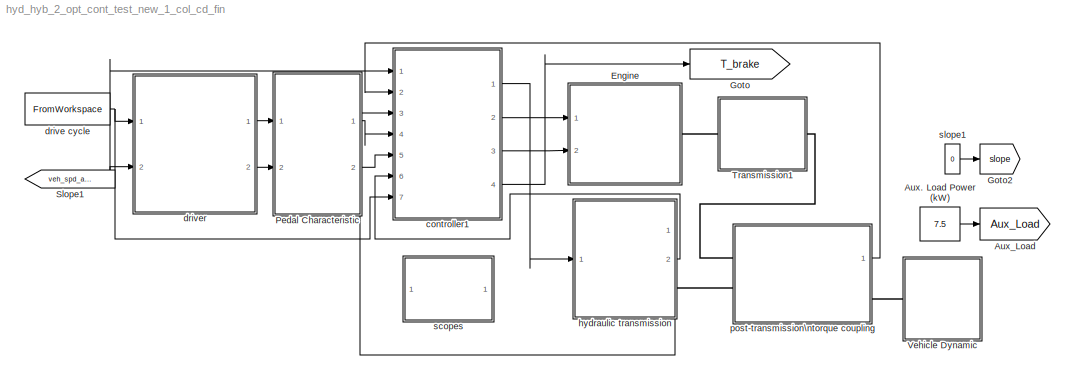
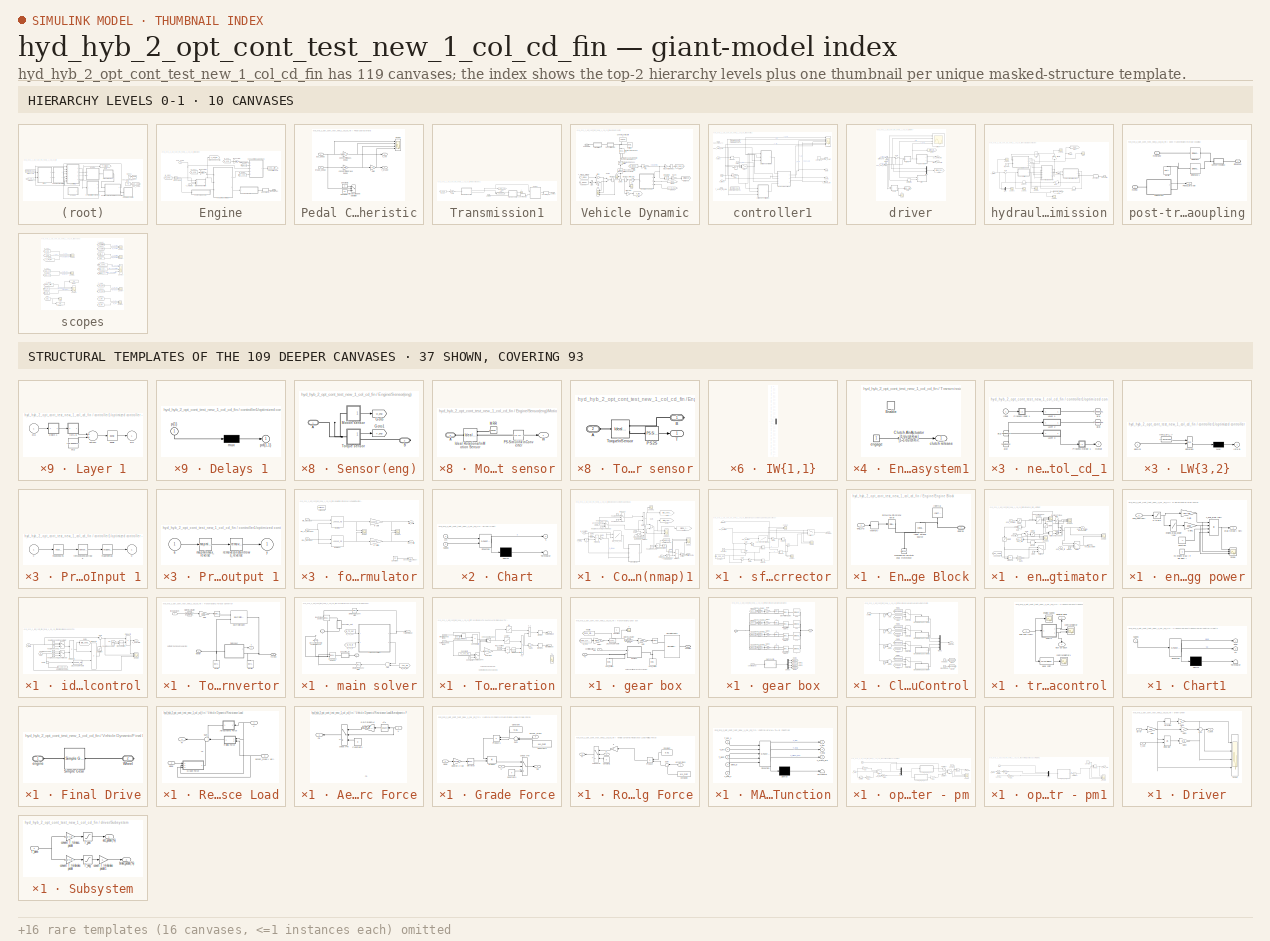
[diagram: thumbnail index - top-2 hierarchy levels (10 canvases) + 37 structural-template representatives of the remaining 109 canvases]
MODEL hyd_hyb_2_opt_cont_test_new_1_col_cd_fin
KIND model
CONFIG InitFcn = const_3\n
BLOCK [Constant] Aux. Load Power (kW)
  SID = 1614
  Value = 7.5
BLOCK [Goto] Aux_Load
  GotoTag = Aux_Load
  SID = 1615
  TagVisibility = global
BLOCK [SubSystem] Engine
  FunctionWithSeparateData = off
  MaskHideContents = off
  MinAlgLoopOccurrences = off
  Opaque = off
  Ports = [2, 0, 0, 0, 0, 0, 1]
  PropExecContextOutsideSubsystem = off
  RTWSystemCode = Auto
  RequestExecContextInheritance = off
  SID = 12085
BLOCK [SubSystem] Engine/Consumption Calc (nmap)1
  FunctionWithSeparateData = off
  MaskHideContents = off
  MinAlgLoopOccurrences = off
  Opaque = off
  Ports = [5, 1]
  PropExecContextOutsideSubsystem = off
  RTWSystemCode = Auto
  RequestExecContextInheritance = off
  SID = 12088
BLOCK [Saturate] Engine/Consumption Calc (nmap)1/1
  InputPortMap = u0
  LowerLimit = 0
  Ports = [1, 1]
  SID = 12094
  UpperLimit = inf
BLOCK [Product] Engine/Consumption Calc (nmap)1/Divide1
  InputSameDT = off
  Inputs = */
  OutDataTypeStr = Inherit: Inherit via internal rule
  Ports = [2, 1]
  RndMeth = Floor
  SID = 12095
  SaturateOnIntegerOverflow = off
BLOCK [Product] Engine/Consumption Calc (nmap)1/Divide2
  InputSameDT = off
  Inputs = 3
  OutDataTypeStr = Inherit: Inherit via internal rule
  Ports = [3, 1]
  RndMeth = Floor
  SID = 12096
  SaturateOnIntegerOverflow = off
BLOCK [Product] Engine/Consumption Calc (nmap)1/Divide3
  InputSameDT = off
  OutDataTypeStr = Inherit: Inherit via internal rule
  Ports = [2, 1]
  RndMeth = Floor
  SID = 12097
  SaturateOnIntegerOverflow = off
BLOCK [Product] Engine/Consumption Calc (nmap)1/Divide4
  InputSameDT = off
  Inputs = */
  OutDataTypeStr = Inherit: Inherit via internal rule
  Ports = [2, 1]
  RndMeth = Floor
  SID = 12098
  SaturateOnIntegerOverflow = off
BLOCK [Gain] Engine/Consumption Calc (nmap)1/Gain2
  Gain = 2*pi/60
  OutDataTypeStr = Inherit: Inherit via internal rule
  ParamDataTypeStr = Inherit: Inherit via internal rule
  SID = 12099
  SaturateOnIntegerOverflow = off
BLOCK [Gain] Engine/Consumption Calc (nmap)1/Gain3
  Gain = .001
  OutDataTypeStr = Inherit: Inherit via internal rule
  ParamDataTypeStr = Inherit: Inherit via internal rule
  SID = 12100
  SaturateOnIntegerOverflow = off
BLOCK [Goto] Engine/Consumption Calc (nmap)1/Goto
  GotoTag = idle_consumption
  SID = 12101
  TagVisibility = global
BLOCK [Goto] Engine/Consumption Calc (nmap)1/Goto1
  GotoTag = total_consumption
  SID = 12102
  TagVisibility = global
BLOCK [Goto] Engine/Consumption Calc (nmap)1/Goto2
  GotoTag = driving_consumption
  SID = 12103
  TagVisibility = global
BLOCK [Lookup2D] Engine/Consumption Calc (nmap)1/ICE_906_205
  ColumnIndex = w_906_205
  InputSameDT = off
  RowIndex = p_906_205
  SID = 12104
  SaturateOnIntegerOverflow = off
  Table = BSFC_906_205
BLOCK [Integrator] Engine/Consumption Calc (nmap)1/Integrator1
  Ports = [1, 1]
  SID = 12105
BLOCK [Product] Engine/Consumption Calc (nmap)1/Product1
  InputSameDT = off
  OutDataTypeStr = Inherit: Inherit via internal rule
  Ports = [2, 1]
  SID = 12106
  SaturateOnIntegerOverflow = off
BLOCK [Scope] Engine/Consumption Calc (nmap)1/Scope1
  DataFormat = StructureWithTime
  Floating = off
  LimitDataPoints = off
  NumInputPorts = 2
  Ports = [2]
  SID = 12107
  SampleTime = 0
  YMax = 42.5~42.5
  YMin = 0~0
  ZoomMode = xonly
BLOCK [Scope] Engine/Consumption Calc (nmap)1/Scope2
  DataFormat = StructureWithTime
  Floating = off
  LimitDataPoints = off
  NumInputPorts = 1
  Ports = [1]
  SID = 12108
  SampleTime = 0
  SaveName = ScopeData75
  ZoomMode = xonly
BLOCK [Sum] Engine/Consumption Calc (nmap)1/Sum
  InputSameDT = off
  OutDataTypeStr = Inherit: Inherit via internal rule
  Ports = [2, 1]
  SID = 12109
  SaturateOnIntegerOverflow = off
BLOCK [Inport] Engine/Consumption Calc (nmap)1/T_eng
  IconDisplay = Port number
  Port = 4
  SID = 12092
BLOCK [ToWorkspace] Engine/Consumption Calc (nmap)1/To Workspace
  MaxDataPoints = inf
  Ports = [1]
  SID = 12110
  SampleTime = -1
  SaveFormat = Structure With Time
  VariableName = ali_cons
BLOCK [Inport] Engine/Consumption Calc (nmap)1/acc pedal
  IconDisplay = Port number
  Port = 5
  SID = 12093
BLOCK [Switch] Engine/Consumption Calc (nmap)1/check pedal
  Criteria = u2 > Threshold
  InputSameDT = off
  SID = 12111
  SaturateOnIntegerOverflow = off
BLOCK [Scope] Engine/Consumption Calc (nmap)1/cons1
  DataFormat = StructureWithTime
  Floating = off
  LimitDataPoints = off
  NumInputPorts = 3
  Ports = [3]
  SID = 12112
  SampleTime = 0
  SaveName = cons1
  SaveToWorkspace = on
  YMax = 42.5~42.5~5
  YMin = 0~0~-5
  ZoomMode = yonly
BLOCK [Outport] Engine/Consumption Calc (nmap)1/cons\nlit//100km1
  IconDisplay = Port number
  SID = 12146
BLOCK [Inport] Engine/Consumption Calc (nmap)1/distance
  IconDisplay = Port number
  Port = 2
  SID = 12090
BLOCK [Gain] Engine/Consumption Calc (nmap)1/g 2 liter1
  Gain = 100
  OutDataTypeStr = Inherit: Inherit via internal rule
  ParamDataTypeStr = Inherit: Inherit via internal rule
  SID = 12113
  SaturateOnIntegerOverflow = off
BLOCK [Gain] Engine/Consumption Calc (nmap)1/g2lit
  Gain = 1/fuel_density*1000
  OutDataTypeStr = Inherit: Inherit via internal rule
  ParamDataTypeStr = Inherit: Inherit via internal rule
  SID = 12114
  SaturateOnIntegerOverflow = off
BLOCK [Constant] Engine/Consumption Calc (nmap)1/hour2\nsecond
  SID = 12115
  Value = 3600
BLOCK [Constant] Engine/Consumption Calc (nmap)1/hour2\nsecond1
  SID = 12116
BLOCK [Constant] Engine/Consumption Calc (nmap)1/hour2\nsecond2
  SID = 12117
  Value = 0
BLOCK [Constant] Engine/Consumption Calc (nmap)1/hour2\nsecond3
  SID = 12118
  Value = 0
BLOCK [Constant] Engine/Consumption Calc (nmap)1/hour2\nsecond4
  SID = 12119
  Value = 2
BLOCK [Switch] Engine/Consumption Calc (nmap)1/idel cons
  Criteria = u2 > Threshold
  InputSameDT = off
  SID = 12120
  SaturateOnIntegerOverflow = off
BLOCK [Inport] Engine/Consumption Calc (nmap)1/on//off
  IconDisplay = Port number
  Port = 3
  SID = 12091
BLOCK [SubSystem] Engine/Consumption Calc (nmap)1/sfc corrector
  FunctionWithSeparateData = off
  MaskHideContents = off
  MinAlgLoopOccurrences = off
  Opaque = off
  Ports = [3, 1]
  PropExecContextOutsideSubsystem = off
  RTWSystemCode = Auto
  RequestExecContextInheritance = off
  SID = 12121
BLOCK [Constant] Engine/Consumption Calc (nmap)1/sfc corrector/Constant
  SID = 12125
  Value = Idle_spd_eng_906
BLOCK [Constant] Engine/Consumption Calc (nmap)1/sfc corrector/Constant1
  SID = 12126
  Value = 1000
BLOCK [Gain] Engine/Consumption Calc (nmap)1/sfc corrector/Gain
  Gain = -1
  OutDataTypeStr = Inherit: Inherit via internal rule
  ParamDataTypeStr = Inherit: Inherit via internal rule
  SID = 12127
  SaturateOnIntegerOverflow = off
BLOCK [Gain] Engine/Consumption Calc (nmap)1/sfc corrector/Gain1
  OutDataTypeStr = Inherit: Inherit via internal rule
  ParamDataTypeStr = Inherit: Inherit via internal rule
  SID = 12128
  SaturateOnIntegerOverflow = off
BLOCK [Gain] Engine/Consumption Calc (nmap)1/sfc corrector/Gain2
  OutDataTypeStr = Inherit: Inherit via internal rule
  ParamDataTypeStr = Inherit: Inherit via internal rule
  SID = 12129
  SaturateOnIntegerOverflow = off
BLOCK [Product] Engine/Consumption Calc (nmap)1/sfc corrector/Product
  InputSameDT = off
  Inputs = */
  OutDataTypeStr = Inherit: Inherit via internal rule
  Ports = [2, 1]
  SID = 12130
  SaturateOnIntegerOverflow = off
BLOCK [Product] Engine/Consumption Calc (nmap)1/sfc corrector/Product1
  InputSameDT = off
  Inputs = */
  OutDataTypeStr = Inherit: Inherit via internal rule
  Ports = [2, 1]
  SID = 12131
  SaturateOnIntegerOverflow = off
BLOCK [Product] Engine/Consumption Calc (nmap)1/sfc corrector/Product2
  InputSameDT = off
  OutDataTypeStr = Inherit: Inherit via internal rule
  Ports = [2, 1]
  SID = 12132
  SaturateOnIntegerOverflow = off
BLOCK [Product] Engine/Consumption Calc (nmap)1/sfc corrector/Product3
  InputSameDT = off
  OutDataTypeStr = Inherit: Inherit via internal rule
  Ports = [2, 1]
  SID = 12133
  SaturateOnIntegerOverflow = off
BLOCK [Scope] Engine/Consumption Calc (nmap)1/sfc corrector/Scope
  DataFormat = StructureWithTime
  Floating = off
  NumInputPorts = 2
  Ports = [2]
  SID = 12134
  SampleTime = 0
  SaveName = ScopeData40
  YMax = 5~5
  YMin = -5~-5
  ZoomMode = yonly
BLOCK [Scope] Engine/Consumption Calc (nmap)1/sfc corrector/Scope1
  DataFormat = StructureWithTime
  Floating = off
  NumInputPorts = 2
  Ports = [2]
  SID = 12135
  SampleTime = 0
  SaveName = ScopeData41
  YMax = 5~5
  YMin = -5~-5
  ZoomMode = yonly
BLOCK [Scope] Engine/Consumption Calc (nmap)1/sfc corrector/Scope2
  DataFormat = StructureWithTime
  Floating = off
  NumInputPorts = 2
  Ports = [2]
  SID = 12136
  SampleTime = 0
  SaveName = ScopeData42
  YMax = 5~5
  YMin = -5~-5
  ZoomMode = yonly
BLOCK [Sum] Engine/Consumption Calc (nmap)1/sfc corrector/Sum
  IconShape = round
  InputSameDT = off
  Inputs = |+-
  OutDataTypeStr = Inherit: Inherit via internal rule
  Ports = [2, 1]
  SID = 12137
  SaturateOnIntegerOverflow = off
BLOCK [Sum] Engine/Consumption Calc (nmap)1/sfc corrector/Sum1
  IconShape = round
  InputSameDT = off
  Inputs = |+-
  OutDataTypeStr = Inherit: Inherit via internal rule
  Ports = [2, 1]
  SID = 12138
  SaturateOnIntegerOverflow = off
BLOCK [Sum] Engine/Consumption Calc (nmap)1/sfc corrector/Sum2
  IconShape = round
  InputSameDT = off
  Inputs = |+-
  OutDataTypeStr = Inherit: Inherit via internal rule
  Ports = [2, 1]
  SID = 12139
  SaturateOnIntegerOverflow = off
BLOCK [Sum] Engine/Consumption Calc (nmap)1/sfc corrector/Sum3
  IconShape = round
  InputSameDT = off
  Inputs = |++
  OutDataTypeStr = Inherit: Inherit via internal rule
  Ports = [2, 1]
  SID = 12140
  SaturateOnIntegerOverflow = off
BLOCK [Switch] Engine/Consumption Calc (nmap)1/sfc corrector/Switch
  InputSameDT = off
  SID = 12141
  SaturateOnIntegerOverflow = off
  Threshold = 1000
BLOCK [Outport] Engine/Consumption Calc (nmap)1/sfc corrector/cons(kg//h)
  IconDisplay = Port number
  SID = 12143
BLOCK [Inport] Engine/Consumption Calc (nmap)1/sfc corrector/eng_pow(kw)
  IconDisplay = Port number
  Port = 3
  SID = 12124
BLOCK [Inport] Engine/Consumption Calc (nmap)1/sfc corrector/eng_spd(rpm)
  IconDisplay = Port number
  Port = 2
  SID = 12123
BLOCK [Inport] Engine/Consumption Calc (nmap)1/sfc corrector/main map
  IconDisplay = Port number
  SID = 12122
BLOCK [Lookup] Engine/Consumption Calc (nmap)1/sfc corrector/sec_eng_sfc_map (906)
  InputValues = sec_eng_sfc_map(:,1)
  SID = 12142
  SaturateOnIntegerOverflow = off
  Table = sec_eng_sfc_map(:,2)
BLOCK [Saturate] Engine/Consumption Calc (nmap)1/solve devide \nby zero problem
  InputPortMap = u0
  LowerLimit = eps
  Ports = [1, 1]
  SID = 12144
  UpperLimit = inf
BLOCK [Saturate] Engine/Consumption Calc (nmap)1/solve devide \nby zero problem1
  InputPortMap = u0
  LowerLimit = 0
  Ports = [1, 1]
  SID = 12145
  UpperLimit = inf
BLOCK [Inport] Engine/Consumption Calc (nmap)1/w_eng (rpm)
  IconDisplay = Port number
  SID = 12089
BLOCK [From] Engine/Distance (km)
  GotoTag = Distance
  SID = 12147
  TagVisibility = global
BLOCK [SubSystem] Engine/Engine Block
  FunctionWithSeparateData = off
  MaskHideContents = off
  MinAlgLoopOccurrences = off
  Opaque = off
  Ports = [1, 0, 0, 0, 0, 0, 1]
  PropExecContextOutsideSubsystem = off
  RTWSystemCode = Auto
  RequestExecContextInheritance = off
  SID = 12148
BLOCK [PMIOPort] Engine/Engine Block/Engine
  Port = 1
  SID = 12155
  Side = Right
BLOCK [Reference] Engine/Engine Block/Ideal Torque Source  REF=fl_lib/Mechanical/Mechanical Sources/Ideal Torque Source
  ClassName = torque
  ComponentPath = foundation.mechanical.sources.torque
  FunctionWithSeparateData = off
  GeneratePreprocessorConditionals = off
  LocalVarDescs = |w|t
  LocalVarLogging = [0 0]
  LocalVarNames = |w|t
  Ports = [0, 0, 0, 0, 0, 1, 2]
  RTWMemSecDataConstants = Inherit from model
  RTWMemSecDataInternal = Inherit from model
  RTWMemSecDataParameters = Inherit from model
  RTWMemSecFuncExecute = Inherit from model
  RTWMemSecFuncInitTerm = Inherit from model
  SID = 12150
  SchemaVersion = 1
  ShowPortLabels = FromPortIcon
  SourceBlock = fl_lib/Mechanical/Mechanical Sources/Ideal Torque Source
  SourceType = Ideal Torque Source
  SystemSampleTime = -1
  t_Log = off
  w_Log = off
BLOCK [Reference] Engine/Engine Block/Inertia  REF=fl_lib/Mechanical/Rotational Elements/Inertia
  ClassName = inertia
  ComponentPath = foundation.mechanical.rotational.inertia
  FunctionWithSeparateData = off
  GeneratePreprocessorConditionals = off
  LocalVarDescs = |t
  LocalVarLogging = 0
  LocalVarNames = |t
  Ports = [0, 0, 0, 0, 0, 1]
  RTWMemSecDataConstants = Inherit from model
  RTWMemSecDataInternal = Inherit from model
  RTWMemSecDataParameters = Inherit from model
  RTWMemSecFuncExecute = Inherit from model
  RTWMemSecFuncInitTerm = Inherit from model
  SID = 12151
  SchemaVersion = 1
  ShowPortLabels = FromPortIcon
  SourceBlock = fl_lib/Mechanical/Rotational Elements/Inertia
  SourceType = Inertia
  SystemSampleTime = -1
  inertia = I_ICE
  inertia_unit = kg*m^2
  initial_velocity = 0
  initial_velocity_unit = rad/s
  t_Log = off
BLOCK [Reference] Engine/Engine Block/Mechanical\nRotational Reference  REF=fl_lib/Mechanical/Rotational Elements/Mechanical\nRotational Reference
  ClassName = reference
  ComponentPath = foundation.mechanical.rotational.reference
  FunctionWithSeparateData = off
  GeneratePreprocessorConditionals = off
  LocalVarDescs = |t
  LocalVarLogging = 0
  LocalVarNames = |t
  Ports = [0, 0, 0, 0, 0, 1]
  RTWMemSecDataConstants = Inherit from model
  RTWMemSecDataInternal = Inherit from model
  RTWMemSecDataParameters = Inherit from model
  RTWMemSecFuncExecute = Inherit from model
  RTWMemSecFuncInitTerm = Inherit from model
  SID = 12152
  SchemaVersion = 1
  ShowPortLabels = FromPortIcon
  SourceBlock = fl_lib/Mechanical/Rotational Elements/Mechanical\nRotational Reference
  SourceType = Mechanical\nRotational Reference
  SystemSampleTime = -1
  t_Log = off
BLOCK [Memory] Engine/Engine Block/Memory
  InheritSampleTime = on
  SID = 12153
BLOCK [Reference] Engine/Engine Block/Simulink-PS\nConverter  REF=nesl_utility/Simulink-PS\nConverter
  AffineConversion = off
  FunctionWithSeparateData = off
  GeneratePreprocessorConditionals = off
  InputFilterTimeConstant = 0.01
  LeftPortType = input
  PhysicalDomain = network_engine_domain
  Ports = [1, 0, 0, 0, 0, 0, 1]
  RTWMemSecDataConstants = Inherit from model
  RTWMemSecDataInternal = Inherit from model
  RTWMemSecDataParameters = Inherit from model
  RTWMemSecFuncExecute = Inherit from model
  RTWMemSecFuncInitTerm = Inherit from model
  RightPortType = output
  SID = 12154
  ShowPortLabels = FromPortIcon
  SourceBlock = nesl_utility/Simulink-PS\nConverter
  SourceType = Simulink-PS\nConverter
  SubClassName = ps_input
  SystemSampleTime = -1
  UdotUserProvided = 0
  Unit = 1
BLOCK [Inport] Engine/Engine Block/eng_trq
  IconDisplay = Port number
  SID = 12149
BLOCK [SubSystem] Engine/Sensor(eng)
  FunctionWithSeparateData = off
  MaskHideContents = off
  MinAlgLoopOccurrences = off
  Opaque = off
  Ports = [0, 0, 0, 0, 0, 1, 1]
  PropExecContextOutsideSubsystem = off
  RTWSystemCode = Auto
  RequestExecContextInheritance = off
  SID = 12156
BLOCK [PMIOPort] Engine/Sensor(eng)/A
  Port = 1
  SID = 12171
  Side = Left
BLOCK [PMIOPort] Engine/Sensor(eng)/B
  Port = 2
  SID = 12172
  Side = Right
BLOCK [Goto] Engine/Sensor(eng)/Goto
  GotoTag = w_eng
  SID = 12157
  TagVisibility = global
BLOCK [Goto] Engine/Sensor(eng)/Goto1
  GotoTag = T_eng
  SID = 12158
  TagVisibility = global
BLOCK [SubSystem] Engine/Sensor(eng)/Motion sensor
  FunctionWithSeparateData = off
  MaskHideContents = off
  MinAlgLoopOccurrences = off
  Opaque = off
  Ports = [0, 1, 0, 0, 0, 1]
  PropExecContextOutsideSubsystem = off
  RTWSystemCode = Auto
  RequestExecContextInheritance = off
  SID = 12159
BLOCK [PMIOPort] Engine/Sensor(eng)/Motion sensor/A
  Port = 1
  SID = 12163
  Side = Left
BLOCK [Reference] Engine/Sensor(eng)/Motion sensor/Ideal Rotational\nMotion Sensor  REF=fl_lib/Mechanical/Mechanical Sensors/Ideal Rotational\nMotion Sensor
  ClassName = sensor_rot_motion
  ComponentPath = foundation.mechanical.sensors.angular_velocity
  FunctionWithSeparateData = off
  GeneratePreprocessorConditionals = off
  LocalVarDescs = |w|t|phi
  LocalVarLogging = []
  LocalVarNames = |w|t|phi
  Ports = [0, 0, 0, 0, 0, 1, 3]
  RTWMemSecDataConstants = Inherit from model
  RTWMemSecDataInternal = Inherit from model
  RTWMemSecDataParameters = Inherit from model
  RTWMemSecFuncExecute = Inherit from model
  RTWMemSecFuncInitTerm = Inherit from model
  SID = 12160
  SchemaVersion = 1
  ShowPortLabels = FromPortIcon
  SourceBlock = fl_lib/Mechanical/Mechanical Sensors/Ideal Rotational\nMotion Sensor
  SourceType = Ideal Rotational\nMotion Sensor
  SystemSampleTime = -1
  offset = 0
  offset_unit = rad
  phi_Log = off
  t_Log = off
  w_Log = off
BLOCK [Reference] Engine/Sensor(eng)/Motion sensor/MRR  REF=fl_lib/Mechanical/Rotational Elements/Mechanical\nRotational Reference
  ClassName = reference_rot
  ComponentPath = foundation.mechanical.rotational.reference
  FunctionWithSeparateData = off
  GeneratePreprocessorConditionals = off
  LocalVarDescs = |t
  LocalVarLogging = []
  LocalVarNames = |t
  Ports = [0, 0, 0, 0, 0, 1]
  RTWMemSecDataConstants = Inherit from model
  RTWMemSecDataInternal = Inherit from model
  RTWMemSecDataParameters = Inherit from model
  RTWMemSecFuncExecute = Inherit from model
  RTWMemSecFuncInitTerm = Inherit from model
  SID = 12161
  SchemaVersion = 1
  ShowPortLabels = FromPortIcon
  SourceBlock = fl_lib/Mechanical/Rotational Elements/Mechanical\nRotational Reference
  SourceType = Mechanical\nRotational Reference
  SystemSampleTime = -1
  t_Log = off
BLOCK [Reference] Engine/Sensor(eng)/Motion sensor/PS-Simulink\nConverter  REF=nesl_utility/PS-Simulink\nConverter
  AffineConversion = off
  FunctionWithSeparateData = off
  GeneratePreprocessorConditionals = off
  LeftPortType = input
  PhysicalDomain = network_engine_domain
  Ports = [0, 1, 0, 0, 0, 1]
  RTWMemSecDataConstants = Inherit from model
  RTWMemSecDataInternal = Inherit from model
  RTWMemSecDataParameters = Inherit from model
  RTWMemSecFuncExecute = Inherit from model
  RTWMemSecFuncInitTerm = Inherit from model
  RightPortType = output
  SID = 12162
  ShowPortLabels = none
  SourceBlock = nesl_utility/PS-Simulink\nConverter
  SourceType = PS-Simulink\nConverter
  SubClassName = ps_output
  SystemSampleTime = -1
  Unit = rad/s
BLOCK [Outport] Engine/Sensor(eng)/Motion sensor/W
  IconDisplay = Port number
  SID = 12164
BLOCK [SubSystem] Engine/Sensor(eng)/Torque sensor
  FunctionWithSeparateData = off
  MaskHideContents = off
  MinAlgLoopOccurrences = off
  Opaque = off
  Ports = [0, 1, 0, 0, 0, 1, 1]
  PropExecContextOutsideSubsystem = off
  RTWSystemCode = Auto
  RequestExecContextInheritance = off
  SID = 12165
BLOCK [PMIOPort] Engine/Sensor(eng)/Torque sensor/A
  Port = 2
  SID = 12169
  Side = Left
BLOCK [PMIOPort] Engine/Sensor(eng)/Torque sensor/B
  Port = 1
  SID = 12168
  Side = Right
BLOCK [Reference] Engine/Sensor(eng)/Torque sensor/PS2S  REF=nesl_utility/PS-Simulink\nConverter
  AffineConversion = off
  FunctionWithSeparateData = off
  GeneratePreprocessorConditionals = off
  LeftPortType = input
  PhysicalDomain = network_engine_domain
  Ports = [0, 1, 0, 0, 0, 1]
  RTWMemSecDataConstants = Inherit from model
  RTWMemSecDataInternal = Inherit from model
  RTWMemSecDataParameters = Inherit from model
  RTWMemSecFuncExecute = Inherit from model
  RTWMemSecFuncInitTerm = Inherit from model
  RightPortType = output
  SID = 12166
  ShowPortLabels = none
  SourceBlock = nesl_utility/PS-Simulink\nConverter
  SourceType = PS-Simulink\nConverter
  SubClassName = ps_output
  SystemSampleTime = -1
  Unit = 1
BLOCK [Outport] Engine/Sensor(eng)/Torque sensor/T
  IconDisplay = Port number
  SID = 12170
BLOCK [Reference] Engine/Sensor(eng)/Torque sensor/Torque\nSensor  REF=fl_lib/Mechanical/Mechanical Sensors/Ideal Torque Sensor
  ClassName = sensor_torque
  ComponentPath = foundation.mechanical.sensors.torque
  FunctionWithSeparateData = off
  GeneratePreprocessorConditionals = off
  LocalVarDescs = |w|t
  LocalVarLogging = []
  LocalVarNames = |w|t
  Ports = [0, 0, 0, 0, 0, 1, 2]
  RTWMemSecDataConstants = Inherit from model
  RTWMemSecDataInternal = Inherit from model
  RTWMemSecDataParameters = Inherit from model
  RTWMemSecFuncExecute = Inherit from model
  RTWMemSecFuncInitTerm = Inherit from model
  SID = 12167
  SchemaVersion = 1
  ShowPortLabels = FromPortIcon
  SourceBlock = fl_lib/Mechanical/Mechanical Sensors/Ideal Torque Sensor
  SourceType = Ideal Torque Sensor
  SystemSampleTime = -1
  t_Log = off
  w_Log = off
BLOCK [Goto] Engine/T idle speed control
  GotoTag = T_out_idle_cotl
  SID = 12173
  TagVisibility = global
BLOCK [Inport] Engine/T_eng (Nm)
  IconDisplay = Port number
  SID = 12086
BLOCK [PMIOPort] Engine/Transmission
  Port = 1
  SID = 12246
  Side = Right
BLOCK [Goto] Engine/cons\nlit//100km
  GotoTag = cons_LitP100km
  SID = 12174
  TagVisibility = global
BLOCK [Inport] Engine/eng_on//off
  IconDisplay = Port number
  Port = 2
  SID = 12087
BLOCK [SubSystem] Engine/eng_torq_estimator
  FunctionWithSeparateData = off
  MaskHideContents = off
  MinAlgLoopOccurrences = off
  Opaque = off
  Ports = [3, 2]
  PropExecContextOutsideSubsystem = off
  RTWSystemCode = Auto
  RequestExecContextInheritance = off
  SID = 12175
BLOCK [Saturate] Engine/eng_torq_estimator/0 to inf1
  InputPortMap = u0
  LowerLimit = 0
  Ports = [1, 1]
  SID = 12179
  UpperLimit = inf
BLOCK [Saturate] Engine/eng_torq_estimator/0 to inf2
  InputPortMap = u0
  LowerLimit = eps
  Ports = [1, 1]
  SID = 12180
  UpperLimit = inf
BLOCK [Saturate] Engine/eng_torq_estimator/0 to inf3
  InputPortMap = u0
  LowerLimit = 0
  Ports = [1, 1]
  SID = 12181
  UpperLimit = inf
BLOCK [Saturate] Engine/eng_torq_estimator/0 to inf4
  InputPortMap = u0
  LowerLimit = 0
  Ports = [1, 1]
  SID = 12182
  UpperLimit = inf
BLOCK [Saturate] Engine/eng_torq_estimator/0 to inf5
  InputPortMap = u0
  LowerLimit = 0
  Ports = [1, 1]
  SID = 12183
  UpperLimit = inf
BLOCK [From] Engine/eng_torq_estimator/Aux Load
  GotoTag = Aux_Load
  SID = 12184
  TagVisibility = global
BLOCK [Goto] Engine/eng_torq_estimator/Aux_Trq
  GotoTag = Aux_Trq
  SID = 12185
  TagVisibility = global
BLOCK [Gain] Engine/eng_torq_estimator/Gain
  Gain = pi/30
  OutDataTypeStr = Inherit: Inherit via internal rule
  ParamDataTypeStr = Inherit: Inherit via internal rule
  SID = 12186
  SaturateOnIntegerOverflow = off
BLOCK [Gain] Engine/eng_torq_estimator/Gain1
  Gain = 1000
  OutDataTypeStr = Inherit: Inherit via internal rule
  ParamDataTypeStr = Inherit: Inherit via internal rule
  SID = 12187
  SaturateOnIntegerOverflow = off
BLOCK [Memory] Engine/eng_torq_estimator/Memory
  InheritSampleTime = on
  SID = 12188
BLOCK [MinMax] Engine/eng_torq_estimator/Min
  Function = min
  InputSameDT = off
  Inputs = 2
  Ports = [2, 1]
  SID = 12189
  SaturateOnIntegerOverflow = off
BLOCK [Lookup] Engine/eng_torq_estimator/Overload Torque (Nm)
  InputValues = [2600 2900 3000]
  SID = 12190
  Table = [650 0 0]
BLOCK [Lookup] Engine/eng_torq_estimator/PeakTorque -906 - 205(Nm)
  InputValues = [1000,1070,1130,1200,1280,1500,1590,1680,1760,1850,1930,2010,2070,2150,2240,2320,2380,2500]
  SID = 12191
  Table = [982,1040,1080,1100,1110,1110,1100,1080,1060,1020,994,963,940,909,872,838,804,751]
BLOCK [Product] Engine/eng_torq_estimator/Product1
  InputSameDT = off
  Inputs = */
  OutDataTypeStr = Inherit: Inherit via internal rule
  Ports = [2, 1]
  SID = 12192
  SaturateOnIntegerOverflow = off
BLOCK [Scope] Engine/eng_torq_estimator/Scope
  DataFormat = StructureWithTime
  Floating = off
  LimitDataPoints = off
  NumInputPorts = 3
  Ports = [3]
  SID = 12193
  SampleTime = 0
  SaveName = ScopeData10
  YMax = 5~5~5
  YMin = -5~-5~-5
  ZoomMode = yonly
BLOCK [Scope] Engine/eng_torq_estimator/Scope1
  DataFormat = StructureWithTime
  Floating = off
  LimitDataPoints = off
  NumInputPorts = 3
  Ports = [3]
  SID = 12194
  SampleTime = 0
  SaveName = ScopeData9
  YMax = 5~5~5
  YMin = -5~-5~-5
  ZoomMode = yonly
BLOCK [Scope] Engine/eng_torq_estimator/Scope2
  DataFormat = StructureWithTime
  Floating = off
  LimitDataPoints = off
  NumInputPorts = 3
  Ports = [3]
  SID = 12195
  SampleTime = 0
  SaveName = ScopeData23
  YMax = 5~5~5
  YMin = -5~-5~-5
  ZoomMode = xonly
BLOCK [Scope] Engine/eng_torq_estimator/Scope3
  DataFormat = StructureWithTime
  Floating = off
  LimitDataPoints = off
  NumInputPorts = 3
  Ports = [3]
  SID = 12196
  SampleTime = 0
  SaveName = ScopeData5
  YMax = 5~5~5
  YMin = -5~-5~-5
  ZoomMode = yonly
BLOCK [Sum] Engine/eng_torq_estimator/Sum
  IconShape = round
  InputSameDT = off
  Inputs = |++
  OutDataTypeStr = Inherit: Inherit via internal rule
  Ports = [2, 1]
  SID = 12197
  SaturateOnIntegerOverflow = off
BLOCK [Switch] Engine/eng_torq_estimator/Switch
  InputSameDT = off
  SID = 12198
  SaturateOnIntegerOverflow = off
  Threshold = 0.1
BLOCK [Switch] Engine/eng_torq_estimator/Switch1
  InputSameDT = off
  SID = 12199
  SaturateOnIntegerOverflow = off
  Threshold = Idle_spd_eng_906*0.75
BLOCK [Switch] Engine/eng_torq_estimator/check max speed
  InputSameDT = off
  SID = 12200
  SaturateOnIntegerOverflow = off
  Threshold = 2600
BLOCK [Inport] Engine/eng_torq_estimator/eng_drag_trq
  IconDisplay = Port number
  Port = 3
  SID = 12178
BLOCK [Inport] Engine/eng_torq_estimator/eng_spd (rpm)
  IconDisplay = Port number
  SID = 12176
BLOCK [Inport] Engine/eng_torq_estimator/eng_trq_in
  IconDisplay = Port number
  Port = 2
  SID = 12177
BLOCK [Outport] Engine/eng_torq_estimator/eng_trq_out (Nm)
  IconDisplay = Port number
  Port = 2
  SID = 12204
BLOCK [Outport] Engine/eng_torq_estimator/eng_trq_out (Nm) to consump
  IconDisplay = Port number
  SID = 12203
BLOCK [Constant] Engine/eng_torq_estimator/slope
  SID = 12201
  Value = 0
BLOCK [Constant] Engine/eng_torq_estimator/slope1
  SID = 12202
  Value = 0
BLOCK [SubSystem] Engine/engine drag power
  FunctionWithSeparateData = off
  MaskHideContents = off
  MinAlgLoopOccurrences = off
  Opaque = off
  Ports = [1, 1]
  PropExecContextOutsideSubsystem = off
  RTWSystemCode = Auto
  RequestExecContextInheritance = off
  SID = 12205
BLOCK [Saturate] Engine/engine drag power/0 to inf2
  InputPortMap = u0
  LowerLimit = eps
  Ports = [1, 1]
  SID = 12207
  UpperLimit = inf
BLOCK [Constant] Engine/engine drag power/Constant
  SID = 12208
  Value = -1
BLOCK [Gain] Engine/engine drag power/Gain
  Gain = (pi)/30
  OutDataTypeStr = Inherit: Inherit via internal rule
  ParamDataTypeStr = Inherit: Inherit via internal rule
  SID = 12209
  SaturateOnIntegerOverflow = off
BLOCK [Gain] Engine/engine drag power/Gain1
  Gain = 1000
  OutDataTypeStr = Inherit: Inherit via internal rule
  ParamDataTypeStr = Inherit: Inherit via internal rule
  SID = 12210
  SaturateOnIntegerOverflow = off
BLOCK [Scope] Engine/engine drag power/Scope
  DataFormat = StructureWithTime
  Floating = off
  LimitDataPoints = off
  NumInputPorts = 3
  Ports = [3]
  SID = 12211
  SampleTime = 0
  SaveName = ScopeData2
  YMax = 5~5~5
  YMin = -5~-5~-5
  ZoomMode = yonly
BLOCK [Product] Engine/engine drag power/T_eng_drag (Nm)
  InputSameDT = off
  Inputs = /***
  OutDataTypeStr = Inherit: Inherit via internal rule
  Ports = [4, 1]
  RndMeth = Floor
  SID = 12212
  SaturateOnIntegerOverflow = off
BLOCK [Outport] Engine/engine drag power/drag torque ( Nm)
  IconDisplay = Port number
  SID = 12215
BLOCK [Inport] Engine/engine drag power/eng_spd(rpm)
  IconDisplay = Port number
  SID = 12206
BLOCK [Lookup] Engine/engine drag power/engine_drag_power (kw)
  InputValues = [-10,eps,802.567507746791,824.568393094289,846.879150066401,868.8800354139,890.880920761399,912.881806108898,935.192563081009,957.193448428508,979.194333776007,1001.19521912351,1023.196104471,1045.1969898185,1067.197875166,1089.50863213811,1111.50951748561,1133.51040283311,1155.51128818061,1177.51217352811,1199.51305887561,1221.51394422311,1243.51482957061,1265.51571491811,1287.5166002656,1309.517...<+620ch>
  SID = 12213
  SaturateOnIntegerOverflow = off
  Table = [0,0,8.89504100832017,9.50127747975726,9.88870415102495,10.2762179627945,10.7512208384311,11.1824791821341,11.6136503853353,12.0449087290384,12.4761670727414,12.9074254164445,13.294939228214,13.7261975719171,14.1137113836866,14.5448825868878,15.0636299944579,15.5386328700944,15.9698912137975,16.357405025567,16.7449188373366,17.1761771810396,17.6074355247427,17.9949493365122,18.4699522121488,18.988...<+631ch>
BLOCK [Constant] Engine/engine drag power/no engine drag ( if we want )
  SID = 12214
BLOCK [SubSystem] Engine/idle speed control
  FunctionWithSeparateData = off
  MaskHideContents = off
  MinAlgLoopOccurrences = off
  Opaque = off
  Ports = [3, 1]
  PropExecContextOutsideSubsystem = off
  RTWSystemCode = Auto
  RequestExecContextInheritance = off
  SID = 12216
BLOCK [Lookup_n-D] Engine/idle speed control/1-D Lookup\nTable
  BreakpointsForDimension1 = [0 Idle_spd_eng_906*0.025 Idle_spd_eng_906]
  IndexSearchMethod = Binary search
  NumberOfTableDimensions = 1
  Ports = [1, 1]
  RndMeth = Simplest
  SID = 12220
  Table = [0 0 T_max_906/2]
BLOCK [Goto] Engine/idle speed control/Goto1
  GotoTag = idle_control
  SID = 12221
  TagVisibility = global
BLOCK [Reference] Engine/idle speed control/Manual Switch  REF=simulink/Signal\nRouting/Manual Switch
  FunctionWithSeparateData = off
  GeneratePreprocessorConditionals = off
  Ports = [2, 1]
  RTWMemSecDataConstants = Inherit from model
  RTWMemSecDataInternal = Inherit from model
  RTWMemSecDataParameters = Inherit from model
  RTWMemSecFuncExecute = Inherit from model
  RTWMemSecFuncInitTerm = Inherit from model
  SID = 12222
  ShowPortLabels = FromPortIcon
  SourceBlock = simulink/Signal\nRouting/Manual Switch
  SourceType = Manual Switch
  SystemSampleTime = -1
  action = 0
  sw = 1
  varsize = off
BLOCK [Product] Engine/idle speed control/Product1
  InputSameDT = off
  Inputs = **
  OutDataTypeStr = Inherit: Inherit via internal rule
  Ports = [2, 1]
  SID = 12223
  SaturateOnIntegerOverflow = off
BLOCK [Product] Engine/idle speed control/Product2
  InputSameDT = off
  Inputs = **
  OutDataTypeStr = Inherit: Inherit via internal rule
  Ports = [2, 1]
  SID = 12224
  SaturateOnIntegerOverflow = off
BLOCK [Product] Engine/idle speed control/Product3
  InputSameDT = off
  Inputs = **
  OutDataTypeStr = Inherit: Inherit via internal rule
  Ports = [2, 1]
  SID = 12225
  SaturateOnIntegerOverflow = off
BLOCK [Saturate] Engine/idle speed control/Saturation
  InputPortMap = u0
  LowerLimit = 0
  Ports = [1, 1]
  SID = 12226
  UpperLimit = T_max_906/5
BLOCK [Scope] Engine/idle speed control/Scope
  DataFormat = StructureWithTime
  Floating = off
  LimitDataPoints = off
  NumInputPorts = 3
  Ports = [3]
  SID = 12227
  SampleTime = 0
  SaveName = ScopeData11
  YMax = 5~5~5
  YMin = -5~-5~-5
  ZoomMode = yonly
BLOCK [Sum] Engine/idle speed control/Sum
  IconShape = round
  InputSameDT = off
  Inputs = |++
  OutDataTypeStr = Inherit: Inherit via internal rule
  Ports = [2, 1]
  SID = 12228
  SaturateOnIntegerOverflow = off
BLOCK [Sum] Engine/idle speed control/Sum1
  IconShape = round
  InputSameDT = off
  Inputs = -|+
  OutDataTypeStr = Inherit: Inherit via internal rule
  Ports = [2, 1]
  SID = 12229
  SaturateOnIntegerOverflow = off
BLOCK [Inport] Engine/idle speed control/T_eng
  IconDisplay = Port number
  Port = 3
  SID = 12219
BLOCK [Outport] Engine/idle speed control/T_eng + Idle
  IconDisplay = Port number
  SID = 12238
BLOCK [Switch] Engine/idle speed control/check idle P
  Criteria = u2 > Threshold
  InputSameDT = off
  SID = 12230
  SaturateOnIntegerOverflow = off
BLOCK [Switch] Engine/idle speed control/check idle spd
  Criteria = u2 > Threshold
  InputSameDT = off
  SID = 12231
  SaturateOnIntegerOverflow = off
  Threshold = Idle_spd_eng_906
BLOCK [Constant] Engine/idle speed control/hour2\nsecond
  SID = 12232
  Value = 0
BLOCK [Constant] Engine/idle speed control/hour2\nsecond1
  SID = 12233
BLOCK [Constant] Engine/idle speed control/hour2\nsecond2
  SID = 12234
BLOCK [Constant] Engine/idle speed control/hour2\nsecond3
  SID = 12235
  Value = 0
BLOCK [Constant] Engine/idle speed control/hour2\nsecond4
  SID = 12236
  Value = Idle_spd_eng_906
BLOCK [Constant] Engine/idle speed control/hour2\nsecond5
  SID = 12237
BLOCK [Inport] Engine/idle speed control/on
  IconDisplay = Port number
  SID = 12217
BLOCK [Inport] Engine/idle speed control/spd
  IconDisplay = Port number
  Port = 2
  SID = 12218
BLOCK [Gain] Engine/rasps2rpm
  Gain = 30/pi
  OutDataTypeStr = Inherit: Inherit via internal rule
  ParamDataTypeStr = Inherit: Inherit via internal rule
  SID = 12239
  SaturateOnIntegerOverflow = off
BLOCK [Gain] Engine/rasps2rpm1
  Gain = 30/pi
  OutDataTypeStr = Inherit: Inherit via internal rule
  ParamDataTypeStr = Inherit: Inherit via internal rule
  SID = 12240
  SaturateOnIntegerOverflow = off
BLOCK [Gain] Engine/rasps2rpm2
  Gain = 30/pi
  OutDataTypeStr = Inherit: Inherit via internal rule
  ParamDataTypeStr = Inherit: Inherit via internal rule
  SID = 12241
  SaturateOnIntegerOverflow = off
BLOCK [From] Engine/w_eng
  GotoTag = w_eng
  SID = 12242
  TagVisibility = global
BLOCK [From] Engine/w_eng1
  GotoTag = w_eng
  SID = 12243
  TagVisibility = global
BLOCK [From] Engine/w_eng2
  GotoTag = w_eng
  SID = 12244
  TagVisibility = global
BLOCK [From] Engine/w_eng3
  GotoTag = idle_control
  SID = 12245
  TagVisibility = global
BLOCK [Goto] Goto
  GotoTag = T_brake
  SID = 1093
  TagVisibility = global
BLOCK [Goto] Goto2
  GotoTag = slope
  SID = 1094
  TagVisibility = global
BLOCK [SubSystem] Pedal Characteristic
  FunctionWithSeparateData = off
  MaskHideContents = off
  MinAlgLoopOccurrences = off
  Opaque = off
  Ports = [2, 2]
  PropExecContextOutsideSubsystem = off
  RTWSystemCode = Auto
  RequestExecContextInheritance = off
  SID = 131
BLOCK [Constant] Pedal Characteristic/Constant1
  SID = 134
  Value = .25
BLOCK [Constant] Pedal Characteristic/Constant2
  SID = 135
  Value = 0
BLOCK [Gain] Pedal Characteristic/Gain
  Gain = 13
  OutDataTypeStr = Inherit: Inherit via internal rule
  ParamDataTypeStr = Inherit: Inherit via internal rule
  SID = 136
  SaturateOnIntegerOverflow = off
BLOCK [Scope] Pedal Characteristic/Scope
  DataFormat = StructureWithTime
  Floating = off
  LimitDataPoints = off
  MaxDataPoints = 500
  NumInputPorts = 4
  Ports = [4]
  SID = 137
  SampleTime = 0
  SaveName = ScopeData9
  YMax = 105~1391.25~1~5
  YMin = 95~1258.75~-1~-5
  ZoomMode = yonly
BLOCK [Outport] Pedal Characteristic/T_brake
  IconDisplay = Port number
  SID = 141
BLOCK [Outport] Pedal Characteristic/T_ref
  IconDisplay = Port number
  Port = 2
  SID = 143
BLOCK [Inport] Pedal Characteristic/acc_pedal
  IconDisplay = Port number
  SID = 132
BLOCK [Inport] Pedal Characteristic/brake_pedal
  IconDisplay = Port number
  Port = 2
  SID = 133
BLOCK [Gain] Pedal Characteristic/convert T to\nacc. pedal
  Gain = T_max_906/100
  OutDataTypeStr = Inherit: Inherit via internal rule
  ParamDataTypeStr = Inherit: Inherit via internal rule
  SID = 138
  SaturateOnIntegerOverflow = off
BLOCK [Gain] Pedal Characteristic/convert T to\nbrake pedal
  Gain = -T_min/100
  OutDataTypeStr = Inherit: Inherit via internal rule
  ParamDataTypeStr = Inherit: Inherit via internal rule
  SID = 139
  SaturateOnIntegerOverflow = off
BLOCK [Switch] Pedal Characteristic/retarder step one activation
  Criteria = u2 > Threshold
  InputSameDT = off
  SID = 140
  SaturateOnIntegerOverflow = off
BLOCK [From] Slope1
  GotoTag = veh_spd_act
  SID = 1377
  TagVisibility = global
BLOCK [SubSystem] Transmission1
  FunctionWithSeparateData = off
  MaskHideContents = off
  MinAlgLoopOccurrences = off
  Opaque = off
  Ports = [0, 0, 0, 0, 0, 1, 1]
  PropExecContextOutsideSubsystem = off
  RTWSystemCode = Auto
  RequestExecContextInheritance = off
  SID = 12247
BLOCK [PMIOPort] Transmission1/Coupling
  Port = 2
  SID = 12453
  Side = Right
BLOCK [PMIOPort] Transmission1/Engine
  Port = 1
  SID = 12452
  Side = Left
BLOCK [Gain] Transmission1/Gain
  Gain = 30/pi
  OutDataTypeStr = Inherit: Inherit via internal rule
  ParamDataTypeStr = Inherit: Inherit via internal rule
  SID = 12248
  SaturateOnIntegerOverflow = off
BLOCK [Goto] Transmission1/Goto
  GotoTag = Lockup_Clutch
  SID = 12249
  TagVisibility = global
BLOCK [Goto] Transmission1/Goto1
  GotoTag = Clutch_num
  SID = 12250
  TagVisibility = global
BLOCK [SubSystem] Transmission1/Sensor(GB_out)
  FunctionWithSeparateData = off
  MaskHideContents = off
  MinAlgLoopOccurrences = off
  Opaque = off
  Ports = [0, 0, 0, 0, 0, 1, 1]
  PropExecContextOutsideSubsystem = off
  RTWSystemCode = Auto
  RequestExecContextInheritance = off
  SID = 12251
BLOCK [PMIOPort] Transmission1/Sensor(GB_out)/A
  Port = 1
  SID = 12266
  Side = Left
BLOCK [PMIOPort] Transmission1/Sensor(GB_out)/B
  Port = 2
  SID = 12267
  Side = Right
BLOCK [Goto] Transmission1/Sensor(GB_out)/Goto
  GotoTag = w_GB_out
  SID = 12252
  TagVisibility = global
BLOCK [Goto] Transmission1/Sensor(GB_out)/Goto1
  GotoTag = T_GB_out
  SID = 12253
  TagVisibility = global
BLOCK [SubSystem] Transmission1/Sensor(GB_out)/Motion sensor
  FunctionWithSeparateData = off
  MaskHideContents = off
  MinAlgLoopOccurrences = off
  Opaque = off
  Ports = [0, 1, 0, 0, 0, 1]
  PropExecContextOutsideSubsystem = off
  RTWSystemCode = Auto
  RequestExecContextInheritance = off
  SID = 12254
BLOCK [PMIOPort] Transmission1/Sensor(GB_out)/Motion sensor/A
  Port = 1
  SID = 12258
  Side = Left
BLOCK [Reference] Transmission1/Sensor(GB_out)/Motion sensor/Ideal Rotational\nMotion Sensor  REF=fl_lib/Mechanical/Mechanical Sensors/Ideal Rotational\nMotion Sensor
  ClassName = sensor_rot_motion
  ComponentPath = foundation.mechanical.sensors.angular_velocity
  FunctionWithSeparateData = off
  GeneratePreprocessorConditionals = off
  LocalVarDescs = |w|t|phi
  LocalVarLogging = []
  LocalVarNames = |w|t|phi
  Ports = [0, 0, 0, 0, 0, 1, 3]
  RTWMemSecDataConstants = Inherit from model
  RTWMemSecDataInternal = Inherit from model
  RTWMemSecDataParameters = Inherit from model
  RTWMemSecFuncExecute = Inherit from model
  RTWMemSecFuncInitTerm = Inherit from model
  SID = 12255
  SchemaVersion = 1
  ShowPortLabels = FromPortIcon
  SourceBlock = fl_lib/Mechanical/Mechanical Sensors/Ideal Rotational\nMotion Sensor
  SourceType = Ideal Rotational\nMotion Sensor
  SystemSampleTime = -1
  offset = 0
  offset_unit = rad
  phi_Log = off
  t_Log = off
  w_Log = off
BLOCK [Reference] Transmission1/Sensor(GB_out)/Motion sensor/MRR  REF=fl_lib/Mechanical/Rotational Elements/Mechanical\nRotational Reference
  ClassName = reference_rot
  ComponentPath = foundation.mechanical.rotational.reference
  FunctionWithSeparateData = off
  GeneratePreprocessorConditionals = off
  LocalVarDescs = |t
  LocalVarLogging = []
  LocalVarNames = |t
  Ports = [0, 0, 0, 0, 0, 1]
  RTWMemSecDataConstants = Inherit from model
  RTWMemSecDataInternal = Inherit from model
  RTWMemSecDataParameters = Inherit from model
  RTWMemSecFuncExecute = Inherit from model
  RTWMemSecFuncInitTerm = Inherit from model
  SID = 12256
  SchemaVersion = 1
  ShowPortLabels = FromPortIcon
  SourceBlock = fl_lib/Mechanical/Rotational Elements/Mechanical\nRotational Reference
  SourceType = Mechanical\nRotational Reference
  SystemSampleTime = -1
  t_Log = off
BLOCK [Reference] Transmission1/Sensor(GB_out)/Motion sensor/PS-Simulink\nConverter  REF=nesl_utility/PS-Simulink\nConverter
  AffineConversion = off
  FunctionWithSeparateData = off
  GeneratePreprocessorConditionals = off
  LeftPortType = input
  PhysicalDomain = network_engine_domain
  Ports = [0, 1, 0, 0, 0, 1]
  RTWMemSecDataConstants = Inherit from model
  RTWMemSecDataInternal = Inherit from model
  RTWMemSecDataParameters = Inherit from model
  RTWMemSecFuncExecute = Inherit from model
  RTWMemSecFuncInitTerm = Inherit from model
  RightPortType = output
  SID = 12257
  ShowPortLabels = none
  SourceBlock = nesl_utility/PS-Simulink\nConverter
  SourceType = PS-Simulink\nConverter
  SubClassName = ps_output
  SystemSampleTime = -1
  Unit = rad/s
BLOCK [Outport] Transmission1/Sensor(GB_out)/Motion sensor/W
  IconDisplay = Port number
  SID = 12259
BLOCK [SubSystem] Transmission1/Sensor(GB_out)/Torque sensor
  FunctionWithSeparateData = off
  MaskHideContents = off
  MinAlgLoopOccurrences = off
  Opaque = off
  Ports = [0, 1, 0, 0, 0, 1, 1]
  PropExecContextOutsideSubsystem = off
  RTWSystemCode = Auto
  RequestExecContextInheritance = off
  SID = 12260
BLOCK [PMIOPort] Transmission1/Sensor(GB_out)/Torque sensor/A
  Port = 2
  SID = 12264
  Side = Left
BLOCK [PMIOPort] Transmission1/Sensor(GB_out)/Torque sensor/B
  Port = 1
  SID = 12263
  Side = Right
BLOCK [Reference] Transmission1/Sensor(GB_out)/Torque sensor/PS2S  REF=nesl_utility/PS-Simulink\nConverter
  AffineConversion = off
  FunctionWithSeparateData = off
  GeneratePreprocessorConditionals = off
  LeftPortType = input
  PhysicalDomain = network_engine_domain
  Ports = [0, 1, 0, 0, 0, 1]
  RTWMemSecDataConstants = Inherit from model
  RTWMemSecDataInternal = Inherit from model
  RTWMemSecDataParameters = Inherit from model
  RTWMemSecFuncExecute = Inherit from model
  RTWMemSecFuncInitTerm = Inherit from model
  RightPortType = output
  SID = 12261
  ShowPortLabels = none
  SourceBlock = nesl_utility/PS-Simulink\nConverter
  SourceType = PS-Simulink\nConverter
  SubClassName = ps_output
  SystemSampleTime = -1
  Unit = 1
BLOCK [Outport] Transmission1/Sensor(GB_out)/Torque sensor/T
  IconDisplay = Port number
  SID = 12265
BLOCK [Reference] Transmission1/Sensor(GB_out)/Torque sensor/Torque\nSensor  REF=fl_lib/Mechanical/Mechanical Sensors/Ideal Torque Sensor
  ClassName = sensor_torque
  ComponentPath = foundation.mechanical.sensors.torque
  FunctionWithSeparateData = off
  GeneratePreprocessorConditionals = off
  LocalVarDescs = |w|t
  LocalVarLogging = []
  LocalVarNames = |w|t
  Ports = [0, 0, 0, 0, 0, 1, 2]
  RTWMemSecDataConstants = Inherit from model
  RTWMemSecDataInternal = Inherit from model
  RTWMemSecDataParameters = Inherit from model
  RTWMemSecFuncExecute = Inherit from model
  RTWMemSecFuncInitTerm = Inherit from model
  SID = 12262
  SchemaVersion = 1
  ShowPortLabels = FromPortIcon
  SourceBlock = fl_lib/Mechanical/Mechanical Sensors/Ideal Torque Sensor
  SourceType = Ideal Torque Sensor
  SystemSampleTime = -1
  t_Log = off
  w_Log = off
BLOCK [SubSystem] Transmission1/Sensor(TC_GB)
  FunctionWithSeparateData = off
  MaskHideContents = off
  MinAlgLoopOccurrences = off
  Opaque = off
  Ports = [0, 0, 0, 0, 0, 1, 1]
  PropExecContextOutsideSubsystem = off
  RTWSystemCode = Auto
  RequestExecContextInheritance = off
  SID = 12268
BLOCK [PMIOPort] Transmission1/Sensor(TC_GB)/A
  Port = 1
  SID = 12283
  Side = Left
BLOCK [PMIOPort] Transmission1/Sensor(TC_GB)/B
  Port = 2
  SID = 12284
  Side = Right
BLOCK [Goto] Transmission1/Sensor(TC_GB)/Goto
  GotoTag = w_TC_GB
  SID = 12269
  TagVisibility = global
BLOCK [Goto] Transmission1/Sensor(TC_GB)/Goto1
  GotoTag = T_TC_GB
  SID = 12270
  TagVisibility = global
BLOCK [SubSystem] Transmission1/Sensor(TC_GB)/Motion sensor
  FunctionWithSeparateData = off
  MaskHideContents = off
  MinAlgLoopOccurrences = off
  Opaque = off
  Ports = [0, 1, 0, 0, 0, 1]
  PropExecContextOutsideSubsystem = off
  RTWSystemCode = Auto
  RequestExecContextInheritance = off
  SID = 12271
BLOCK [PMIOPort] Transmission1/Sensor(TC_GB)/Motion sensor/A
  Port = 1
  SID = 12275
  Side = Left
BLOCK [Reference] Transmission1/Sensor(TC_GB)/Motion sensor/Ideal Rotational\nMotion Sensor  REF=fl_lib/Mechanical/Mechanical Sensors/Ideal Rotational\nMotion Sensor
  ClassName = sensor_rot_motion
  ComponentPath = foundation.mechanical.sensors.angular_velocity
  FunctionWithSeparateData = off
  GeneratePreprocessorConditionals = off
  LocalVarDescs = |w|t|phi
  LocalVarLogging = []
  LocalVarNames = |w|t|phi
  Ports = [0, 0, 0, 0, 0, 1, 3]
  RTWMemSecDataConstants = Inherit from model
  RTWMemSecDataInternal = Inherit from model
  RTWMemSecDataParameters = Inherit from model
  RTWMemSecFuncExecute = Inherit from model
  RTWMemSecFuncInitTerm = Inherit from model
  SID = 12272
  SchemaVersion = 1
  ShowPortLabels = FromPortIcon
  SourceBlock = fl_lib/Mechanical/Mechanical Sensors/Ideal Rotational\nMotion Sensor
  SourceType = Ideal Rotational\nMotion Sensor
  SystemSampleTime = -1
  offset = 0
  offset_unit = rad
  phi_Log = off
  t_Log = off
  w_Log = off
BLOCK [Reference] Transmission1/Sensor(TC_GB)/Motion sensor/MRR  REF=fl_lib/Mechanical/Rotational Elements/Mechanical\nRotational Reference
  ClassName = reference_rot
  ComponentPath = foundation.mechanical.rotational.reference
  FunctionWithSeparateData = off
  GeneratePreprocessorConditionals = off
  LocalVarDescs = |t
  LocalVarLogging = []
  LocalVarNames = |t
  Ports = [0, 0, 0, 0, 0, 1]
  RTWMemSecDataConstants = Inherit from model
  RTWMemSecDataInternal = Inherit from model
  RTWMemSecDataParameters = Inherit from model
  RTWMemSecFuncExecute = Inherit from model
  RTWMemSecFuncInitTerm = Inherit from model
  SID = 12273
  SchemaVersion = 1
  ShowPortLabels = FromPortIcon
  SourceBlock = fl_lib/Mechanical/Rotational Elements/Mechanical\nRotational Reference
  SourceType = Mechanical\nRotational Reference
  SystemSampleTime = -1
  t_Log = off
BLOCK [Reference] Transmission1/Sensor(TC_GB)/Motion sensor/PS-Simulink\nConverter  REF=nesl_utility/PS-Simulink\nConverter
  AffineConversion = off
  FunctionWithSeparateData = off
  GeneratePreprocessorConditionals = off
  LeftPortType = input
  PhysicalDomain = network_engine_domain
  Ports = [0, 1, 0, 0, 0, 1]
  RTWMemSecDataConstants = Inherit from model
  RTWMemSecDataInternal = Inherit from model
  RTWMemSecDataParameters = Inherit from model
  RTWMemSecFuncExecute = Inherit from model
  RTWMemSecFuncInitTerm = Inherit from model
  RightPortType = output
  SID = 12274
  ShowPortLabels = none
  SourceBlock = nesl_utility/PS-Simulink\nConverter
  SourceType = PS-Simulink\nConverter
  SubClassName = ps_output
  SystemSampleTime = -1
  Unit = rad/s
BLOCK [Outport] Transmission1/Sensor(TC_GB)/Motion sensor/W
  IconDisplay = Port number
  SID = 12276
BLOCK [SubSystem] Transmission1/Sensor(TC_GB)/Torque sensor
  FunctionWithSeparateData = off
  MaskHideContents = off
  MinAlgLoopOccurrences = off
  Opaque = off
  Ports = [0, 1, 0, 0, 0, 1, 1]
  PropExecContextOutsideSubsystem = off
  RTWSystemCode = Auto
  RequestExecContextInheritance = off
  SID = 12277
BLOCK [PMIOPort] Transmission1/Sensor(TC_GB)/Torque sensor/A
  Port = 2
  SID = 12281
  Side = Left
BLOCK [PMIOPort] Transmission1/Sensor(TC_GB)/Torque sensor/B
  Port = 1
  SID = 12280
  Side = Right
BLOCK [Reference] Transmission1/Sensor(TC_GB)/Torque sensor/PS2S  REF=nesl_utility/PS-Simulink\nConverter
  AffineConversion = off
  FunctionWithSeparateData = off
  GeneratePreprocessorConditionals = off
  LeftPortType = input
  PhysicalDomain = network_engine_domain
  Ports = [0, 1, 0, 0, 0, 1]
  RTWMemSecDataConstants = Inherit from model
  RTWMemSecDataInternal = Inherit from model
  RTWMemSecDataParameters = Inherit from model
  RTWMemSecFuncExecute = Inherit from model
  RTWMemSecFuncInitTerm = Inherit from model
  RightPortType = output
  SID = 12278
  ShowPortLabels = none
  SourceBlock = nesl_utility/PS-Simulink\nConverter
  SourceType = PS-Simulink\nConverter
  SubClassName = ps_output
  SystemSampleTime = -1
  Unit = 1
BLOCK [Outport] Transmission1/Sensor(TC_GB)/Torque sensor/T
  IconDisplay = Port number
  SID = 12282
BLOCK [Reference] Transmission1/Sensor(TC_GB)/Torque sensor/Torque\nSensor  REF=fl_lib/Mechanical/Mechanical Sensors/Ideal Torque Sensor
  ClassName = sensor_torque
  ComponentPath = foundation.mechanical.sensors.torque
  FunctionWithSeparateData = off
  GeneratePreprocessorConditionals = off
  LocalVarDescs = |w|t
  LocalVarLogging = []
  LocalVarNames = |w|t
  Ports = [0, 0, 0, 0, 0, 1, 2]
  RTWMemSecDataConstants = Inherit from model
  RTWMemSecDataInternal = Inherit from model
  RTWMemSecDataParameters = Inherit from model
  RTWMemSecFuncExecute = Inherit from model
  RTWMemSecFuncInitTerm = Inherit from model
  SID = 12279
  SchemaVersion = 1
  ShowPortLabels = FromPortIcon
  SourceBlock = fl_lib/Mechanical/Mechanical Sensors/Ideal Torque Sensor
  SourceType = Ideal Torque Sensor
  SystemSampleTime = -1
  t_Log = off
  w_Log = off
BLOCK [Scope] Transmission1/T
  DataFormat = StructureWithTime
  Floating = off
  LimitDataPoints = off
  NumInputPorts = 1
  Ports = [1]
  SID = 12285
  SampleTime = 0
  SaveName = ScopeData8
  YMax = 1000
  YMin = -10
  ZoomMode = xonly
BLOCK [SubSystem] Transmission1/Torque Convertor
  FunctionWithSeparateData = off
  MaskHideContents = off
  MinAlgLoopOccurrences = off
  Opaque = off
  Ports = [1, 1, 0, 0, 0, 1, 1]
  PropExecContextOutsideSubsystem = off
  RTWSystemCode = Auto
  RequestExecContextInheritance = off
  SID = 12286
BLOCK [Reference] Transmission1/Torque Convertor/   REF=nesl_utility/Simulink-PS\nConverter
  AffineConversion = off
  FunctionWithSeparateData = off
  GeneratePreprocessorConditionals = off
  InputFilterTimeConstant = 0.01
  LeftPortType = input
  PhysicalDomain = network_engine_domain
  Ports = [1, 0, 0, 0, 0, 0, 1]
  RTWMemSecDataConstants = Inherit from model
  RTWMemSecDataInternal = Inherit from model
  RTWMemSecDataParameters = Inherit from model
  RTWMemSecFuncExecute = Inherit from model
  RTWMemSecFuncInitTerm = Inherit from model
  RightPortType = output
  SID = 12288
  ShowPortLabels = FromPortIcon
  SourceBlock = nesl_utility/Simulink-PS\nConverter
  SourceType = Simulink-PS\nConverter
  SubClassName = ps_input
  SystemSampleTime = -1
  UdotUserProvided = 0
  Unit = 1
BLOCK [TransferFcn] Transmission1/Torque Convertor/Clutch \nActuator
  Denominator = [1 1/clutchRise]
  Numerator = [1/clutchRise]
  SID = 12289
BLOCK [Reference] Transmission1/Torque Convertor/Disk Friction Clutch  REF=sdl_lib/Clutches/Disk Friction Clutch
  ClassName = disk_friction_clutch
  ComponentPath = sdl.clutches.disk_friction_clutch
  FunctionWithSeparateData = off
  GeneratePreprocessorConditionals = off
  LocalVarLogging = []
  Ports = [0, 0, 0, 0, 0, 2, 1]
  RTWMemSecDataConstants = Inherit from model
  RTWMemSecDataInternal = Inherit from model
  RTWMemSecDataParameters = Inherit from model
  RTWMemSecFuncExecute = Inherit from model
  RTWMemSecFuncInitTerm = Inherit from model
  SID = 12290
  SchemaVersion = 1
  ShowPortLabels = FromPortIcon
  SourceBlock = sdl_lib/Clutches/Disk Friction Clutch
  SourceType = Disk Friction Clutch
  SystemSampleTime = -1
  d_f = 1
  d_f_unit = 1
  d_i = 100
  d_i_unit = mm
  d_o = 150
  d_o_unit = mm
  friction_model = 1
  friction_model_unit = 1
  geometry_model = 1
  geometry_model_unit = 1
  initial_state_locked = 0
  initial_state_locked_unit = 1
  mu_coulomb = 0.3
  mu_coulomb_unit = 1
  mu_coulomb_vector = [ 0.29 0.28 0.26 0.22 0.21 0.2 0.2 0.19 0.19 0.19 0.19 0.19 ]
  mu_coulomb_vector_unit = 1
  mu_extrap_method = 1
  mu_extrap_method_unit = 1
  mu_interp_method = 1
  mu_interp_method_unit = 1
  mu_static = 0.35
  mu_static_unit = 1
  mu_visc = 0
  mu_visc_unit = N*m/(rad/s)
  mu_w_vector = [ 0 0.1 0.2 0.3 0.4 0.5 1 2 5 10 100 1000 ]
  mu_w_vector_unit = rad/s
  nS = 8
  nS_unit = 1
  piston_area = 0.001
  piston_area_unit = m^2
  pressure_min = 100
  pressure_min_unit = Pa
  r_eff = 1
  r_eff_unit = m
  w_tol = 0.001
  w_tol_unit = rad/s
BLOCK [Gain] Transmission1/Torque Convertor/Gain
  Gain = 10e6
  OutDataTypeStr = Inherit: Inherit via internal rule
  ParamDataTypeStr = Inherit: Inherit via internal rule
  SID = 12291
  SaturateOnIntegerOverflow = off
BLOCK [PMIOPort] Transmission1/Torque Convertor/Impeller
  Port = 1
  SID = 12342
  Side = Left
BLOCK [Reference] Transmission1/Torque Convertor/Inertia  REF=fl_lib/Mechanical/Rotational Elements/Inertia
  ClassName = inertia
  ComponentPath = foundation.mechanical.rotational.inertia
  FunctionWithSeparateData = off
  GeneratePreprocessorConditionals = off
  LocalVarDescs = |t
  LocalVarLogging = 0
  LocalVarNames = |t
  Ports = [0, 0, 0, 0, 0, 1]
  RTWMemSecDataConstants = Inherit from model
  RTWMemSecDataInternal = Inherit from model
  RTWMemSecDataParameters = Inherit from model
  RTWMemSecFuncExecute = Inherit from model
  RTWMemSecFuncInitTerm = Inherit from model
  SID = 12292
  SchemaVersion = 1
  ShowPortLabels = FromPortIcon
  SourceBlock = fl_lib/Mechanical/Rotational Elements/Inertia
  SourceType = Inertia
  SystemSampleTime = -1
  inertia = Impeller_Inertia
  inertia_unit = kg*m^2
  initial_velocity = 0
  initial_velocity_unit = rad/s
  t_Log = off
BLOCK [Reference] Transmission1/Torque Convertor/Inertia1  REF=fl_lib/Mechanical/Rotational Elements/Inertia
  ClassName = inertia
  ComponentPath = foundation.mechanical.rotational.inertia
  FunctionWithSeparateData = off
  GeneratePreprocessorConditionals = off
  LocalVarDescs = |t
  LocalVarLogging = 0
  LocalVarNames = |t
  Ports = [0, 0, 0, 0, 0, 1]
  RTWMemSecDataConstants = Inherit from model
  RTWMemSecDataInternal = Inherit from model
  RTWMemSecDataParameters = Inherit from model
  RTWMemSecFuncExecute = Inherit from model
  RTWMemSecFuncInitTerm = Inherit from model
  SID = 12293
  SchemaVersion = 1
  ShowPortLabels = FromPortIcon
  SourceBlock = fl_lib/Mechanical/Rotational Elements/Inertia
  SourceType = Inertia
  SystemSampleTime = -1
  inertia = Turbine_Inertia
  inertia_unit = kg*m^2
  initial_velocity = 0
  initial_velocity_unit = rad/s
  t_Log = off
BLOCK [Outport] Transmission1/Torque Convertor/T
  IconDisplay = Port number
  SID = 12344
BLOCK [PMIOPort] Transmission1/Torque Convertor/Turbine
  Port = 2
  SID = 12343
  Side = Right
BLOCK [Inport] Transmission1/Torque Convertor/lock up cluch
  IconDisplay = Port number
  SID = 12287
BLOCK [SubSystem] Transmission1/Torque Convertor/main solver
  FunctionWithSeparateData = off
  MaskHideContents = off
  MinAlgLoopOccurrences = off
  Opaque = off
  Ports = [0, 1, 0, 0, 0, 1, 1]
  PropExecContextOutsideSubsystem = off
  RTWSystemCode = Auto
  RequestExecContextInheritance = off
  SID = 12294
BLOCK [Sum] Transmission1/Torque Convertor/main solver/Add
  InputSameDT = off
  Inputs = +-
  OutDataTypeStr = Inherit: Inherit via internal rule
  Ports = [2, 1]
  SID = 12295
  SaturateOnIntegerOverflow = off
BLOCK [PMIOPort] Transmission1/Torque Convertor/main solver/I
  Port = 2
  SID = 12340
  Side = Left
  Tag = PMCPort
BLOCK [Reference] Transmission1/Torque Convertor/main solver/Ideal Torque Source1  REF=fl_lib/Mechanical/Mechanical Sources/Ideal Torque Source
  ClassName = torque
  ComponentPath = foundation.mechanical.sources.torque
  FunctionWithSeparateData = off
  GeneratePreprocessorConditionals = off
  LocalVarDescs = |w|t
  LocalVarLogging = [0 0]
  LocalVarNames = |w|t
  Ports = [0, 0, 0, 0, 0, 1, 2]
  RTWMemSecDataConstants = Inherit from model
  RTWMemSecDataInternal = Inherit from model
  RTWMemSecDataParameters = Inherit from model
  RTWMemSecFuncExecute = Inherit from model
  RTWMemSecFuncInitTerm = Inherit from model
  SID = 12296
  SchemaVersion = 1
  ShowPortLabels = FromPortIcon
  SourceBlock = fl_lib/Mechanical/Mechanical Sources/Ideal Torque Source
  SourceType = Ideal Torque Source
  SystemSampleTime = -1
  t_Log = off
  w_Log = off
BLOCK [Reference] Transmission1/Torque Convertor/main solver/Ideal Torque Source2  REF=fl_lib/Mechanical/Mechanical Sources/Ideal Torque Source
  ClassName = torque
  ComponentPath = foundation.mechanical.sources.torque
  FunctionWithSeparateData = off
  GeneratePreprocessorConditionals = off
  LocalVarDescs = |w|t
  LocalVarLogging = [0 0]
  LocalVarNames = |w|t
  Ports = [0, 0, 0, 0, 0, 1, 2]
  RTWMemSecDataConstants = Inherit from model
  RTWMemSecDataInternal = Inherit from model
  RTWMemSecDataParameters = Inherit from model
  RTWMemSecFuncExecute = Inherit from model
  RTWMemSecFuncInitTerm = Inherit from model
  SID = 12297
  SchemaVersion = 1
  ShowPortLabels = FromPortIcon
  SourceBlock = fl_lib/Mechanical/Mechanical Sources/Ideal Torque Source
  SourceType = Ideal Torque Source
  SystemSampleTime = -1
  t_Log = off
  w_Log = off
BLOCK [Reference] Transmission1/Torque Convertor/main solver/Mechanical\nRotational Reference1  REF=fl_lib/Mechanical/Rotational Elements/Mechanical\nRotational Reference
  ClassName = reference
  ComponentPath = foundation.mechanical.rotational.reference
  FunctionWithSeparateData = off
  GeneratePreprocessorConditionals = off
  LocalVarDescs = |t
  LocalVarLogging = 0
  LocalVarNames = |t
  Ports = [0, 0, 0, 0, 0, 1]
  RTWMemSecDataConstants = Inherit from model
  RTWMemSecDataInternal = Inherit from model
  RTWMemSecDataParameters = Inherit from model
  RTWMemSecFuncExecute = Inherit from model
  RTWMemSecFuncInitTerm = Inherit from model
  SID = 12298
  SchemaVersion = 1
  ShowPortLabels = FromPortIcon
  SourceBlock = fl_lib/Mechanical/Rotational Elements/Mechanical\nRotational Reference
  SourceType = Mechanical\nRotational Reference
  SystemSampleTime = -1
  t_Log = off
BLOCK [SubSystem] Transmission1/Torque Convertor/main solver/Sensor(TC_in)
  FunctionWithSeparateData = off
  MaskHideContents = off
  MinAlgLoopOccurrences = off
  Opaque = off
  Ports = [0, 0, 0, 0, 0, 1, 1]
  PropExecContextOutsideSubsystem = off
  RTWSystemCode = Auto
  RequestExecContextInheritance = off
  SID = 12299
BLOCK [PMIOPort] Transmission1/Torque Convertor/main solver/Sensor(TC_in)/A
  Port = 1
  SID = 12314
  Side = Left
BLOCK [PMIOPort] Transmission1/Torque Convertor/main solver/Sensor(TC_in)/B
  Port = 2
  SID = 12315
  Side = Right
BLOCK [Goto] Transmission1/Torque Convertor/main solver/Sensor(TC_in)/Goto
  GotoTag = w_TC_in
  SID = 12300
  TagVisibility = global
BLOCK [Goto] Transmission1/Torque Convertor/main solver/Sensor(TC_in)/Goto1
  GotoTag = T_TC_in
  SID = 12301
  TagVisibility = global
BLOCK [SubSystem] Transmission1/Torque Convertor/main solver/Sensor(TC_in)/Motion sensor
  FunctionWithSeparateData = off
  MaskHideContents = off
  MinAlgLoopOccurrences = off
  Opaque = off
  Ports = [0, 1, 0, 0, 0, 1]
  PropExecContextOutsideSubsystem = off
  RTWSystemCode = Auto
  RequestExecContextInheritance = off
  SID = 12302
BLOCK [PMIOPort] Transmission1/Torque Convertor/main solver/Sensor(TC_in)/Motion sensor/A
  Port = 1
  SID = 12306
  Side = Left
BLOCK [Reference] Transmission1/Torque Convertor/main solver/Sensor(TC_in)/Motion sensor/Ideal Rotational\nMotion Sensor  REF=fl_lib/Mechanical/Mechanical Sensors/Ideal Rotational\nMotion Sensor
  ClassName = sensor_rot_motion
  ComponentPath = foundation.mechanical.sensors.angular_velocity
  FunctionWithSeparateData = off
  GeneratePreprocessorConditionals = off
  LocalVarDescs = |w|t|phi
  LocalVarLogging = []
  LocalVarNames = |w|t|phi
  Ports = [0, 0, 0, 0, 0, 1, 3]
  RTWMemSecDataConstants = Inherit from model
  RTWMemSecDataInternal = Inherit from model
  RTWMemSecDataParameters = Inherit from model
  RTWMemSecFuncExecute = Inherit from model
  RTWMemSecFuncInitTerm = Inherit from model
  SID = 12303
  SchemaVersion = 1
  ShowPortLabels = FromPortIcon
  SourceBlock = fl_lib/Mechanical/Mechanical Sensors/Ideal Rotational\nMotion Sensor
  SourceType = Ideal Rotational\nMotion Sensor
  SystemSampleTime = -1
  offset = 0
  offset_unit = rad
  phi_Log = off
  t_Log = off
  w_Log = off
BLOCK [Reference] Transmission1/Torque Convertor/main solver/Sensor(TC_in)/Motion sensor/MRR  REF=fl_lib/Mechanical/Rotational Elements/Mechanical\nRotational Reference
  ClassName = reference_rot
  ComponentPath = foundation.mechanical.rotational.reference
  FunctionWithSeparateData = off
  GeneratePreprocessorConditionals = off
  LocalVarDescs = |t
  LocalVarLogging = []
  LocalVarNames = |t
  Ports = [0, 0, 0, 0, 0, 1]
  RTWMemSecDataConstants = Inherit from model
  RTWMemSecDataInternal = Inherit from model
  RTWMemSecDataParameters = Inherit from model
  RTWMemSecFuncExecute = Inherit from model
  RTWMemSecFuncInitTerm = Inherit from model
  SID = 12304
  SchemaVersion = 1
  ShowPortLabels = FromPortIcon
  SourceBlock = fl_lib/Mechanical/Rotational Elements/Mechanical\nRotational Reference
  SourceType = Mechanical\nRotational Reference
  SystemSampleTime = -1
  t_Log = off
BLOCK [Reference] Transmission1/Torque Convertor/main solver/Sensor(TC_in)/Motion sensor/PS-Simulink\nConverter  REF=nesl_utility/PS-Simulink\nConverter
  AffineConversion = off
  FunctionWithSeparateData = off
  GeneratePreprocessorConditionals = off
  LeftPortType = input
  PhysicalDomain = network_engine_domain
  Ports = [0, 1, 0, 0, 0, 1]
  RTWMemSecDataConstants = Inherit from model
  RTWMemSecDataInternal = Inherit from model
  RTWMemSecDataParameters = Inherit from model
  RTWMemSecFuncExecute = Inherit from model
  RTWMemSecFuncInitTerm = Inherit from model
  RightPortType = output
  SID = 12305
  ShowPortLabels = none
  SourceBlock = nesl_utility/PS-Simulink\nConverter
  SourceType = PS-Simulink\nConverter
  SubClassName = ps_output
  SystemSampleTime = -1
  Unit = rad/s
BLOCK [Outport] Transmission1/Torque Convertor/main solver/Sensor(TC_in)/Motion sensor/W
  IconDisplay = Port number
  SID = 12307
BLOCK [SubSystem] Transmission1/Torque Convertor/main solver/Sensor(TC_in)/Torque sensor
  FunctionWithSeparateData = off
  MaskHideContents = off
  MinAlgLoopOccurrences = off
  Opaque = off
  Ports = [0, 1, 0, 0, 0, 1, 1]
  PropExecContextOutsideSubsystem = off
  RTWSystemCode = Auto
  RequestExecContextInheritance = off
  SID = 12308
BLOCK [PMIOPort] Transmission1/Torque Convertor/main solver/Sensor(TC_in)/Torque sensor/A
  Port = 2
  SID = 12312
  Side = Left
BLOCK [PMIOPort] Transmission1/Torque Convertor/main solver/Sensor(TC_in)/Torque sensor/B
  Port = 1
  SID = 12311
  Side = Right
BLOCK [Reference] Transmission1/Torque Convertor/main solver/Sensor(TC_in)/Torque sensor/PS2S  REF=nesl_utility/PS-Simulink\nConverter
  AffineConversion = off
  FunctionWithSeparateData = off
  GeneratePreprocessorConditionals = off
  LeftPortType = input
  PhysicalDomain = network_engine_domain
  Ports = [0, 1, 0, 0, 0, 1]
  RTWMemSecDataConstants = Inherit from model
  RTWMemSecDataInternal = Inherit from model
  RTWMemSecDataParameters = Inherit from model
  RTWMemSecFuncExecute = Inherit from model
  RTWMemSecFuncInitTerm = Inherit from model
  RightPortType = output
  SID = 12309
  ShowPortLabels = none
  SourceBlock = nesl_utility/PS-Simulink\nConverter
  SourceType = PS-Simulink\nConverter
  SubClassName = ps_output
  SystemSampleTime = -1
  Unit = 1
BLOCK [Outport] Transmission1/Torque Convertor/main solver/Sensor(TC_in)/Torque sensor/T
  IconDisplay = Port number
  SID = 12313
BLOCK [Reference] Transmission1/Torque Convertor/main solver/Sensor(TC_in)/Torque sensor/Torque\nSensor  REF=fl_lib/Mechanical/Mechanical Sensors/Ideal Torque Sensor
  ClassName = sensor_torque
  ComponentPath = foundation.mechanical.sensors.torque
  FunctionWithSeparateData = off
  GeneratePreprocessorConditionals = off
  LocalVarDescs = |w|t
  LocalVarLogging = []
  LocalVarNames = |w|t
  Ports = [0, 0, 0, 0, 0, 1, 2]
  RTWMemSecDataConstants = Inherit from model
  RTWMemSecDataInternal = Inherit from model
  RTWMemSecDataParameters = Inherit from model
  RTWMemSecFuncExecute = Inherit from model
  RTWMemSecFuncInitTerm = Inherit from model
  SID = 12310
  SchemaVersion = 1
  ShowPortLabels = FromPortIcon
  SourceBlock = fl_lib/Mechanical/Mechanical Sensors/Ideal Torque Sensor
  SourceType = Ideal Torque Sensor
  SystemSampleTime = -1
  t_Log = off
  w_Log = off
BLOCK [SubSystem] Transmission1/Torque Convertor/main solver/Sensor(TC_out)
  FunctionWithSeparateData = off
  MaskHideContents = off
  MinAlgLoopOccurrences = off
  Opaque = off
  Ports = [0, 0, 0, 0, 0, 1, 1]
  PropExecContextOutsideSubsystem = off
  RTWSystemCode = Auto
  RequestExecContextInheritance = off
  SID = 12316
BLOCK [PMIOPort] Transmission1/Torque Convertor/main solver/Sensor(TC_out)/A
  Port = 1
  SID = 12331
  Side = Left
BLOCK [PMIOPort] Transmission1/Torque Convertor/main solver/Sensor(TC_out)/B
  Port = 2
  SID = 12332
  Side = Right
BLOCK [Goto] Transmission1/Torque Convertor/main solver/Sensor(TC_out)/Goto
  GotoTag = w_TC_out
  SID = 12317
  TagVisibility = global
BLOCK [Goto] Transmission1/Torque Convertor/main solver/Sensor(TC_out)/Goto1
  GotoTag = T_TC_out
  SID = 12318
  TagVisibility = global
BLOCK [SubSystem] Transmission1/Torque Convertor/main solver/Sensor(TC_out)/Motion sensor
  FunctionWithSeparateData = off
  MaskHideContents = off
  MinAlgLoopOccurrences = off
  Opaque = off
  Ports = [0, 1, 0, 0, 0, 1]
  PropExecContextOutsideSubsystem = off
  RTWSystemCode = Auto
  RequestExecContextInheritance = off
  SID = 12319
BLOCK [PMIOPort] Transmission1/Torque Convertor/main solver/Sensor(TC_out)/Motion sensor/A
  Port = 1
  SID = 12323
  Side = Left
BLOCK [Reference] Transmission1/Torque Convertor/main solver/Sensor(TC_out)/Motion sensor/Ideal Rotational\nMotion Sensor  REF=fl_lib/Mechanical/Mechanical Sensors/Ideal Rotational\nMotion Sensor
  ClassName = sensor_rot_motion
  ComponentPath = foundation.mechanical.sensors.angular_velocity
  FunctionWithSeparateData = off
  GeneratePreprocessorConditionals = off
  LocalVarDescs = |w|t|phi
  LocalVarLogging = []
  LocalVarNames = |w|t|phi
  Ports = [0, 0, 0, 0, 0, 1, 3]
  RTWMemSecDataConstants = Inherit from model
  RTWMemSecDataInternal = Inherit from model
  RTWMemSecDataParameters = Inherit from model
  RTWMemSecFuncExecute = Inherit from model
  RTWMemSecFuncInitTerm = Inherit from model
  SID = 12320
  SchemaVersion = 1
  ShowPortLabels = FromPortIcon
  SourceBlock = fl_lib/Mechanical/Mechanical Sensors/Ideal Rotational\nMotion Sensor
  SourceType = Ideal Rotational\nMotion Sensor
  SystemSampleTime = -1
  offset = 0
  offset_unit = rad
  phi_Log = off
  t_Log = off
  w_Log = off
BLOCK [Reference] Transmission1/Torque Convertor/main solver/Sensor(TC_out)/Motion sensor/MRR  REF=fl_lib/Mechanical/Rotational Elements/Mechanical\nRotational Reference
  ClassName = reference_rot
  ComponentPath = foundation.mechanical.rotational.reference
  FunctionWithSeparateData = off
  GeneratePreprocessorConditionals = off
  LocalVarDescs = |t
  LocalVarLogging = []
  LocalVarNames = |t
  Ports = [0, 0, 0, 0, 0, 1]
  RTWMemSecDataConstants = Inherit from model
  RTWMemSecDataInternal = Inherit from model
  RTWMemSecDataParameters = Inherit from model
  RTWMemSecFuncExecute = Inherit from model
  RTWMemSecFuncInitTerm = Inherit from model
  SID = 12321
  SchemaVersion = 1
  ShowPortLabels = FromPortIcon
  SourceBlock = fl_lib/Mechanical/Rotational Elements/Mechanical\nRotational Reference
  SourceType = Mechanical\nRotational Reference
  SystemSampleTime = -1
  t_Log = off
BLOCK [Reference] Transmission1/Torque Convertor/main solver/Sensor(TC_out)/Motion sensor/PS-Simulink\nConverter  REF=nesl_utility/PS-Simulink\nConverter
  AffineConversion = off
  FunctionWithSeparateData = off
  GeneratePreprocessorConditionals = off
  LeftPortType = input
  PhysicalDomain = network_engine_domain
  Ports = [0, 1, 0, 0, 0, 1]
  RTWMemSecDataConstants = Inherit from model
  RTWMemSecDataInternal = Inherit from model
  RTWMemSecDataParameters = Inherit from model
  RTWMemSecFuncExecute = Inherit from model
  RTWMemSecFuncInitTerm = Inherit from model
  RightPortType = output
  SID = 12322
  ShowPortLabels = none
  SourceBlock = nesl_utility/PS-Simulink\nConverter
  SourceType = PS-Simulink\nConverter
  SubClassName = ps_output
  SystemSampleTime = -1
  Unit = rad/s
BLOCK [Outport] Transmission1/Torque Convertor/main solver/Sensor(TC_out)/Motion sensor/W
  IconDisplay = Port number
  SID = 12324
BLOCK [SubSystem] Transmission1/Torque Convertor/main solver/Sensor(TC_out)/Torque sensor
  FunctionWithSeparateData = off
  MaskHideContents = off
  MinAlgLoopOccurrences = off
  Opaque = off
  Ports = [0, 1, 0, 0, 0, 1, 1]
  PropExecContextOutsideSubsystem = off
  RTWSystemCode = Auto
  RequestExecContextInheritance = off
  SID = 12325
BLOCK [PMIOPort] Transmission1/Torque Convertor/main solver/Sensor(TC_out)/Torque sensor/A
  Port = 2
  SID = 12329
  Side = Left
BLOCK [PMIOPort] Transmission1/Torque Convertor/main solver/Sensor(TC_out)/Torque sensor/B
  Port = 1
  SID = 12328
  Side = Right
BLOCK [Reference] Transmission1/Torque Convertor/main solver/Sensor(TC_out)/Torque sensor/PS2S  REF=nesl_utility/PS-Simulink\nConverter
  AffineConversion = off
  FunctionWithSeparateData = off
  GeneratePreprocessorConditionals = off
  LeftPortType = input
  PhysicalDomain = network_engine_domain
  Ports = [0, 1, 0, 0, 0, 1]
  RTWMemSecDataConstants = Inherit from model
  RTWMemSecDataInternal = Inherit from model
  RTWMemSecDataParameters = Inherit from model
  RTWMemSecFuncExecute = Inherit from model
  RTWMemSecFuncInitTerm = Inherit from model
  RightPortType = output
  SID = 12326
  ShowPortLabels = none
  SourceBlock = nesl_utility/PS-Simulink\nConverter
  SourceType = PS-Simulink\nConverter
  SubClassName = ps_output
  SystemSampleTime = -1
  Unit = 1
BLOCK [Outport] Transmission1/Torque Convertor/main solver/Sensor(TC_out)/Torque sensor/T
  IconDisplay = Port number
  SID = 12330
BLOCK [Reference] Transmission1/Torque Convertor/main solver/Sensor(TC_out)/Torque sensor/Torque\nSensor  REF=fl_lib/Mechanical/Mechanical Sensors/Ideal Torque Sensor
  ClassName = sensor_torque
  ComponentPath = foundation.mechanical.sensors.torque
  FunctionWithSeparateData = off
  GeneratePreprocessorConditionals = off
  LocalVarDescs = |w|t
  LocalVarLogging = []
  LocalVarNames = |w|t
  Ports = [0, 0, 0, 0, 0, 1, 2]
  RTWMemSecDataConstants = Inherit from model
  RTWMemSecDataInternal = Inherit from model
  RTWMemSecDataParameters = Inherit from model
  RTWMemSecFuncExecute = Inherit from model
  RTWMemSecFuncInitTerm = Inherit from model
  SID = 12327
  SchemaVersion = 1
  ShowPortLabels = FromPortIcon
  SourceBlock = fl_lib/Mechanical/Mechanical Sensors/Ideal Torque Sensor
  SourceType = Ideal Torque Sensor
  SystemSampleTime = -1
  t_Log = off
  w_Log = off
BLOCK [Reference] Transmission1/Torque Convertor/main solver/Simulink-PS\nConverter1  REF=nesl_utility/Simulink-PS\nConverter
  AffineConversion = off
  FunctionWithSeparateData = off
  GeneratePreprocessorConditionals = off
  InputFilterTimeConstant = 0.01
  LeftPortType = input
  PhysicalDomain = network_engine_domain
  Ports = [1, 0, 0, 0, 0, 0, 1]
  RTWMemSecDataConstants = Inherit from model
  RTWMemSecDataInternal = Inherit from model
  RTWMemSecDataParameters = Inherit from model
  RTWMemSecFuncExecute = Inherit from model
  RTWMemSecFuncInitTerm = Inherit from model
  RightPortType = output
  SID = 12333
  ShowPortLabels = FromPortIcon
  SourceBlock = nesl_utility/Simulink-PS\nConverter
  SourceType = Simulink-PS\nConverter
  SubClassName = ps_input
  SystemSampleTime = -1
  UdotUserProvided = 0
  Unit = 1
BLOCK [Reference] Transmission1/Torque Convertor/main solver/Simulink-PS\nConverter2  REF=nesl_utility/Simulink-PS\nConverter
  AffineConversion = off
  FunctionWithSeparateData = off
  GeneratePreprocessorConditionals = off
  InputFilterTimeConstant = 0.01
  LeftPortType = input
  PhysicalDomain = network_engine_domain
  Ports = [1, 0, 0, 0, 0, 0, 1]
  RTWMemSecDataConstants = Inherit from model
  RTWMemSecDataInternal = Inherit from model
  RTWMemSecDataParameters = Inherit from model
  RTWMemSecFuncExecute = Inherit from model
  RTWMemSecFuncInitTerm = Inherit from model
  RightPortType = output
  SID = 12334
  ShowPortLabels = FromPortIcon
  SourceBlock = nesl_utility/Simulink-PS\nConverter
  SourceType = Simulink-PS\nConverter
  SubClassName = ps_input
  SystemSampleTime = -1
  UdotUserProvided = 0
  Unit = 1
BLOCK [PMIOPort] Transmission1/Torque Convertor/main solver/T
  Port = 1
  SID = 12339
  Side = Right
  Tag = PMCPort
BLOCK [SubSystem] Transmission1/Torque Convertor/main solver/Torque generation
  AncestorBlock = driveline/Dynamic\nElements/Torque\nConverter/Torque generation
  FunctionWithSeparateData = off
  MaskHideContents = off
  MinAlgLoopOccurrences = off
  Opaque = off
  Ports = [2, 2]
  PropExecContextOutsideSubsystem = off
  RTWSystemCode = Auto
  RequestExecContextInheritance = off
  SID = 12335
BLOCK [Product] Transmission1/Torque Convertor/main solver/Torque generation/4
  Inputs = /*
  Ports = [2, 1]
  SID = 12335:3
BLOCK [Constant] Transmission1/Torque Convertor/main solver/Torque generation/Constant1
  SID = 12335:4
BLOCK [Constant] Transmission1/Torque Convertor/main solver/Torque generation/Constant2
  SID = 12335:5
  Value = eps
BLOCK [Constant] Transmission1/Torque Convertor/main solver/Torque generation/Constant6
  SID = 12335:6
  Value = TC_spd_ratio_max
BLOCK [Gain] Transmission1/Torque Convertor/main solver/Torque generation/Gain1
  Gain = -1
  SID = 12335:7
BLOCK [Inport] Transmission1/Torque Convertor/main solver/Torque generation/Impeller speed (rad//s)
  IconDisplay = Port number
  Port = 2
  SID = 12335:2
BLOCK [Outport] Transmission1/Torque Convertor/main solver/Torque generation/Impeller torque
  IconDisplay = Port number
  Port = 2
  SID = 12335:23
BLOCK [Math] Transmission1/Torque Convertor/main solver/Torque generation/Math\nFunction1
  Operator = square
  Ports = [1, 1]
  SID = 12335:8
BLOCK [Memory] Transmission1/Torque Convertor/main solver/Torque generation/Memory
  SID = 12335:9
BLOCK [Memory] Transmission1/Torque Convertor/main solver/Torque generation/Memory1
  SID = 12335:10
BLOCK [MinMax] Transmission1/Torque Convertor/main solver/Torque generation/MinMax2
  Function = max
  InputSameDT = off
  Inputs = 2
  Ports = [2, 1]
  SID = 12335:11
  SaturateOnIntegerOverflow = off
  ZeroCross = off
BLOCK [Lookup] Transmission1/Torque Convertor/main solver/Torque generation/Mu
  InputValues = torque_convertor(:,1)
  SID = 12335:12
  Table = torque_convertor(:,2)
BLOCK [Constant] Transmission1/Torque Convertor/main solver/Torque generation/Ref_spd (rpm)
  SID = 12335:13
  Value = 1000
BLOCK [Scope] Transmission1/Torque Convertor/main solver/Torque generation/T1
  DataFormat = StructureWithTime
  Floating = off
  LimitDataPoints = off
  NumInputPorts = 2
  Ports = [2]
  SID = 12335:14
  SampleTime = 0
  SaveName = ScopeData19
  YMax = 165~5
  YMin = 75~-5
  ZoomMode = xonly
BLOCK [Product] Transmission1/Torque Convertor/main solver/Torque generation/T_i
  Inputs = **
  Ports = [2, 1]
  SID = 12335:15
BLOCK [Product] Transmission1/Torque Convertor/main solver/Torque generation/T_t
  Inputs = **
  Ports = [2, 1]
  SID = 12335:16
BLOCK [Inport] Transmission1/Torque Convertor/main solver/Torque generation/Turbine speed (rad//s)
  IconDisplay = Port number
  SID = 12335:1
BLOCK [Outport] Transmission1/Torque Convertor/main solver/Torque generation/Turbine torque
  IconDisplay = Port number
  SID = 12335:22
BLOCK [Switch] Transmission1/Torque Convertor/main solver/Torque generation/check pump spd=0
  InputSameDT = off
  SID = 12335:17
  SaturateOnIntegerOverflow = off
  Threshold = 0.1
BLOCK [Switch] Transmission1/Torque Convertor/main solver/Torque generation/check turb spd=0
  InputSameDT = off
  SID = 12335:18
  SaturateOnIntegerOverflow = off
  Threshold = 0.1
BLOCK [Lookup] Transmission1/Torque Convertor/main solver/Torque generation/pump T
  InputValues = torque_convertor(:,1)
  SID = 12335:19
  Table = torque_convertor(:,3)
BLOCK [Gain] Transmission1/Torque Convertor/main solver/Torque generation/rad//s 2 rpm
  Gain = 60/(2*pi)
  OutDataTypeStr = Inherit: Inherit via internal rule
  ParamDataTypeStr = Inherit: Inherit via internal rule
  SID = 12335:20
  SaturateOnIntegerOverflow = off
BLOCK [Product] Transmission1/Torque Convertor/main solver/Torque generation/speed\nratio
  Inputs = /*
  Ports = [2, 1]
  SID = 12335:21
BLOCK [Outport] Transmission1/Torque Convertor/main solver/Turbine torque
  IconDisplay = Port number
  SID = 12341
BLOCK [From] Transmission1/Torque Convertor/main solver/w_TC_in
  GotoTag = w_TC_in
  SID = 12336
  TagVisibility = global
BLOCK [From] Transmission1/Torque Convertor/main solver/w_TC_in1
  GotoTag = Aux_Trq
  SID = 12337
  TagVisibility = global
BLOCK [From] Transmission1/Torque Convertor/main solver/w_TC_out
  GotoTag = w_TC_out
  SID = 12338
  TagVisibility = global
BLOCK [SubSystem] Transmission1/gear box
  FunctionWithSeparateData = off
  MaskHideContents = off
  MinAlgLoopOccurrences = off
  Opaque = off
  Ports = [1, 0, 0, 0, 0, 1, 1]
  PropExecContextOutsideSubsystem = off
  RTWSystemCode = Auto
  RequestExecContextInheritance = off
  SID = 12345
BLOCK [Reference] Transmission1/gear box/   REF=nesl_utility/Simulink-PS\nConverter
  AffineConversion = off
  FunctionWithSeparateData = off
  GeneratePreprocessorConditionals = off
  InputFilterTimeConstant = 0.01
  LeftPortType = input
  PhysicalDomain = network_engine_domain
  Ports = [1, 0, 0, 0, 0, 0, 1]
  RTWMemSecDataConstants = Inherit from model
  RTWMemSecDataInternal = Inherit from model
  RTWMemSecDataParameters = Inherit from model
  RTWMemSecFuncExecute = Inherit from model
  RTWMemSecFuncInitTerm = Inherit from model
  RightPortType = output
  SID = 12347
  ShowPortLabels = FromPortIcon
  SourceBlock = nesl_utility/Simulink-PS\nConverter
  SourceType = Simulink-PS\nConverter
  SubClassName = ps_input
  SystemSampleTime = -1
  UdotUserProvided = 0
  Unit = 1
BLOCK [Lookup_n-D] Transmission1/gear box/1-D Lookup\nTable
  BreakpointsForDimension1 = [-1 0 1 20]
  IndexSearchMethod = Binary search
  NumberOfTableDimensions = 1
  Ports = [1, 1]
  RndMeth = Simplest
  SID = 12348
  Table = [0 0 1 1]
BLOCK [TransferFcn] Transmission1/gear box/Clutch \nActuator
  Denominator = [1 1/clutchRise]
  Numerator = [1/clutchRise]
  SID = 12349
BLOCK [Constant] Transmission1/gear box/Constant
  SID = 12350
BLOCK [PMIOPort] Transmission1/gear box/Coupling
  Port = 2
  SID = 12441
  Side = Right
BLOCK [Reference] Transmission1/gear box/Disk Friction Clutch  REF=sdl_lib/Clutches/Disk Friction Clutch
  ClassName = disk_friction_clutch
  ComponentPath = sdl.clutches.disk_friction_clutch
  FunctionWithSeparateData = off
  GeneratePreprocessorConditionals = off
  LocalVarLogging = []
  Ports = [0, 0, 0, 0, 0, 2, 1]
  RTWMemSecDataConstants = Inherit from model
  RTWMemSecDataInternal = Inherit from model
  RTWMemSecDataParameters = Inherit from model
  RTWMemSecFuncExecute = Inherit from model
  RTWMemSecFuncInitTerm = Inherit from model
  SID = 12351
  SchemaVersion = 1
  ShowPortLabels = FromPortIcon
  SourceBlock = sdl_lib/Clutches/Disk Friction Clutch
  SourceType = Disk Friction Clutch
  SystemSampleTime = -1
  d_f = 1
  d_f_unit = 1
  d_i = 100
  d_i_unit = mm
  d_o = 150
  d_o_unit = mm
  friction_model = 1
  friction_model_unit = 1
  geometry_model = 1
  geometry_model_unit = 1
  initial_state_locked = 0
  initial_state_locked_unit = 1
  mu_coulomb = 0.3
  mu_coulomb_unit = 1
  mu_coulomb_vector = [ 0.29 0.28 0.26 0.22 0.21 0.2 0.2 0.19 0.19 0.19 0.19 0.19 ]
  mu_coulomb_vector_unit = 1
  mu_extrap_method = 1
  mu_extrap_method_unit = 1
  mu_interp_method = 1
  mu_interp_method_unit = 1
  mu_static = 0.35
  mu_static_unit = 1
  mu_visc = 0
  mu_visc_unit = N*m/(rad/s)
  mu_w_vector = [ 0 0.1 0.2 0.3 0.4 0.5 1 2 5 10 100 1000 ]
  mu_w_vector_unit = rad/s
  nS = 8
  nS_unit = 1
  piston_area = 0.001
  piston_area_unit = m^2
  pressure_min = 100
  pressure_min_unit = Pa
  r_eff = 1
  r_eff_unit = m
  w_tol = 0.001
  w_tol_unit = rad/s
BLOCK [Gain] Transmission1/gear box/Gain
  Gain = 10e6
  OutDataTypeStr = Inherit: Inherit via internal rule
  ParamDataTypeStr = Inherit: Inherit via internal rule
  SID = 12352
  SaturateOnIntegerOverflow = off
BLOCK [Gain] Transmission1/gear box/Gain1
  Gain = Rw*3.6
  OutDataTypeStr = Inherit: Inherit via internal rule
  ParamDataTypeStr = Inherit: Inherit via internal rule
  SID = 12353
  SaturateOnIntegerOverflow = off
BLOCK [Scope] Transmission1/gear box/T
  DataFormat = StructureWithTime
  Floating = off
  LimitDataPoints = off
  NumInputPorts = 1
  Ports = [1]
  SID = 12354
  SampleTime = 0
  SaveName = ScopeData18
  YMax = 165
  YMin = 75
BLOCK [PMIOPort] Transmission1/gear box/TC
  Port = 1
  SID = 12440
  Side = Left
BLOCK [Inport] Transmission1/gear box/control input (gear no.)
  IconDisplay = Port number
  SID = 12346
BLOCK [SubSystem] Transmission1/gear box/gear box
  FunctionWithSeparateData = off
  MaskHideContents = off
  MinAlgLoopOccurrences = off
  Opaque = off
  Ports = [1, 0, 0, 0, 0, 1, 1]
  PropExecContextOutsideSubsystem = off
  RTWSystemCode = Auto
  RequestExecContextInheritance = off
  SID = 12355
BLOCK [Reference] Transmission1/gear box/gear box/   REF=nesl_utility/Simulink-PS\nConverter
  AffineConversion = off
  FunctionWithSeparateData = off
  GeneratePreprocessorConditionals = off
  InputFilterTimeConstant = 0.01
  LeftPortType = input
  PhysicalDomain = network_engine_domain
  Ports = [1, 0, 0, 0, 0, 0, 1]
  RTWMemSecDataConstants = Inherit from model
  RTWMemSecDataInternal = Inherit from model
  RTWMemSecDataParameters = Inherit from model
  RTWMemSecFuncExecute = Inherit from model
  RTWMemSecFuncInitTerm = Inherit from model
  RightPortType = output
  SID = 12357
  ShowPortLabels = FromPortIcon
  SourceBlock = nesl_utility/Simulink-PS\nConverter
  SourceType = Simulink-PS\nConverter
  SubClassName = ps_input
  SystemSampleTime = -1
  UdotUserProvided = 0
  Unit = 1
BLOCK [Reference] Transmission1/gear box/gear box/ 1  REF=nesl_utility/Simulink-PS\nConverter
  AffineConversion = off
  FunctionWithSeparateData = off
  GeneratePreprocessorConditionals = off
  InputFilterTimeConstant = 0.01
  LeftPortType = input
  PhysicalDomain = network_engine_domain
  Ports = [1, 0, 0, 0, 0, 0, 1]
  RTWMemSecDataConstants = Inherit from model
  RTWMemSecDataInternal = Inherit from model
  RTWMemSecDataParameters = Inherit from model
  RTWMemSecFuncExecute = Inherit from model
  RTWMemSecFuncInitTerm = Inherit from model
  RightPortType = output
  SID = 12358
  ShowPortLabels = FromPortIcon
  SourceBlock = nesl_utility/Simulink-PS\nConverter
  SourceType = Simulink-PS\nConverter
  SubClassName = ps_input
  SystemSampleTime = -1
  UdotUserProvided = 0
  Unit = 1
BLOCK [Reference] Transmission1/gear box/gear box/ 2  REF=nesl_utility/Simulink-PS\nConverter
  AffineConversion = off
  FunctionWithSeparateData = off
  GeneratePreprocessorConditionals = off
  InputFilterTimeConstant = 0.01
  LeftPortType = input
  PhysicalDomain = network_engine_domain
  Ports = [1, 0, 0, 0, 0, 0, 1]
  RTWMemSecDataConstants = Inherit from model
  RTWMemSecDataInternal = Inherit from model
  RTWMemSecDataParameters = Inherit from model
  RTWMemSecFuncExecute = Inherit from model
  RTWMemSecFuncInitTerm = Inherit from model
  RightPortType = output
  SID = 12359
  ShowPortLabels = FromPortIcon
  SourceBlock = nesl_utility/Simulink-PS\nConverter
  SourceType = Simulink-PS\nConverter
  SubClassName = ps_input
  SystemSampleTime = -1
  UdotUserProvided = 0
  Unit = 1
BLOCK [Reference] Transmission1/gear box/gear box/ 3  REF=nesl_utility/Simulink-PS\nConverter
  AffineConversion = off
  FunctionWithSeparateData = off
  GeneratePreprocessorConditionals = off
  InputFilterTimeConstant = 0.01
  LeftPortType = input
  PhysicalDomain = network_engine_domain
  Ports = [1, 0, 0, 0, 0, 0, 1]
  RTWMemSecDataConstants = Inherit from model
  RTWMemSecDataInternal = Inherit from model
  RTWMemSecDataParameters = Inherit from model
  RTWMemSecFuncExecute = Inherit from model
  RTWMemSecFuncInitTerm = Inherit from model
  RightPortType = output
  SID = 12360
  ShowPortLabels = FromPortIcon
  SourceBlock = nesl_utility/Simulink-PS\nConverter
  SourceType = Simulink-PS\nConverter
  SubClassName = ps_input
  SystemSampleTime = -1
  UdotUserProvided = 0
  Unit = 1
BLOCK [Reference] Transmission1/gear box/gear box/1  REF=sdl_lib/Gears/Simple Gear
  ClassName = simple_gear
  ComponentPath = sdl.gears.simple_gear
  FunctionWithSeparateData = off
  GeneratePreprocessorConditionals = off
  LocalVarLogging = []
  Ports = [0, 0, 0, 0, 0, 1, 1]
  RTWMemSecDataConstants = Inherit from model
  RTWMemSecDataInternal = Inherit from model
  RTWMemSecDataParameters = Inherit from model
  RTWMemSecFuncExecute = Inherit from model
  RTWMemSecFuncInitTerm = Inherit from model
  SID = 12361
  SchemaVersion = 1
  ShowPortLabels = FromPortIcon
  SourceBlock = sdl_lib/Gears/Simple Gear
  SourceType = Simple Gear
  SystemSampleTime = -1
  T_noload = 0.1
  T_noload_unit = N*m
  T_nom = 5
  T_nom_unit = N*m
  efficiency = 0.8
  efficiency_nom = 0.8
  efficiency_nom_unit = 1
  efficiency_unit = 1
  friction_model = 1
  friction_model_unit = 1
  mu_visc = [ 0 0 ]
  mu_visc_unit = N*m/(rad/s)
  ratio = 1
  ratio_unit = 1
  rotation_direction = 1
  rotation_direction_unit = 1
  w_thr = 0.01
  w_thr_unit = rad/s
BLOCK [Reference] Transmission1/gear box/gear box/1.42  REF=sdl_lib/Gears/Simple Gear
  ClassName = simple_gear
  ComponentPath = sdl.gears.simple_gear
  FunctionWithSeparateData = off
  GeneratePreprocessorConditionals = off
  LocalVarLogging = []
  Ports = [0, 0, 0, 0, 0, 1, 1]
  RTWMemSecDataConstants = Inherit from model
  RTWMemSecDataInternal = Inherit from model
  RTWMemSecDataParameters = Inherit from model
  RTWMemSecFuncExecute = Inherit from model
  RTWMemSecFuncInitTerm = Inherit from model
  SID = 12362
  SchemaVersion = 1
  ShowPortLabels = FromPortIcon
  SourceBlock = sdl_lib/Gears/Simple Gear
  SourceType = Simple Gear
  SystemSampleTime = -1
  T_noload = 0.1
  T_noload_unit = N*m
  T_nom = 5
  T_nom_unit = N*m
  efficiency = 0.8
  efficiency_nom = 0.8
  efficiency_nom_unit = 1
  efficiency_unit = 1
  friction_model = 1
  friction_model_unit = 1
  mu_visc = [ 0 0 ]
  mu_visc_unit = N*m/(rad/s)
  ratio = 1.42
  ratio_unit = 1
  rotation_direction = 1
  rotation_direction_unit = 1
  w_thr = 0.01
  w_thr_unit = rad/s
BLOCK [Reference] Transmission1/gear box/gear box/2.01  REF=sdl_lib/Gears/Simple Gear
  ClassName = simple_gear
  ComponentPath = sdl.gears.simple_gear
  FunctionWithSeparateData = off
  GeneratePreprocessorConditionals = off
  LocalVarLogging = []
  Ports = [0, 0, 0, 0, 0, 1, 1]
  RTWMemSecDataConstants = Inherit from model
  RTWMemSecDataInternal = Inherit from model
  RTWMemSecDataParameters = Inherit from model
  RTWMemSecFuncExecute = Inherit from model
  RTWMemSecFuncInitTerm = Inherit from model
  SID = 12363
  SchemaVersion = 1
  ShowPortLabels = FromPortIcon
  SourceBlock = sdl_lib/Gears/Simple Gear
  SourceType = Simple Gear
  SystemSampleTime = -1
  T_noload = 0.1
  T_noload_unit = N*m
  T_nom = 5
  T_nom_unit = N*m
  efficiency = 0.8
  efficiency_nom = 0.8
  efficiency_nom_unit = 1
  efficiency_unit = 1
  friction_model = 1
  friction_model_unit = 1
  mu_visc = [ 0 0 ]
  mu_visc_unit = N*m/(rad/s)
  ratio = 2.01
  ratio_unit = 1
  rotation_direction = 1
  rotation_direction_unit = 1
  w_thr = 0.01
  w_thr_unit = rad/s
BLOCK [Reference] Transmission1/gear box/gear box/3.43  REF=sdl_lib/Gears/Simple Gear
  ClassName = simple_gear
  ComponentPath = sdl.gears.simple_gear
  FunctionWithSeparateData = off
  GeneratePreprocessorConditionals = off
  LocalVarLogging = []
  Ports = [0, 0, 0, 0, 0, 1, 1]
  RTWMemSecDataConstants = Inherit from model
  RTWMemSecDataInternal = Inherit from model
  RTWMemSecDataParameters = Inherit from model
  RTWMemSecFuncExecute = Inherit from model
  RTWMemSecFuncInitTerm = Inherit from model
  SID = 12364
  SchemaVersion = 1
  ShowPortLabels = FromPortIcon
  SourceBlock = sdl_lib/Gears/Simple Gear
  SourceType = Simple Gear
  SystemSampleTime = -1
  T_noload = 0.1
  T_noload_unit = N*m
  T_nom = 5
  T_nom_unit = N*m
  efficiency = 0.8
  efficiency_nom = 0.8
  efficiency_nom_unit = 1
  efficiency_unit = 1
  friction_model = 1
  friction_model_unit = 1
  mu_visc = [ 0 0 ]
  mu_visc_unit = N*m/(rad/s)
  ratio = 3.43
  ratio_unit = 1
  rotation_direction = 1
  rotation_direction_unit = 1
  w_thr = 0.01
  w_thr_unit = rad/s
BLOCK [SubSystem] Transmission1/gear box/gear box/Clutch Control
  FunctionWithSeparateData = off
  MaskHideContents = off
  MinAlgLoopOccurrences = off
  Opaque = off
  Ports = [1, 1]
  PropExecContextOutsideSubsystem = off
  RTWSystemCode = Auto
  RequestExecContextInheritance = off
  SID = 12369
BLOCK [Constant] Transmission1/gear box/gear box/Clutch Control/1
  SID = 12371
BLOCK [Constant] Transmission1/gear box/gear box/Clutch Control/2
  SID = 12372
  Value = 2
BLOCK [Constant] Transmission1/gear box/gear box/Clutch Control/3
  SID = 12373
  Value = 3
BLOCK [Constant] Transmission1/gear box/gear box/Clutch Control/4
  SID = 12374
  Value = 4
BLOCK [Sum] Transmission1/gear box/gear box/Clutch Control/Add
  InputSameDT = off
  Inputs = +-
  OutDataTypeStr = Inherit: Inherit via internal rule
  Ports = [2, 1]
  SID = 12375
  SaturateOnIntegerOverflow = off
BLOCK [Sum] Transmission1/gear box/gear box/Clutch Control/Add1
  InputSameDT = off
  Inputs = +-
  OutDataTypeStr = Inherit: Inherit via internal rule
  Ports = [2, 1]
  SID = 12376
  SaturateOnIntegerOverflow = off
BLOCK [Sum] Transmission1/gear box/gear box/Clutch Control/Add2
  InputSameDT = off
  Inputs = +-
  OutDataTypeStr = Inherit: Inherit via internal rule
  Ports = [2, 1]
  SID = 12377
  SaturateOnIntegerOverflow = off
BLOCK [Sum] Transmission1/gear box/gear box/Clutch Control/Add3
  InputSameDT = off
  Inputs = +-
  OutDataTypeStr = Inherit: Inherit via internal rule
  Ports = [2, 1]
  SID = 12378
  SaturateOnIntegerOverflow = off
BLOCK [Outport] Transmission1/gear box/gear box/Clutch Control/Clutches
  IconDisplay = Port number
  SID = 12416
BLOCK [SubSystem] Transmission1/gear box/gear box/Clutch Control/Enabled\nSubsystem1
  FunctionWithSeparateData = off
  MaskHideContents = off
  MinAlgLoopOccurrences = off
  Opaque = off
  Ports = [0, 1, 1]
  PropExecContextOutsideSubsystem = off
  RTWSystemCode = Auto
  RequestExecContextInheritance = off
  SID = 12379
  TreatAsAtomicUnit = on
BLOCK [TransferFcn] Transmission1/gear box/gear box/Clutch Control/Enabled\nSubsystem1/Clutch A\nActuator
  Denominator = [1 1/clutchRise]
  Numerator = [1/clutchRise]
  SID = 12381
BLOCK [EnablePort] Transmission1/gear box/gear box/Clutch Control/Enabled\nSubsystem1/Enable
  Ports = []
  PropagateVarSize = During execution
  SID = 12380
  StatesWhenEnabling = reset
BLOCK [Outport] Transmission1/gear box/gear box/Clutch Control/Enabled\nSubsystem1/clutch release
  IconDisplay = Port number
  InitialOutput = [0]
  OutputWhenDisabled = reset
  SID = 12383
BLOCK [Constant] Transmission1/gear box/gear box/Clutch Control/Enabled\nSubsystem1/engage
  SID = 12382
BLOCK [SubSystem] Transmission1/gear box/gear box/Clutch Control/Enabled\nSubsystem2
  FunctionWithSeparateData = off
  MaskHideContents = off
  MinAlgLoopOccurrences = off
  Opaque = off
  Ports = [0, 1, 1]
  PropExecContextOutsideSubsystem = off
  RTWSystemCode = Auto
  RequestExecContextInheritance = off
  SID = 12384
  TreatAsAtomicUnit = on
BLOCK [TransferFcn] Transmission1/gear box/gear box/Clutch Control/Enabled\nSubsystem2/Clutch A\nActuator
  Denominator = [1 1/clutchRise]
  Numerator = [1/clutchRise]
  SID = 12386
BLOCK [EnablePort] Transmission1/gear box/gear box/Clutch Control/Enabled\nSubsystem2/Enable
  Ports = []
  PropagateVarSize = During execution
  SID = 12385
  StatesWhenEnabling = reset
BLOCK [Outport] Transmission1/gear box/gear box/Clutch Control/Enabled\nSubsystem2/clutch release
  IconDisplay = Port number
  InitialOutput = [0]
  OutputWhenDisabled = reset
  SID = 12388
BLOCK [Constant] Transmission1/gear box/gear box/Clutch Control/Enabled\nSubsystem2/engage
  SID = 12387
BLOCK [SubSystem] Transmission1/gear box/gear box/Clutch Control/Enabled\nSubsystem3
  FunctionWithSeparateData = off
  MaskHideContents = off
  MinAlgLoopOccurrences = off
  Opaque = off
  Ports = [0, 1, 1]
  PropExecContextOutsideSubsystem = off
  RTWSystemCode = Auto
  RequestExecContextInheritance = off
  SID = 12389
  TreatAsAtomicUnit = on
BLOCK [TransferFcn] Transmission1/gear box/gear box/Clutch Control/Enabled\nSubsystem3/Clutch A\nActuator
  Denominator = [1 1/clutchRise]
  Numerator = [1/clutchRise]
  SID = 12391
BLOCK [EnablePort] Transmission1/gear box/gear box/Clutch Control/Enabled\nSubsystem3/Enable
  Ports = []
  PropagateVarSize = During execution
  SID = 12390
  StatesWhenEnabling = reset
BLOCK [Outport] Transmission1/gear box/gear box/Clutch Control/Enabled\nSubsystem3/clutch release
  IconDisplay = Port number
  InitialOutput = [0]
  OutputWhenDisabled = reset
  SID = 12393
BLOCK [Constant] Transmission1/gear box/gear box/Clutch Control/Enabled\nSubsystem3/engage
  SID = 12392
BLOCK [SubSystem] Transmission1/gear box/gear box/Clutch Control/Enabled\nSubsystem4
  FunctionWithSeparateData = off
  MaskHideContents = off
  MinAlgLoopOccurrences = off
  Opaque = off
  Ports = [0, 1, 1]
  PropExecContextOutsideSubsystem = off
  RTWSystemCode = Auto
  RequestExecContextInheritance = off
  SID = 12394
  TreatAsAtomicUnit = on
BLOCK [TransferFcn] Transmission1/gear box/gear box/Clutch Control/Enabled\nSubsystem4/Clutch A\nActuator
  Denominator = [1 1/clutchRise]
  Numerator = [1/clutchRise]
  SID = 12396
BLOCK [EnablePort] Transmission1/gear box/gear box/Clutch Control/Enabled\nSubsystem4/Enable
  Ports = []
  PropagateVarSize = During execution
  SID = 12395
  StatesWhenEnabling = reset
BLOCK [Outport] Transmission1/gear box/gear box/Clutch Control/Enabled\nSubsystem4/clutch release
  IconDisplay = Port number
  InitialOutput = [0]
  OutputWhenDisabled = reset
  SID = 12398
BLOCK [Constant] Transmission1/gear box/gear box/Clutch Control/Enabled\nSubsystem4/engage
  SID = 12397
BLOCK [From] Transmission1/gear box/gear box/Clutch Control/From
  CloseFcn = tagdialog Close
  GotoTag = engage
  SID = 12399
BLOCK [From] Transmission1/gear box/gear box/Clutch Control/From1
  CloseFcn = tagdialog Close
  GotoTag = disengage
  SID = 12400
BLOCK [From] Transmission1/gear box/gear box/Clutch Control/From2
  CloseFcn = tagdialog Close
  GotoTag = engage
  SID = 12401
BLOCK [From] Transmission1/gear box/gear box/Clutch Control/From3
  CloseFcn = tagdialog Close
  GotoTag = disengage
  SID = 12402
BLOCK [From] Transmission1/gear box/gear box/Clutch Control/From4
  CloseFcn = tagdialog Close
  GotoTag = engage
  SID = 12403
BLOCK [From] Transmission1/gear box/gear box/Clutch Control/From5
  CloseFcn = tagdialog Close
  GotoTag = disengage
  SID = 12404
BLOCK [From] Transmission1/gear box/gear box/Clutch Control/From6
  CloseFcn = tagdialog Close
  GotoTag = engage
  SID = 12405
BLOCK [From] Transmission1/gear box/gear box/Clutch Control/From7
  CloseFcn = tagdialog Close
  GotoTag = disengage
  SID = 12406
BLOCK [Goto] Transmission1/gear box/gear box/Clutch Control/Goot
  GotoTag = engage
  SID = 12407
  TagVisibility = local
BLOCK [Goto] Transmission1/gear box/gear box/Clutch Control/Goot1
  GotoTag = disengage
  SID = 12408
  TagVisibility = local
BLOCK [Mux] Transmission1/gear box/gear box/Clutch Control/Mux2
  DisplayOption = bar
  Ports = [4, 1]
  SID = 12409
BLOCK [Inport] Transmission1/gear box/gear box/Clutch Control/control
  IconDisplay = Port number
  SID = 12370
BLOCK [Constant] Transmission1/gear box/gear box/Clutch Control/disengahe
  SID = 12410
  Value = -1
BLOCK [Constant] Transmission1/gear box/gear box/Clutch Control/engage
  SID = 12411
BLOCK [Switch] Transmission1/gear box/gear box/Clutch Control/selector1
  Criteria = u2 ~= 0
  InputSameDT = off
  SID = 12412
  SaturateOnIntegerOverflow = off
  Threshold = 2300
  ZeroCross = off
BLOCK [Switch] Transmission1/gear box/gear box/Clutch Control/selector2
  Criteria = u2 ~= 0
  InputSameDT = off
  SID = 12413
  SaturateOnIntegerOverflow = off
  Threshold = 2300
  ZeroCross = off
BLOCK [Switch] Transmission1/gear box/gear box/Clutch Control/selector3
  Criteria = u2 ~= 0
  InputSameDT = off
  SID = 12414
  SaturateOnIntegerOverflow = off
  Threshold = 2300
  ZeroCross = off
BLOCK [Switch] Transmission1/gear box/gear box/Clutch Control/selector4
  Criteria = u2 ~= 0
  InputSameDT = off
  SID = 12415
  SaturateOnIntegerOverflow = off
  Threshold = 2300
  ZeroCross = off
BLOCK [TransferFcn] Transmission1/gear box/gear box/Clutch \nActuator
  Denominator = [1 1/clutchRise]
  Numerator = [1/clutchRise]
  SID = 12365
BLOCK [TransferFcn] Transmission1/gear box/gear box/Clutch \nActuator1
  Denominator = [1 1/clutchRise]
  Numerator = [1/clutchRise]
  SID = 12366
BLOCK [TransferFcn] Transmission1/gear box/gear box/Clutch \nActuator2
  Denominator = [1 1/clutchRise]
  Numerator = [1/clutchRise]
  SID = 12367
BLOCK [TransferFcn] Transmission1/gear box/gear box/Clutch \nActuator3
  Denominator = [1 1/clutchRise]
  Numerator = [1/clutchRise]
  SID = 12368
BLOCK [Demux] Transmission1/gear box/gear box/Demux
  DisplayOption = bar
  Ports = [1, 4]
  SID = 12417
BLOCK [Reference] Transmission1/gear box/gear box/Disk Friction Clutch  REF=sdl_lib/Clutches/Disk Friction Clutch
  ClassName = disk_friction_clutch
  ComponentPath = sdl.clutches.disk_friction_clutch
  FunctionWithSeparateData = off
  GeneratePreprocessorConditionals = off
  LocalVarLogging = []
  Ports = [0, 0, 0, 0, 0, 2, 1]
  RTWMemSecDataConstants = Inherit from model
  RTWMemSecDataInternal = Inherit from model
  RTWMemSecDataParameters = Inherit from model
  RTWMemSecFuncExecute = Inherit from model
  RTWMemSecFuncInitTerm = Inherit from model
  SID = 12418
  SchemaVersion = 1
  ShowPortLabels = FromPortIcon
  SourceBlock = sdl_lib/Clutches/Disk Friction Clutch
  SourceType = Disk Friction Clutch
  SystemSampleTime = -1
  d_f = 1
  d_f_unit = 1
  d_i = 100
  d_i_unit = mm
  d_o = 150
  d_o_unit = mm
  friction_model = 1
  friction_model_unit = 1
  geometry_model = 1
  geometry_model_unit = 1
  initial_state_locked = 0
  initial_state_locked_unit = 1
  mu_coulomb = 0.3
  mu_coulomb_unit = 1
  mu_coulomb_vector = [ 0.29 0.28 0.26 0.22 0.21 0.2 0.2 0.19 0.19 0.19 0.19 0.19 ]
  mu_coulomb_vector_unit = 1
  mu_extrap_method = 1
  mu_extrap_method_unit = 1
  mu_interp_method = 1
  mu_interp_method_unit = 1
  mu_static = 0.35
  mu_static_unit = 1
  mu_visc = 0
  mu_visc_unit = N*m/(rad/s)
  mu_w_vector = [ 0 0.1 0.2 0.3 0.4 0.5 1 2 5 10 100 1000 ]
  mu_w_vector_unit = rad/s
  nS = 8
  nS_unit = 1
  piston_area = 0.001
  piston_area_unit = m^2
  pressure_min = 100
  pressure_min_unit = Pa
  r_eff = 1
  r_eff_unit = m
  w_tol = 0.001
  w_tol_unit = rad/s
BLOCK [Reference] Transmission1/gear box/gear box/Disk Friction Clutch1  REF=sdl_lib/Clutches/Disk Friction Clutch
  ClassName = disk_friction_clutch
  ComponentPath = sdl.clutches.disk_friction_clutch
  FunctionWithSeparateData = off
  GeneratePreprocessorConditionals = off
  LocalVarLogging = []
  Ports = [0, 0, 0, 0, 0, 2, 1]
  RTWMemSecDataConstants = Inherit from model
  RTWMemSecDataInternal = Inherit from model
  RTWMemSecDataParameters = Inherit from model
  RTWMemSecFuncExecute = Inherit from model
  RTWMemSecFuncInitTerm = Inherit from model
  SID = 12419
  SchemaVersion = 1
  ShowPortLabels = FromPortIcon
  SourceBlock = sdl_lib/Clutches/Disk Friction Clutch
  SourceType = Disk Friction Clutch
  SystemSampleTime = -1
  d_f = 1
  d_f_unit = 1
  d_i = 100
  d_i_unit = mm
  d_o = 150
  d_o_unit = mm
  friction_model = 1
  friction_model_unit = 1
  geometry_model = 1
  geometry_model_unit = 1
  initial_state_locked = 0
  initial_state_locked_unit = 1
  mu_coulomb = 0.3
  mu_coulomb_unit = 1
  mu_coulomb_vector = [ 0.29 0.28 0.26 0.22 0.21 0.2 0.2 0.19 0.19 0.19 0.19 0.19 ]
  mu_coulomb_vector_unit = 1
  mu_extrap_method = 1
  mu_extrap_method_unit = 1
  mu_interp_method = 1
  mu_interp_method_unit = 1
  mu_static = 0.35
  mu_static_unit = 1
  mu_visc = 0
  mu_visc_unit = N*m/(rad/s)
  mu_w_vector = [ 0 0.1 0.2 0.3 0.4 0.5 1 2 5 10 100 1000 ]
  mu_w_vector_unit = rad/s
  nS = 8
  nS_unit = 1
  piston_area = 0.001
  piston_area_unit = m^2
  pressure_min = 100
  pressure_min_unit = Pa
  r_eff = .1
  r_eff_unit = m
  w_tol = 0.001
  w_tol_unit = rad/s
BLOCK [Reference] Transmission1/gear box/gear box/Disk Friction Clutch2  REF=sdl_lib/Clutches/Disk Friction Clutch
  ClassName = disk_friction_clutch
  ComponentPath = sdl.clutches.disk_friction_clutch
  FunctionWithSeparateData = off
  GeneratePreprocessorConditionals = off
  LocalVarLogging = []
  Ports = [0, 0, 0, 0, 0, 2, 1]
  RTWMemSecDataConstants = Inherit from model
  RTWMemSecDataInternal = Inherit from model
  RTWMemSecDataParameters = Inherit from model
  RTWMemSecFuncExecute = Inherit from model
  RTWMemSecFuncInitTerm = Inherit from model
  SID = 12420
  SchemaVersion = 1
  ShowPortLabels = FromPortIcon
  SourceBlock = sdl_lib/Clutches/Disk Friction Clutch
  SourceType = Disk Friction Clutch
  SystemSampleTime = -1
  d_f = 1
  d_f_unit = 1
  d_i = 100
  d_i_unit = mm
  d_o = 150
  d_o_unit = mm
  friction_model = 1
  friction_model_unit = 1
  geometry_model = 1
  geometry_model_unit = 1
  initial_state_locked = 0
  initial_state_locked_unit = 1
  mu_coulomb = 0.3
  mu_coulomb_unit = 1
  mu_coulomb_vector = [ 0.29 0.28 0.26 0.22 0.21 0.2 0.2 0.19 0.19 0.19 0.19 0.19 ]
  mu_coulomb_vector_unit = 1
  mu_extrap_method = 1
  mu_extrap_method_unit = 1
  mu_interp_method = 1
  mu_interp_method_unit = 1
  mu_static = 0.35
  mu_static_unit = 1
  mu_visc = 0
  mu_visc_unit = N*m/(rad/s)
  mu_w_vector = [ 0 0.1 0.2 0.3 0.4 0.5 1 2 5 10 100 1000 ]
  mu_w_vector_unit = rad/s
  nS = 8
  nS_unit = 1
  piston_area = 0.001
  piston_area_unit = m^2
  pressure_min = 100
  pressure_min_unit = Pa
  r_eff = 1
  r_eff_unit = m
  w_tol = 0.001
  w_tol_unit = rad/s
BLOCK [Reference] Transmission1/gear box/gear box/Disk Friction Clutch3  REF=sdl_lib/Clutches/Disk Friction Clutch
  ClassName = disk_friction_clutch
  ComponentPath = sdl.clutches.disk_friction_clutch
  FunctionWithSeparateData = off
  GeneratePreprocessorConditionals = off
  LocalVarLogging = []
  Ports = [0, 0, 0, 0, 0, 2, 1]
  RTWMemSecDataConstants = Inherit from model
  RTWMemSecDataInternal = Inherit from model
  RTWMemSecDataParameters = Inherit from model
  RTWMemSecFuncExecute = Inherit from model
  RTWMemSecFuncInitTerm = Inherit from model
  SID = 12421
  SchemaVersion = 1
  ShowPortLabels = FromPortIcon
  SourceBlock = sdl_lib/Clutches/Disk Friction Clutch
  SourceType = Disk Friction Clutch
  SystemSampleTime = -1
  d_f = 1
  d_f_unit = 1
  d_i = 100
  d_i_unit = mm
  d_o = 150
  d_o_unit = mm
  friction_model = 1
  friction_model_unit = 1
  geometry_model = 1
  geometry_model_unit = 1
  initial_state_locked = 0
  initial_state_locked_unit = 1
  mu_coulomb = 0.3
  mu_coulomb_unit = 1
  mu_coulomb_vector = [ 0.29 0.28 0.26 0.22 0.21 0.2 0.2 0.19 0.19 0.19 0.19 0.19 ]
  mu_coulomb_vector_unit = 1
  mu_extrap_method = 1
  mu_extrap_method_unit = 1
  mu_interp_method = 1
  mu_interp_method_unit = 1
  mu_static = 0.35
  mu_static_unit = 1
  mu_visc = 0
  mu_visc_unit = N*m/(rad/s)
  mu_w_vector = [ 0 0.1 0.2 0.3 0.4 0.5 1 2 5 10 100 1000 ]
  mu_w_vector_unit = rad/s
  nS = 8
  nS_unit = 1
  piston_area = 0.001
  piston_area_unit = m^2
  pressure_min = 100
  pressure_min_unit = Pa
  r_eff = 1
  r_eff_unit = m
  w_tol = 0.001
  w_tol_unit = rad/s
BLOCK [From] Transmission1/gear box/gear box/From1
  CloseFcn = tagdialog Close
  GotoTag = Clutch2
  SID = 12422
  TagVisibility = global
BLOCK [From] Transmission1/gear box/gear box/From2
  CloseFcn = tagdialog Close
  GotoTag = Clutch1
  SID = 12423
  TagVisibility = global
BLOCK [From] Transmission1/gear box/gear box/From3
  CloseFcn = tagdialog Close
  GotoTag = Clutch3
  SID = 12424
  TagVisibility = global
BLOCK [From] Transmission1/gear box/gear box/From4
  CloseFcn = tagdialog Close
  GotoTag = Clutch4
  SID = 12425
  TagVisibility = global
BLOCK [Gain] Transmission1/gear box/gear box/Gain
  Gain = 10e6
  OutDataTypeStr = Inherit: Inherit via internal rule
  ParamDataTypeStr = Inherit: Inherit via internal rule
  SID = 12426
  SaturateOnIntegerOverflow = off
BLOCK [Gain] Transmission1/gear box/gear box/Gain1
  Gain = 10e6
  OutDataTypeStr = Inherit: Inherit via internal rule
  ParamDataTypeStr = Inherit: Inherit via internal rule
  SID = 12427
  SaturateOnIntegerOverflow = off
BLOCK [Gain] Transmission1/gear box/gear box/Gain2
  Gain = 10e6
  OutDataTypeStr = Inherit: Inherit via internal rule
  ParamDataTypeStr = Inherit: Inherit via internal rule
  SID = 12428
  SaturateOnIntegerOverflow = off
BLOCK [Gain] Transmission1/gear box/gear box/Gain3
  Gain = 10e6
  OutDataTypeStr = Inherit: Inherit via internal rule
  ParamDataTypeStr = Inherit: Inherit via internal rule
  SID = 12429
  SaturateOnIntegerOverflow = off
BLOCK [Goto] Transmission1/gear box/gear box/Goto1
  GotoTag = Clutch2
  SID = 12430
  TagVisibility = global
BLOCK [Goto] Transmission1/gear box/gear box/Goto2
  GotoTag = Clutch1
  SID = 12431
  TagVisibility = global
BLOCK [Goto] Transmission1/gear box/gear box/Goto3
  GotoTag = Clutch3
  SID = 12432
  TagVisibility = global
BLOCK [Goto] Transmission1/gear box/gear box/Goto4
  GotoTag = Clutch4
  SID = 12433
  TagVisibility = global
BLOCK [Inport] Transmission1/gear box/gear box/control signal
  IconDisplay = Port number
  SID = 12356
BLOCK [PMIOPort] Transmission1/gear box/gear box/in
  Port = 1
  SID = 12434
  Side = Left
BLOCK [PMIOPort] Transmission1/gear box/gear box/out
  Port = 2
  SID = 12435
  Side = Right
BLOCK [Reference] Transmission1/gear box/gear_inertia1  REF=fl_lib/Mechanical/Rotational Elements/Inertia
  ClassName = inertia
  ComponentPath = foundation.mechanical.rotational.inertia
  FunctionWithSeparateData = off
  GeneratePreprocessorConditionals = off
  LocalVarDescs = |t
  LocalVarLogging = 0
  LocalVarNames = |t
  Ports = [0, 0, 0, 0, 0, 1]
  RTWMemSecDataConstants = Inherit from model
  RTWMemSecDataInternal = Inherit from model
  RTWMemSecDataParameters = Inherit from model
  RTWMemSecFuncExecute = Inherit from model
  RTWMemSecFuncInitTerm = Inherit from model
  SID = 12436
  SchemaVersion = 1
  ShowPortLabels = FromPortIcon
  SourceBlock = fl_lib/Mechanical/Rotational Elements/Inertia
  SourceType = Inertia
  SystemSampleTime = -1
  inertia = gear_inertia
  inertia_unit = kg*m^2
  initial_velocity = 0
  initial_velocity_unit = rad/s
  t_Log = off
BLOCK [Reference] Transmission1/gear box/gear_inertia2  REF=fl_lib/Mechanical/Rotational Elements/Inertia
  ClassName = inertia
  ComponentPath = foundation.mechanical.rotational.inertia
  FunctionWithSeparateData = off
  GeneratePreprocessorConditionals = off
  LocalVarDescs = |t
  LocalVarLogging = 0
  LocalVarNames = |t
  Ports = [0, 0, 0, 0, 0, 1]
  RTWMemSecDataConstants = Inherit from model
  RTWMemSecDataInternal = Inherit from model
  RTWMemSecDataParameters = Inherit from model
  RTWMemSecFuncExecute = Inherit from model
  RTWMemSecFuncInitTerm = Inherit from model
  SID = 12437
  SchemaVersion = 1
  ShowPortLabels = FromPortIcon
  SourceBlock = fl_lib/Mechanical/Rotational Elements/Inertia
  SourceType = Inertia
  SystemSampleTime = -1
  inertia = gear_inertia
  inertia_unit = kg*m^2
  initial_velocity = 0
  initial_velocity_unit = rad/s
  t_Log = off
BLOCK [From] Transmission1/gear box/neutral
  CloseFcn = tagdialog Close
  GotoTag = trans_state
  SID = 12438
  TagVisibility = global
BLOCK [From] Transmission1/gear box/w_eng
  GotoTag = Drive_Cycle
  SID = 12439
BLOCK [SubSystem] Transmission1/transmission control
  FunctionWithSeparateData = off
  MaskHideContents = off
  MinAlgLoopOccurrences = off
  Opaque = off
  Ports = [1, 2]
  PropExecContextOutsideSubsystem = off
  RTWSystemCode = Auto
  RequestExecContextInheritance = off
  SID = 12442
BLOCK [SubSystem] Transmission1/transmission control/Chart1
  ErrorFcn = Stateflow.Translate.translate
  FunctionWithSeparateData = off
  MaskDescription = Stateflow diagram
  MaskDisplay = plot(sf('Private','sfblk','xIcon'),sf('Private','sfblk','yIcon'));text(0.5,0,sf('Private', 'sfblk', 'tIcon'),'HorizontalAl','Center','VerticalAl','Bottom');
  MaskHideContents = off
  MaskIconFrame = off
  MaskIconOpaque = off
  MaskIconRotate = none
  MaskIconUnits = autoscale
  MaskPortRotate = default
  MaskSelfModifiable = on
  MaskType = Stateflow
  MinAlgLoopOccurrences = off
  Opaque = off
  PermitHierarchicalResolution = ExplicitOnly
  Ports = [1, 2]
  PropExecContextOutsideSubsystem = off
  RTWSystemCode = Auto
  RequestExecContextInheritance = off
  SID = 12444
  TreatAsAtomicUnit = on
BLOCK [Demux] Transmission1/transmission control/Chart1/ Demux 
  Outputs = 1
  Ports = [1, 1]
  SID = 12444::8
BLOCK [S-Function] Transmission1/transmission control/Chart1/ SFunction 
  EnableBusSupport = on
  FunctionName = sf_sfun
  Parameters = Twait,down_spd_2,down_spd_3,down_spd_4,down_spd_c,up_spd_1,up_spd_2,up_spd_3,up_spd_c
  PortCounts = [1 3]
  Ports = [1, 3]
  SID = 12444::7
  Tag = Stateflow S-Function hyd_hyb_2_opt_cont_test_new_1_col_cd_fin 2
BLOCK [Terminator] Transmission1/transmission control/Chart1/ Terminator 
  SID = 12444::10
BLOCK [Outport] Transmission1/transmission control/Chart1/TC
  IconDisplay = Port number
  Port = 2
  SID = 12444::6
BLOCK [Outport] Transmission1/transmission control/Chart1/gear
  IconDisplay = Port number
  SID = 12444::5
BLOCK [Inport] Transmission1/transmission control/Chart1/speed
  IconDisplay = Port number
  SID = 12444::1
BLOCK [Scope] Transmission1/transmission control/control indictor
  DataFormat = StructureWithTime
  Floating = off
  LimitDataPoints = off
  NumInputPorts = 2
  Ports = [2]
  SID = 12445
  SampleTime = 0
  SaveName = ScopeData33
  YMax = 2.1~1.05
  YMin = 1.9~0.95
  ZoomMode = xonly
BLOCK [Scope] Transmission1/transmission control/control indictor1
  DataFormat = StructureWithTime
  Floating = off
  LimitDataPoints = off
  NumInputPorts = 1
  Ports = [1]
  SID = 12446
  SampleTime = 0
  SaveName = ScopeData15
  YMax = 4.2
  YMin = 3.8
  ZoomMode = xonly
BLOCK [Outport] Transmission1/transmission control/desired gear
  IconDisplay = Port number
  Port = 2
  SID = 12450
BLOCK [Inport] Transmission1/transmission control/eng spd (rpm)
  IconDisplay = Port number
  SID = 12443
BLOCK [Scope] Transmission1/transmission control/engine speed
  DataFormat = StructureWithTime
  Floating = off
  NumInputPorts = 1
  Ports = [1]
  SID = 12447
  SampleTime = 0
  SaveName = ScopeData32
  YMax = 2200
  YMin = 0
  ZoomMode = xonly
BLOCK [MATLABFcn] Transmission1/transmission control/gear shift
  MATLABFcn = gearshift(u(1))
  Ports = [1, 1]
  SID = 12448
BLOCK [Outport] Transmission1/transmission control/lock up cluch
  IconDisplay = Port number
  SID = 12449
BLOCK [From] Transmission1/w_eng
  GotoTag = w_eng
  SID = 12451
  TagVisibility = global
BLOCK [SubSystem] Vehicle Dynamic
  FunctionWithSeparateData = off
  MaskHideContents = off
  MinAlgLoopOccurrences = off
  Opaque = off
  Ports = [0, 0, 0, 0, 0, 1]
  PropExecContextOutsideSubsystem = off
  RTWSystemCode = Auto
  RequestExecContextInheritance = off
  SID = 11992
BLOCK [Saturate] Vehicle Dynamic/0-inf
  InputPortMap = u0
  LowerLimit = eps
  Ports = [1, 1]
  SID = 11993
  UpperLimit = inf
BLOCK [Goto] Vehicle Dynamic/Distance
  GotoTag = Distance
  SID = 11994
  TagVisibility = global
BLOCK [SubSystem] Vehicle Dynamic/Final Drive
  FunctionWithSeparateData = off
  MaskHideContents = off
  MinAlgLoopOccurrences = off
  Opaque = off
  Ports = [0, 0, 0, 0, 0, 1, 1]
  PropExecContextOutsideSubsystem = off
  RTWSystemCode = Auto
  RequestExecContextInheritance = off
  SID = 11995
BLOCK [Reference] Vehicle Dynamic/Final Drive/Simple Gear  REF=sdl_lib/Gears/Simple Gear
  ClassName = simple_gear
  ComponentPath = sdl.gears.simple_gear
  FunctionWithSeparateData = off
  GeneratePreprocessorConditionals = off
  LocalVarLogging = []
  Ports = [0, 0, 0, 0, 0, 1, 1]
  RTWMemSecDataConstants = Inherit from model
  RTWMemSecDataInternal = Inherit from model
  RTWMemSecDataParameters = Inherit from model
  RTWMemSecFuncExecute = Inherit from model
  RTWMemSecFuncInitTerm = Inherit from model
  SID = 11996
  SchemaVersion = 1
  ShowPortLabels = FromPortIcon
  SourceBlock = sdl_lib/Gears/Simple Gear
  SourceType = Simple Gear
  SystemSampleTime = -1
  T_noload = 0.1
  T_noload_unit = N*m
  T_nom = 5
  T_nom_unit = N*m
  efficiency = 0.8
  efficiency_nom = 0.8
  efficiency_nom_unit = 1
  efficiency_unit = 1
  friction_model = 1
  friction_model_unit = 1
  mu_visc = [ 0 0 ]
  mu_visc_unit = N*m/(rad/s)
  ratio = fd
  ratio_unit = 1
  rotation_direction = 1
  rotation_direction_unit = 1
  w_thr = 0.01
  w_thr_unit = rad/s
BLOCK [PMIOPort] Vehicle Dynamic/Final Drive/Wheel
  Port = 2
  SID = 11998
  Side = Right
BLOCK [PMIOPort] Vehicle Dynamic/Final Drive/engine
  Port = 1
  SID = 11997
  Side = Left
BLOCK [From] Vehicle Dynamic/From1
  GotoTag = w_wheel
  SID = 11999
  TagVisibility = global
BLOCK [Goto] Vehicle Dynamic/Goto
  GotoTag = veh_spd_act
  SID = 12000
  TagVisibility = global
BLOCK [Reference] Vehicle Dynamic/Ideal\nTorque\nSource  REF=fl_lib/Mechanical/Mechanical Sources/Ideal Torque Source
  ClassName = torque
  ComponentPath = foundation.mechanical.sources.torque
  FunctionWithSeparateData = off
  GeneratePreprocessorConditionals = off
  LocalVarDescs = |w|t
  LocalVarLogging = [0 0]
  LocalVarNames = |w|t
  Ports = [0, 0, 0, 0, 0, 1, 2]
  RTWMemSecDataConstants = Inherit from model
  RTWMemSecDataInternal = Inherit from model
  RTWMemSecDataParameters = Inherit from model
  RTWMemSecFuncExecute = Inherit from model
  RTWMemSecFuncInitTerm = Inherit from model
  SID = 12001
  SchemaVersion = 1
  ShowPortLabels = FromPortIcon
  SourceBlock = fl_lib/Mechanical/Mechanical Sources/Ideal Torque Source
  SourceType = Ideal Torque Source
  SystemSampleTime = -1
  t_Log = off
  w_Log = off
BLOCK [Reference] Vehicle Dynamic/Inertia2  REF=fl_lib/Mechanical/Rotational Elements/Inertia
  ClassName = inertia
  ComponentPath = foundation.mechanical.rotational.inertia
  FunctionWithSeparateData = off
  GeneratePreprocessorConditionals = off
  LocalVarDescs = |t
  LocalVarLogging = 0
  LocalVarNames = |t
  Ports = [0, 0, 0, 0, 0, 1]
  RTWMemSecDataConstants = Inherit from model
  RTWMemSecDataInternal = Inherit from model
  RTWMemSecDataParameters = Inherit from model
  RTWMemSecFuncExecute = Inherit from model
  RTWMemSecFuncInitTerm = Inherit from model
  SID = 12002
  SchemaVersion = 1
  ShowPortLabels = FromPortIcon
  SourceBlock = fl_lib/Mechanical/Rotational Elements/Inertia
  SourceType = Inertia
  SystemSampleTime = -1
  inertia = I_wheel+M1_hydr*Rw^2
  inertia_unit = kg*m^2
  initial_velocity = 0
  initial_velocity_unit = rad/s
  t_Log = off
BLOCK [Integrator] Vehicle Dynamic/Integrator3
  Ports = [1, 1]
  SID = 12003
BLOCK [Reference] Vehicle Dynamic/Mechanical\nRotational\nReference  REF=fl_lib/Mechanical/Rotational Elements/Mechanical\nRotational Reference
  ClassName = reference
  ComponentPath = foundation.mechanical.rotational.reference
  FunctionWithSeparateData = off
  GeneratePreprocessorConditionals = off
  LocalVarDescs = |t
  LocalVarLogging = 0
  LocalVarNames = |t
  Ports = [0, 0, 0, 0, 0, 1]
  RTWMemSecDataConstants = Inherit from model
  RTWMemSecDataInternal = Inherit from model
  RTWMemSecDataParameters = Inherit from model
  RTWMemSecFuncExecute = Inherit from model
  RTWMemSecFuncInitTerm = Inherit from model
  SID = 12004
  SchemaVersion = 1
  ShowPortLabels = FromPortIcon
  SourceBlock = fl_lib/Mechanical/Rotational Elements/Mechanical\nRotational Reference
  SourceType = Mechanical\nRotational Reference
  SystemSampleTime = -1
  t_Log = off
BLOCK [Memory] Vehicle Dynamic/Memory1
  SID = 12005
BLOCK [Memory] Vehicle Dynamic/Memory2
  SID = 12006
BLOCK [Memory] Vehicle Dynamic/Memory3
  SID = 12007
BLOCK [PMIOPort] Vehicle Dynamic/PowerTrain
  Port = 1
  SID = 12084
  Side = Left
BLOCK [TransferFcn] Vehicle Dynamic/Pressure\ncontroller\ntime constant//1
  Denominator = [0.02 1]
  SID = 12008
BLOCK [SubSystem] Vehicle Dynamic/Resistance Load
  FunctionWithSeparateData = off
  MaskHideContents = off
  MinAlgLoopOccurrences = off
  Opaque = off
  Ports = [3, 1]
  PropExecContextOutsideSubsystem = off
  RTWSystemCode = Auto
  RequestExecContextInheritance = off
  SID = 12009
BLOCK [SubSystem] Vehicle Dynamic/Resistance Load/Aerodynamic Force
  FunctionWithSeparateData = off
  MaskHideContents = off
  MinAlgLoopOccurrences = off
  Opaque = off
  Ports = [1, 1]
  PropExecContextOutsideSubsystem = off
  RTWSystemCode = Auto
  RequestExecContextInheritance = off
  SID = 12013
BLOCK [Gain] Vehicle Dynamic/Resistance Load/Aerodynamic Force/0.5*Cd*den*Ar
  Gain = 0.5*Cd*den*Af
  SID = 12015
BLOCK [Constant] Vehicle Dynamic/Resistance Load/Aerodynamic Force/Constant1
  SID = 12016
  Value = 0
BLOCK [Outport] Vehicle Dynamic/Resistance Load/Aerodynamic Force/Fa
  IconDisplay = Port number
  SID = 12019
BLOCK [Inport] Vehicle Dynamic/Resistance Load/Aerodynamic Force/V
  IconDisplay = Port number
  SID = 12014
BLOCK [Math] Vehicle Dynamic/Resistance Load/Aerodynamic Force/V^2
  Operator = square
  Ports = [1, 1]
  SID = 12017
BLOCK [Switch] Vehicle Dynamic/Resistance Load/Aerodynamic Force/check  v=0
  Criteria = u2 > Threshold
  InputSameDT = off
  SID = 12018
  SaturateOnIntegerOverflow = off
BLOCK [Outport] Vehicle Dynamic/Resistance Load/Fr
  IconDisplay = Port number
  SID = 12046
BLOCK [SubSystem] Vehicle Dynamic/Resistance Load/Grade Force
  FunctionWithSeparateData = off
  MaskHideContents = off
  MinAlgLoopOccurrences = off
  Opaque = off
  Ports = [3, 1]
  PropExecContextOutsideSubsystem = off
  RTWSystemCode = Auto
  RequestExecContextInheritance = off
  SID = 12020
BLOCK [Constant] Vehicle Dynamic/Resistance Load/Grade Force/Constant
  SID = 12024
  Value = 9.81
BLOCK [Constant] Vehicle Dynamic/Resistance Load/Grade Force/Constant1
  SID = 12025
  Value = 0
BLOCK [Constant] Vehicle Dynamic/Resistance Load/Grade Force/Constant2
  SID = 12026
  Value = M1_hydr
BLOCK [Outport] Vehicle Dynamic/Resistance Load/Grade Force/Fg
  IconDisplay = Port number
  SID = 12033
BLOCK [Product] Vehicle Dynamic/Resistance Load/Grade Force/Product
  Ports = [2, 1]
  SID = 12027
BLOCK [Product] Vehicle Dynamic/Resistance Load/Grade Force/Product1
  InputSameDT = off
  OutDataTypeStr = Inherit: Inherit via internal rule
  Ports = [2, 1]
  SID = 12028
  SaturateOnIntegerOverflow = off
BLOCK [Sum] Vehicle Dynamic/Resistance Load/Grade Force/Sum
  IconShape = round
  InputSameDT = off
  Inputs = |++
  OutDataTypeStr = Inherit: Inherit via internal rule
  Ports = [2, 1]
  SID = 12029
  SaturateOnIntegerOverflow = off
BLOCK [Inport] Vehicle Dynamic/Resistance Load/Grade Force/V
  IconDisplay = Port number
  Port = 2
  SID = 12022
BLOCK [Inport] Vehicle Dynamic/Resistance Load/Grade Force/accum_mass
  IconDisplay = Port number
  Port = 3
  SID = 12023
BLOCK [Switch] Vehicle Dynamic/Resistance Load/Grade Force/check  v=0
  Criteria = u2 > Threshold
  InputSameDT = off
  SID = 12030
  SaturateOnIntegerOverflow = off
BLOCK [Gain] Vehicle Dynamic/Resistance Load/Grade Force/degree 2 rad
  Gain = pi/180
  SID = 12031
BLOCK [Trigonometry] Vehicle Dynamic/Resistance Load/Grade Force/sin(teta)
  Ports = [1, 1]
  SID = 12032
BLOCK [Inport] Vehicle Dynamic/Resistance Load/Grade Force/slope
  IconDisplay = Port number
  SID = 12021
BLOCK [SubSystem] Vehicle Dynamic/Resistance Load/Rolling Force
  FunctionWithSeparateData = off
  MaskHideContents = off
  MinAlgLoopOccurrences = off
  Opaque = off
  Ports = [2, 1]
  PropExecContextOutsideSubsystem = off
  RTWSystemCode = Auto
  RequestExecContextInheritance = off
  SID = 12034
BLOCK [Constant] Vehicle Dynamic/Resistance Load/Rolling Force/Constant
  SID = 12037
  Value = 9.81
BLOCK [Constant] Vehicle Dynamic/Resistance Load/Rolling Force/Constant1
  SID = 12038
  Value = 0
BLOCK [Constant] Vehicle Dynamic/Resistance Load/Rolling Force/Constant2
  SID = 12039
  Value = M1_hydr
BLOCK [Outport] Vehicle Dynamic/Resistance Load/Rolling Force/Fr
  IconDisplay = Port number
  SID = 12044
BLOCK [Product] Vehicle Dynamic/Resistance Load/Rolling Force/Product
  InputSameDT = off
  OutDataTypeStr = Inherit: Inherit via internal rule
  Ports = [2, 1]
  SID = 12040
  SaturateOnIntegerOverflow = off
BLOCK [Sum] Vehicle Dynamic/Resistance Load/Rolling Force/Sum
  IconShape = round
  InputSameDT = off
  Inputs = |++
  OutDataTypeStr = Inherit: Inherit via internal rule
  Ports = [2, 1]
  SID = 12041
  SaturateOnIntegerOverflow = off
BLOCK [Inport] Vehicle Dynamic/Resistance Load/Rolling Force/V
  IconDisplay = Port number
  SID = 12035
BLOCK [Inport] Vehicle Dynamic/Resistance Load/Rolling Force/accum_mass
  IconDisplay = Port number
  Port = 2
  SID = 12036
BLOCK [Switch] Vehicle Dynamic/Resistance Load/Rolling Force/check  v=0
  Criteria = u2 > Threshold
  InputSameDT = off
  SID = 12042
  SaturateOnIntegerOverflow = off
BLOCK [Gain] Vehicle Dynamic/Resistance Load/Rolling Force/fr
  Gain = fr
  SID = 12043
BLOCK [Sum] Vehicle Dynamic/Resistance Load/Sum1
  IconShape = round
  Inputs = +++
  Ports = [3, 1]
  SID = 12045
BLOCK [Inport] Vehicle Dynamic/Resistance Load/V
  IconDisplay = Port number
  SID = 12010
BLOCK [Inport] Vehicle Dynamic/Resistance Load/accum_mass ( kg )
  IconDisplay = Port number
  Port = 3
  SID = 12012
BLOCK [Inport] Vehicle Dynamic/Resistance Load/slope
  IconDisplay = Port number
  Port = 2
  SID = 12011
BLOCK [Gain] Vehicle Dynamic/Rw
  Gain = Rw
  SID = 12047
BLOCK [SubSystem] Vehicle Dynamic/Sensor(follower)
  FunctionWithSeparateData = off
  MaskHideContents = off
  MinAlgLoopOccurrences = off
  Opaque = off
  Ports = [0, 0, 0, 0, 0, 1, 1]
  PropExecContextOutsideSubsystem = off
  RTWSystemCode = Auto
  RequestExecContextInheritance = off
  SID = 12048
BLOCK [PMIOPort] Vehicle Dynamic/Sensor(follower)/A
  Port = 1
  SID = 12063
  Side = Left
BLOCK [PMIOPort] Vehicle Dynamic/Sensor(follower)/B
  Port = 2
  SID = 12064
  Side = Right
BLOCK [Goto] Vehicle Dynamic/Sensor(follower)/Goto
  GotoTag = w_wheel
  SID = 12049
  TagVisibility = global
BLOCK [Goto] Vehicle Dynamic/Sensor(follower)/Goto1
  GotoTag = T_wheel
  SID = 12050
  TagVisibility = global
BLOCK [SubSystem] Vehicle Dynamic/Sensor(follower)/Motion sensor
  FunctionWithSeparateData = off
  MaskHideContents = off
  MinAlgLoopOccurrences = off
  Opaque = off
  Ports = [0, 1, 0, 0, 0, 1]
  PropExecContextOutsideSubsystem = off
  RTWSystemCode = Auto
  RequestExecContextInheritance = off
  SID = 12051
BLOCK [PMIOPort] Vehicle Dynamic/Sensor(follower)/Motion sensor/A
  Port = 1
  SID = 12055
  Side = Left
BLOCK [Reference] Vehicle Dynamic/Sensor(follower)/Motion sensor/Ideal Rotational\nMotion Sensor  REF=fl_lib/Mechanical/Mechanical Sensors/Ideal Rotational\nMotion Sensor
  ClassName = sensor_rot_motion
  ComponentPath = foundation.mechanical.sensors.angular_velocity
  FunctionWithSeparateData = off
  GeneratePreprocessorConditionals = off
  LocalVarDescs = |w|t|phi
  LocalVarLogging = []
  LocalVarNames = |w|t|phi
  Ports = [0, 0, 0, 0, 0, 1, 3]
  RTWMemSecDataConstants = Inherit from model
  RTWMemSecDataInternal = Inherit from model
  RTWMemSecDataParameters = Inherit from model
  RTWMemSecFuncExecute = Inherit from model
  RTWMemSecFuncInitTerm = Inherit from model
  SID = 12052
  SchemaVersion = 1
  ShowPortLabels = FromPortIcon
  SourceBlock = fl_lib/Mechanical/Mechanical Sensors/Ideal Rotational\nMotion Sensor
  SourceType = Ideal Rotational\nMotion Sensor
  SystemSampleTime = -1
  offset = 0
  offset_unit = rad
  phi_Log = off
  t_Log = off
  w_Log = off
BLOCK [Reference] Vehicle Dynamic/Sensor(follower)/Motion sensor/MRR  REF=fl_lib/Mechanical/Rotational Elements/Mechanical\nRotational Reference
  ClassName = reference_rot
  ComponentPath = foundation.mechanical.rotational.reference
  FunctionWithSeparateData = off
  GeneratePreprocessorConditionals = off
  LocalVarDescs = |t
  LocalVarLogging = []
  LocalVarNames = |t
  Ports = [0, 0, 0, 0, 0, 1]
  RTWMemSecDataConstants = Inherit from model
  RTWMemSecDataInternal = Inherit from model
  RTWMemSecDataParameters = Inherit from model
  RTWMemSecFuncExecute = Inherit from model
  RTWMemSecFuncInitTerm = Inherit from model
  SID = 12053
  SchemaVersion = 1
  ShowPortLabels = FromPortIcon
  SourceBlock = fl_lib/Mechanical/Rotational Elements/Mechanical\nRotational Reference
  SourceType = Mechanical\nRotational Reference
  SystemSampleTime = -1
  t_Log = off
BLOCK [Reference] Vehicle Dynamic/Sensor(follower)/Motion sensor/PS-Simulink\nConverter  REF=nesl_utility/PS-Simulink\nConverter
  AffineConversion = off
  FunctionWithSeparateData = off
  GeneratePreprocessorConditionals = off
  LeftPortType = input
  PhysicalDomain = network_engine_domain
  Ports = [0, 1, 0, 0, 0, 1]
  RTWMemSecDataConstants = Inherit from model
  RTWMemSecDataInternal = Inherit from model
  RTWMemSecDataParameters = Inherit from model
  RTWMemSecFuncExecute = Inherit from model
  RTWMemSecFuncInitTerm = Inherit from model
  RightPortType = output
  SID = 12054
  ShowPortLabels = none
  SourceBlock = nesl_utility/PS-Simulink\nConverter
  SourceType = PS-Simulink\nConverter
  SubClassName = ps_output
  SystemSampleTime = -1
  Unit = rad/s
BLOCK [Outport] Vehicle Dynamic/Sensor(follower)/Motion sensor/W
  IconDisplay = Port number
  SID = 12056
BLOCK [SubSystem] Vehicle Dynamic/Sensor(follower)/Torque sensor
  FunctionWithSeparateData = off
  MaskHideContents = off
  MinAlgLoopOccurrences = off
  Opaque = off
  Ports = [0, 1, 0, 0, 0, 1, 1]
  PropExecContextOutsideSubsystem = off
  RTWSystemCode = Auto
  RequestExecContextInheritance = off
  SID = 12057
BLOCK [PMIOPort] Vehicle Dynamic/Sensor(follower)/Torque sensor/A
  Port = 2
  SID = 12061
  Side = Left
BLOCK [PMIOPort] Vehicle Dynamic/Sensor(follower)/Torque sensor/B
  Port = 1
  SID = 12060
  Side = Right
BLOCK [Reference] Vehicle Dynamic/Sensor(follower)/Torque sensor/PS2S  REF=nesl_utility/PS-Simulink\nConverter
  AffineConversion = off
  FunctionWithSeparateData = off
  GeneratePreprocessorConditionals = off
  LeftPortType = input
  PhysicalDomain = network_engine_domain
  Ports = [0, 1, 0, 0, 0, 1]
  RTWMemSecDataConstants = Inherit from model
  RTWMemSecDataInternal = Inherit from model
  RTWMemSecDataParameters = Inherit from model
  RTWMemSecFuncExecute = Inherit from model
  RTWMemSecFuncInitTerm = Inherit from model
  RightPortType = output
  SID = 12058
  ShowPortLabels = none
  SourceBlock = nesl_utility/PS-Simulink\nConverter
  SourceType = PS-Simulink\nConverter
  SubClassName = ps_output
  SystemSampleTime = -1
  Unit = 1
BLOCK [Outport] Vehicle Dynamic/Sensor(follower)/Torque sensor/T
  IconDisplay = Port number
  SID = 12062
BLOCK [Reference] Vehicle Dynamic/Sensor(follower)/Torque sensor/Torque\nSensor  REF=fl_lib/Mechanical/Mechanical Sensors/Ideal Torque Sensor
  ClassName = sensor_torque
  ComponentPath = foundation.mechanical.sensors.torque
  FunctionWithSeparateData = off
  GeneratePreprocessorConditionals = off
  LocalVarDescs = |w|t
  LocalVarLogging = []
  LocalVarNames = |w|t
  Ports = [0, 0, 0, 0, 0, 1, 2]
  RTWMemSecDataConstants = Inherit from model
  RTWMemSecDataInternal = Inherit from model
  RTWMemSecDataParameters = Inherit from model
  RTWMemSecFuncExecute = Inherit from model
  RTWMemSecFuncInitTerm = Inherit from model
  SID = 12059
  SchemaVersion = 1
  ShowPortLabels = FromPortIcon
  SourceBlock = fl_lib/Mechanical/Mechanical Sensors/Ideal Torque Sensor
  SourceType = Ideal Torque Sensor
  SystemSampleTime = -1
  t_Log = off
  w_Log = off
BLOCK [Reference] Vehicle Dynamic/Simulink-PS\nConverter1  REF=nesl_utility/Simulink-PS\nConverter
  AffineConversion = off
  FunctionWithSeparateData = off
  GeneratePreprocessorConditionals = off
  InputFilterTimeConstant = 0.01
  LeftPortType = input
  PhysicalDomain = network_engine_domain
  Ports = [1, 0, 0, 0, 0, 0, 1]
  RTWMemSecDataConstants = Inherit from model
  RTWMemSecDataInternal = Inherit from model
  RTWMemSecDataParameters = Inherit from model
  RTWMemSecFuncExecute = Inherit from model
  RTWMemSecFuncInitTerm = Inherit from model
  RightPortType = output
  SID = 12065
  ShowPortLabels = FromPortIcon
  SourceBlock = nesl_utility/Simulink-PS\nConverter
  SourceType = Simulink-PS\nConverter
  SubClassName = ps_input
  SystemSampleTime = -1
  UdotUserProvided = 0
  Unit = N*m
BLOCK [From] Vehicle Dynamic/Slope
  GotoTag = slope
  SID = 12066
  TagVisibility = global
BLOCK [From] Vehicle Dynamic/Slope1
  GotoTag = accum_mass
  SID = 12067
  TagVisibility = global
BLOCK [Reference] Vehicle Dynamic/Solver\nConfiguration  REF=nesl_utility/Solver\nConfiguration
  Accelerate = off
  DoDC = on
  DoFixedCost = on
  FunctionWithSeparateData = off
  GeneratePreprocessorConditionals = off
  LeftPortType = input
  LinearAlgebra = Sparse
  LocalSolverChoice = NE_BACKWARD_EULER_ADVANCER
  LocalSolverSampleTime = .01
  MaxModeIter = 2
  MaxNonlinIter = 5
  PhysicalDomain = network_engine_domain
  Ports = [0, 0, 0, 0, 0, 0, 1]
  Profile = off
  RTWMemSecDataConstants = Inherit from model
  RTWMemSecDataInternal = Inherit from model
  RTWMemSecDataParameters = Inherit from model
  RTWMemSecFuncExecute = Inherit from model
  RTWMemSecFuncInitTerm = Inherit from model
  ResidualTolerance = 1e-9
  RightPortType = generic
  SID = 12068
  ShowPortLabels = FromPortIcon
  SourceBlock = nesl_utility/Solver\nConfiguration
  SourceType = Solver\nConfiguration
  SubClassName = solver
  SystemSampleTime = -1
  UseLocalSampling = off
  UseLocalSolver = on
BLOCK [Sum] Vehicle Dynamic/Sum1
  Inputs = +-
  Ports = [2, 1]
  SID = 12069
BLOCK [Sum] Vehicle Dynamic/Sum3
  IconShape = round
  Inputs = +-
  Ports = [2, 1]
  SID = 12070
BLOCK [Scope] Vehicle Dynamic/T
  DataFormat = StructureWithTime
  Floating = off
  LimitDataPoints = off
  NumInputPorts = 1
  Ports = [1]
  SID = 12071
  SampleTime = 0
  SaveName = ScopeData4
  YMax = 500
  YMin = -7500
  ZoomMode = yonly
BLOCK [Scope] Vehicle Dynamic/T1
  DataFormat = StructureWithTime
  Floating = off
  LimitDataPoints = off
  NumInputPorts = 1
  Ports = [1]
  SID = 12072
  SampleTime = 0
  SaveName = ScopeData12
  ZoomMode = yonly
BLOCK [Scope] Vehicle Dynamic/T2
  DataFormat = StructureWithTime
  Floating = off
  LimitDataPoints = off
  NumInputPorts = 3
  Ports = [3]
  SID = 12073
  SampleTime = 0
  SaveName = ScopeData15
  YMax = 1400~1~100
  YMin = -100~-1~-1400
BLOCK [From] Vehicle Dynamic/T_mech_brake
  GotoTag = T_brake
  SID = 12074
  TagVisibility = global
BLOCK [Goto] Vehicle Dynamic/T_res
  GotoTag = T_res
  SID = 12075
  TagVisibility = global
BLOCK [From] Vehicle Dynamic/T_wheel
  GotoTag = T_wheel
  SID = 12076
  TagVisibility = global
BLOCK [Gain] Vehicle Dynamic/Tire\n1//m1
  Gain = Rw
  SID = 12077
BLOCK [Gain] Vehicle Dynamic/Tire\n1//m2
  Gain = -1
  SID = 12078
BLOCK [Gain] Vehicle Dynamic/etta
  Gain = (1-.9)
  OutDataTypeStr = Inherit: Inherit via internal rule
  ParamDataTypeStr = Inherit: Inherit via internal rule
  SID = 12080
  SaturateOnIntegerOverflow = off
BLOCK [Gain] Vehicle Dynamic/etta1
  OutDataTypeStr = Inherit: Inherit via internal rule
  ParamDataTypeStr = Inherit: Inherit via internal rule
  SID = 12081
  SaturateOnIntegerOverflow = off
BLOCK [Gain] Vehicle Dynamic/m 2 km
  Gain = .001
  OutDataTypeStr = Inherit: Inherit via internal rule
  ParamDataTypeStr = Inherit: Inherit via internal rule
  SID = 12082
  SaturateOnIntegerOverflow = off
BLOCK [Gain] Vehicle Dynamic/m//s 2 km//h
  Gain = 3.6
  OutDataTypeStr = Inherit: Inherit via internal rule
  ParamDataTypeStr = Inherit: Inherit via internal rule
  SID = 12083
  SaturateOnIntegerOverflow = off
BLOCK [SubSystem] controller1
  FunctionWithSeparateData = off
  MaskHideContents = off
  MinAlgLoopOccurrences = off
  Opaque = off
  Ports = [7, 4]
  PropExecContextOutsideSubsystem = off
  RTWSystemCode = Auto
  RequestExecContextInheritance = off
  SID = 14521
BLOCK [Abs] controller1/Abs
  SID = 28368
  SaturateOnIntegerOverflow = off
BLOCK [Constant] controller1/Constant1
  SID = 14530
BLOCK [FromWorkspace] controller1/From\nWorkspace
  Interpolate = off
  OutputAfterFinalValue = Holding final value
  SID = 27067
  SampleTime = 0
  VariableName = T_dem_col_cd
  ZeroCross = on
BLOCK [FromWorkspace] controller1/From\nWorkspace1
  Interpolate = off
  OutputAfterFinalValue = Holding final value
  SID = 36828
  SampleTime = 0
  VariableName = soc_col_cd
  ZeroCross = on
BLOCK [Gain] controller1/Gain
  Gain = 1/100
  OutDataTypeStr = Inherit: Inherit via internal rule
  ParamDataTypeStr = Inherit: Inherit via internal rule
  SID = 14552
  SaturateOnIntegerOverflow = off
BLOCK [SubSystem] controller1/MATLAB Function
  ErrorFcn = Stateflow.Translate.translate
  FunctionWithSeparateData = off
  MaskDescription = Embedded MATLAB block
  MaskDisplay = bgColor = Simulink.Root.ColorString2Rgb(get_param(gcbh, 'BackgroundColor')); image(imread('private/eml_membrane_16.png','png','BackgroundColor',bgColor(1:3)),'center'); disp([10 10 'fcn']);
  MaskHideContents = off
  MaskIconFrame = on
  MaskIconOpaque = off
  MaskIconRotate = none
  MaskIconUnits = normalized
  MaskPortRotate = default
  MaskSelfModifiable = on
  MaskType = Stateflow
  MinAlgLoopOccurrences = off
  Opaque = off
  PermitHierarchicalResolution = ExplicitOnly
  Ports = [5, 3]
  PropExecContextOutsideSubsystem = off
  RTWSystemCode = Auto
  RequestExecContextInheritance = off
  SID = 27036
  TreatAsAtomicUnit = on
BLOCK [Demux] controller1/MATLAB Function/ Demux 
  Outputs = 1
  Ports = [1, 1]
  SID = 27036::15
BLOCK [S-Function] controller1/MATLAB Function/ SFunction 
  EnableBusSupport = on
  FunctionName = sf_sfun
  PortCounts = [5 4]
  Ports = [5, 4]
  SID = 27036::14
  Tag = Stateflow S-Function hyd_hyb_2_opt_cont_test_new_1_col_cd_fin 3
BLOCK [Terminator] controller1/MATLAB Function/ Terminator 
  SID = 27036::17
BLOCK [Inport] controller1/MATLAB Function/T_brk
  IconDisplay = Port number
  Port = 2
  SID = 27036::18
BLOCK [Inport] controller1/MATLAB Function/T_dem
  IconDisplay = Port number
  Port = 3
  SID = 27036::19
BLOCK [Outport] controller1/MATLAB Function/T_eng
  IconDisplay = Port number
  Port = 2
  SID = 27036::5
BLOCK [Inport] controller1/MATLAB Function/T_eng_1
  IconDisplay = Port number
  Port = 5
  SID = 27036::23
BLOCK [Outport] controller1/MATLAB Function/T_mech_brk
  IconDisplay = Port number
  Port = 3
  SID = 27036::20
BLOCK [Outport] controller1/MATLAB Function/T_pm
  IconDisplay = Port number
  SID = 27036::22
BLOCK [Inport] controller1/MATLAB Function/T_pm_1
  IconDisplay = Port number
  SID = 27036::21
BLOCK [Inport] controller1/MATLAB Function/delta_p
  IconDisplay = Port number
  Port = 4
  SID = 27036::25
BLOCK [Memory] controller1/Memory1
  SID = 14553
BLOCK [Inport] controller1/SOC
  IconDisplay = Port number
  Port = 3
  SID = 14524
BLOCK [Scope] controller1/Scope3
  DataFormat = StructureWithTime
  Floating = off
  LimitDataPoints = off
  NumInputPorts = 6
  Ports = [6]
  SID = 14557
  SampleTime = 0
  SaveName = ScopeData21
  YMax = 1100~70~450~1250~0~0
  YMin = 650~10~0~0~-600~-600
  ZoomMode = yonly
BLOCK [Switch] controller1/Switch
  Criteria = u2 > Threshold
  InputSameDT = off
  SID = 28367
  SaturateOnIntegerOverflow = off
BLOCK [Inport] controller1/T_acc
  IconDisplay = Port number
  Port = 5
  SID = 14526
BLOCK [Inport] controller1/T_actua_mot_brak
  IconDisplay = Port number
  Port = 2
  SID = 14523
BLOCK [Inport] controller1/T_brake
  IconDisplay = Port number
  Port = 4
  SID = 14525
BLOCK [Outport] controller1/T_eng
  IconDisplay = Port number
  Port = 2
  SID = 27030
BLOCK [Outport] controller1/T_mech_brk
  IconDisplay = Port number
  Port = 4
  SID = 27037
BLOCK [Outport] controller1/T_pm
  IconDisplay = Port number
  SID = 27029
BLOCK [Inport] controller1/delta p
  IconDisplay = Port number
  Port = 6
  SID = 14527
BLOCK [Outport] controller1/engine_on//off
  IconDisplay = Port number
  Port = 3
  SID = 27032
BLOCK [SubSystem] controller1/optimized controller - pm
  FunctionWithSeparateData = off
  MaskHideContents = off
  MinAlgLoopOccurrences = off
  Opaque = off
  Ports = [3, 1]
  PropExecContextOutsideSubsystem = off
  RTWSystemCode = Auto
  RequestExecContextInheritance = off
  SID = 19849
BLOCK [Constant] controller1/optimized controller - pm/Constant2
  SID = 36827
  Value = 650
BLOCK [Gain] controller1/optimized controller - pm/Gain
  Gain = 1/1100
  OutDataTypeStr = Inherit: Inherit via internal rule
  ParamDataTypeStr = Inherit: Inherit via internal rule
  SID = 19856
  SaturateOnIntegerOverflow = off
BLOCK [Gain] controller1/optimized controller - pm/Gain1
  Gain = 1/100
  OutDataTypeStr = Inherit: Inherit via internal rule
  ParamDataTypeStr = Inherit: Inherit via internal rule
  SID = 19857
  SaturateOnIntegerOverflow = off
BLOCK [Gain] controller1/optimized controller - pm/Gain2
  Gain = 1/650
  OutDataTypeStr = Inherit: Inherit via internal rule
  ParamDataTypeStr = Inherit: Inherit via internal rule
  SID = 19858
  SaturateOnIntegerOverflow = off
BLOCK [Gain] controller1/optimized controller - pm/Gain3
  Gain = 2
  OutDataTypeStr = Inherit: Inherit via internal rule
  ParamDataTypeStr = Inherit: Inherit via internal rule
  SID = 37097
  SaturateOnIntegerOverflow = off
BLOCK [Mux] controller1/optimized controller - pm/Mux1
  DisplayOption = bar
  Inputs = 3
  Ports = [3, 1]
  SID = 36825
BLOCK [Product] controller1/optimized controller - pm/Product2
  InputSameDT = off
  OutDataTypeStr = Inherit: Inherit via internal rule
  Ports = [2, 1]
  SID = 36818
  SaturateOnIntegerOverflow = off
BLOCK [Inport] controller1/optimized controller - pm/SOC
  IconDisplay = Port number
  SID = 19850
BLOCK [Saturate] controller1/optimized controller - pm/Saturation
  InputPortMap = u0
  LowerLimit = -650
  Ports = [1, 1]
  SID = 26988
  UpperLimit = 0
BLOCK [Saturate] controller1/optimized controller - pm/Saturation3
  InputPortMap = u0
  LowerLimit = 0
  Ports = [1, 1]
  SID = 36819
  UpperLimit = 1
BLOCK [Saturate] controller1/optimized controller - pm/Saturation4
  InputPortMap = u0
  LowerLimit = -1
  Ports = [1, 1]
  SID = 36820
  UpperLimit = 0
BLOCK [Scope] controller1/optimized controller - pm/Scope3
  DataFormat = StructureWithTime
  Floating = off
  LimitDataPoints = off
  NumInputPorts = 3
  Ports = [3]
  SID = 36821
  SampleTime = 0
  SaveName = ScopeData36
  YMax = 5~5~5
  YMin = -5~-5~-5
  ZoomMode = yonly
BLOCK [Switch] controller1/optimized controller - pm/Switch1
  Criteria = u2 > Threshold
  InputSameDT = off
  SID = 36826
  SaturateOnIntegerOverflow = off
BLOCK [Switch] controller1/optimized controller - pm/Switch6
  Criteria = u2 > Threshold
  InputSameDT = off
  SID = 36823
  SaturateOnIntegerOverflow = off
BLOCK [Inport] controller1/optimized controller - pm/T_dem
  IconDisplay = Port number
  Port = 2
  SID = 19851
BLOCK [Outport] controller1/optimized controller - pm/T_pm_opt1
  IconDisplay = Port number
  SID = 36824
BLOCK [Inport] controller1/optimized controller - pm/Veh_Spd
  IconDisplay = Port number
  Port = 3
  SID = 19852
BLOCK [SubSystem] controller1/optimized controller - pm/net_col_cd_1
  FunctionWithSeparateData = off
  MaskDescription = Custom Neural Network
  MaskDisplay = e = 0.06;c1 = [120 150 230]/255;c2 = ([120 150 230]+0)/383;c3 = ([120 150 230]+128)/383;patch([0 1 1 0],[0 0 1 1],c1);patch([0 1 1 1-e 1-e 0+e],[0 0 1 1-e 0+e 0+e],c2);patch([0 0 1 1-e 0+e 0+e],[0 1 1 1-e 1-e 0+e],c3);plot([0 1 1 0 0],[0 0 1 1 0]);fprintf('NNET');port_label('input',1,' Input');port_label('output',1,'Output ');  <repeated x3 — deduplicated; at blocks: net_col_cd_1, net_col_cd_2, net_col_cd_3>
  MaskHideContents = off
  MaskIconFrame = off
  MaskIconOpaque = on
  MaskIconRotate = none
  MaskIconUnits = autoscale
  MaskPortRotate = default
  MinAlgLoopOccurrences = off
  Opaque = off
  Ports = [1, 1]
  PropExecContextOutsideSubsystem = off
  RTWSystemCode = Auto
  RequestExecContextInheritance = off
  SID = 36294
BLOCK [From] controller1/optimized controller - pm/net_col_cd_1/ a{1} 
  GotoTag = feedback1
  MaskDisplay = plot(cos(0:.1:2*pi),sin(0:.1:2*pi))
  MaskIconFrame = off
  MaskIconOpaque = on
  MaskIconRotate = none
  MaskIconUnits = autoscale
  MaskPortRotate = default
  SID = 36296
BLOCK [From] controller1/optimized controller - pm/net_col_cd_1/ a{2} 
  GotoTag = feedback2
  MaskDisplay = plot(cos(0:.1:2*pi),sin(0:.1:2*pi))
  MaskIconFrame = off
  MaskIconOpaque = on
  MaskIconRotate = none
  MaskIconUnits = autoscale
  MaskPortRotate = default
  SID = 36297
BLOCK [Inport] controller1/optimized controller - pm/net_col_cd_1/Input
  IconDisplay = Port number
  MaskDisplay = e = 0.06;c1 = [120 230 180]/255;c2 = ([120 230 180]+0)/(256+128);c3 = ([120 230 180]+128)/(256+128);patch([0 1 1 0],[0 0 1 1],c1);patch([0 1 1 1-e 1-e 0+e],[0 0 1 1-e 0+e 0+e],c2);patch([0 0 1 1-e 0+e 0+e],[0 1 1 1-e 1-e 0+e],c3);plot([0 1 1 0 0],[0 0 1 1 0]);  <repeated x72 — deduplicated; at blocks: Input, pd{1,1}, p{1}, iz{1,1}, a{1}, pd{2,1}, p{2}, ad{2,1}, lz{2,1}, a{2}, pd{3,2}, p{3}, ad{3,2}, lz{3,2}, a{3}, Output, +4 more>
  MaskIconFrame = off
  MaskIconOpaque = on
  MaskIconRotate = none
  MaskIconUnits = autoscale
  MaskPortRotate = default
  PortDimensions = 3
  SID = 36295
BLOCK [SubSystem] controller1/optimized controller - pm/net_col_cd_1/Layer 1
  FunctionWithSeparateData = off
  MaskDisplay = e = 0.06;c1 = [120 150 230]/255;c2 = ([120 150 230]+0)/383;c3 = ([120 150 230]+128)/383;patch([0 1 1 0],[0 0 1 1],c1);patch([0 1 1 1-e 1-e 0+e],[0 0 1 1-e 0+e 0+e],c2);patch([0 0 1 1-e 0+e 0+e],[0 1 1 1-e 1-e 0+e],c3);plot([0 1 1 0 0],[0 0 1 1 0]);  <repeated x15 — deduplicated; at blocks: Layer 1, Layer 2, Layer 3, Process Input 1, Process Output 1>
  MaskHideContents = off
  MaskIconFrame = off
  MaskIconOpaque = on
  MaskIconRotate = none
  MaskIconUnits = autoscale
  MaskPortRotate = default
  MinAlgLoopOccurrences = off
  Opaque = off
  Ports = [1, 1]
  PropExecContextOutsideSubsystem = off
  RTWSystemCode = Auto
  RequestExecContextInheritance = off
  SID = 36298
BLOCK [SubSystem] controller1/optimized controller - pm/net_col_cd_1/Layer 1/Delays 1
  FunctionWithSeparateData = off
  MaskDisplay = e = 0.06;c1 = [120 150 230]/255;c2 = ([120 150 230]+0)/383;c3 = ([120 150 230]+128)/383;patch([0 1 1 0],[0 0 1 1],c1);patch([0 1 1 1-e 1-e 0+e],[0 0 1 1-e 0+e 0+e],c2);patch([0 0 1 1-e 0+e 0+e],[0 1 1 1-e 1-e 0+e],c3);plot([0 1 1 0 0],[0 0 1 1 0]);disp('0');  <repeated x9 — deduplicated; at blocks: Delays 1>
  MaskHideContents = off
  MaskIconFrame = off
  MaskIconOpaque = on
  MaskIconRotate = none
  MaskIconUnits = autoscale
  MaskPortRotate = default
  MinAlgLoopOccurrences = off
  Opaque = off
  Ports = [1, 1]
  PropExecContextOutsideSubsystem = off
  RTWSystemCode = Auto
  RequestExecContextInheritance = off
  SID = 36300
BLOCK [Mux] controller1/optimized controller - pm/net_col_cd_1/Layer 1/Delays 1/mux
  Inputs = 1
  MaskDisplay = e = 0.06;c1 = [120 150 230]/255;c2 = ([120 150 230]+0)/383;c3 = ([120 150 230]+128)/383;patch([0 1 1 0],[0 0 1 1],c1);patch([0 1 1 1-e 1-e 0+e],[0 0 1 1-e 0+e 0+e],c2);patch([0 0 1 1-e 0+e 0+e],[0 1 1 1-e 1-e 0+e],c3);plot([0 1 1 0 0],[0 0 1 1 0]);disp('Mux')  <repeated x9 — deduplicated; at blocks: mux>
  MaskIconFrame = off
  MaskIconOpaque = on
  MaskIconRotate = none
  MaskIconUnits = autoscale
  MaskPortRotate = default
  Ports = [1, 1]
  SID = 36302
BLOCK [Outport] controller1/optimized controller - pm/net_col_cd_1/Layer 1/Delays 1/pd{1,1}
  IconDisplay = Port number
  MaskIconFrame = off
  MaskIconOpaque = on
  MaskIconRotate = none
  MaskIconUnits = autoscale
  MaskPortRotate = default
  SID = 36303
BLOCK [Inport] controller1/optimized controller - pm/net_col_cd_1/Layer 1/Delays 1/p{1}
  IconDisplay = Port number
  MaskIconFrame = off
  MaskIconOpaque = on
  MaskIconRotate = none
  MaskIconUnits = autoscale
  MaskPortRotate = default
  PortDimensions = 3
  SID = 36301
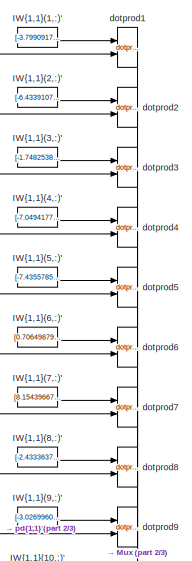
[diagram: controller1/optimized controller - pm/net_col_cd_1/Layer 1/IW{1,1} - part 1/3, top center region]
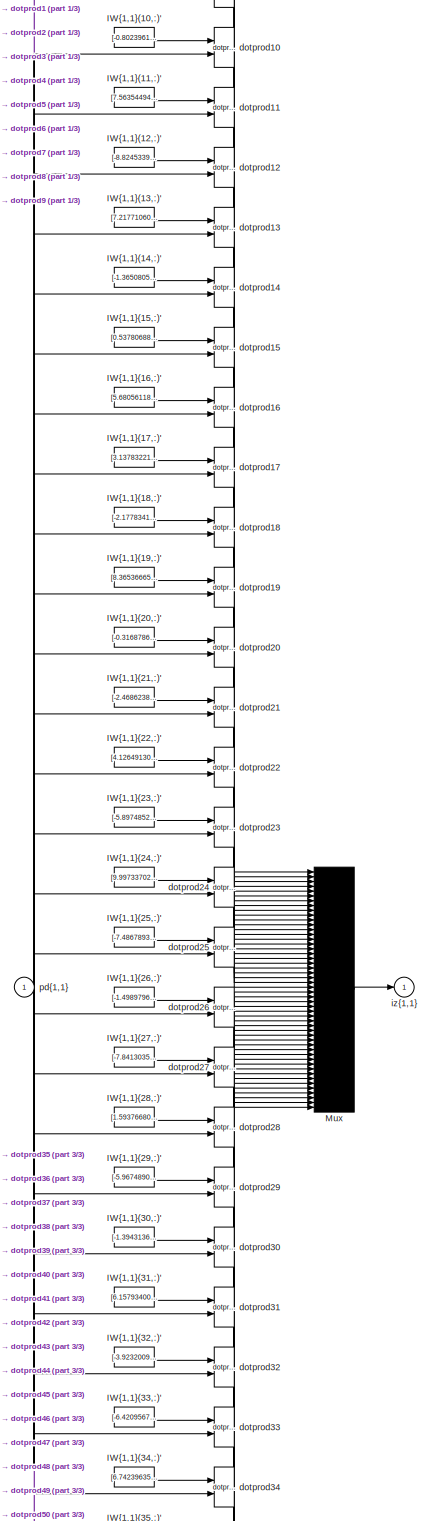
[diagram: controller1/optimized controller - pm/net_col_cd_1/Layer 1/IW{1,1} - part 2/3, full width, middle band]
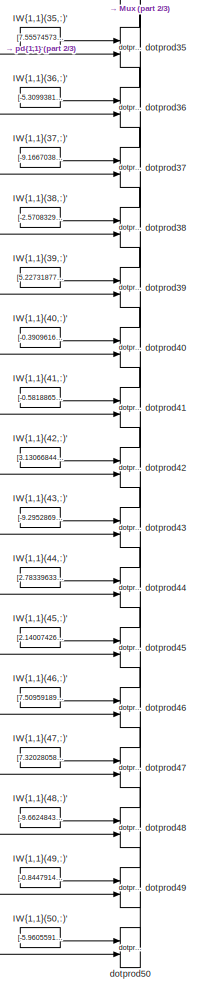
[diagram: controller1/optimized controller - pm/net_col_cd_1/Layer 1/IW{1,1} - part 3/3, bottom center region]
BLOCK [SubSystem] controller1/optimized controller - pm/net_col_cd_1/Layer 1/IW{1,1}
  FunctionWithSeparateData = off
  MaskDisplay = e = 0.06;c1 = [120 150 230]/255;c2 = ([120 150 230]+0)/383;c3 = ([120 150 230]+128)/383;patch([0 1 1 0],[0 0 1 1],c1);patch([0 1 1 1-e 1-e 0+e],[0 0 1 1-e 0+e 0+e],c2);patch([0 0 1 1-e 0+e 0+e],[0 1 1 1-e 1-e 0+e],c3);plot([0 1 1 0 0],[0 0 1 1 0]);disp('W');  <repeated x9 — deduplicated; at blocks: IW{1,1}, LW{2,1}, LW{3,2}>
  MaskHideContents = off
  MaskIconFrame = off
  MaskIconOpaque = on
  MaskIconRotate = none
  MaskIconUnits = autoscale
  MaskPortRotate = default
  MinAlgLoopOccurrences = off
  Opaque = off
  Ports = [1, 1]
  PropExecContextOutsideSubsystem = off
  RTWSystemCode = Auto
  RequestExecContextInheritance = off
  SID = 36304
BLOCK [Constant] controller1/optimized controller - pm/net_col_cd_1/Layer 1/IW{1,1}/IW{1,1}(1,:)'
  MaskDisplay = e = 0.06;c1 = [120 150 230]/255;c2 = ([120 150 230]+0)/383;c3 = ([120 150 230]+128)/383;patch([0 1 1 0],[0 0 1 1],c1);patch([0 1 1 1-e 1-e 0+e],[0 0 1 1-e 0+e 0+e],c2);patch([0 0 1 1-e 0+e 0+e],[0 1 1 1-e 1-e 0+e],c3);plot([0 1 1 0 0],[0 0 1 1 0]);disp('Weights');  <repeated x150 — deduplicated; at blocks: IW{1,1}(1,:)', IW{1,1}(10,:)', IW{1,1}(11,:)', IW{1,1}(12,:)', IW{1,1}(13,:)', IW{1,1}(14,:)', IW{1,1}(15,:)', IW{1,1}(16,:)', IW{1,1}(17,:)', IW{1,1}(18,:)', IW{1,1}(19,:)', IW{1,1}(2,:)', IW{1,1}(20,:)', IW{1,1}(21,:)', IW{1,1}(22,:)', IW{1,1}(23,:)', +34 more>
  MaskIconFrame = off
  MaskIconOpaque = on
  MaskIconRotate = none
  MaskIconUnits = autoscale
  MaskPortRotate = default
  SID = 36306
  Value = [-3.7990917712128214;-6.8855979994230188;-6.5873999758792419]
BLOCK [Constant] controller1/optimized controller - pm/net_col_cd_1/Layer 1/IW{1,1}/IW{1,1}(10,:)'
  MaskIconFrame = off
  MaskIconOpaque = on
  MaskIconRotate = none
  MaskIconUnits = autoscale
  MaskPortRotate = default
  SID = 36307
  Value = [-0.80239614896876077;6.6015225789312089;5.7981128850398385]
BLOCK [Constant] controller1/optimized controller - pm/net_col_cd_1/Layer 1/IW{1,1}/IW{1,1}(11,:)'
  MaskIconFrame = off
  MaskIconOpaque = on
  MaskIconRotate = none
  MaskIconUnits = autoscale
  MaskPortRotate = default
  SID = 36308
  Value = [7.5635449452097685;-5.1804504180343063;5.8716379329817396]
BLOCK [Constant] controller1/optimized controller - pm/net_col_cd_1/Layer 1/IW{1,1}/IW{1,1}(12,:)'
  MaskIconFrame = off
  MaskIconOpaque = on
  MaskIconRotate = none
  MaskIconUnits = autoscale
  MaskPortRotate = default
  SID = 36309
  Value = [-8.8245339230427078;-6.1204397919780167;5.5688080429634423]
BLOCK [Constant] controller1/optimized controller - pm/net_col_cd_1/Layer 1/IW{1,1}/IW{1,1}(13,:)'
  MaskIconFrame = off
  MaskIconOpaque = on
  MaskIconRotate = none
  MaskIconUnits = autoscale
  MaskPortRotate = default
  SID = 36310
  Value = [7.2177106064131129;-1.0577876955856944;6.6292089388637674]
BLOCK [Constant] controller1/optimized controller - pm/net_col_cd_1/Layer 1/IW{1,1}/IW{1,1}(14,:)'
  MaskIconFrame = off
  MaskIconOpaque = on
  MaskIconRotate = none
  MaskIconUnits = autoscale
  MaskPortRotate = default
  SID = 36311
  Value = [-1.3650805012608294;-6.1244082227242584;8.2738863001172405]
BLOCK [Constant] controller1/optimized controller - pm/net_col_cd_1/Layer 1/IW{1,1}/IW{1,1}(15,:)'
  MaskIconFrame = off
  MaskIconOpaque = on
  MaskIconRotate = none
  MaskIconUnits = autoscale
  MaskPortRotate = default
  SID = 36312
  Value = [0.53780688718676295;6.2758586488055679;12.718304870783948]
BLOCK [Constant] controller1/optimized controller - pm/net_col_cd_1/Layer 1/IW{1,1}/IW{1,1}(16,:)'
  MaskIconFrame = off
  MaskIconOpaque = on
  MaskIconRotate = none
  MaskIconUnits = autoscale
  MaskPortRotate = default
  SID = 36313
  Value = [5.6805611861509142;5.9231641355217395;-9.8068399449326549]
BLOCK [Constant] controller1/optimized controller - pm/net_col_cd_1/Layer 1/IW{1,1}/IW{1,1}(17,:)'
  MaskIconFrame = off
  MaskIconOpaque = on
  MaskIconRotate = none
  MaskIconUnits = autoscale
  MaskPortRotate = default
  SID = 36314
  Value = [3.1378322103258913;-8.8468832662520107;5.5099083169547036]
BLOCK [Constant] controller1/optimized controller - pm/net_col_cd_1/Layer 1/IW{1,1}/IW{1,1}(18,:)'
  MaskIconFrame = off
  MaskIconOpaque = on
  MaskIconRotate = none
  MaskIconUnits = autoscale
  MaskPortRotate = default
  SID = 36315
  Value = [-2.1778341171681257;6.4462279902891915;-7.7033684146043795]
BLOCK [Constant] controller1/optimized controller - pm/net_col_cd_1/Layer 1/IW{1,1}/IW{1,1}(19,:)'
  MaskIconFrame = off
  MaskIconOpaque = on
  MaskIconRotate = none
  MaskIconUnits = autoscale
  MaskPortRotate = default
  SID = 36316
  Value = [8.3653666563861488;2.6128424755024171;5.7792931366294811]
BLOCK [Constant] controller1/optimized controller - pm/net_col_cd_1/Layer 1/IW{1,1}/IW{1,1}(2,:)'
  MaskIconFrame = off
  MaskIconOpaque = on
  MaskIconRotate = none
  MaskIconUnits = autoscale
  MaskPortRotate = default
  SID = 36317
  Value = [-6.4339107955753221;7.6146214018397815;7.0319566753033467]
BLOCK [Constant] controller1/optimized controller - pm/net_col_cd_1/Layer 1/IW{1,1}/IW{1,1}(20,:)'
  MaskIconFrame = off
  MaskIconOpaque = on
  MaskIconRotate = none
  MaskIconUnits = autoscale
  MaskPortRotate = default
  SID = 36318
  Value = [-0.31687866615575722;-2.3276817832738557;-11.651789942812648]
BLOCK [Constant] controller1/optimized controller - pm/net_col_cd_1/Layer 1/IW{1,1}/IW{1,1}(21,:)'
  MaskIconFrame = off
  MaskIconOpaque = on
  MaskIconRotate = none
  MaskIconUnits = autoscale
  MaskPortRotate = default
  SID = 36319
  Value = [-2.4686238462100496;4.8695426423501553;-9.9587214390159886]
BLOCK [Constant] controller1/optimized controller - pm/net_col_cd_1/Layer 1/IW{1,1}/IW{1,1}(22,:)'
  MaskIconFrame = off
  MaskIconOpaque = on
  MaskIconRotate = none
  MaskIconUnits = autoscale
  MaskPortRotate = default
  SID = 36320
  Value = [4.1264913031032444;-6.5044792155231521;-5.8595461349188183]
BLOCK [Constant] controller1/optimized controller - pm/net_col_cd_1/Layer 1/IW{1,1}/IW{1,1}(23,:)'
  MaskIconFrame = off
  MaskIconOpaque = on
  MaskIconRotate = none
  MaskIconUnits = autoscale
  MaskPortRotate = default
  SID = 36321
  Value = [-5.8974852503282369;9.610076296368673;-4.7641063260191112]
BLOCK [Constant] controller1/optimized controller - pm/net_col_cd_1/Layer 1/IW{1,1}/IW{1,1}(24,:)'
  MaskIconFrame = off
  MaskIconOpaque = on
  MaskIconRotate = none
  MaskIconUnits = autoscale
  MaskPortRotate = default
  SID = 36322
  Value = [9.9973370209920489;-2.9513379408573703;-1.2568943542077169]
BLOCK [Constant] controller1/optimized controller - pm/net_col_cd_1/Layer 1/IW{1,1}/IW{1,1}(25,:)'
  MaskIconFrame = off
  MaskIconOpaque = on
  MaskIconRotate = none
  MaskIconUnits = autoscale
  MaskPortRotate = default
  SID = 36323
  Value = [-7.4867893104200913;-6.8790379917052293;-1.4678472763088548]
BLOCK [Constant] controller1/optimized controller - pm/net_col_cd_1/Layer 1/IW{1,1}/IW{1,1}(26,:)'
  MaskIconFrame = off
  MaskIconOpaque = on
  MaskIconRotate = none
  MaskIconUnits = autoscale
  MaskPortRotate = default
  SID = 36324
  Value = [-1.4989796438123244;7.3656878859946913;-7.2380381579533744]
BLOCK [Constant] controller1/optimized controller - pm/net_col_cd_1/Layer 1/IW{1,1}/IW{1,1}(27,:)'
  MaskIconFrame = off
  MaskIconOpaque = on
  MaskIconRotate = none
  MaskIconUnits = autoscale
  MaskPortRotate = default
  SID = 36325
  Value = [-7.841303554492284;-5.017381118023609;5.4064369896790305]
BLOCK [Constant] controller1/optimized controller - pm/net_col_cd_1/Layer 1/IW{1,1}/IW{1,1}(28,:)'
  MaskIconFrame = off
  MaskIconOpaque = on
  MaskIconRotate = none
  MaskIconUnits = autoscale
  MaskPortRotate = default
  SID = 36326
  Value = [1.5937668050358837;-1.852763709671607;12.479685224058985]
BLOCK [Constant] controller1/optimized controller - pm/net_col_cd_1/Layer 1/IW{1,1}/IW{1,1}(29,:)'
  MaskIconFrame = off
  MaskIconOpaque = on
  MaskIconRotate = none
  MaskIconUnits = autoscale
  MaskPortRotate = default
  SID = 36327
  Value = [-5.9674890125436031;-3.9181813330177624;-7.661736428395753]
BLOCK [Constant] controller1/optimized controller - pm/net_col_cd_1/Layer 1/IW{1,1}/IW{1,1}(3,:)'
  MaskIconFrame = off
  MaskIconOpaque = on
  MaskIconRotate = none
  MaskIconUnits = autoscale
  MaskPortRotate = default
  SID = 36328
  Value = [-1.7482538792774205;5.6590748532237987;8.9914561312158341]
BLOCK [Constant] controller1/optimized controller - pm/net_col_cd_1/Layer 1/IW{1,1}/IW{1,1}(30,:)'
  MaskIconFrame = off
  MaskIconOpaque = on
  MaskIconRotate = none
  MaskIconUnits = autoscale
  MaskPortRotate = default
  SID = 36329
  Value = [-1.3943136907941851;1.7810717940160172;11.283558851081775]
BLOCK [Constant] controller1/optimized controller - pm/net_col_cd_1/Layer 1/IW{1,1}/IW{1,1}(31,:)'
  MaskIconFrame = off
  MaskIconOpaque = on
  MaskIconRotate = none
  MaskIconUnits = autoscale
  MaskPortRotate = default
  SID = 36330
  Value = [6.1579340044718114;-7.6035933587406452;5.1869531530024222]
BLOCK [Constant] controller1/optimized controller - pm/net_col_cd_1/Layer 1/IW{1,1}/IW{1,1}(32,:)'
  MaskIconFrame = off
  MaskIconOpaque = on
  MaskIconRotate = none
  MaskIconUnits = autoscale
  MaskPortRotate = default
  SID = 36331
  Value = [-3.9232009213747818;-4.4891949556285695;8.4783927472482326]
BLOCK [Constant] controller1/optimized controller - pm/net_col_cd_1/Layer 1/IW{1,1}/IW{1,1}(33,:)'
  MaskIconFrame = off
  MaskIconOpaque = on
  MaskIconRotate = none
  MaskIconUnits = autoscale
  MaskPortRotate = default
  SID = 36332
  Value = [-6.4209567649742452;4.3460396145697953;-6.7891483122103704]
BLOCK [Constant] controller1/optimized controller - pm/net_col_cd_1/Layer 1/IW{1,1}/IW{1,1}(34,:)'
  MaskIconFrame = off
  MaskIconOpaque = on
  MaskIconRotate = none
  MaskIconUnits = autoscale
  MaskPortRotate = default
  SID = 36333
  Value = [6.742396354503148;3.3173142547799706;7.0079551123938657]
BLOCK [Constant] controller1/optimized controller - pm/net_col_cd_1/Layer 1/IW{1,1}/IW{1,1}(35,:)'
  MaskIconFrame = off
  MaskIconOpaque = on
  MaskIconRotate = none
  MaskIconUnits = autoscale
  MaskPortRotate = default
  SID = 36334
  Value = [7.5557457387425879;0.24459856548574171;7.1479919043160072]
BLOCK [Constant] controller1/optimized controller - pm/net_col_cd_1/Layer 1/IW{1,1}/IW{1,1}(36,:)'
  MaskIconFrame = off
  MaskIconOpaque = on
  MaskIconRotate = none
  MaskIconUnits = autoscale
  MaskPortRotate = default
  SID = 36335
  Value = [-5.3099381393634442;-7.6792375111658524;3.0664914813697477]
BLOCK [Constant] controller1/optimized controller - pm/net_col_cd_1/Layer 1/IW{1,1}/IW{1,1}(37,:)'
  MaskIconFrame = off
  MaskIconOpaque = on
  MaskIconRotate = none
  MaskIconUnits = autoscale
  MaskPortRotate = default
  SID = 36336
  Value = [-9.1667038950092259;4.9593870842730743;-0.59333867869566292]
BLOCK [Constant] controller1/optimized controller - pm/net_col_cd_1/Layer 1/IW{1,1}/IW{1,1}(38,:)'
  MaskIconFrame = off
  MaskIconOpaque = on
  MaskIconRotate = none
  MaskIconUnits = autoscale
  MaskPortRotate = default
  SID = 36337
  Value = [-2.5708329155483733;-6.5619713366513102;-7.1409433764191386]
BLOCK [Constant] controller1/optimized controller - pm/net_col_cd_1/Layer 1/IW{1,1}/IW{1,1}(39,:)'
  MaskIconFrame = off
  MaskIconOpaque = on
  MaskIconRotate = none
  MaskIconUnits = autoscale
  MaskPortRotate = default
  SID = 36338
  Value = [5.2273187708127127;-4.0228493565961703;-8.3730810996716194]
BLOCK [Constant] controller1/optimized controller - pm/net_col_cd_1/Layer 1/IW{1,1}/IW{1,1}(4,:)'
  MaskIconFrame = off
  MaskIconOpaque = on
  MaskIconRotate = none
  MaskIconUnits = autoscale
  MaskPortRotate = default
  SID = 36339
  Value = [-7.04941773928826;-0.60977928658927305;-5.8910199505835639]
BLOCK [Constant] controller1/optimized controller - pm/net_col_cd_1/Layer 1/IW{1,1}/IW{1,1}(40,:)'
  MaskIconFrame = off
  MaskIconOpaque = on
  MaskIconRotate = none
  MaskIconUnits = autoscale
  MaskPortRotate = default
  SID = 36340
  Value = [-0.39096163571648324;-1.3326624767238091;-12.008844187998379]
BLOCK [Constant] controller1/optimized controller - pm/net_col_cd_1/Layer 1/IW{1,1}/IW{1,1}(41,:)'
  MaskIconFrame = off
  MaskIconOpaque = on
  MaskIconRotate = none
  MaskIconUnits = autoscale
  MaskPortRotate = default
  SID = 36341
  Value = [-0.58188654495946124;9.4135800509245424;-1.7805627052466884]
BLOCK [Constant] controller1/optimized controller - pm/net_col_cd_1/Layer 1/IW{1,1}/IW{1,1}(42,:)'
  MaskIconFrame = off
  MaskIconOpaque = on
  MaskIconRotate = none
  MaskIconUnits = autoscale
  MaskPortRotate = default
  SID = 36342
  Value = [3.1306684458584839;-2.6341735041105956;-9.5998098226367699]
BLOCK [Constant] controller1/optimized controller - pm/net_col_cd_1/Layer 1/IW{1,1}/IW{1,1}(43,:)'
  MaskIconFrame = off
  MaskIconOpaque = on
  MaskIconRotate = none
  MaskIconUnits = autoscale
  MaskPortRotate = default
  SID = 36343
  Value = [-9.2952869934661653;0.74335072984001227;5.6736474784258073]
BLOCK [Constant] controller1/optimized controller - pm/net_col_cd_1/Layer 1/IW{1,1}/IW{1,1}(44,:)'
  MaskIconFrame = off
  MaskIconOpaque = on
  MaskIconRotate = none
  MaskIconUnits = autoscale
  MaskPortRotate = default
  SID = 36344
  Value = [2.7833963331777691;8.8585769798798992;6.4112618540427615]
BLOCK [Constant] controller1/optimized controller - pm/net_col_cd_1/Layer 1/IW{1,1}/IW{1,1}(45,:)'
  MaskIconFrame = off
  MaskIconOpaque = on
  MaskIconRotate = none
  MaskIconUnits = autoscale
  MaskPortRotate = default
  SID = 36345
  Value = [2.1400742612124848;-8.9038584990126974;0.17346647519212421]
BLOCK [Constant] controller1/optimized controller - pm/net_col_cd_1/Layer 1/IW{1,1}/IW{1,1}(46,:)'
  MaskIconFrame = off
  MaskIconOpaque = on
  MaskIconRotate = none
  MaskIconUnits = autoscale
  MaskPortRotate = default
  SID = 36346
  Value = [7.5095918937805397;-7.7125261843955766;-2.6819237986941098]
BLOCK [Constant] controller1/optimized controller - pm/net_col_cd_1/Layer 1/IW{1,1}/IW{1,1}(47,:)'
  MaskIconFrame = off
  MaskIconOpaque = on
  MaskIconRotate = none
  MaskIconUnits = autoscale
  MaskPortRotate = default
  SID = 36347
  Value = [7.3202805822079444;6.9006590206869518;2.3555858851504725]
BLOCK [Constant] controller1/optimized controller - pm/net_col_cd_1/Layer 1/IW{1,1}/IW{1,1}(48,:)'
  MaskIconFrame = off
  MaskIconOpaque = on
  MaskIconRotate = none
  MaskIconUnits = autoscale
  MaskPortRotate = default
  SID = 36348
  Value = [-9.6624843658985569;2.7704530580708293;2.2553710255421997]
BLOCK [Constant] controller1/optimized controller - pm/net_col_cd_1/Layer 1/IW{1,1}/IW{1,1}(49,:)'
  MaskIconFrame = off
  MaskIconOpaque = on
  MaskIconRotate = none
  MaskIconUnits = autoscale
  MaskPortRotate = default
  SID = 36349
  Value = [-0.84479140450715007;-7.8222958524801385;-7.7942040204806258]
BLOCK [Constant] controller1/optimized controller - pm/net_col_cd_1/Layer 1/IW{1,1}/IW{1,1}(5,:)'
  MaskIconFrame = off
  MaskIconOpaque = on
  MaskIconRotate = none
  MaskIconUnits = autoscale
  MaskPortRotate = default
  SID = 36350
  Value = [-7.4355785288091116;-4.6874703260140409;5.0527717975397017]
BLOCK [Constant] controller1/optimized controller - pm/net_col_cd_1/Layer 1/IW{1,1}/IW{1,1}(50,:)'
  MaskIconFrame = off
  MaskIconOpaque = on
  MaskIconRotate = none
  MaskIconUnits = autoscale
  MaskPortRotate = default
  SID = 36351
  Value = [-5.9605591304210179;3.9391531109548117;7.8235931041506621]
BLOCK [Constant] controller1/optimized controller - pm/net_col_cd_1/Layer 1/IW{1,1}/IW{1,1}(6,:)'
  MaskIconFrame = off
  MaskIconOpaque = on
  MaskIconRotate = none
  MaskIconUnits = autoscale
  MaskPortRotate = default
  SID = 36352
  Value = [0.70649879368744595;-4.6084271935394465;9.6759917337237198]
BLOCK [Constant] controller1/optimized controller - pm/net_col_cd_1/Layer 1/IW{1,1}/IW{1,1}(7,:)'
  MaskIconFrame = off
  MaskIconOpaque = on
  MaskIconRotate = none
  MaskIconUnits = autoscale
  MaskPortRotate = default
  SID = 36353
  Value = [8.1543966734315845;0.65700508602143137;-3.9978229581399742]
BLOCK [Constant] controller1/optimized controller - pm/net_col_cd_1/Layer 1/IW{1,1}/IW{1,1}(8,:)'
  MaskIconFrame = off
  MaskIconOpaque = on
  MaskIconRotate = none
  MaskIconUnits = autoscale
  MaskPortRotate = default
  SID = 36354
  Value = [-2.4333637411278306;-10.644811194021406;0.81107116582503602]
BLOCK [Constant] controller1/optimized controller - pm/net_col_cd_1/Layer 1/IW{1,1}/IW{1,1}(9,:)'
  MaskIconFrame = off
  MaskIconOpaque = on
  MaskIconRotate = none
  MaskIconUnits = autoscale
  MaskPortRotate = default
  SID = 36355
  Value = [-3.0269960681284598;-7.533928493836771;7.8623565037645538]
BLOCK [Mux] controller1/optimized controller - pm/net_col_cd_1/Layer 1/IW{1,1}/Mux
  Inputs = 50
  MaskDisplay = e = 0.06;c1 = [120 150 230]/255;c2 = ([120 150 230]+0)/383;c3 = ([120 150 230]+128)/383;patch([0 1 1 0],[0 0 1 1],c1);patch([0 1 1 1-e 1-e 0+e],[0 0 1 1-e 0+e 0+e],c2);patch([0 0 1 1-e 0+e 0+e],[0 1 1 1-e 1-e 0+e],c3);plot([0 1 1 0 0],[0 0 1 1 0]);disp('Mux');  <repeated x9 — deduplicated; at blocks: Mux>
  MaskIconFrame = off
  MaskIconOpaque = on
  MaskIconRotate = none
  MaskIconUnits = autoscale
  MaskPortRotate = default
  Ports = [50, 1]
  SID = 36356
BLOCK [Reference] controller1/optimized controller - pm/net_col_cd_1/Layer 1/IW{1,1}/dotprod1  REF=neural/Weight Functions/dotprod
  FunctionWithSeparateData = off
  GeneratePreprocessorConditionals = off
  Ports = [2, 1]
  RTWMemSecDataConstants = Inherit from model
  RTWMemSecDataInternal = Inherit from model
  RTWMemSecDataParameters = Inherit from model
  RTWMemSecFuncExecute = Inherit from model
  RTWMemSecFuncInitTerm = Inherit from model
  SID = 36357
  ShowPortLabels = FromPortIcon
  SourceBlock = neural/Weight Functions/dotprod
  SourceType = DOTPROD
  SystemSampleTime = -1
BLOCK [Reference] controller1/optimized controller - pm/net_col_cd_1/Layer 1/IW{1,1}/dotprod10  REF=neural/Weight Functions/dotprod
  FunctionWithSeparateData = off
  GeneratePreprocessorConditionals = off
  Ports = [2, 1]
  RTWMemSecDataConstants = Inherit from model
  RTWMemSecDataInternal = Inherit from model
  RTWMemSecDataParameters = Inherit from model
  RTWMemSecFuncExecute = Inherit from model
  RTWMemSecFuncInitTerm = Inherit from model
  SID = 36358
  ShowPortLabels = FromPortIcon
  SourceBlock = neural/Weight Functions/dotprod
  SourceType = DOTPROD
  SystemSampleTime = -1
BLOCK [Reference] controller1/optimized controller - pm/net_col_cd_1/Layer 1/IW{1,1}/dotprod11  REF=neural/Weight Functions/dotprod
  FunctionWithSeparateData = off
  GeneratePreprocessorConditionals = off
  Ports = [2, 1]
  RTWMemSecDataConstants = Inherit from model
  RTWMemSecDataInternal = Inherit from model
  RTWMemSecDataParameters = Inherit from model
  RTWMemSecFuncExecute = Inherit from model
  RTWMemSecFuncInitTerm = Inherit from model
  SID = 36359
  ShowPortLabels = FromPortIcon
  SourceBlock = neural/Weight Functions/dotprod
  SourceType = DOTPROD
  SystemSampleTime = -1
BLOCK [Reference] controller1/optimized controller - pm/net_col_cd_1/Layer 1/IW{1,1}/dotprod12  REF=neural/Weight Functions/dotprod
  FunctionWithSeparateData = off
  GeneratePreprocessorConditionals = off
  Ports = [2, 1]
  RTWMemSecDataConstants = Inherit from model
  RTWMemSecDataInternal = Inherit from model
  RTWMemSecDataParameters = Inherit from model
  RTWMemSecFuncExecute = Inherit from model
  RTWMemSecFuncInitTerm = Inherit from model
  SID = 36360
  ShowPortLabels = FromPortIcon
  SourceBlock = neural/Weight Functions/dotprod
  SourceType = DOTPROD
  SystemSampleTime = -1
BLOCK [Reference] controller1/optimized controller - pm/net_col_cd_1/Layer 1/IW{1,1}/dotprod13  REF=neural/Weight Functions/dotprod
  FunctionWithSeparateData = off
  GeneratePreprocessorConditionals = off
  Ports = [2, 1]
  RTWMemSecDataConstants = Inherit from model
  RTWMemSecDataInternal = Inherit from model
  RTWMemSecDataParameters = Inherit from model
  RTWMemSecFuncExecute = Inherit from model
  RTWMemSecFuncInitTerm = Inherit from model
  SID = 36361
  ShowPortLabels = FromPortIcon
  SourceBlock = neural/Weight Functions/dotprod
  SourceType = DOTPROD
  SystemSampleTime = -1
BLOCK [Reference] controller1/optimized controller - pm/net_col_cd_1/Layer 1/IW{1,1}/dotprod14  REF=neural/Weight Functions/dotprod
  FunctionWithSeparateData = off
  GeneratePreprocessorConditionals = off
  Ports = [2, 1]
  RTWMemSecDataConstants = Inherit from model
  RTWMemSecDataInternal = Inherit from model
  RTWMemSecDataParameters = Inherit from model
  RTWMemSecFuncExecute = Inherit from model
  RTWMemSecFuncInitTerm = Inherit from model
  SID = 36362
  ShowPortLabels = FromPortIcon
  SourceBlock = neural/Weight Functions/dotprod
  SourceType = DOTPROD
  SystemSampleTime = -1
BLOCK [Reference] controller1/optimized controller - pm/net_col_cd_1/Layer 1/IW{1,1}/dotprod15  REF=neural/Weight Functions/dotprod
  FunctionWithSeparateData = off
  GeneratePreprocessorConditionals = off
  Ports = [2, 1]
  RTWMemSecDataConstants = Inherit from model
  RTWMemSecDataInternal = Inherit from model
  RTWMemSecDataParameters = Inherit from model
  RTWMemSecFuncExecute = Inherit from model
  RTWMemSecFuncInitTerm = Inherit from model
  SID = 36363
  ShowPortLabels = FromPortIcon
  SourceBlock = neural/Weight Functions/dotprod
  SourceType = DOTPROD
  SystemSampleTime = -1
BLOCK [Reference] controller1/optimized controller - pm/net_col_cd_1/Layer 1/IW{1,1}/dotprod16  REF=neural/Weight Functions/dotprod
  FunctionWithSeparateData = off
  GeneratePreprocessorConditionals = off
  Ports = [2, 1]
  RTWMemSecDataConstants = Inherit from model
  RTWMemSecDataInternal = Inherit from model
  RTWMemSecDataParameters = Inherit from model
  RTWMemSecFuncExecute = Inherit from model
  RTWMemSecFuncInitTerm = Inherit from model
  SID = 36364
  ShowPortLabels = FromPortIcon
  SourceBlock = neural/Weight Functions/dotprod
  SourceType = DOTPROD
  SystemSampleTime = -1
BLOCK [Reference] controller1/optimized controller - pm/net_col_cd_1/Layer 1/IW{1,1}/dotprod17  REF=neural/Weight Functions/dotprod
  FunctionWithSeparateData = off
  GeneratePreprocessorConditionals = off
  Ports = [2, 1]
  RTWMemSecDataConstants = Inherit from model
  RTWMemSecDataInternal = Inherit from model
  RTWMemSecDataParameters = Inherit from model
  RTWMemSecFuncExecute = Inherit from model
  RTWMemSecFuncInitTerm = Inherit from model
  SID = 36365
  ShowPortLabels = FromPortIcon
  SourceBlock = neural/Weight Functions/dotprod
  SourceType = DOTPROD
  SystemSampleTime = -1
BLOCK [Reference] controller1/optimized controller - pm/net_col_cd_1/Layer 1/IW{1,1}/dotprod18  REF=neural/Weight Functions/dotprod
  FunctionWithSeparateData = off
  GeneratePreprocessorConditionals = off
  Ports = [2, 1]
  RTWMemSecDataConstants = Inherit from model
  RTWMemSecDataInternal = Inherit from model
  RTWMemSecDataParameters = Inherit from model
  RTWMemSecFuncExecute = Inherit from model
  RTWMemSecFuncInitTerm = Inherit from model
  SID = 36366
  ShowPortLabels = FromPortIcon
  SourceBlock = neural/Weight Functions/dotprod
  SourceType = DOTPROD
  SystemSampleTime = -1
BLOCK [Reference] controller1/optimized controller - pm/net_col_cd_1/Layer 1/IW{1,1}/dotprod19  REF=neural/Weight Functions/dotprod
  FunctionWithSeparateData = off
  GeneratePreprocessorConditionals = off
  Ports = [2, 1]
  RTWMemSecDataConstants = Inherit from model
  RTWMemSecDataInternal = Inherit from model
  RTWMemSecDataParameters = Inherit from model
  RTWMemSecFuncExecute = Inherit from model
  RTWMemSecFuncInitTerm = Inherit from model
  SID = 36367
  ShowPortLabels = FromPortIcon
  SourceBlock = neural/Weight Functions/dotprod
  SourceType = DOTPROD
  SystemSampleTime = -1
BLOCK [Reference] controller1/optimized controller - pm/net_col_cd_1/Layer 1/IW{1,1}/dotprod2  REF=neural/Weight Functions/dotprod
  FunctionWithSeparateData = off
  GeneratePreprocessorConditionals = off
  Ports = [2, 1]
  RTWMemSecDataConstants = Inherit from model
  RTWMemSecDataInternal = Inherit from model
  RTWMemSecDataParameters = Inherit from model
  RTWMemSecFuncExecute = Inherit from model
  RTWMemSecFuncInitTerm = Inherit from model
  SID = 36368
  ShowPortLabels = FromPortIcon
  SourceBlock = neural/Weight Functions/dotprod
  SourceType = DOTPROD
  SystemSampleTime = -1
BLOCK [Reference] controller1/optimized controller - pm/net_col_cd_1/Layer 1/IW{1,1}/dotprod20  REF=neural/Weight Functions/dotprod
  FunctionWithSeparateData = off
  GeneratePreprocessorConditionals = off
  Ports = [2, 1]
  RTWMemSecDataConstants = Inherit from model
  RTWMemSecDataInternal = Inherit from model
  RTWMemSecDataParameters = Inherit from model
  RTWMemSecFuncExecute = Inherit from model
  RTWMemSecFuncInitTerm = Inherit from model
  SID = 36369
  ShowPortLabels = FromPortIcon
  SourceBlock = neural/Weight Functions/dotprod
  SourceType = DOTPROD
  SystemSampleTime = -1
BLOCK [Reference] controller1/optimized controller - pm/net_col_cd_1/Layer 1/IW{1,1}/dotprod21  REF=neural/Weight Functions/dotprod
  FunctionWithSeparateData = off
  GeneratePreprocessorConditionals = off
  Ports = [2, 1]
  RTWMemSecDataConstants = Inherit from model
  RTWMemSecDataInternal = Inherit from model
  RTWMemSecDataParameters = Inherit from model
  RTWMemSecFuncExecute = Inherit from model
  RTWMemSecFuncInitTerm = Inherit from model
  SID = 36370
  ShowPortLabels = FromPortIcon
  SourceBlock = neural/Weight Functions/dotprod
  SourceType = DOTPROD
  SystemSampleTime = -1
BLOCK [Reference] controller1/optimized controller - pm/net_col_cd_1/Layer 1/IW{1,1}/dotprod22  REF=neural/Weight Functions/dotprod
  FunctionWithSeparateData = off
  GeneratePreprocessorConditionals = off
  Ports = [2, 1]
  RTWMemSecDataConstants = Inherit from model
  RTWMemSecDataInternal = Inherit from model
  RTWMemSecDataParameters = Inherit from model
  RTWMemSecFuncExecute = Inherit from model
  RTWMemSecFuncInitTerm = Inherit from model
  SID = 36371
  ShowPortLabels = FromPortIcon
  SourceBlock = neural/Weight Functions/dotprod
  SourceType = DOTPROD
  SystemSampleTime = -1
BLOCK [Reference] controller1/optimized controller - pm/net_col_cd_1/Layer 1/IW{1,1}/dotprod23  REF=neural/Weight Functions/dotprod
  FunctionWithSeparateData = off
  GeneratePreprocessorConditionals = off
  Ports = [2, 1]
  RTWMemSecDataConstants = Inherit from model
  RTWMemSecDataInternal = Inherit from model
  RTWMemSecDataParameters = Inherit from model
  RTWMemSecFuncExecute = Inherit from model
  RTWMemSecFuncInitTerm = Inherit from model
  SID = 36372
  ShowPortLabels = FromPortIcon
  SourceBlock = neural/Weight Functions/dotprod
  SourceType = DOTPROD
  SystemSampleTime = -1
BLOCK [Reference] controller1/optimized controller - pm/net_col_cd_1/Layer 1/IW{1,1}/dotprod24  REF=neural/Weight Functions/dotprod
  FunctionWithSeparateData = off
  GeneratePreprocessorConditionals = off
  Ports = [2, 1]
  RTWMemSecDataConstants = Inherit from model
  RTWMemSecDataInternal = Inherit from model
  RTWMemSecDataParameters = Inherit from model
  RTWMemSecFuncExecute = Inherit from model
  RTWMemSecFuncInitTerm = Inherit from model
  SID = 36373
  ShowPortLabels = FromPortIcon
  SourceBlock = neural/Weight Functions/dotprod
  SourceType = DOTPROD
  SystemSampleTime = -1
BLOCK [Reference] controller1/optimized controller - pm/net_col_cd_1/Layer 1/IW{1,1}/dotprod25  REF=neural/Weight Functions/dotprod
  FunctionWithSeparateData = off
  GeneratePreprocessorConditionals = off
  Ports = [2, 1]
  RTWMemSecDataConstants = Inherit from model
  RTWMemSecDataInternal = Inherit from model
  RTWMemSecDataParameters = Inherit from model
  RTWMemSecFuncExecute = Inherit from model
  RTWMemSecFuncInitTerm = Inherit from model
  SID = 36374
  ShowPortLabels = FromPortIcon
  SourceBlock = neural/Weight Functions/dotprod
  SourceType = DOTPROD
  SystemSampleTime = -1
BLOCK [Reference] controller1/optimized controller - pm/net_col_cd_1/Layer 1/IW{1,1}/dotprod26  REF=neural/Weight Functions/dotprod
  FunctionWithSeparateData = off
  GeneratePreprocessorConditionals = off
  Ports = [2, 1]
  RTWMemSecDataConstants = Inherit from model
  RTWMemSecDataInternal = Inherit from model
  RTWMemSecDataParameters = Inherit from model
  RTWMemSecFuncExecute = Inherit from model
  RTWMemSecFuncInitTerm = Inherit from model
  SID = 36375
  ShowPortLabels = FromPortIcon
  SourceBlock = neural/Weight Functions/dotprod
  SourceType = DOTPROD
  SystemSampleTime = -1
BLOCK [Reference] controller1/optimized controller - pm/net_col_cd_1/Layer 1/IW{1,1}/dotprod27  REF=neural/Weight Functions/dotprod
  FunctionWithSeparateData = off
  GeneratePreprocessorConditionals = off
  Ports = [2, 1]
  RTWMemSecDataConstants = Inherit from model
  RTWMemSecDataInternal = Inherit from model
  RTWMemSecDataParameters = Inherit from model
  RTWMemSecFuncExecute = Inherit from model
  RTWMemSecFuncInitTerm = Inherit from model
  SID = 36376
  ShowPortLabels = FromPortIcon
  SourceBlock = neural/Weight Functions/dotprod
  SourceType = DOTPROD
  SystemSampleTime = -1
BLOCK [Reference] controller1/optimized controller - pm/net_col_cd_1/Layer 1/IW{1,1}/dotprod28  REF=neural/Weight Functions/dotprod
  FunctionWithSeparateData = off
  GeneratePreprocessorConditionals = off
  Ports = [2, 1]
  RTWMemSecDataConstants = Inherit from model
  RTWMemSecDataInternal = Inherit from model
  RTWMemSecDataParameters = Inherit from model
  RTWMemSecFuncExecute = Inherit from model
  RTWMemSecFuncInitTerm = Inherit from model
  SID = 36377
  ShowPortLabels = FromPortIcon
  SourceBlock = neural/Weight Functions/dotprod
  SourceType = DOTPROD
  SystemSampleTime = -1
BLOCK [Reference] controller1/optimized controller - pm/net_col_cd_1/Layer 1/IW{1,1}/dotprod29  REF=neural/Weight Functions/dotprod
  FunctionWithSeparateData = off
  GeneratePreprocessorConditionals = off
  Ports = [2, 1]
  RTWMemSecDataConstants = Inherit from model
  RTWMemSecDataInternal = Inherit from model
  RTWMemSecDataParameters = Inherit from model
  RTWMemSecFuncExecute = Inherit from model
  RTWMemSecFuncInitTerm = Inherit from model
  SID = 36378
  ShowPortLabels = FromPortIcon
  SourceBlock = neural/Weight Functions/dotprod
  SourceType = DOTPROD
  SystemSampleTime = -1
BLOCK [Reference] controller1/optimized controller - pm/net_col_cd_1/Layer 1/IW{1,1}/dotprod3  REF=neural/Weight Functions/dotprod
  FunctionWithSeparateData = off
  GeneratePreprocessorConditionals = off
  Ports = [2, 1]
  RTWMemSecDataConstants = Inherit from model
  RTWMemSecDataInternal = Inherit from model
  RTWMemSecDataParameters = Inherit from model
  RTWMemSecFuncExecute = Inherit from model
  RTWMemSecFuncInitTerm = Inherit from model
  SID = 36379
  ShowPortLabels = FromPortIcon
  SourceBlock = neural/Weight Functions/dotprod
  SourceType = DOTPROD
  SystemSampleTime = -1
BLOCK [Reference] controller1/optimized controller - pm/net_col_cd_1/Layer 1/IW{1,1}/dotprod30  REF=neural/Weight Functions/dotprod
  FunctionWithSeparateData = off
  GeneratePreprocessorConditionals = off
  Ports = [2, 1]
  RTWMemSecDataConstants = Inherit from model
  RTWMemSecDataInternal = Inherit from model
  RTWMemSecDataParameters = Inherit from model
  RTWMemSecFuncExecute = Inherit from model
  RTWMemSecFuncInitTerm = Inherit from model
  SID = 36380
  ShowPortLabels = FromPortIcon
  SourceBlock = neural/Weight Functions/dotprod
  SourceType = DOTPROD
  SystemSampleTime = -1
BLOCK [Reference] controller1/optimized controller - pm/net_col_cd_1/Layer 1/IW{1,1}/dotprod31  REF=neural/Weight Functions/dotprod
  FunctionWithSeparateData = off
  GeneratePreprocessorConditionals = off
  Ports = [2, 1]
  RTWMemSecDataConstants = Inherit from model
  RTWMemSecDataInternal = Inherit from model
  RTWMemSecDataParameters = Inherit from model
  RTWMemSecFuncExecute = Inherit from model
  RTWMemSecFuncInitTerm = Inherit from model
  SID = 36381
  ShowPortLabels = FromPortIcon
  SourceBlock = neural/Weight Functions/dotprod
  SourceType = DOTPROD
  SystemSampleTime = -1
BLOCK [Reference] controller1/optimized controller - pm/net_col_cd_1/Layer 1/IW{1,1}/dotprod32  REF=neural/Weight Functions/dotprod
  FunctionWithSeparateData = off
  GeneratePreprocessorConditionals = off
  Ports = [2, 1]
  RTWMemSecDataConstants = Inherit from model
  RTWMemSecDataInternal = Inherit from model
  RTWMemSecDataParameters = Inherit from model
  RTWMemSecFuncExecute = Inherit from model
  RTWMemSecFuncInitTerm = Inherit from model
  SID = 36382
  ShowPortLabels = FromPortIcon
  SourceBlock = neural/Weight Functions/dotprod
  SourceType = DOTPROD
  SystemSampleTime = -1
BLOCK [Reference] controller1/optimized controller - pm/net_col_cd_1/Layer 1/IW{1,1}/dotprod33  REF=neural/Weight Functions/dotprod
  FunctionWithSeparateData = off
  GeneratePreprocessorConditionals = off
  Ports = [2, 1]
  RTWMemSecDataConstants = Inherit from model
  RTWMemSecDataInternal = Inherit from model
  RTWMemSecDataParameters = Inherit from model
  RTWMemSecFuncExecute = Inherit from model
  RTWMemSecFuncInitTerm = Inherit from model
  SID = 36383
  ShowPortLabels = FromPortIcon
  SourceBlock = neural/Weight Functions/dotprod
  SourceType = DOTPROD
  SystemSampleTime = -1
BLOCK [Reference] controller1/optimized controller - pm/net_col_cd_1/Layer 1/IW{1,1}/dotprod34  REF=neural/Weight Functions/dotprod
  FunctionWithSeparateData = off
  GeneratePreprocessorConditionals = off
  Ports = [2, 1]
  RTWMemSecDataConstants = Inherit from model
  RTWMemSecDataInternal = Inherit from model
  RTWMemSecDataParameters = Inherit from model
  RTWMemSecFuncExecute = Inherit from model
  RTWMemSecFuncInitTerm = Inherit from model
  SID = 36384
  ShowPortLabels = FromPortIcon
  SourceBlock = neural/Weight Functions/dotprod
  SourceType = DOTPROD
  SystemSampleTime = -1
BLOCK [Reference] controller1/optimized controller - pm/net_col_cd_1/Layer 1/IW{1,1}/dotprod35  REF=neural/Weight Functions/dotprod
  FunctionWithSeparateData = off
  GeneratePreprocessorConditionals = off
  Ports = [2, 1]
  RTWMemSecDataConstants = Inherit from model
  RTWMemSecDataInternal = Inherit from model
  RTWMemSecDataParameters = Inherit from model
  RTWMemSecFuncExecute = Inherit from model
  RTWMemSecFuncInitTerm = Inherit from model
  SID = 36385
  ShowPortLabels = FromPortIcon
  SourceBlock = neural/Weight Functions/dotprod
  SourceType = DOTPROD
  SystemSampleTime = -1
BLOCK [Reference] controller1/optimized controller - pm/net_col_cd_1/Layer 1/IW{1,1}/dotprod36  REF=neural/Weight Functions/dotprod
  FunctionWithSeparateData = off
  GeneratePreprocessorConditionals = off
  Ports = [2, 1]
  RTWMemSecDataConstants = Inherit from model
  RTWMemSecDataInternal = Inherit from model
  RTWMemSecDataParameters = Inherit from model
  RTWMemSecFuncExecute = Inherit from model
  RTWMemSecFuncInitTerm = Inherit from model
  SID = 36386
  ShowPortLabels = FromPortIcon
  SourceBlock = neural/Weight Functions/dotprod
  SourceType = DOTPROD
  SystemSampleTime = -1
BLOCK [Reference] controller1/optimized controller - pm/net_col_cd_1/Layer 1/IW{1,1}/dotprod37  REF=neural/Weight Functions/dotprod
  FunctionWithSeparateData = off
  GeneratePreprocessorConditionals = off
  Ports = [2, 1]
  RTWMemSecDataConstants = Inherit from model
  RTWMemSecDataInternal = Inherit from model
  RTWMemSecDataParameters = Inherit from model
  RTWMemSecFuncExecute = Inherit from model
  RTWMemSecFuncInitTerm = Inherit from model
  SID = 36387
  ShowPortLabels = FromPortIcon
  SourceBlock = neural/Weight Functions/dotprod
  SourceType = DOTPROD
  SystemSampleTime = -1
BLOCK [Reference] controller1/optimized controller - pm/net_col_cd_1/Layer 1/IW{1,1}/dotprod38  REF=neural/Weight Functions/dotprod
  FunctionWithSeparateData = off
  GeneratePreprocessorConditionals = off
  Ports = [2, 1]
  RTWMemSecDataConstants = Inherit from model
  RTWMemSecDataInternal = Inherit from model
  RTWMemSecDataParameters = Inherit from model
  RTWMemSecFuncExecute = Inherit from model
  RTWMemSecFuncInitTerm = Inherit from model
  SID = 36388
  ShowPortLabels = FromPortIcon
  SourceBlock = neural/Weight Functions/dotprod
  SourceType = DOTPROD
  SystemSampleTime = -1
BLOCK [Reference] controller1/optimized controller - pm/net_col_cd_1/Layer 1/IW{1,1}/dotprod39  REF=neural/Weight Functions/dotprod
  FunctionWithSeparateData = off
  GeneratePreprocessorConditionals = off
  Ports = [2, 1]
  RTWMemSecDataConstants = Inherit from model
  RTWMemSecDataInternal = Inherit from model
  RTWMemSecDataParameters = Inherit from model
  RTWMemSecFuncExecute = Inherit from model
  RTWMemSecFuncInitTerm = Inherit from model
  SID = 36389
  ShowPortLabels = FromPortIcon
  SourceBlock = neural/Weight Functions/dotprod
  SourceType = DOTPROD
  SystemSampleTime = -1
BLOCK [Reference] controller1/optimized controller - pm/net_col_cd_1/Layer 1/IW{1,1}/dotprod4  REF=neural/Weight Functions/dotprod
  FunctionWithSeparateData = off
  GeneratePreprocessorConditionals = off
  Ports = [2, 1]
  RTWMemSecDataConstants = Inherit from model
  RTWMemSecDataInternal = Inherit from model
  RTWMemSecDataParameters = Inherit from model
  RTWMemSecFuncExecute = Inherit from model
  RTWMemSecFuncInitTerm = Inherit from model
  SID = 36390
  ShowPortLabels = FromPortIcon
  SourceBlock = neural/Weight Functions/dotprod
  SourceType = DOTPROD
  SystemSampleTime = -1
BLOCK [Reference] controller1/optimized controller - pm/net_col_cd_1/Layer 1/IW{1,1}/dotprod40  REF=neural/Weight Functions/dotprod
  FunctionWithSeparateData = off
  GeneratePreprocessorConditionals = off
  Ports = [2, 1]
  RTWMemSecDataConstants = Inherit from model
  RTWMemSecDataInternal = Inherit from model
  RTWMemSecDataParameters = Inherit from model
  RTWMemSecFuncExecute = Inherit from model
  RTWMemSecFuncInitTerm = Inherit from model
  SID = 36391
  ShowPortLabels = FromPortIcon
  SourceBlock = neural/Weight Functions/dotprod
  SourceType = DOTPROD
  SystemSampleTime = -1
BLOCK [Reference] controller1/optimized controller - pm/net_col_cd_1/Layer 1/IW{1,1}/dotprod41  REF=neural/Weight Functions/dotprod
  FunctionWithSeparateData = off
  GeneratePreprocessorConditionals = off
  Ports = [2, 1]
  RTWMemSecDataConstants = Inherit from model
  RTWMemSecDataInternal = Inherit from model
  RTWMemSecDataParameters = Inherit from model
  RTWMemSecFuncExecute = Inherit from model
  RTWMemSecFuncInitTerm = Inherit from model
  SID = 36392
  ShowPortLabels = FromPortIcon
  SourceBlock = neural/Weight Functions/dotprod
  SourceType = DOTPROD
  SystemSampleTime = -1
BLOCK [Reference] controller1/optimized controller - pm/net_col_cd_1/Layer 1/IW{1,1}/dotprod42  REF=neural/Weight Functions/dotprod
  FunctionWithSeparateData = off
  GeneratePreprocessorConditionals = off
  Ports = [2, 1]
  RTWMemSecDataConstants = Inherit from model
  RTWMemSecDataInternal = Inherit from model
  RTWMemSecDataParameters = Inherit from model
  RTWMemSecFuncExecute = Inherit from model
  RTWMemSecFuncInitTerm = Inherit from model
  SID = 36393
  ShowPortLabels = FromPortIcon
  SourceBlock = neural/Weight Functions/dotprod
  SourceType = DOTPROD
  SystemSampleTime = -1
BLOCK [Reference] controller1/optimized controller - pm/net_col_cd_1/Layer 1/IW{1,1}/dotprod43  REF=neural/Weight Functions/dotprod
  FunctionWithSeparateData = off
  GeneratePreprocessorConditionals = off
  Ports = [2, 1]
  RTWMemSecDataConstants = Inherit from model
  RTWMemSecDataInternal = Inherit from model
  RTWMemSecDataParameters = Inherit from model
  RTWMemSecFuncExecute = Inherit from model
  RTWMemSecFuncInitTerm = Inherit from model
  SID = 36394
  ShowPortLabels = FromPortIcon
  SourceBlock = neural/Weight Functions/dotprod
  SourceType = DOTPROD
  SystemSampleTime = -1
BLOCK [Reference] controller1/optimized controller - pm/net_col_cd_1/Layer 1/IW{1,1}/dotprod44  REF=neural/Weight Functions/dotprod
  FunctionWithSeparateData = off
  GeneratePreprocessorConditionals = off
  Ports = [2, 1]
  RTWMemSecDataConstants = Inherit from model
  RTWMemSecDataInternal = Inherit from model
  RTWMemSecDataParameters = Inherit from model
  RTWMemSecFuncExecute = Inherit from model
  RTWMemSecFuncInitTerm = Inherit from model
  SID = 36395
  ShowPortLabels = FromPortIcon
  SourceBlock = neural/Weight Functions/dotprod
  SourceType = DOTPROD
  SystemSampleTime = -1
BLOCK [Reference] controller1/optimized controller - pm/net_col_cd_1/Layer 1/IW{1,1}/dotprod45  REF=neural/Weight Functions/dotprod
  FunctionWithSeparateData = off
  GeneratePreprocessorConditionals = off
  Ports = [2, 1]
  RTWMemSecDataConstants = Inherit from model
  RTWMemSecDataInternal = Inherit from model
  RTWMemSecDataParameters = Inherit from model
  RTWMemSecFuncExecute = Inherit from model
  RTWMemSecFuncInitTerm = Inherit from model
  SID = 36396
  ShowPortLabels = FromPortIcon
  SourceBlock = neural/Weight Functions/dotprod
  SourceType = DOTPROD
  SystemSampleTime = -1
BLOCK [Reference] controller1/optimized controller - pm/net_col_cd_1/Layer 1/IW{1,1}/dotprod46  REF=neural/Weight Functions/dotprod
  FunctionWithSeparateData = off
  GeneratePreprocessorConditionals = off
  Ports = [2, 1]
  RTWMemSecDataConstants = Inherit from model
  RTWMemSecDataInternal = Inherit from model
  RTWMemSecDataParameters = Inherit from model
  RTWMemSecFuncExecute = Inherit from model
  RTWMemSecFuncInitTerm = Inherit from model
  SID = 36397
  ShowPortLabels = FromPortIcon
  SourceBlock = neural/Weight Functions/dotprod
  SourceType = DOTPROD
  SystemSampleTime = -1
BLOCK [Reference] controller1/optimized controller - pm/net_col_cd_1/Layer 1/IW{1,1}/dotprod47  REF=neural/Weight Functions/dotprod
  FunctionWithSeparateData = off
  GeneratePreprocessorConditionals = off
  Ports = [2, 1]
  RTWMemSecDataConstants = Inherit from model
  RTWMemSecDataInternal = Inherit from model
  RTWMemSecDataParameters = Inherit from model
  RTWMemSecFuncExecute = Inherit from model
  RTWMemSecFuncInitTerm = Inherit from model
  SID = 36398
  ShowPortLabels = FromPortIcon
  SourceBlock = neural/Weight Functions/dotprod
  SourceType = DOTPROD
  SystemSampleTime = -1
BLOCK [Reference] controller1/optimized controller - pm/net_col_cd_1/Layer 1/IW{1,1}/dotprod48  REF=neural/Weight Functions/dotprod
  FunctionWithSeparateData = off
  GeneratePreprocessorConditionals = off
  Ports = [2, 1]
  RTWMemSecDataConstants = Inherit from model
  RTWMemSecDataInternal = Inherit from model
  RTWMemSecDataParameters = Inherit from model
  RTWMemSecFuncExecute = Inherit from model
  RTWMemSecFuncInitTerm = Inherit from model
  SID = 36399
  ShowPortLabels = FromPortIcon
  SourceBlock = neural/Weight Functions/dotprod
  SourceType = DOTPROD
  SystemSampleTime = -1
BLOCK [Reference] controller1/optimized controller - pm/net_col_cd_1/Layer 1/IW{1,1}/dotprod49  REF=neural/Weight Functions/dotprod
  FunctionWithSeparateData = off
  GeneratePreprocessorConditionals = off
  Ports = [2, 1]
  RTWMemSecDataConstants = Inherit from model
  RTWMemSecDataInternal = Inherit from model
  RTWMemSecDataParameters = Inherit from model
  RTWMemSecFuncExecute = Inherit from model
  RTWMemSecFuncInitTerm = Inherit from model
  SID = 36400
  ShowPortLabels = FromPortIcon
  SourceBlock = neural/Weight Functions/dotprod
  SourceType = DOTPROD
  SystemSampleTime = -1
BLOCK [Reference] controller1/optimized controller - pm/net_col_cd_1/Layer 1/IW{1,1}/dotprod5  REF=neural/Weight Functions/dotprod
  FunctionWithSeparateData = off
  GeneratePreprocessorConditionals = off
  Ports = [2, 1]
  RTWMemSecDataConstants = Inherit from model
  RTWMemSecDataInternal = Inherit from model
  RTWMemSecDataParameters = Inherit from model
  RTWMemSecFuncExecute = Inherit from model
  RTWMemSecFuncInitTerm = Inherit from model
  SID = 36401
  ShowPortLabels = FromPortIcon
  SourceBlock = neural/Weight Functions/dotprod
  SourceType = DOTPROD
  SystemSampleTime = -1
BLOCK [Reference] controller1/optimized controller - pm/net_col_cd_1/Layer 1/IW{1,1}/dotprod50  REF=neural/Weight Functions/dotprod
  FunctionWithSeparateData = off
  GeneratePreprocessorConditionals = off
  Ports = [2, 1]
  RTWMemSecDataConstants = Inherit from model
  RTWMemSecDataInternal = Inherit from model
  RTWMemSecDataParameters = Inherit from model
  RTWMemSecFuncExecute = Inherit from model
  RTWMemSecFuncInitTerm = Inherit from model
  SID = 36402
  ShowPortLabels = FromPortIcon
  SourceBlock = neural/Weight Functions/dotprod
  SourceType = DOTPROD
  SystemSampleTime = -1
BLOCK [Reference] controller1/optimized controller - pm/net_col_cd_1/Layer 1/IW{1,1}/dotprod6  REF=neural/Weight Functions/dotprod
  FunctionWithSeparateData = off
  GeneratePreprocessorConditionals = off
  Ports = [2, 1]
  RTWMemSecDataConstants = Inherit from model
  RTWMemSecDataInternal = Inherit from model
  RTWMemSecDataParameters = Inherit from model
  RTWMemSecFuncExecute = Inherit from model
  RTWMemSecFuncInitTerm = Inherit from model
  SID = 36403
  ShowPortLabels = FromPortIcon
  SourceBlock = neural/Weight Functions/dotprod
  SourceType = DOTPROD
  SystemSampleTime = -1
BLOCK [Reference] controller1/optimized controller - pm/net_col_cd_1/Layer 1/IW{1,1}/dotprod7  REF=neural/Weight Functions/dotprod
  FunctionWithSeparateData = off
  GeneratePreprocessorConditionals = off
  Ports = [2, 1]
  RTWMemSecDataConstants = Inherit from model
  RTWMemSecDataInternal = Inherit from model
  RTWMemSecDataParameters = Inherit from model
  RTWMemSecFuncExecute = Inherit from model
  RTWMemSecFuncInitTerm = Inherit from model
  SID = 36404
  ShowPortLabels = FromPortIcon
  SourceBlock = neural/Weight Functions/dotprod
  SourceType = DOTPROD
  SystemSampleTime = -1
BLOCK [Reference] controller1/optimized controller - pm/net_col_cd_1/Layer 1/IW{1,1}/dotprod8  REF=neural/Weight Functions/dotprod
  FunctionWithSeparateData = off
  GeneratePreprocessorConditionals = off
  Ports = [2, 1]
  RTWMemSecDataConstants = Inherit from model
  RTWMemSecDataInternal = Inherit from model
  RTWMemSecDataParameters = Inherit from model
  RTWMemSecFuncExecute = Inherit from model
  RTWMemSecFuncInitTerm = Inherit from model
  SID = 36405
  ShowPortLabels = FromPortIcon
  SourceBlock = neural/Weight Functions/dotprod
  SourceType = DOTPROD
  SystemSampleTime = -1
BLOCK [Reference] controller1/optimized controller - pm/net_col_cd_1/Layer 1/IW{1,1}/dotprod9  REF=neural/Weight Functions/dotprod
  FunctionWithSeparateData = off
  GeneratePreprocessorConditionals = off
  Ports = [2, 1]
  RTWMemSecDataConstants = Inherit from model
  RTWMemSecDataInternal = Inherit from model
  RTWMemSecDataParameters = Inherit from model
  RTWMemSecFuncExecute = Inherit from model
  RTWMemSecFuncInitTerm = Inherit from model
  SID = 36406
  ShowPortLabels = FromPortIcon
  SourceBlock = neural/Weight Functions/dotprod
  SourceType = DOTPROD
  SystemSampleTime = -1
BLOCK [Outport] controller1/optimized controller - pm/net_col_cd_1/Layer 1/IW{1,1}/iz{1,1}
  IconDisplay = Port number
  MaskIconFrame = off
  MaskIconOpaque = on
  MaskIconRotate = none
  MaskIconUnits = autoscale
  MaskPortRotate = default
  SID = 36407
BLOCK [Inport] controller1/optimized controller - pm/net_col_cd_1/Layer 1/IW{1,1}/pd{1,1}
  IconDisplay = Port number
  MaskIconFrame = off
  MaskIconOpaque = on
  MaskIconRotate = none
  MaskIconUnits = autoscale
  MaskPortRotate = default
  PortDimensions = 3
  SID = 36305
BLOCK [Outport] controller1/optimized controller - pm/net_col_cd_1/Layer 1/a{1}
  IconDisplay = Port number
  InitialOutput = [0;0;0;0;0;0;0;0;0;0;0;0;0;0;0;0;0;0;0;0;0;0;0;0;0;0;0;0;0;0;0;0;0;0;0;0;0;0;0;0;0;0;0;0;0;0;0;0;0;0]
  MaskIconFrame = off
  MaskIconOpaque = on
  MaskIconRotate = none
  MaskIconUnits = autoscale
  MaskPortRotate = default
  SID = 36411
BLOCK [Constant] controller1/optimized controller - pm/net_col_cd_1/Layer 1/b{1}
  MaskDisplay = e = 0.06;c1 = [120 150 230]/255;c2 = ([120 150 230]+0)/383;c3 = ([120 150 230]+128)/383;patch([0 1 1 0],[0 0 1 1],c1);patch([0 1 1 1-e 1-e 0+e],[0 0 1 1-e 0+e 0+e],c2);patch([0 0 1 1-e 0+e 0+e],[0 1 1 1-e 1-e 0+e],c3);plot([0 1 1 0 0],[0 0 1 1 0]);disp('b');  <repeated x9 — deduplicated; at blocks: b{1}, b{2}, b{3}>
  MaskIconFrame = off
  MaskIconOpaque = on
  MaskIconRotate = none
  MaskIconUnits = autoscale
  MaskPortRotate = default
  SID = 36408
  Value = [10.606337118529188;8.0819604232703259;8.7594646480065919;10.768940304093151;9.699218777826264;-7.6521146779013751;-8.7326915576045145;6.5513617897933711;6.5694134442452148;8.6215474582547547;-6.7638626205777221;3.1230806011570444;-6.487399251544538;6.2689183395258095;-6.8784726018647673;0.16091375372820765;-2.8453891051177682;4.6046183080279084;-1.7839181357525056;5.8361562369290843;4.32105279934...<+574ch>
BLOCK [Reference] controller1/optimized controller - pm/net_col_cd_1/Layer 1/logsig  REF=neural/Transfer Functions/logsig
  FunctionWithSeparateData = off
  GeneratePreprocessorConditionals = off
  Ports = [1, 1]
  RTWMemSecDataConstants = Inherit from model
  RTWMemSecDataInternal = Inherit from model
  RTWMemSecDataParameters = Inherit from model
  RTWMemSecFuncExecute = Inherit from model
  RTWMemSecFuncInitTerm = Inherit from model
  SID = 36409
  ShowPortLabels = FromPortIcon
  SourceBlock = neural/Transfer Functions/logsig
  SourceType = LOGSIG
  SystemSampleTime = -1
BLOCK [Sum] controller1/optimized controller - pm/net_col_cd_1/Layer 1/netsum
  Inputs = 2
  MaskDisplay = e = 0.06;c1 = [120 150 230]/255;c2 = ([120 150 230]+0)/383;c3 = ([120 150 230]+128)/383;patch([0 1 1 0],[0 0 1 1],c1);patch([0 1 1 1-e 1-e 0+e],[0 0 1 1-e 0+e 0+e],c2);patch([0 0 1 1-e 0+e 0+e],[0 1 1 1-e 1-e 0+e],c3);plot([0 1 1 0 0],[0 0 1 1 0]);disp('+');  <repeated x9 — deduplicated; at blocks: netsum>
  MaskIconFrame = off
  MaskIconOpaque = on
  MaskIconRotate = none
  MaskIconUnits = autoscale
  MaskPortRotate = default
  Ports = [2, 1]
  SID = 36410
BLOCK [Inport] controller1/optimized controller - pm/net_col_cd_1/Layer 1/p{1}
  IconDisplay = Port number
  MaskIconFrame = off
  MaskIconOpaque = on
  MaskIconRotate = none
  MaskIconUnits = autoscale
  MaskPortRotate = default
  PortDimensions = 3
  SID = 36299
BLOCK [SubSystem] controller1/optimized controller - pm/net_col_cd_1/Layer 2
  FunctionWithSeparateData = off
  MaskHideContents = off
  MaskIconFrame = off
  MaskIconOpaque = on
  MaskIconRotate = none
  MaskIconUnits = autoscale
  MaskPortRotate = default
  MinAlgLoopOccurrences = off
  Opaque = off
  Ports = [1, 1]
  PropExecContextOutsideSubsystem = off
  RTWSystemCode = Auto
  RequestExecContextInheritance = off
  SID = 36412
BLOCK [SubSystem] controller1/optimized controller - pm/net_col_cd_1/Layer 2/Delays 1
  FunctionWithSeparateData = off
  MaskHideContents = off
  MaskIconFrame = off
  MaskIconOpaque = on
  MaskIconRotate = none
  MaskIconUnits = autoscale
  MaskPortRotate = default
  MinAlgLoopOccurrences = off
  Opaque = off
  Ports = [1, 1]
  PropExecContextOutsideSubsystem = off
  RTWSystemCode = Auto
  RequestExecContextInheritance = off
  SID = 36414
BLOCK [Mux] controller1/optimized controller - pm/net_col_cd_1/Layer 2/Delays 1/mux
  Inputs = 1
  MaskIconFrame = off
  MaskIconOpaque = on
  MaskIconRotate = none
  MaskIconUnits = autoscale
  MaskPortRotate = default
  Ports = [1, 1]
  SID = 36416
BLOCK [Outport] controller1/optimized controller - pm/net_col_cd_1/Layer 2/Delays 1/pd{2,1}
  IconDisplay = Port number
  MaskIconFrame = off
  MaskIconOpaque = on
  MaskIconRotate = none
  MaskIconUnits = autoscale
  MaskPortRotate = default
  SID = 36417
BLOCK [Inport] controller1/optimized controller - pm/net_col_cd_1/Layer 2/Delays 1/p{2}
  IconDisplay = Port number
  MaskIconFrame = off
  MaskIconOpaque = on
  MaskIconRotate = none
  MaskIconUnits = autoscale
  MaskPortRotate = default
  PortDimensions = 50
  SID = 36415
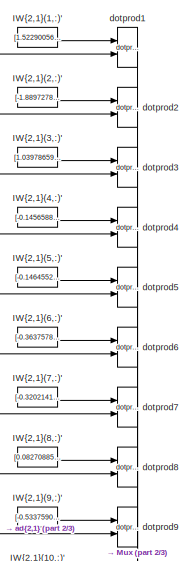
[diagram: controller1/optimized controller - pm/net_col_cd_1/Layer 2/LW{2,1} - part 1/3, top center region]
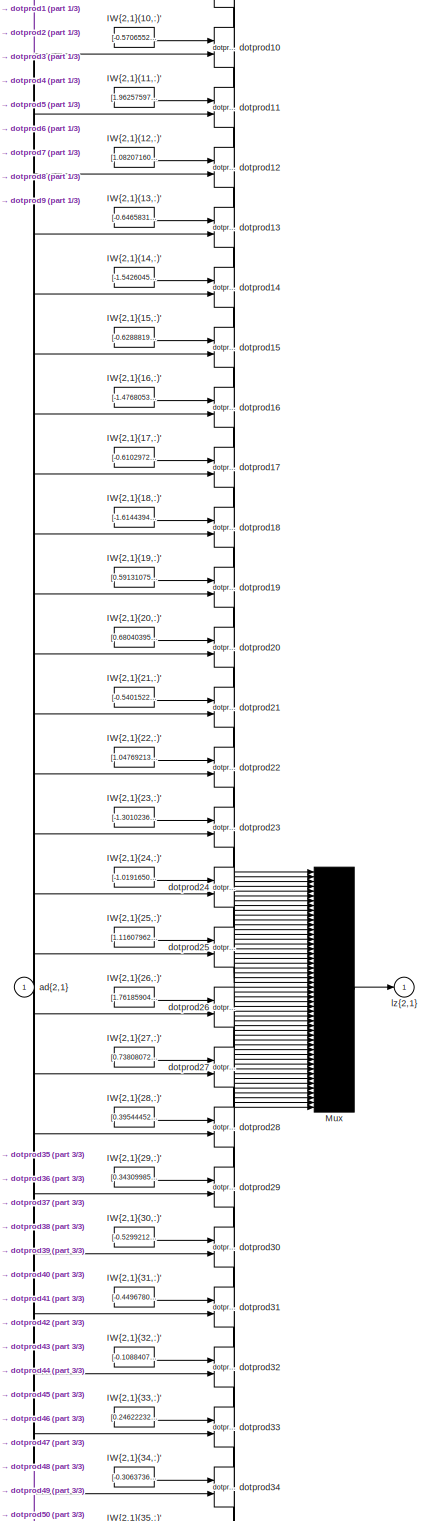
[diagram: controller1/optimized controller - pm/net_col_cd_1/Layer 2/LW{2,1} - part 2/3, full width, middle band]
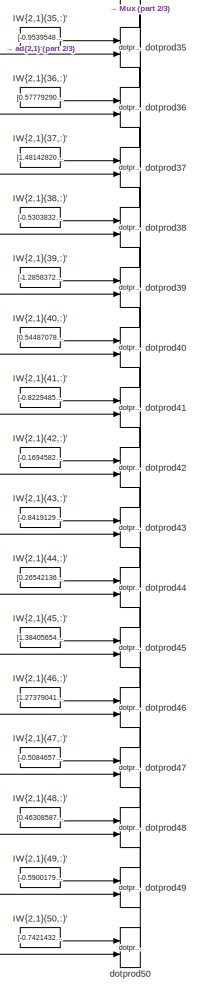
[diagram: controller1/optimized controller - pm/net_col_cd_1/Layer 2/LW{2,1} - part 3/3, bottom center region]
BLOCK [SubSystem] controller1/optimized controller - pm/net_col_cd_1/Layer 2/LW{2,1}
  FunctionWithSeparateData = off
  MaskHideContents = off
  MaskIconFrame = off
  MaskIconOpaque = on
  MaskIconRotate = none
  MaskIconUnits = autoscale
  MaskPortRotate = default
  MinAlgLoopOccurrences = off
  Opaque = off
  Ports = [1, 1]
  PropExecContextOutsideSubsystem = off
  RTWSystemCode = Auto
  RequestExecContextInheritance = off
  SID = 36418
BLOCK [Constant] controller1/optimized controller - pm/net_col_cd_1/Layer 2/LW{2,1}/IW{2,1}(1,:)'
  MaskDisplay = e = 0.06;c1 = [120 150 230]/255;c2 = ([120 150 230]+0)/383;c3 = ([120 150 230]+128)/383;patch([0 1 1 0],[0 0 1 1],c1);patch([0 1 1 1-e 1-e 0+e],[0 0 1 1-e 0+e 0+e],c2);patch([0 0 1 1-e 0+e 0+e],[0 1 1 1-e 1-e 0+e],c3);plot([0 1 1 0 0],[0 0 1 1 0]);disp('weights');  <repeated x153 — deduplicated; at blocks: IW{2,1}(1,:)', IW{2,1}(10,:)', IW{2,1}(11,:)', IW{2,1}(12,:)', IW{2,1}(13,:)', IW{2,1}(14,:)', IW{2,1}(15,:)', IW{2,1}(16,:)', IW{2,1}(17,:)', IW{2,1}(18,:)', IW{2,1}(19,:)', IW{2,1}(2,:)', IW{2,1}(20,:)', IW{2,1}(21,:)', IW{2,1}(22,:)', IW{2,1}(23,:)', +35 more>
  MaskIconFrame = off
  MaskIconOpaque = on
  MaskIconRotate = none
  MaskIconUnits = autoscale
  MaskPortRotate = default
  SID = 36420
  Value = [1.5229005659203154;0.25849956362354709;-1.1998545034226373;0.56426356809827394;0.083493834390585747;1.2807537244492453;-0.39706495125009933;1.8790385346170262;0.8461902818615985;0.24102795255905549;1.3819958918360271;1.6625343143289397;1.2338292025038173;1.3298457818073446;0.66014544171240819;0.66851357658277766;1.0149663864687022;-0.19199653331224162;0.7995313739168336;0.016653912439449282;-1.48...<+603ch>
BLOCK [Constant] controller1/optimized controller - pm/net_col_cd_1/Layer 2/LW{2,1}/IW{2,1}(10,:)'
  MaskIconFrame = off
  MaskIconOpaque = on
  MaskIconRotate = none
  MaskIconUnits = autoscale
  MaskPortRotate = default
  SID = 36421
  Value = [-0.57065521372366246;-0.67195873593436073;0.81971866688374839;1.6147009363749671;-0.70049800195602707;-0.83056660085945211;1.9208551381278511;0.77467134525620396;3.2355341331559013;-0.72758614469786886;0.31317100454650271;-0.22237304404584132;1.496121237620055;1.87619035711315;1.9990829425107011;-1.2687114354534401;-0.2736948774948888;-0.25971853245105558;0.56456742972878748;0.058564506461030036;...<+608ch>
BLOCK [Constant] controller1/optimized controller - pm/net_col_cd_1/Layer 2/LW{2,1}/IW{2,1}(11,:)'
  MaskIconFrame = off
  MaskIconOpaque = on
  MaskIconRotate = none
  MaskIconUnits = autoscale
  MaskPortRotate = default
  SID = 36422
  Value = [1.9625759717731031;1.1000352452252129;-1.2281361129169655;1.0427395010527811;0.17754537691294001;-1.1600343677484892;0.13664920908157061;0.13606794753018106;-1.3351201991775468;1.4712504640506228;-0.29463006138502185;-1.3780288558303775;-1.3990219553515448;-0.16467353760972778;-1.644847581004679;2.8280937178528771;1.2616502933549034;0.89206782284097796;-1.145295053989247;-0.17161352833956564;1.76...<+606ch>
BLOCK [Constant] controller1/optimized controller - pm/net_col_cd_1/Layer 2/LW{2,1}/IW{2,1}(12,:)'
  MaskIconFrame = off
  MaskIconOpaque = on
  MaskIconRotate = none
  MaskIconUnits = autoscale
  MaskPortRotate = default
  SID = 36423
  Value = [1.0820716046140384;-0.83361774999334659;-0.80243461421634343;-0.2380166848648711;2.0801132276883991;1.7675206765885025;-0.21686901402656877;-0.95279831318026464;2.0122985327436962;-0.24809881808702478;-1.007587130899958;-0.29361937784190856;-0.58313311005425283;-0.18198592305521064;0.79305512662264377;1.2118835853857917;-0.94223567447732037;2.9491030097738502;-0.87318289115836234;1.84912630703099...<+601ch>
BLOCK [Constant] controller1/optimized controller - pm/net_col_cd_1/Layer 2/LW{2,1}/IW{2,1}(13,:)'
  MaskIconFrame = off
  MaskIconOpaque = on
  MaskIconRotate = none
  MaskIconUnits = autoscale
  MaskPortRotate = default
  SID = 36424
  Value = [-0.6465831962130022;-0.98515021585877627;-1.1034340041434407;0.36915861073294204;-0.50639814814881734;-0.15962581565539186;0.11209733892571858;-0.70361328311492599;0.28680211270425054;1.2905725345271895;-0.90306199490453998;1.2874113108944796;-1.0789443728885177;0.71706401225129812;0.75045331145307947;-0.81404392148929761;-1.308502661016167;-1.4251413017737191;0.85541964473915277;1.04868608919939...<+611ch>
BLOCK [Constant] controller1/optimized controller - pm/net_col_cd_1/Layer 2/LW{2,1}/IW{2,1}(14,:)'
  MaskIconFrame = off
  MaskIconOpaque = on
  MaskIconRotate = none
  MaskIconUnits = autoscale
  MaskPortRotate = default
  SID = 36425
  Value = [-1.5426045019082324;-1.8675166890970951;-1.3802853280441916;-0.24303981483394735;-0.54890991434172676;1.5377676546163657;0.55485667140913142;1.5294706828140505;-1.2257451359543508;0.82510111969585398;0.13281544106687163;-1.1112169950964637;1.1767944323269355;0.59510047125850318;-1.6258093768136108;0.42816058055796102;2.1069385864359149;-1.8291004536056452;-0.89135423438501959;-0.92328105573817953...<+600ch>
BLOCK [Constant] controller1/optimized controller - pm/net_col_cd_1/Layer 2/LW{2,1}/IW{2,1}(15,:)'
  MaskIconFrame = off
  MaskIconOpaque = on
  MaskIconRotate = none
  MaskIconUnits = autoscale
  MaskPortRotate = default
  SID = 36426
  Value = [-0.62888191516002145;1.0082545459125749;-0.12222204816565457;-1.0702385531683454;-0.30872959108857134;0.76589038516520447;0.56875554672123718;0.59196264746656402;-0.36204012253556017;0.39349718425965596;-1.1062889229004311;0.060331236798354552;-0.93429792729076666;-1.4834937665542516;-0.98852598021894711;0.1646562544241901;-1.733639177748957;1.8868840562352929;-0.57214148929926545;-0.093405319071...<+608ch>
BLOCK [Constant] controller1/optimized controller - pm/net_col_cd_1/Layer 2/LW{2,1}/IW{2,1}(16,:)'
  MaskIconFrame = off
  MaskIconOpaque = on
  MaskIconRotate = none
  MaskIconUnits = autoscale
  MaskPortRotate = default
  SID = 36427
  Value = [-1.4768053089338833;0.62615829672073398;0.70879532217763364;-0.84954088793436788;-0.17225015910974981;-0.46205031277041853;-0.69401869669635485;1.0123074651040829;0.9698601122692575;1.2921957423174473;0.85454877550526442;0.77861312368393032;1.2836804550611052;1.5640986248676021;-1.2604737121343392;0.015645381706514569;1.064728855684782;1.0205236228620822;0.44527835724418158;-1.144955717597173;0.8...<+594ch>
BLOCK [Constant] controller1/optimized controller - pm/net_col_cd_1/Layer 2/LW{2,1}/IW{2,1}(17,:)'
  MaskIconFrame = off
  MaskIconOpaque = on
  MaskIconRotate = none
  MaskIconUnits = autoscale
  MaskPortRotate = default
  SID = 36428
  Value = [-0.61029724016459785;1.2634129660293549;0.872613544248245;-0.35232484665195185;1.4749458039117176;-0.72920444033227905;-1.023338267290729;-0.72125575052223645;1.0322153726168708;1.7374235589386471;-0.92271412882766757;0.81075617297481084;1.1817899708128916;-0.33178210282115833;1.6119038305546507;0.44506981898254927;0.61370711668860456;1.1251575583348929;2.0575122427220074;1.3375465709152277;-0.02...<+606ch>
BLOCK [Constant] controller1/optimized controller - pm/net_col_cd_1/Layer 2/LW{2,1}/IW{2,1}(18,:)'
  MaskIconFrame = off
  MaskIconOpaque = on
  MaskIconRotate = none
  MaskIconUnits = autoscale
  MaskPortRotate = default
  SID = 36429
  Value = [-1.6144394042865091;1.3760926385292989;1.3663499458684494;-0.20922796402864263;0.1317043100391535;-0.28745205562102627;0.8255227236107836;-0.22689709083809409;-0.7439831794756675;-1.2243589617611403;-0.004997939720614018;-0.23215761732101128;1.3053892437967614;-1.7754524530896556;-0.24842374516851032;0.88161138534259209;0.40091522260689294;0.36172361874593978;-0.41714287166317604;-1.0763501213467...<+597ch>
BLOCK [Constant] controller1/optimized controller - pm/net_col_cd_1/Layer 2/LW{2,1}/IW{2,1}(19,:)'
  MaskIconFrame = off
  MaskIconOpaque = on
  MaskIconRotate = none
  MaskIconUnits = autoscale
  MaskPortRotate = default
  SID = 36430
  Value = [0.5913107535854063;0.19495730985724077;0.96690774397937829;1.2066886255474267;-1.1454072736593452;-0.3418909337199551;-0.31388167028033387;-0.56756109531170174;0.54443473947852372;-0.10241978812699298;1.2115258766606312;0.33154416532835757;1.6421653661199616;-0.10682838663779494;1.745229133093454;1.085495199355083;-0.25153938555591476;1.0542957601449949;-0.9716126127180138;0.38017221081486247;1.6...<+603ch>
BLOCK [Constant] controller1/optimized controller - pm/net_col_cd_1/Layer 2/LW{2,1}/IW{2,1}(2,:)'
  MaskIconFrame = off
  MaskIconOpaque = on
  MaskIconRotate = none
  MaskIconUnits = autoscale
  MaskPortRotate = default
  SID = 36431
  Value = [-1.889727891028498;-1.5198094126287218;-0.58105942170475777;-0.33420391032058377;-0.71837727908542481;0.67407472856815798;-0.55945341630021894;-0.94155364542784992;1.6191481124082638;-0.77778006479582118;-0.31867503716413881;1.2597024304274465;2.7482043044253528;-2.112345475633024;1.3562232076345162;-2.0374651650518607;-1.0466729108431727;-0.21028527279751821;-1.1625826435975843;-1.40581285032809...<+605ch>
BLOCK [Constant] controller1/optimized controller - pm/net_col_cd_1/Layer 2/LW{2,1}/IW{2,1}(20,:)'
  MaskIconFrame = off
  MaskIconOpaque = on
  MaskIconRotate = none
  MaskIconUnits = autoscale
  MaskPortRotate = default
  SID = 36432
  Value = [0.68040395217728089;-0.59744618250135528;-0.2726330394862409;0.86680236872220995;0.89623308642664989;1.3638897083874701;0.64528876152494563;-0.21597080537139104;1.2570185764306827;0.18673496746065027;-0.99007773359464502;0.30904648874154556;0.70795003539212087;0.23794577467284372;-0.81988138186473558;0.76370556630699915;1.999639708736678;-1.4406290727590831;-0.76277293869725948;0.3360809718271331...<+599ch>
BLOCK [Constant] controller1/optimized controller - pm/net_col_cd_1/Layer 2/LW{2,1}/IW{2,1}(21,:)'
  MaskIconFrame = off
  MaskIconOpaque = on
  MaskIconRotate = none
  MaskIconUnits = autoscale
  MaskPortRotate = default
  SID = 36433
  Value = [-0.54015222099062354;-0.84320812282505631;1.6801257151123992;0.80891965982376479;0.9005615442020618;-0.84109520268921356;0.28270669665827397;1.3261688680646213;-0.34488702999998871;0.69327305221614366;-1.3742866916963805;1.4198489231806271;-0.84453962735713139;0.53916175062122762;-0.40827370835482529;0.22497029292550413;-0.10151075003702205;0.56786414313038935;0.73638010779389718;1.51865550433460...<+603ch>
BLOCK [Constant] controller1/optimized controller - pm/net_col_cd_1/Layer 2/LW{2,1}/IW{2,1}(22,:)'
  MaskIconFrame = off
  MaskIconOpaque = on
  MaskIconRotate = none
  MaskIconUnits = autoscale
  MaskPortRotate = default
  SID = 36434
  Value = [1.0476921388259173;-2.1064116012335941;-1.4128520763457069;0.16990235687987637;-1.300687617021461;-1.8963763434253889;-1.0723789212660189;0.90802330548523058;0.35245895940327249;-0.28017978504175511;-1.7446666755036999;0.75845106201601487;-0.50523455748698842;-0.74831203524911327;0.0051957831265070035;1.4200146388334238;0.4753889511356757;1.2001165590417542;-0.73099319052176948;-0.853566649622911...<+607ch>
BLOCK [Constant] controller1/optimized controller - pm/net_col_cd_1/Layer 2/LW{2,1}/IW{2,1}(23,:)'
  MaskIconFrame = off
  MaskIconOpaque = on
  MaskIconRotate = none
  MaskIconUnits = autoscale
  MaskPortRotate = default
  SID = 36435
  Value = [-1.3010236528254815;-0.89821672354112758;-0.6051134063863185;0.38128151804988086;1.2879726248846943;0.56578746759501264;0.46230627276874836;-1.1030546680226272;-0.061309262470116407;-0.47723551865292019;-1.3643274209948368;-1.6135697704551748;1.0747790881783688;1.5692876847763848;-0.77116401408901925;-0.32141408693432988;-0.32340754749390982;0.013169735729878302;1.0340209644996698;0.6893403306633...<+608ch>
BLOCK [Constant] controller1/optimized controller - pm/net_col_cd_1/Layer 2/LW{2,1}/IW{2,1}(24,:)'
  MaskIconFrame = off
  MaskIconOpaque = on
  MaskIconRotate = none
  MaskIconUnits = autoscale
  MaskPortRotate = default
  SID = 36436
  Value = [-1.0191650403254777;-0.18442824177007838;-1.0187734162557995;-1.0465194692787074;-0.2931007464010979;-0.0712133320380271;-0.95947689001464942;-0.66556908446059737;-0.091778804577245021;-1.4524630813326234;-0.85832472253670311;-0.23001240550967128;0.95861664794587287;0.069359541492770224;-0.24489152018608554;-0.30811632064106159;-0.47232821161706906;-0.62593334396992995;-1.8410016781348213;-0.0185...<+610ch>
BLOCK [Constant] controller1/optimized controller - pm/net_col_cd_1/Layer 2/LW{2,1}/IW{2,1}(25,:)'
  MaskIconFrame = off
  MaskIconOpaque = on
  MaskIconRotate = none
  MaskIconUnits = autoscale
  MaskPortRotate = default
  SID = 36437
  Value = [1.1160796239034694;1.3230881604165283;-0.76214791590217579;1.6518104069248825;0.62657390353422915;-1.1927365335385207;0.20569401899449249;-0.052501892617874843;1.6483883950667362;1.7519184469753348;-0.93088970236188995;0.32526749475896011;0.57087320081412207;-1.4780133810795861;1.2369232693610015;1.9896821798472961;-0.84149024223807933;0.5502318901557679;1.0382229381106081;-1.3524796597130178;0.3...<+595ch>
BLOCK [Constant] controller1/optimized controller - pm/net_col_cd_1/Layer 2/LW{2,1}/IW{2,1}(26,:)'
  MaskIconFrame = off
  MaskIconOpaque = on
  MaskIconRotate = none
  MaskIconUnits = autoscale
  MaskPortRotate = default
  SID = 36438
  Value = [1.7618590490571777;-1.0745940070955413;-1.5549374200860788;-1.1497365941714028;-0.040856938074535491;-0.0021474343380562056;0.54401817469498437;0.53358393648746383;-1.7706419735058896;2.3546871886145113;-0.20935151774343658;-3.8158890646184624;-1.0778149352106987;-1.0835293103631021;-3.0857084151702319;-0.053449922152107129;-1.2757328924293672;-0.34864407198265213;-0.35012148257633191;-0.59481815...<+610ch>
BLOCK [Constant] controller1/optimized controller - pm/net_col_cd_1/Layer 2/LW{2,1}/IW{2,1}(27,:)'
  MaskIconFrame = off
  MaskIconOpaque = on
  MaskIconRotate = none
  MaskIconUnits = autoscale
  MaskPortRotate = default
  SID = 36439
  Value = [0.73808072653393497;-1.793004484898377;-0.74149909192145569;0.35966656892845961;1.2982437647210616;1.0551652538039726;-0.1683215567446491;-0.43019553970265656;1.4380382131933014;-1.0960815104330297;-0.39016191737731826;-0.96889987205407646;0.89539384498989127;-0.70833179523672618;-0.49208153201607491;0.96367531809371043;0.16828807805345408;0.66129388208425521;-0.1277082307913017;-0.59784081181323...<+600ch>
BLOCK [Constant] controller1/optimized controller - pm/net_col_cd_1/Layer 2/LW{2,1}/IW{2,1}(28,:)'
  MaskIconFrame = off
  MaskIconOpaque = on
  MaskIconRotate = none
  MaskIconUnits = autoscale
  MaskPortRotate = default
  SID = 36440
  Value = [0.39544452368323174;0.4639837686544882;-1.5487086684039717;0.56607648688876;-0.19680066740148044;-0.48172368156638667;-1.7000503949985586;0.30649605325757728;-0.44973420617008653;0.73858814470147105;0.96217273213849053;-0.090943662793714977;0.046670247760752979;-1.1439868930047759;2.6961162387378228;-0.87313195646582464;0.23893116319160085;-0.64255678695823248;-0.71609956957797205;-0.524680639110...<+612ch>
BLOCK [Constant] controller1/optimized controller - pm/net_col_cd_1/Layer 2/LW{2,1}/IW{2,1}(29,:)'
  MaskIconFrame = off
  MaskIconOpaque = on
  MaskIconRotate = none
  MaskIconUnits = autoscale
  MaskPortRotate = default
  SID = 36441
  Value = [0.34309985142397753;-0.77894140852586169;-0.0014020363491452116;1.2135193632644483;0.3796572897388667;1.0046594981988981;-0.84855306703059885;-1.9696226377164174;0.70380239897839414;-0.86897226515680681;-0.78913494088037173;1.0774992838040414;0.91671528837207172;-4.043897662454758;-0.56806788473045489;2.011026621459477;0.95824889228043097;1.3896203026065064;0.43187368479608995;2.3376101497897781;...<+591ch>
BLOCK [Constant] controller1/optimized controller - pm/net_col_cd_1/Layer 2/LW{2,1}/IW{2,1}(3,:)'
  MaskIconFrame = off
  MaskIconOpaque = on
  MaskIconRotate = none
  MaskIconUnits = autoscale
  MaskPortRotate = default
  SID = 36442
  Value = [1.0397865936090098;-0.20102919659799032;0.080995043756511093;1.2136223319407868;0.86997071882227139;-0.17432828429454039;-1.3125514459305563;0.31769048459152927;0.57595812584596451;-1.0848688274010554;0.70328524891248279;1.1136314038167234;-0.2982134812340404;-0.25393605052020579;0.80753204529869194;-0.45414826512967543;1.4735760154271305;-0.56814956868046296;2.2633645491838434;-0.066717749286429...<+606ch>
BLOCK [Constant] controller1/optimized controller - pm/net_col_cd_1/Layer 2/LW{2,1}/IW{2,1}(30,:)'
  MaskIconFrame = off
  MaskIconOpaque = on
  MaskIconRotate = none
  MaskIconUnits = autoscale
  MaskPortRotate = default
  SID = 36443
  Value = [-0.52992122203040581;-1.6287926350682149;-1.5327469159420501;0.93582973599535402;-1.9014336303785135;0.091344288246025251;1.1155945591455316;1.3546063349193842;-0.84935567563121961;-0.81772207295774113;1.2986562674663613;1.5740379845867352;0.73172207511249199;0.10397819340023089;1.7313987955752153;-0.61045783447769786;0.91917063614714967;-1.229140284189614;-1.5592028227272885;0.98073199232534691;...<+603ch>
BLOCK [Constant] controller1/optimized controller - pm/net_col_cd_1/Layer 2/LW{2,1}/IW{2,1}(31,:)'
  MaskIconFrame = off
  MaskIconOpaque = on
  MaskIconRotate = none
  MaskIconUnits = autoscale
  MaskPortRotate = default
  SID = 36444
  Value = [-0.4496780919814507;-1.1075025011506854;-0.14507390062479372;0.39051402700943832;-1.0578310596304912;1.2626286534580915;1.3985461737547713;-0.6329506240229833;0.37386589580501006;-0.01462796168135462;0.89119982574539824;0.037807291872820656;-0.95775890468283331;1.178942898529967;-1.8549999746125436;0.8076284370049126;-0.44727449556847892;-0.32032366818223851;-1.5934351702307756;0.2311598305209098...<+604ch>
BLOCK [Constant] controller1/optimized controller - pm/net_col_cd_1/Layer 2/LW{2,1}/IW{2,1}(32,:)'
  MaskIconFrame = off
  MaskIconOpaque = on
  MaskIconRotate = none
  MaskIconUnits = autoscale
  MaskPortRotate = default
  SID = 36445
  Value = [-0.10884076287235217;-1.2855877757559901;-0.037971434495900985;-0.71723119666558177;-0.18697260980763047;0.20323244661423179;-0.13457970411562672;-0.30884276796743076;-1.4725109862029426;0.81652704058597958;-1.2887782009407058;0.3381080707921687;-0.86804514481202555;0.31452351681126384;0.23586785575761363;0.75089426170844875;-0.45443573209653287;-0.83175142188218698;-1.7309778350528953;0.40538665...<+606ch>
BLOCK [Constant] controller1/optimized controller - pm/net_col_cd_1/Layer 2/LW{2,1}/IW{2,1}(33,:)'
  MaskIconFrame = off
  MaskIconOpaque = on
  MaskIconRotate = none
  MaskIconUnits = autoscale
  MaskPortRotate = default
  SID = 36446
  Value = [0.24622232337070199;-0.20162254213555764;1.3116621641630122;-0.10344852826355215;-1.8362043042092184;1.1493138950926829;0.040358157484742321;-0.12310375515247206;1.5858942756402206;-0.18030390344331246;0.27742814965010437;-0.41018277862951202;1.2217199559623413;-0.61191284481112329;0.063869339312154577;0.45181701062737584;0.41295417955370306;-0.11056811032511385;-0.17350256480740775;-1.1392086540...<+598ch>
BLOCK [Constant] controller1/optimized controller - pm/net_col_cd_1/Layer 2/LW{2,1}/IW{2,1}(34,:)'
  MaskIconFrame = off
  MaskIconOpaque = on
  MaskIconRotate = none
  MaskIconUnits = autoscale
  MaskPortRotate = default
  SID = 36447
  Value = [-0.30637365577106446;2.1955512363767977;1.7409787571298594;0.59502878099736189;0.34951775749550801;0.51267121715387465;-0.2455714773338088;-1.4231254831572104;0.59009631324932754;1.6607819921040834;2.596716300451495;-1.0012586486478601;2.078752148754679;-1.0823674845991251;-1.1510236058217269;-0.96753085983479148;0.25077856472966781;-3.2069811777107797;1.1678995726406602;-2.7407256770607789;0.008...<+595ch>
BLOCK [Constant] controller1/optimized controller - pm/net_col_cd_1/Layer 2/LW{2,1}/IW{2,1}(35,:)'
  MaskIconFrame = off
  MaskIconOpaque = on
  MaskIconRotate = none
  MaskIconUnits = autoscale
  MaskPortRotate = default
  SID = 36448
  Value = [-0.95395483644381462;1.2609737545201885;-0.46920268573964002;0.59883882535642774;1.0064669743291568;0.99373266478822952;0.21063791701355208;1.5647809396102659;1.1470992303523544;1.0624978719229803;-0.29831723890155265;-0.94935902771749903;1.4102357138924626;1.1117960469001487;1.6405680357101342;-0.97370898287505636;0.15176638360329187;-0.46631929284496715;1.4839843360467986;0.38670102827379838;-0...<+606ch>
BLOCK [Constant] controller1/optimized controller - pm/net_col_cd_1/Layer 2/LW{2,1}/IW{2,1}(36,:)'
  MaskIconFrame = off
  MaskIconOpaque = on
  MaskIconRotate = none
  MaskIconUnits = autoscale
  MaskPortRotate = default
  SID = 36449
  Value = [0.57779290039792075;-0.68968829040320112;-0.12128383659896816;-0.33417296282940279;0.91725082312037887;-0.36781986664554422;-0.0028458596364605779;1.6735078399245211;1.2010076522227062;0.10844493620211915;1.2150255698676555;0.95446610620143657;-0.3659282443123667;-0.60613262804185486;-1.3464632212206513;0.075934547085507079;-0.17411640262280656;1.3917168598487442;0.3928040328528018;0.613044175552...<+607ch>
BLOCK [Constant] controller1/optimized controller - pm/net_col_cd_1/Layer 2/LW{2,1}/IW{2,1}(37,:)'
  MaskIconFrame = off
  MaskIconOpaque = on
  MaskIconRotate = none
  MaskIconUnits = autoscale
  MaskPortRotate = default
  SID = 36450
  Value = [1.4814282075856715;0.53019556565641313;1.6220297692924617;-1.3429136783716251;0.90943152290603602;-0.057244031846013906;-0.71692012855738541;-1.1082752139539025;1.376805762720416;0.29000528047974544;0.57926673680898677;-0.67688704613274353;0.68078465211034955;0.17529935308091568;0.843956478389013;1.1995583407305821;-0.42541163813059596;-1.0327382346411538;-0.65585040742405087;-1.4586715928538605;...<+599ch>
BLOCK [Constant] controller1/optimized controller - pm/net_col_cd_1/Layer 2/LW{2,1}/IW{2,1}(38,:)'
  MaskIconFrame = off
  MaskIconOpaque = on
  MaskIconRotate = none
  MaskIconUnits = autoscale
  MaskPortRotate = default
  SID = 36451
  Value = [-0.53038327395737328;-1.9075497305686815;0.65722184299206066;-0.12097424279590795;1.1935774688091934;0.082735196390107624;0.083686791795099899;-0.037301194017062;0.56732478770266737;-2.6865641686175956;1.7168005652858687;-0.96106188127906189;1.3642504971110911;-2.1264684680560837;3.4935288750514948;1.2374868574217608;0.48071964989629734;-1.4461441267864281;0.11720140441935253;0.83532231673898705;...<+589ch>
BLOCK [Constant] controller1/optimized controller - pm/net_col_cd_1/Layer 2/LW{2,1}/IW{2,1}(39,:)'
  MaskIconFrame = off
  MaskIconOpaque = on
  MaskIconRotate = none
  MaskIconUnits = autoscale
  MaskPortRotate = default
  SID = 36452
  Value = [-1.2858372726999399;-0.96201202497351768;0.70788885252896205;1.079955100435535;2.180292216499506;1.8809964871473295;-0.89755113854405466;-0.53309071992177326;0.60931492307100732;1.2632911085113052;-0.076417275882768268;-0.916586359334703;-0.99133264151593536;1.6834836263296913;-1.6277371541725438;-0.84855280026367863;0.51687574318457119;-2.3619046044328216;-1.0151510222576134;-0.81867822589500161...<+604ch>
BLOCK [Constant] controller1/optimized controller - pm/net_col_cd_1/Layer 2/LW{2,1}/IW{2,1}(4,:)'
  MaskIconFrame = off
  MaskIconOpaque = on
  MaskIconRotate = none
  MaskIconUnits = autoscale
  MaskPortRotate = default
  SID = 36453
  Value = [-0.14565884271301055;1.1012938633169707;0.75032865603496723;-0.072440833359942433;-0.22805058559183136;1.1797407868510088;0.012729980718393185;1.2724042551879451;0.88439859843009982;0.75821434313990432;1.2647834923080594;-1.3462131829838175;-1.0426150525249276;-0.91216006384643922;0.55238493312020065;-0.71911741170114762;0.67641564189048053;1.3233170452109633;-0.4830374960189649;0.166399021689645...<+611ch>
BLOCK [Constant] controller1/optimized controller - pm/net_col_cd_1/Layer 2/LW{2,1}/IW{2,1}(40,:)'
  MaskIconFrame = off
  MaskIconOpaque = on
  MaskIconRotate = none
  MaskIconUnits = autoscale
  MaskPortRotate = default
  SID = 36454
  Value = [0.54487078703646419;-0.34923702714841193;-0.119576495911443;0.24240195192968081;-0.60170399670158303;-1.3383399659542161;1.3932415429306872;-1.3920102193088058;-0.46553694029432979;-1.4861857270040533;-0.84832452350597543;-1.3949332860639601;-0.78786318715748649;-1.653932466942676;0.85182076968065512;-0.92331787668644971;-0.15549465845320662;-1.1647625502540693;-0.56015416330684342;0.986751632279...<+605ch>
BLOCK [Constant] controller1/optimized controller - pm/net_col_cd_1/Layer 2/LW{2,1}/IW{2,1}(41,:)'
  MaskIconFrame = off
  MaskIconOpaque = on
  MaskIconRotate = none
  MaskIconUnits = autoscale
  MaskPortRotate = default
  SID = 36455
  Value = [-0.82294851397927649;-1.0169124632105471;-1.4872772398215703;1.2547079856121912;0.11268243992236213;-1.4220434227778445;1.9324374607500223;0.92279492226287674;0.68230853446510908;-1.34262202174669;1.9312396443906725;0.24004710565917731;1.1635062316507048;-1.5523973536229816;-0.99453632745886078;-0.95221475002693923;0.7126307116632612;-0.44789841899139149;0.59010164698064227;-1.0567790138458277;-1...<+596ch>
BLOCK [Constant] controller1/optimized controller - pm/net_col_cd_1/Layer 2/LW{2,1}/IW{2,1}(42,:)'
  MaskIconFrame = off
  MaskIconOpaque = on
  MaskIconRotate = none
  MaskIconUnits = autoscale
  MaskPortRotate = default
  SID = 36456
  Value = [-0.16945823803794646;2.1924842724294229;-0.86828960033383784;-1.6607335112635804;0.15963967720000746;0.34492706218745267;-0.10939015921327985;-0.44272382187316889;-0.59139166189305958;1.1030416917468888;-0.29115127199630275;1.32615950434622;2.6683168755393583;2.3984102926170503;-3.0070029713078039;-1.1349379432865854;-3.7473685700232333;2.373277354737787;0.66142632690712955;-4.1297036127668463;2....<+600ch>
BLOCK [Constant] controller1/optimized controller - pm/net_col_cd_1/Layer 2/LW{2,1}/IW{2,1}(43,:)'
  MaskIconFrame = off
  MaskIconOpaque = on
  MaskIconRotate = none
  MaskIconUnits = autoscale
  MaskPortRotate = default
  SID = 36457
  Value = [-0.84191293915394494;0.95339880711621616;-0.19534900244841885;-0.87822469900279743;0.86012158668537486;-0.99459356069012328;0.13598415567357852;-0.24227921758817364;0.49783872346813557;-0.74243095097039458;2.240077678611327;-0.28350807895028401;2.2382185949284286;-1.3598945416347126;0.7794610007681948;-1.625659457082604;-0.74667374875594472;0.079768542028702316;1.070899176329575;-1.19519454313153...<+611ch>
BLOCK [Constant] controller1/optimized controller - pm/net_col_cd_1/Layer 2/LW{2,1}/IW{2,1}(44,:)'
  MaskIconFrame = off
  MaskIconOpaque = on
  MaskIconRotate = none
  MaskIconUnits = autoscale
  MaskPortRotate = default
  SID = 36458
  Value = [0.26542136045127163;-2.5736206378096904;-1.8291210686258419;-0.46419735616961622;0.84591793160291417;-1.3320504857045163;-1.0674279134846119;-0.011526083620957715;2.414621746623304;-0.36056097689825994;1.799683569876974;-1.2903928525689758;-1.5948300692802628;-1.1292467070862615;-0.41881836028145003;-0.31869147596112052;-0.019035853537391553;-0.71325142991469592;-0.0028084315983997153;0.138776424...<+610ch>
BLOCK [Constant] controller1/optimized controller - pm/net_col_cd_1/Layer 2/LW{2,1}/IW{2,1}(45,:)'
  MaskIconFrame = off
  MaskIconOpaque = on
  MaskIconRotate = none
  MaskIconUnits = autoscale
  MaskPortRotate = default
  SID = 36459
  Value = [1.3840565428178233;1.2409507856515003;0.85206650814916274;0.47358191492948748;-0.15968452195283356;-1.0352688702448862;-0.56240197005369674;-0.53276887686647967;-1.0642800239807892;0.035864539782894396;1.2084470649305119;-0.11030588776160882;0.41670141598452393;-0.65400666719628675;0.078429892788485042;1.5484019724227958;-1.3023854058580109;-0.80812374809462628;1.172001475967418;0.085076006736896...<+610ch>
BLOCK [Constant] controller1/optimized controller - pm/net_col_cd_1/Layer 2/LW{2,1}/IW{2,1}(46,:)'
  MaskIconFrame = off
  MaskIconOpaque = on
  MaskIconRotate = none
  MaskIconUnits = autoscale
  MaskPortRotate = default
  SID = 36460
  Value = [1.273790413298564;1.4316800504179807;-0.042113356831461876;-0.59589039019243584;0.18850484166104992;-1.814710195735707;-1.6107859418234323;0.49523606508935009;-0.7043739496057656;0.83908505992837312;-1.2597099067150199;-0.021564735246227731;-1.3396841484362663;-0.67271318227149468;-0.23789730851889002;1.379639904486339;-1.1714477572975357;0.64212887117873252;-0.86577603347866938;-1.10957155528724...<+605ch>
BLOCK [Constant] controller1/optimized controller - pm/net_col_cd_1/Layer 2/LW{2,1}/IW{2,1}(47,:)'
  MaskIconFrame = off
  MaskIconOpaque = on
  MaskIconRotate = none
  MaskIconUnits = autoscale
  MaskPortRotate = default
  SID = 36461
  Value = [-0.50846579489485644;-0.67455119376979389;-0.24923236543728949;-0.36947671229843154;0.85872028963532776;2.0822219716829533;-0.89257987997371369;-0.49994637758596705;0.93476741529937279;1.0087055699032099;2.2618639333649813;1.958072413801256;1.0098581206510091;2.0943793893757201;-0.64124499050690908;-0.94822764393715442;0.54727941018089277;-0.54533198035300168;0.4874599134144269;-1.767916091688499...<+606ch>
BLOCK [Constant] controller1/optimized controller - pm/net_col_cd_1/Layer 2/LW{2,1}/IW{2,1}(48,:)'
  MaskIconFrame = off
  MaskIconOpaque = on
  MaskIconRotate = none
  MaskIconUnits = autoscale
  MaskPortRotate = default
  SID = 36462
  Value = [0.46308587754065161;-0.041472965909654907;0.90369421962749252;-1.0141621973350921;-0.94055380439818481;-1.3845893322362937;0.18718031910870833;-1.0254025452639657;-0.58945909211807657;-1.8551594301154033;1.8516993462381155;-0.80947224320530486;1.1871571048468672;0.35219854883578716;-0.25679083076601605;-1.2612342281203632;-1.5942262870180972;-0.4897080344964469;0.52134930576319194;0.5257411110096...<+598ch>
BLOCK [Constant] controller1/optimized controller - pm/net_col_cd_1/Layer 2/LW{2,1}/IW{2,1}(49,:)'
  MaskIconFrame = off
  MaskIconOpaque = on
  MaskIconRotate = none
  MaskIconUnits = autoscale
  MaskPortRotate = default
  SID = 36463
  Value = [-0.59001791718682894;-0.02930510913373632;1.3362678377864574;0.56080561262710749;-0.52199320197511812;0.86596093365561599;0.13005074439285605;-1.3250769036013523;0.71774229596680328;-1.1351335131724665;-0.2853887736401105;0.44378083773518284;-0.39452669866801832;-1.2825735102883875;-0.063171542331001404;1.1124502428971659;0.12233125924380296;-1.3018150052008728;-1.0501798683859909;-0.764945392795...<+609ch>
BLOCK [Constant] controller1/optimized controller - pm/net_col_cd_1/Layer 2/LW{2,1}/IW{2,1}(5,:)'
  MaskIconFrame = off
  MaskIconOpaque = on
  MaskIconRotate = none
  MaskIconUnits = autoscale
  MaskPortRotate = default
  SID = 36464
  Value = [-0.14645526609448137;0.7237631975029104;1.5365840395685002;0.34284321012179003;-0.80100919139977433;-0.38575819379239257;-0.90948091628828731;-0.024117555376844294;1.2112410221823304;0.48465420869914411;-0.92298475850944395;-0.56650846036922975;0.82998978117978706;-0.83561964739223071;0.58081915131802675;1.4397190634108965;0.068663933289333706;-0.12954914820736155;0.77520506337495865;0.0410291951...<+614ch>
BLOCK [Constant] controller1/optimized controller - pm/net_col_cd_1/Layer 2/LW{2,1}/IW{2,1}(50,:)'
  MaskIconFrame = off
  MaskIconOpaque = on
  MaskIconRotate = none
  MaskIconUnits = autoscale
  MaskPortRotate = default
  SID = 36465
  Value = [-0.74214321729811983;-0.58240171097450077;0.27719628947331998;0.41951476707712249;-0.38986299675812142;-0.062297624878384021;-2.7294143250896696;-1.5831755536281613;-1.1192563320903133;-0.31724212350663555;-1.217358961366356;0.11224202476868597;-1.1872313728936381;0.9654354450014585;-0.0094409065203273756;-1.125450446024072;-0.064249434562265964;0.012268810720336386;0.35946137059137295;-1.2415628...<+607ch>
BLOCK [Constant] controller1/optimized controller - pm/net_col_cd_1/Layer 2/LW{2,1}/IW{2,1}(6,:)'
  MaskIconFrame = off
  MaskIconOpaque = on
  MaskIconRotate = none
  MaskIconUnits = autoscale
  MaskPortRotate = default
  SID = 36466
  Value = [-0.36375783922919896;-0.26345746473935355;-0.65950274534553388;-0.52490954335983142;-1.2613027148551417;-0.25259624751478293;0.78185831057037181;0.57797378884259054;-0.92502892134919179;1.4238017940002943;0.13150819477476608;1.1384768887238013;-0.18853432909745962;-1.1370279206135521;0.71053654955234891;0.067676713230651803;1.0349835897777966;0.89903928291634772;-0.88943779347322005;1.11257514308...<+613ch>
BLOCK [Constant] controller1/optimized controller - pm/net_col_cd_1/Layer 2/LW{2,1}/IW{2,1}(7,:)'
  MaskIconFrame = off
  MaskIconOpaque = on
  MaskIconRotate = none
  MaskIconUnits = autoscale
  MaskPortRotate = default
  SID = 36467
  Value = [-0.32021415169034279;-0.44469901450325006;0.89251591523103413;-1.1523482239730667;-0.17656907661549054;1.1136437573162379;3.4156910740458439;0.026411197606745256;-2.30304117840467;1.3241254661751765;-1.7300160775609237;-0.24463488486838736;-0.17984986880629439;-1.525763324991805;-5.0310997810656044;0.29652718005623913;0.56034707149237406;1.9357998917472286;0.98858535813017023;-1.3947252288144154;...<+602ch>
BLOCK [Constant] controller1/optimized controller - pm/net_col_cd_1/Layer 2/LW{2,1}/IW{2,1}(8,:)'
  MaskIconFrame = off
  MaskIconOpaque = on
  MaskIconRotate = none
  MaskIconUnits = autoscale
  MaskPortRotate = default
  SID = 36468
  Value = [0.082708851505242903;-0.47222808510826059;0.87931204985496514;-0.23292892322052763;-0.9781778163371303;1.3897629722732001;1.3507298532770784;-0.63373682480687876;-1.1123023962977814;-1.6705627646686854;-0.36368431130953627;-0.1918542162547959;1.3074918234864277;0.17276188768226897;-0.49766497682909083;1.9441391958793832;0.87776641621940033;-0.23214731467991931;0.39388227602437009;-0.1256382267613...<+604ch>
BLOCK [Constant] controller1/optimized controller - pm/net_col_cd_1/Layer 2/LW{2,1}/IW{2,1}(9,:)'
  MaskIconFrame = off
  MaskIconOpaque = on
  MaskIconRotate = none
  MaskIconUnits = autoscale
  MaskPortRotate = default
  SID = 36469
  Value = [-0.5337590049912655;-0.6559859575741912;1.6090076164580547;0.66734947723335869;1.6254780477012991;1.12942929702496;-1.0730853230343176;0.85674720952259276;1.7485074066215094;0.12523334646621728;1.0290915633024245;2.400215078985855;-0.11158762630883423;0.76131351286206062;0.13787184459322432;0.09790679060617033;1.9952366558047301;-0.19553214983282208;0.72820765013631072;1.0321449043855626;-0.34863...<+587ch>
BLOCK [Mux] controller1/optimized controller - pm/net_col_cd_1/Layer 2/LW{2,1}/Mux
  Inputs = 50
  MaskIconFrame = off
  MaskIconOpaque = on
  MaskIconRotate = none
  MaskIconUnits = autoscale
  MaskPortRotate = default
  Ports = [50, 1]
  SID = 36470
BLOCK [Inport] controller1/optimized controller - pm/net_col_cd_1/Layer 2/LW{2,1}/ad{2,1}
  IconDisplay = Port number
  MaskIconFrame = off
  MaskIconOpaque = on
  MaskIconRotate = none
  MaskIconUnits = autoscale
  MaskPortRotate = default
  PortDimensions = 50
  SID = 36419
BLOCK [Reference] controller1/optimized controller - pm/net_col_cd_1/Layer 2/LW{2,1}/dotprod1  REF=neural/Weight Functions/dotprod
  FunctionWithSeparateData = off
  GeneratePreprocessorConditionals = off
  Ports = [2, 1]
  RTWMemSecDataConstants = Inherit from model
  RTWMemSecDataInternal = Inherit from model
  RTWMemSecDataParameters = Inherit from model
  RTWMemSecFuncExecute = Inherit from model
  RTWMemSecFuncInitTerm = Inherit from model
  SID = 36471
  ShowPortLabels = FromPortIcon
  SourceBlock = neural/Weight Functions/dotprod
  SourceType = DOTPROD
  SystemSampleTime = -1
BLOCK [Reference] controller1/optimized controller - pm/net_col_cd_1/Layer 2/LW{2,1}/dotprod10  REF=neural/Weight Functions/dotprod
  FunctionWithSeparateData = off
  GeneratePreprocessorConditionals = off
  Ports = [2, 1]
  RTWMemSecDataConstants = Inherit from model
  RTWMemSecDataInternal = Inherit from model
  RTWMemSecDataParameters = Inherit from model
  RTWMemSecFuncExecute = Inherit from model
  RTWMemSecFuncInitTerm = Inherit from model
  SID = 36472
  ShowPortLabels = FromPortIcon
  SourceBlock = neural/Weight Functions/dotprod
  SourceType = DOTPROD
  SystemSampleTime = -1
BLOCK [Reference] controller1/optimized controller - pm/net_col_cd_1/Layer 2/LW{2,1}/dotprod11  REF=neural/Weight Functions/dotprod
  FunctionWithSeparateData = off
  GeneratePreprocessorConditionals = off
  Ports = [2, 1]
  RTWMemSecDataConstants = Inherit from model
  RTWMemSecDataInternal = Inherit from model
  RTWMemSecDataParameters = Inherit from model
  RTWMemSecFuncExecute = Inherit from model
  RTWMemSecFuncInitTerm = Inherit from model
  SID = 36473
  ShowPortLabels = FromPortIcon
  SourceBlock = neural/Weight Functions/dotprod
  SourceType = DOTPROD
  SystemSampleTime = -1
BLOCK [Reference] controller1/optimized controller - pm/net_col_cd_1/Layer 2/LW{2,1}/dotprod12  REF=neural/Weight Functions/dotprod
  FunctionWithSeparateData = off
  GeneratePreprocessorConditionals = off
  Ports = [2, 1]
  RTWMemSecDataConstants = Inherit from model
  RTWMemSecDataInternal = Inherit from model
  RTWMemSecDataParameters = Inherit from model
  RTWMemSecFuncExecute = Inherit from model
  RTWMemSecFuncInitTerm = Inherit from model
  SID = 36474
  ShowPortLabels = FromPortIcon
  SourceBlock = neural/Weight Functions/dotprod
  SourceType = DOTPROD
  SystemSampleTime = -1
BLOCK [Reference] controller1/optimized controller - pm/net_col_cd_1/Layer 2/LW{2,1}/dotprod13  REF=neural/Weight Functions/dotprod
  FunctionWithSeparateData = off
  GeneratePreprocessorConditionals = off
  Ports = [2, 1]
  RTWMemSecDataConstants = Inherit from model
  RTWMemSecDataInternal = Inherit from model
  RTWMemSecDataParameters = Inherit from model
  RTWMemSecFuncExecute = Inherit from model
  RTWMemSecFuncInitTerm = Inherit from model
  SID = 36475
  ShowPortLabels = FromPortIcon
  SourceBlock = neural/Weight Functions/dotprod
  SourceType = DOTPROD
  SystemSampleTime = -1
BLOCK [Reference] controller1/optimized controller - pm/net_col_cd_1/Layer 2/LW{2,1}/dotprod14  REF=neural/Weight Functions/dotprod
  FunctionWithSeparateData = off
  GeneratePreprocessorConditionals = off
  Ports = [2, 1]
  RTWMemSecDataConstants = Inherit from model
  RTWMemSecDataInternal = Inherit from model
  RTWMemSecDataParameters = Inherit from model
  RTWMemSecFuncExecute = Inherit from model
  RTWMemSecFuncInitTerm = Inherit from model
  SID = 36476
  ShowPortLabels = FromPortIcon
  SourceBlock = neural/Weight Functions/dotprod
  SourceType = DOTPROD
  SystemSampleTime = -1
BLOCK [Reference] controller1/optimized controller - pm/net_col_cd_1/Layer 2/LW{2,1}/dotprod15  REF=neural/Weight Functions/dotprod
  FunctionWithSeparateData = off
  GeneratePreprocessorConditionals = off
  Ports = [2, 1]
  RTWMemSecDataConstants = Inherit from model
  RTWMemSecDataInternal = Inherit from model
  RTWMemSecDataParameters = Inherit from model
  RTWMemSecFuncExecute = Inherit from model
  RTWMemSecFuncInitTerm = Inherit from model
  SID = 36477
  ShowPortLabels = FromPortIcon
  SourceBlock = neural/Weight Functions/dotprod
  SourceType = DOTPROD
  SystemSampleTime = -1
BLOCK [Reference] controller1/optimized controller - pm/net_col_cd_1/Layer 2/LW{2,1}/dotprod16  REF=neural/Weight Functions/dotprod
  FunctionWithSeparateData = off
  GeneratePreprocessorConditionals = off
  Ports = [2, 1]
  RTWMemSecDataConstants = Inherit from model
  RTWMemSecDataInternal = Inherit from model
  RTWMemSecDataParameters = Inherit from model
  RTWMemSecFuncExecute = Inherit from model
  RTWMemSecFuncInitTerm = Inherit from model
  SID = 36478
  ShowPortLabels = FromPortIcon
  SourceBlock = neural/Weight Functions/dotprod
  SourceType = DOTPROD
  SystemSampleTime = -1
BLOCK [Reference] controller1/optimized controller - pm/net_col_cd_1/Layer 2/LW{2,1}/dotprod17  REF=neural/Weight Functions/dotprod
  FunctionWithSeparateData = off
  GeneratePreprocessorConditionals = off
  Ports = [2, 1]
  RTWMemSecDataConstants = Inherit from model
  RTWMemSecDataInternal = Inherit from model
  RTWMemSecDataParameters = Inherit from model
  RTWMemSecFuncExecute = Inherit from model
  RTWMemSecFuncInitTerm = Inherit from model
  SID = 36479
  ShowPortLabels = FromPortIcon
  SourceBlock = neural/Weight Functions/dotprod
  SourceType = DOTPROD
  SystemSampleTime = -1
BLOCK [Reference] controller1/optimized controller - pm/net_col_cd_1/Layer 2/LW{2,1}/dotprod18  REF=neural/Weight Functions/dotprod
  FunctionWithSeparateData = off
  GeneratePreprocessorConditionals = off
  Ports = [2, 1]
  RTWMemSecDataConstants = Inherit from model
  RTWMemSecDataInternal = Inherit from model
  RTWMemSecDataParameters = Inherit from model
  RTWMemSecFuncExecute = Inherit from model
  RTWMemSecFuncInitTerm = Inherit from model
  SID = 36480
  ShowPortLabels = FromPortIcon
  SourceBlock = neural/Weight Functions/dotprod
  SourceType = DOTPROD
  SystemSampleTime = -1
BLOCK [Reference] controller1/optimized controller - pm/net_col_cd_1/Layer 2/LW{2,1}/dotprod19  REF=neural/Weight Functions/dotprod
  FunctionWithSeparateData = off
  GeneratePreprocessorConditionals = off
  Ports = [2, 1]
  RTWMemSecDataConstants = Inherit from model
  RTWMemSecDataInternal = Inherit from model
  RTWMemSecDataParameters = Inherit from model
  RTWMemSecFuncExecute = Inherit from model
  RTWMemSecFuncInitTerm = Inherit from model
  SID = 36481
  ShowPortLabels = FromPortIcon
  SourceBlock = neural/Weight Functions/dotprod
  SourceType = DOTPROD
  SystemSampleTime = -1
BLOCK [Reference] controller1/optimized controller - pm/net_col_cd_1/Layer 2/LW{2,1}/dotprod2  REF=neural/Weight Functions/dotprod
  FunctionWithSeparateData = off
  GeneratePreprocessorConditionals = off
  Ports = [2, 1]
  RTWMemSecDataConstants = Inherit from model
  RTWMemSecDataInternal = Inherit from model
  RTWMemSecDataParameters = Inherit from model
  RTWMemSecFuncExecute = Inherit from model
  RTWMemSecFuncInitTerm = Inherit from model
  SID = 36482
  ShowPortLabels = FromPortIcon
  SourceBlock = neural/Weight Functions/dotprod
  SourceType = DOTPROD
  SystemSampleTime = -1
BLOCK [Reference] controller1/optimized controller - pm/net_col_cd_1/Layer 2/LW{2,1}/dotprod20  REF=neural/Weight Functions/dotprod
  FunctionWithSeparateData = off
  GeneratePreprocessorConditionals = off
  Ports = [2, 1]
  RTWMemSecDataConstants = Inherit from model
  RTWMemSecDataInternal = Inherit from model
  RTWMemSecDataParameters = Inherit from model
  RTWMemSecFuncExecute = Inherit from model
  RTWMemSecFuncInitTerm = Inherit from model
  SID = 36483
  ShowPortLabels = FromPortIcon
  SourceBlock = neural/Weight Functions/dotprod
  SourceType = DOTPROD
  SystemSampleTime = -1
BLOCK [Reference] controller1/optimized controller - pm/net_col_cd_1/Layer 2/LW{2,1}/dotprod21  REF=neural/Weight Functions/dotprod
  FunctionWithSeparateData = off
  GeneratePreprocessorConditionals = off
  Ports = [2, 1]
  RTWMemSecDataConstants = Inherit from model
  RTWMemSecDataInternal = Inherit from model
  RTWMemSecDataParameters = Inherit from model
  RTWMemSecFuncExecute = Inherit from model
  RTWMemSecFuncInitTerm = Inherit from model
  SID = 36484
  ShowPortLabels = FromPortIcon
  SourceBlock = neural/Weight Functions/dotprod
  SourceType = DOTPROD
  SystemSampleTime = -1
BLOCK [Reference] controller1/optimized controller - pm/net_col_cd_1/Layer 2/LW{2,1}/dotprod22  REF=neural/Weight Functions/dotprod
  FunctionWithSeparateData = off
  GeneratePreprocessorConditionals = off
  Ports = [2, 1]
  RTWMemSecDataConstants = Inherit from model
  RTWMemSecDataInternal = Inherit from model
  RTWMemSecDataParameters = Inherit from model
  RTWMemSecFuncExecute = Inherit from model
  RTWMemSecFuncInitTerm = Inherit from model
  SID = 36485
  ShowPortLabels = FromPortIcon
  SourceBlock = neural/Weight Functions/dotprod
  SourceType = DOTPROD
  SystemSampleTime = -1
BLOCK [Reference] controller1/optimized controller - pm/net_col_cd_1/Layer 2/LW{2,1}/dotprod23  REF=neural/Weight Functions/dotprod
  FunctionWithSeparateData = off
  GeneratePreprocessorConditionals = off
  Ports = [2, 1]
  RTWMemSecDataConstants = Inherit from model
  RTWMemSecDataInternal = Inherit from model
  RTWMemSecDataParameters = Inherit from model
  RTWMemSecFuncExecute = Inherit from model
  RTWMemSecFuncInitTerm = Inherit from model
  SID = 36486
  ShowPortLabels = FromPortIcon
  SourceBlock = neural/Weight Functions/dotprod
  SourceType = DOTPROD
  SystemSampleTime = -1
BLOCK [Reference] controller1/optimized controller - pm/net_col_cd_1/Layer 2/LW{2,1}/dotprod24  REF=neural/Weight Functions/dotprod
  FunctionWithSeparateData = off
  GeneratePreprocessorConditionals = off
  Ports = [2, 1]
  RTWMemSecDataConstants = Inherit from model
  RTWMemSecDataInternal = Inherit from model
  RTWMemSecDataParameters = Inherit from model
  RTWMemSecFuncExecute = Inherit from model
  RTWMemSecFuncInitTerm = Inherit from model
  SID = 36487
  ShowPortLabels = FromPortIcon
  SourceBlock = neural/Weight Functions/dotprod
  SourceType = DOTPROD
  SystemSampleTime = -1
BLOCK [Reference] controller1/optimized controller - pm/net_col_cd_1/Layer 2/LW{2,1}/dotprod25  REF=neural/Weight Functions/dotprod
  FunctionWithSeparateData = off
  GeneratePreprocessorConditionals = off
  Ports = [2, 1]
  RTWMemSecDataConstants = Inherit from model
  RTWMemSecDataInternal = Inherit from model
  RTWMemSecDataParameters = Inherit from model
  RTWMemSecFuncExecute = Inherit from model
  RTWMemSecFuncInitTerm = Inherit from model
  SID = 36488
  ShowPortLabels = FromPortIcon
  SourceBlock = neural/Weight Functions/dotprod
  SourceType = DOTPROD
  SystemSampleTime = -1
BLOCK [Reference] controller1/optimized controller - pm/net_col_cd_1/Layer 2/LW{2,1}/dotprod26  REF=neural/Weight Functions/dotprod
  FunctionWithSeparateData = off
  GeneratePreprocessorConditionals = off
  Ports = [2, 1]
  RTWMemSecDataConstants = Inherit from model
  RTWMemSecDataInternal = Inherit from model
  RTWMemSecDataParameters = Inherit from model
  RTWMemSecFuncExecute = Inherit from model
  RTWMemSecFuncInitTerm = Inherit from model
  SID = 36489
  ShowPortLabels = FromPortIcon
  SourceBlock = neural/Weight Functions/dotprod
  SourceType = DOTPROD
  SystemSampleTime = -1
BLOCK [Reference] controller1/optimized controller - pm/net_col_cd_1/Layer 2/LW{2,1}/dotprod27  REF=neural/Weight Functions/dotprod
  FunctionWithSeparateData = off
  GeneratePreprocessorConditionals = off
  Ports = [2, 1]
  RTWMemSecDataConstants = Inherit from model
  RTWMemSecDataInternal = Inherit from model
  RTWMemSecDataParameters = Inherit from model
  RTWMemSecFuncExecute = Inherit from model
  RTWMemSecFuncInitTerm = Inherit from model
  SID = 36490
  ShowPortLabels = FromPortIcon
  SourceBlock = neural/Weight Functions/dotprod
  SourceType = DOTPROD
  SystemSampleTime = -1
BLOCK [Reference] controller1/optimized controller - pm/net_col_cd_1/Layer 2/LW{2,1}/dotprod28  REF=neural/Weight Functions/dotprod
  FunctionWithSeparateData = off
  GeneratePreprocessorConditionals = off
  Ports = [2, 1]
  RTWMemSecDataConstants = Inherit from model
  RTWMemSecDataInternal = Inherit from model
  RTWMemSecDataParameters = Inherit from model
  RTWMemSecFuncExecute = Inherit from model
  RTWMemSecFuncInitTerm = Inherit from model
  SID = 36491
  ShowPortLabels = FromPortIcon
  SourceBlock = neural/Weight Functions/dotprod
  SourceType = DOTPROD
  SystemSampleTime = -1
BLOCK [Reference] controller1/optimized controller - pm/net_col_cd_1/Layer 2/LW{2,1}/dotprod29  REF=neural/Weight Functions/dotprod
  FunctionWithSeparateData = off
  GeneratePreprocessorConditionals = off
  Ports = [2, 1]
  RTWMemSecDataConstants = Inherit from model
  RTWMemSecDataInternal = Inherit from model
  RTWMemSecDataParameters = Inherit from model
  RTWMemSecFuncExecute = Inherit from model
  RTWMemSecFuncInitTerm = Inherit from model
  SID = 36492
  ShowPortLabels = FromPortIcon
  SourceBlock = neural/Weight Functions/dotprod
  SourceType = DOTPROD
  SystemSampleTime = -1
BLOCK [Reference] controller1/optimized controller - pm/net_col_cd_1/Layer 2/LW{2,1}/dotprod3  REF=neural/Weight Functions/dotprod
  FunctionWithSeparateData = off
  GeneratePreprocessorConditionals = off
  Ports = [2, 1]
  RTWMemSecDataConstants = Inherit from model
  RTWMemSecDataInternal = Inherit from model
  RTWMemSecDataParameters = Inherit from model
  RTWMemSecFuncExecute = Inherit from model
  RTWMemSecFuncInitTerm = Inherit from model
  SID = 36493
  ShowPortLabels = FromPortIcon
  SourceBlock = neural/Weight Functions/dotprod
  SourceType = DOTPROD
  SystemSampleTime = -1
BLOCK [Reference] controller1/optimized controller - pm/net_col_cd_1/Layer 2/LW{2,1}/dotprod30  REF=neural/Weight Functions/dotprod
  FunctionWithSeparateData = off
  GeneratePreprocessorConditionals = off
  Ports = [2, 1]
  RTWMemSecDataConstants = Inherit from model
  RTWMemSecDataInternal = Inherit from model
  RTWMemSecDataParameters = Inherit from model
  RTWMemSecFuncExecute = Inherit from model
  RTWMemSecFuncInitTerm = Inherit from model
  SID = 36494
  ShowPortLabels = FromPortIcon
  SourceBlock = neural/Weight Functions/dotprod
  SourceType = DOTPROD
  SystemSampleTime = -1
BLOCK [Reference] controller1/optimized controller - pm/net_col_cd_1/Layer 2/LW{2,1}/dotprod31  REF=neural/Weight Functions/dotprod
  FunctionWithSeparateData = off
  GeneratePreprocessorConditionals = off
  Ports = [2, 1]
  RTWMemSecDataConstants = Inherit from model
  RTWMemSecDataInternal = Inherit from model
  RTWMemSecDataParameters = Inherit from model
  RTWMemSecFuncExecute = Inherit from model
  RTWMemSecFuncInitTerm = Inherit from model
  SID = 36495
  ShowPortLabels = FromPortIcon
  SourceBlock = neural/Weight Functions/dotprod
  SourceType = DOTPROD
  SystemSampleTime = -1
BLOCK [Reference] controller1/optimized controller - pm/net_col_cd_1/Layer 2/LW{2,1}/dotprod32  REF=neural/Weight Functions/dotprod
  FunctionWithSeparateData = off
  GeneratePreprocessorConditionals = off
  Ports = [2, 1]
  RTWMemSecDataConstants = Inherit from model
  RTWMemSecDataInternal = Inherit from model
  RTWMemSecDataParameters = Inherit from model
  RTWMemSecFuncExecute = Inherit from model
  RTWMemSecFuncInitTerm = Inherit from model
  SID = 36496
  ShowPortLabels = FromPortIcon
  SourceBlock = neural/Weight Functions/dotprod
  SourceType = DOTPROD
  SystemSampleTime = -1
BLOCK [Reference] controller1/optimized controller - pm/net_col_cd_1/Layer 2/LW{2,1}/dotprod33  REF=neural/Weight Functions/dotprod
  FunctionWithSeparateData = off
  GeneratePreprocessorConditionals = off
  Ports = [2, 1]
  RTWMemSecDataConstants = Inherit from model
  RTWMemSecDataInternal = Inherit from model
  RTWMemSecDataParameters = Inherit from model
  RTWMemSecFuncExecute = Inherit from model
  RTWMemSecFuncInitTerm = Inherit from model
  SID = 36497
  ShowPortLabels = FromPortIcon
  SourceBlock = neural/Weight Functions/dotprod
  SourceType = DOTPROD
  SystemSampleTime = -1
BLOCK [Reference] controller1/optimized controller - pm/net_col_cd_1/Layer 2/LW{2,1}/dotprod34  REF=neural/Weight Functions/dotprod
  FunctionWithSeparateData = off
  GeneratePreprocessorConditionals = off
  Ports = [2, 1]
  RTWMemSecDataConstants = Inherit from model
  RTWMemSecDataInternal = Inherit from model
  RTWMemSecDataParameters = Inherit from model
  RTWMemSecFuncExecute = Inherit from model
  RTWMemSecFuncInitTerm = Inherit from model
  SID = 36498
  ShowPortLabels = FromPortIcon
  SourceBlock = neural/Weight Functions/dotprod
  SourceType = DOTPROD
  SystemSampleTime = -1
BLOCK [Reference] controller1/optimized controller - pm/net_col_cd_1/Layer 2/LW{2,1}/dotprod35  REF=neural/Weight Functions/dotprod
  FunctionWithSeparateData = off
  GeneratePreprocessorConditionals = off
  Ports = [2, 1]
  RTWMemSecDataConstants = Inherit from model
  RTWMemSecDataInternal = Inherit from model
  RTWMemSecDataParameters = Inherit from model
  RTWMemSecFuncExecute = Inherit from model
  RTWMemSecFuncInitTerm = Inherit from model
  SID = 36499
  ShowPortLabels = FromPortIcon
  SourceBlock = neural/Weight Functions/dotprod
  SourceType = DOTPROD
  SystemSampleTime = -1
BLOCK [Reference] controller1/optimized controller - pm/net_col_cd_1/Layer 2/LW{2,1}/dotprod36  REF=neural/Weight Functions/dotprod
  FunctionWithSeparateData = off
  GeneratePreprocessorConditionals = off
  Ports = [2, 1]
  RTWMemSecDataConstants = Inherit from model
  RTWMemSecDataInternal = Inherit from model
  RTWMemSecDataParameters = Inherit from model
  RTWMemSecFuncExecute = Inherit from model
  RTWMemSecFuncInitTerm = Inherit from model
  SID = 36500
  ShowPortLabels = FromPortIcon
  SourceBlock = neural/Weight Functions/dotprod
  SourceType = DOTPROD
  SystemSampleTime = -1
BLOCK [Reference] controller1/optimized controller - pm/net_col_cd_1/Layer 2/LW{2,1}/dotprod37  REF=neural/Weight Functions/dotprod
  FunctionWithSeparateData = off
  GeneratePreprocessorConditionals = off
  Ports = [2, 1]
  RTWMemSecDataConstants = Inherit from model
  RTWMemSecDataInternal = Inherit from model
  RTWMemSecDataParameters = Inherit from model
  RTWMemSecFuncExecute = Inherit from model
  RTWMemSecFuncInitTerm = Inherit from model
  SID = 36501
  ShowPortLabels = FromPortIcon
  SourceBlock = neural/Weight Functions/dotprod
  SourceType = DOTPROD
  SystemSampleTime = -1
BLOCK [Reference] controller1/optimized controller - pm/net_col_cd_1/Layer 2/LW{2,1}/dotprod38  REF=neural/Weight Functions/dotprod
  FunctionWithSeparateData = off
  GeneratePreprocessorConditionals = off
  Ports = [2, 1]
  RTWMemSecDataConstants = Inherit from model
  RTWMemSecDataInternal = Inherit from model
  RTWMemSecDataParameters = Inherit from model
  RTWMemSecFuncExecute = Inherit from model
  RTWMemSecFuncInitTerm = Inherit from model
  SID = 36502
  ShowPortLabels = FromPortIcon
  SourceBlock = neural/Weight Functions/dotprod
  SourceType = DOTPROD
  SystemSampleTime = -1
BLOCK [Reference] controller1/optimized controller - pm/net_col_cd_1/Layer 2/LW{2,1}/dotprod39  REF=neural/Weight Functions/dotprod
  FunctionWithSeparateData = off
  GeneratePreprocessorConditionals = off
  Ports = [2, 1]
  RTWMemSecDataConstants = Inherit from model
  RTWMemSecDataInternal = Inherit from model
  RTWMemSecDataParameters = Inherit from model
  RTWMemSecFuncExecute = Inherit from model
  RTWMemSecFuncInitTerm = Inherit from model
  SID = 36503
  ShowPortLabels = FromPortIcon
  SourceBlock = neural/Weight Functions/dotprod
  SourceType = DOTPROD
  SystemSampleTime = -1
BLOCK [Reference] controller1/optimized controller - pm/net_col_cd_1/Layer 2/LW{2,1}/dotprod4  REF=neural/Weight Functions/dotprod
  FunctionWithSeparateData = off
  GeneratePreprocessorConditionals = off
  Ports = [2, 1]
  RTWMemSecDataConstants = Inherit from model
  RTWMemSecDataInternal = Inherit from model
  RTWMemSecDataParameters = Inherit from model
  RTWMemSecFuncExecute = Inherit from model
  RTWMemSecFuncInitTerm = Inherit from model
  SID = 36504
  ShowPortLabels = FromPortIcon
  SourceBlock = neural/Weight Functions/dotprod
  SourceType = DOTPROD
  SystemSampleTime = -1
BLOCK [Reference] controller1/optimized controller - pm/net_col_cd_1/Layer 2/LW{2,1}/dotprod40  REF=neural/Weight Functions/dotprod
  FunctionWithSeparateData = off
  GeneratePreprocessorConditionals = off
  Ports = [2, 1]
  RTWMemSecDataConstants = Inherit from model
  RTWMemSecDataInternal = Inherit from model
  RTWMemSecDataParameters = Inherit from model
  RTWMemSecFuncExecute = Inherit from model
  RTWMemSecFuncInitTerm = Inherit from model
  SID = 36505
  ShowPortLabels = FromPortIcon
  SourceBlock = neural/Weight Functions/dotprod
  SourceType = DOTPROD
  SystemSampleTime = -1
BLOCK [Reference] controller1/optimized controller - pm/net_col_cd_1/Layer 2/LW{2,1}/dotprod41  REF=neural/Weight Functions/dotprod
  FunctionWithSeparateData = off
  GeneratePreprocessorConditionals = off
  Ports = [2, 1]
  RTWMemSecDataConstants = Inherit from model
  RTWMemSecDataInternal = Inherit from model
  RTWMemSecDataParameters = Inherit from model
  RTWMemSecFuncExecute = Inherit from model
  RTWMemSecFuncInitTerm = Inherit from model
  SID = 36506
  ShowPortLabels = FromPortIcon
  SourceBlock = neural/Weight Functions/dotprod
  SourceType = DOTPROD
  SystemSampleTime = -1
BLOCK [Reference] controller1/optimized controller - pm/net_col_cd_1/Layer 2/LW{2,1}/dotprod42  REF=neural/Weight Functions/dotprod
  FunctionWithSeparateData = off
  GeneratePreprocessorConditionals = off
  Ports = [2, 1]
  RTWMemSecDataConstants = Inherit from model
  RTWMemSecDataInternal = Inherit from model
  RTWMemSecDataParameters = Inherit from model
  RTWMemSecFuncExecute = Inherit from model
  RTWMemSecFuncInitTerm = Inherit from model
  SID = 36507
  ShowPortLabels = FromPortIcon
  SourceBlock = neural/Weight Functions/dotprod
  SourceType = DOTPROD
  SystemSampleTime = -1
BLOCK [Reference] controller1/optimized controller - pm/net_col_cd_1/Layer 2/LW{2,1}/dotprod43  REF=neural/Weight Functions/dotprod
  FunctionWithSeparateData = off
  GeneratePreprocessorConditionals = off
  Ports = [2, 1]
  RTWMemSecDataConstants = Inherit from model
  RTWMemSecDataInternal = Inherit from model
  RTWMemSecDataParameters = Inherit from model
  RTWMemSecFuncExecute = Inherit from model
  RTWMemSecFuncInitTerm = Inherit from model
  SID = 36508
  ShowPortLabels = FromPortIcon
  SourceBlock = neural/Weight Functions/dotprod
  SourceType = DOTPROD
  SystemSampleTime = -1
BLOCK [Reference] controller1/optimized controller - pm/net_col_cd_1/Layer 2/LW{2,1}/dotprod44  REF=neural/Weight Functions/dotprod
  FunctionWithSeparateData = off
  GeneratePreprocessorConditionals = off
  Ports = [2, 1]
  RTWMemSecDataConstants = Inherit from model
  RTWMemSecDataInternal = Inherit from model
  RTWMemSecDataParameters = Inherit from model
  RTWMemSecFuncExecute = Inherit from model
  RTWMemSecFuncInitTerm = Inherit from model
  SID = 36509
  ShowPortLabels = FromPortIcon
  SourceBlock = neural/Weight Functions/dotprod
  SourceType = DOTPROD
  SystemSampleTime = -1
BLOCK [Reference] controller1/optimized controller - pm/net_col_cd_1/Layer 2/LW{2,1}/dotprod45  REF=neural/Weight Functions/dotprod
  FunctionWithSeparateData = off
  GeneratePreprocessorConditionals = off
  Ports = [2, 1]
  RTWMemSecDataConstants = Inherit from model
  RTWMemSecDataInternal = Inherit from model
  RTWMemSecDataParameters = Inherit from model
  RTWMemSecFuncExecute = Inherit from model
  RTWMemSecFuncInitTerm = Inherit from model
  SID = 36510
  ShowPortLabels = FromPortIcon
  SourceBlock = neural/Weight Functions/dotprod
  SourceType = DOTPROD
  SystemSampleTime = -1
BLOCK [Reference] controller1/optimized controller - pm/net_col_cd_1/Layer 2/LW{2,1}/dotprod46  REF=neural/Weight Functions/dotprod
  FunctionWithSeparateData = off
  GeneratePreprocessorConditionals = off
  Ports = [2, 1]
  RTWMemSecDataConstants = Inherit from model
  RTWMemSecDataInternal = Inherit from model
  RTWMemSecDataParameters = Inherit from model
  RTWMemSecFuncExecute = Inherit from model
  RTWMemSecFuncInitTerm = Inherit from model
  SID = 36511
  ShowPortLabels = FromPortIcon
  SourceBlock = neural/Weight Functions/dotprod
  SourceType = DOTPROD
  SystemSampleTime = -1
BLOCK [Reference] controller1/optimized controller - pm/net_col_cd_1/Layer 2/LW{2,1}/dotprod47  REF=neural/Weight Functions/dotprod
  FunctionWithSeparateData = off
  GeneratePreprocessorConditionals = off
  Ports = [2, 1]
  RTWMemSecDataConstants = Inherit from model
  RTWMemSecDataInternal = Inherit from model
  RTWMemSecDataParameters = Inherit from model
  RTWMemSecFuncExecute = Inherit from model
  RTWMemSecFuncInitTerm = Inherit from model
  SID = 36512
  ShowPortLabels = FromPortIcon
  SourceBlock = neural/Weight Functions/dotprod
  SourceType = DOTPROD
  SystemSampleTime = -1
BLOCK [Reference] controller1/optimized controller - pm/net_col_cd_1/Layer 2/LW{2,1}/dotprod48  REF=neural/Weight Functions/dotprod
  FunctionWithSeparateData = off
  GeneratePreprocessorConditionals = off
  Ports = [2, 1]
  RTWMemSecDataConstants = Inherit from model
  RTWMemSecDataInternal = Inherit from model
  RTWMemSecDataParameters = Inherit from model
  RTWMemSecFuncExecute = Inherit from model
  RTWMemSecFuncInitTerm = Inherit from model
  SID = 36513
  ShowPortLabels = FromPortIcon
  SourceBlock = neural/Weight Functions/dotprod
  SourceType = DOTPROD
  SystemSampleTime = -1
BLOCK [Reference] controller1/optimized controller - pm/net_col_cd_1/Layer 2/LW{2,1}/dotprod49  REF=neural/Weight Functions/dotprod
  FunctionWithSeparateData = off
  GeneratePreprocessorConditionals = off
  Ports = [2, 1]
  RTWMemSecDataConstants = Inherit from model
  RTWMemSecDataInternal = Inherit from model
  RTWMemSecDataParameters = Inherit from model
  RTWMemSecFuncExecute = Inherit from model
  RTWMemSecFuncInitTerm = Inherit from model
  SID = 36514
  ShowPortLabels = FromPortIcon
  SourceBlock = neural/Weight Functions/dotprod
  SourceType = DOTPROD
  SystemSampleTime = -1
BLOCK [Reference] controller1/optimized controller - pm/net_col_cd_1/Layer 2/LW{2,1}/dotprod5  REF=neural/Weight Functions/dotprod
  FunctionWithSeparateData = off
  GeneratePreprocessorConditionals = off
  Ports = [2, 1]
  RTWMemSecDataConstants = Inherit from model
  RTWMemSecDataInternal = Inherit from model
  RTWMemSecDataParameters = Inherit from model
  RTWMemSecFuncExecute = Inherit from model
  RTWMemSecFuncInitTerm = Inherit from model
  SID = 36515
  ShowPortLabels = FromPortIcon
  SourceBlock = neural/Weight Functions/dotprod
  SourceType = DOTPROD
  SystemSampleTime = -1
BLOCK [Reference] controller1/optimized controller - pm/net_col_cd_1/Layer 2/LW{2,1}/dotprod50  REF=neural/Weight Functions/dotprod
  FunctionWithSeparateData = off
  GeneratePreprocessorConditionals = off
  Ports = [2, 1]
  RTWMemSecDataConstants = Inherit from model
  RTWMemSecDataInternal = Inherit from model
  RTWMemSecDataParameters = Inherit from model
  RTWMemSecFuncExecute = Inherit from model
  RTWMemSecFuncInitTerm = Inherit from model
  SID = 36516
  ShowPortLabels = FromPortIcon
  SourceBlock = neural/Weight Functions/dotprod
  SourceType = DOTPROD
  SystemSampleTime = -1
BLOCK [Reference] controller1/optimized controller - pm/net_col_cd_1/Layer 2/LW{2,1}/dotprod6  REF=neural/Weight Functions/dotprod
  FunctionWithSeparateData = off
  GeneratePreprocessorConditionals = off
  Ports = [2, 1]
  RTWMemSecDataConstants = Inherit from model
  RTWMemSecDataInternal = Inherit from model
  RTWMemSecDataParameters = Inherit from model
  RTWMemSecFuncExecute = Inherit from model
  RTWMemSecFuncInitTerm = Inherit from model
  SID = 36517
  ShowPortLabels = FromPortIcon
  SourceBlock = neural/Weight Functions/dotprod
  SourceType = DOTPROD
  SystemSampleTime = -1
BLOCK [Reference] controller1/optimized controller - pm/net_col_cd_1/Layer 2/LW{2,1}/dotprod7  REF=neural/Weight Functions/dotprod
  FunctionWithSeparateData = off
  GeneratePreprocessorConditionals = off
  Ports = [2, 1]
  RTWMemSecDataConstants = Inherit from model
  RTWMemSecDataInternal = Inherit from model
  RTWMemSecDataParameters = Inherit from model
  RTWMemSecFuncExecute = Inherit from model
  RTWMemSecFuncInitTerm = Inherit from model
  SID = 36518
  ShowPortLabels = FromPortIcon
  SourceBlock = neural/Weight Functions/dotprod
  SourceType = DOTPROD
  SystemSampleTime = -1
BLOCK [Reference] controller1/optimized controller - pm/net_col_cd_1/Layer 2/LW{2,1}/dotprod8  REF=neural/Weight Functions/dotprod
  FunctionWithSeparateData = off
  GeneratePreprocessorConditionals = off
  Ports = [2, 1]
  RTWMemSecDataConstants = Inherit from model
  RTWMemSecDataInternal = Inherit from model
  RTWMemSecDataParameters = Inherit from model
  RTWMemSecFuncExecute = Inherit from model
  RTWMemSecFuncInitTerm = Inherit from model
  SID = 36519
  ShowPortLabels = FromPortIcon
  SourceBlock = neural/Weight Functions/dotprod
  SourceType = DOTPROD
  SystemSampleTime = -1
BLOCK [Reference] controller1/optimized controller - pm/net_col_cd_1/Layer 2/LW{2,1}/dotprod9  REF=neural/Weight Functions/dotprod
  FunctionWithSeparateData = off
  GeneratePreprocessorConditionals = off
  Ports = [2, 1]
  RTWMemSecDataConstants = Inherit from model
  RTWMemSecDataInternal = Inherit from model
  RTWMemSecDataParameters = Inherit from model
  RTWMemSecFuncExecute = Inherit from model
  RTWMemSecFuncInitTerm = Inherit from model
  SID = 36520
  ShowPortLabels = FromPortIcon
  SourceBlock = neural/Weight Functions/dotprod
  SourceType = DOTPROD
  SystemSampleTime = -1
BLOCK [Outport] controller1/optimized controller - pm/net_col_cd_1/Layer 2/LW{2,1}/lz{2,1}
  IconDisplay = Port number
  MaskIconFrame = off
  MaskIconOpaque = on
  MaskIconRotate = none
  MaskIconUnits = autoscale
  MaskPortRotate = default
  SID = 36521
BLOCK [Inport] controller1/optimized controller - pm/net_col_cd_1/Layer 2/a{1} 
  IconDisplay = Port number
  MaskIconFrame = off
  MaskIconOpaque = on
  MaskIconRotate = none
  MaskIconUnits = autoscale
  MaskPortRotate = default
  PortDimensions = 50
  SID = 36413
BLOCK [Outport] controller1/optimized controller - pm/net_col_cd_1/Layer 2/a{2}
  IconDisplay = Port number
  InitialOutput = [0;0;0;0;0;0;0;0;0;0;0;0;0;0;0;0;0;0;0;0;0;0;0;0;0;0;0;0;0;0;0;0;0;0;0;0;0;0;0;0;0;0;0;0;0;0;0;0;0;0]
  MaskIconFrame = off
  MaskIconOpaque = on
  MaskIconRotate = none
  MaskIconUnits = autoscale
  MaskPortRotate = default
  SID = 36525
BLOCK [Constant] controller1/optimized controller - pm/net_col_cd_1/Layer 2/b{2}
  MaskIconFrame = off
  MaskIconOpaque = on
  MaskIconRotate = none
  MaskIconUnits = autoscale
  MaskPortRotate = default
  SID = 36522
  Value = [-3.1591497529772443;1.9706612888152704;-3.2604085188725209;4.4098352274715538;3.4938188983084815;2.7185627320814709;4.469034371142989;-1.0673057896482689;-4.1592797623389037;2.8864568968727813;-0.97135084338268329;-6.1342638643288367;6.3348088409521024;5.4233329053212112;-0.96600675860456453;-3.6645833717931042;1.5804440534594875;-2.0775398730286589;-0.8787562266896245;-5.6257722102318972;-3.6113...<+572ch>
BLOCK [Reference] controller1/optimized controller - pm/net_col_cd_1/Layer 2/logsig  REF=neural/Transfer Functions/logsig
  FunctionWithSeparateData = off
  GeneratePreprocessorConditionals = off
  Ports = [1, 1]
  RTWMemSecDataConstants = Inherit from model
  RTWMemSecDataInternal = Inherit from model
  RTWMemSecDataParameters = Inherit from model
  RTWMemSecFuncExecute = Inherit from model
  RTWMemSecFuncInitTerm = Inherit from model
  SID = 36523
  ShowPortLabels = FromPortIcon
  SourceBlock = neural/Transfer Functions/logsig
  SourceType = LOGSIG
  SystemSampleTime = -1
BLOCK [Sum] controller1/optimized controller - pm/net_col_cd_1/Layer 2/netsum
  Inputs = 2
  MaskIconFrame = off
  MaskIconOpaque = on
  MaskIconRotate = none
  MaskIconUnits = autoscale
  MaskPortRotate = default
  Ports = [2, 1]
  SID = 36524
BLOCK [SubSystem] controller1/optimized controller - pm/net_col_cd_1/Layer 3
  FunctionWithSeparateData = off
  MaskHideContents = off
  MaskIconFrame = off
  MaskIconOpaque = on
  MaskIconRotate = none
  MaskIconUnits = autoscale
  MaskPortRotate = default
  MinAlgLoopOccurrences = off
  Opaque = off
  Ports = [1, 1]
  PropExecContextOutsideSubsystem = off
  RTWSystemCode = Auto
  RequestExecContextInheritance = off
  SID = 36526
BLOCK [SubSystem] controller1/optimized controller - pm/net_col_cd_1/Layer 3/Delays 1
  FunctionWithSeparateData = off
  MaskHideContents = off
  MaskIconFrame = off
  MaskIconOpaque = on
  MaskIconRotate = none
  MaskIconUnits = autoscale
  MaskPortRotate = default
  MinAlgLoopOccurrences = off
  Opaque = off
  Ports = [1, 1]
  PropExecContextOutsideSubsystem = off
  RTWSystemCode = Auto
  RequestExecContextInheritance = off
  SID = 36528
BLOCK [Mux] controller1/optimized controller - pm/net_col_cd_1/Layer 3/Delays 1/mux
  Inputs = 1
  MaskIconFrame = off
  MaskIconOpaque = on
  MaskIconRotate = none
  MaskIconUnits = autoscale
  MaskPortRotate = default
  Ports = [1, 1]
  SID = 36530
BLOCK [Outport] controller1/optimized controller - pm/net_col_cd_1/Layer 3/Delays 1/pd{3,2}
  IconDisplay = Port number
  MaskIconFrame = off
  MaskIconOpaque = on
  MaskIconRotate = none
  MaskIconUnits = autoscale
  MaskPortRotate = default
  SID = 36531
BLOCK [Inport] controller1/optimized controller - pm/net_col_cd_1/Layer 3/Delays 1/p{3}
  IconDisplay = Port number
  MaskIconFrame = off
  MaskIconOpaque = on
  MaskIconRotate = none
  MaskIconUnits = autoscale
  MaskPortRotate = default
  PortDimensions = 50
  SID = 36529
BLOCK [SubSystem] controller1/optimized controller - pm/net_col_cd_1/Layer 3/LW{3,2}
  FunctionWithSeparateData = off
  MaskHideContents = off
  MaskIconFrame = off
  MaskIconOpaque = on
  MaskIconRotate = none
  MaskIconUnits = autoscale
  MaskPortRotate = default
  MinAlgLoopOccurrences = off
  Opaque = off
  Ports = [1, 1]
  PropExecContextOutsideSubsystem = off
  RTWSystemCode = Auto
  RequestExecContextInheritance = off
  SID = 36532
BLOCK [Constant] controller1/optimized controller - pm/net_col_cd_1/Layer 3/LW{3,2}/IW{3,2}(1,:)'
  MaskIconFrame = off
  MaskIconOpaque = on
  MaskIconRotate = none
  MaskIconUnits = autoscale
  MaskPortRotate = default
  SID = 36534
  Value = [0.85791469331376635;1.2147971761857428;-3.534642335475259;-0.020288832549805708;-0.019593561215137372;-1.4245726319646816;-0.28912947129923672;2.8092038362079719;-1.1762388660042018;-2.5468436954916238;-4.0391938272495977;1.4148242519936816;1.1641131323010605;-2.9761361956292283;1.6018652106806399;1.0402719437349068;0.10294479762542738;-1.8673540832053461;0.42180005869052789;-2.1005897880000326;-...<+585ch>
BLOCK [Mux] controller1/optimized controller - pm/net_col_cd_1/Layer 3/LW{3,2}/Mux
  Inputs = 1
  MaskIconFrame = off
  MaskIconOpaque = on
  MaskIconRotate = none
  MaskIconUnits = autoscale
  MaskPortRotate = default
  Ports = [1, 1]
  SID = 36535
BLOCK [Inport] controller1/optimized controller - pm/net_col_cd_1/Layer 3/LW{3,2}/ad{3,2}
  IconDisplay = Port number
  MaskIconFrame = off
  MaskIconOpaque = on
  MaskIconRotate = none
  MaskIconUnits = autoscale
  MaskPortRotate = default
  PortDimensions = 50
  SID = 36533
BLOCK [Reference] controller1/optimized controller - pm/net_col_cd_1/Layer 3/LW{3,2}/dotprod1  REF=neural/Weight Functions/dotprod
  FunctionWithSeparateData = off
  GeneratePreprocessorConditionals = off
  Ports = [2, 1]
  RTWMemSecDataConstants = Inherit from model
  RTWMemSecDataInternal = Inherit from model
  RTWMemSecDataParameters = Inherit from model
  RTWMemSecFuncExecute = Inherit from model
  RTWMemSecFuncInitTerm = Inherit from model
  SID = 36536
  ShowPortLabels = FromPortIcon
  SourceBlock = neural/Weight Functions/dotprod
  SourceType = DOTPROD
  SystemSampleTime = -1
BLOCK [Outport] controller1/optimized controller - pm/net_col_cd_1/Layer 3/LW{3,2}/lz{3,2}
  IconDisplay = Port number
  MaskIconFrame = off
  MaskIconOpaque = on
  MaskIconRotate = none
  MaskIconUnits = autoscale
  MaskPortRotate = default
  SID = 36537
BLOCK [Inport] controller1/optimized controller - pm/net_col_cd_1/Layer 3/a{2} 
  IconDisplay = Port number
  MaskIconFrame = off
  MaskIconOpaque = on
  MaskIconRotate = none
  MaskIconUnits = autoscale
  MaskPortRotate = default
  PortDimensions = 50
  SID = 36527
BLOCK [Outport] controller1/optimized controller - pm/net_col_cd_1/Layer 3/a{3}
  IconDisplay = Port number
  InitialOutput = 0
  MaskIconFrame = off
  MaskIconOpaque = on
  MaskIconRotate = none
  MaskIconUnits = autoscale
  MaskPortRotate = default
  SID = 36541
BLOCK [Constant] controller1/optimized controller - pm/net_col_cd_1/Layer 3/b{3}
  MaskIconFrame = off
  MaskIconOpaque = on
  MaskIconRotate = none
  MaskIconUnits = autoscale
  MaskPortRotate = default
  SID = 36538
  Value = -0.77143128637735714
BLOCK [Sum] controller1/optimized controller - pm/net_col_cd_1/Layer 3/netsum
  Inputs = 2
  MaskIconFrame = off
  MaskIconOpaque = on
  MaskIconRotate = none
  MaskIconUnits = autoscale
  MaskPortRotate = default
  Ports = [2, 1]
  SID = 36539
BLOCK [Reference] controller1/optimized controller - pm/net_col_cd_1/Layer 3/purelin  REF=neural/Transfer Functions/purelin
  FunctionWithSeparateData = off
  GeneratePreprocessorConditionals = off
  Ports = [1, 1]
  RTWMemSecDataConstants = Inherit from model
  RTWMemSecDataInternal = Inherit from model
  RTWMemSecDataParameters = Inherit from model
  RTWMemSecFuncExecute = Inherit from model
  RTWMemSecFuncInitTerm = Inherit from model
  SID = 36540
  ShowPortLabels = FromPortIcon
  SourceBlock = neural/Transfer Functions/purelin
  SourceType = PURELIN
  SystemSampleTime = -1
BLOCK [Outport] controller1/optimized controller - pm/net_col_cd_1/Output
  IconDisplay = Port number
  InitialOutput = 0
  MaskIconFrame = off
  MaskIconOpaque = on
  MaskIconRotate = none
  MaskIconUnits = autoscale
  MaskPortRotate = default
  SID = 36555
BLOCK [SubSystem] controller1/optimized controller - pm/net_col_cd_1/Process Input 1
  FunctionWithSeparateData = off
  MaskHideContents = off
  MaskIconFrame = off
  MaskIconOpaque = on
  MaskIconRotate = none
  MaskIconUnits = autoscale
  MaskPortRotate = default
  MinAlgLoopOccurrences = off
  Opaque = off
  Ports = [1, 1]
  PropExecContextOutsideSubsystem = off
  RTWSystemCode = Auto
  RequestExecContextInheritance = off
  SID = 36542
BLOCK [Reference] controller1/optimized controller - pm/net_col_cd_1/Process Input 1/fixunknowns  REF=neural/Processing Functions/fixunknowns
  FunctionWithSeparateData = off
  GeneratePreprocessorConditionals = off
  Ports = [1, 1]
  RTWMemSecDataConstants = Inherit from model
  RTWMemSecDataInternal = Inherit from model
  RTWMemSecDataParameters = Inherit from model
  RTWMemSecFuncExecute = Inherit from model
  RTWMemSecFuncInitTerm = Inherit from model
  SID = 36544
  ShowPortLabels = FromPortIcon
  SourceBlock = neural/Processing Functions/fixunknowns
  SourceType = FIXUNKNOWNS Preprocess
  SystemSampleTime = -1
  indices = [1 2 3]
  inputSize = 3
BLOCK [Reference] controller1/optimized controller - pm/net_col_cd_1/Process Input 1/mapminmax  REF=neural/Processing Functions/mapminmax
  FunctionWithSeparateData = off
  GeneratePreprocessorConditionals = off
  Ports = [1, 1]
  RTWMemSecDataConstants = Inherit from model
  RTWMemSecDataInternal = Inherit from model
  RTWMemSecDataParameters = Inherit from model
  RTWMemSecFuncExecute = Inherit from model
  RTWMemSecFuncInitTerm = Inherit from model
  SID = 36545
  ShowPortLabels = FromPortIcon
  SourceBlock = neural/Processing Functions/mapminmax
  SourceType = MAPMINMAX Preprocess
  SystemSampleTime = -1
  xmax = [0.90000000000000013;1;0.79404150000000007]
  xmin = [0;0;0]
  ymax = 1
  ymin = -1
BLOCK [Outport] controller1/optimized controller - pm/net_col_cd_1/Process Input 1/p
  IconDisplay = Port number
  MaskIconFrame = off
  MaskIconOpaque = on
  MaskIconRotate = none
  MaskIconUnits = autoscale
  MaskPortRotate = default
  PortDimensions = 3
  SID = 36547
BLOCK [Reference] controller1/optimized controller - pm/net_col_cd_1/Process Input 1/removeconstantrows  REF=neural/Processing Functions/removeconstantrows
  FunctionWithSeparateData = off
  GeneratePreprocessorConditionals = off
  Ports = [1, 1]
  RTWMemSecDataConstants = Inherit from model
  RTWMemSecDataInternal = Inherit from model
  RTWMemSecDataParameters = Inherit from model
  RTWMemSecFuncExecute = Inherit from model
  RTWMemSecFuncInitTerm = Inherit from model
  SID = 36546
  ShowPortLabels = FromPortIcon
  SourceBlock = neural/Processing Functions/removeconstantrows
  SourceType = REMOVECONSTANTROWS Process
  SystemSampleTime = -1
  inputSize = 3
  keep = [1 2 3]
BLOCK [Inport] controller1/optimized controller - pm/net_col_cd_1/Process Input 1/x
  IconDisplay = Port number
  MaskIconFrame = off
  MaskIconOpaque = on
  MaskIconRotate = none
  MaskIconUnits = autoscale
  MaskPortRotate = default
  PortDimensions = 3
  SID = 36543
BLOCK [SubSystem] controller1/optimized controller - pm/net_col_cd_1/Process Output 1
  FunctionWithSeparateData = off
  MaskHideContents = off
  MaskIconFrame = off
  MaskIconOpaque = on
  MaskIconRotate = none
  MaskIconUnits = autoscale
  MaskPortRotate = default
  MinAlgLoopOccurrences = off
  Opaque = off
  Ports = [1, 1]
  PropExecContextOutsideSubsystem = off
  RTWSystemCode = Auto
  RequestExecContextInheritance = off
  SID = 36548
BLOCK [Inport] controller1/optimized controller - pm/net_col_cd_1/Process Output 1/a
  IconDisplay = Port number
  MaskIconFrame = off
  MaskIconOpaque = on
  MaskIconRotate = none
  MaskIconUnits = autoscale
  MaskPortRotate = default
  PortDimensions = 1
  SID = 36549
BLOCK [Reference] controller1/optimized controller - pm/net_col_cd_1/Process Output 1/mapminmax_reverse  REF=neural/Processing Functions/mapminmax_reverse
  FunctionWithSeparateData = off
  GeneratePreprocessorConditionals = off
  Ports = [1, 1]
  RTWMemSecDataConstants = Inherit from model
  RTWMemSecDataInternal = Inherit from model
  RTWMemSecDataParameters = Inherit from model
  RTWMemSecFuncExecute = Inherit from model
  RTWMemSecFuncInitTerm = Inherit from model
  SID = 36550
  ShowPortLabels = FromPortIcon
  SourceBlock = neural/Processing Functions/mapminmax_reverse
  SourceType = MAPMINMAX Reverse Process
  SystemSampleTime = -1
  xmax = 0.93719756293943646
  xmin = 0
  ymax = 1
  ymin = -1
BLOCK [Reference] controller1/optimized controller - pm/net_col_cd_1/Process Output 1/removeconstantrows_reverse  REF=neural/Processing Functions/removeconstantrows_reverse
  FunctionWithSeparateData = off
  GeneratePreprocessorConditionals = off
  Ports = [1, 1]
  RTWMemSecDataConstants = Inherit from model
  RTWMemSecDataInternal = Inherit from model
  RTWMemSecDataParameters = Inherit from model
  RTWMemSecFuncExecute = Inherit from model
  RTWMemSecFuncInitTerm = Inherit from model
  SID = 36551
  ShowPortLabels = FromPortIcon
  SourceBlock = neural/Processing Functions/removeconstantrows_reverse
  SourceType = REMOVECONSTANTROWS Reverse Process
  SystemSampleTime = -1
  constants = zeros(0,1)
  inputSize = 1
  rearrange = 1
BLOCK [Outport] controller1/optimized controller - pm/net_col_cd_1/Process Output 1/y
  IconDisplay = Port number
  MaskIconFrame = off
  MaskIconOpaque = on
  MaskIconRotate = none
  MaskIconUnits = autoscale
  MaskPortRotate = default
  PortDimensions = 1
  SID = 36552
BLOCK [Goto] controller1/optimized controller - pm/net_col_cd_1/a{1}
  GotoTag = feedback1
  MaskDisplay = plot(cos(0:.1:2*pi),sin(0:.1:2*pi))
  MaskIconFrame = off
  MaskIconOpaque = on
  MaskIconRotate = none
  MaskIconUnits = autoscale
  MaskPortRotate = default
  SID = 36553
  TagVisibility = local
BLOCK [Goto] controller1/optimized controller - pm/net_col_cd_1/a{2}
  GotoTag = feedback2
  MaskDisplay = plot(cos(0:.1:2*pi),sin(0:.1:2*pi))
  MaskIconFrame = off
  MaskIconOpaque = on
  MaskIconRotate = none
  MaskIconUnits = autoscale
  MaskPortRotate = default
  SID = 36554
  TagVisibility = local
BLOCK [SubSystem] controller1/optimized controller - pm/net_col_cd_2
  FunctionWithSeparateData = off
  MaskDescription = Custom Neural Network
  MaskHideContents = off
  MaskIconFrame = off
  MaskIconOpaque = on
  MaskIconRotate = none
  MaskIconUnits = autoscale
  MaskPortRotate = default
  MinAlgLoopOccurrences = off
  Opaque = off
  Ports = [1, 1]
  PropExecContextOutsideSubsystem = off
  RTWSystemCode = Auto
  RequestExecContextInheritance = off
  SID = 36556
BLOCK [From] controller1/optimized controller - pm/net_col_cd_2/ a{1} 
  GotoTag = feedback1
  MaskDisplay = plot(cos(0:.1:2*pi),sin(0:.1:2*pi))
  MaskIconFrame = off
  MaskIconOpaque = on
  MaskIconRotate = none
  MaskIconUnits = autoscale
  MaskPortRotate = default
  SID = 36558
BLOCK [From] controller1/optimized controller - pm/net_col_cd_2/ a{2} 
  GotoTag = feedback2
  MaskDisplay = plot(cos(0:.1:2*pi),sin(0:.1:2*pi))
  MaskIconFrame = off
  MaskIconOpaque = on
  MaskIconRotate = none
  MaskIconUnits = autoscale
  MaskPortRotate = default
  SID = 36559
BLOCK [Inport] controller1/optimized controller - pm/net_col_cd_2/Input
  IconDisplay = Port number
  MaskIconFrame = off
  MaskIconOpaque = on
  MaskIconRotate = none
  MaskIconUnits = autoscale
  MaskPortRotate = default
  PortDimensions = 3
  SID = 36557
BLOCK [SubSystem] controller1/optimized controller - pm/net_col_cd_2/Layer 1
  FunctionWithSeparateData = off
  MaskHideContents = off
  MaskIconFrame = off
  MaskIconOpaque = on
  MaskIconRotate = none
  MaskIconUnits = autoscale
  MaskPortRotate = default
  MinAlgLoopOccurrences = off
  Opaque = off
  Ports = [1, 1]
  PropExecContextOutsideSubsystem = off
  RTWSystemCode = Auto
  RequestExecContextInheritance = off
  SID = 36560
BLOCK [SubSystem] controller1/optimized controller - pm/net_col_cd_2/Layer 1/Delays 1
  FunctionWithSeparateData = off
  MaskHideContents = off
  MaskIconFrame = off
  MaskIconOpaque = on
  MaskIconRotate = none
  MaskIconUnits = autoscale
  MaskPortRotate = default
  MinAlgLoopOccurrences = off
  Opaque = off
  Ports = [1, 1]
  PropExecContextOutsideSubsystem = off
  RTWSystemCode = Auto
  RequestExecContextInheritance = off
  SID = 36562
BLOCK [Mux] controller1/optimized controller - pm/net_col_cd_2/Layer 1/Delays 1/mux
  Inputs = 1
  MaskIconFrame = off
  MaskIconOpaque = on
  MaskIconRotate = none
  MaskIconUnits = autoscale
  MaskPortRotate = default
  Ports = [1, 1]
  SID = 36564
BLOCK [Outport] controller1/optimized controller - pm/net_col_cd_2/Layer 1/Delays 1/pd{1,1}
  IconDisplay = Port number
  MaskIconFrame = off
  MaskIconOpaque = on
  MaskIconRotate = none
  MaskIconUnits = autoscale
  MaskPortRotate = default
  SID = 36565
BLOCK [Inport] controller1/optimized controller - pm/net_col_cd_2/Layer 1/Delays 1/p{1}
  IconDisplay = Port number
  MaskIconFrame = off
  MaskIconOpaque = on
  MaskIconRotate = none
  MaskIconUnits = autoscale
  MaskPortRotate = default
  PortDimensions = 3
  SID = 36563
BLOCK [SubSystem] controller1/optimized controller - pm/net_col_cd_2/Layer 1/IW{1,1}
  FunctionWithSeparateData = off
  MaskHideContents = off
  MaskIconFrame = off
  MaskIconOpaque = on
  MaskIconRotate = none
  MaskIconUnits = autoscale
  MaskPortRotate = default
  MinAlgLoopOccurrences = off
  Opaque = off
  Ports = [1, 1]
  PropExecContextOutsideSubsystem = off
  RTWSystemCode = Auto
  RequestExecContextInheritance = off
  SID = 36566
BLOCK [Constant] controller1/optimized controller - pm/net_col_cd_2/Layer 1/IW{1,1}/IW{1,1}(1,:)'
  MaskIconFrame = off
  MaskIconOpaque = on
  MaskIconRotate = none
  MaskIconUnits = autoscale
  MaskPortRotate = default
  SID = 36568
  Value = [7.9702364063146014;5.9539413472596383;-0.41071219368212614]
BLOCK [Constant] controller1/optimized controller - pm/net_col_cd_2/Layer 1/IW{1,1}/IW{1,1}(10,:)'
  MaskIconFrame = off
  MaskIconOpaque = on
  MaskIconRotate = none
  MaskIconUnits = autoscale
  MaskPortRotate = default
  SID = 36569
  Value = [-7.8450891962614921;6.7396809234131902;1.0391827573366945]
BLOCK [Constant] controller1/optimized controller - pm/net_col_cd_2/Layer 1/IW{1,1}/IW{1,1}(11,:)'
  MaskIconFrame = off
  MaskIconOpaque = on
  MaskIconRotate = none
  MaskIconUnits = autoscale
  MaskPortRotate = default
  SID = 36570
  Value = [0.31367584123527409;6.9905674304267054;-7.3198896471838228]
BLOCK [Constant] controller1/optimized controller - pm/net_col_cd_2/Layer 1/IW{1,1}/IW{1,1}(12,:)'
  MaskIconFrame = off
  MaskIconOpaque = on
  MaskIconRotate = none
  MaskIconUnits = autoscale
  MaskPortRotate = default
  SID = 36571
  Value = [-5.2584054459088714;8.458045495311044;-2.2635736236073138]
BLOCK [Constant] controller1/optimized controller - pm/net_col_cd_2/Layer 1/IW{1,1}/IW{1,1}(13,:)'
  MaskIconFrame = off
  MaskIconOpaque = on
  MaskIconRotate = none
  MaskIconUnits = autoscale
  MaskPortRotate = default
  SID = 36572
  Value = [9.6694230952565157;-0.41166183041299287;-3.4088032203552316]
BLOCK [Constant] controller1/optimized controller - pm/net_col_cd_2/Layer 1/IW{1,1}/IW{1,1}(14,:)'
  MaskIconFrame = off
  MaskIconOpaque = on
  MaskIconRotate = none
  MaskIconUnits = autoscale
  MaskPortRotate = default
  SID = 36573
  Value = [-9.2049396008780811;-4.725236116380052;-0.88918146988666902]
BLOCK [Constant] controller1/optimized controller - pm/net_col_cd_2/Layer 1/IW{1,1}/IW{1,1}(15,:)'
  MaskIconFrame = off
  MaskIconOpaque = on
  MaskIconRotate = none
  MaskIconUnits = autoscale
  MaskPortRotate = default
  SID = 36574
  Value = [-9.5140443222080471;2.7549227371553431;-2.4595003119104244]
BLOCK [Constant] controller1/optimized controller - pm/net_col_cd_2/Layer 1/IW{1,1}/IW{1,1}(16,:)'
  MaskIconFrame = off
  MaskIconOpaque = on
  MaskIconRotate = none
  MaskIconUnits = autoscale
  MaskPortRotate = default
  SID = 36575
  Value = [9.4191297068255526;-3.0496885645265168;-2.5901971230328353]
BLOCK [Constant] controller1/optimized controller - pm/net_col_cd_2/Layer 1/IW{1,1}/IW{1,1}(17,:)'
  MaskIconFrame = off
  MaskIconOpaque = on
  MaskIconRotate = none
  MaskIconUnits = autoscale
  MaskPortRotate = default
  SID = 36576
  Value = [7.5948331121191712;-0.40630808077748026;-7.0009541178457866]
BLOCK [Constant] controller1/optimized controller - pm/net_col_cd_2/Layer 1/IW{1,1}/IW{1,1}(18,:)'
  MaskIconFrame = off
  MaskIconOpaque = on
  MaskIconRotate = none
  MaskIconUnits = autoscale
  MaskPortRotate = default
  SID = 36577
  Value = [-4.9935227985031236;-9.0777657704799228;-0.35750791931362297]
BLOCK [Constant] controller1/optimized controller - pm/net_col_cd_2/Layer 1/IW{1,1}/IW{1,1}(19,:)'
  MaskIconFrame = off
  MaskIconOpaque = on
  MaskIconRotate = none
  MaskIconUnits = autoscale
  MaskPortRotate = default
  SID = 36578
  Value = [-4.5608439672704773;-6.3295229087064646;6.7300858176328671]
BLOCK [Constant] controller1/optimized controller - pm/net_col_cd_2/Layer 1/IW{1,1}/IW{1,1}(2,:)'
  MaskIconFrame = off
  MaskIconOpaque = on
  MaskIconRotate = none
  MaskIconUnits = autoscale
  MaskPortRotate = default
  SID = 36579
  Value = [9.8645136109172853;-1.5211142539955154;0.25507133028768514]
BLOCK [Constant] controller1/optimized controller - pm/net_col_cd_2/Layer 1/IW{1,1}/IW{1,1}(20,:)'
  MaskIconFrame = off
  MaskIconOpaque = on
  MaskIconRotate = none
  MaskIconUnits = autoscale
  MaskPortRotate = default
  SID = 36580
  Value = [7.2629885918131922;-3.367170898948407;-6.5567717892296367]
BLOCK [Constant] controller1/optimized controller - pm/net_col_cd_2/Layer 1/IW{1,1}/IW{1,1}(21,:)'
  MaskIconFrame = off
  MaskIconOpaque = on
  MaskIconRotate = none
  MaskIconUnits = autoscale
  MaskPortRotate = default
  SID = 36581
  Value = [-5.6747475496769813;1.9815741626287826;8.2304020205023694]
BLOCK [Constant] controller1/optimized controller - pm/net_col_cd_2/Layer 1/IW{1,1}/IW{1,1}(22,:)'
  MaskIconFrame = off
  MaskIconOpaque = on
  MaskIconRotate = none
  MaskIconUnits = autoscale
  MaskPortRotate = default
  SID = 36582
  Value = [8.253198326207853;4.8308318753283199;-3.9066095998652517]
BLOCK [Constant] controller1/optimized controller - pm/net_col_cd_2/Layer 1/IW{1,1}/IW{1,1}(23,:)'
  MaskIconFrame = off
  MaskIconOpaque = on
  MaskIconRotate = none
  MaskIconUnits = autoscale
  MaskPortRotate = default
  SID = 36583
  Value = [-5.9658382901620337;4.8442796155714829;6.9163768916533952]
BLOCK [Constant] controller1/optimized controller - pm/net_col_cd_2/Layer 1/IW{1,1}/IW{1,1}(24,:)'
  MaskIconFrame = off
  MaskIconOpaque = on
  MaskIconRotate = none
  MaskIconUnits = autoscale
  MaskPortRotate = default
  SID = 36584
  Value = [7.8240981902982192;5.383528125512572;-4.0178265052686148]
BLOCK [Constant] controller1/optimized controller - pm/net_col_cd_2/Layer 1/IW{1,1}/IW{1,1}(25,:)'
  MaskIconFrame = off
  MaskIconOpaque = on
  MaskIconRotate = none
  MaskIconUnits = autoscale
  MaskPortRotate = default
  SID = 36585
  Value = [-7.6317840597026638;-6.1111675088652779;3.4152411107794487]
BLOCK [Constant] controller1/optimized controller - pm/net_col_cd_2/Layer 1/IW{1,1}/IW{1,1}(26,:)'
  MaskIconFrame = off
  MaskIconOpaque = on
  MaskIconRotate = none
  MaskIconUnits = autoscale
  MaskPortRotate = default
  SID = 36586
  Value = [0.94836734395748346;5.8696625725641223;-8.4291315645310494]
BLOCK [Constant] controller1/optimized controller - pm/net_col_cd_2/Layer 1/IW{1,1}/IW{1,1}(27,:)'
  MaskIconFrame = off
  MaskIconOpaque = on
  MaskIconRotate = none
  MaskIconUnits = autoscale
  MaskPortRotate = default
  SID = 36587
  Value = [-3.1049439826040919;5.1266126050414433;-8.7556698019054302]
BLOCK [Constant] controller1/optimized controller - pm/net_col_cd_2/Layer 1/IW{1,1}/IW{1,1}(28,:)'
  MaskIconFrame = off
  MaskIconOpaque = on
  MaskIconRotate = none
  MaskIconUnits = autoscale
  MaskPortRotate = default
  SID = 36588
  Value = [-3.4565858116268795;9.6626668873057184;-0.66691495346986085]
BLOCK [Constant] controller1/optimized controller - pm/net_col_cd_2/Layer 1/IW{1,1}/IW{1,1}(29,:)'
  MaskIconFrame = off
  MaskIconOpaque = on
  MaskIconRotate = none
  MaskIconUnits = autoscale
  MaskPortRotate = default
  SID = 36589
  Value = [-6.9076182644458788;-7.2725268513014312;2.5727035680761077]
BLOCK [Constant] controller1/optimized controller - pm/net_col_cd_2/Layer 1/IW{1,1}/IW{1,1}(3,:)'
  MaskIconFrame = off
  MaskIconOpaque = on
  MaskIconRotate = none
  MaskIconUnits = autoscale
  MaskPortRotate = default
  SID = 36590
  Value = [-9.7041266434580535;-2.8307838105772523;2.3312404750428768]
BLOCK [Constant] controller1/optimized controller - pm/net_col_cd_2/Layer 1/IW{1,1}/IW{1,1}(30,:)'
  MaskIconFrame = off
  MaskIconOpaque = on
  MaskIconRotate = none
  MaskIconUnits = autoscale
  MaskPortRotate = default
  SID = 36591
  Value = [3.8056075438390855;7.8344072768090882;-5.4979987849209744]
BLOCK [Constant] controller1/optimized controller - pm/net_col_cd_2/Layer 1/IW{1,1}/IW{1,1}(31,:)'
  MaskIconFrame = off
  MaskIconOpaque = on
  MaskIconRotate = none
  MaskIconUnits = autoscale
  MaskPortRotate = default
  SID = 36592
  Value = [-3.3895384391484753;7.9922776282450725;5.598024246854683]
BLOCK [Constant] controller1/optimized controller - pm/net_col_cd_2/Layer 1/IW{1,1}/IW{1,1}(32,:)'
  MaskIconFrame = off
  MaskIconOpaque = on
  MaskIconRotate = none
  MaskIconUnits = autoscale
  MaskPortRotate = default
  SID = 36593
  Value = [5.9485746769316998;5.3100762952197869;6.5291111377919693]
BLOCK [Constant] controller1/optimized controller - pm/net_col_cd_2/Layer 1/IW{1,1}/IW{1,1}(33,:)'
  MaskIconFrame = off
  MaskIconOpaque = on
  MaskIconRotate = none
  MaskIconUnits = autoscale
  MaskPortRotate = default
  SID = 36594
  Value = [8.3509885577062217;-5.4789547957180922;-2.3078727141558031]
BLOCK [Constant] controller1/optimized controller - pm/net_col_cd_2/Layer 1/IW{1,1}/IW{1,1}(34,:)'
  MaskIconFrame = off
  MaskIconOpaque = on
  MaskIconRotate = none
  MaskIconUnits = autoscale
  MaskPortRotate = default
  SID = 36595
  Value = [1.1869559091123965;8.3622972658514296;-5.8084122414923174]
BLOCK [Constant] controller1/optimized controller - pm/net_col_cd_2/Layer 1/IW{1,1}/IW{1,1}(35,:)'
  MaskIconFrame = off
  MaskIconOpaque = on
  MaskIconRotate = none
  MaskIconUnits = autoscale
  MaskPortRotate = default
  SID = 36596
  Value = [2.2343112380953141;3.2785546540819963;9.4788955223096956]
BLOCK [Constant] controller1/optimized controller - pm/net_col_cd_2/Layer 1/IW{1,1}/IW{1,1}(36,:)'
  MaskIconFrame = off
  MaskIconOpaque = on
  MaskIconRotate = none
  MaskIconUnits = autoscale
  MaskPortRotate = default
  SID = 36597
  Value = [-5.6214783096867214;-8.2440659904098919;2.7917384906649789]
BLOCK [Constant] controller1/optimized controller - pm/net_col_cd_2/Layer 1/IW{1,1}/IW{1,1}(37,:)'
  MaskIconFrame = off
  MaskIconOpaque = on
  MaskIconRotate = none
  MaskIconUnits = autoscale
  MaskPortRotate = default
  SID = 36598
  Value = [9.6836370369911933;0.26852549650629137;-3.7488799936340396]
BLOCK [Constant] controller1/optimized controller - pm/net_col_cd_2/Layer 1/IW{1,1}/IW{1,1}(38,:)'
  MaskIconFrame = off
  MaskIconOpaque = on
  MaskIconRotate = none
  MaskIconUnits = autoscale
  MaskPortRotate = default
  SID = 36599
  Value = [-5.0270868424016113;8.7366494705296134;-1.837200146178501]
BLOCK [Constant] controller1/optimized controller - pm/net_col_cd_2/Layer 1/IW{1,1}/IW{1,1}(39,:)'
  MaskIconFrame = off
  MaskIconOpaque = on
  MaskIconRotate = none
  MaskIconUnits = autoscale
  MaskPortRotate = default
  SID = 36600
  Value = [5.2496347988731396;-4.0298799703630532;7.9440567228149082]
BLOCK [Constant] controller1/optimized controller - pm/net_col_cd_2/Layer 1/IW{1,1}/IW{1,1}(4,:)'
  MaskIconFrame = off
  MaskIconOpaque = on
  MaskIconRotate = none
  MaskIconUnits = autoscale
  MaskPortRotate = default
  SID = 36601
  Value = [-2.8954160156166475;-5.3188231844707241;-8.3618934211804845]
BLOCK [Constant] controller1/optimized controller - pm/net_col_cd_2/Layer 1/IW{1,1}/IW{1,1}(40,:)'
  MaskIconFrame = off
  MaskIconOpaque = on
  MaskIconRotate = none
  MaskIconUnits = autoscale
  MaskPortRotate = default
  SID = 36602
  Value = [-4.8100356129344295;8.2333453072630274;-3.9296822236750826]
BLOCK [Constant] controller1/optimized controller - pm/net_col_cd_2/Layer 1/IW{1,1}/IW{1,1}(41,:)'
  MaskIconFrame = off
  MaskIconOpaque = on
  MaskIconRotate = none
  MaskIconUnits = autoscale
  MaskPortRotate = default
  SID = 36603
  Value = [-9.1752602939278418;4.4659220395239538;1.5011375822162218]
BLOCK [Constant] controller1/optimized controller - pm/net_col_cd_2/Layer 1/IW{1,1}/IW{1,1}(42,:)'
  MaskIconFrame = off
  MaskIconOpaque = on
  MaskIconRotate = none
  MaskIconUnits = autoscale
  MaskPortRotate = default
  SID = 36604
  Value = [3.9998246211212565;9.1664386995412546;3.170201723005845]
BLOCK [Constant] controller1/optimized controller - pm/net_col_cd_2/Layer 1/IW{1,1}/IW{1,1}(43,:)'
  MaskIconFrame = off
  MaskIconOpaque = on
  MaskIconRotate = none
  MaskIconUnits = autoscale
  MaskPortRotate = default
  SID = 36605
  Value = [-1.0735926622957399;-5.3501544480276317;8.7681552894365655]
BLOCK [Constant] controller1/optimized controller - pm/net_col_cd_2/Layer 1/IW{1,1}/IW{1,1}(44,:)'
  MaskIconFrame = off
  MaskIconOpaque = on
  MaskIconRotate = none
  MaskIconUnits = autoscale
  MaskPortRotate = default
  SID = 36606
  Value = [-1.7392800858290594;4.5072857948162097;9.2181545364185045]
BLOCK [Constant] controller1/optimized controller - pm/net_col_cd_2/Layer 1/IW{1,1}/IW{1,1}(45,:)'
  MaskIconFrame = off
  MaskIconOpaque = on
  MaskIconRotate = none
  MaskIconUnits = autoscale
  MaskPortRotate = default
  SID = 36607
  Value = [1.7329610219639189;3.1847109016096202;-8.8738974900946168]
BLOCK [Constant] controller1/optimized controller - pm/net_col_cd_2/Layer 1/IW{1,1}/IW{1,1}(46,:)'
  MaskIconFrame = off
  MaskIconOpaque = on
  MaskIconRotate = none
  MaskIconUnits = autoscale
  MaskPortRotate = default
  SID = 36608
  Value = [2.3153208022873879;-8.7914083195282657;-4.8995565912337602]
BLOCK [Constant] controller1/optimized controller - pm/net_col_cd_2/Layer 1/IW{1,1}/IW{1,1}(47,:)'
  MaskIconFrame = off
  MaskIconOpaque = on
  MaskIconRotate = none
  MaskIconUnits = autoscale
  MaskPortRotate = default
  SID = 36609
  Value = [-6.616557012344602;1.9496096887026482;-7.6711822208548428]
BLOCK [Constant] controller1/optimized controller - pm/net_col_cd_2/Layer 1/IW{1,1}/IW{1,1}(48,:)'
  MaskIconFrame = off
  MaskIconOpaque = on
  MaskIconRotate = none
  MaskIconUnits = autoscale
  MaskPortRotate = default
  SID = 36610
  Value = [7.4614421170007601;3.889960289546031;-5.7371595432053377]
BLOCK [Constant] controller1/optimized controller - pm/net_col_cd_2/Layer 1/IW{1,1}/IW{1,1}(49,:)'
  MaskIconFrame = off
  MaskIconOpaque = on
  MaskIconRotate = none
  MaskIconUnits = autoscale
  MaskPortRotate = default
  SID = 36611
  Value = [-7.6665302006383751;3.2396198559552705;-6.0936466764685653]
BLOCK [Constant] controller1/optimized controller - pm/net_col_cd_2/Layer 1/IW{1,1}/IW{1,1}(5,:)'
  MaskIconFrame = off
  MaskIconOpaque = on
  MaskIconRotate = none
  MaskIconUnits = autoscale
  MaskPortRotate = default
  SID = 36612
  Value = [7.3029978996831924;-5.941463513165246;3.1620379173557311]
BLOCK [Constant] controller1/optimized controller - pm/net_col_cd_2/Layer 1/IW{1,1}/IW{1,1}(50,:)'
  MaskIconFrame = off
  MaskIconOpaque = on
  MaskIconRotate = none
  MaskIconUnits = autoscale
  MaskPortRotate = default
  SID = 36613
  Value = [9.133514941492157;2.5663420698289441;-3.8822998382514764]
BLOCK [Constant] controller1/optimized controller - pm/net_col_cd_2/Layer 1/IW{1,1}/IW{1,1}(6,:)'
  MaskIconFrame = off
  MaskIconOpaque = on
  MaskIconRotate = none
  MaskIconUnits = autoscale
  MaskPortRotate = default
  SID = 36614
  Value = [-5.1489542551660916;8.7413806201303732;-3.3215194304490359]
BLOCK [Constant] controller1/optimized controller - pm/net_col_cd_2/Layer 1/IW{1,1}/IW{1,1}(7,:)'
  MaskIconFrame = off
  MaskIconOpaque = on
  MaskIconRotate = none
  MaskIconUnits = autoscale
  MaskPortRotate = default
  SID = 36615
  Value = [-7.7140484584966904;6.7352929711209679;0.27159849337078368]
BLOCK [Constant] controller1/optimized controller - pm/net_col_cd_2/Layer 1/IW{1,1}/IW{1,1}(8,:)'
  MaskIconFrame = off
  MaskIconOpaque = on
  MaskIconRotate = none
  MaskIconUnits = autoscale
  MaskPortRotate = default
  SID = 36616
  Value = [-3.7360892088868445;8.3614021797080511;4.5929014482183623]
BLOCK [Constant] controller1/optimized controller - pm/net_col_cd_2/Layer 1/IW{1,1}/IW{1,1}(9,:)'
  MaskIconFrame = off
  MaskIconOpaque = on
  MaskIconRotate = none
  MaskIconUnits = autoscale
  MaskPortRotate = default
  SID = 36617
  Value = [6.408465460101068;-4.5418974830602457;-6.7474388639682354]
BLOCK [Mux] controller1/optimized controller - pm/net_col_cd_2/Layer 1/IW{1,1}/Mux
  Inputs = 50
  MaskIconFrame = off
  MaskIconOpaque = on
  MaskIconRotate = none
  MaskIconUnits = autoscale
  MaskPortRotate = default
  Ports = [50, 1]
  SID = 36618
BLOCK [Reference] controller1/optimized controller - pm/net_col_cd_2/Layer 1/IW{1,1}/dotprod1  REF=neural/Weight Functions/dotprod
  FunctionWithSeparateData = off
  GeneratePreprocessorConditionals = off
  Ports = [2, 1]
  RTWMemSecDataConstants = Inherit from model
  RTWMemSecDataInternal = Inherit from model
  RTWMemSecDataParameters = Inherit from model
  RTWMemSecFuncExecute = Inherit from model
  RTWMemSecFuncInitTerm = Inherit from model
  SID = 36619
  ShowPortLabels = FromPortIcon
  SourceBlock = neural/Weight Functions/dotprod
  SourceType = DOTPROD
  SystemSampleTime = -1
BLOCK [Reference] controller1/optimized controller - pm/net_col_cd_2/Layer 1/IW{1,1}/dotprod10  REF=neural/Weight Functions/dotprod
  FunctionWithSeparateData = off
  GeneratePreprocessorConditionals = off
  Ports = [2, 1]
  RTWMemSecDataConstants = Inherit from model
  RTWMemSecDataInternal = Inherit from model
  RTWMemSecDataParameters = Inherit from model
  RTWMemSecFuncExecute = Inherit from model
  RTWMemSecFuncInitTerm = Inherit from model
  SID = 36620
  ShowPortLabels = FromPortIcon
  SourceBlock = neural/Weight Functions/dotprod
  SourceType = DOTPROD
  SystemSampleTime = -1
BLOCK [Reference] controller1/optimized controller - pm/net_col_cd_2/Layer 1/IW{1,1}/dotprod11  REF=neural/Weight Functions/dotprod
  FunctionWithSeparateData = off
  GeneratePreprocessorConditionals = off
  Ports = [2, 1]
  RTWMemSecDataConstants = Inherit from model
  RTWMemSecDataInternal = Inherit from model
  RTWMemSecDataParameters = Inherit from model
  RTWMemSecFuncExecute = Inherit from model
  RTWMemSecFuncInitTerm = Inherit from model
  SID = 36621
  ShowPortLabels = FromPortIcon
  SourceBlock = neural/Weight Functions/dotprod
  SourceType = DOTPROD
  SystemSampleTime = -1
BLOCK [Reference] controller1/optimized controller - pm/net_col_cd_2/Layer 1/IW{1,1}/dotprod12  REF=neural/Weight Functions/dotprod
  FunctionWithSeparateData = off
  GeneratePreprocessorConditionals = off
  Ports = [2, 1]
  RTWMemSecDataConstants = Inherit from model
  RTWMemSecDataInternal = Inherit from model
  RTWMemSecDataParameters = Inherit from model
  RTWMemSecFuncExecute = Inherit from model
  RTWMemSecFuncInitTerm = Inherit from model
  SID = 36622
  ShowPortLabels = FromPortIcon
  SourceBlock = neural/Weight Functions/dotprod
  SourceType = DOTPROD
  SystemSampleTime = -1
BLOCK [Reference] controller1/optimized controller - pm/net_col_cd_2/Layer 1/IW{1,1}/dotprod13  REF=neural/Weight Functions/dotprod
  FunctionWithSeparateData = off
  GeneratePreprocessorConditionals = off
  Ports = [2, 1]
  RTWMemSecDataConstants = Inherit from model
  RTWMemSecDataInternal = Inherit from model
  RTWMemSecDataParameters = Inherit from model
  RTWMemSecFuncExecute = Inherit from model
  RTWMemSecFuncInitTerm = Inherit from model
  SID = 36623
  ShowPortLabels = FromPortIcon
  SourceBlock = neural/Weight Functions/dotprod
  SourceType = DOTPROD
  SystemSampleTime = -1
BLOCK [Reference] controller1/optimized controller - pm/net_col_cd_2/Layer 1/IW{1,1}/dotprod14  REF=neural/Weight Functions/dotprod
  FunctionWithSeparateData = off
  GeneratePreprocessorConditionals = off
  Ports = [2, 1]
  RTWMemSecDataConstants = Inherit from model
  RTWMemSecDataInternal = Inherit from model
  RTWMemSecDataParameters = Inherit from model
  RTWMemSecFuncExecute = Inherit from model
  RTWMemSecFuncInitTerm = Inherit from model
  SID = 36624
  ShowPortLabels = FromPortIcon
  SourceBlock = neural/Weight Functions/dotprod
  SourceType = DOTPROD
  SystemSampleTime = -1
BLOCK [Reference] controller1/optimized controller - pm/net_col_cd_2/Layer 1/IW{1,1}/dotprod15  REF=neural/Weight Functions/dotprod
  FunctionWithSeparateData = off
  GeneratePreprocessorConditionals = off
  Ports = [2, 1]
  RTWMemSecDataConstants = Inherit from model
  RTWMemSecDataInternal = Inherit from model
  RTWMemSecDataParameters = Inherit from model
  RTWMemSecFuncExecute = Inherit from model
  RTWMemSecFuncInitTerm = Inherit from model
  SID = 36625
  ShowPortLabels = FromPortIcon
  SourceBlock = neural/Weight Functions/dotprod
  SourceType = DOTPROD
  SystemSampleTime = -1
BLOCK [Reference] controller1/optimized controller - pm/net_col_cd_2/Layer 1/IW{1,1}/dotprod16  REF=neural/Weight Functions/dotprod
  FunctionWithSeparateData = off
  GeneratePreprocessorConditionals = off
  Ports = [2, 1]
  RTWMemSecDataConstants = Inherit from model
  RTWMemSecDataInternal = Inherit from model
  RTWMemSecDataParameters = Inherit from model
  RTWMemSecFuncExecute = Inherit from model
  RTWMemSecFuncInitTerm = Inherit from model
  SID = 36626
  ShowPortLabels = FromPortIcon
  SourceBlock = neural/Weight Functions/dotprod
  SourceType = DOTPROD
  SystemSampleTime = -1
BLOCK [Reference] controller1/optimized controller - pm/net_col_cd_2/Layer 1/IW{1,1}/dotprod17  REF=neural/Weight Functions/dotprod
  FunctionWithSeparateData = off
  GeneratePreprocessorConditionals = off
  Ports = [2, 1]
  RTWMemSecDataConstants = Inherit from model
  RTWMemSecDataInternal = Inherit from model
  RTWMemSecDataParameters = Inherit from model
  RTWMemSecFuncExecute = Inherit from model
  RTWMemSecFuncInitTerm = Inherit from model
  SID = 36627
  ShowPortLabels = FromPortIcon
  SourceBlock = neural/Weight Functions/dotprod
  SourceType = DOTPROD
  SystemSampleTime = -1
BLOCK [Reference] controller1/optimized controller - pm/net_col_cd_2/Layer 1/IW{1,1}/dotprod18  REF=neural/Weight Functions/dotprod
  FunctionWithSeparateData = off
  GeneratePreprocessorConditionals = off
  Ports = [2, 1]
  RTWMemSecDataConstants = Inherit from model
  RTWMemSecDataInternal = Inherit from model
  RTWMemSecDataParameters = Inherit from model
  RTWMemSecFuncExecute = Inherit from model
  RTWMemSecFuncInitTerm = Inherit from model
  SID = 36628
  ShowPortLabels = FromPortIcon
  SourceBlock = neural/Weight Functions/dotprod
  SourceType = DOTPROD
  SystemSampleTime = -1
BLOCK [Reference] controller1/optimized controller - pm/net_col_cd_2/Layer 1/IW{1,1}/dotprod19  REF=neural/Weight Functions/dotprod
  FunctionWithSeparateData = off
  GeneratePreprocessorConditionals = off
  Ports = [2, 1]
  RTWMemSecDataConstants = Inherit from model
  RTWMemSecDataInternal = Inherit from model
  RTWMemSecDataParameters = Inherit from model
  RTWMemSecFuncExecute = Inherit from model
  RTWMemSecFuncInitTerm = Inherit from model
  SID = 36629
  ShowPortLabels = FromPortIcon
  SourceBlock = neural/Weight Functions/dotprod
  SourceType = DOTPROD
  SystemSampleTime = -1
BLOCK [Reference] controller1/optimized controller - pm/net_col_cd_2/Layer 1/IW{1,1}/dotprod2  REF=neural/Weight Functions/dotprod
  FunctionWithSeparateData = off
  GeneratePreprocessorConditionals = off
  Ports = [2, 1]
  RTWMemSecDataConstants = Inherit from model
  RTWMemSecDataInternal = Inherit from model
  RTWMemSecDataParameters = Inherit from model
  RTWMemSecFuncExecute = Inherit from model
  RTWMemSecFuncInitTerm = Inherit from model
  SID = 36630
  ShowPortLabels = FromPortIcon
  SourceBlock = neural/Weight Functions/dotprod
  SourceType = DOTPROD
  SystemSampleTime = -1
BLOCK [Reference] controller1/optimized controller - pm/net_col_cd_2/Layer 1/IW{1,1}/dotprod20  REF=neural/Weight Functions/dotprod
  FunctionWithSeparateData = off
  GeneratePreprocessorConditionals = off
  Ports = [2, 1]
  RTWMemSecDataConstants = Inherit from model
  RTWMemSecDataInternal = Inherit from model
  RTWMemSecDataParameters = Inherit from model
  RTWMemSecFuncExecute = Inherit from model
  RTWMemSecFuncInitTerm = Inherit from model
  SID = 36631
  ShowPortLabels = FromPortIcon
  SourceBlock = neural/Weight Functions/dotprod
  SourceType = DOTPROD
  SystemSampleTime = -1
BLOCK [Reference] controller1/optimized controller - pm/net_col_cd_2/Layer 1/IW{1,1}/dotprod21  REF=neural/Weight Functions/dotprod
  FunctionWithSeparateData = off
  GeneratePreprocessorConditionals = off
  Ports = [2, 1]
  RTWMemSecDataConstants = Inherit from model
  RTWMemSecDataInternal = Inherit from model
  RTWMemSecDataParameters = Inherit from model
  RTWMemSecFuncExecute = Inherit from model
  RTWMemSecFuncInitTerm = Inherit from model
  SID = 36632
  ShowPortLabels = FromPortIcon
  SourceBlock = neural/Weight Functions/dotprod
  SourceType = DOTPROD
  SystemSampleTime = -1
BLOCK [Reference] controller1/optimized controller - pm/net_col_cd_2/Layer 1/IW{1,1}/dotprod22  REF=neural/Weight Functions/dotprod
  FunctionWithSeparateData = off
  GeneratePreprocessorConditionals = off
  Ports = [2, 1]
  RTWMemSecDataConstants = Inherit from model
  RTWMemSecDataInternal = Inherit from model
  RTWMemSecDataParameters = Inherit from model
  RTWMemSecFuncExecute = Inherit from model
  RTWMemSecFuncInitTerm = Inherit from model
  SID = 36633
  ShowPortLabels = FromPortIcon
  SourceBlock = neural/Weight Functions/dotprod
  SourceType = DOTPROD
  SystemSampleTime = -1
BLOCK [Reference] controller1/optimized controller - pm/net_col_cd_2/Layer 1/IW{1,1}/dotprod23  REF=neural/Weight Functions/dotprod
  FunctionWithSeparateData = off
  GeneratePreprocessorConditionals = off
  Ports = [2, 1]
  RTWMemSecDataConstants = Inherit from model
  RTWMemSecDataInternal = Inherit from model
  RTWMemSecDataParameters = Inherit from model
  RTWMemSecFuncExecute = Inherit from model
  RTWMemSecFuncInitTerm = Inherit from model
  SID = 36634
  ShowPortLabels = FromPortIcon
  SourceBlock = neural/Weight Functions/dotprod
  SourceType = DOTPROD
  SystemSampleTime = -1
BLOCK [Reference] controller1/optimized controller - pm/net_col_cd_2/Layer 1/IW{1,1}/dotprod24  REF=neural/Weight Functions/dotprod
  FunctionWithSeparateData = off
  GeneratePreprocessorConditionals = off
  Ports = [2, 1]
  RTWMemSecDataConstants = Inherit from model
  RTWMemSecDataInternal = Inherit from model
  RTWMemSecDataParameters = Inherit from model
  RTWMemSecFuncExecute = Inherit from model
  RTWMemSecFuncInitTerm = Inherit from model
  SID = 36635
  ShowPortLabels = FromPortIcon
  SourceBlock = neural/Weight Functions/dotprod
  SourceType = DOTPROD
  SystemSampleTime = -1
BLOCK [Reference] controller1/optimized controller - pm/net_col_cd_2/Layer 1/IW{1,1}/dotprod25  REF=neural/Weight Functions/dotprod
  FunctionWithSeparateData = off
  GeneratePreprocessorConditionals = off
  Ports = [2, 1]
  RTWMemSecDataConstants = Inherit from model
  RTWMemSecDataInternal = Inherit from model
  RTWMemSecDataParameters = Inherit from model
  RTWMemSecFuncExecute = Inherit from model
  RTWMemSecFuncInitTerm = Inherit from model
  SID = 36636
  ShowPortLabels = FromPortIcon
  SourceBlock = neural/Weight Functions/dotprod
  SourceType = DOTPROD
  SystemSampleTime = -1
BLOCK [Reference] controller1/optimized controller - pm/net_col_cd_2/Layer 1/IW{1,1}/dotprod26  REF=neural/Weight Functions/dotprod
  FunctionWithSeparateData = off
  GeneratePreprocessorConditionals = off
  Ports = [2, 1]
  RTWMemSecDataConstants = Inherit from model
  RTWMemSecDataInternal = Inherit from model
  RTWMemSecDataParameters = Inherit from model
  RTWMemSecFuncExecute = Inherit from model
  RTWMemSecFuncInitTerm = Inherit from model
  SID = 36637
  ShowPortLabels = FromPortIcon
  SourceBlock = neural/Weight Functions/dotprod
  SourceType = DOTPROD
  SystemSampleTime = -1
BLOCK [Reference] controller1/optimized controller - pm/net_col_cd_2/Layer 1/IW{1,1}/dotprod27  REF=neural/Weight Functions/dotprod
  FunctionWithSeparateData = off
  GeneratePreprocessorConditionals = off
  Ports = [2, 1]
  RTWMemSecDataConstants = Inherit from model
  RTWMemSecDataInternal = Inherit from model
  RTWMemSecDataParameters = Inherit from model
  RTWMemSecFuncExecute = Inherit from model
  RTWMemSecFuncInitTerm = Inherit from model
  SID = 36638
  ShowPortLabels = FromPortIcon
  SourceBlock = neural/Weight Functions/dotprod
  SourceType = DOTPROD
  SystemSampleTime = -1
BLOCK [Reference] controller1/optimized controller - pm/net_col_cd_2/Layer 1/IW{1,1}/dotprod28  REF=neural/Weight Functions/dotprod
  FunctionWithSeparateData = off
  GeneratePreprocessorConditionals = off
  Ports = [2, 1]
  RTWMemSecDataConstants = Inherit from model
  RTWMemSecDataInternal = Inherit from model
  RTWMemSecDataParameters = Inherit from model
  RTWMemSecFuncExecute = Inherit from model
  RTWMemSecFuncInitTerm = Inherit from model
  SID = 36639
  ShowPortLabels = FromPortIcon
  SourceBlock = neural/Weight Functions/dotprod
  SourceType = DOTPROD
  SystemSampleTime = -1
BLOCK [Reference] controller1/optimized controller - pm/net_col_cd_2/Layer 1/IW{1,1}/dotprod29  REF=neural/Weight Functions/dotprod
  FunctionWithSeparateData = off
  GeneratePreprocessorConditionals = off
  Ports = [2, 1]
  RTWMemSecDataConstants = Inherit from model
  RTWMemSecDataInternal = Inherit from model
  RTWMemSecDataParameters = Inherit from model
  RTWMemSecFuncExecute = Inherit from model
  RTWMemSecFuncInitTerm = Inherit from model
  SID = 36640
  ShowPortLabels = FromPortIcon
  SourceBlock = neural/Weight Functions/dotprod
  SourceType = DOTPROD
  SystemSampleTime = -1
BLOCK [Reference] controller1/optimized controller - pm/net_col_cd_2/Layer 1/IW{1,1}/dotprod3  REF=neural/Weight Functions/dotprod
  FunctionWithSeparateData = off
  GeneratePreprocessorConditionals = off
  Ports = [2, 1]
  RTWMemSecDataConstants = Inherit from model
  RTWMemSecDataInternal = Inherit from model
  RTWMemSecDataParameters = Inherit from model
  RTWMemSecFuncExecute = Inherit from model
  RTWMemSecFuncInitTerm = Inherit from model
  SID = 36641
  ShowPortLabels = FromPortIcon
  SourceBlock = neural/Weight Functions/dotprod
  SourceType = DOTPROD
  SystemSampleTime = -1
BLOCK [Reference] controller1/optimized controller - pm/net_col_cd_2/Layer 1/IW{1,1}/dotprod30  REF=neural/Weight Functions/dotprod
  FunctionWithSeparateData = off
  GeneratePreprocessorConditionals = off
  Ports = [2, 1]
  RTWMemSecDataConstants = Inherit from model
  RTWMemSecDataInternal = Inherit from model
  RTWMemSecDataParameters = Inherit from model
  RTWMemSecFuncExecute = Inherit from model
  RTWMemSecFuncInitTerm = Inherit from model
  SID = 36642
  ShowPortLabels = FromPortIcon
  SourceBlock = neural/Weight Functions/dotprod
  SourceType = DOTPROD
  SystemSampleTime = -1
BLOCK [Reference] controller1/optimized controller - pm/net_col_cd_2/Layer 1/IW{1,1}/dotprod31  REF=neural/Weight Functions/dotprod
  FunctionWithSeparateData = off
  GeneratePreprocessorConditionals = off
  Ports = [2, 1]
  RTWMemSecDataConstants = Inherit from model
  RTWMemSecDataInternal = Inherit from model
  RTWMemSecDataParameters = Inherit from model
  RTWMemSecFuncExecute = Inherit from model
  RTWMemSecFuncInitTerm = Inherit from model
  SID = 36643
  ShowPortLabels = FromPortIcon
  SourceBlock = neural/Weight Functions/dotprod
  SourceType = DOTPROD
  SystemSampleTime = -1
BLOCK [Reference] controller1/optimized controller - pm/net_col_cd_2/Layer 1/IW{1,1}/dotprod32  REF=neural/Weight Functions/dotprod
  FunctionWithSeparateData = off
  GeneratePreprocessorConditionals = off
  Ports = [2, 1]
  RTWMemSecDataConstants = Inherit from model
  RTWMemSecDataInternal = Inherit from model
  RTWMemSecDataParameters = Inherit from model
  RTWMemSecFuncExecute = Inherit from model
  RTWMemSecFuncInitTerm = Inherit from model
  SID = 36644
  ShowPortLabels = FromPortIcon
  SourceBlock = neural/Weight Functions/dotprod
  SourceType = DOTPROD
  SystemSampleTime = -1
BLOCK [Reference] controller1/optimized controller - pm/net_col_cd_2/Layer 1/IW{1,1}/dotprod33  REF=neural/Weight Functions/dotprod
  FunctionWithSeparateData = off
  GeneratePreprocessorConditionals = off
  Ports = [2, 1]
  RTWMemSecDataConstants = Inherit from model
  RTWMemSecDataInternal = Inherit from model
  RTWMemSecDataParameters = Inherit from model
  RTWMemSecFuncExecute = Inherit from model
  RTWMemSecFuncInitTerm = Inherit from model
  SID = 36645
  ShowPortLabels = FromPortIcon
  SourceBlock = neural/Weight Functions/dotprod
  SourceType = DOTPROD
  SystemSampleTime = -1
BLOCK [Reference] controller1/optimized controller - pm/net_col_cd_2/Layer 1/IW{1,1}/dotprod34  REF=neural/Weight Functions/dotprod
  FunctionWithSeparateData = off
  GeneratePreprocessorConditionals = off
  Ports = [2, 1]
  RTWMemSecDataConstants = Inherit from model
  RTWMemSecDataInternal = Inherit from model
  RTWMemSecDataParameters = Inherit from model
  RTWMemSecFuncExecute = Inherit from model
  RTWMemSecFuncInitTerm = Inherit from model
  SID = 36646
  ShowPortLabels = FromPortIcon
  SourceBlock = neural/Weight Functions/dotprod
  SourceType = DOTPROD
  SystemSampleTime = -1
BLOCK [Reference] controller1/optimized controller - pm/net_col_cd_2/Layer 1/IW{1,1}/dotprod35  REF=neural/Weight Functions/dotprod
  FunctionWithSeparateData = off
  GeneratePreprocessorConditionals = off
  Ports = [2, 1]
  RTWMemSecDataConstants = Inherit from model
  RTWMemSecDataInternal = Inherit from model
  RTWMemSecDataParameters = Inherit from model
  RTWMemSecFuncExecute = Inherit from model
  RTWMemSecFuncInitTerm = Inherit from model
  SID = 36647
  ShowPortLabels = FromPortIcon
  SourceBlock = neural/Weight Functions/dotprod
  SourceType = DOTPROD
  SystemSampleTime = -1
BLOCK [Reference] controller1/optimized controller - pm/net_col_cd_2/Layer 1/IW{1,1}/dotprod36  REF=neural/Weight Functions/dotprod
  FunctionWithSeparateData = off
  GeneratePreprocessorConditionals = off
  Ports = [2, 1]
  RTWMemSecDataConstants = Inherit from model
  RTWMemSecDataInternal = Inherit from model
  RTWMemSecDataParameters = Inherit from model
  RTWMemSecFuncExecute = Inherit from model
  RTWMemSecFuncInitTerm = Inherit from model
  SID = 36648
  ShowPortLabels = FromPortIcon
  SourceBlock = neural/Weight Functions/dotprod
  SourceType = DOTPROD
  SystemSampleTime = -1
BLOCK [Reference] controller1/optimized controller - pm/net_col_cd_2/Layer 1/IW{1,1}/dotprod37  REF=neural/Weight Functions/dotprod
  FunctionWithSeparateData = off
  GeneratePreprocessorConditionals = off
  Ports = [2, 1]
  RTWMemSecDataConstants = Inherit from model
  RTWMemSecDataInternal = Inherit from model
  RTWMemSecDataParameters = Inherit from model
  RTWMemSecFuncExecute = Inherit from model
  RTWMemSecFuncInitTerm = Inherit from model
  SID = 36649
  ShowPortLabels = FromPortIcon
  SourceBlock = neural/Weight Functions/dotprod
  SourceType = DOTPROD
  SystemSampleTime = -1
BLOCK [Reference] controller1/optimized controller - pm/net_col_cd_2/Layer 1/IW{1,1}/dotprod38  REF=neural/Weight Functions/dotprod
  FunctionWithSeparateData = off
  GeneratePreprocessorConditionals = off
  Ports = [2, 1]
  RTWMemSecDataConstants = Inherit from model
  RTWMemSecDataInternal = Inherit from model
  RTWMemSecDataParameters = Inherit from model
  RTWMemSecFuncExecute = Inherit from model
  RTWMemSecFuncInitTerm = Inherit from model
  SID = 36650
  ShowPortLabels = FromPortIcon
  SourceBlock = neural/Weight Functions/dotprod
  SourceType = DOTPROD
  SystemSampleTime = -1
BLOCK [Reference] controller1/optimized controller - pm/net_col_cd_2/Layer 1/IW{1,1}/dotprod39  REF=neural/Weight Functions/dotprod
  FunctionWithSeparateData = off
  GeneratePreprocessorConditionals = off
  Ports = [2, 1]
  RTWMemSecDataConstants = Inherit from model
  RTWMemSecDataInternal = Inherit from model
  RTWMemSecDataParameters = Inherit from model
  RTWMemSecFuncExecute = Inherit from model
  RTWMemSecFuncInitTerm = Inherit from model
  SID = 36651
  ShowPortLabels = FromPortIcon
  SourceBlock = neural/Weight Functions/dotprod
  SourceType = DOTPROD
  SystemSampleTime = -1
BLOCK [Reference] controller1/optimized controller - pm/net_col_cd_2/Layer 1/IW{1,1}/dotprod4  REF=neural/Weight Functions/dotprod
  FunctionWithSeparateData = off
  GeneratePreprocessorConditionals = off
  Ports = [2, 1]
  RTWMemSecDataConstants = Inherit from model
  RTWMemSecDataInternal = Inherit from model
  RTWMemSecDataParameters = Inherit from model
  RTWMemSecFuncExecute = Inherit from model
  RTWMemSecFuncInitTerm = Inherit from model
  SID = 36652
  ShowPortLabels = FromPortIcon
  SourceBlock = neural/Weight Functions/dotprod
  SourceType = DOTPROD
  SystemSampleTime = -1
BLOCK [Reference] controller1/optimized controller - pm/net_col_cd_2/Layer 1/IW{1,1}/dotprod40  REF=neural/Weight Functions/dotprod
  FunctionWithSeparateData = off
  GeneratePreprocessorConditionals = off
  Ports = [2, 1]
  RTWMemSecDataConstants = Inherit from model
  RTWMemSecDataInternal = Inherit from model
  RTWMemSecDataParameters = Inherit from model
  RTWMemSecFuncExecute = Inherit from model
  RTWMemSecFuncInitTerm = Inherit from model
  SID = 36653
  ShowPortLabels = FromPortIcon
  SourceBlock = neural/Weight Functions/dotprod
  SourceType = DOTPROD
  SystemSampleTime = -1
BLOCK [Reference] controller1/optimized controller - pm/net_col_cd_2/Layer 1/IW{1,1}/dotprod41  REF=neural/Weight Functions/dotprod
  FunctionWithSeparateData = off
  GeneratePreprocessorConditionals = off
  Ports = [2, 1]
  RTWMemSecDataConstants = Inherit from model
  RTWMemSecDataInternal = Inherit from model
  RTWMemSecDataParameters = Inherit from model
  RTWMemSecFuncExecute = Inherit from model
  RTWMemSecFuncInitTerm = Inherit from model
  SID = 36654
  ShowPortLabels = FromPortIcon
  SourceBlock = neural/Weight Functions/dotprod
  SourceType = DOTPROD
  SystemSampleTime = -1
BLOCK [Reference] controller1/optimized controller - pm/net_col_cd_2/Layer 1/IW{1,1}/dotprod42  REF=neural/Weight Functions/dotprod
  FunctionWithSeparateData = off
  GeneratePreprocessorConditionals = off
  Ports = [2, 1]
  RTWMemSecDataConstants = Inherit from model
  RTWMemSecDataInternal = Inherit from model
  RTWMemSecDataParameters = Inherit from model
  RTWMemSecFuncExecute = Inherit from model
  RTWMemSecFuncInitTerm = Inherit from model
  SID = 36655
  ShowPortLabels = FromPortIcon
  SourceBlock = neural/Weight Functions/dotprod
  SourceType = DOTPROD
  SystemSampleTime = -1
BLOCK [Reference] controller1/optimized controller - pm/net_col_cd_2/Layer 1/IW{1,1}/dotprod43  REF=neural/Weight Functions/dotprod
  FunctionWithSeparateData = off
  GeneratePreprocessorConditionals = off
  Ports = [2, 1]
  RTWMemSecDataConstants = Inherit from model
  RTWMemSecDataInternal = Inherit from model
  RTWMemSecDataParameters = Inherit from model
  RTWMemSecFuncExecute = Inherit from model
  RTWMemSecFuncInitTerm = Inherit from model
  SID = 36656
  ShowPortLabels = FromPortIcon
  SourceBlock = neural/Weight Functions/dotprod
  SourceType = DOTPROD
  SystemSampleTime = -1
BLOCK [Reference] controller1/optimized controller - pm/net_col_cd_2/Layer 1/IW{1,1}/dotprod44  REF=neural/Weight Functions/dotprod
  FunctionWithSeparateData = off
  GeneratePreprocessorConditionals = off
  Ports = [2, 1]
  RTWMemSecDataConstants = Inherit from model
  RTWMemSecDataInternal = Inherit from model
  RTWMemSecDataParameters = Inherit from model
  RTWMemSecFuncExecute = Inherit from model
  RTWMemSecFuncInitTerm = Inherit from model
  SID = 36657
  ShowPortLabels = FromPortIcon
  SourceBlock = neural/Weight Functions/dotprod
  SourceType = DOTPROD
  SystemSampleTime = -1
BLOCK [Reference] controller1/optimized controller - pm/net_col_cd_2/Layer 1/IW{1,1}/dotprod45  REF=neural/Weight Functions/dotprod
  FunctionWithSeparateData = off
  GeneratePreprocessorConditionals = off
  Ports = [2, 1]
  RTWMemSecDataConstants = Inherit from model
  RTWMemSecDataInternal = Inherit from model
  RTWMemSecDataParameters = Inherit from model
  RTWMemSecFuncExecute = Inherit from model
  RTWMemSecFuncInitTerm = Inherit from model
  SID = 36658
  ShowPortLabels = FromPortIcon
  SourceBlock = neural/Weight Functions/dotprod
  SourceType = DOTPROD
  SystemSampleTime = -1
BLOCK [Reference] controller1/optimized controller - pm/net_col_cd_2/Layer 1/IW{1,1}/dotprod46  REF=neural/Weight Functions/dotprod
  FunctionWithSeparateData = off
  GeneratePreprocessorConditionals = off
  Ports = [2, 1]
  RTWMemSecDataConstants = Inherit from model
  RTWMemSecDataInternal = Inherit from model
  RTWMemSecDataParameters = Inherit from model
  RTWMemSecFuncExecute = Inherit from model
  RTWMemSecFuncInitTerm = Inherit from model
  SID = 36659
  ShowPortLabels = FromPortIcon
  SourceBlock = neural/Weight Functions/dotprod
  SourceType = DOTPROD
  SystemSampleTime = -1
BLOCK [Reference] controller1/optimized controller - pm/net_col_cd_2/Layer 1/IW{1,1}/dotprod47  REF=neural/Weight Functions/dotprod
  FunctionWithSeparateData = off
  GeneratePreprocessorConditionals = off
  Ports = [2, 1]
  RTWMemSecDataConstants = Inherit from model
  RTWMemSecDataInternal = Inherit from model
  RTWMemSecDataParameters = Inherit from model
  RTWMemSecFuncExecute = Inherit from model
  RTWMemSecFuncInitTerm = Inherit from model
  SID = 36660
  ShowPortLabels = FromPortIcon
  SourceBlock = neural/Weight Functions/dotprod
  SourceType = DOTPROD
  SystemSampleTime = -1
BLOCK [Reference] controller1/optimized controller - pm/net_col_cd_2/Layer 1/IW{1,1}/dotprod48  REF=neural/Weight Functions/dotprod
  FunctionWithSeparateData = off
  GeneratePreprocessorConditionals = off
  Ports = [2, 1]
  RTWMemSecDataConstants = Inherit from model
  RTWMemSecDataInternal = Inherit from model
  RTWMemSecDataParameters = Inherit from model
  RTWMemSecFuncExecute = Inherit from model
  RTWMemSecFuncInitTerm = Inherit from model
  SID = 36661
  ShowPortLabels = FromPortIcon
  SourceBlock = neural/Weight Functions/dotprod
  SourceType = DOTPROD
  SystemSampleTime = -1
BLOCK [Reference] controller1/optimized controller - pm/net_col_cd_2/Layer 1/IW{1,1}/dotprod49  REF=neural/Weight Functions/dotprod
  FunctionWithSeparateData = off
  GeneratePreprocessorConditionals = off
  Ports = [2, 1]
  RTWMemSecDataConstants = Inherit from model
  RTWMemSecDataInternal = Inherit from model
  RTWMemSecDataParameters = Inherit from model
  RTWMemSecFuncExecute = Inherit from model
  RTWMemSecFuncInitTerm = Inherit from model
  SID = 36662
  ShowPortLabels = FromPortIcon
  SourceBlock = neural/Weight Functions/dotprod
  SourceType = DOTPROD
  SystemSampleTime = -1
BLOCK [Reference] controller1/optimized controller - pm/net_col_cd_2/Layer 1/IW{1,1}/dotprod5  REF=neural/Weight Functions/dotprod
  FunctionWithSeparateData = off
  GeneratePreprocessorConditionals = off
  Ports = [2, 1]
  RTWMemSecDataConstants = Inherit from model
  RTWMemSecDataInternal = Inherit from model
  RTWMemSecDataParameters = Inherit from model
  RTWMemSecFuncExecute = Inherit from model
  RTWMemSecFuncInitTerm = Inherit from model
  SID = 36663
  ShowPortLabels = FromPortIcon
  SourceBlock = neural/Weight Functions/dotprod
  SourceType = DOTPROD
  SystemSampleTime = -1
BLOCK [Reference] controller1/optimized controller - pm/net_col_cd_2/Layer 1/IW{1,1}/dotprod50  REF=neural/Weight Functions/dotprod
  FunctionWithSeparateData = off
  GeneratePreprocessorConditionals = off
  Ports = [2, 1]
  RTWMemSecDataConstants = Inherit from model
  RTWMemSecDataInternal = Inherit from model
  RTWMemSecDataParameters = Inherit from model
  RTWMemSecFuncExecute = Inherit from model
  RTWMemSecFuncInitTerm = Inherit from model
  SID = 36664
  ShowPortLabels = FromPortIcon
  SourceBlock = neural/Weight Functions/dotprod
  SourceType = DOTPROD
  SystemSampleTime = -1
BLOCK [Reference] controller1/optimized controller - pm/net_col_cd_2/Layer 1/IW{1,1}/dotprod6  REF=neural/Weight Functions/dotprod
  FunctionWithSeparateData = off
  GeneratePreprocessorConditionals = off
  Ports = [2, 1]
  RTWMemSecDataConstants = Inherit from model
  RTWMemSecDataInternal = Inherit from model
  RTWMemSecDataParameters = Inherit from model
  RTWMemSecFuncExecute = Inherit from model
  RTWMemSecFuncInitTerm = Inherit from model
  SID = 36665
  ShowPortLabels = FromPortIcon
  SourceBlock = neural/Weight Functions/dotprod
  SourceType = DOTPROD
  SystemSampleTime = -1
BLOCK [Reference] controller1/optimized controller - pm/net_col_cd_2/Layer 1/IW{1,1}/dotprod7  REF=neural/Weight Functions/dotprod
  FunctionWithSeparateData = off
  GeneratePreprocessorConditionals = off
  Ports = [2, 1]
  RTWMemSecDataConstants = Inherit from model
  RTWMemSecDataInternal = Inherit from model
  RTWMemSecDataParameters = Inherit from model
  RTWMemSecFuncExecute = Inherit from model
  RTWMemSecFuncInitTerm = Inherit from model
  SID = 36666
  ShowPortLabels = FromPortIcon
  SourceBlock = neural/Weight Functions/dotprod
  SourceType = DOTPROD
  SystemSampleTime = -1
BLOCK [Reference] controller1/optimized controller - pm/net_col_cd_2/Layer 1/IW{1,1}/dotprod8  REF=neural/Weight Functions/dotprod
  FunctionWithSeparateData = off
  GeneratePreprocessorConditionals = off
  Ports = [2, 1]
  RTWMemSecDataConstants = Inherit from model
  RTWMemSecDataInternal = Inherit from model
  RTWMemSecDataParameters = Inherit from model
  RTWMemSecFuncExecute = Inherit from model
  RTWMemSecFuncInitTerm = Inherit from model
  SID = 36667
  ShowPortLabels = FromPortIcon
  SourceBlock = neural/Weight Functions/dotprod
  SourceType = DOTPROD
  SystemSampleTime = -1
BLOCK [Reference] controller1/optimized controller - pm/net_col_cd_2/Layer 1/IW{1,1}/dotprod9  REF=neural/Weight Functions/dotprod
  FunctionWithSeparateData = off
  GeneratePreprocessorConditionals = off
  Ports = [2, 1]
  RTWMemSecDataConstants = Inherit from model
  RTWMemSecDataInternal = Inherit from model
  RTWMemSecDataParameters = Inherit from model
  RTWMemSecFuncExecute = Inherit from model
  RTWMemSecFuncInitTerm = Inherit from model
  SID = 36668
  ShowPortLabels = FromPortIcon
  SourceBlock = neural/Weight Functions/dotprod
  SourceType = DOTPROD
  SystemSampleTime = -1
BLOCK [Outport] controller1/optimized controller - pm/net_col_cd_2/Layer 1/IW{1,1}/iz{1,1}
  IconDisplay = Port number
  MaskIconFrame = off
  MaskIconOpaque = on
  MaskIconRotate = none
  MaskIconUnits = autoscale
  MaskPortRotate = default
  SID = 36669
BLOCK [Inport] controller1/optimized controller - pm/net_col_cd_2/Layer 1/IW{1,1}/pd{1,1}
  IconDisplay = Port number
  MaskIconFrame = off
  MaskIconOpaque = on
  MaskIconRotate = none
  MaskIconUnits = autoscale
  MaskPortRotate = default
  PortDimensions = 3
  SID = 36567
BLOCK [Outport] controller1/optimized controller - pm/net_col_cd_2/Layer 1/a{1}
  IconDisplay = Port number
  InitialOutput = [0;0;0;0;0;0;0;0;0;0;0;0;0;0;0;0;0;0;0;0;0;0;0;0;0;0;0;0;0;0;0;0;0;0;0;0;0;0;0;0;0;0;0;0;0;0;0;0;0;0]
  MaskIconFrame = off
  MaskIconOpaque = on
  MaskIconRotate = none
  MaskIconUnits = autoscale
  MaskPortRotate = default
  SID = 36673
BLOCK [Constant] controller1/optimized controller - pm/net_col_cd_2/Layer 1/b{1}
  MaskIconFrame = off
  MaskIconOpaque = on
  MaskIconRotate = none
  MaskIconUnits = autoscale
  MaskPortRotate = default
  SID = 36670
  Value = [-10.650277162555948;-10.222457380799042;9.6649771271257343;9.0597958080510512;-9.0023823713270641;7.7934213563521686;7.8186198381492726;7.402376544320874;-6.8920382477965312;6.3714073881984996;-6.4916942169078915;5.8625914819092273;-5.3496812582047895;4.7215892699932311;4.5212872813286396;-4.1541359304690175;-3.616520233409811;2.9069753282432655;2.9923592707559181;-2.1423286813307616;2.0478160936...<+574ch>
BLOCK [Reference] controller1/optimized controller - pm/net_col_cd_2/Layer 1/logsig  REF=neural/Transfer Functions/logsig
  FunctionWithSeparateData = off
  GeneratePreprocessorConditionals = off
  Ports = [1, 1]
  RTWMemSecDataConstants = Inherit from model
  RTWMemSecDataInternal = Inherit from model
  RTWMemSecDataParameters = Inherit from model
  RTWMemSecFuncExecute = Inherit from model
  RTWMemSecFuncInitTerm = Inherit from model
  SID = 36671
  ShowPortLabels = FromPortIcon
  SourceBlock = neural/Transfer Functions/logsig
  SourceType = LOGSIG
  SystemSampleTime = -1
BLOCK [Sum] controller1/optimized controller - pm/net_col_cd_2/Layer 1/netsum
  Inputs = 2
  MaskIconFrame = off
  MaskIconOpaque = on
  MaskIconRotate = none
  MaskIconUnits = autoscale
  MaskPortRotate = default
  Ports = [2, 1]
  SID = 36672
BLOCK [Inport] controller1/optimized controller - pm/net_col_cd_2/Layer 1/p{1}
  IconDisplay = Port number
  MaskIconFrame = off
  MaskIconOpaque = on
  MaskIconRotate = none
  MaskIconUnits = autoscale
  MaskPortRotate = default
  PortDimensions = 3
  SID = 36561
BLOCK [SubSystem] controller1/optimized controller - pm/net_col_cd_2/Layer 2
  FunctionWithSeparateData = off
  MaskHideContents = off
  MaskIconFrame = off
  MaskIconOpaque = on
  MaskIconRotate = none
  MaskIconUnits = autoscale
  MaskPortRotate = default
  MinAlgLoopOccurrences = off
  Opaque = off
  Ports = [1, 1]
  PropExecContextOutsideSubsystem = off
  RTWSystemCode = Auto
  RequestExecContextInheritance = off
  SID = 36674
BLOCK [SubSystem] controller1/optimized controller - pm/net_col_cd_2/Layer 2/Delays 1
  FunctionWithSeparateData = off
  MaskHideContents = off
  MaskIconFrame = off
  MaskIconOpaque = on
  MaskIconRotate = none
  MaskIconUnits = autoscale
  MaskPortRotate = default
  MinAlgLoopOccurrences = off
  Opaque = off
  Ports = [1, 1]
  PropExecContextOutsideSubsystem = off
  RTWSystemCode = Auto
  RequestExecContextInheritance = off
  SID = 36676
BLOCK [Mux] controller1/optimized controller - pm/net_col_cd_2/Layer 2/Delays 1/mux
  Inputs = 1
  MaskIconFrame = off
  MaskIconOpaque = on
  MaskIconRotate = none
  MaskIconUnits = autoscale
  MaskPortRotate = default
  Ports = [1, 1]
  SID = 36678
BLOCK [Outport] controller1/optimized controller - pm/net_col_cd_2/Layer 2/Delays 1/pd{2,1}
  IconDisplay = Port number
  MaskIconFrame = off
  MaskIconOpaque = on
  MaskIconRotate = none
  MaskIconUnits = autoscale
  MaskPortRotate = default
  SID = 36679
BLOCK [Inport] controller1/optimized controller - pm/net_col_cd_2/Layer 2/Delays 1/p{2}
  IconDisplay = Port number
  MaskIconFrame = off
  MaskIconOpaque = on
  MaskIconRotate = none
  MaskIconUnits = autoscale
  MaskPortRotate = default
  PortDimensions = 50
  SID = 36677
BLOCK [SubSystem] controller1/optimized controller - pm/net_col_cd_2/Layer 2/LW{2,1}
  FunctionWithSeparateData = off
  MaskHideContents = off
  MaskIconFrame = off
  MaskIconOpaque = on
  MaskIconRotate = none
  MaskIconUnits = autoscale
  MaskPortRotate = default
  MinAlgLoopOccurrences = off
  Opaque = off
  Ports = [1, 1]
  PropExecContextOutsideSubsystem = off
  RTWSystemCode = Auto
  RequestExecContextInheritance = off
  SID = 36680
BLOCK [Constant] controller1/optimized controller - pm/net_col_cd_2/Layer 2/LW{2,1}/IW{2,1}(1,:)'
  MaskIconFrame = off
  MaskIconOpaque = on
  MaskIconRotate = none
  MaskIconUnits = autoscale
  MaskPortRotate = default
  SID = 36682
  Value = [-0.35771297850160344;-0.73381508066455636;-0.97286717933165567;-0.72007554035702759;-0.28487441275269765;-0.558335757630392;-0.044269793768403405;-0.20580536732239063;-0.6095333824009137;-1.1715867475230839;0.3036087093157584;1.257088666378668;0.088295166216432963;-1.2241689267924871;-0.75560598225437703;0.21678532715948684;-0.87848399771444596;-0.72115483366674782;-1.0443021576759901;-1.10647527...<+616ch>
BLOCK [Constant] controller1/optimized controller - pm/net_col_cd_2/Layer 2/LW{2,1}/IW{2,1}(10,:)'
  MaskIconFrame = off
  MaskIconOpaque = on
  MaskIconRotate = none
  MaskIconUnits = autoscale
  MaskPortRotate = default
  SID = 36683
  Value = [0.76352407456929783;-0.91830708183458054;1.3617520985990912;-1.3817027613419337;0.7701303514571336;-0.41233193355554465;0.173524435755224;1.4063971131714241;-0.80466655638402962;0.037374002518907448;-0.0073449909573556531;0.33670509747623756;-1.0140497194177884;0.59193127894492525;0.39037630351524089;-0.93669193668165585;-0.82137252630672541;-0.13386704746541658;0.90151961994910568;-0.01049498884...<+605ch>
BLOCK [Constant] controller1/optimized controller - pm/net_col_cd_2/Layer 2/LW{2,1}/IW{2,1}(11,:)'
  MaskIconFrame = off
  MaskIconOpaque = on
  MaskIconRotate = none
  MaskIconUnits = autoscale
  MaskPortRotate = default
  SID = 36684
  Value = [-0.59982583189604755;0.71823568630900625;1.1548572874324439;0.76033639844965695;-0.46721470237375262;0.86647637732069382;0.34900673005827104;-0.22792001968767031;-1.3516108550103965;-0.050061919777885468;-0.61789672155988984;-0.048387864595502504;-0.76776939387140974;0.40550002810132202;-1.1509605526920219;1.4553848305539361;-1.4480372253269156;1.4807312777311159;1.4169908473674511;-0.16005859881...<+616ch>
BLOCK [Constant] controller1/optimized controller - pm/net_col_cd_2/Layer 2/LW{2,1}/IW{2,1}(12,:)'
  MaskIconFrame = off
  MaskIconOpaque = on
  MaskIconRotate = none
  MaskIconUnits = autoscale
  MaskPortRotate = default
  SID = 36685
  Value = [0.5102386068552317;0.51765238769577615;-2.1495893894901901;-0.59035770922029374;-0.99105636896380267;-0.50421596423846993;-1.2255510014225912;-1.0985028675141915;0.88229809068758569;-1.2380647832475504;1.3485444729970071;-1.5442362879755438;0.54512368396134647;-0.15799376685995584;0.87902296758582044;0.8067060710123638;0.31763912476998712;0.96663556439449871;0.13824097683664616;-0.230591823076504...<+604ch>
BLOCK [Constant] controller1/optimized controller - pm/net_col_cd_2/Layer 2/LW{2,1}/IW{2,1}(13,:)'
  MaskIconFrame = off
  MaskIconOpaque = on
  MaskIconRotate = none
  MaskIconUnits = autoscale
  MaskPortRotate = default
  SID = 36686
  Value = [-0.44820528469319837;-1.470966850316616;-1.5643347393260068;0.27294736327313457;-0.03973638208057681;-0.26943598416547021;-0.45725070701264098;-1.04648387169913;0.73183475057314462;0.70395869606163841;0.13014626899438217;0.92255449500758957;0.22047405148565005;-0.4163807780230544;-0.49466692127102219;-1.5789171478261022;-0.59304185782616836;-0.091068906888807977;0.22609875522864525;0.836254174795...<+605ch>
BLOCK [Constant] controller1/optimized controller - pm/net_col_cd_2/Layer 2/LW{2,1}/IW{2,1}(14,:)'
  MaskIconFrame = off
  MaskIconOpaque = on
  MaskIconRotate = none
  MaskIconUnits = autoscale
  MaskPortRotate = default
  SID = 36687
  Value = [-0.24724368023580098;0.64844250771991641;1.3978558705853716;-1.0464770315480083;-0.1651001418008492;-1.5399561020387584;-0.77238767053111546;-1.3069525062520186;-0.88256075413407853;-0.018626069028164272;0.86260588147132711;-0.48431550052065114;-1.3809062102530103;-1.6494632052617861;0.82462427161948515;-1.3650583213212306;-1.2682265045062073;0.51263076168037081;-1.2395950477009678;-1.00973265075...<+617ch>
BLOCK [Constant] controller1/optimized controller - pm/net_col_cd_2/Layer 2/LW{2,1}/IW{2,1}(15,:)'
  MaskIconFrame = off
  MaskIconOpaque = on
  MaskIconRotate = none
  MaskIconUnits = autoscale
  MaskPortRotate = default
  SID = 36688
  Value = [-0.56409530436756627;-0.60519332980323548;1.5713859439937254;-0.91041678544650018;-0.21599352134734998;-0.34228114261840081;0.26863863039987335;-1.4780877320047483;0.38457936899970774;0.29392794786311011;-0.93626161884397141;0.61275683876870557;-0.17613662714415607;-0.7805600624904302;-0.60593583732966272;-0.94128339642870762;0.49822556831996312;-0.16197720695713397;-0.0085053639263108927;-0.0537...<+610ch>
BLOCK [Constant] controller1/optimized controller - pm/net_col_cd_2/Layer 2/LW{2,1}/IW{2,1}(16,:)'
  MaskIconFrame = off
  MaskIconOpaque = on
  MaskIconRotate = none
  MaskIconUnits = autoscale
  MaskPortRotate = default
  SID = 36689
  Value = [-0.74001580512461296;0.45570616198474728;-0.63208494990940578;-0.3306721821239878;1.2396784648259414;1.2242874322256245;1.2323649328536797;-0.030734366101572205;1.0753397857162565;1.2834745591547672;0.9444439782602192;0.31384436388780479;-0.60903907656730949;-0.11542151728013161;1.2176755828613461;-0.97205482224919104;0.97083635288641612;-1.2360136748142225;0.71717660486733115;1.3326280072011247;...<+607ch>
BLOCK [Constant] controller1/optimized controller - pm/net_col_cd_2/Layer 2/LW{2,1}/IW{2,1}(17,:)'
  MaskIconFrame = off
  MaskIconOpaque = on
  MaskIconRotate = none
  MaskIconUnits = autoscale
  MaskPortRotate = default
  SID = 36690
  Value = [0.29405723888931495;0.30057971343664158;-1.0682189733070229;-1.271980025620169;1.1807825425899925;-0.45328611827472665;0.89524278715122774;-1.007748338874396;-1.4155806680760143;0.8886823670733065;0.60590159274384014;1.0614813240299767;-1.412342648083045;0.8689736569154648;-0.4586941287513005;0.41226354863324755;1.4210191170460702;-0.15055243210166985;-0.14169128326487779;-0.38580585353538688;-0....<+605ch>
BLOCK [Constant] controller1/optimized controller - pm/net_col_cd_2/Layer 2/LW{2,1}/IW{2,1}(18,:)'
  MaskIconFrame = off
  MaskIconOpaque = on
  MaskIconRotate = none
  MaskIconUnits = autoscale
  MaskPortRotate = default
  SID = 36691
  Value = [0.36453181975128107;-1.3397561251577226;-1.1525862387368035;-0.40257541587382761;-0.15817569728166286;1.2236377409707848;1.4091124605635175;0.31621887467513643;-0.34884281794822403;0.94645956806969;0.10802343099883337;-0.59546967889942215;-0.52029534342999206;-1.681020611519501;0.093835943841752298;-1.0199480098726548;-1.3343500231975884;-0.1744328499769808;0.44288737250941906;0.654454623698003;-...<+603ch>
BLOCK [Constant] controller1/optimized controller - pm/net_col_cd_2/Layer 2/LW{2,1}/IW{2,1}(19,:)'
  MaskIconFrame = off
  MaskIconOpaque = on
  MaskIconRotate = none
  MaskIconUnits = autoscale
  MaskPortRotate = default
  SID = 36692
  Value = [0.70087118784988511;-0.30410379063460602;0.37836859760670538;0.90059561674502076;0.97244628256938559;-0.10209903962885719;0.13934792440234842;0.40492204878896704;-0.15015688121965451;0.20545359066871086;0.1512808650945085;0.64388174994779335;-0.086755297531231942;-1.5314803256112697;0.26824654673210446;0.94765721727137486;-0.9949094035180488;-1.1188900730241051;1.3258973896176933;-0.0112029772643...<+607ch>
BLOCK [Constant] controller1/optimized controller - pm/net_col_cd_2/Layer 2/LW{2,1}/IW{2,1}(2,:)'
  MaskIconFrame = off
  MaskIconOpaque = on
  MaskIconRotate = none
  MaskIconUnits = autoscale
  MaskPortRotate = default
  SID = 36693
  Value = [1.4329759405674136;1.491643545643375;-0.93711499432171985;-0.43614083813244553;-0.87909993870588443;-0.84536325236686616;-0.67274659825525163;-0.85485656883134631;1.2943564073990692;1.3865278322016625;0.64179761930943902;-0.5286929743248534;-0.73269000342802038;1.2140022273181017;0.89227317774803172;0.080853175831870752;-0.54394339950974691;0.51069899045153;-1.2142055115961707;-0.3702654855705793...<+605ch>
BLOCK [Constant] controller1/optimized controller - pm/net_col_cd_2/Layer 2/LW{2,1}/IW{2,1}(20,:)'
  MaskIconFrame = off
  MaskIconOpaque = on
  MaskIconRotate = none
  MaskIconUnits = autoscale
  MaskPortRotate = default
  SID = 36694
  Value = [-0.55423054059565313;-0.480515180605884;0.7629530147169945;1.4129262090442531;-0.56986211593098979;-1.0259350082154473;0.13539469721597827;-0.23715910257309664;-0.70118260916421837;1.3215139826087448;0.38167013782757914;-1.3652788220583851;-0.36729727425555003;-0.68164451671644422;0.97563115176649617;1.0983327696442831;0.23674705530175733;-0.66718369864373284;-0.57540081550265354;-0.9633277820086...<+614ch>
BLOCK [Constant] controller1/optimized controller - pm/net_col_cd_2/Layer 2/LW{2,1}/IW{2,1}(21,:)'
  MaskIconFrame = off
  MaskIconOpaque = on
  MaskIconRotate = none
  MaskIconUnits = autoscale
  MaskPortRotate = default
  SID = 36695
  Value = [1.3084229074566172;-0.79774404001161781;1.1390171051838052;0.055431812343396968;0.32169670966754832;0.0077869642923961771;-0.12101397312312481;0.29233095767747636;0.5869845240694419;-0.50934782457406513;-1.0489733085478277;-0.47712196659517553;-0.80365787085334228;-0.9645089044165347;0.67476223509661448;-0.7884916609215552;-0.50807640749653582;0.82750631224812543;-0.87768313174993517;-0.711224645...<+608ch>
BLOCK [Constant] controller1/optimized controller - pm/net_col_cd_2/Layer 2/LW{2,1}/IW{2,1}(22,:)'
  MaskIconFrame = off
  MaskIconOpaque = on
  MaskIconRotate = none
  MaskIconUnits = autoscale
  MaskPortRotate = default
  SID = 36696
  Value = [-1.0531585813517439;1.1930732006654023;-1.2984927047536392;0.39497654741027133;-0.076307543439483705;0.57017291361009259;-0.44521311203727876;0.58310553060844761;-1.3442290066910261;0.52935938675118799;0.62845093983793454;0.65440559577710655;-0.32901724689651529;1.3731457222305268;-1.1520527110237555;-0.27848926706942767;0.077966618525199524;-1.0104397785003549;1.5592345094991307;0.24360415400431...<+606ch>
BLOCK [Constant] controller1/optimized controller - pm/net_col_cd_2/Layer 2/LW{2,1}/IW{2,1}(23,:)'
  MaskIconFrame = off
  MaskIconOpaque = on
  MaskIconRotate = none
  MaskIconUnits = autoscale
  MaskPortRotate = default
  SID = 36697
  Value = [-0.68594373729235025;-1.3717115370168569;-0.89827331995215087;-0.13163615581077731;0.79370595887740425;0.065418615857864681;0.085805264317034266;0.44440076590416128;1.2109436157235083;-1.0903795272848977;-0.94221645347656779;1.1702166585535074;0.98791232464190393;-1.3015508204331261;0.16097560040954398;-1.4395317350616352;0.73827657217445319;-0.23509521536057498;0.20313281644013897;-0.89318768601...<+611ch>
BLOCK [Constant] controller1/optimized controller - pm/net_col_cd_2/Layer 2/LW{2,1}/IW{2,1}(24,:)'
  MaskIconFrame = off
  MaskIconOpaque = on
  MaskIconRotate = none
  MaskIconUnits = autoscale
  MaskPortRotate = default
  SID = 36698
  Value = [-0.20874742312815275;-1.1305395045071687;-0.28855654234104378;-1.0199150162419235;0.35235344440217831;0.19457449480212666;0.2383739100054634;1.7011449560848881;1.2481201107987387;1.1616089915398533;0.2885121414723375;-0.14689673457183183;-0.9223169613847122;0.62621442806775296;0.4169564938197825;0.62398520861151563;0.26159144638734855;-0.65389997424173329;1.2862054023309886;0.45399171844424163;-1...<+605ch>
BLOCK [Constant] controller1/optimized controller - pm/net_col_cd_2/Layer 2/LW{2,1}/IW{2,1}(25,:)'
  MaskIconFrame = off
  MaskIconOpaque = on
  MaskIconRotate = none
  MaskIconUnits = autoscale
  MaskPortRotate = default
  SID = 36699
  Value = [1.1183572504296477;-0.22383009198542306;-1.3201511784997049;-0.089919416852612705;0.17843567661026991;-0.18809175732298178;-0.60410223256581497;0.7845820276374974;0.64944435716409676;1.0550698635185976;0.75591541537292317;-0.43156762364088691;-0.10655120145709353;1.1117145762975862;0.17244427090197412;0.57020719373165329;1.1924734866564133;-1.2040226994434517;-0.075620736600688701;1.3447259363066...<+603ch>
BLOCK [Constant] controller1/optimized controller - pm/net_col_cd_2/Layer 2/LW{2,1}/IW{2,1}(26,:)'
  MaskIconFrame = off
  MaskIconOpaque = on
  MaskIconRotate = none
  MaskIconUnits = autoscale
  MaskPortRotate = default
  SID = 36700
  Value = [0.15798563292278739;0.76607111032312025;1.0843201093326473;0.79628425094431021;-0.92953765983993664;1.4032008648269048;0.28659232159315473;1.5405228336561338;0.7298462307429463;-0.4800113991593799;-0.65848948790268591;0.4349423709900429;-0.94578900446636371;1.264182723917787;1.0065122551903936;-0.37555395874307868;-0.41211221284678246;-1.2197013775418559;-0.82744668024342638;1.1036017853094096;-0...<+605ch>
BLOCK [Constant] controller1/optimized controller - pm/net_col_cd_2/Layer 2/LW{2,1}/IW{2,1}(27,:)'
  MaskIconFrame = off
  MaskIconOpaque = on
  MaskIconRotate = none
  MaskIconUnits = autoscale
  MaskPortRotate = default
  SID = 36701
  Value = [-1.1785082568230494;-0.23947304935090644;0.92252232610239859;-1.7093417015504873;-0.31755467312246322;-0.24381003757549927;0.92308538216864966;-0.12470745426199745;0.33888295206126173;-0.9018032919684823;-0.14162198501440498;-1.0735085290844661;-0.41343183939204298;1.3290478686510938;-0.78819347622440994;-0.93861892247836487;-0.55482649053906385;-0.33761475663059282;1.2836424697445312;-0.79232429...<+620ch>
BLOCK [Constant] controller1/optimized controller - pm/net_col_cd_2/Layer 2/LW{2,1}/IW{2,1}(28,:)'
  MaskIconFrame = off
  MaskIconOpaque = on
  MaskIconRotate = none
  MaskIconUnits = autoscale
  MaskPortRotate = default
  SID = 36702
  Value = [0.64652304284117357;0.54872858869601016;0.28431198691052489;0.88105457405404519;-1.2754640348399702;-0.02843003178304886;0.22236547599942391;-0.50201137814512165;1.2819463924541969;0.84183350348445507;-1.3853708963862668;-1.2203440886714896;0.46543934453213842;-1.1978699742159435;-1.2092535774783451;1.1675296457041666;0.96938087296285935;-0.19956849124927814;0.30051451473009322;0.8079119291593216...<+608ch>
BLOCK [Constant] controller1/optimized controller - pm/net_col_cd_2/Layer 2/LW{2,1}/IW{2,1}(29,:)'
  MaskIconFrame = off
  MaskIconOpaque = on
  MaskIconRotate = none
  MaskIconUnits = autoscale
  MaskPortRotate = default
  SID = 36703
  Value = [0.63222925354009074;1.073146841366478;0.040990314931865834;1.0501860808701577;1.2619795128735833;1.4841990880762197;-0.056416544258351117;-1.0675489529330922;-0.46379374008170315;1.2972904484932661;0.13064767892705273;0.66415671723533376;-0.27621204818888712;-1.3044735117045632;0.33296142090027459;1.072129281884874;-0.6543337449695833;-0.65632269952221955;0.070972326439141309;1.3947205947034944;-...<+608ch>
BLOCK [Constant] controller1/optimized controller - pm/net_col_cd_2/Layer 2/LW{2,1}/IW{2,1}(3,:)'
  MaskIconFrame = off
  MaskIconOpaque = on
  MaskIconRotate = none
  MaskIconUnits = autoscale
  MaskPortRotate = default
  SID = 36704
  Value = [-1.1596143757898365;1.1774284548118024;0.18410243429875686;-0.38359750848726509;0.10319623062901967;1.1119084122604164;1.2793873912909621;0.87751406202240523;-0.3315521162090786;0.22578041362176915;-1.3028790136535593;1.4904153634456607;0.28025818073697562;-0.16314190445944829;0.59915164275290866;1.085993915971164;-1.2426287908948712;0.88554822344928974;1.0882137209261384;-0.33550874516008722;-0....<+604ch>
BLOCK [Constant] controller1/optimized controller - pm/net_col_cd_2/Layer 2/LW{2,1}/IW{2,1}(30,:)'
  MaskIconFrame = off
  MaskIconOpaque = on
  MaskIconRotate = none
  MaskIconUnits = autoscale
  MaskPortRotate = default
  SID = 36705
  Value = [-0.94431823196431852;0.95184253804443819;1.1327192377048512;0.2800156753923746;-0.30086586624322126;-0.93634665121211191;0.26461673052271156;-0.81049243609385524;-0.77683815628192499;-0.54300308707128242;1.2383400003015264;-0.4484997899936089;0.28948327301000149;-1.1392521009643541;-0.40691213190233116;1.1796177976012254;1.0315842504823336;0.86699122229660674;-0.40376194654289199;0.96515384552875...<+606ch>
BLOCK [Constant] controller1/optimized controller - pm/net_col_cd_2/Layer 2/LW{2,1}/IW{2,1}(31,:)'
  MaskIconFrame = off
  MaskIconOpaque = on
  MaskIconRotate = none
  MaskIconUnits = autoscale
  MaskPortRotate = default
  SID = 36706
  Value = [1.1116983115061869;-0.25741553239203635;0.20819224314823176;-1.100002075423214;-0.80232862980950792;-0.40257025095440307;-0.19206851829655258;0.53164339578943454;0.90145375850016829;-1.1979460886753694;0.52664637306956985;-1.0881427516051898;1.1786148408326631;-1.026411454172141;1.1497380498325189;-0.57202474127863778;-0.27983925607598265;1.3840430160448944;-1.0831463393080369;0.30779463042148164...<+608ch>
BLOCK [Constant] controller1/optimized controller - pm/net_col_cd_2/Layer 2/LW{2,1}/IW{2,1}(32,:)'
  MaskIconFrame = off
  MaskIconOpaque = on
  MaskIconRotate = none
  MaskIconUnits = autoscale
  MaskPortRotate = default
  SID = 36707
  Value = [0.38098756799656758;-1.1618252832335307;-1.0201657450160373;-1.0546866534198798;-1.2839924221129488;0.51973415644593302;-0.15734678411774949;1.2570325530755826;-0.5887334250371844;0.41642169283842118;-0.53988028009540301;-0.12358772247110017;0.7431099221172186;0.023931541064559879;1.308094197487278;1.2198148280832322;-0.90892083541756319;0.73047330605418859;-0.44758645828313698;-1.278498788905746...<+606ch>
BLOCK [Constant] controller1/optimized controller - pm/net_col_cd_2/Layer 2/LW{2,1}/IW{2,1}(33,:)'
  MaskIconFrame = off
  MaskIconOpaque = on
  MaskIconRotate = none
  MaskIconUnits = autoscale
  MaskPortRotate = default
  SID = 36708
  Value = [0.97456877012413978;0.8172250201258463;-0.90805249648595554;0.045247999821113292;0.26209488188157221;-0.23339753091387633;-1.3136552791912546;0.77335859115186345;0.82957750832130894;-0.7131736387731733;0.14797564787278281;0.51107994595835149;1.0868426522587047;-0.29962967138802349;0.71033541975774495;1.4842787915626736;-0.71510455961683417;1.0010400918388433;0.41966763842983495;-0.918550800093128...<+609ch>
BLOCK [Constant] controller1/optimized controller - pm/net_col_cd_2/Layer 2/LW{2,1}/IW{2,1}(34,:)'
  MaskIconFrame = off
  MaskIconOpaque = on
  MaskIconRotate = none
  MaskIconUnits = autoscale
  MaskPortRotate = default
  SID = 36709
  Value = [-0.038248954730263386;1.2956072705452202;1.3994995696908645;-0.039280254330379176;-0.77028180710581551;-0.041696320766073484;-0.67221031982897372;-1.0263863968135514;-1.3139835729733496;-0.80003283951677906;-0.39815435732740273;-1.2824067428901833;1.3142294174705227;0.372828761758766;1.2980667710163205;-0.62707321369061353;0.64957042340446614;0.66654118427093179;0.43672473977148019;0.639348716422...<+612ch>
BLOCK [Constant] controller1/optimized controller - pm/net_col_cd_2/Layer 2/LW{2,1}/IW{2,1}(35,:)'
  MaskIconFrame = off
  MaskIconOpaque = on
  MaskIconRotate = none
  MaskIconUnits = autoscale
  MaskPortRotate = default
  SID = 36710
  Value = [1.4882622377381571;0.25834906638779914;-0.97653262061007251;-0.90075369682981454;0.22915320958557456;0.38946853079982591;1.6412574179856161;0.93307406851771524;-0.89518844129432285;-0.90479761243915968;-0.58221698163483548;-1.1305542152499612;-0.38536626761586013;0.90816456290880665;1.7025166584444456;-0.85889412882839;0.52857240685645046;-0.91665247728670318;-0.72930879406876159;0.48653732875000...<+610ch>
BLOCK [Constant] controller1/optimized controller - pm/net_col_cd_2/Layer 2/LW{2,1}/IW{2,1}(36,:)'
  MaskIconFrame = off
  MaskIconOpaque = on
  MaskIconRotate = none
  MaskIconUnits = autoscale
  MaskPortRotate = default
  SID = 36711
  Value = [0.37893675314210046;-1.5981778496523136;0.47224415728847557;-1.4994953414658641;1.4264014830100185;0.0262220210103658;0.91304562236541309;-0.50516844630247626;1.218127654798711;0.61169754977914359;0.33519089488467946;0.8867178173830782;-0.88802775991177962;-1.1089050832198151;-0.19970776470387208;-0.61772581893652578;-0.39235546854434694;-0.27670711425832711;0.12937852549184387;-0.194203603059503...<+601ch>
BLOCK [Constant] controller1/optimized controller - pm/net_col_cd_2/Layer 2/LW{2,1}/IW{2,1}(37,:)'
  MaskIconFrame = off
  MaskIconOpaque = on
  MaskIconRotate = none
  MaskIconUnits = autoscale
  MaskPortRotate = default
  SID = 36712
  Value = [-0.096832034486735011;-0.31771087591815017;1.6509407434728769;-0.61752479169545471;0.87301727015337427;-0.13261000864375314;-1.2699759018724679;0.92967430735097467;-0.39455280527931158;1.1111988814064608;0.73414634287731284;1.1463392927745313;0.92766285240155411;-0.54482294671374187;0.46915387762886473;0.71875079348519255;1.3253125376072483;-0.91738759662684377;-1.1851203093972689;0.2187037966224...<+607ch>
BLOCK [Constant] controller1/optimized controller - pm/net_col_cd_2/Layer 2/LW{2,1}/IW{2,1}(38,:)'
  MaskIconFrame = off
  MaskIconOpaque = on
  MaskIconRotate = none
  MaskIconUnits = autoscale
  MaskPortRotate = default
  SID = 36713
  Value = [-0.9744470666306807;-0.47512040386800342;-0.46099667525314103;0.55743911892352249;1.132504132422594;1.4335126306974675;1.0110216279625577;-0.25362353756143274;0.69050067344079735;-0.57805930852866949;-0.3319738709989003;-0.82670410383486115;0.61240376132966867;0.45563902009172136;0.12293451523620649;-0.34613821887848822;1.1584787165422346;-0.0062130690539499728;-0.32610847236552748;-0.48847568028...<+611ch>
BLOCK [Constant] controller1/optimized controller - pm/net_col_cd_2/Layer 2/LW{2,1}/IW{2,1}(39,:)'
  MaskIconFrame = off
  MaskIconOpaque = on
  MaskIconRotate = none
  MaskIconUnits = autoscale
  MaskPortRotate = default
  SID = 36714
  Value = [0.72999253968975852;0.78158075811578742;0.7460397515158157;0.66691396483417131;-1.0763614766050089;-0.023675408541010266;0.14570668503671116;0.77170040399889817;0.16954635173786567;-1.0377918810720328;-0.88985400276246063;0.92959915520969483;0.6698526243384455;1.1443073205474197;0.7980440715687076;-0.97679200378554598;1.2709780983949335;-0.90348987494642774;-0.45838941816581608;0.5368131293229656...<+607ch>
BLOCK [Constant] controller1/optimized controller - pm/net_col_cd_2/Layer 2/LW{2,1}/IW{2,1}(4,:)'
  MaskIconFrame = off
  MaskIconOpaque = on
  MaskIconRotate = none
  MaskIconUnits = autoscale
  MaskPortRotate = default
  SID = 36715
  Value = [0.51664838808022306;0.14469477051758242;0.19721610720819066;-0.0013574297760831034;-0.38686862802334976;-0.30427325296143209;-0.70358568832646629;1.6557096157796929;0.13822107164948838;-1.3956735903298629;0.58336321417542625;-1.2955901834841501;-1.2992600862012156;-0.077135430653233472;1.5718782862083087;-0.086021373585954103;-0.47210283586576907;-0.45066268665529069;-0.095922997290391623;0.90263...<+612ch>
BLOCK [Constant] controller1/optimized controller - pm/net_col_cd_2/Layer 2/LW{2,1}/IW{2,1}(40,:)'
  MaskIconFrame = off
  MaskIconOpaque = on
  MaskIconRotate = none
  MaskIconUnits = autoscale
  MaskPortRotate = default
  SID = 36716
  Value = [0.60368582839349061;-0.42964594618570029;1.5194404732646578;1.1687973267115173;1.331140264900885;-1.4607507426054631;-0.97448260042809476;1.2341768747563417;1.2215924051202522;-0.83083828935608117;0.28297156827749897;-0.24776823263935108;0.85520641233023487;1.6691958285835773;1.0449001490238896;-1.280630540101471;-0.62027573570697769;0.52767229744653921;-0.45186396689917624;-0.97555452168178325;0...<+602ch>
BLOCK [Constant] controller1/optimized controller - pm/net_col_cd_2/Layer 2/LW{2,1}/IW{2,1}(41,:)'
  MaskIconFrame = off
  MaskIconOpaque = on
  MaskIconRotate = none
  MaskIconUnits = autoscale
  MaskPortRotate = default
  SID = 36717
  Value = [-0.91285759245887421;0.29562860193844565;-1.104032195319393;-0.99108784691912022;-1.0678756256765221;-1.1766988963637501;0.65334481284228219;-0.4291095125674958;0.86019700790068121;0.70578335956424321;0.25540589110269252;1.4476031840304444;-0.9807700507029985;1.3088627717995402;-0.047793378283080917;1.1280878834678194;-0.95050146856678619;0.070221207292712418;0.76602408116360998;0.237849346488332...<+600ch>
BLOCK [Constant] controller1/optimized controller - pm/net_col_cd_2/Layer 2/LW{2,1}/IW{2,1}(42,:)'
  MaskIconFrame = off
  MaskIconOpaque = on
  MaskIconRotate = none
  MaskIconUnits = autoscale
  MaskPortRotate = default
  SID = 36718
  Value = [1.1724584529822759;-0.638696431333036;-0.74716175835188303;-0.058540560846750848;-0.27599102180391355;0.32537251698843145;1.0666694493689133;1.2295247396055813;-1.0253223500063373;-0.53712494636859864;0.67295022060448062;0.8346657905046635;-1.468351147884944;1.6806434763843934;-0.019136473390776738;1.3648302439973423;-0.53143061436474215;1.2626590150785355;-0.76339190182748773;1.1655682480895286;...<+611ch>
BLOCK [Constant] controller1/optimized controller - pm/net_col_cd_2/Layer 2/LW{2,1}/IW{2,1}(43,:)'
  MaskIconFrame = off
  MaskIconOpaque = on
  MaskIconRotate = none
  MaskIconUnits = autoscale
  MaskPortRotate = default
  SID = 36719
  Value = [0.23558169337139562;-1.2399634554571042;1.4714269262572843;-1.1761359584235875;0.1931305546698551;1.1016551497284304;1.3229561607748859;0.96323355834103352;0.85365461342784066;1.0315456995267076;-0.46761392357546916;0.71358704368018666;1.2371165422578105;-1.2654676223798913;-1.1515618803443948;-0.56820128192688502;0.98631931734874634;0.92252825788203696;-0.76097431316053121;-0.53739902315157373;-...<+599ch>
BLOCK [Constant] controller1/optimized controller - pm/net_col_cd_2/Layer 2/LW{2,1}/IW{2,1}(44,:)'
  MaskIconFrame = off
  MaskIconOpaque = on
  MaskIconRotate = none
  MaskIconUnits = autoscale
  MaskPortRotate = default
  SID = 36720
  Value = [1.3657883946991158;0.16019605413278062;1.286979831054138;-0.21339186345514599;-0.44305905464623596;-1.2064640346905546;-0.8829450808640158;0.88286413948986864;-0.77297534481485186;-0.1078262046974893;0.077480104963271595;0.22161788454081599;-1.1836358601364108;0.97214100737109066;-0.65808366584933908;-0.042548399878524122;0.88455302215586096;-0.25774526752690524;-0.36240908693943241;1.44601071959...<+616ch>
BLOCK [Constant] controller1/optimized controller - pm/net_col_cd_2/Layer 2/LW{2,1}/IW{2,1}(45,:)'
  MaskIconFrame = off
  MaskIconOpaque = on
  MaskIconRotate = none
  MaskIconUnits = autoscale
  MaskPortRotate = default
  SID = 36721
  Value = [-0.055059827543550044;0.62501512180913388;-0.48633226365881266;-0.73874515524407414;0.7875001608951756;-0.98422594800090857;-0.99437709213935899;-0.52581882343972597;0.77379471240552566;0.67255011507666207;-0.89984476966374438;-0.92669747425792293;0.82855225712169034;-0.54209769259223284;-0.35349622227107952;-0.50933817414490035;1.1193743146855673;-0.83346239962807667;-0.17754701355741917;-1.2226...<+618ch>
BLOCK [Constant] controller1/optimized controller - pm/net_col_cd_2/Layer 2/LW{2,1}/IW{2,1}(46,:)'
  MaskIconFrame = off
  MaskIconOpaque = on
  MaskIconRotate = none
  MaskIconUnits = autoscale
  MaskPortRotate = default
  SID = 36722
  Value = [1.0421808125755154;0.95062968703834405;-0.29416512356903524;0.5586091579047594;1.2221204389036142;1.4808300617122792;0.9789110479454145;0.88128727777494398;-0.12484661578861252;-0.13746246774017198;1.2115995849717489;0.40694878917297761;1.3743687528323656;-0.21909638422000932;-0.85322648584717087;0.35269407240018114;1.0937647589406494;-1.3063819369257721;-0.80612859255413272;0.27622568832104594;0...<+603ch>
BLOCK [Constant] controller1/optimized controller - pm/net_col_cd_2/Layer 2/LW{2,1}/IW{2,1}(47,:)'
  MaskIconFrame = off
  MaskIconOpaque = on
  MaskIconRotate = none
  MaskIconUnits = autoscale
  MaskPortRotate = default
  SID = 36723
  Value = [0.57631513869833584;-0.28185978648298399;-1.1105794205725121;-0.34516122747817107;0.65104784403941585;-0.018249425756015035;0.68623364068753889;1.194826264889713;1.2404047024272713;-0.75760618506575761;-0.88188944769095567;1.1211528458673179;1.1658104223498194;-0.74214636248471633;0.66850820666608479;0.85594035647238054;-0.75886430313531428;0.57766867551688805;0.14276705787705485;0.94484977235903...<+599ch>
BLOCK [Constant] controller1/optimized controller - pm/net_col_cd_2/Layer 2/LW{2,1}/IW{2,1}(48,:)'
  MaskIconFrame = off
  MaskIconOpaque = on
  MaskIconRotate = none
  MaskIconUnits = autoscale
  MaskPortRotate = default
  SID = 36724
  Value = [1.0884403210861253;0.087116762714740517;1.177313772574176;-0.21983105576894041;-0.38524549489711851;-0.30494036491078519;-0.79594131592900796;1.3210601976609759;0.78048431650305461;0.89863453096661416;-0.59972325321799369;0.11278088267091825;0.86725581930267936;-0.66448355627119726;-0.068091534296452788;1.228037537245164;0.20904236792745279;1.5935814457575488;-1.0967380506662188;0.833325117456603...<+601ch>
BLOCK [Constant] controller1/optimized controller - pm/net_col_cd_2/Layer 2/LW{2,1}/IW{2,1}(49,:)'
  MaskIconFrame = off
  MaskIconOpaque = on
  MaskIconRotate = none
  MaskIconUnits = autoscale
  MaskPortRotate = default
  SID = 36725
  Value = [-0.26999573987181541;-1.1881756782240798;1.2151191475242824;1.294893462738665;-0.13110185365291666;0.031285914694502343;1.0564732273177351;1.257211169464528;0.69093140879071979;-1.1036777080259348;-0.41207192016175809;-0.16591596301512465;1.1969785093436145;-0.64179372306279125;-0.84326538483050451;0.57517942810001266;-1.2311517171324002;-0.025254557523749339;1.2305683344441416;0.6657479658991455...<+607ch>
BLOCK [Constant] controller1/optimized controller - pm/net_col_cd_2/Layer 2/LW{2,1}/IW{2,1}(5,:)'
  MaskIconFrame = off
  MaskIconOpaque = on
  MaskIconRotate = none
  MaskIconUnits = autoscale
  MaskPortRotate = default
  SID = 36726
  Value = [-1.0186951230569941;-0.8833196168480435;0.9373580358447966;0.21418641174431208;1.4741633536109642;-0.59055867329522516;-0.5963405747850854;1.4093376549174927;-0.63659204392924251;-0.68694268457017238;1.5247960619118004;0.34722917521838309;0.21567302534628;-0.98762897360387403;1.358020895545663;0.022068327495974368;1.1843661614493644;-0.33242534638743476;-0.33538013324811966;0.12862747061630045;1....<+601ch>
BLOCK [Constant] controller1/optimized controller - pm/net_col_cd_2/Layer 2/LW{2,1}/IW{2,1}(50,:)'
  MaskIconFrame = off
  MaskIconOpaque = on
  MaskIconRotate = none
  MaskIconUnits = autoscale
  MaskPortRotate = default
  SID = 36727
  Value = [0.97935432088890728;0.7814817756744421;0.42916529318851038;-1.2206668596089161;-0.90923350926003899;0.88293571032378237;-0.39906175388539111;-0.58624064819467503;-1.1192870621574995;0.93132437622362174;0.21146048451811308;0.81175206944983225;-1.1585430310724558;-1.0579343081973522;-0.57403345983892728;-1.4014826367742779;0.98681206493128026;-0.92852841421062748;1.0990903270670294;0.05938250761326...<+611ch>
BLOCK [Constant] controller1/optimized controller - pm/net_col_cd_2/Layer 2/LW{2,1}/IW{2,1}(6,:)'
  MaskIconFrame = off
  MaskIconOpaque = on
  MaskIconRotate = none
  MaskIconUnits = autoscale
  MaskPortRotate = default
  SID = 36728
  Value = [1.4162812713275779;0.8065521934267913;-1.362283878458721;0.44202089267984451;-0.40850702051796828;1.0017508475063095;-0.23266275526798527;-0.10709361169225588;0.26567026545810113;1.2604303100048311;1.2024214070833699;0.30394078547772552;-0.80147496703224208;-1.036025599344407;0.66948137555359122;1.0204307574302638;-1.4062284847583553;0.085776735530382966;1.2177488348581127;0.72569979162047082;-1....<+609ch>
BLOCK [Constant] controller1/optimized controller - pm/net_col_cd_2/Layer 2/LW{2,1}/IW{2,1}(7,:)'
  MaskIconFrame = off
  MaskIconOpaque = on
  MaskIconRotate = none
  MaskIconUnits = autoscale
  MaskPortRotate = default
  SID = 36729
  Value = [0.77581064149923351;-1.0959980528243227;0.32675654834270529;-1.2170705375605817;0.21133078402033689;-1.1206216762679222;0.57165291618199021;0.710482153043411;0.34018090208581903;0.4441701482479376;1.0169695933695215;0.81883315088412978;0.13664493430504271;1.1066230627879943;1.1965482474807607;-1.0922695495268526;1.1196043652977026;0.10583822583166839;1.1963124383251451;-0.48197340790264309;-1.073...<+595ch>
BLOCK [Constant] controller1/optimized controller - pm/net_col_cd_2/Layer 2/LW{2,1}/IW{2,1}(8,:)'
  MaskIconFrame = off
  MaskIconOpaque = on
  MaskIconRotate = none
  MaskIconUnits = autoscale
  MaskPortRotate = default
  SID = 36730
  Value = [-0.4259080268186749;1.0757907217090874;0.23047191611451023;1.1421710075874447;0.61879245274895511;-0.1838582215669573;-0.56989839458528269;-1.0162634284668612;1.3870845942139831;1.4326375751895177;-0.94833616284822919;0.16049364019376128;1.0949229788425539;0.68809437816438701;-0.39898623010454154;1.4413794745016895;-0.91147654971543801;-0.017157567281889833;0.64293119247932573;1.4623410089610802;...<+606ch>
BLOCK [Constant] controller1/optimized controller - pm/net_col_cd_2/Layer 2/LW{2,1}/IW{2,1}(9,:)'
  MaskIconFrame = off
  MaskIconOpaque = on
  MaskIconRotate = none
  MaskIconUnits = autoscale
  MaskPortRotate = default
  SID = 36731
  Value = [-0.64253941133313008;1.3503684307032437;0.962168964472216;-0.64446930829974491;-0.30019294871871771;0.13859119415875965;-0.0089948996888052808;1.4055714346331989;-0.87906005319613922;0.24319579564148353;-0.69054441179110604;-0.010167400981881498;1.188156198195023;-0.41035098985725715;-0.33740960384418012;1.4856860268738845;-0.35971556197941396;0.15904035582394058;-1.504924106494917;1.563115043581...<+605ch>
BLOCK [Mux] controller1/optimized controller - pm/net_col_cd_2/Layer 2/LW{2,1}/Mux
  Inputs = 50
  MaskIconFrame = off
  MaskIconOpaque = on
  MaskIconRotate = none
  MaskIconUnits = autoscale
  MaskPortRotate = default
  Ports = [50, 1]
  SID = 36732
BLOCK [Inport] controller1/optimized controller - pm/net_col_cd_2/Layer 2/LW{2,1}/ad{2,1}
  IconDisplay = Port number
  MaskIconFrame = off
  MaskIconOpaque = on
  MaskIconRotate = none
  MaskIconUnits = autoscale
  MaskPortRotate = default
  PortDimensions = 50
  SID = 36681
BLOCK [Reference] controller1/optimized controller - pm/net_col_cd_2/Layer 2/LW{2,1}/dotprod1  REF=neural/Weight Functions/dotprod
  FunctionWithSeparateData = off
  GeneratePreprocessorConditionals = off
  Ports = [2, 1]
  RTWMemSecDataConstants = Inherit from model
  RTWMemSecDataInternal = Inherit from model
  RTWMemSecDataParameters = Inherit from model
  RTWMemSecFuncExecute = Inherit from model
  RTWMemSecFuncInitTerm = Inherit from model
  SID = 36733
  ShowPortLabels = FromPortIcon
  SourceBlock = neural/Weight Functions/dotprod
  SourceType = DOTPROD
  SystemSampleTime = -1
BLOCK [Reference] controller1/optimized controller - pm/net_col_cd_2/Layer 2/LW{2,1}/dotprod10  REF=neural/Weight Functions/dotprod
  FunctionWithSeparateData = off
  GeneratePreprocessorConditionals = off
  Ports = [2, 1]
  RTWMemSecDataConstants = Inherit from model
  RTWMemSecDataInternal = Inherit from model
  RTWMemSecDataParameters = Inherit from model
  RTWMemSecFuncExecute = Inherit from model
  RTWMemSecFuncInitTerm = Inherit from model
  SID = 36734
  ShowPortLabels = FromPortIcon
  SourceBlock = neural/Weight Functions/dotprod
  SourceType = DOTPROD
  SystemSampleTime = -1
BLOCK [Reference] controller1/optimized controller - pm/net_col_cd_2/Layer 2/LW{2,1}/dotprod11  REF=neural/Weight Functions/dotprod
  FunctionWithSeparateData = off
  GeneratePreprocessorConditionals = off
  Ports = [2, 1]
  RTWMemSecDataConstants = Inherit from model
  RTWMemSecDataInternal = Inherit from model
  RTWMemSecDataParameters = Inherit from model
  RTWMemSecFuncExecute = Inherit from model
  RTWMemSecFuncInitTerm = Inherit from model
  SID = 36735
  ShowPortLabels = FromPortIcon
  SourceBlock = neural/Weight Functions/dotprod
  SourceType = DOTPROD
  SystemSampleTime = -1
BLOCK [Reference] controller1/optimized controller - pm/net_col_cd_2/Layer 2/LW{2,1}/dotprod12  REF=neural/Weight Functions/dotprod
  FunctionWithSeparateData = off
  GeneratePreprocessorConditionals = off
  Ports = [2, 1]
  RTWMemSecDataConstants = Inherit from model
  RTWMemSecDataInternal = Inherit from model
  RTWMemSecDataParameters = Inherit from model
  RTWMemSecFuncExecute = Inherit from model
  RTWMemSecFuncInitTerm = Inherit from model
  SID = 36736
  ShowPortLabels = FromPortIcon
  SourceBlock = neural/Weight Functions/dotprod
  SourceType = DOTPROD
  SystemSampleTime = -1
BLOCK [Reference] controller1/optimized controller - pm/net_col_cd_2/Layer 2/LW{2,1}/dotprod13  REF=neural/Weight Functions/dotprod
  FunctionWithSeparateData = off
  GeneratePreprocessorConditionals = off
  Ports = [2, 1]
  RTWMemSecDataConstants = Inherit from model
  RTWMemSecDataInternal = Inherit from model
  RTWMemSecDataParameters = Inherit from model
  RTWMemSecFuncExecute = Inherit from model
  RTWMemSecFuncInitTerm = Inherit from model
  SID = 36737
  ShowPortLabels = FromPortIcon
  SourceBlock = neural/Weight Functions/dotprod
  SourceType = DOTPROD
  SystemSampleTime = -1
BLOCK [Reference] controller1/optimized controller - pm/net_col_cd_2/Layer 2/LW{2,1}/dotprod14  REF=neural/Weight Functions/dotprod
  FunctionWithSeparateData = off
  GeneratePreprocessorConditionals = off
  Ports = [2, 1]
  RTWMemSecDataConstants = Inherit from model
  RTWMemSecDataInternal = Inherit from model
  RTWMemSecDataParameters = Inherit from model
  RTWMemSecFuncExecute = Inherit from model
  RTWMemSecFuncInitTerm = Inherit from model
  SID = 36738
  ShowPortLabels = FromPortIcon
  SourceBlock = neural/Weight Functions/dotprod
  SourceType = DOTPROD
  SystemSampleTime = -1
BLOCK [Reference] controller1/optimized controller - pm/net_col_cd_2/Layer 2/LW{2,1}/dotprod15  REF=neural/Weight Functions/dotprod
  FunctionWithSeparateData = off
  GeneratePreprocessorConditionals = off
  Ports = [2, 1]
  RTWMemSecDataConstants = Inherit from model
  RTWMemSecDataInternal = Inherit from model
  RTWMemSecDataParameters = Inherit from model
  RTWMemSecFuncExecute = Inherit from model
  RTWMemSecFuncInitTerm = Inherit from model
  SID = 36739
  ShowPortLabels = FromPortIcon
  SourceBlock = neural/Weight Functions/dotprod
  SourceType = DOTPROD
  SystemSampleTime = -1
BLOCK [Reference] controller1/optimized controller - pm/net_col_cd_2/Layer 2/LW{2,1}/dotprod16  REF=neural/Weight Functions/dotprod
  FunctionWithSeparateData = off
  GeneratePreprocessorConditionals = off
  Ports = [2, 1]
  RTWMemSecDataConstants = Inherit from model
  RTWMemSecDataInternal = Inherit from model
  RTWMemSecDataParameters = Inherit from model
  RTWMemSecFuncExecute = Inherit from model
  RTWMemSecFuncInitTerm = Inherit from model
  SID = 36740
  ShowPortLabels = FromPortIcon
  SourceBlock = neural/Weight Functions/dotprod
  SourceType = DOTPROD
  SystemSampleTime = -1
BLOCK [Reference] controller1/optimized controller - pm/net_col_cd_2/Layer 2/LW{2,1}/dotprod17  REF=neural/Weight Functions/dotprod
  FunctionWithSeparateData = off
  GeneratePreprocessorConditionals = off
  Ports = [2, 1]
  RTWMemSecDataConstants = Inherit from model
  RTWMemSecDataInternal = Inherit from model
  RTWMemSecDataParameters = Inherit from model
  RTWMemSecFuncExecute = Inherit from model
  RTWMemSecFuncInitTerm = Inherit from model
  SID = 36741
  ShowPortLabels = FromPortIcon
  SourceBlock = neural/Weight Functions/dotprod
  SourceType = DOTPROD
  SystemSampleTime = -1
BLOCK [Reference] controller1/optimized controller - pm/net_col_cd_2/Layer 2/LW{2,1}/dotprod18  REF=neural/Weight Functions/dotprod
  FunctionWithSeparateData = off
  GeneratePreprocessorConditionals = off
  Ports = [2, 1]
  RTWMemSecDataConstants = Inherit from model
  RTWMemSecDataInternal = Inherit from model
  RTWMemSecDataParameters = Inherit from model
  RTWMemSecFuncExecute = Inherit from model
  RTWMemSecFuncInitTerm = Inherit from model
  SID = 36742
  ShowPortLabels = FromPortIcon
  SourceBlock = neural/Weight Functions/dotprod
  SourceType = DOTPROD
  SystemSampleTime = -1
BLOCK [Reference] controller1/optimized controller - pm/net_col_cd_2/Layer 2/LW{2,1}/dotprod19  REF=neural/Weight Functions/dotprod
  FunctionWithSeparateData = off
  GeneratePreprocessorConditionals = off
  Ports = [2, 1]
  RTWMemSecDataConstants = Inherit from model
  RTWMemSecDataInternal = Inherit from model
  RTWMemSecDataParameters = Inherit from model
  RTWMemSecFuncExecute = Inherit from model
  RTWMemSecFuncInitTerm = Inherit from model
  SID = 36743
  ShowPortLabels = FromPortIcon
  SourceBlock = neural/Weight Functions/dotprod
  SourceType = DOTPROD
  SystemSampleTime = -1
BLOCK [Reference] controller1/optimized controller - pm/net_col_cd_2/Layer 2/LW{2,1}/dotprod2  REF=neural/Weight Functions/dotprod
  FunctionWithSeparateData = off
  GeneratePreprocessorConditionals = off
  Ports = [2, 1]
  RTWMemSecDataConstants = Inherit from model
  RTWMemSecDataInternal = Inherit from model
  RTWMemSecDataParameters = Inherit from model
  RTWMemSecFuncExecute = Inherit from model
  RTWMemSecFuncInitTerm = Inherit from model
  SID = 36744
  ShowPortLabels = FromPortIcon
  SourceBlock = neural/Weight Functions/dotprod
  SourceType = DOTPROD
  SystemSampleTime = -1
BLOCK [Reference] controller1/optimized controller - pm/net_col_cd_2/Layer 2/LW{2,1}/dotprod20  REF=neural/Weight Functions/dotprod
  FunctionWithSeparateData = off
  GeneratePreprocessorConditionals = off
  Ports = [2, 1]
  RTWMemSecDataConstants = Inherit from model
  RTWMemSecDataInternal = Inherit from model
  RTWMemSecDataParameters = Inherit from model
  RTWMemSecFuncExecute = Inherit from model
  RTWMemSecFuncInitTerm = Inherit from model
  SID = 36745
  ShowPortLabels = FromPortIcon
  SourceBlock = neural/Weight Functions/dotprod
  SourceType = DOTPROD
  SystemSampleTime = -1
BLOCK [Reference] controller1/optimized controller - pm/net_col_cd_2/Layer 2/LW{2,1}/dotprod21  REF=neural/Weight Functions/dotprod
  FunctionWithSeparateData = off
  GeneratePreprocessorConditionals = off
  Ports = [2, 1]
  RTWMemSecDataConstants = Inherit from model
  RTWMemSecDataInternal = Inherit from model
  RTWMemSecDataParameters = Inherit from model
  RTWMemSecFuncExecute = Inherit from model
  RTWMemSecFuncInitTerm = Inherit from model
  SID = 36746
  ShowPortLabels = FromPortIcon
  SourceBlock = neural/Weight Functions/dotprod
  SourceType = DOTPROD
  SystemSampleTime = -1
BLOCK [Reference] controller1/optimized controller - pm/net_col_cd_2/Layer 2/LW{2,1}/dotprod22  REF=neural/Weight Functions/dotprod
  FunctionWithSeparateData = off
  GeneratePreprocessorConditionals = off
  Ports = [2, 1]
  RTWMemSecDataConstants = Inherit from model
  RTWMemSecDataInternal = Inherit from model
  RTWMemSecDataParameters = Inherit from model
  RTWMemSecFuncExecute = Inherit from model
  RTWMemSecFuncInitTerm = Inherit from model
  SID = 36747
  ShowPortLabels = FromPortIcon
  SourceBlock = neural/Weight Functions/dotprod
  SourceType = DOTPROD
  SystemSampleTime = -1
BLOCK [Reference] controller1/optimized controller - pm/net_col_cd_2/Layer 2/LW{2,1}/dotprod23  REF=neural/Weight Functions/dotprod
  FunctionWithSeparateData = off
  GeneratePreprocessorConditionals = off
  Ports = [2, 1]
  RTWMemSecDataConstants = Inherit from model
  RTWMemSecDataInternal = Inherit from model
  RTWMemSecDataParameters = Inherit from model
  RTWMemSecFuncExecute = Inherit from model
  RTWMemSecFuncInitTerm = Inherit from model
  SID = 36748
  ShowPortLabels = FromPortIcon
  SourceBlock = neural/Weight Functions/dotprod
  SourceType = DOTPROD
  SystemSampleTime = -1
BLOCK [Reference] controller1/optimized controller - pm/net_col_cd_2/Layer 2/LW{2,1}/dotprod24  REF=neural/Weight Functions/dotprod
  FunctionWithSeparateData = off
  GeneratePreprocessorConditionals = off
  Ports = [2, 1]
  RTWMemSecDataConstants = Inherit from model
  RTWMemSecDataInternal = Inherit from model
  RTWMemSecDataParameters = Inherit from model
  RTWMemSecFuncExecute = Inherit from model
  RTWMemSecFuncInitTerm = Inherit from model
  SID = 36749
  ShowPortLabels = FromPortIcon
  SourceBlock = neural/Weight Functions/dotprod
  SourceType = DOTPROD
  SystemSampleTime = -1
BLOCK [Reference] controller1/optimized controller - pm/net_col_cd_2/Layer 2/LW{2,1}/dotprod25  REF=neural/Weight Functions/dotprod
  FunctionWithSeparateData = off
  GeneratePreprocessorConditionals = off
  Ports = [2, 1]
  RTWMemSecDataConstants = Inherit from model
  RTWMemSecDataInternal = Inherit from model
  RTWMemSecDataParameters = Inherit from model
  RTWMemSecFuncExecute = Inherit from model
  RTWMemSecFuncInitTerm = Inherit from model
  SID = 36750
  ShowPortLabels = FromPortIcon
  SourceBlock = neural/Weight Functions/dotprod
  SourceType = DOTPROD
  SystemSampleTime = -1
BLOCK [Reference] controller1/optimized controller - pm/net_col_cd_2/Layer 2/LW{2,1}/dotprod26  REF=neural/Weight Functions/dotprod
  FunctionWithSeparateData = off
  GeneratePreprocessorConditionals = off
  Ports = [2, 1]
  RTWMemSecDataConstants = Inherit from model
  RTWMemSecDataInternal = Inherit from model
  RTWMemSecDataParameters = Inherit from model
  RTWMemSecFuncExecute = Inherit from model
  RTWMemSecFuncInitTerm = Inherit from model
  SID = 36751
  ShowPortLabels = FromPortIcon
  SourceBlock = neural/Weight Functions/dotprod
  SourceType = DOTPROD
  SystemSampleTime = -1
BLOCK [Reference] controller1/optimized controller - pm/net_col_cd_2/Layer 2/LW{2,1}/dotprod27  REF=neural/Weight Functions/dotprod
  FunctionWithSeparateData = off
  GeneratePreprocessorConditionals = off
  Ports = [2, 1]
  RTWMemSecDataConstants = Inherit from model
  RTWMemSecDataInternal = Inherit from model
  RTWMemSecDataParameters = Inherit from model
  RTWMemSecFuncExecute = Inherit from model
  RTWMemSecFuncInitTerm = Inherit from model
  SID = 36752
  ShowPortLabels = FromPortIcon
  SourceBlock = neural/Weight Functions/dotprod
  SourceType = DOTPROD
  SystemSampleTime = -1
BLOCK [Reference] controller1/optimized controller - pm/net_col_cd_2/Layer 2/LW{2,1}/dotprod28  REF=neural/Weight Functions/dotprod
  FunctionWithSeparateData = off
  GeneratePreprocessorConditionals = off
  Ports = [2, 1]
  RTWMemSecDataConstants = Inherit from model
  RTWMemSecDataInternal = Inherit from model
  RTWMemSecDataParameters = Inherit from model
  RTWMemSecFuncExecute = Inherit from model
  RTWMemSecFuncInitTerm = Inherit from model
  SID = 36753
  ShowPortLabels = FromPortIcon
  SourceBlock = neural/Weight Functions/dotprod
  SourceType = DOTPROD
  SystemSampleTime = -1
BLOCK [Reference] controller1/optimized controller - pm/net_col_cd_2/Layer 2/LW{2,1}/dotprod29  REF=neural/Weight Functions/dotprod
  FunctionWithSeparateData = off
  GeneratePreprocessorConditionals = off
  Ports = [2, 1]
  RTWMemSecDataConstants = Inherit from model
  RTWMemSecDataInternal = Inherit from model
  RTWMemSecDataParameters = Inherit from model
  RTWMemSecFuncExecute = Inherit from model
  RTWMemSecFuncInitTerm = Inherit from model
  SID = 36754
  ShowPortLabels = FromPortIcon
  SourceBlock = neural/Weight Functions/dotprod
  SourceType = DOTPROD
  SystemSampleTime = -1
BLOCK [Reference] controller1/optimized controller - pm/net_col_cd_2/Layer 2/LW{2,1}/dotprod3  REF=neural/Weight Functions/dotprod
  FunctionWithSeparateData = off
  GeneratePreprocessorConditionals = off
  Ports = [2, 1]
  RTWMemSecDataConstants = Inherit from model
  RTWMemSecDataInternal = Inherit from model
  RTWMemSecDataParameters = Inherit from model
  RTWMemSecFuncExecute = Inherit from model
  RTWMemSecFuncInitTerm = Inherit from model
  SID = 36755
  ShowPortLabels = FromPortIcon
  SourceBlock = neural/Weight Functions/dotprod
  SourceType = DOTPROD
  SystemSampleTime = -1
BLOCK [Reference] controller1/optimized controller - pm/net_col_cd_2/Layer 2/LW{2,1}/dotprod30  REF=neural/Weight Functions/dotprod
  FunctionWithSeparateData = off
  GeneratePreprocessorConditionals = off
  Ports = [2, 1]
  RTWMemSecDataConstants = Inherit from model
  RTWMemSecDataInternal = Inherit from model
  RTWMemSecDataParameters = Inherit from model
  RTWMemSecFuncExecute = Inherit from model
  RTWMemSecFuncInitTerm = Inherit from model
  SID = 36756
  ShowPortLabels = FromPortIcon
  SourceBlock = neural/Weight Functions/dotprod
  SourceType = DOTPROD
  SystemSampleTime = -1
BLOCK [Reference] controller1/optimized controller - pm/net_col_cd_2/Layer 2/LW{2,1}/dotprod31  REF=neural/Weight Functions/dotprod
  FunctionWithSeparateData = off
  GeneratePreprocessorConditionals = off
  Ports = [2, 1]
  RTWMemSecDataConstants = Inherit from model
  RTWMemSecDataInternal = Inherit from model
  RTWMemSecDataParameters = Inherit from model
  RTWMemSecFuncExecute = Inherit from model
  RTWMemSecFuncInitTerm = Inherit from model
  SID = 36757
  ShowPortLabels = FromPortIcon
  SourceBlock = neural/Weight Functions/dotprod
  SourceType = DOTPROD
  SystemSampleTime = -1
BLOCK [Reference] controller1/optimized controller - pm/net_col_cd_2/Layer 2/LW{2,1}/dotprod32  REF=neural/Weight Functions/dotprod
  FunctionWithSeparateData = off
  GeneratePreprocessorConditionals = off
  Ports = [2, 1]
  RTWMemSecDataConstants = Inherit from model
  RTWMemSecDataInternal = Inherit from model
  RTWMemSecDataParameters = Inherit from model
  RTWMemSecFuncExecute = Inherit from model
  RTWMemSecFuncInitTerm = Inherit from model
  SID = 36758
  ShowPortLabels = FromPortIcon
  SourceBlock = neural/Weight Functions/dotprod
  SourceType = DOTPROD
  SystemSampleTime = -1
BLOCK [Reference] controller1/optimized controller - pm/net_col_cd_2/Layer 2/LW{2,1}/dotprod33  REF=neural/Weight Functions/dotprod
  FunctionWithSeparateData = off
  GeneratePreprocessorConditionals = off
  Ports = [2, 1]
  RTWMemSecDataConstants = Inherit from model
  RTWMemSecDataInternal = Inherit from model
  RTWMemSecDataParameters = Inherit from model
  RTWMemSecFuncExecute = Inherit from model
  RTWMemSecFuncInitTerm = Inherit from model
  SID = 36759
  ShowPortLabels = FromPortIcon
  SourceBlock = neural/Weight Functions/dotprod
  SourceType = DOTPROD
  SystemSampleTime = -1
BLOCK [Reference] controller1/optimized controller - pm/net_col_cd_2/Layer 2/LW{2,1}/dotprod34  REF=neural/Weight Functions/dotprod
  FunctionWithSeparateData = off
  GeneratePreprocessorConditionals = off
  Ports = [2, 1]
  RTWMemSecDataConstants = Inherit from model
  RTWMemSecDataInternal = Inherit from model
  RTWMemSecDataParameters = Inherit from model
  RTWMemSecFuncExecute = Inherit from model
  RTWMemSecFuncInitTerm = Inherit from model
  SID = 36760
  ShowPortLabels = FromPortIcon
  SourceBlock = neural/Weight Functions/dotprod
  SourceType = DOTPROD
  SystemSampleTime = -1
BLOCK [Reference] controller1/optimized controller - pm/net_col_cd_2/Layer 2/LW{2,1}/dotprod35  REF=neural/Weight Functions/dotprod
  FunctionWithSeparateData = off
  GeneratePreprocessorConditionals = off
  Ports = [2, 1]
  RTWMemSecDataConstants = Inherit from model
  RTWMemSecDataInternal = Inherit from model
  RTWMemSecDataParameters = Inherit from model
  RTWMemSecFuncExecute = Inherit from model
  RTWMemSecFuncInitTerm = Inherit from model
  SID = 36761
  ShowPortLabels = FromPortIcon
  SourceBlock = neural/Weight Functions/dotprod
  SourceType = DOTPROD
  SystemSampleTime = -1
BLOCK [Reference] controller1/optimized controller - pm/net_col_cd_2/Layer 2/LW{2,1}/dotprod36  REF=neural/Weight Functions/dotprod
  FunctionWithSeparateData = off
  GeneratePreprocessorConditionals = off
  Ports = [2, 1]
  RTWMemSecDataConstants = Inherit from model
  RTWMemSecDataInternal = Inherit from model
  RTWMemSecDataParameters = Inherit from model
  RTWMemSecFuncExecute = Inherit from model
  RTWMemSecFuncInitTerm = Inherit from model
  SID = 36762
  ShowPortLabels = FromPortIcon
  SourceBlock = neural/Weight Functions/dotprod
  SourceType = DOTPROD
  SystemSampleTime = -1
BLOCK [Reference] controller1/optimized controller - pm/net_col_cd_2/Layer 2/LW{2,1}/dotprod37  REF=neural/Weight Functions/dotprod
  FunctionWithSeparateData = off
  GeneratePreprocessorConditionals = off
  Ports = [2, 1]
  RTWMemSecDataConstants = Inherit from model
  RTWMemSecDataInternal = Inherit from model
  RTWMemSecDataParameters = Inherit from model
  RTWMemSecFuncExecute = Inherit from model
  RTWMemSecFuncInitTerm = Inherit from model
  SID = 36763
  ShowPortLabels = FromPortIcon
  SourceBlock = neural/Weight Functions/dotprod
  SourceType = DOTPROD
  SystemSampleTime = -1
BLOCK [Reference] controller1/optimized controller - pm/net_col_cd_2/Layer 2/LW{2,1}/dotprod38  REF=neural/Weight Functions/dotprod
  FunctionWithSeparateData = off
  GeneratePreprocessorConditionals = off
  Ports = [2, 1]
  RTWMemSecDataConstants = Inherit from model
  RTWMemSecDataInternal = Inherit from model
  RTWMemSecDataParameters = Inherit from model
  RTWMemSecFuncExecute = Inherit from model
  RTWMemSecFuncInitTerm = Inherit from model
  SID = 36764
  ShowPortLabels = FromPortIcon
  SourceBlock = neural/Weight Functions/dotprod
  SourceType = DOTPROD
  SystemSampleTime = -1
BLOCK [Reference] controller1/optimized controller - pm/net_col_cd_2/Layer 2/LW{2,1}/dotprod39  REF=neural/Weight Functions/dotprod
  FunctionWithSeparateData = off
  GeneratePreprocessorConditionals = off
  Ports = [2, 1]
  RTWMemSecDataConstants = Inherit from model
  RTWMemSecDataInternal = Inherit from model
  RTWMemSecDataParameters = Inherit from model
  RTWMemSecFuncExecute = Inherit from model
  RTWMemSecFuncInitTerm = Inherit from model
  SID = 36765
  ShowPortLabels = FromPortIcon
  SourceBlock = neural/Weight Functions/dotprod
  SourceType = DOTPROD
  SystemSampleTime = -1
BLOCK [Reference] controller1/optimized controller - pm/net_col_cd_2/Layer 2/LW{2,1}/dotprod4  REF=neural/Weight Functions/dotprod
  FunctionWithSeparateData = off
  GeneratePreprocessorConditionals = off
  Ports = [2, 1]
  RTWMemSecDataConstants = Inherit from model
  RTWMemSecDataInternal = Inherit from model
  RTWMemSecDataParameters = Inherit from model
  RTWMemSecFuncExecute = Inherit from model
  RTWMemSecFuncInitTerm = Inherit from model
  SID = 36766
  ShowPortLabels = FromPortIcon
  SourceBlock = neural/Weight Functions/dotprod
  SourceType = DOTPROD
  SystemSampleTime = -1
BLOCK [Reference] controller1/optimized controller - pm/net_col_cd_2/Layer 2/LW{2,1}/dotprod40  REF=neural/Weight Functions/dotprod
  FunctionWithSeparateData = off
  GeneratePreprocessorConditionals = off
  Ports = [2, 1]
  RTWMemSecDataConstants = Inherit from model
  RTWMemSecDataInternal = Inherit from model
  RTWMemSecDataParameters = Inherit from model
  RTWMemSecFuncExecute = Inherit from model
  RTWMemSecFuncInitTerm = Inherit from model
  SID = 36767
  ShowPortLabels = FromPortIcon
  SourceBlock = neural/Weight Functions/dotprod
  SourceType = DOTPROD
  SystemSampleTime = -1
BLOCK [Reference] controller1/optimized controller - pm/net_col_cd_2/Layer 2/LW{2,1}/dotprod41  REF=neural/Weight Functions/dotprod
  FunctionWithSeparateData = off
  GeneratePreprocessorConditionals = off
  Ports = [2, 1]
  RTWMemSecDataConstants = Inherit from model
  RTWMemSecDataInternal = Inherit from model
  RTWMemSecDataParameters = Inherit from model
  RTWMemSecFuncExecute = Inherit from model
  RTWMemSecFuncInitTerm = Inherit from model
  SID = 36768
  ShowPortLabels = FromPortIcon
  SourceBlock = neural/Weight Functions/dotprod
  SourceType = DOTPROD
  SystemSampleTime = -1
BLOCK [Reference] controller1/optimized controller - pm/net_col_cd_2/Layer 2/LW{2,1}/dotprod42  REF=neural/Weight Functions/dotprod
  FunctionWithSeparateData = off
  GeneratePreprocessorConditionals = off
  Ports = [2, 1]
  RTWMemSecDataConstants = Inherit from model
  RTWMemSecDataInternal = Inherit from model
  RTWMemSecDataParameters = Inherit from model
  RTWMemSecFuncExecute = Inherit from model
  RTWMemSecFuncInitTerm = Inherit from model
  SID = 36769
  ShowPortLabels = FromPortIcon
  SourceBlock = neural/Weight Functions/dotprod
  SourceType = DOTPROD
  SystemSampleTime = -1
BLOCK [Reference] controller1/optimized controller - pm/net_col_cd_2/Layer 2/LW{2,1}/dotprod43  REF=neural/Weight Functions/dotprod
  FunctionWithSeparateData = off
  GeneratePreprocessorConditionals = off
  Ports = [2, 1]
  RTWMemSecDataConstants = Inherit from model
  RTWMemSecDataInternal = Inherit from model
  RTWMemSecDataParameters = Inherit from model
  RTWMemSecFuncExecute = Inherit from model
  RTWMemSecFuncInitTerm = Inherit from model
  SID = 36770
  ShowPortLabels = FromPortIcon
  SourceBlock = neural/Weight Functions/dotprod
  SourceType = DOTPROD
  SystemSampleTime = -1
BLOCK [Reference] controller1/optimized controller - pm/net_col_cd_2/Layer 2/LW{2,1}/dotprod44  REF=neural/Weight Functions/dotprod
  FunctionWithSeparateData = off
  GeneratePreprocessorConditionals = off
  Ports = [2, 1]
  RTWMemSecDataConstants = Inherit from model
  RTWMemSecDataInternal = Inherit from model
  RTWMemSecDataParameters = Inherit from model
  RTWMemSecFuncExecute = Inherit from model
  RTWMemSecFuncInitTerm = Inherit from model
  SID = 36771
  ShowPortLabels = FromPortIcon
  SourceBlock = neural/Weight Functions/dotprod
  SourceType = DOTPROD
  SystemSampleTime = -1
BLOCK [Reference] controller1/optimized controller - pm/net_col_cd_2/Layer 2/LW{2,1}/dotprod45  REF=neural/Weight Functions/dotprod
  FunctionWithSeparateData = off
  GeneratePreprocessorConditionals = off
  Ports = [2, 1]
  RTWMemSecDataConstants = Inherit from model
  RTWMemSecDataInternal = Inherit from model
  RTWMemSecDataParameters = Inherit from model
  RTWMemSecFuncExecute = Inherit from model
  RTWMemSecFuncInitTerm = Inherit from model
  SID = 36772
  ShowPortLabels = FromPortIcon
  SourceBlock = neural/Weight Functions/dotprod
  SourceType = DOTPROD
  SystemSampleTime = -1
BLOCK [Reference] controller1/optimized controller - pm/net_col_cd_2/Layer 2/LW{2,1}/dotprod46  REF=neural/Weight Functions/dotprod
  FunctionWithSeparateData = off
  GeneratePreprocessorConditionals = off
  Ports = [2, 1]
  RTWMemSecDataConstants = Inherit from model
  RTWMemSecDataInternal = Inherit from model
  RTWMemSecDataParameters = Inherit from model
  RTWMemSecFuncExecute = Inherit from model
  RTWMemSecFuncInitTerm = Inherit from model
  SID = 36773
  ShowPortLabels = FromPortIcon
  SourceBlock = neural/Weight Functions/dotprod
  SourceType = DOTPROD
  SystemSampleTime = -1
BLOCK [Reference] controller1/optimized controller - pm/net_col_cd_2/Layer 2/LW{2,1}/dotprod47  REF=neural/Weight Functions/dotprod
  FunctionWithSeparateData = off
  GeneratePreprocessorConditionals = off
  Ports = [2, 1]
  RTWMemSecDataConstants = Inherit from model
  RTWMemSecDataInternal = Inherit from model
  RTWMemSecDataParameters = Inherit from model
  RTWMemSecFuncExecute = Inherit from model
  RTWMemSecFuncInitTerm = Inherit from model
  SID = 36774
  ShowPortLabels = FromPortIcon
  SourceBlock = neural/Weight Functions/dotprod
  SourceType = DOTPROD
  SystemSampleTime = -1
BLOCK [Reference] controller1/optimized controller - pm/net_col_cd_2/Layer 2/LW{2,1}/dotprod48  REF=neural/Weight Functions/dotprod
  FunctionWithSeparateData = off
  GeneratePreprocessorConditionals = off
  Ports = [2, 1]
  RTWMemSecDataConstants = Inherit from model
  RTWMemSecDataInternal = Inherit from model
  RTWMemSecDataParameters = Inherit from model
  RTWMemSecFuncExecute = Inherit from model
  RTWMemSecFuncInitTerm = Inherit from model
  SID = 36775
  ShowPortLabels = FromPortIcon
  SourceBlock = neural/Weight Functions/dotprod
  SourceType = DOTPROD
  SystemSampleTime = -1
BLOCK [Reference] controller1/optimized controller - pm/net_col_cd_2/Layer 2/LW{2,1}/dotprod49  REF=neural/Weight Functions/dotprod
  FunctionWithSeparateData = off
  GeneratePreprocessorConditionals = off
  Ports = [2, 1]
  RTWMemSecDataConstants = Inherit from model
  RTWMemSecDataInternal = Inherit from model
  RTWMemSecDataParameters = Inherit from model
  RTWMemSecFuncExecute = Inherit from model
  RTWMemSecFuncInitTerm = Inherit from model
  SID = 36776
  ShowPortLabels = FromPortIcon
  SourceBlock = neural/Weight Functions/dotprod
  SourceType = DOTPROD
  SystemSampleTime = -1
BLOCK [Reference] controller1/optimized controller - pm/net_col_cd_2/Layer 2/LW{2,1}/dotprod5  REF=neural/Weight Functions/dotprod
  FunctionWithSeparateData = off
  GeneratePreprocessorConditionals = off
  Ports = [2, 1]
  RTWMemSecDataConstants = Inherit from model
  RTWMemSecDataInternal = Inherit from model
  RTWMemSecDataParameters = Inherit from model
  RTWMemSecFuncExecute = Inherit from model
  RTWMemSecFuncInitTerm = Inherit from model
  SID = 36777
  ShowPortLabels = FromPortIcon
  SourceBlock = neural/Weight Functions/dotprod
  SourceType = DOTPROD
  SystemSampleTime = -1
BLOCK [Reference] controller1/optimized controller - pm/net_col_cd_2/Layer 2/LW{2,1}/dotprod50  REF=neural/Weight Functions/dotprod
  FunctionWithSeparateData = off
  GeneratePreprocessorConditionals = off
  Ports = [2, 1]
  RTWMemSecDataConstants = Inherit from model
  RTWMemSecDataInternal = Inherit from model
  RTWMemSecDataParameters = Inherit from model
  RTWMemSecFuncExecute = Inherit from model
  RTWMemSecFuncInitTerm = Inherit from model
  SID = 36778
  ShowPortLabels = FromPortIcon
  SourceBlock = neural/Weight Functions/dotprod
  SourceType = DOTPROD
  SystemSampleTime = -1
BLOCK [Reference] controller1/optimized controller - pm/net_col_cd_2/Layer 2/LW{2,1}/dotprod6  REF=neural/Weight Functions/dotprod
  FunctionWithSeparateData = off
  GeneratePreprocessorConditionals = off
  Ports = [2, 1]
  RTWMemSecDataConstants = Inherit from model
  RTWMemSecDataInternal = Inherit from model
  RTWMemSecDataParameters = Inherit from model
  RTWMemSecFuncExecute = Inherit from model
  RTWMemSecFuncInitTerm = Inherit from model
  SID = 36779
  ShowPortLabels = FromPortIcon
  SourceBlock = neural/Weight Functions/dotprod
  SourceType = DOTPROD
  SystemSampleTime = -1
BLOCK [Reference] controller1/optimized controller - pm/net_col_cd_2/Layer 2/LW{2,1}/dotprod7  REF=neural/Weight Functions/dotprod
  FunctionWithSeparateData = off
  GeneratePreprocessorConditionals = off
  Ports = [2, 1]
  RTWMemSecDataConstants = Inherit from model
  RTWMemSecDataInternal = Inherit from model
  RTWMemSecDataParameters = Inherit from model
  RTWMemSecFuncExecute = Inherit from model
  RTWMemSecFuncInitTerm = Inherit from model
  SID = 36780
  ShowPortLabels = FromPortIcon
  SourceBlock = neural/Weight Functions/dotprod
  SourceType = DOTPROD
  SystemSampleTime = -1
BLOCK [Reference] controller1/optimized controller - pm/net_col_cd_2/Layer 2/LW{2,1}/dotprod8  REF=neural/Weight Functions/dotprod
  FunctionWithSeparateData = off
  GeneratePreprocessorConditionals = off
  Ports = [2, 1]
  RTWMemSecDataConstants = Inherit from model
  RTWMemSecDataInternal = Inherit from model
  RTWMemSecDataParameters = Inherit from model
  RTWMemSecFuncExecute = Inherit from model
  RTWMemSecFuncInitTerm = Inherit from model
  SID = 36781
  ShowPortLabels = FromPortIcon
  SourceBlock = neural/Weight Functions/dotprod
  SourceType = DOTPROD
  SystemSampleTime = -1
BLOCK [Reference] controller1/optimized controller - pm/net_col_cd_2/Layer 2/LW{2,1}/dotprod9  REF=neural/Weight Functions/dotprod
  FunctionWithSeparateData = off
  GeneratePreprocessorConditionals = off
  Ports = [2, 1]
  RTWMemSecDataConstants = Inherit from model
  RTWMemSecDataInternal = Inherit from model
  RTWMemSecDataParameters = Inherit from model
  RTWMemSecFuncExecute = Inherit from model
  RTWMemSecFuncInitTerm = Inherit from model
  SID = 36782
  ShowPortLabels = FromPortIcon
  SourceBlock = neural/Weight Functions/dotprod
  SourceType = DOTPROD
  SystemSampleTime = -1
BLOCK [Outport] controller1/optimized controller - pm/net_col_cd_2/Layer 2/LW{2,1}/lz{2,1}
  IconDisplay = Port number
  MaskIconFrame = off
  MaskIconOpaque = on
  MaskIconRotate = none
  MaskIconUnits = autoscale
  MaskPortRotate = default
  SID = 36783
BLOCK [Inport] controller1/optimized controller - pm/net_col_cd_2/Layer 2/a{1} 
  IconDisplay = Port number
  MaskIconFrame = off
  MaskIconOpaque = on
  MaskIconRotate = none
  MaskIconUnits = autoscale
  MaskPortRotate = default
  PortDimensions = 50
  SID = 36675
BLOCK [Outport] controller1/optimized controller - pm/net_col_cd_2/Layer 2/a{2}
  IconDisplay = Port number
  InitialOutput = [0;0;0;0;0;0;0;0;0;0;0;0;0;0;0;0;0;0;0;0;0;0;0;0;0;0;0;0;0;0;0;0;0;0;0;0;0;0;0;0;0;0;0;0;0;0;0;0;0;0]
  MaskIconFrame = off
  MaskIconOpaque = on
  MaskIconRotate = none
  MaskIconUnits = autoscale
  MaskPortRotate = default
  SID = 36787
BLOCK [Constant] controller1/optimized controller - pm/net_col_cd_2/Layer 2/b{2}
  MaskIconFrame = off
  MaskIconOpaque = on
  MaskIconRotate = none
  MaskIconUnits = autoscale
  MaskPortRotate = default
  SID = 36784
  Value = [11.589455801361492;-2.1627307720887656;0.28804397840513679;-5.2106138259345576;-1.8869077339859022;-1.3193078152852913;-4.9919531904518628;0.58446611408147753;-1.2993426572944209;-4.8483734682626771;-0.33379446008154501;0.12799134421711839;0.47771312816150924;4.3055942265526177;-1.3252360570509338;-2.5894224747910921;-3.3304830399859298;0.59259518198071692;-3.4916688377472425;1.0751819516251984;-...<+586ch>
BLOCK [Reference] controller1/optimized controller - pm/net_col_cd_2/Layer 2/logsig  REF=neural/Transfer Functions/logsig
  FunctionWithSeparateData = off
  GeneratePreprocessorConditionals = off
  Ports = [1, 1]
  RTWMemSecDataConstants = Inherit from model
  RTWMemSecDataInternal = Inherit from model
  RTWMemSecDataParameters = Inherit from model
  RTWMemSecFuncExecute = Inherit from model
  RTWMemSecFuncInitTerm = Inherit from model
  SID = 36785
  ShowPortLabels = FromPortIcon
  SourceBlock = neural/Transfer Functions/logsig
  SourceType = LOGSIG
  SystemSampleTime = -1
BLOCK [Sum] controller1/optimized controller - pm/net_col_cd_2/Layer 2/netsum
  Inputs = 2
  MaskIconFrame = off
  MaskIconOpaque = on
  MaskIconRotate = none
  MaskIconUnits = autoscale
  MaskPortRotate = default
  Ports = [2, 1]
  SID = 36786
BLOCK [SubSystem] controller1/optimized controller - pm/net_col_cd_2/Layer 3
  FunctionWithSeparateData = off
  MaskHideContents = off
  MaskIconFrame = off
  MaskIconOpaque = on
  MaskIconRotate = none
  MaskIconUnits = autoscale
  MaskPortRotate = default
  MinAlgLoopOccurrences = off
  Opaque = off
  Ports = [1, 1]
  PropExecContextOutsideSubsystem = off
  RTWSystemCode = Auto
  RequestExecContextInheritance = off
  SID = 36788
BLOCK [SubSystem] controller1/optimized controller - pm/net_col_cd_2/Layer 3/Delays 1
  FunctionWithSeparateData = off
  MaskHideContents = off
  MaskIconFrame = off
  MaskIconOpaque = on
  MaskIconRotate = none
  MaskIconUnits = autoscale
  MaskPortRotate = default
  MinAlgLoopOccurrences = off
  Opaque = off
  Ports = [1, 1]
  PropExecContextOutsideSubsystem = off
  RTWSystemCode = Auto
  RequestExecContextInheritance = off
  SID = 36790
BLOCK [Mux] controller1/optimized controller - pm/net_col_cd_2/Layer 3/Delays 1/mux
  Inputs = 1
  MaskIconFrame = off
  MaskIconOpaque = on
  MaskIconRotate = none
  MaskIconUnits = autoscale
  MaskPortRotate = default
  Ports = [1, 1]
  SID = 36792
BLOCK [Outport] controller1/optimized controller - pm/net_col_cd_2/Layer 3/Delays 1/pd{3,2}
  IconDisplay = Port number
  MaskIconFrame = off
  MaskIconOpaque = on
  MaskIconRotate = none
  MaskIconUnits = autoscale
  MaskPortRotate = default
  SID = 36793
BLOCK [Inport] controller1/optimized controller - pm/net_col_cd_2/Layer 3/Delays 1/p{3}
  IconDisplay = Port number
  MaskIconFrame = off
  MaskIconOpaque = on
  MaskIconRotate = none
  MaskIconUnits = autoscale
  MaskPortRotate = default
  PortDimensions = 50
  SID = 36791
BLOCK [SubSystem] controller1/optimized controller - pm/net_col_cd_2/Layer 3/LW{3,2}
  FunctionWithSeparateData = off
  MaskHideContents = off
  MaskIconFrame = off
  MaskIconOpaque = on
  MaskIconRotate = none
  MaskIconUnits = autoscale
  MaskPortRotate = default
  MinAlgLoopOccurrences = off
  Opaque = off
  Ports = [1, 1]
  PropExecContextOutsideSubsystem = off
  RTWSystemCode = Auto
  RequestExecContextInheritance = off
  SID = 36794
BLOCK [Constant] controller1/optimized controller - pm/net_col_cd_2/Layer 3/LW{3,2}/IW{3,2}(1,:)'
  MaskIconFrame = off
  MaskIconOpaque = on
  MaskIconRotate = none
  MaskIconUnits = autoscale
  MaskPortRotate = default
  SID = 36796
  Value = [0.65890272256997717;-0.92060843489662436;-0.51827522118783431;0.30871085226881279;0.84701212879272625;0.49689541423808126;0.2174096912354033;0.39830961677885712;0.16812238897468515;0.32044450425135751;0.35965822053966245;2.1099155417761279;0.057834855848629511;-0.21974780728052021;-0.82612658174336029;0.57155412694223184;0.84686465693394719;0.88049810167001274;-0.83218286854090084;0.0889948421339...<+613ch>
BLOCK [Mux] controller1/optimized controller - pm/net_col_cd_2/Layer 3/LW{3,2}/Mux
  Inputs = 1
  MaskIconFrame = off
  MaskIconOpaque = on
  MaskIconRotate = none
  MaskIconUnits = autoscale
  MaskPortRotate = default
  Ports = [1, 1]
  SID = 36797
BLOCK [Inport] controller1/optimized controller - pm/net_col_cd_2/Layer 3/LW{3,2}/ad{3,2}
  IconDisplay = Port number
  MaskIconFrame = off
  MaskIconOpaque = on
  MaskIconRotate = none
  MaskIconUnits = autoscale
  MaskPortRotate = default
  PortDimensions = 50
  SID = 36795
BLOCK [Reference] controller1/optimized controller - pm/net_col_cd_2/Layer 3/LW{3,2}/dotprod1  REF=neural/Weight Functions/dotprod
  FunctionWithSeparateData = off
  GeneratePreprocessorConditionals = off
  Ports = [2, 1]
  RTWMemSecDataConstants = Inherit from model
  RTWMemSecDataInternal = Inherit from model
  RTWMemSecDataParameters = Inherit from model
  RTWMemSecFuncExecute = Inherit from model
  RTWMemSecFuncInitTerm = Inherit from model
  SID = 36798
  ShowPortLabels = FromPortIcon
  SourceBlock = neural/Weight Functions/dotprod
  SourceType = DOTPROD
  SystemSampleTime = -1
BLOCK [Outport] controller1/optimized controller - pm/net_col_cd_2/Layer 3/LW{3,2}/lz{3,2}
  IconDisplay = Port number
  MaskIconFrame = off
  MaskIconOpaque = on
  MaskIconRotate = none
  MaskIconUnits = autoscale
  MaskPortRotate = default
  SID = 36799
BLOCK [Inport] controller1/optimized controller - pm/net_col_cd_2/Layer 3/a{2} 
  IconDisplay = Port number
  MaskIconFrame = off
  MaskIconOpaque = on
  MaskIconRotate = none
  MaskIconUnits = autoscale
  MaskPortRotate = default
  PortDimensions = 50
  SID = 36789
BLOCK [Outport] controller1/optimized controller - pm/net_col_cd_2/Layer 3/a{3}
  IconDisplay = Port number
  InitialOutput = 0
  MaskIconFrame = off
  MaskIconOpaque = on
  MaskIconRotate = none
  MaskIconUnits = autoscale
  MaskPortRotate = default
  SID = 36803
BLOCK [Constant] controller1/optimized controller - pm/net_col_cd_2/Layer 3/b{3}
  MaskIconFrame = off
  MaskIconOpaque = on
  MaskIconRotate = none
  MaskIconUnits = autoscale
  MaskPortRotate = default
  SID = 36800
  Value = 0.47551438497264326
BLOCK [Sum] controller1/optimized controller - pm/net_col_cd_2/Layer 3/netsum
  Inputs = 2
  MaskIconFrame = off
  MaskIconOpaque = on
  MaskIconRotate = none
  MaskIconUnits = autoscale
  MaskPortRotate = default
  Ports = [2, 1]
  SID = 36801
BLOCK [Reference] controller1/optimized controller - pm/net_col_cd_2/Layer 3/purelin  REF=neural/Transfer Functions/purelin
  FunctionWithSeparateData = off
  GeneratePreprocessorConditionals = off
  Ports = [1, 1]
  RTWMemSecDataConstants = Inherit from model
  RTWMemSecDataInternal = Inherit from model
  RTWMemSecDataParameters = Inherit from model
  RTWMemSecFuncExecute = Inherit from model
  RTWMemSecFuncInitTerm = Inherit from model
  SID = 36802
  ShowPortLabels = FromPortIcon
  SourceBlock = neural/Transfer Functions/purelin
  SourceType = PURELIN
  SystemSampleTime = -1
BLOCK [Outport] controller1/optimized controller - pm/net_col_cd_2/Output
  IconDisplay = Port number
  InitialOutput = 0
  MaskIconFrame = off
  MaskIconOpaque = on
  MaskIconRotate = none
  MaskIconUnits = autoscale
  MaskPortRotate = default
  SID = 36817
BLOCK [SubSystem] controller1/optimized controller - pm/net_col_cd_2/Process Input 1
  FunctionWithSeparateData = off
  MaskHideContents = off
  MaskIconFrame = off
  MaskIconOpaque = on
  MaskIconRotate = none
  MaskIconUnits = autoscale
  MaskPortRotate = default
  MinAlgLoopOccurrences = off
  Opaque = off
  Ports = [1, 1]
  PropExecContextOutsideSubsystem = off
  RTWSystemCode = Auto
  RequestExecContextInheritance = off
  SID = 36804
BLOCK [Reference] controller1/optimized controller - pm/net_col_cd_2/Process Input 1/fixunknowns  REF=neural/Processing Functions/fixunknowns
  FunctionWithSeparateData = off
  GeneratePreprocessorConditionals = off
  Ports = [1, 1]
  RTWMemSecDataConstants = Inherit from model
  RTWMemSecDataInternal = Inherit from model
  RTWMemSecDataParameters = Inherit from model
  RTWMemSecFuncExecute = Inherit from model
  RTWMemSecFuncInitTerm = Inherit from model
  SID = 36806
  ShowPortLabels = FromPortIcon
  SourceBlock = neural/Processing Functions/fixunknowns
  SourceType = FIXUNKNOWNS Preprocess
  SystemSampleTime = -1
  indices = [1 2 3]
  inputSize = 3
BLOCK [Reference] controller1/optimized controller - pm/net_col_cd_2/Process Input 1/mapminmax  REF=neural/Processing Functions/mapminmax
  FunctionWithSeparateData = off
  GeneratePreprocessorConditionals = off
  Ports = [1, 1]
  RTWMemSecDataConstants = Inherit from model
  RTWMemSecDataInternal = Inherit from model
  RTWMemSecDataParameters = Inherit from model
  RTWMemSecFuncExecute = Inherit from model
  RTWMemSecFuncInitTerm = Inherit from model
  SID = 36807
  ShowPortLabels = FromPortIcon
  SourceBlock = neural/Processing Functions/mapminmax
  SourceType = MAPMINMAX Preprocess
  SystemSampleTime = -1
  xmax = [0.90000000000000013;0;0.68597033333333302]
  xmin = [0;-1;0]
  ymax = 1
  ymin = -1
BLOCK [Outport] controller1/optimized controller - pm/net_col_cd_2/Process Input 1/p
  IconDisplay = Port number
  MaskIconFrame = off
  MaskIconOpaque = on
  MaskIconRotate = none
  MaskIconUnits = autoscale
  MaskPortRotate = default
  PortDimensions = 3
  SID = 36809
BLOCK [Reference] controller1/optimized controller - pm/net_col_cd_2/Process Input 1/removeconstantrows  REF=neural/Processing Functions/removeconstantrows
  FunctionWithSeparateData = off
  GeneratePreprocessorConditionals = off
  Ports = [1, 1]
  RTWMemSecDataConstants = Inherit from model
  RTWMemSecDataInternal = Inherit from model
  RTWMemSecDataParameters = Inherit from model
  RTWMemSecFuncExecute = Inherit from model
  RTWMemSecFuncInitTerm = Inherit from model
  SID = 36808
  ShowPortLabels = FromPortIcon
  SourceBlock = neural/Processing Functions/removeconstantrows
  SourceType = REMOVECONSTANTROWS Process
  SystemSampleTime = -1
  inputSize = 3
  keep = [1 2 3]
BLOCK [Inport] controller1/optimized controller - pm/net_col_cd_2/Process Input 1/x
  IconDisplay = Port number
  MaskIconFrame = off
  MaskIconOpaque = on
  MaskIconRotate = none
  MaskIconUnits = autoscale
  MaskPortRotate = default
  PortDimensions = 3
  SID = 36805
BLOCK [SubSystem] controller1/optimized controller - pm/net_col_cd_2/Process Output 1
  FunctionWithSeparateData = off
  MaskHideContents = off
  MaskIconFrame = off
  MaskIconOpaque = on
  MaskIconRotate = none
  MaskIconUnits = autoscale
  MaskPortRotate = default
  MinAlgLoopOccurrences = off
  Opaque = off
  Ports = [1, 1]
  PropExecContextOutsideSubsystem = off
  RTWSystemCode = Auto
  RequestExecContextInheritance = off
  SID = 36810
BLOCK [Inport] controller1/optimized controller - pm/net_col_cd_2/Process Output 1/a
  IconDisplay = Port number
  MaskIconFrame = off
  MaskIconOpaque = on
  MaskIconRotate = none
  MaskIconUnits = autoscale
  MaskPortRotate = default
  PortDimensions = 1
  SID = 36811
BLOCK [Reference] controller1/optimized controller - pm/net_col_cd_2/Process Output 1/mapminmax_reverse  REF=neural/Processing Functions/mapminmax_reverse
  FunctionWithSeparateData = off
  GeneratePreprocessorConditionals = off
  Ports = [1, 1]
  RTWMemSecDataConstants = Inherit from model
  RTWMemSecDataInternal = Inherit from model
  RTWMemSecDataParameters = Inherit from model
  RTWMemSecFuncExecute = Inherit from model
  RTWMemSecFuncInitTerm = Inherit from model
  SID = 36812
  ShowPortLabels = FromPortIcon
  SourceBlock = neural/Processing Functions/mapminmax_reverse
  SourceType = MAPMINMAX Reverse Process
  SystemSampleTime = -1
  xmax = 0
  xmin = -0.8164732851139217
  ymax = 1
  ymin = -1
BLOCK [Reference] controller1/optimized controller - pm/net_col_cd_2/Process Output 1/removeconstantrows_reverse  REF=neural/Processing Functions/removeconstantrows_reverse
  FunctionWithSeparateData = off
  GeneratePreprocessorConditionals = off
  Ports = [1, 1]
  RTWMemSecDataConstants = Inherit from model
  RTWMemSecDataInternal = Inherit from model
  RTWMemSecDataParameters = Inherit from model
  RTWMemSecFuncExecute = Inherit from model
  RTWMemSecFuncInitTerm = Inherit from model
  SID = 36813
  ShowPortLabels = FromPortIcon
  SourceBlock = neural/Processing Functions/removeconstantrows_reverse
  SourceType = REMOVECONSTANTROWS Reverse Process
  SystemSampleTime = -1
  constants = zeros(0,1)
  inputSize = 1
  rearrange = 1
BLOCK [Outport] controller1/optimized controller - pm/net_col_cd_2/Process Output 1/y
  IconDisplay = Port number
  MaskIconFrame = off
  MaskIconOpaque = on
  MaskIconRotate = none
  MaskIconUnits = autoscale
  MaskPortRotate = default
  PortDimensions = 1
  SID = 36814
BLOCK [Goto] controller1/optimized controller - pm/net_col_cd_2/a{1}
  GotoTag = feedback1
  MaskDisplay = plot(cos(0:.1:2*pi),sin(0:.1:2*pi))
  MaskIconFrame = off
  MaskIconOpaque = on
  MaskIconRotate = none
  MaskIconUnits = autoscale
  MaskPortRotate = default
  SID = 36815
  TagVisibility = local
BLOCK [Goto] controller1/optimized controller - pm/net_col_cd_2/a{2}
  GotoTag = feedback2
  MaskDisplay = plot(cos(0:.1:2*pi),sin(0:.1:2*pi))
  MaskIconFrame = off
  MaskIconOpaque = on
  MaskIconRotate = none
  MaskIconUnits = autoscale
  MaskPortRotate = default
  SID = 36816
  TagVisibility = local
BLOCK [SubSystem] controller1/optimized controller - pm1
  FunctionWithSeparateData = off
  MaskHideContents = off
  MinAlgLoopOccurrences = off
  Opaque = off
  Ports = [3, 1]
  PropExecContextOutsideSubsystem = off
  RTWSystemCode = Auto
  RequestExecContextInheritance = off
  SID = 29681
BLOCK [Constant] controller1/optimized controller - pm1/Constant1
  SID = 37091
  Value = 1100
BLOCK [Gain] controller1/optimized controller - pm1/Gain
  Gain = 1/1100
  OutDataTypeStr = Inherit: Inherit via internal rule
  ParamDataTypeStr = Inherit: Inherit via internal rule
  SID = 29688
  SaturateOnIntegerOverflow = off
BLOCK [Gain] controller1/optimized controller - pm1/Gain1
  Gain = 1/100
  OutDataTypeStr = Inherit: Inherit via internal rule
  ParamDataTypeStr = Inherit: Inherit via internal rule
  SID = 29689
  SaturateOnIntegerOverflow = off
BLOCK [Mux] controller1/optimized controller - pm1/Mux1
  DisplayOption = bar
  Inputs = 3
  Ports = [3, 1]
  SID = 37096
BLOCK [Product] controller1/optimized controller - pm1/Product1
  InputSameDT = off
  OutDataTypeStr = Inherit: Inherit via internal rule
  Ports = [2, 1]
  SID = 37092
  SaturateOnIntegerOverflow = off
BLOCK [Inport] controller1/optimized controller - pm1/SOC
  IconDisplay = Port number
  SID = 29682
BLOCK [Saturate] controller1/optimized controller - pm1/Saturation
  InputPortMap = u0
  LowerLimit = 0
  Ports = [1, 1]
  SID = 36283
  UpperLimit = 1100
BLOCK [Saturate] controller1/optimized controller - pm1/Saturation2
  InputPortMap = u0
  LowerLimit = 0
  Ports = [1, 1]
  SID = 37093
  UpperLimit = 1
BLOCK [Scope] controller1/optimized controller - pm1/Scope3
  DataFormat = StructureWithTime
  Floating = off
  LimitDataPoints = off
  NumInputPorts = 3
  Ports = [3]
  SID = 37094
  SampleTime = 0
  SaveName = ScopeData37
  YMax = 5~5~5
  YMin = -5~-5~-5
  ZoomMode = yonly
BLOCK [Inport] controller1/optimized controller - pm1/T_dem
  IconDisplay = Port number
  Port = 2
  SID = 29683
BLOCK [Outport] controller1/optimized controller - pm1/T_eng_opt1
  IconDisplay = Port number
  SID = 37095
BLOCK [Inport] controller1/optimized controller - pm1/Veh_Spd
  IconDisplay = Port number
  Port = 3
  SID = 29684
BLOCK [SubSystem] controller1/optimized controller - pm1/net_col_cd_3
  FunctionWithSeparateData = off
  MaskDescription = Custom Neural Network
  MaskHideContents = off
  MaskIconFrame = off
  MaskIconOpaque = on
  MaskIconRotate = none
  MaskIconUnits = autoscale
  MaskPortRotate = default
  MinAlgLoopOccurrences = off
  Opaque = off
  Ports = [1, 1]
  PropExecContextOutsideSubsystem = off
  RTWSystemCode = Auto
  RequestExecContextInheritance = off
  SID = 36829
BLOCK [From] controller1/optimized controller - pm1/net_col_cd_3/ a{1} 
  GotoTag = feedback1
  MaskDisplay = plot(cos(0:.1:2*pi),sin(0:.1:2*pi))
  MaskIconFrame = off
  MaskIconOpaque = on
  MaskIconRotate = none
  MaskIconUnits = autoscale
  MaskPortRotate = default
  SID = 36831
BLOCK [From] controller1/optimized controller - pm1/net_col_cd_3/ a{2} 
  GotoTag = feedback2
  MaskDisplay = plot(cos(0:.1:2*pi),sin(0:.1:2*pi))
  MaskIconFrame = off
  MaskIconOpaque = on
  MaskIconRotate = none
  MaskIconUnits = autoscale
  MaskPortRotate = default
  SID = 36832
BLOCK [Inport] controller1/optimized controller - pm1/net_col_cd_3/Input
  IconDisplay = Port number
  MaskIconFrame = off
  MaskIconOpaque = on
  MaskIconRotate = none
  MaskIconUnits = autoscale
  MaskPortRotate = default
  PortDimensions = 3
  SID = 36830
BLOCK [SubSystem] controller1/optimized controller - pm1/net_col_cd_3/Layer 1
  FunctionWithSeparateData = off
  MaskHideContents = off
  MaskIconFrame = off
  MaskIconOpaque = on
  MaskIconRotate = none
  MaskIconUnits = autoscale
  MaskPortRotate = default
  MinAlgLoopOccurrences = off
  Opaque = off
  Ports = [1, 1]
  PropExecContextOutsideSubsystem = off
  RTWSystemCode = Auto
  RequestExecContextInheritance = off
  SID = 36833
BLOCK [SubSystem] controller1/optimized controller - pm1/net_col_cd_3/Layer 1/Delays 1
  FunctionWithSeparateData = off
  MaskHideContents = off
  MaskIconFrame = off
  MaskIconOpaque = on
  MaskIconRotate = none
  MaskIconUnits = autoscale
  MaskPortRotate = default
  MinAlgLoopOccurrences = off
  Opaque = off
  Ports = [1, 1]
  PropExecContextOutsideSubsystem = off
  RTWSystemCode = Auto
  RequestExecContextInheritance = off
  SID = 36835
BLOCK [Mux] controller1/optimized controller - pm1/net_col_cd_3/Layer 1/Delays 1/mux
  Inputs = 1
  MaskIconFrame = off
  MaskIconOpaque = on
  MaskIconRotate = none
  MaskIconUnits = autoscale
  MaskPortRotate = default
  Ports = [1, 1]
  SID = 36837
BLOCK [Outport] controller1/optimized controller - pm1/net_col_cd_3/Layer 1/Delays 1/pd{1,1}
  IconDisplay = Port number
  MaskIconFrame = off
  MaskIconOpaque = on
  MaskIconRotate = none
  MaskIconUnits = autoscale
  MaskPortRotate = default
  SID = 36838
BLOCK [Inport] controller1/optimized controller - pm1/net_col_cd_3/Layer 1/Delays 1/p{1}
  IconDisplay = Port number
  MaskIconFrame = off
  MaskIconOpaque = on
  MaskIconRotate = none
  MaskIconUnits = autoscale
  MaskPortRotate = default
  PortDimensions = 3
  SID = 36836
BLOCK [SubSystem] controller1/optimized controller - pm1/net_col_cd_3/Layer 1/IW{1,1}
  FunctionWithSeparateData = off
  MaskHideContents = off
  MaskIconFrame = off
  MaskIconOpaque = on
  MaskIconRotate = none
  MaskIconUnits = autoscale
  MaskPortRotate = default
  MinAlgLoopOccurrences = off
  Opaque = off
  Ports = [1, 1]
  PropExecContextOutsideSubsystem = off
  RTWSystemCode = Auto
  RequestExecContextInheritance = off
  SID = 36839
BLOCK [Constant] controller1/optimized controller - pm1/net_col_cd_3/Layer 1/IW{1,1}/IW{1,1}(1,:)'
  MaskIconFrame = off
  MaskIconOpaque = on
  MaskIconRotate = none
  MaskIconUnits = autoscale
  MaskPortRotate = default
  SID = 36841
  Value = [9.1550566881699549;2.5016750798141882;6.5697518012291178]
BLOCK [Constant] controller1/optimized controller - pm1/net_col_cd_3/Layer 1/IW{1,1}/IW{1,1}(10,:)'
  MaskIconFrame = off
  MaskIconOpaque = on
  MaskIconRotate = none
  MaskIconUnits = autoscale
  MaskPortRotate = default
  SID = 36842
  Value = [7.1478596546568767;8.3489093249547413;-4.9714401279696032]
BLOCK [Constant] controller1/optimized controller - pm1/net_col_cd_3/Layer 1/IW{1,1}/IW{1,1}(11,:)'
  MaskIconFrame = off
  MaskIconOpaque = on
  MaskIconRotate = none
  MaskIconUnits = autoscale
  MaskPortRotate = default
  SID = 36843
  Value = [5.8402771358346577;3.2658098723140756;9.0860719533459235]
BLOCK [Constant] controller1/optimized controller - pm1/net_col_cd_3/Layer 1/IW{1,1}/IW{1,1}(12,:)'
  MaskIconFrame = off
  MaskIconOpaque = on
  MaskIconRotate = none
  MaskIconUnits = autoscale
  MaskPortRotate = default
  SID = 36844
  Value = [-11.23785566858426;1.6887155137590191;-1.9947207660653632]
BLOCK [Constant] controller1/optimized controller - pm1/net_col_cd_3/Layer 1/IW{1,1}/IW{1,1}(13,:)'
  MaskIconFrame = off
  MaskIconOpaque = on
  MaskIconRotate = none
  MaskIconUnits = autoscale
  MaskPortRotate = default
  SID = 36845
  Value = [-3.5889257872773621;-0.54622101071059492;10.163137327156937]
BLOCK [Constant] controller1/optimized controller - pm1/net_col_cd_3/Layer 1/IW{1,1}/IW{1,1}(14,:)'
  MaskIconFrame = off
  MaskIconOpaque = on
  MaskIconRotate = none
  MaskIconUnits = autoscale
  MaskPortRotate = default
  SID = 36846
  Value = [9.3190774779135186;-1.7130676092174466;4.7690970352237816]
BLOCK [Constant] controller1/optimized controller - pm1/net_col_cd_3/Layer 1/IW{1,1}/IW{1,1}(15,:)'
  MaskIconFrame = off
  MaskIconOpaque = on
  MaskIconRotate = none
  MaskIconUnits = autoscale
  MaskPortRotate = default
  SID = 36847
  Value = [-5.1991828854104041;-7.7893711148765448;-4.6061999534472609]
BLOCK [Constant] controller1/optimized controller - pm1/net_col_cd_3/Layer 1/IW{1,1}/IW{1,1}(16,:)'
  MaskIconFrame = off
  MaskIconOpaque = on
  MaskIconRotate = none
  MaskIconUnits = autoscale
  MaskPortRotate = default
  SID = 36848
  Value = [7.0021234225593663;7.9111660213089854;-2.4170387304807588]
BLOCK [Constant] controller1/optimized controller - pm1/net_col_cd_3/Layer 1/IW{1,1}/IW{1,1}(17,:)'
  MaskIconFrame = off
  MaskIconOpaque = on
  MaskIconRotate = none
  MaskIconUnits = autoscale
  MaskPortRotate = default
  SID = 36849
  Value = [-10.292659650779701;-2.4926053299259601;-0.81096481260130693]
BLOCK [Constant] controller1/optimized controller - pm1/net_col_cd_3/Layer 1/IW{1,1}/IW{1,1}(18,:)'
  MaskIconFrame = off
  MaskIconOpaque = on
  MaskIconRotate = none
  MaskIconUnits = autoscale
  MaskPortRotate = default
  SID = 36850
  Value = [9.9787800303657352;-0.22507748480283418;-0.10565981012499009]
BLOCK [Constant] controller1/optimized controller - pm1/net_col_cd_3/Layer 1/IW{1,1}/IW{1,1}(19,:)'
  MaskIconFrame = off
  MaskIconOpaque = on
  MaskIconRotate = none
  MaskIconUnits = autoscale
  MaskPortRotate = default
  SID = 36851
  Value = [-3.6238359491270336;0.46696498671464015;-9.7576372772880582]
BLOCK [Constant] controller1/optimized controller - pm1/net_col_cd_3/Layer 1/IW{1,1}/IW{1,1}(2,:)'
  MaskIconFrame = off
  MaskIconOpaque = on
  MaskIconRotate = none
  MaskIconUnits = autoscale
  MaskPortRotate = default
  SID = 36852
  Value = [9.9105931118523092;1.2956580150192962;-5.1482078838468111]
BLOCK [Constant] controller1/optimized controller - pm1/net_col_cd_3/Layer 1/IW{1,1}/IW{1,1}(20,:)'
  MaskIconFrame = off
  MaskIconOpaque = on
  MaskIconRotate = none
  MaskIconUnits = autoscale
  MaskPortRotate = default
  SID = 36853
  Value = [1.8623620644356045;-7.4014151206423859;6.9366252378783111]
BLOCK [Constant] controller1/optimized controller - pm1/net_col_cd_3/Layer 1/IW{1,1}/IW{1,1}(21,:)'
  MaskIconFrame = off
  MaskIconOpaque = on
  MaskIconRotate = none
  MaskIconUnits = autoscale
  MaskPortRotate = default
  SID = 36854
  Value = [-9.3862605551061833;2.8346484778054828;2.5674923471221889]
BLOCK [Constant] controller1/optimized controller - pm1/net_col_cd_3/Layer 1/IW{1,1}/IW{1,1}(22,:)'
  MaskIconFrame = off
  MaskIconOpaque = on
  MaskIconRotate = none
  MaskIconUnits = autoscale
  MaskPortRotate = default
  SID = 36855
  Value = [-5.7879639577419582;6.4061826699526208;-6.9674146832721471]
BLOCK [Constant] controller1/optimized controller - pm1/net_col_cd_3/Layer 1/IW{1,1}/IW{1,1}(23,:)'
  MaskIconFrame = off
  MaskIconOpaque = on
  MaskIconRotate = none
  MaskIconUnits = autoscale
  MaskPortRotate = default
  SID = 36856
  Value = [-9.1013999775513383;2.5058352405324902;2.2652358609570102]
BLOCK [Constant] controller1/optimized controller - pm1/net_col_cd_3/Layer 1/IW{1,1}/IW{1,1}(24,:)'
  MaskIconFrame = off
  MaskIconOpaque = on
  MaskIconRotate = none
  MaskIconUnits = autoscale
  MaskPortRotate = default
  SID = 36857
  Value = [5.4826645837544836;-6.9268121426712828;-4.7487317936556179]
BLOCK [Constant] controller1/optimized controller - pm1/net_col_cd_3/Layer 1/IW{1,1}/IW{1,1}(25,:)'
  MaskIconFrame = off
  MaskIconOpaque = on
  MaskIconRotate = none
  MaskIconUnits = autoscale
  MaskPortRotate = default
  SID = 36858
  Value = [-6.4479125677348055;4.6429957882265125;6.5617721094277099]
BLOCK [Constant] controller1/optimized controller - pm1/net_col_cd_3/Layer 1/IW{1,1}/IW{1,1}(26,:)'
  MaskIconFrame = off
  MaskIconOpaque = on
  MaskIconRotate = none
  MaskIconUnits = autoscale
  MaskPortRotate = default
  SID = 36859
  Value = [6.0361392387295156;7.8278530359606018;1.630097521750234]
BLOCK [Constant] controller1/optimized controller - pm1/net_col_cd_3/Layer 1/IW{1,1}/IW{1,1}(27,:)'
  MaskIconFrame = off
  MaskIconOpaque = on
  MaskIconRotate = none
  MaskIconUnits = autoscale
  MaskPortRotate = default
  SID = 36860
  Value = [7.8558090833695173;1.2221062193926284;-7.3078546840672738]
BLOCK [Constant] controller1/optimized controller - pm1/net_col_cd_3/Layer 1/IW{1,1}/IW{1,1}(28,:)'
  MaskIconFrame = off
  MaskIconOpaque = on
  MaskIconRotate = none
  MaskIconUnits = autoscale
  MaskPortRotate = default
  SID = 36861
  Value = [5.057228023203316;-9.1747726067402731;-0.93853753735647527]
BLOCK [Constant] controller1/optimized controller - pm1/net_col_cd_3/Layer 1/IW{1,1}/IW{1,1}(29,:)'
  MaskIconFrame = off
  MaskIconOpaque = on
  MaskIconRotate = none
  MaskIconUnits = autoscale
  MaskPortRotate = default
  SID = 36862
  Value = [5.9237609767436954;5.1480972178825954;-7.2857426162756553]
BLOCK [Constant] controller1/optimized controller - pm1/net_col_cd_3/Layer 1/IW{1,1}/IW{1,1}(3,:)'
  MaskIconFrame = off
  MaskIconOpaque = on
  MaskIconRotate = none
  MaskIconUnits = autoscale
  MaskPortRotate = default
  SID = 36863
  Value = [1.407706690854049;9.1792393179081504;4.5691566021566192]
BLOCK [Constant] controller1/optimized controller - pm1/net_col_cd_3/Layer 1/IW{1,1}/IW{1,1}(30,:)'
  MaskIconFrame = off
  MaskIconOpaque = on
  MaskIconRotate = none
  MaskIconUnits = autoscale
  MaskPortRotate = default
  SID = 36864
  Value = [-9.7644429745289578;1.99760783485218;-2.5795369654757496]
BLOCK [Constant] controller1/optimized controller - pm1/net_col_cd_3/Layer 1/IW{1,1}/IW{1,1}(31,:)'
  MaskIconFrame = off
  MaskIconOpaque = on
  MaskIconRotate = none
  MaskIconUnits = autoscale
  MaskPortRotate = default
  SID = 36865
  Value = [-8.1676322543780433;3.5813653607391602;5.7104398947661243]
BLOCK [Constant] controller1/optimized controller - pm1/net_col_cd_3/Layer 1/IW{1,1}/IW{1,1}(32,:)'
  MaskIconFrame = off
  MaskIconOpaque = on
  MaskIconRotate = none
  MaskIconUnits = autoscale
  MaskPortRotate = default
  SID = 36866
  Value = [9.0807050462476511;-3.9910897492614525;0.63476564599075036]
BLOCK [Constant] controller1/optimized controller - pm1/net_col_cd_3/Layer 1/IW{1,1}/IW{1,1}(33,:)'
  MaskIconFrame = off
  MaskIconOpaque = on
  MaskIconRotate = none
  MaskIconUnits = autoscale
  MaskPortRotate = default
  SID = 36867
  Value = [3.9508403303017707;-9.2258550719943084;4.4899404680426178]
BLOCK [Constant] controller1/optimized controller - pm1/net_col_cd_3/Layer 1/IW{1,1}/IW{1,1}(34,:)'
  MaskIconFrame = off
  MaskIconOpaque = on
  MaskIconRotate = none
  MaskIconUnits = autoscale
  MaskPortRotate = default
  SID = 36868
  Value = [7.0158743244375614;-3.3131964449783715;-7.6820023021706945]
BLOCK [Constant] controller1/optimized controller - pm1/net_col_cd_3/Layer 1/IW{1,1}/IW{1,1}(35,:)'
  MaskIconFrame = off
  MaskIconOpaque = on
  MaskIconRotate = none
  MaskIconUnits = autoscale
  MaskPortRotate = default
  SID = 36869
  Value = [6.6013248305535299;-4.7515508979549494;6.2390619079256258]
BLOCK [Constant] controller1/optimized controller - pm1/net_col_cd_3/Layer 1/IW{1,1}/IW{1,1}(36,:)'
  MaskIconFrame = off
  MaskIconOpaque = on
  MaskIconRotate = none
  MaskIconUnits = autoscale
  MaskPortRotate = default
  SID = 36870
  Value = [-3.6522968257379609;8.7960381687074332;2.737731880969176]
BLOCK [Constant] controller1/optimized controller - pm1/net_col_cd_3/Layer 1/IW{1,1}/IW{1,1}(37,:)'
  MaskIconFrame = off
  MaskIconOpaque = on
  MaskIconRotate = none
  MaskIconUnits = autoscale
  MaskPortRotate = default
  SID = 36871
  Value = [-0.32317558527760415;6.9622826033314702;-9.1786757140306836]
BLOCK [Constant] controller1/optimized controller - pm1/net_col_cd_3/Layer 1/IW{1,1}/IW{1,1}(38,:)'
  MaskIconFrame = off
  MaskIconOpaque = on
  MaskIconRotate = none
  MaskIconUnits = autoscale
  MaskPortRotate = default
  SID = 36872
  Value = [0.23189169354360539;10.388078178005113;-2.3070449036058074]
BLOCK [Constant] controller1/optimized controller - pm1/net_col_cd_3/Layer 1/IW{1,1}/IW{1,1}(39,:)'
  MaskIconFrame = off
  MaskIconOpaque = on
  MaskIconRotate = none
  MaskIconUnits = autoscale
  MaskPortRotate = default
  SID = 36873
  Value = [9.2996274300115527;-0.61921013086632715;4.4133175502184541]
BLOCK [Constant] controller1/optimized controller - pm1/net_col_cd_3/Layer 1/IW{1,1}/IW{1,1}(4,:)'
  MaskIconFrame = off
  MaskIconOpaque = on
  MaskIconRotate = none
  MaskIconUnits = autoscale
  MaskPortRotate = default
  SID = 36874
  Value = [2.6333841996471601;-5.677713539659119;9.4301518687651971]
BLOCK [Constant] controller1/optimized controller - pm1/net_col_cd_3/Layer 1/IW{1,1}/IW{1,1}(40,:)'
  MaskIconFrame = off
  MaskIconOpaque = on
  MaskIconRotate = none
  MaskIconUnits = autoscale
  MaskPortRotate = default
  SID = 36875
  Value = [-4.4948636287015233;-5.7450799230628009;-6.3885186513882486]
BLOCK [Constant] controller1/optimized controller - pm1/net_col_cd_3/Layer 1/IW{1,1}/IW{1,1}(41,:)'
  MaskIconFrame = off
  MaskIconOpaque = on
  MaskIconRotate = none
  MaskIconUnits = autoscale
  MaskPortRotate = default
  SID = 36876
  Value = [2.90912642513381;7.355929946402008;7.6749334734150967]
BLOCK [Constant] controller1/optimized controller - pm1/net_col_cd_3/Layer 1/IW{1,1}/IW{1,1}(42,:)'
  MaskIconFrame = off
  MaskIconOpaque = on
  MaskIconRotate = none
  MaskIconUnits = autoscale
  MaskPortRotate = default
  SID = 36877
  Value = [-8.0187042617910453;-4.1532801249961491;5.6817783963272106]
BLOCK [Constant] controller1/optimized controller - pm1/net_col_cd_3/Layer 1/IW{1,1}/IW{1,1}(43,:)'
  MaskIconFrame = off
  MaskIconOpaque = on
  MaskIconRotate = none
  MaskIconUnits = autoscale
  MaskPortRotate = default
  SID = 36878
  Value = [-0.24033230714069109;-9.4838214073721581;-4.0488494088143749]
BLOCK [Constant] controller1/optimized controller - pm1/net_col_cd_3/Layer 1/IW{1,1}/IW{1,1}(44,:)'
  MaskIconFrame = off
  MaskIconOpaque = on
  MaskIconRotate = none
  MaskIconUnits = autoscale
  MaskPortRotate = default
  SID = 36879
  Value = [0.90495804189476781;-5.7843037135878399;-9.2667833626313385]
BLOCK [Constant] controller1/optimized controller - pm1/net_col_cd_3/Layer 1/IW{1,1}/IW{1,1}(45,:)'
  MaskIconFrame = off
  MaskIconOpaque = on
  MaskIconRotate = none
  MaskIconUnits = autoscale
  MaskPortRotate = default
  SID = 36880
  Value = [7.4651963942730033;-2.6227946224382568;-6.7406878654056692]
BLOCK [Constant] controller1/optimized controller - pm1/net_col_cd_3/Layer 1/IW{1,1}/IW{1,1}(46,:)'
  MaskIconFrame = off
  MaskIconOpaque = on
  MaskIconRotate = none
  MaskIconUnits = autoscale
  MaskPortRotate = default
  SID = 36881
  Value = [-6.3501256585376726;-7.5828272408337378;4.7317944623367589]
BLOCK [Constant] controller1/optimized controller - pm1/net_col_cd_3/Layer 1/IW{1,1}/IW{1,1}(47,:)'
  MaskIconFrame = off
  MaskIconOpaque = on
  MaskIconRotate = none
  MaskIconUnits = autoscale
  MaskPortRotate = default
  SID = 36882
  Value = [-0.50668988631315615;4.399025407147743;-10.497070676782787]
BLOCK [Constant] controller1/optimized controller - pm1/net_col_cd_3/Layer 1/IW{1,1}/IW{1,1}(48,:)'
  MaskIconFrame = off
  MaskIconOpaque = on
  MaskIconRotate = none
  MaskIconUnits = autoscale
  MaskPortRotate = default
  SID = 36883
  Value = [3.3055000347595369;7.2523552001353444;-6.1897871273551139]
BLOCK [Constant] controller1/optimized controller - pm1/net_col_cd_3/Layer 1/IW{1,1}/IW{1,1}(49,:)'
  MaskIconFrame = off
  MaskIconOpaque = on
  MaskIconRotate = none
  MaskIconUnits = autoscale
  MaskPortRotate = default
  SID = 36884
  Value = [-0.60949054457322915;4.014685766279932;-10.414238189595348]
BLOCK [Constant] controller1/optimized controller - pm1/net_col_cd_3/Layer 1/IW{1,1}/IW{1,1}(5,:)'
  MaskIconFrame = off
  MaskIconOpaque = on
  MaskIconRotate = none
  MaskIconUnits = autoscale
  MaskPortRotate = default
  SID = 36885
  Value = [2.3798535812602521;5.2276856028885437;7.0468442036431478]
BLOCK [Constant] controller1/optimized controller - pm1/net_col_cd_3/Layer 1/IW{1,1}/IW{1,1}(50,:)'
  MaskIconFrame = off
  MaskIconOpaque = on
  MaskIconRotate = none
  MaskIconUnits = autoscale
  MaskPortRotate = default
  SID = 36886
  Value = [4.7781366542944177;-7.076621616909252;-5.8770634113738627]
BLOCK [Constant] controller1/optimized controller - pm1/net_col_cd_3/Layer 1/IW{1,1}/IW{1,1}(6,:)'
  MaskIconFrame = off
  MaskIconOpaque = on
  MaskIconRotate = none
  MaskIconUnits = autoscale
  MaskPortRotate = default
  SID = 36887
  Value = [5.1174995097931673;9.9493166871763457;-4.1469998166073019]
BLOCK [Constant] controller1/optimized controller - pm1/net_col_cd_3/Layer 1/IW{1,1}/IW{1,1}(7,:)'
  MaskIconFrame = off
  MaskIconOpaque = on
  MaskIconRotate = none
  MaskIconUnits = autoscale
  MaskPortRotate = default
  SID = 36888
  Value = [6.6325538926117265;-6.5358463976520031;-4.660112221340615]
BLOCK [Constant] controller1/optimized controller - pm1/net_col_cd_3/Layer 1/IW{1,1}/IW{1,1}(8,:)'
  MaskIconFrame = off
  MaskIconOpaque = on
  MaskIconRotate = none
  MaskIconUnits = autoscale
  MaskPortRotate = default
  SID = 36889
  Value = [6.7354496603876566;-2.1207693996292516;5.9141006335667097]
BLOCK [Constant] controller1/optimized controller - pm1/net_col_cd_3/Layer 1/IW{1,1}/IW{1,1}(9,:)'
  MaskIconFrame = off
  MaskIconOpaque = on
  MaskIconRotate = none
  MaskIconUnits = autoscale
  MaskPortRotate = default
  SID = 36890
  Value = [-8.1755173581742113;5.231101259440643;-6.1822191563524527]
BLOCK [Mux] controller1/optimized controller - pm1/net_col_cd_3/Layer 1/IW{1,1}/Mux
  Inputs = 50
  MaskIconFrame = off
  MaskIconOpaque = on
  MaskIconRotate = none
  MaskIconUnits = autoscale
  MaskPortRotate = default
  Ports = [50, 1]
  SID = 36891
BLOCK [Reference] controller1/optimized controller - pm1/net_col_cd_3/Layer 1/IW{1,1}/dotprod1  REF=neural/Weight Functions/dotprod
  FunctionWithSeparateData = off
  GeneratePreprocessorConditionals = off
  Ports = [2, 1]
  RTWMemSecDataConstants = Inherit from model
  RTWMemSecDataInternal = Inherit from model
  RTWMemSecDataParameters = Inherit from model
  RTWMemSecFuncExecute = Inherit from model
  RTWMemSecFuncInitTerm = Inherit from model
  SID = 36892
  ShowPortLabels = FromPortIcon
  SourceBlock = neural/Weight Functions/dotprod
  SourceType = DOTPROD
  SystemSampleTime = -1
BLOCK [Reference] controller1/optimized controller - pm1/net_col_cd_3/Layer 1/IW{1,1}/dotprod10  REF=neural/Weight Functions/dotprod
  FunctionWithSeparateData = off
  GeneratePreprocessorConditionals = off
  Ports = [2, 1]
  RTWMemSecDataConstants = Inherit from model
  RTWMemSecDataInternal = Inherit from model
  RTWMemSecDataParameters = Inherit from model
  RTWMemSecFuncExecute = Inherit from model
  RTWMemSecFuncInitTerm = Inherit from model
  SID = 36893
  ShowPortLabels = FromPortIcon
  SourceBlock = neural/Weight Functions/dotprod
  SourceType = DOTPROD
  SystemSampleTime = -1
BLOCK [Reference] controller1/optimized controller - pm1/net_col_cd_3/Layer 1/IW{1,1}/dotprod11  REF=neural/Weight Functions/dotprod
  FunctionWithSeparateData = off
  GeneratePreprocessorConditionals = off
  Ports = [2, 1]
  RTWMemSecDataConstants = Inherit from model
  RTWMemSecDataInternal = Inherit from model
  RTWMemSecDataParameters = Inherit from model
  RTWMemSecFuncExecute = Inherit from model
  RTWMemSecFuncInitTerm = Inherit from model
  SID = 36894
  ShowPortLabels = FromPortIcon
  SourceBlock = neural/Weight Functions/dotprod
  SourceType = DOTPROD
  SystemSampleTime = -1
BLOCK [Reference] controller1/optimized controller - pm1/net_col_cd_3/Layer 1/IW{1,1}/dotprod12  REF=neural/Weight Functions/dotprod
  FunctionWithSeparateData = off
  GeneratePreprocessorConditionals = off
  Ports = [2, 1]
  RTWMemSecDataConstants = Inherit from model
  RTWMemSecDataInternal = Inherit from model
  RTWMemSecDataParameters = Inherit from model
  RTWMemSecFuncExecute = Inherit from model
  RTWMemSecFuncInitTerm = Inherit from model
  SID = 36895
  ShowPortLabels = FromPortIcon
  SourceBlock = neural/Weight Functions/dotprod
  SourceType = DOTPROD
  SystemSampleTime = -1
BLOCK [Reference] controller1/optimized controller - pm1/net_col_cd_3/Layer 1/IW{1,1}/dotprod13  REF=neural/Weight Functions/dotprod
  FunctionWithSeparateData = off
  GeneratePreprocessorConditionals = off
  Ports = [2, 1]
  RTWMemSecDataConstants = Inherit from model
  RTWMemSecDataInternal = Inherit from model
  RTWMemSecDataParameters = Inherit from model
  RTWMemSecFuncExecute = Inherit from model
  RTWMemSecFuncInitTerm = Inherit from model
  SID = 36896
  ShowPortLabels = FromPortIcon
  SourceBlock = neural/Weight Functions/dotprod
  SourceType = DOTPROD
  SystemSampleTime = -1
BLOCK [Reference] controller1/optimized controller - pm1/net_col_cd_3/Layer 1/IW{1,1}/dotprod14  REF=neural/Weight Functions/dotprod
  FunctionWithSeparateData = off
  GeneratePreprocessorConditionals = off
  Ports = [2, 1]
  RTWMemSecDataConstants = Inherit from model
  RTWMemSecDataInternal = Inherit from model
  RTWMemSecDataParameters = Inherit from model
  RTWMemSecFuncExecute = Inherit from model
  RTWMemSecFuncInitTerm = Inherit from model
  SID = 36897
  ShowPortLabels = FromPortIcon
  SourceBlock = neural/Weight Functions/dotprod
  SourceType = DOTPROD
  SystemSampleTime = -1
BLOCK [Reference] controller1/optimized controller - pm1/net_col_cd_3/Layer 1/IW{1,1}/dotprod15  REF=neural/Weight Functions/dotprod
  FunctionWithSeparateData = off
  GeneratePreprocessorConditionals = off
  Ports = [2, 1]
  RTWMemSecDataConstants = Inherit from model
  RTWMemSecDataInternal = Inherit from model
  RTWMemSecDataParameters = Inherit from model
  RTWMemSecFuncExecute = Inherit from model
  RTWMemSecFuncInitTerm = Inherit from model
  SID = 36898
  ShowPortLabels = FromPortIcon
  SourceBlock = neural/Weight Functions/dotprod
  SourceType = DOTPROD
  SystemSampleTime = -1
BLOCK [Reference] controller1/optimized controller - pm1/net_col_cd_3/Layer 1/IW{1,1}/dotprod16  REF=neural/Weight Functions/dotprod
  FunctionWithSeparateData = off
  GeneratePreprocessorConditionals = off
  Ports = [2, 1]
  RTWMemSecDataConstants = Inherit from model
  RTWMemSecDataInternal = Inherit from model
  RTWMemSecDataParameters = Inherit from model
  RTWMemSecFuncExecute = Inherit from model
  RTWMemSecFuncInitTerm = Inherit from model
  SID = 36899
  ShowPortLabels = FromPortIcon
  SourceBlock = neural/Weight Functions/dotprod
  SourceType = DOTPROD
  SystemSampleTime = -1
BLOCK [Reference] controller1/optimized controller - pm1/net_col_cd_3/Layer 1/IW{1,1}/dotprod17  REF=neural/Weight Functions/dotprod
  FunctionWithSeparateData = off
  GeneratePreprocessorConditionals = off
  Ports = [2, 1]
  RTWMemSecDataConstants = Inherit from model
  RTWMemSecDataInternal = Inherit from model
  RTWMemSecDataParameters = Inherit from model
  RTWMemSecFuncExecute = Inherit from model
  RTWMemSecFuncInitTerm = Inherit from model
  SID = 36900
  ShowPortLabels = FromPortIcon
  SourceBlock = neural/Weight Functions/dotprod
  SourceType = DOTPROD
  SystemSampleTime = -1
BLOCK [Reference] controller1/optimized controller - pm1/net_col_cd_3/Layer 1/IW{1,1}/dotprod18  REF=neural/Weight Functions/dotprod
  FunctionWithSeparateData = off
  GeneratePreprocessorConditionals = off
  Ports = [2, 1]
  RTWMemSecDataConstants = Inherit from model
  RTWMemSecDataInternal = Inherit from model
  RTWMemSecDataParameters = Inherit from model
  RTWMemSecFuncExecute = Inherit from model
  RTWMemSecFuncInitTerm = Inherit from model
  SID = 36901
  ShowPortLabels = FromPortIcon
  SourceBlock = neural/Weight Functions/dotprod
  SourceType = DOTPROD
  SystemSampleTime = -1
BLOCK [Reference] controller1/optimized controller - pm1/net_col_cd_3/Layer 1/IW{1,1}/dotprod19  REF=neural/Weight Functions/dotprod
  FunctionWithSeparateData = off
  GeneratePreprocessorConditionals = off
  Ports = [2, 1]
  RTWMemSecDataConstants = Inherit from model
  RTWMemSecDataInternal = Inherit from model
  RTWMemSecDataParameters = Inherit from model
  RTWMemSecFuncExecute = Inherit from model
  RTWMemSecFuncInitTerm = Inherit from model
  SID = 36902
  ShowPortLabels = FromPortIcon
  SourceBlock = neural/Weight Functions/dotprod
  SourceType = DOTPROD
  SystemSampleTime = -1
BLOCK [Reference] controller1/optimized controller - pm1/net_col_cd_3/Layer 1/IW{1,1}/dotprod2  REF=neural/Weight Functions/dotprod
  FunctionWithSeparateData = off
  GeneratePreprocessorConditionals = off
  Ports = [2, 1]
  RTWMemSecDataConstants = Inherit from model
  RTWMemSecDataInternal = Inherit from model
  RTWMemSecDataParameters = Inherit from model
  RTWMemSecFuncExecute = Inherit from model
  RTWMemSecFuncInitTerm = Inherit from model
  SID = 36903
  ShowPortLabels = FromPortIcon
  SourceBlock = neural/Weight Functions/dotprod
  SourceType = DOTPROD
  SystemSampleTime = -1
BLOCK [Reference] controller1/optimized controller - pm1/net_col_cd_3/Layer 1/IW{1,1}/dotprod20  REF=neural/Weight Functions/dotprod
  FunctionWithSeparateData = off
  GeneratePreprocessorConditionals = off
  Ports = [2, 1]
  RTWMemSecDataConstants = Inherit from model
  RTWMemSecDataInternal = Inherit from model
  RTWMemSecDataParameters = Inherit from model
  RTWMemSecFuncExecute = Inherit from model
  RTWMemSecFuncInitTerm = Inherit from model
  SID = 36904
  ShowPortLabels = FromPortIcon
  SourceBlock = neural/Weight Functions/dotprod
  SourceType = DOTPROD
  SystemSampleTime = -1
BLOCK [Reference] controller1/optimized controller - pm1/net_col_cd_3/Layer 1/IW{1,1}/dotprod21  REF=neural/Weight Functions/dotprod
  FunctionWithSeparateData = off
  GeneratePreprocessorConditionals = off
  Ports = [2, 1]
  RTWMemSecDataConstants = Inherit from model
  RTWMemSecDataInternal = Inherit from model
  RTWMemSecDataParameters = Inherit from model
  RTWMemSecFuncExecute = Inherit from model
  RTWMemSecFuncInitTerm = Inherit from model
  SID = 36905
  ShowPortLabels = FromPortIcon
  SourceBlock = neural/Weight Functions/dotprod
  SourceType = DOTPROD
  SystemSampleTime = -1
BLOCK [Reference] controller1/optimized controller - pm1/net_col_cd_3/Layer 1/IW{1,1}/dotprod22  REF=neural/Weight Functions/dotprod
  FunctionWithSeparateData = off
  GeneratePreprocessorConditionals = off
  Ports = [2, 1]
  RTWMemSecDataConstants = Inherit from model
  RTWMemSecDataInternal = Inherit from model
  RTWMemSecDataParameters = Inherit from model
  RTWMemSecFuncExecute = Inherit from model
  RTWMemSecFuncInitTerm = Inherit from model
  SID = 36906
  ShowPortLabels = FromPortIcon
  SourceBlock = neural/Weight Functions/dotprod
  SourceType = DOTPROD
  SystemSampleTime = -1
BLOCK [Reference] controller1/optimized controller - pm1/net_col_cd_3/Layer 1/IW{1,1}/dotprod23  REF=neural/Weight Functions/dotprod
  FunctionWithSeparateData = off
  GeneratePreprocessorConditionals = off
  Ports = [2, 1]
  RTWMemSecDataConstants = Inherit from model
  RTWMemSecDataInternal = Inherit from model
  RTWMemSecDataParameters = Inherit from model
  RTWMemSecFuncExecute = Inherit from model
  RTWMemSecFuncInitTerm = Inherit from model
  SID = 36907
  ShowPortLabels = FromPortIcon
  SourceBlock = neural/Weight Functions/dotprod
  SourceType = DOTPROD
  SystemSampleTime = -1
BLOCK [Reference] controller1/optimized controller - pm1/net_col_cd_3/Layer 1/IW{1,1}/dotprod24  REF=neural/Weight Functions/dotprod
  FunctionWithSeparateData = off
  GeneratePreprocessorConditionals = off
  Ports = [2, 1]
  RTWMemSecDataConstants = Inherit from model
  RTWMemSecDataInternal = Inherit from model
  RTWMemSecDataParameters = Inherit from model
  RTWMemSecFuncExecute = Inherit from model
  RTWMemSecFuncInitTerm = Inherit from model
  SID = 36908
  ShowPortLabels = FromPortIcon
  SourceBlock = neural/Weight Functions/dotprod
  SourceType = DOTPROD
  SystemSampleTime = -1
BLOCK [Reference] controller1/optimized controller - pm1/net_col_cd_3/Layer 1/IW{1,1}/dotprod25  REF=neural/Weight Functions/dotprod
  FunctionWithSeparateData = off
  GeneratePreprocessorConditionals = off
  Ports = [2, 1]
  RTWMemSecDataConstants = Inherit from model
  RTWMemSecDataInternal = Inherit from model
  RTWMemSecDataParameters = Inherit from model
  RTWMemSecFuncExecute = Inherit from model
  RTWMemSecFuncInitTerm = Inherit from model
  SID = 36909
  ShowPortLabels = FromPortIcon
  SourceBlock = neural/Weight Functions/dotprod
  SourceType = DOTPROD
  SystemSampleTime = -1
BLOCK [Reference] controller1/optimized controller - pm1/net_col_cd_3/Layer 1/IW{1,1}/dotprod26  REF=neural/Weight Functions/dotprod
  FunctionWithSeparateData = off
  GeneratePreprocessorConditionals = off
  Ports = [2, 1]
  RTWMemSecDataConstants = Inherit from model
  RTWMemSecDataInternal = Inherit from model
  RTWMemSecDataParameters = Inherit from model
  RTWMemSecFuncExecute = Inherit from model
  RTWMemSecFuncInitTerm = Inherit from model
  SID = 36910
  ShowPortLabels = FromPortIcon
  SourceBlock = neural/Weight Functions/dotprod
  SourceType = DOTPROD
  SystemSampleTime = -1
BLOCK [Reference] controller1/optimized controller - pm1/net_col_cd_3/Layer 1/IW{1,1}/dotprod27  REF=neural/Weight Functions/dotprod
  FunctionWithSeparateData = off
  GeneratePreprocessorConditionals = off
  Ports = [2, 1]
  RTWMemSecDataConstants = Inherit from model
  RTWMemSecDataInternal = Inherit from model
  RTWMemSecDataParameters = Inherit from model
  RTWMemSecFuncExecute = Inherit from model
  RTWMemSecFuncInitTerm = Inherit from model
  SID = 36911
  ShowPortLabels = FromPortIcon
  SourceBlock = neural/Weight Functions/dotprod
  SourceType = DOTPROD
  SystemSampleTime = -1
BLOCK [Reference] controller1/optimized controller - pm1/net_col_cd_3/Layer 1/IW{1,1}/dotprod28  REF=neural/Weight Functions/dotprod
  FunctionWithSeparateData = off
  GeneratePreprocessorConditionals = off
  Ports = [2, 1]
  RTWMemSecDataConstants = Inherit from model
  RTWMemSecDataInternal = Inherit from model
  RTWMemSecDataParameters = Inherit from model
  RTWMemSecFuncExecute = Inherit from model
  RTWMemSecFuncInitTerm = Inherit from model
  SID = 36912
  ShowPortLabels = FromPortIcon
  SourceBlock = neural/Weight Functions/dotprod
  SourceType = DOTPROD
  SystemSampleTime = -1
BLOCK [Reference] controller1/optimized controller - pm1/net_col_cd_3/Layer 1/IW{1,1}/dotprod29  REF=neural/Weight Functions/dotprod
  FunctionWithSeparateData = off
  GeneratePreprocessorConditionals = off
  Ports = [2, 1]
  RTWMemSecDataConstants = Inherit from model
  RTWMemSecDataInternal = Inherit from model
  RTWMemSecDataParameters = Inherit from model
  RTWMemSecFuncExecute = Inherit from model
  RTWMemSecFuncInitTerm = Inherit from model
  SID = 36913
  ShowPortLabels = FromPortIcon
  SourceBlock = neural/Weight Functions/dotprod
  SourceType = DOTPROD
  SystemSampleTime = -1
BLOCK [Reference] controller1/optimized controller - pm1/net_col_cd_3/Layer 1/IW{1,1}/dotprod3  REF=neural/Weight Functions/dotprod
  FunctionWithSeparateData = off
  GeneratePreprocessorConditionals = off
  Ports = [2, 1]
  RTWMemSecDataConstants = Inherit from model
  RTWMemSecDataInternal = Inherit from model
  RTWMemSecDataParameters = Inherit from model
  RTWMemSecFuncExecute = Inherit from model
  RTWMemSecFuncInitTerm = Inherit from model
  SID = 36914
  ShowPortLabels = FromPortIcon
  SourceBlock = neural/Weight Functions/dotprod
  SourceType = DOTPROD
  SystemSampleTime = -1
BLOCK [Reference] controller1/optimized controller - pm1/net_col_cd_3/Layer 1/IW{1,1}/dotprod30  REF=neural/Weight Functions/dotprod
  FunctionWithSeparateData = off
  GeneratePreprocessorConditionals = off
  Ports = [2, 1]
  RTWMemSecDataConstants = Inherit from model
  RTWMemSecDataInternal = Inherit from model
  RTWMemSecDataParameters = Inherit from model
  RTWMemSecFuncExecute = Inherit from model
  RTWMemSecFuncInitTerm = Inherit from model
  SID = 36915
  ShowPortLabels = FromPortIcon
  SourceBlock = neural/Weight Functions/dotprod
  SourceType = DOTPROD
  SystemSampleTime = -1
BLOCK [Reference] controller1/optimized controller - pm1/net_col_cd_3/Layer 1/IW{1,1}/dotprod31  REF=neural/Weight Functions/dotprod
  FunctionWithSeparateData = off
  GeneratePreprocessorConditionals = off
  Ports = [2, 1]
  RTWMemSecDataConstants = Inherit from model
  RTWMemSecDataInternal = Inherit from model
  RTWMemSecDataParameters = Inherit from model
  RTWMemSecFuncExecute = Inherit from model
  RTWMemSecFuncInitTerm = Inherit from model
  SID = 36916
  ShowPortLabels = FromPortIcon
  SourceBlock = neural/Weight Functions/dotprod
  SourceType = DOTPROD
  SystemSampleTime = -1
BLOCK [Reference] controller1/optimized controller - pm1/net_col_cd_3/Layer 1/IW{1,1}/dotprod32  REF=neural/Weight Functions/dotprod
  FunctionWithSeparateData = off
  GeneratePreprocessorConditionals = off
  Ports = [2, 1]
  RTWMemSecDataConstants = Inherit from model
  RTWMemSecDataInternal = Inherit from model
  RTWMemSecDataParameters = Inherit from model
  RTWMemSecFuncExecute = Inherit from model
  RTWMemSecFuncInitTerm = Inherit from model
  SID = 36917
  ShowPortLabels = FromPortIcon
  SourceBlock = neural/Weight Functions/dotprod
  SourceType = DOTPROD
  SystemSampleTime = -1
BLOCK [Reference] controller1/optimized controller - pm1/net_col_cd_3/Layer 1/IW{1,1}/dotprod33  REF=neural/Weight Functions/dotprod
  FunctionWithSeparateData = off
  GeneratePreprocessorConditionals = off
  Ports = [2, 1]
  RTWMemSecDataConstants = Inherit from model
  RTWMemSecDataInternal = Inherit from model
  RTWMemSecDataParameters = Inherit from model
  RTWMemSecFuncExecute = Inherit from model
  RTWMemSecFuncInitTerm = Inherit from model
  SID = 36918
  ShowPortLabels = FromPortIcon
  SourceBlock = neural/Weight Functions/dotprod
  SourceType = DOTPROD
  SystemSampleTime = -1
BLOCK [Reference] controller1/optimized controller - pm1/net_col_cd_3/Layer 1/IW{1,1}/dotprod34  REF=neural/Weight Functions/dotprod
  FunctionWithSeparateData = off
  GeneratePreprocessorConditionals = off
  Ports = [2, 1]
  RTWMemSecDataConstants = Inherit from model
  RTWMemSecDataInternal = Inherit from model
  RTWMemSecDataParameters = Inherit from model
  RTWMemSecFuncExecute = Inherit from model
  RTWMemSecFuncInitTerm = Inherit from model
  SID = 36919
  ShowPortLabels = FromPortIcon
  SourceBlock = neural/Weight Functions/dotprod
  SourceType = DOTPROD
  SystemSampleTime = -1
BLOCK [Reference] controller1/optimized controller - pm1/net_col_cd_3/Layer 1/IW{1,1}/dotprod35  REF=neural/Weight Functions/dotprod
  FunctionWithSeparateData = off
  GeneratePreprocessorConditionals = off
  Ports = [2, 1]
  RTWMemSecDataConstants = Inherit from model
  RTWMemSecDataInternal = Inherit from model
  RTWMemSecDataParameters = Inherit from model
  RTWMemSecFuncExecute = Inherit from model
  RTWMemSecFuncInitTerm = Inherit from model
  SID = 36920
  ShowPortLabels = FromPortIcon
  SourceBlock = neural/Weight Functions/dotprod
  SourceType = DOTPROD
  SystemSampleTime = -1
BLOCK [Reference] controller1/optimized controller - pm1/net_col_cd_3/Layer 1/IW{1,1}/dotprod36  REF=neural/Weight Functions/dotprod
  FunctionWithSeparateData = off
  GeneratePreprocessorConditionals = off
  Ports = [2, 1]
  RTWMemSecDataConstants = Inherit from model
  RTWMemSecDataInternal = Inherit from model
  RTWMemSecDataParameters = Inherit from model
  RTWMemSecFuncExecute = Inherit from model
  RTWMemSecFuncInitTerm = Inherit from model
  SID = 36921
  ShowPortLabels = FromPortIcon
  SourceBlock = neural/Weight Functions/dotprod
  SourceType = DOTPROD
  SystemSampleTime = -1
BLOCK [Reference] controller1/optimized controller - pm1/net_col_cd_3/Layer 1/IW{1,1}/dotprod37  REF=neural/Weight Functions/dotprod
  FunctionWithSeparateData = off
  GeneratePreprocessorConditionals = off
  Ports = [2, 1]
  RTWMemSecDataConstants = Inherit from model
  RTWMemSecDataInternal = Inherit from model
  RTWMemSecDataParameters = Inherit from model
  RTWMemSecFuncExecute = Inherit from model
  RTWMemSecFuncInitTerm = Inherit from model
  SID = 36922
  ShowPortLabels = FromPortIcon
  SourceBlock = neural/Weight Functions/dotprod
  SourceType = DOTPROD
  SystemSampleTime = -1
BLOCK [Reference] controller1/optimized controller - pm1/net_col_cd_3/Layer 1/IW{1,1}/dotprod38  REF=neural/Weight Functions/dotprod
  FunctionWithSeparateData = off
  GeneratePreprocessorConditionals = off
  Ports = [2, 1]
  RTWMemSecDataConstants = Inherit from model
  RTWMemSecDataInternal = Inherit from model
  RTWMemSecDataParameters = Inherit from model
  RTWMemSecFuncExecute = Inherit from model
  RTWMemSecFuncInitTerm = Inherit from model
  SID = 36923
  ShowPortLabels = FromPortIcon
  SourceBlock = neural/Weight Functions/dotprod
  SourceType = DOTPROD
  SystemSampleTime = -1
BLOCK [Reference] controller1/optimized controller - pm1/net_col_cd_3/Layer 1/IW{1,1}/dotprod39  REF=neural/Weight Functions/dotprod
  FunctionWithSeparateData = off
  GeneratePreprocessorConditionals = off
  Ports = [2, 1]
  RTWMemSecDataConstants = Inherit from model
  RTWMemSecDataInternal = Inherit from model
  RTWMemSecDataParameters = Inherit from model
  RTWMemSecFuncExecute = Inherit from model
  RTWMemSecFuncInitTerm = Inherit from model
  SID = 36924
  ShowPortLabels = FromPortIcon
  SourceBlock = neural/Weight Functions/dotprod
  SourceType = DOTPROD
  SystemSampleTime = -1
BLOCK [Reference] controller1/optimized controller - pm1/net_col_cd_3/Layer 1/IW{1,1}/dotprod4  REF=neural/Weight Functions/dotprod
  FunctionWithSeparateData = off
  GeneratePreprocessorConditionals = off
  Ports = [2, 1]
  RTWMemSecDataConstants = Inherit from model
  RTWMemSecDataInternal = Inherit from model
  RTWMemSecDataParameters = Inherit from model
  RTWMemSecFuncExecute = Inherit from model
  RTWMemSecFuncInitTerm = Inherit from model
  SID = 36925
  ShowPortLabels = FromPortIcon
  SourceBlock = neural/Weight Functions/dotprod
  SourceType = DOTPROD
  SystemSampleTime = -1
BLOCK [Reference] controller1/optimized controller - pm1/net_col_cd_3/Layer 1/IW{1,1}/dotprod40  REF=neural/Weight Functions/dotprod
  FunctionWithSeparateData = off
  GeneratePreprocessorConditionals = off
  Ports = [2, 1]
  RTWMemSecDataConstants = Inherit from model
  RTWMemSecDataInternal = Inherit from model
  RTWMemSecDataParameters = Inherit from model
  RTWMemSecFuncExecute = Inherit from model
  RTWMemSecFuncInitTerm = Inherit from model
  SID = 36926
  ShowPortLabels = FromPortIcon
  SourceBlock = neural/Weight Functions/dotprod
  SourceType = DOTPROD
  SystemSampleTime = -1
BLOCK [Reference] controller1/optimized controller - pm1/net_col_cd_3/Layer 1/IW{1,1}/dotprod41  REF=neural/Weight Functions/dotprod
  FunctionWithSeparateData = off
  GeneratePreprocessorConditionals = off
  Ports = [2, 1]
  RTWMemSecDataConstants = Inherit from model
  RTWMemSecDataInternal = Inherit from model
  RTWMemSecDataParameters = Inherit from model
  RTWMemSecFuncExecute = Inherit from model
  RTWMemSecFuncInitTerm = Inherit from model
  SID = 36927
  ShowPortLabels = FromPortIcon
  SourceBlock = neural/Weight Functions/dotprod
  SourceType = DOTPROD
  SystemSampleTime = -1
BLOCK [Reference] controller1/optimized controller - pm1/net_col_cd_3/Layer 1/IW{1,1}/dotprod42  REF=neural/Weight Functions/dotprod
  FunctionWithSeparateData = off
  GeneratePreprocessorConditionals = off
  Ports = [2, 1]
  RTWMemSecDataConstants = Inherit from model
  RTWMemSecDataInternal = Inherit from model
  RTWMemSecDataParameters = Inherit from model
  RTWMemSecFuncExecute = Inherit from model
  RTWMemSecFuncInitTerm = Inherit from model
  SID = 36928
  ShowPortLabels = FromPortIcon
  SourceBlock = neural/Weight Functions/dotprod
  SourceType = DOTPROD
  SystemSampleTime = -1
BLOCK [Reference] controller1/optimized controller - pm1/net_col_cd_3/Layer 1/IW{1,1}/dotprod43  REF=neural/Weight Functions/dotprod
  FunctionWithSeparateData = off
  GeneratePreprocessorConditionals = off
  Ports = [2, 1]
  RTWMemSecDataConstants = Inherit from model
  RTWMemSecDataInternal = Inherit from model
  RTWMemSecDataParameters = Inherit from model
  RTWMemSecFuncExecute = Inherit from model
  RTWMemSecFuncInitTerm = Inherit from model
  SID = 36929
  ShowPortLabels = FromPortIcon
  SourceBlock = neural/Weight Functions/dotprod
  SourceType = DOTPROD
  SystemSampleTime = -1
BLOCK [Reference] controller1/optimized controller - pm1/net_col_cd_3/Layer 1/IW{1,1}/dotprod44  REF=neural/Weight Functions/dotprod
  FunctionWithSeparateData = off
  GeneratePreprocessorConditionals = off
  Ports = [2, 1]
  RTWMemSecDataConstants = Inherit from model
  RTWMemSecDataInternal = Inherit from model
  RTWMemSecDataParameters = Inherit from model
  RTWMemSecFuncExecute = Inherit from model
  RTWMemSecFuncInitTerm = Inherit from model
  SID = 36930
  ShowPortLabels = FromPortIcon
  SourceBlock = neural/Weight Functions/dotprod
  SourceType = DOTPROD
  SystemSampleTime = -1
BLOCK [Reference] controller1/optimized controller - pm1/net_col_cd_3/Layer 1/IW{1,1}/dotprod45  REF=neural/Weight Functions/dotprod
  FunctionWithSeparateData = off
  GeneratePreprocessorConditionals = off
  Ports = [2, 1]
  RTWMemSecDataConstants = Inherit from model
  RTWMemSecDataInternal = Inherit from model
  RTWMemSecDataParameters = Inherit from model
  RTWMemSecFuncExecute = Inherit from model
  RTWMemSecFuncInitTerm = Inherit from model
  SID = 36931
  ShowPortLabels = FromPortIcon
  SourceBlock = neural/Weight Functions/dotprod
  SourceType = DOTPROD
  SystemSampleTime = -1
BLOCK [Reference] controller1/optimized controller - pm1/net_col_cd_3/Layer 1/IW{1,1}/dotprod46  REF=neural/Weight Functions/dotprod
  FunctionWithSeparateData = off
  GeneratePreprocessorConditionals = off
  Ports = [2, 1]
  RTWMemSecDataConstants = Inherit from model
  RTWMemSecDataInternal = Inherit from model
  RTWMemSecDataParameters = Inherit from model
  RTWMemSecFuncExecute = Inherit from model
  RTWMemSecFuncInitTerm = Inherit from model
  SID = 36932
  ShowPortLabels = FromPortIcon
  SourceBlock = neural/Weight Functions/dotprod
  SourceType = DOTPROD
  SystemSampleTime = -1
BLOCK [Reference] controller1/optimized controller - pm1/net_col_cd_3/Layer 1/IW{1,1}/dotprod47  REF=neural/Weight Functions/dotprod
  FunctionWithSeparateData = off
  GeneratePreprocessorConditionals = off
  Ports = [2, 1]
  RTWMemSecDataConstants = Inherit from model
  RTWMemSecDataInternal = Inherit from model
  RTWMemSecDataParameters = Inherit from model
  RTWMemSecFuncExecute = Inherit from model
  RTWMemSecFuncInitTerm = Inherit from model
  SID = 36933
  ShowPortLabels = FromPortIcon
  SourceBlock = neural/Weight Functions/dotprod
  SourceType = DOTPROD
  SystemSampleTime = -1
BLOCK [Reference] controller1/optimized controller - pm1/net_col_cd_3/Layer 1/IW{1,1}/dotprod48  REF=neural/Weight Functions/dotprod
  FunctionWithSeparateData = off
  GeneratePreprocessorConditionals = off
  Ports = [2, 1]
  RTWMemSecDataConstants = Inherit from model
  RTWMemSecDataInternal = Inherit from model
  RTWMemSecDataParameters = Inherit from model
  RTWMemSecFuncExecute = Inherit from model
  RTWMemSecFuncInitTerm = Inherit from model
  SID = 36934
  ShowPortLabels = FromPortIcon
  SourceBlock = neural/Weight Functions/dotprod
  SourceType = DOTPROD
  SystemSampleTime = -1
BLOCK [Reference] controller1/optimized controller - pm1/net_col_cd_3/Layer 1/IW{1,1}/dotprod49  REF=neural/Weight Functions/dotprod
  FunctionWithSeparateData = off
  GeneratePreprocessorConditionals = off
  Ports = [2, 1]
  RTWMemSecDataConstants = Inherit from model
  RTWMemSecDataInternal = Inherit from model
  RTWMemSecDataParameters = Inherit from model
  RTWMemSecFuncExecute = Inherit from model
  RTWMemSecFuncInitTerm = Inherit from model
  SID = 36935
  ShowPortLabels = FromPortIcon
  SourceBlock = neural/Weight Functions/dotprod
  SourceType = DOTPROD
  SystemSampleTime = -1
BLOCK [Reference] controller1/optimized controller - pm1/net_col_cd_3/Layer 1/IW{1,1}/dotprod5  REF=neural/Weight Functions/dotprod
  FunctionWithSeparateData = off
  GeneratePreprocessorConditionals = off
  Ports = [2, 1]
  RTWMemSecDataConstants = Inherit from model
  RTWMemSecDataInternal = Inherit from model
  RTWMemSecDataParameters = Inherit from model
  RTWMemSecFuncExecute = Inherit from model
  RTWMemSecFuncInitTerm = Inherit from model
  SID = 36936
  ShowPortLabels = FromPortIcon
  SourceBlock = neural/Weight Functions/dotprod
  SourceType = DOTPROD
  SystemSampleTime = -1
BLOCK [Reference] controller1/optimized controller - pm1/net_col_cd_3/Layer 1/IW{1,1}/dotprod50  REF=neural/Weight Functions/dotprod
  FunctionWithSeparateData = off
  GeneratePreprocessorConditionals = off
  Ports = [2, 1]
  RTWMemSecDataConstants = Inherit from model
  RTWMemSecDataInternal = Inherit from model
  RTWMemSecDataParameters = Inherit from model
  RTWMemSecFuncExecute = Inherit from model
  RTWMemSecFuncInitTerm = Inherit from model
  SID = 36937
  ShowPortLabels = FromPortIcon
  SourceBlock = neural/Weight Functions/dotprod
  SourceType = DOTPROD
  SystemSampleTime = -1
BLOCK [Reference] controller1/optimized controller - pm1/net_col_cd_3/Layer 1/IW{1,1}/dotprod6  REF=neural/Weight Functions/dotprod
  FunctionWithSeparateData = off
  GeneratePreprocessorConditionals = off
  Ports = [2, 1]
  RTWMemSecDataConstants = Inherit from model
  RTWMemSecDataInternal = Inherit from model
  RTWMemSecDataParameters = Inherit from model
  RTWMemSecFuncExecute = Inherit from model
  RTWMemSecFuncInitTerm = Inherit from model
  SID = 36938
  ShowPortLabels = FromPortIcon
  SourceBlock = neural/Weight Functions/dotprod
  SourceType = DOTPROD
  SystemSampleTime = -1
BLOCK [Reference] controller1/optimized controller - pm1/net_col_cd_3/Layer 1/IW{1,1}/dotprod7  REF=neural/Weight Functions/dotprod
  FunctionWithSeparateData = off
  GeneratePreprocessorConditionals = off
  Ports = [2, 1]
  RTWMemSecDataConstants = Inherit from model
  RTWMemSecDataInternal = Inherit from model
  RTWMemSecDataParameters = Inherit from model
  RTWMemSecFuncExecute = Inherit from model
  RTWMemSecFuncInitTerm = Inherit from model
  SID = 36939
  ShowPortLabels = FromPortIcon
  SourceBlock = neural/Weight Functions/dotprod
  SourceType = DOTPROD
  SystemSampleTime = -1
BLOCK [Reference] controller1/optimized controller - pm1/net_col_cd_3/Layer 1/IW{1,1}/dotprod8  REF=neural/Weight Functions/dotprod
  FunctionWithSeparateData = off
  GeneratePreprocessorConditionals = off
  Ports = [2, 1]
  RTWMemSecDataConstants = Inherit from model
  RTWMemSecDataInternal = Inherit from model
  RTWMemSecDataParameters = Inherit from model
  RTWMemSecFuncExecute = Inherit from model
  RTWMemSecFuncInitTerm = Inherit from model
  SID = 36940
  ShowPortLabels = FromPortIcon
  SourceBlock = neural/Weight Functions/dotprod
  SourceType = DOTPROD
  SystemSampleTime = -1
BLOCK [Reference] controller1/optimized controller - pm1/net_col_cd_3/Layer 1/IW{1,1}/dotprod9  REF=neural/Weight Functions/dotprod
  FunctionWithSeparateData = off
  GeneratePreprocessorConditionals = off
  Ports = [2, 1]
  RTWMemSecDataConstants = Inherit from model
  RTWMemSecDataInternal = Inherit from model
  RTWMemSecDataParameters = Inherit from model
  RTWMemSecFuncExecute = Inherit from model
  RTWMemSecFuncInitTerm = Inherit from model
  SID = 36941
  ShowPortLabels = FromPortIcon
  SourceBlock = neural/Weight Functions/dotprod
  SourceType = DOTPROD
  SystemSampleTime = -1
BLOCK [Outport] controller1/optimized controller - pm1/net_col_cd_3/Layer 1/IW{1,1}/iz{1,1}
  IconDisplay = Port number
  MaskIconFrame = off
  MaskIconOpaque = on
  MaskIconRotate = none
  MaskIconUnits = autoscale
  MaskPortRotate = default
  SID = 36942
BLOCK [Inport] controller1/optimized controller - pm1/net_col_cd_3/Layer 1/IW{1,1}/pd{1,1}
  IconDisplay = Port number
  MaskIconFrame = off
  MaskIconOpaque = on
  MaskIconRotate = none
  MaskIconUnits = autoscale
  MaskPortRotate = default
  PortDimensions = 3
  SID = 36840
BLOCK [Outport] controller1/optimized controller - pm1/net_col_cd_3/Layer 1/a{1}
  IconDisplay = Port number
  InitialOutput = [0;0;0;0;0;0;0;0;0;0;0;0;0;0;0;0;0;0;0;0;0;0;0;0;0;0;0;0;0;0;0;0;0;0;0;0;0;0;0;0;0;0;0;0;0;0;0;0;0;0]
  MaskIconFrame = off
  MaskIconOpaque = on
  MaskIconRotate = none
  MaskIconUnits = autoscale
  MaskPortRotate = default
  SID = 36946
BLOCK [Constant] controller1/optimized controller - pm1/net_col_cd_3/Layer 1/b{1}
  MaskIconFrame = off
  MaskIconOpaque = on
  MaskIconRotate = none
  MaskIconUnits = autoscale
  MaskPortRotate = default
  SID = 36943
  Value = [-8.5873734463027844;-10.869548374198004;-10.458072106958948;-8.0525577921190497;-10.238652568837104;-7.4583356199716473;-8.0733815507990734;-9.3427971996437851;5.899434930477323;-6.947210366773068;-5.1497406765401808;4.6041337443181796;6.0818482436414136;-5.4487771585800076;5.0742937107999859;-4.0732000157280117;4.6152515844389725;-3.1308542469293656;0.95165195093487376;-3.0441855407393321;1.9408...<+577ch>
BLOCK [Reference] controller1/optimized controller - pm1/net_col_cd_3/Layer 1/logsig  REF=neural/Transfer Functions/logsig
  FunctionWithSeparateData = off
  GeneratePreprocessorConditionals = off
  Ports = [1, 1]
  RTWMemSecDataConstants = Inherit from model
  RTWMemSecDataInternal = Inherit from model
  RTWMemSecDataParameters = Inherit from model
  RTWMemSecFuncExecute = Inherit from model
  RTWMemSecFuncInitTerm = Inherit from model
  SID = 36944
  ShowPortLabels = FromPortIcon
  SourceBlock = neural/Transfer Functions/logsig
  SourceType = LOGSIG
  SystemSampleTime = -1
BLOCK [Sum] controller1/optimized controller - pm1/net_col_cd_3/Layer 1/netsum
  Inputs = 2
  MaskIconFrame = off
  MaskIconOpaque = on
  MaskIconRotate = none
  MaskIconUnits = autoscale
  MaskPortRotate = default
  Ports = [2, 1]
  SID = 36945
BLOCK [Inport] controller1/optimized controller - pm1/net_col_cd_3/Layer 1/p{1}
  IconDisplay = Port number
  MaskIconFrame = off
  MaskIconOpaque = on
  MaskIconRotate = none
  MaskIconUnits = autoscale
  MaskPortRotate = default
  PortDimensions = 3
  SID = 36834
BLOCK [SubSystem] controller1/optimized controller - pm1/net_col_cd_3/Layer 2
  FunctionWithSeparateData = off
  MaskHideContents = off
  MaskIconFrame = off
  MaskIconOpaque = on
  MaskIconRotate = none
  MaskIconUnits = autoscale
  MaskPortRotate = default
  MinAlgLoopOccurrences = off
  Opaque = off
  Ports = [1, 1]
  PropExecContextOutsideSubsystem = off
  RTWSystemCode = Auto
  RequestExecContextInheritance = off
  SID = 36947
BLOCK [SubSystem] controller1/optimized controller - pm1/net_col_cd_3/Layer 2/Delays 1
  FunctionWithSeparateData = off
  MaskHideContents = off
  MaskIconFrame = off
  MaskIconOpaque = on
  MaskIconRotate = none
  MaskIconUnits = autoscale
  MaskPortRotate = default
  MinAlgLoopOccurrences = off
  Opaque = off
  Ports = [1, 1]
  PropExecContextOutsideSubsystem = off
  RTWSystemCode = Auto
  RequestExecContextInheritance = off
  SID = 36949
BLOCK [Mux] controller1/optimized controller - pm1/net_col_cd_3/Layer 2/Delays 1/mux
  Inputs = 1
  MaskIconFrame = off
  MaskIconOpaque = on
  MaskIconRotate = none
  MaskIconUnits = autoscale
  MaskPortRotate = default
  Ports = [1, 1]
  SID = 36951
BLOCK [Outport] controller1/optimized controller - pm1/net_col_cd_3/Layer 2/Delays 1/pd{2,1}
  IconDisplay = Port number
  MaskIconFrame = off
  MaskIconOpaque = on
  MaskIconRotate = none
  MaskIconUnits = autoscale
  MaskPortRotate = default
  SID = 36952
BLOCK [Inport] controller1/optimized controller - pm1/net_col_cd_3/Layer 2/Delays 1/p{2}
  IconDisplay = Port number
  MaskIconFrame = off
  MaskIconOpaque = on
  MaskIconRotate = none
  MaskIconUnits = autoscale
  MaskPortRotate = default
  PortDimensions = 50
  SID = 36950
BLOCK [SubSystem] controller1/optimized controller - pm1/net_col_cd_3/Layer 2/LW{2,1}
  FunctionWithSeparateData = off
  MaskHideContents = off
  MaskIconFrame = off
  MaskIconOpaque = on
  MaskIconRotate = none
  MaskIconUnits = autoscale
  MaskPortRotate = default
  MinAlgLoopOccurrences = off
  Opaque = off
  Ports = [1, 1]
  PropExecContextOutsideSubsystem = off
  RTWSystemCode = Auto
  RequestExecContextInheritance = off
  SID = 36953
BLOCK [Constant] controller1/optimized controller - pm1/net_col_cd_3/Layer 2/LW{2,1}/IW{2,1}(1,:)'
  MaskIconFrame = off
  MaskIconOpaque = on
  MaskIconRotate = none
  MaskIconUnits = autoscale
  MaskPortRotate = default
  SID = 36955
  Value = [-1.5226403421981058;-0.94019791708183587;-1.6982805369776059;1.0338156706965491;-0.95398319971989365;-0.64903187219714087;0.24599474317989067;0.31726486417496841;0.58402424691474697;0.39452266889522797;0.034969512101489381;-1.7123774541659569;0.56951453762705684;0.1579818128234379;0.78341574442917017;-0.97827277761675702;1.3085665387584218;0.99878341578580132;0.93508929017269382;-1.22526335891057...<+611ch>
BLOCK [Constant] controller1/optimized controller - pm1/net_col_cd_3/Layer 2/LW{2,1}/IW{2,1}(10,:)'
  MaskIconFrame = off
  MaskIconOpaque = on
  MaskIconRotate = none
  MaskIconUnits = autoscale
  MaskPortRotate = default
  SID = 36956
  Value = [-1.3201583438050579;-1.2301811208468791;0.81620568339947674;0.082604130577774548;-1.2519680489785916;-0.79053189560666992;0.1963782660820175;-1.1313519962483556;0.31693893109550203;1.6951607524869838;0.26483374790366271;-1.1196456370634298;0.73559142478791228;0.7332501923190835;-0.37345224819322165;-1.0552520578485631;-0.11660120767620008;-1.1320754808185955;1.3964239924145061;-0.1185951962323607...<+603ch>
BLOCK [Constant] controller1/optimized controller - pm1/net_col_cd_3/Layer 2/LW{2,1}/IW{2,1}(11,:)'
  MaskIconFrame = off
  MaskIconOpaque = on
  MaskIconRotate = none
  MaskIconUnits = autoscale
  MaskPortRotate = default
  SID = 36957
  Value = [0.87325121123192462;-0.1895063951764987;-0.17035426162572428;0.44605222768030905;0.3270169004044709;2.4250702418641721;-3.6810561951094574;-0.65887552139250871;-3.3359655573157365;-3.3238622622159135;1.2373667782333007;0.66982820098848117;2.4237050767135555;2.4426602270539788;-1.3194632373292967;2.612539674783616;-1.7301868227589459;0.97830534359435106;2.2353283980189724;0.94850066185249371;-0.64...<+595ch>
BLOCK [Constant] controller1/optimized controller - pm1/net_col_cd_3/Layer 2/LW{2,1}/IW{2,1}(12,:)'
  MaskIconFrame = off
  MaskIconOpaque = on
  MaskIconRotate = none
  MaskIconUnits = autoscale
  MaskPortRotate = default
  SID = 36958
  Value = [-1.1361051565788587;-1.2863450108840038;-1.0408519814522459;0.20579042253854277;-2.4537473983810565;0.38001400740853442;0.089652685941725666;0.10359861733494966;0.13137540971592596;-1.3080435012142884;-1.5531829426852288;-0.22853666062826045;-2.0776993862523772;-1.6365392611283387;1.283685392963902;-2.1321729574617518;-0.28731846154384838;-0.18447874018222321;1.4685874987341254;-1.217452938540962...<+609ch>
BLOCK [Constant] controller1/optimized controller - pm1/net_col_cd_3/Layer 2/LW{2,1}/IW{2,1}(13,:)'
  MaskIconFrame = off
  MaskIconOpaque = on
  MaskIconRotate = none
  MaskIconUnits = autoscale
  MaskPortRotate = default
  SID = 36959
  Value = [-0.72700027131612033;-0.99672832940260214;1.7252567879030378;0.844129992311347;-1.1582259572901865;1.8291072878025185;-0.82585497459119828;0.55183158552240708;-2.0666516111262685;2.1957964053246393;-1.1472275892327028;1.4925347813000365;0.37155659105741923;-1.3341586594326245;1.7374232307933406;1.0408127286676307;1.3272263254424199;-1.3873731875756068;0.6026327647181684;-0.76484304814402881;2.135...<+593ch>
BLOCK [Constant] controller1/optimized controller - pm1/net_col_cd_3/Layer 2/LW{2,1}/IW{2,1}(14,:)'
  MaskIconFrame = off
  MaskIconOpaque = on
  MaskIconRotate = none
  MaskIconUnits = autoscale
  MaskPortRotate = default
  SID = 36960
  Value = [-0.38977676001213585;1.1397233079966267;-1.7636140479156992;0.51797273211444872;0.56283696099536562;-0.53941111469860481;-1.1333888975696524;1.1892281872099333;0.91160731078773405;0.028091835846945672;0.26903590809361771;-0.3799430823485353;-0.87835498848295768;1.282351606495074;1.6722672811924271;-0.22369281503466096;0.2926030036820052;-0.57956101585902797;0.07679344730294245;-0.1027626610234731...<+602ch>
BLOCK [Constant] controller1/optimized controller - pm1/net_col_cd_3/Layer 2/LW{2,1}/IW{2,1}(15,:)'
  MaskIconFrame = off
  MaskIconOpaque = on
  MaskIconRotate = none
  MaskIconUnits = autoscale
  MaskPortRotate = default
  SID = 36961
  Value = [0.14631496548284231;0.30992380035599526;-0.50468069872989663;-1.0146481953176272;-0.42423538600728483;-0.16252433538864192;0.81038844368063689;-0.57628857721207627;-1.6038224489615396;0.6927391339951714;0.13173757113865942;0.86828578816278834;0.87743228771629134;-0.0056088704071935638;1.064491351709457;0.29090842450085791;-0.97646166514399191;1.1192516234540282;-0.68951683292077925;-0.68178224576...<+608ch>
BLOCK [Constant] controller1/optimized controller - pm1/net_col_cd_3/Layer 2/LW{2,1}/IW{2,1}(16,:)'
  MaskIconFrame = off
  MaskIconOpaque = on
  MaskIconRotate = none
  MaskIconUnits = autoscale
  MaskPortRotate = default
  SID = 36962
  Value = [-0.81892181714834034;1.9430614913495636;-1.244508110679392;-0.050118090975545565;0.40633207919875397;0.47106284078618521;0.43096206655528768;-0.045425170968751344;2.2932620369464969;-0.33592192343003535;0.41472409674170113;2.5627110803095294;-0.14823213688678291;-1.9082673618469947;-0.9742517829827021;-1.0729487826569213;1.6917951126796491;-0.11846410016109636;-1.0510214190619895;1.45687587981150...<+608ch>
BLOCK [Constant] controller1/optimized controller - pm1/net_col_cd_3/Layer 2/LW{2,1}/IW{2,1}(17,:)'
  MaskIconFrame = off
  MaskIconOpaque = on
  MaskIconRotate = none
  MaskIconUnits = autoscale
  MaskPortRotate = default
  SID = 36963
  Value = [-0.23673178141562298;0.43482366252756582;-0.0075425418039940925;-0.93770615146131853;-0.63754201966740198;-0.054934939953993192;-0.65762744061914113;-1.1405917373505239;-1.6082274615907601;-1.9073618567745569;0.40558652830727804;0.85228653770535645;0.1642540347446769;-0.76527498201898514;-0.31019299810258466;-0.44158224332811907;1.5154537686157323;-1.4906265037994648;1.4622318935604202;0.77260509...<+618ch>
BLOCK [Constant] controller1/optimized controller - pm1/net_col_cd_3/Layer 2/LW{2,1}/IW{2,1}(18,:)'
  MaskIconFrame = off
  MaskIconOpaque = on
  MaskIconRotate = none
  MaskIconUnits = autoscale
  MaskPortRotate = default
  SID = 36964
  Value = [-0.52821775539538607;-1.7035261600138534;0.68515664737629389;-1.881964914329151;-1.2113560873194738;-1.1043888825716039;-0.43059504747980548;-0.73261952107559491;0.41329315241091208;0.59865355741665238;-0.49311225178206058;0.3325446283709898;-0.9122297179097949;-0.051551973870508014;-0.37108644947931096;-0.29616835075807851;1.2780718132952156;-0.52050576942292248;0.99411019789700228;1.57876891951...<+611ch>
BLOCK [Constant] controller1/optimized controller - pm1/net_col_cd_3/Layer 2/LW{2,1}/IW{2,1}(19,:)'
  MaskIconFrame = off
  MaskIconOpaque = on
  MaskIconRotate = none
  MaskIconUnits = autoscale
  MaskPortRotate = default
  SID = 36965
  Value = [0.0057005628323164;1.149751147578947;-0.039002651201481636;0.85839582729347941;-0.62765464649133629;-0.66105348331770297;-0.71529547552808403;1.3296754293486293;0.099368108368579899;-0.91774230452906536;-0.092303754967899596;1.3623658193377364;-1.2722187045738305;0.068889121954801819;0.41483020612881094;-0.87509582683226006;0.80174183297600887;0.4312986414800935;-1.5074951688952156;1.174960926462...<+607ch>
BLOCK [Constant] controller1/optimized controller - pm1/net_col_cd_3/Layer 2/LW{2,1}/IW{2,1}(2,:)'
  MaskIconFrame = off
  MaskIconOpaque = on
  MaskIconRotate = none
  MaskIconUnits = autoscale
  MaskPortRotate = default
  SID = 36966
  Value = [-1.6101500711178667;0.47750255693569449;0.69211622788969684;0.72861644419987903;0.18215680338733173;0.14894849245067709;1.1611282722493397;-0.16107496142793432;-0.58378222823031101;0.55559498436306654;0.41548376403812975;-1.1019226867123078;0.020118021293130083;2.0182078599136597;-1.3464423125387188;1.4444043798569701;1.2524660904310851;-1.9883003786436013;-0.24324657461094551;-0.4113974841640783...<+602ch>
BLOCK [Constant] controller1/optimized controller - pm1/net_col_cd_3/Layer 2/LW{2,1}/IW{2,1}(20,:)'
  MaskIconFrame = off
  MaskIconOpaque = on
  MaskIconRotate = none
  MaskIconUnits = autoscale
  MaskPortRotate = default
  SID = 36967
  Value = [-0.41301062297369012;-1.1675518462222312;1.7405996861038797;-0.5551666196831373;-0.26229424295037429;1.0375079641923861;-1.0962435190039268;0.72813099104864021;-0.63124534377298636;0.71191446700809713;1.815002345784148;1.3056269151782662;0.13152165953816655;-0.1643650216229684;-1.0744981750325764;1.1686251067440443;1.1770076037420953;-1.1983049026417412;0.98803046116889859;2.214950504592454;1.990...<+598ch>
BLOCK [Constant] controller1/optimized controller - pm1/net_col_cd_3/Layer 2/LW{2,1}/IW{2,1}(21,:)'
  MaskIconFrame = off
  MaskIconOpaque = on
  MaskIconRotate = none
  MaskIconUnits = autoscale
  MaskPortRotate = default
  SID = 36968
  Value = [-1.3101530703314788;2.3309064523707534;0.49211773153469307;0.63248127996245285;-1.0811746804708913;2.2172456279345605;1.0526827500835669;1.1865132031237806;1.8132411597325089;-0.019189405894769692;1.0905334758892584;-0.3268746119917158;1.4975191995485935;2.0297811773096455;0.9646814351132641;0.15757877555544014;-0.84228799417688316;0.91097353945652459;-0.50202552939995004;1.0426409692852485;0.897...<+594ch>
BLOCK [Constant] controller1/optimized controller - pm1/net_col_cd_3/Layer 2/LW{2,1}/IW{2,1}(22,:)'
  MaskIconFrame = off
  MaskIconOpaque = on
  MaskIconRotate = none
  MaskIconUnits = autoscale
  MaskPortRotate = default
  SID = 36969
  Value = [-1.5534441430598185;2.4370107335380502;-1.1187669018056041;0.74800546647696897;-0.3014827785188266;1.4692013444741427;-0.82246688679564017;-0.057956853580961282;0.1185440086092439;1.4559140866802038;1.6095082748129883;0.4471091184489398;0.072356606857062841;-0.7727350823731175;-1.2285426790553182;-0.2171478149141714;0.46428625689038505;-0.15948741934359265;0.8320764572235364;0.23859432994544852;-...<+606ch>
BLOCK [Constant] controller1/optimized controller - pm1/net_col_cd_3/Layer 2/LW{2,1}/IW{2,1}(23,:)'
  MaskIconFrame = off
  MaskIconOpaque = on
  MaskIconRotate = none
  MaskIconUnits = autoscale
  MaskPortRotate = default
  SID = 36970
  Value = [-1.6471937054901442;-0.5119133432286288;0.26026886519810827;-0.40466827860697963;-0.79879498836792695;0.07523592249301285;-0.094014201237437214;-1.3381062992787693;-1.4077916354488571;-0.26133841309102335;-0.63757384050142507;-0.029380932187119606;1.8139950594913876;1.5977680005939676;0.022332047831394378;-0.96188099939463656;1.3817321340329141;-0.41731404138859068;0.096988136331799368;-0.7892538...<+614ch>
BLOCK [Constant] controller1/optimized controller - pm1/net_col_cd_3/Layer 2/LW{2,1}/IW{2,1}(24,:)'
  MaskIconFrame = off
  MaskIconOpaque = on
  MaskIconRotate = none
  MaskIconUnits = autoscale
  MaskPortRotate = default
  SID = 36971
  Value = [-0.87661168713189552;0.60249815484660241;1.2461739189237593;0.93419135321084701;-0.25381160210176507;-0.5780486181718596;-1.0450860451662061;-0.34437905330909252;-1.2176341308058014;0.89112167712684887;-0.59417249265463479;-1.9413060736017596;0.16284580178767791;0.78645635221059074;0.25362902272074289;0.17942251302149009;0.50716615095970785;0.57698281541954488;0.4391687616330488;1.467517837643447...<+608ch>
BLOCK [Constant] controller1/optimized controller - pm1/net_col_cd_3/Layer 2/LW{2,1}/IW{2,1}(25,:)'
  MaskIconFrame = off
  MaskIconOpaque = on
  MaskIconRotate = none
  MaskIconUnits = autoscale
  MaskPortRotate = default
  SID = 36972
  Value = [-0.80256339247412545;-2.2498077133063883;-1.1497269939775028;-1.3110788429322096;1.9838639357702161;-2.0841557563443658;-0.58642295268480693;-0.91286823188184296;1.5471209882715158;0.127065830014122;-1.4481056376365251;-1.0224585956402761;3.2106222772338047;-1.2679443506192336;-0.50322613969894503;-0.31599550233770235;-1.3350318332477684;-0.44882361727458264;-0.047309997174401416;0.28232919962064...<+602ch>
BLOCK [Constant] controller1/optimized controller - pm1/net_col_cd_3/Layer 2/LW{2,1}/IW{2,1}(26,:)'
  MaskIconFrame = off
  MaskIconOpaque = on
  MaskIconRotate = none
  MaskIconUnits = autoscale
  MaskPortRotate = default
  SID = 36973
  Value = [-0.88402012440568956;1.7120404914471439;-1.2173869014676602;1.2396941750455939;-0.39037811925443006;-0.59675430047008637;0.72229040108187104;0.47024045274789467;0.70255775463235193;-1.3743310465380307;-0.80411788784644322;-1.199358411112448;-1.2630308527914835;0.83008466989621343;2.2221046104696418;0.53332970992515427;-1.6708316838512571;0.67976215432745535;-0.087835913313922973;0.233999496427516...<+602ch>
BLOCK [Constant] controller1/optimized controller - pm1/net_col_cd_3/Layer 2/LW{2,1}/IW{2,1}(27,:)'
  MaskIconFrame = off
  MaskIconOpaque = on
  MaskIconRotate = none
  MaskIconUnits = autoscale
  MaskPortRotate = default
  SID = 36974
  Value = [-0.79895402875346311;-0.051428758006321081;-0.018205589997242581;0.70603851629182668;0.70849350654498888;1.0803271705050923;-0.56557974490635488;-0.30586049772639634;0.41415234118299959;1.4012577181012558;-0.34065621891282227;0.094842452785354733;1.8293857792941506;1.3549741160926141;-0.90703815407502741;0.30411845998637893;0.07462574038271072;-1.687137335857424;-2.3388874261555186;-0.32869110065...<+612ch>
BLOCK [Constant] controller1/optimized controller - pm1/net_col_cd_3/Layer 2/LW{2,1}/IW{2,1}(28,:)'
  MaskIconFrame = off
  MaskIconOpaque = on
  MaskIconRotate = none
  MaskIconUnits = autoscale
  MaskPortRotate = default
  SID = 36975
  Value = [0.0080978136795521148;0.38317514934367619;-0.28353347019585173;-1.0030915776767559;0.4030729995873793;-0.64946507925375474;0.9755878383016886;0.90072069524208787;1.432620456672633;-0.6083670920000499;0.58070787116909095;-1.1686876836127438;0.54613743734097064;0.75383052318755561;-0.15029312601522526;1.5234986322968118;-1.2828728321014415;-0.19653133926545363;0.91799342750239676;-0.199062720207221...<+600ch>
BLOCK [Constant] controller1/optimized controller - pm1/net_col_cd_3/Layer 2/LW{2,1}/IW{2,1}(29,:)'
  MaskIconFrame = off
  MaskIconOpaque = on
  MaskIconRotate = none
  MaskIconUnits = autoscale
  MaskPortRotate = default
  SID = 36976
  Value = [1.3706488964402754;-0.97638923689137014;0.84967118284987109;-1.1059751782562683;0.70948585439822953;-1.3744035379715152;-1.0689872603762098;-0.74513771109024884;-0.53687484038824074;-1.2046078897072268;0.6647449773096612;0.57436766588072097;0.84478390572683459;0.52684186375651554;1.6807312503129175;1.0978317153259272;1.3521015787614521;-0.063785024804436194;1.0191640621130733;-1.6306699615562554;...<+601ch>
BLOCK [Constant] controller1/optimized controller - pm1/net_col_cd_3/Layer 2/LW{2,1}/IW{2,1}(3,:)'
  MaskIconFrame = off
  MaskIconOpaque = on
  MaskIconRotate = none
  MaskIconUnits = autoscale
  MaskPortRotate = default
  SID = 36977
  Value = [-0.14241684949322098;-1.3202066046617813;1.2783635986315396;-0.96257282562851287;0.01135429264937709;-0.34266169063971352;-0.20382854705259831;0.29799762501117599;-0.0047861995612025329;-0.61521944697929709;-0.86784047729479674;0.54169311838411482;-0.86660199909763214;-0.0005949571970266847;-1.5474617668952155;-1.460209716921558;-0.9780853369965602;-1.7238872257721871;-1.3248819964549758;-0.62124...<+618ch>
BLOCK [Constant] controller1/optimized controller - pm1/net_col_cd_3/Layer 2/LW{2,1}/IW{2,1}(30,:)'
  MaskIconFrame = off
  MaskIconOpaque = on
  MaskIconRotate = none
  MaskIconUnits = autoscale
  MaskPortRotate = default
  SID = 36978
  Value = [-0.63951260683830002;-0.20597708612609963;-0.68225591814758357;0.71766104805528941;-0.23957649943582404;1.0448098515730475;0.71403979838671194;-1.3943336989951112;-0.47475346997738788;-0.9028813946341836;0.32309312821961428;-0.70213901532072776;-0.16593070422153247;-1.1530047553618503;-0.94363578138171889;0.16450500605290244;0.055899790663261499;1.022420602925346;-0.9971958196807339;0.21339325736...<+607ch>
BLOCK [Constant] controller1/optimized controller - pm1/net_col_cd_3/Layer 2/LW{2,1}/IW{2,1}(31,:)'
  MaskIconFrame = off
  MaskIconOpaque = on
  MaskIconRotate = none
  MaskIconUnits = autoscale
  MaskPortRotate = default
  SID = 36979
  Value = [1.426194493361042;-0.55525519050569228;0.57665170672144295;-0.3400009857233654;0.021439130046908134;-1.0418569076942374;-0.44671765700948474;1.7366554395640263;-0.24823233956393523;1.5732816221046344;-1.3020653703469434;0.8907626156313857;1.4473529413925794;-0.60537823664993973;0.02564593265398956;0.53637635443428133;-1.4944588219490511;0.95271596826842608;0.90784974210757774;-0.99788465793075587...<+611ch>
BLOCK [Constant] controller1/optimized controller - pm1/net_col_cd_3/Layer 2/LW{2,1}/IW{2,1}(32,:)'
  MaskIconFrame = off
  MaskIconOpaque = on
  MaskIconRotate = none
  MaskIconUnits = autoscale
  MaskPortRotate = default
  SID = 36980
  Value = [-0.75201737329749041;0.89149993108455883;-0.43151234075250683;0.53238076046432992;1.0633753324561155;-0.22176265799486611;-1.7240835730189292;0.68472036657979374;1.567250728103724;-1.1555122895307262;1.5676335489434781;1.0436208081799496;-0.018471367182257573;0.25196198959241956;0.71923607336015816;0.81184424807297662;0.014033192909302005;-0.32026801282317963;1.0401180596450599;1.071286653830644;...<+601ch>
BLOCK [Constant] controller1/optimized controller - pm1/net_col_cd_3/Layer 2/LW{2,1}/IW{2,1}(33,:)'
  MaskIconFrame = off
  MaskIconOpaque = on
  MaskIconRotate = none
  MaskIconUnits = autoscale
  MaskPortRotate = default
  SID = 36981
  Value = [1.1662854722083336;1.3880244364604435;1.5420450231959402;0.62418594775400615;0.086340267105436019;0.83937950409838846;-0.65762699706737182;-0.7379739457559148;-1.9163651200271339;-0.40089395350988671;-0.96031943313394075;-0.46289926626271488;1.3082684761915564;1.0912312993672502;0.82992080082699227;-1.8093524891283994;0.51736299800360597;0.71084296318890461;-0.43951905286317128;0.6873375801909810...<+603ch>
BLOCK [Constant] controller1/optimized controller - pm1/net_col_cd_3/Layer 2/LW{2,1}/IW{2,1}(34,:)'
  MaskIconFrame = off
  MaskIconOpaque = on
  MaskIconRotate = none
  MaskIconUnits = autoscale
  MaskPortRotate = default
  SID = 36982
  Value = [0.6239630041040527;1.5892771410490094;-0.46312410853810293;0.69504061912218318;-0.5976560082343616;-0.45899059145326981;-1.4806764027455597;2.3160814697350665;-1.3557697395410717;-0.19430428602765476;1.7929276105020906;1.6429974502715357;1.9647563706618911;-1.6802221407712639;0.54700523747649121;0.94085406464928378;1.0896854759788872;0.61065748665452058;-0.77105872227921102;-0.040488680019824357;...<+600ch>
BLOCK [Constant] controller1/optimized controller - pm1/net_col_cd_3/Layer 2/LW{2,1}/IW{2,1}(35,:)'
  MaskIconFrame = off
  MaskIconOpaque = on
  MaskIconRotate = none
  MaskIconUnits = autoscale
  MaskPortRotate = default
  SID = 36983
  Value = [-0.77889485388559099;-0.035779318854607195;1.2953040968597418;0.69537159808921689;-0.35277897216127985;-1.5216479444476607;-0.55745587268357588;-0.99279097657543935;-0.68295256356433676;-0.2279928663328388;0.55312204208282012;1.241778997569122;-0.38400341454156117;-0.36142405466774685;0.69866074513779364;0.27114961236566054;0.91654727821040338;-0.9971205737615948;0.36663387612633452;-1.4422760757...<+615ch>
BLOCK [Constant] controller1/optimized controller - pm1/net_col_cd_3/Layer 2/LW{2,1}/IW{2,1}(36,:)'
  MaskIconFrame = off
  MaskIconOpaque = on
  MaskIconRotate = none
  MaskIconUnits = autoscale
  MaskPortRotate = default
  SID = 36984
  Value = [-0.59984463582656522;0.17931522039101558;-1.3381967518064919;-0.67155303349467854;0.91914397472571641;1.1330676213850275;-0.013619530861106661;-0.27010889345540751;-1.2079202211110089;1.1107024736609989;-1.3532563117701086;0.56269715163344969;-1.2848860968872486;0.62619777888895523;0.023509723319156683;0.25456875601607792;1.2337224591854405;-0.49646550927147931;0.24472292668835546;1.0737037966108...<+611ch>
BLOCK [Constant] controller1/optimized controller - pm1/net_col_cd_3/Layer 2/LW{2,1}/IW{2,1}(37,:)'
  MaskIconFrame = off
  MaskIconOpaque = on
  MaskIconRotate = none
  MaskIconUnits = autoscale
  MaskPortRotate = default
  SID = 36985
  Value = [-0.74222320124276431;-0.47304773023818109;0.94215832565944191;0.46725119297873313;0.86385013376986886;-1.4397567212036393;-0.12028906911951964;0.39945150427089832;-0.28430740979770586;1.2274286569298283;0.070959526508219933;0.298709821604901;-0.24362726604619064;-0.15545783723934206;2.0094900710468853;0.99839239524704482;1.3301742300836579;0.76713351560574616;1.6928711071882179;1.2184639592008175...<+604ch>
BLOCK [Constant] controller1/optimized controller - pm1/net_col_cd_3/Layer 2/LW{2,1}/IW{2,1}(38,:)'
  MaskIconFrame = off
  MaskIconOpaque = on
  MaskIconRotate = none
  MaskIconUnits = autoscale
  MaskPortRotate = default
  SID = 36986
  Value = [1.0214366419649139;-1.3351702793900451;1.192185571816152;-0.87047002622358149;-0.094057890460572641;-0.63808673288171003;0.20705876883217908;-0.78718815655337193;-1.5793684588472146;-0.99325947506523871;0.17306078792396021;1.0329002919979013;-1.3302008674469861;-0.80930721673052519;-1.3552386666547507;0.29145645002086995;-0.93429850939662129;-0.97497498074904487;-1.5656746634176175;0.289087496261...<+613ch>
BLOCK [Constant] controller1/optimized controller - pm1/net_col_cd_3/Layer 2/LW{2,1}/IW{2,1}(39,:)'
  MaskIconFrame = off
  MaskIconOpaque = on
  MaskIconRotate = none
  MaskIconUnits = autoscale
  MaskPortRotate = default
  SID = 36987
  Value = [-0.31110998999440875;0.91226094093607291;-0.4990426977281362;-0.16306656974109379;0.55066522515569749;0.76907466767654664;0.6831842775437289;-1.1777480494138979;0.75156683139788727;0.79166321379371196;-0.0080474842327093316;-2.3163084514170555;2.1529217948438868;0.60616206247713922;-0.098111300514385602;1.9726658317975863;-0.21103518572258548;0.58547287179513374;0.3720939245959814;-1.670820209101...<+611ch>
BLOCK [Constant] controller1/optimized controller - pm1/net_col_cd_3/Layer 2/LW{2,1}/IW{2,1}(4,:)'
  MaskIconFrame = off
  MaskIconOpaque = on
  MaskIconRotate = none
  MaskIconUnits = autoscale
  MaskPortRotate = default
  SID = 36988
  Value = [-0.31619553076964935;-1.6690361046046647;-1.5166303449461962;1.8798906204643604;-1.536577320205128;-0.49047808548915273;-1.3043874907445345;-0.46202564296668192;-1.5425954879626946;-0.80433316511332997;0.61138917781654223;0.6910952220599923;-0.19112931753892429;-0.68868456479991869;-0.059361867901861098;0.29656602527010717;0.60584557484991675;-0.87769326454786267;0.18173088844092172;1.14650199967...<+614ch>
BLOCK [Constant] controller1/optimized controller - pm1/net_col_cd_3/Layer 2/LW{2,1}/IW{2,1}(40,:)'
  MaskIconFrame = off
  MaskIconOpaque = on
  MaskIconRotate = none
  MaskIconUnits = autoscale
  MaskPortRotate = default
  SID = 36989
  Value = [0.36387066114458555;0.99089075162204299;0.69181269199442086;-1.2599058719080589;-0.38358913569662179;0.64564683836157166;1.1125883487154147;0.70767253018700726;1.4805353011494158;0.055951053817893913;0.9633217060380953;1.423108963709008;-1.5091621000062188;-1.7676195023604977;0.35084385810758151;0.4444973841542772;-1.0088223031412817;-0.453448578174456;0.072680371735018595;0.39897596151837694;0.6...<+600ch>
BLOCK [Constant] controller1/optimized controller - pm1/net_col_cd_3/Layer 2/LW{2,1}/IW{2,1}(41,:)'
  MaskIconFrame = off
  MaskIconOpaque = on
  MaskIconRotate = none
  MaskIconUnits = autoscale
  MaskPortRotate = default
  SID = 36990
  Value = [-2.0310278496279706;0.81843719666119075;0.92739575909107985;-0.92332736995357445;-0.79240363061496921;-0.82201641768580946;-0.73577815973962457;1.2231418931534013;0.39220900841695722;1.6535496651317534;1.2126248185962867;0.61718153923585162;0.87915258553871434;-0.88716443158139291;-0.97730254514994142;0.11450184864887387;-0.044155574020553923;1.3549823017969049;1.2697723413344748;0.95698527910103...<+613ch>
BLOCK [Constant] controller1/optimized controller - pm1/net_col_cd_3/Layer 2/LW{2,1}/IW{2,1}(42,:)'
  MaskIconFrame = off
  MaskIconOpaque = on
  MaskIconRotate = none
  MaskIconUnits = autoscale
  MaskPortRotate = default
  SID = 36991
  Value = [1.3433051510574736;1.1742190367175769;1.6995766431678743;-0.54844100163887277;1.4579201926406076;2.2662782616684689;0.769073563493756;1.4449511451580073;-0.024488500276763282;0.0059846048771414733;1.6888505885769987;0.9861534276006817;-1.2576545781228354;0.45441632711289109;-2.1305085406431239;0.86526396016766227;0.21859153740739584;0.57311713139889098;0.79732686635434247;-0.65606624088146115;0.9...<+599ch>
BLOCK [Constant] controller1/optimized controller - pm1/net_col_cd_3/Layer 2/LW{2,1}/IW{2,1}(43,:)'
  MaskIconFrame = off
  MaskIconOpaque = on
  MaskIconRotate = none
  MaskIconUnits = autoscale
  MaskPortRotate = default
  SID = 36992
  Value = [0.88613431856636871;-0.73384170067263355;0.48479380694880125;0.79691620876851366;0.044939320872241749;0.37604160925254038;1.0936710138745007;0.51115835115389585;-0.03787420842646911;1.1629052039200471;-1.050107138713906;-1.5083794502140702;1.8536262926887475;-0.29685195376693579;-1.4030379376873157;0.50955880252358832;-0.11429155702711606;-0.050740341007061304;1.124667331589998;0.9033541597143651...<+596ch>
BLOCK [Constant] controller1/optimized controller - pm1/net_col_cd_3/Layer 2/LW{2,1}/IW{2,1}(44,:)'
  MaskIconFrame = off
  MaskIconOpaque = on
  MaskIconRotate = none
  MaskIconUnits = autoscale
  MaskPortRotate = default
  SID = 36993
  Value = [0.92408929943386542;0.55721250656298638;1.26810820804102;0.4931754662933589;-0.99601533077517956;0.43169968407711767;2.481170421032501;-1.4995371920266773;-0.38361425525324117;-1.5385378920473161;-2.468750872621162;1.271579355114689;1.0647696865897889;1.1949086091172672;-0.73085051361216014;0.12916634971088747;0.36010635108637989;1.0246287916780348;-0.28020577288889303;-0.39282239771720284;-1.130...<+600ch>
BLOCK [Constant] controller1/optimized controller - pm1/net_col_cd_3/Layer 2/LW{2,1}/IW{2,1}(45,:)'
  MaskIconFrame = off
  MaskIconOpaque = on
  MaskIconRotate = none
  MaskIconUnits = autoscale
  MaskPortRotate = default
  SID = 36994
  Value = [-0.68953306855639163;-1.3698479511297104;-1.1465702946078915;0.011889616852527702;-0.20341437687127659;-0.79372609426670715;-0.12857761620149599;0.69275613227825494;0.95509292754985031;-0.38623843477346625;1.0498787138885521;0.60539938577654173;0.51837748910970327;-0.88111543128366465;-1.9179664962854941;0.22913662095883919;-0.83688157357194182;0.14034922859255966;0.44577060660336781;-1.552734945...<+615ch>
BLOCK [Constant] controller1/optimized controller - pm1/net_col_cd_3/Layer 2/LW{2,1}/IW{2,1}(46,:)'
  MaskIconFrame = off
  MaskIconOpaque = on
  MaskIconRotate = none
  MaskIconUnits = autoscale
  MaskPortRotate = default
  SID = 36995
  Value = [-0.56921060273066471;-0.18609835133849825;-1.4400782223421886;1.2552658246271757;0.79553318187489841;-0.76842469323892248;-0.89461361881695711;0.27915319554023377;-1.7936018313969766;2.0170176498993282;1.3883995321382272;-0.043826261864173849;1.0433116121643862;0.93175827035689063;1.5000367110800426;1.7156279088880357;-1.2631971683075927;0.11910652736679486;0.22360389734985084;-0.3463245440428366...<+604ch>
BLOCK [Constant] controller1/optimized controller - pm1/net_col_cd_3/Layer 2/LW{2,1}/IW{2,1}(47,:)'
  MaskIconFrame = off
  MaskIconOpaque = on
  MaskIconRotate = none
  MaskIconUnits = autoscale
  MaskPortRotate = default
  SID = 36996
  Value = [-1.377703719506868;-0.54171030724376656;0.25913908450555684;0.4942947204061498;0.68780541938952799;0.91597455277785411;-0.13332348527574173;-0.31233537153921914;0.40604052361048287;1.7595159983498931;-1.2798823735481812;0.51783125664928498;-1.1665929758322464;1.2129845495403999;0.88261462087718878;1.008513587441884;-0.53060197629783767;-0.51704924189906876;0.30584015658867636;0.90890848496227927;...<+601ch>
BLOCK [Constant] controller1/optimized controller - pm1/net_col_cd_3/Layer 2/LW{2,1}/IW{2,1}(48,:)'
  MaskIconFrame = off
  MaskIconOpaque = on
  MaskIconRotate = none
  MaskIconUnits = autoscale
  MaskPortRotate = default
  SID = 36997
  Value = [1.256617233650454;1.0596206649268372;0.20398230820535909;-0.91450596948436302;1.7845961720106607;-3.5106335667016006;2.450891115378754;0.27937696872201889;0.33144600371893679;-1.1412544103841691;1.8653484859692187;0.80059712044272346;-0.083187630618657804;-0.30808175698716384;-0.00081289232024924982;1.7197987442842624;1.9701223565780648;-0.20572925746022624;-0.25774265107381289;-1.769100542942919...<+606ch>
BLOCK [Constant] controller1/optimized controller - pm1/net_col_cd_3/Layer 2/LW{2,1}/IW{2,1}(49,:)'
  MaskIconFrame = off
  MaskIconOpaque = on
  MaskIconRotate = none
  MaskIconUnits = autoscale
  MaskPortRotate = default
  SID = 36998
  Value = [0.54907914719186102;-0.730021743508667;0.8459448552270431;1.2365046902668937;-0.5152761731594574;1.1066977034174896;-0.30209615607275225;-0.4579390633041307;1.3943730755309338;-0.9137459202665934;1.3166061221421756;-0.63098743205460606;-1.4474546619558;0.33267854906687006;-0.68953150793355433;-1.0464900776150641;-0.46689686810731817;1.0765909745225684;-0.58646275270836223;-1.3350886127436528;-0.6...<+598ch>
BLOCK [Constant] controller1/optimized controller - pm1/net_col_cd_3/Layer 2/LW{2,1}/IW{2,1}(5,:)'
  MaskIconFrame = off
  MaskIconOpaque = on
  MaskIconRotate = none
  MaskIconUnits = autoscale
  MaskPortRotate = default
  SID = 36999
  Value = [0.81691389908884426;0.11846072946423758;1.6684020725967172;-0.79433161828061238;0.0083011365857419486;0.36135434162712687;0.2396396934602131;-1.3457111189833257;-0.83261885990680462;-0.47110485438631816;-1.2968566552383518;-2.0658939684714612;0.72557173193806701;0.8079021986004572;-0.6521524864251147;-0.69723268686859063;-0.45885068380613625;0.089826260947760583;-0.68097508813594609;0.00366260546...<+612ch>
BLOCK [Constant] controller1/optimized controller - pm1/net_col_cd_3/Layer 2/LW{2,1}/IW{2,1}(50,:)'
  MaskIconFrame = off
  MaskIconOpaque = on
  MaskIconRotate = none
  MaskIconUnits = autoscale
  MaskPortRotate = default
  SID = 37000
  Value = [0.96543526280632264;1.2845563446904595;0.63455152603922915;0.60043223920385125;-0.66419275563922509;1.2291979361962906;-0.2995736735025743;-0.039524580176141466;1.2500548418367701;1.2962934631818259;0.078859436567898927;-0.082805889207862679;-1.2166863087117021;-0.18425429692035694;-1.1921479958205523;-1.1988854031103309;0.73001940182025704;1.6270791120468093;0.85826633771676186;-0.99053316745891...<+608ch>
BLOCK [Constant] controller1/optimized controller - pm1/net_col_cd_3/Layer 2/LW{2,1}/IW{2,1}(6,:)'
  MaskIconFrame = off
  MaskIconOpaque = on
  MaskIconRotate = none
  MaskIconUnits = autoscale
  MaskPortRotate = default
  SID = 37001
  Value = [-0.505202238192065;-0.96794155883429067;0.83105709510489056;-1.3524738497548432;1.1076564126672239;-1.1410633615230745;-0.34257679451197282;0.034251030893427507;1.2194016239846193;0.050892927752806662;0.041393653919706973;-0.32596574831054936;-1.3223380809455734;1.1842277620421937;-0.75058121713069115;0.036479245046296328;0.29177649565127328;-0.42619613630557446;0.45258808736345035;-0.63963295928...<+608ch>
BLOCK [Constant] controller1/optimized controller - pm1/net_col_cd_3/Layer 2/LW{2,1}/IW{2,1}(7,:)'
  MaskIconFrame = off
  MaskIconOpaque = on
  MaskIconRotate = none
  MaskIconUnits = autoscale
  MaskPortRotate = default
  SID = 37002
  Value = [0.98911681415828423;-0.86458213912292681;-0.23679475669839042;-0.92719837371762226;0.4592013615244368;0.61272292383334825;0.60030046571382378;-1.2006536550933062;1.4056870327158284;0.29690079918951678;-0.041744296844728128;0.36404436089682884;-1.1545026202301647;-1.7416271106285723;-0.76345985731473864;-0.055880028885501302;-0.80597236545369011;-1.0178933942521169;-0.39995655813097786;0.940309623...<+617ch>
BLOCK [Constant] controller1/optimized controller - pm1/net_col_cd_3/Layer 2/LW{2,1}/IW{2,1}(8,:)'
  MaskIconFrame = off
  MaskIconOpaque = on
  MaskIconRotate = none
  MaskIconUnits = autoscale
  MaskPortRotate = default
  SID = 37003
  Value = [-1.2235217604078215;0.091642248111963448;1.3278340832139623;-0.86131714432119699;0.17657038888302318;0.54373822261357574;0.047609608240964281;0.12002043116074082;0.018656984908853796;1.294029990845502;0.97935841864682771;-0.23179711642201623;0.77306851643916996;1.2255304659342616;-0.68815343615427249;-0.14486645514502994;0.66571773161255954;-0.36336410628457189;1.2748128962750183;-0.4497530149797...<+602ch>
BLOCK [Constant] controller1/optimized controller - pm1/net_col_cd_3/Layer 2/LW{2,1}/IW{2,1}(9,:)'
  MaskIconFrame = off
  MaskIconOpaque = on
  MaskIconRotate = none
  MaskIconUnits = autoscale
  MaskPortRotate = default
  SID = 37004
  Value = [-2.0879914681571519;-2.3275045663014988;0.51493432218440194;0.51977600774727939;1.4109813406974687;0.31044253324118798;1.3050665830046118;-2.1082239582377498;0.80633635830116901;-0.53773679506761329;-1.0944242166252145;-0.27607381800078179;0.33331282717915273;-2.9711500238701083;0.23104615625696054;1.0930341680762805;-1.2298863280325911;1.2627574135092616;1.0005706562104322;-0.99419250054937391;0...<+603ch>
BLOCK [Mux] controller1/optimized controller - pm1/net_col_cd_3/Layer 2/LW{2,1}/Mux
  Inputs = 50
  MaskIconFrame = off
  MaskIconOpaque = on
  MaskIconRotate = none
  MaskIconUnits = autoscale
  MaskPortRotate = default
  Ports = [50, 1]
  SID = 37005
BLOCK [Inport] controller1/optimized controller - pm1/net_col_cd_3/Layer 2/LW{2,1}/ad{2,1}
  IconDisplay = Port number
  MaskIconFrame = off
  MaskIconOpaque = on
  MaskIconRotate = none
  MaskIconUnits = autoscale
  MaskPortRotate = default
  PortDimensions = 50
  SID = 36954
BLOCK [Reference] controller1/optimized controller - pm1/net_col_cd_3/Layer 2/LW{2,1}/dotprod1  REF=neural/Weight Functions/dotprod
  FunctionWithSeparateData = off
  GeneratePreprocessorConditionals = off
  Ports = [2, 1]
  RTWMemSecDataConstants = Inherit from model
  RTWMemSecDataInternal = Inherit from model
  RTWMemSecDataParameters = Inherit from model
  RTWMemSecFuncExecute = Inherit from model
  RTWMemSecFuncInitTerm = Inherit from model
  SID = 37006
  ShowPortLabels = FromPortIcon
  SourceBlock = neural/Weight Functions/dotprod
  SourceType = DOTPROD
  SystemSampleTime = -1
BLOCK [Reference] controller1/optimized controller - pm1/net_col_cd_3/Layer 2/LW{2,1}/dotprod10  REF=neural/Weight Functions/dotprod
  FunctionWithSeparateData = off
  GeneratePreprocessorConditionals = off
  Ports = [2, 1]
  RTWMemSecDataConstants = Inherit from model
  RTWMemSecDataInternal = Inherit from model
  RTWMemSecDataParameters = Inherit from model
  RTWMemSecFuncExecute = Inherit from model
  RTWMemSecFuncInitTerm = Inherit from model
  SID = 37007
  ShowPortLabels = FromPortIcon
  SourceBlock = neural/Weight Functions/dotprod
  SourceType = DOTPROD
  SystemSampleTime = -1
BLOCK [Reference] controller1/optimized controller - pm1/net_col_cd_3/Layer 2/LW{2,1}/dotprod11  REF=neural/Weight Functions/dotprod
  FunctionWithSeparateData = off
  GeneratePreprocessorConditionals = off
  Ports = [2, 1]
  RTWMemSecDataConstants = Inherit from model
  RTWMemSecDataInternal = Inherit from model
  RTWMemSecDataParameters = Inherit from model
  RTWMemSecFuncExecute = Inherit from model
  RTWMemSecFuncInitTerm = Inherit from model
  SID = 37008
  ShowPortLabels = FromPortIcon
  SourceBlock = neural/Weight Functions/dotprod
  SourceType = DOTPROD
  SystemSampleTime = -1
BLOCK [Reference] controller1/optimized controller - pm1/net_col_cd_3/Layer 2/LW{2,1}/dotprod12  REF=neural/Weight Functions/dotprod
  FunctionWithSeparateData = off
  GeneratePreprocessorConditionals = off
  Ports = [2, 1]
  RTWMemSecDataConstants = Inherit from model
  RTWMemSecDataInternal = Inherit from model
  RTWMemSecDataParameters = Inherit from model
  RTWMemSecFuncExecute = Inherit from model
  RTWMemSecFuncInitTerm = Inherit from model
  SID = 37009
  ShowPortLabels = FromPortIcon
  SourceBlock = neural/Weight Functions/dotprod
  SourceType = DOTPROD
  SystemSampleTime = -1
BLOCK [Reference] controller1/optimized controller - pm1/net_col_cd_3/Layer 2/LW{2,1}/dotprod13  REF=neural/Weight Functions/dotprod
  FunctionWithSeparateData = off
  GeneratePreprocessorConditionals = off
  Ports = [2, 1]
  RTWMemSecDataConstants = Inherit from model
  RTWMemSecDataInternal = Inherit from model
  RTWMemSecDataParameters = Inherit from model
  RTWMemSecFuncExecute = Inherit from model
  RTWMemSecFuncInitTerm = Inherit from model
  SID = 37010
  ShowPortLabels = FromPortIcon
  SourceBlock = neural/Weight Functions/dotprod
  SourceType = DOTPROD
  SystemSampleTime = -1
BLOCK [Reference] controller1/optimized controller - pm1/net_col_cd_3/Layer 2/LW{2,1}/dotprod14  REF=neural/Weight Functions/dotprod
  FunctionWithSeparateData = off
  GeneratePreprocessorConditionals = off
  Ports = [2, 1]
  RTWMemSecDataConstants = Inherit from model
  RTWMemSecDataInternal = Inherit from model
  RTWMemSecDataParameters = Inherit from model
  RTWMemSecFuncExecute = Inherit from model
  RTWMemSecFuncInitTerm = Inherit from model
  SID = 37011
  ShowPortLabels = FromPortIcon
  SourceBlock = neural/Weight Functions/dotprod
  SourceType = DOTPROD
  SystemSampleTime = -1
BLOCK [Reference] controller1/optimized controller - pm1/net_col_cd_3/Layer 2/LW{2,1}/dotprod15  REF=neural/Weight Functions/dotprod
  FunctionWithSeparateData = off
  GeneratePreprocessorConditionals = off
  Ports = [2, 1]
  RTWMemSecDataConstants = Inherit from model
  RTWMemSecDataInternal = Inherit from model
  RTWMemSecDataParameters = Inherit from model
  RTWMemSecFuncExecute = Inherit from model
  RTWMemSecFuncInitTerm = Inherit from model
  SID = 37012
  ShowPortLabels = FromPortIcon
  SourceBlock = neural/Weight Functions/dotprod
  SourceType = DOTPROD
  SystemSampleTime = -1
BLOCK [Reference] controller1/optimized controller - pm1/net_col_cd_3/Layer 2/LW{2,1}/dotprod16  REF=neural/Weight Functions/dotprod
  FunctionWithSeparateData = off
  GeneratePreprocessorConditionals = off
  Ports = [2, 1]
  RTWMemSecDataConstants = Inherit from model
  RTWMemSecDataInternal = Inherit from model
  RTWMemSecDataParameters = Inherit from model
  RTWMemSecFuncExecute = Inherit from model
  RTWMemSecFuncInitTerm = Inherit from model
  SID = 37013
  ShowPortLabels = FromPortIcon
  SourceBlock = neural/Weight Functions/dotprod
  SourceType = DOTPROD
  SystemSampleTime = -1
BLOCK [Reference] controller1/optimized controller - pm1/net_col_cd_3/Layer 2/LW{2,1}/dotprod17  REF=neural/Weight Functions/dotprod
  FunctionWithSeparateData = off
  GeneratePreprocessorConditionals = off
  Ports = [2, 1]
  RTWMemSecDataConstants = Inherit from model
  RTWMemSecDataInternal = Inherit from model
  RTWMemSecDataParameters = Inherit from model
  RTWMemSecFuncExecute = Inherit from model
  RTWMemSecFuncInitTerm = Inherit from model
  SID = 37014
  ShowPortLabels = FromPortIcon
  SourceBlock = neural/Weight Functions/dotprod
  SourceType = DOTPROD
  SystemSampleTime = -1
BLOCK [Reference] controller1/optimized controller - pm1/net_col_cd_3/Layer 2/LW{2,1}/dotprod18  REF=neural/Weight Functions/dotprod
  FunctionWithSeparateData = off
  GeneratePreprocessorConditionals = off
  Ports = [2, 1]
  RTWMemSecDataConstants = Inherit from model
  RTWMemSecDataInternal = Inherit from model
  RTWMemSecDataParameters = Inherit from model
  RTWMemSecFuncExecute = Inherit from model
  RTWMemSecFuncInitTerm = Inherit from model
  SID = 37015
  ShowPortLabels = FromPortIcon
  SourceBlock = neural/Weight Functions/dotprod
  SourceType = DOTPROD
  SystemSampleTime = -1
BLOCK [Reference] controller1/optimized controller - pm1/net_col_cd_3/Layer 2/LW{2,1}/dotprod19  REF=neural/Weight Functions/dotprod
  FunctionWithSeparateData = off
  GeneratePreprocessorConditionals = off
  Ports = [2, 1]
  RTWMemSecDataConstants = Inherit from model
  RTWMemSecDataInternal = Inherit from model
  RTWMemSecDataParameters = Inherit from model
  RTWMemSecFuncExecute = Inherit from model
  RTWMemSecFuncInitTerm = Inherit from model
  SID = 37016
  ShowPortLabels = FromPortIcon
  SourceBlock = neural/Weight Functions/dotprod
  SourceType = DOTPROD
  SystemSampleTime = -1
BLOCK [Reference] controller1/optimized controller - pm1/net_col_cd_3/Layer 2/LW{2,1}/dotprod2  REF=neural/Weight Functions/dotprod
  FunctionWithSeparateData = off
  GeneratePreprocessorConditionals = off
  Ports = [2, 1]
  RTWMemSecDataConstants = Inherit from model
  RTWMemSecDataInternal = Inherit from model
  RTWMemSecDataParameters = Inherit from model
  RTWMemSecFuncExecute = Inherit from model
  RTWMemSecFuncInitTerm = Inherit from model
  SID = 37017
  ShowPortLabels = FromPortIcon
  SourceBlock = neural/Weight Functions/dotprod
  SourceType = DOTPROD
  SystemSampleTime = -1
BLOCK [Reference] controller1/optimized controller - pm1/net_col_cd_3/Layer 2/LW{2,1}/dotprod20  REF=neural/Weight Functions/dotprod
  FunctionWithSeparateData = off
  GeneratePreprocessorConditionals = off
  Ports = [2, 1]
  RTWMemSecDataConstants = Inherit from model
  RTWMemSecDataInternal = Inherit from model
  RTWMemSecDataParameters = Inherit from model
  RTWMemSecFuncExecute = Inherit from model
  RTWMemSecFuncInitTerm = Inherit from model
  SID = 37018
  ShowPortLabels = FromPortIcon
  SourceBlock = neural/Weight Functions/dotprod
  SourceType = DOTPROD
  SystemSampleTime = -1
BLOCK [Reference] controller1/optimized controller - pm1/net_col_cd_3/Layer 2/LW{2,1}/dotprod21  REF=neural/Weight Functions/dotprod
  FunctionWithSeparateData = off
  GeneratePreprocessorConditionals = off
  Ports = [2, 1]
  RTWMemSecDataConstants = Inherit from model
  RTWMemSecDataInternal = Inherit from model
  RTWMemSecDataParameters = Inherit from model
  RTWMemSecFuncExecute = Inherit from model
  RTWMemSecFuncInitTerm = Inherit from model
  SID = 37019
  ShowPortLabels = FromPortIcon
  SourceBlock = neural/Weight Functions/dotprod
  SourceType = DOTPROD
  SystemSampleTime = -1
BLOCK [Reference] controller1/optimized controller - pm1/net_col_cd_3/Layer 2/LW{2,1}/dotprod22  REF=neural/Weight Functions/dotprod
  FunctionWithSeparateData = off
  GeneratePreprocessorConditionals = off
  Ports = [2, 1]
  RTWMemSecDataConstants = Inherit from model
  RTWMemSecDataInternal = Inherit from model
  RTWMemSecDataParameters = Inherit from model
  RTWMemSecFuncExecute = Inherit from model
  RTWMemSecFuncInitTerm = Inherit from model
  SID = 37020
  ShowPortLabels = FromPortIcon
  SourceBlock = neural/Weight Functions/dotprod
  SourceType = DOTPROD
  SystemSampleTime = -1
BLOCK [Reference] controller1/optimized controller - pm1/net_col_cd_3/Layer 2/LW{2,1}/dotprod23  REF=neural/Weight Functions/dotprod
  FunctionWithSeparateData = off
  GeneratePreprocessorConditionals = off
  Ports = [2, 1]
  RTWMemSecDataConstants = Inherit from model
  RTWMemSecDataInternal = Inherit from model
  RTWMemSecDataParameters = Inherit from model
  RTWMemSecFuncExecute = Inherit from model
  RTWMemSecFuncInitTerm = Inherit from model
  SID = 37021
  ShowPortLabels = FromPortIcon
  SourceBlock = neural/Weight Functions/dotprod
  SourceType = DOTPROD
  SystemSampleTime = -1
BLOCK [Reference] controller1/optimized controller - pm1/net_col_cd_3/Layer 2/LW{2,1}/dotprod24  REF=neural/Weight Functions/dotprod
  FunctionWithSeparateData = off
  GeneratePreprocessorConditionals = off
  Ports = [2, 1]
  RTWMemSecDataConstants = Inherit from model
  RTWMemSecDataInternal = Inherit from model
  RTWMemSecDataParameters = Inherit from model
  RTWMemSecFuncExecute = Inherit from model
  RTWMemSecFuncInitTerm = Inherit from model
  SID = 37022
  ShowPortLabels = FromPortIcon
  SourceBlock = neural/Weight Functions/dotprod
  SourceType = DOTPROD
  SystemSampleTime = -1
BLOCK [Reference] controller1/optimized controller - pm1/net_col_cd_3/Layer 2/LW{2,1}/dotprod25  REF=neural/Weight Functions/dotprod
  FunctionWithSeparateData = off
  GeneratePreprocessorConditionals = off
  Ports = [2, 1]
  RTWMemSecDataConstants = Inherit from model
  RTWMemSecDataInternal = Inherit from model
  RTWMemSecDataParameters = Inherit from model
  RTWMemSecFuncExecute = Inherit from model
  RTWMemSecFuncInitTerm = Inherit from model
  SID = 37023
  ShowPortLabels = FromPortIcon
  SourceBlock = neural/Weight Functions/dotprod
  SourceType = DOTPROD
  SystemSampleTime = -1
BLOCK [Reference] controller1/optimized controller - pm1/net_col_cd_3/Layer 2/LW{2,1}/dotprod26  REF=neural/Weight Functions/dotprod
  FunctionWithSeparateData = off
  GeneratePreprocessorConditionals = off
  Ports = [2, 1]
  RTWMemSecDataConstants = Inherit from model
  RTWMemSecDataInternal = Inherit from model
  RTWMemSecDataParameters = Inherit from model
  RTWMemSecFuncExecute = Inherit from model
  RTWMemSecFuncInitTerm = Inherit from model
  SID = 37024
  ShowPortLabels = FromPortIcon
  SourceBlock = neural/Weight Functions/dotprod
  SourceType = DOTPROD
  SystemSampleTime = -1
BLOCK [Reference] controller1/optimized controller - pm1/net_col_cd_3/Layer 2/LW{2,1}/dotprod27  REF=neural/Weight Functions/dotprod
  FunctionWithSeparateData = off
  GeneratePreprocessorConditionals = off
  Ports = [2, 1]
  RTWMemSecDataConstants = Inherit from model
  RTWMemSecDataInternal = Inherit from model
  RTWMemSecDataParameters = Inherit from model
  RTWMemSecFuncExecute = Inherit from model
  RTWMemSecFuncInitTerm = Inherit from model
  SID = 37025
  ShowPortLabels = FromPortIcon
  SourceBlock = neural/Weight Functions/dotprod
  SourceType = DOTPROD
  SystemSampleTime = -1
BLOCK [Reference] controller1/optimized controller - pm1/net_col_cd_3/Layer 2/LW{2,1}/dotprod28  REF=neural/Weight Functions/dotprod
  FunctionWithSeparateData = off
  GeneratePreprocessorConditionals = off
  Ports = [2, 1]
  RTWMemSecDataConstants = Inherit from model
  RTWMemSecDataInternal = Inherit from model
  RTWMemSecDataParameters = Inherit from model
  RTWMemSecFuncExecute = Inherit from model
  RTWMemSecFuncInitTerm = Inherit from model
  SID = 37026
  ShowPortLabels = FromPortIcon
  SourceBlock = neural/Weight Functions/dotprod
  SourceType = DOTPROD
  SystemSampleTime = -1
BLOCK [Reference] controller1/optimized controller - pm1/net_col_cd_3/Layer 2/LW{2,1}/dotprod29  REF=neural/Weight Functions/dotprod
  FunctionWithSeparateData = off
  GeneratePreprocessorConditionals = off
  Ports = [2, 1]
  RTWMemSecDataConstants = Inherit from model
  RTWMemSecDataInternal = Inherit from model
  RTWMemSecDataParameters = Inherit from model
  RTWMemSecFuncExecute = Inherit from model
  RTWMemSecFuncInitTerm = Inherit from model
  SID = 37027
  ShowPortLabels = FromPortIcon
  SourceBlock = neural/Weight Functions/dotprod
  SourceType = DOTPROD
  SystemSampleTime = -1
BLOCK [Reference] controller1/optimized controller - pm1/net_col_cd_3/Layer 2/LW{2,1}/dotprod3  REF=neural/Weight Functions/dotprod
  FunctionWithSeparateData = off
  GeneratePreprocessorConditionals = off
  Ports = [2, 1]
  RTWMemSecDataConstants = Inherit from model
  RTWMemSecDataInternal = Inherit from model
  RTWMemSecDataParameters = Inherit from model
  RTWMemSecFuncExecute = Inherit from model
  RTWMemSecFuncInitTerm = Inherit from model
  SID = 37028
  ShowPortLabels = FromPortIcon
  SourceBlock = neural/Weight Functions/dotprod
  SourceType = DOTPROD
  SystemSampleTime = -1
BLOCK [Reference] controller1/optimized controller - pm1/net_col_cd_3/Layer 2/LW{2,1}/dotprod30  REF=neural/Weight Functions/dotprod
  FunctionWithSeparateData = off
  GeneratePreprocessorConditionals = off
  Ports = [2, 1]
  RTWMemSecDataConstants = Inherit from model
  RTWMemSecDataInternal = Inherit from model
  RTWMemSecDataParameters = Inherit from model
  RTWMemSecFuncExecute = Inherit from model
  RTWMemSecFuncInitTerm = Inherit from model
  SID = 37029
  ShowPortLabels = FromPortIcon
  SourceBlock = neural/Weight Functions/dotprod
  SourceType = DOTPROD
  SystemSampleTime = -1
BLOCK [Reference] controller1/optimized controller - pm1/net_col_cd_3/Layer 2/LW{2,1}/dotprod31  REF=neural/Weight Functions/dotprod
  FunctionWithSeparateData = off
  GeneratePreprocessorConditionals = off
  Ports = [2, 1]
  RTWMemSecDataConstants = Inherit from model
  RTWMemSecDataInternal = Inherit from model
  RTWMemSecDataParameters = Inherit from model
  RTWMemSecFuncExecute = Inherit from model
  RTWMemSecFuncInitTerm = Inherit from model
  SID = 37030
  ShowPortLabels = FromPortIcon
  SourceBlock = neural/Weight Functions/dotprod
  SourceType = DOTPROD
  SystemSampleTime = -1
BLOCK [Reference] controller1/optimized controller - pm1/net_col_cd_3/Layer 2/LW{2,1}/dotprod32  REF=neural/Weight Functions/dotprod
  FunctionWithSeparateData = off
  GeneratePreprocessorConditionals = off
  Ports = [2, 1]
  RTWMemSecDataConstants = Inherit from model
  RTWMemSecDataInternal = Inherit from model
  RTWMemSecDataParameters = Inherit from model
  RTWMemSecFuncExecute = Inherit from model
  RTWMemSecFuncInitTerm = Inherit from model
  SID = 37031
  ShowPortLabels = FromPortIcon
  SourceBlock = neural/Weight Functions/dotprod
  SourceType = DOTPROD
  SystemSampleTime = -1
BLOCK [Reference] controller1/optimized controller - pm1/net_col_cd_3/Layer 2/LW{2,1}/dotprod33  REF=neural/Weight Functions/dotprod
  FunctionWithSeparateData = off
  GeneratePreprocessorConditionals = off
  Ports = [2, 1]
  RTWMemSecDataConstants = Inherit from model
  RTWMemSecDataInternal = Inherit from model
  RTWMemSecDataParameters = Inherit from model
  RTWMemSecFuncExecute = Inherit from model
  RTWMemSecFuncInitTerm = Inherit from model
  SID = 37032
  ShowPortLabels = FromPortIcon
  SourceBlock = neural/Weight Functions/dotprod
  SourceType = DOTPROD
  SystemSampleTime = -1
BLOCK [Reference] controller1/optimized controller - pm1/net_col_cd_3/Layer 2/LW{2,1}/dotprod34  REF=neural/Weight Functions/dotprod
  FunctionWithSeparateData = off
  GeneratePreprocessorConditionals = off
  Ports = [2, 1]
  RTWMemSecDataConstants = Inherit from model
  RTWMemSecDataInternal = Inherit from model
  RTWMemSecDataParameters = Inherit from model
  RTWMemSecFuncExecute = Inherit from model
  RTWMemSecFuncInitTerm = Inherit from model
  SID = 37033
  ShowPortLabels = FromPortIcon
  SourceBlock = neural/Weight Functions/dotprod
  SourceType = DOTPROD
  SystemSampleTime = -1
BLOCK [Reference] controller1/optimized controller - pm1/net_col_cd_3/Layer 2/LW{2,1}/dotprod35  REF=neural/Weight Functions/dotprod
  FunctionWithSeparateData = off
  GeneratePreprocessorConditionals = off
  Ports = [2, 1]
  RTWMemSecDataConstants = Inherit from model
  RTWMemSecDataInternal = Inherit from model
  RTWMemSecDataParameters = Inherit from model
  RTWMemSecFuncExecute = Inherit from model
  RTWMemSecFuncInitTerm = Inherit from model
  SID = 37034
  ShowPortLabels = FromPortIcon
  SourceBlock = neural/Weight Functions/dotprod
  SourceType = DOTPROD
  SystemSampleTime = -1
BLOCK [Reference] controller1/optimized controller - pm1/net_col_cd_3/Layer 2/LW{2,1}/dotprod36  REF=neural/Weight Functions/dotprod
  FunctionWithSeparateData = off
  GeneratePreprocessorConditionals = off
  Ports = [2, 1]
  RTWMemSecDataConstants = Inherit from model
  RTWMemSecDataInternal = Inherit from model
  RTWMemSecDataParameters = Inherit from model
  RTWMemSecFuncExecute = Inherit from model
  RTWMemSecFuncInitTerm = Inherit from model
  SID = 37035
  ShowPortLabels = FromPortIcon
  SourceBlock = neural/Weight Functions/dotprod
  SourceType = DOTPROD
  SystemSampleTime = -1
BLOCK [Reference] controller1/optimized controller - pm1/net_col_cd_3/Layer 2/LW{2,1}/dotprod37  REF=neural/Weight Functions/dotprod
  FunctionWithSeparateData = off
  GeneratePreprocessorConditionals = off
  Ports = [2, 1]
  RTWMemSecDataConstants = Inherit from model
  RTWMemSecDataInternal = Inherit from model
  RTWMemSecDataParameters = Inherit from model
  RTWMemSecFuncExecute = Inherit from model
  RTWMemSecFuncInitTerm = Inherit from model
  SID = 37036
  ShowPortLabels = FromPortIcon
  SourceBlock = neural/Weight Functions/dotprod
  SourceType = DOTPROD
  SystemSampleTime = -1
BLOCK [Reference] controller1/optimized controller - pm1/net_col_cd_3/Layer 2/LW{2,1}/dotprod38  REF=neural/Weight Functions/dotprod
  FunctionWithSeparateData = off
  GeneratePreprocessorConditionals = off
  Ports = [2, 1]
  RTWMemSecDataConstants = Inherit from model
  RTWMemSecDataInternal = Inherit from model
  RTWMemSecDataParameters = Inherit from model
  RTWMemSecFuncExecute = Inherit from model
  RTWMemSecFuncInitTerm = Inherit from model
  SID = 37037
  ShowPortLabels = FromPortIcon
  SourceBlock = neural/Weight Functions/dotprod
  SourceType = DOTPROD
  SystemSampleTime = -1
BLOCK [Reference] controller1/optimized controller - pm1/net_col_cd_3/Layer 2/LW{2,1}/dotprod39  REF=neural/Weight Functions/dotprod
  FunctionWithSeparateData = off
  GeneratePreprocessorConditionals = off
  Ports = [2, 1]
  RTWMemSecDataConstants = Inherit from model
  RTWMemSecDataInternal = Inherit from model
  RTWMemSecDataParameters = Inherit from model
  RTWMemSecFuncExecute = Inherit from model
  RTWMemSecFuncInitTerm = Inherit from model
  SID = 37038
  ShowPortLabels = FromPortIcon
  SourceBlock = neural/Weight Functions/dotprod
  SourceType = DOTPROD
  SystemSampleTime = -1
BLOCK [Reference] controller1/optimized controller - pm1/net_col_cd_3/Layer 2/LW{2,1}/dotprod4  REF=neural/Weight Functions/dotprod
  FunctionWithSeparateData = off
  GeneratePreprocessorConditionals = off
  Ports = [2, 1]
  RTWMemSecDataConstants = Inherit from model
  RTWMemSecDataInternal = Inherit from model
  RTWMemSecDataParameters = Inherit from model
  RTWMemSecFuncExecute = Inherit from model
  RTWMemSecFuncInitTerm = Inherit from model
  SID = 37039
  ShowPortLabels = FromPortIcon
  SourceBlock = neural/Weight Functions/dotprod
  SourceType = DOTPROD
  SystemSampleTime = -1
BLOCK [Reference] controller1/optimized controller - pm1/net_col_cd_3/Layer 2/LW{2,1}/dotprod40  REF=neural/Weight Functions/dotprod
  FunctionWithSeparateData = off
  GeneratePreprocessorConditionals = off
  Ports = [2, 1]
  RTWMemSecDataConstants = Inherit from model
  RTWMemSecDataInternal = Inherit from model
  RTWMemSecDataParameters = Inherit from model
  RTWMemSecFuncExecute = Inherit from model
  RTWMemSecFuncInitTerm = Inherit from model
  SID = 37040
  ShowPortLabels = FromPortIcon
  SourceBlock = neural/Weight Functions/dotprod
  SourceType = DOTPROD
  SystemSampleTime = -1
BLOCK [Reference] controller1/optimized controller - pm1/net_col_cd_3/Layer 2/LW{2,1}/dotprod41  REF=neural/Weight Functions/dotprod
  FunctionWithSeparateData = off
  GeneratePreprocessorConditionals = off
  Ports = [2, 1]
  RTWMemSecDataConstants = Inherit from model
  RTWMemSecDataInternal = Inherit from model
  RTWMemSecDataParameters = Inherit from model
  RTWMemSecFuncExecute = Inherit from model
  RTWMemSecFuncInitTerm = Inherit from model
  SID = 37041
  ShowPortLabels = FromPortIcon
  SourceBlock = neural/Weight Functions/dotprod
  SourceType = DOTPROD
  SystemSampleTime = -1
BLOCK [Reference] controller1/optimized controller - pm1/net_col_cd_3/Layer 2/LW{2,1}/dotprod42  REF=neural/Weight Functions/dotprod
  FunctionWithSeparateData = off
  GeneratePreprocessorConditionals = off
  Ports = [2, 1]
  RTWMemSecDataConstants = Inherit from model
  RTWMemSecDataInternal = Inherit from model
  RTWMemSecDataParameters = Inherit from model
  RTWMemSecFuncExecute = Inherit from model
  RTWMemSecFuncInitTerm = Inherit from model
  SID = 37042
  ShowPortLabels = FromPortIcon
  SourceBlock = neural/Weight Functions/dotprod
  SourceType = DOTPROD
  SystemSampleTime = -1
BLOCK [Reference] controller1/optimized controller - pm1/net_col_cd_3/Layer 2/LW{2,1}/dotprod43  REF=neural/Weight Functions/dotprod
  FunctionWithSeparateData = off
  GeneratePreprocessorConditionals = off
  Ports = [2, 1]
  RTWMemSecDataConstants = Inherit from model
  RTWMemSecDataInternal = Inherit from model
  RTWMemSecDataParameters = Inherit from model
  RTWMemSecFuncExecute = Inherit from model
  RTWMemSecFuncInitTerm = Inherit from model
  SID = 37043
  ShowPortLabels = FromPortIcon
  SourceBlock = neural/Weight Functions/dotprod
  SourceType = DOTPROD
  SystemSampleTime = -1
BLOCK [Reference] controller1/optimized controller - pm1/net_col_cd_3/Layer 2/LW{2,1}/dotprod44  REF=neural/Weight Functions/dotprod
  FunctionWithSeparateData = off
  GeneratePreprocessorConditionals = off
  Ports = [2, 1]
  RTWMemSecDataConstants = Inherit from model
  RTWMemSecDataInternal = Inherit from model
  RTWMemSecDataParameters = Inherit from model
  RTWMemSecFuncExecute = Inherit from model
  RTWMemSecFuncInitTerm = Inherit from model
  SID = 37044
  ShowPortLabels = FromPortIcon
  SourceBlock = neural/Weight Functions/dotprod
  SourceType = DOTPROD
  SystemSampleTime = -1
BLOCK [Reference] controller1/optimized controller - pm1/net_col_cd_3/Layer 2/LW{2,1}/dotprod45  REF=neural/Weight Functions/dotprod
  FunctionWithSeparateData = off
  GeneratePreprocessorConditionals = off
  Ports = [2, 1]
  RTWMemSecDataConstants = Inherit from model
  RTWMemSecDataInternal = Inherit from model
  RTWMemSecDataParameters = Inherit from model
  RTWMemSecFuncExecute = Inherit from model
  RTWMemSecFuncInitTerm = Inherit from model
  SID = 37045
  ShowPortLabels = FromPortIcon
  SourceBlock = neural/Weight Functions/dotprod
  SourceType = DOTPROD
  SystemSampleTime = -1
BLOCK [Reference] controller1/optimized controller - pm1/net_col_cd_3/Layer 2/LW{2,1}/dotprod46  REF=neural/Weight Functions/dotprod
  FunctionWithSeparateData = off
  GeneratePreprocessorConditionals = off
  Ports = [2, 1]
  RTWMemSecDataConstants = Inherit from model
  RTWMemSecDataInternal = Inherit from model
  RTWMemSecDataParameters = Inherit from model
  RTWMemSecFuncExecute = Inherit from model
  RTWMemSecFuncInitTerm = Inherit from model
  SID = 37046
  ShowPortLabels = FromPortIcon
  SourceBlock = neural/Weight Functions/dotprod
  SourceType = DOTPROD
  SystemSampleTime = -1
BLOCK [Reference] controller1/optimized controller - pm1/net_col_cd_3/Layer 2/LW{2,1}/dotprod47  REF=neural/Weight Functions/dotprod
  FunctionWithSeparateData = off
  GeneratePreprocessorConditionals = off
  Ports = [2, 1]
  RTWMemSecDataConstants = Inherit from model
  RTWMemSecDataInternal = Inherit from model
  RTWMemSecDataParameters = Inherit from model
  RTWMemSecFuncExecute = Inherit from model
  RTWMemSecFuncInitTerm = Inherit from model
  SID = 37047
  ShowPortLabels = FromPortIcon
  SourceBlock = neural/Weight Functions/dotprod
  SourceType = DOTPROD
  SystemSampleTime = -1
BLOCK [Reference] controller1/optimized controller - pm1/net_col_cd_3/Layer 2/LW{2,1}/dotprod48  REF=neural/Weight Functions/dotprod
  FunctionWithSeparateData = off
  GeneratePreprocessorConditionals = off
  Ports = [2, 1]
  RTWMemSecDataConstants = Inherit from model
  RTWMemSecDataInternal = Inherit from model
  RTWMemSecDataParameters = Inherit from model
  RTWMemSecFuncExecute = Inherit from model
  RTWMemSecFuncInitTerm = Inherit from model
  SID = 37048
  ShowPortLabels = FromPortIcon
  SourceBlock = neural/Weight Functions/dotprod
  SourceType = DOTPROD
  SystemSampleTime = -1
BLOCK [Reference] controller1/optimized controller - pm1/net_col_cd_3/Layer 2/LW{2,1}/dotprod49  REF=neural/Weight Functions/dotprod
  FunctionWithSeparateData = off
  GeneratePreprocessorConditionals = off
  Ports = [2, 1]
  RTWMemSecDataConstants = Inherit from model
  RTWMemSecDataInternal = Inherit from model
  RTWMemSecDataParameters = Inherit from model
  RTWMemSecFuncExecute = Inherit from model
  RTWMemSecFuncInitTerm = Inherit from model
  SID = 37049
  ShowPortLabels = FromPortIcon
  SourceBlock = neural/Weight Functions/dotprod
  SourceType = DOTPROD
  SystemSampleTime = -1
BLOCK [Reference] controller1/optimized controller - pm1/net_col_cd_3/Layer 2/LW{2,1}/dotprod5  REF=neural/Weight Functions/dotprod
  FunctionWithSeparateData = off
  GeneratePreprocessorConditionals = off
  Ports = [2, 1]
  RTWMemSecDataConstants = Inherit from model
  RTWMemSecDataInternal = Inherit from model
  RTWMemSecDataParameters = Inherit from model
  RTWMemSecFuncExecute = Inherit from model
  RTWMemSecFuncInitTerm = Inherit from model
  SID = 37050
  ShowPortLabels = FromPortIcon
  SourceBlock = neural/Weight Functions/dotprod
  SourceType = DOTPROD
  SystemSampleTime = -1
BLOCK [Reference] controller1/optimized controller - pm1/net_col_cd_3/Layer 2/LW{2,1}/dotprod50  REF=neural/Weight Functions/dotprod
  FunctionWithSeparateData = off
  GeneratePreprocessorConditionals = off
  Ports = [2, 1]
  RTWMemSecDataConstants = Inherit from model
  RTWMemSecDataInternal = Inherit from model
  RTWMemSecDataParameters = Inherit from model
  RTWMemSecFuncExecute = Inherit from model
  RTWMemSecFuncInitTerm = Inherit from model
  SID = 37051
  ShowPortLabels = FromPortIcon
  SourceBlock = neural/Weight Functions/dotprod
  SourceType = DOTPROD
  SystemSampleTime = -1
BLOCK [Reference] controller1/optimized controller - pm1/net_col_cd_3/Layer 2/LW{2,1}/dotprod6  REF=neural/Weight Functions/dotprod
  FunctionWithSeparateData = off
  GeneratePreprocessorConditionals = off
  Ports = [2, 1]
  RTWMemSecDataConstants = Inherit from model
  RTWMemSecDataInternal = Inherit from model
  RTWMemSecDataParameters = Inherit from model
  RTWMemSecFuncExecute = Inherit from model
  RTWMemSecFuncInitTerm = Inherit from model
  SID = 37052
  ShowPortLabels = FromPortIcon
  SourceBlock = neural/Weight Functions/dotprod
  SourceType = DOTPROD
  SystemSampleTime = -1
BLOCK [Reference] controller1/optimized controller - pm1/net_col_cd_3/Layer 2/LW{2,1}/dotprod7  REF=neural/Weight Functions/dotprod
  FunctionWithSeparateData = off
  GeneratePreprocessorConditionals = off
  Ports = [2, 1]
  RTWMemSecDataConstants = Inherit from model
  RTWMemSecDataInternal = Inherit from model
  RTWMemSecDataParameters = Inherit from model
  RTWMemSecFuncExecute = Inherit from model
  RTWMemSecFuncInitTerm = Inherit from model
  SID = 37053
  ShowPortLabels = FromPortIcon
  SourceBlock = neural/Weight Functions/dotprod
  SourceType = DOTPROD
  SystemSampleTime = -1
BLOCK [Reference] controller1/optimized controller - pm1/net_col_cd_3/Layer 2/LW{2,1}/dotprod8  REF=neural/Weight Functions/dotprod
  FunctionWithSeparateData = off
  GeneratePreprocessorConditionals = off
  Ports = [2, 1]
  RTWMemSecDataConstants = Inherit from model
  RTWMemSecDataInternal = Inherit from model
  RTWMemSecDataParameters = Inherit from model
  RTWMemSecFuncExecute = Inherit from model
  RTWMemSecFuncInitTerm = Inherit from model
  SID = 37054
  ShowPortLabels = FromPortIcon
  SourceBlock = neural/Weight Functions/dotprod
  SourceType = DOTPROD
  SystemSampleTime = -1
BLOCK [Reference] controller1/optimized controller - pm1/net_col_cd_3/Layer 2/LW{2,1}/dotprod9  REF=neural/Weight Functions/dotprod
  FunctionWithSeparateData = off
  GeneratePreprocessorConditionals = off
  Ports = [2, 1]
  RTWMemSecDataConstants = Inherit from model
  RTWMemSecDataInternal = Inherit from model
  RTWMemSecDataParameters = Inherit from model
  RTWMemSecFuncExecute = Inherit from model
  RTWMemSecFuncInitTerm = Inherit from model
  SID = 37055
  ShowPortLabels = FromPortIcon
  SourceBlock = neural/Weight Functions/dotprod
  SourceType = DOTPROD
  SystemSampleTime = -1
BLOCK [Outport] controller1/optimized controller - pm1/net_col_cd_3/Layer 2/LW{2,1}/lz{2,1}
  IconDisplay = Port number
  MaskIconFrame = off
  MaskIconOpaque = on
  MaskIconRotate = none
  MaskIconUnits = autoscale
  MaskPortRotate = default
  SID = 37056
BLOCK [Inport] controller1/optimized controller - pm1/net_col_cd_3/Layer 2/a{1} 
  IconDisplay = Port number
  MaskIconFrame = off
  MaskIconOpaque = on
  MaskIconRotate = none
  MaskIconUnits = autoscale
  MaskPortRotate = default
  PortDimensions = 50
  SID = 36948
BLOCK [Outport] controller1/optimized controller - pm1/net_col_cd_3/Layer 2/a{2}
  IconDisplay = Port number
  InitialOutput = [0;0;0;0;0;0;0;0;0;0;0;0;0;0;0;0;0;0;0;0;0;0;0;0;0;0;0;0;0;0;0;0;0;0;0;0;0;0;0;0;0;0;0;0;0;0;0;0;0;0]
  MaskIconFrame = off
  MaskIconOpaque = on
  MaskIconRotate = none
  MaskIconUnits = autoscale
  MaskPortRotate = default
  SID = 37060
BLOCK [Constant] controller1/optimized controller - pm1/net_col_cd_3/Layer 2/b{2}
  MaskIconFrame = off
  MaskIconOpaque = on
  MaskIconRotate = none
  MaskIconUnits = autoscale
  MaskPortRotate = default
  SID = 37057
  Value = [7.0010688471397913;1.3720718904120579;6.5678864030591777;3.286141407415077;-3.0504087971369449;5.9117751493259787;-2.5889156910173985;2.148038295832408;3.9468197845206965;1.0426558821792877;4.8784929049732551;4.9518845402547962;-2.2020449927638093;-0.25336628791392013;-0.90998621857588025;4.0488554610831589;-0.51526632067060796;0.031281314378169972;-1.5926747783121982;-0.71486789488680558;-1.0946...<+591ch>
BLOCK [Reference] controller1/optimized controller - pm1/net_col_cd_3/Layer 2/logsig  REF=neural/Transfer Functions/logsig
  FunctionWithSeparateData = off
  GeneratePreprocessorConditionals = off
  Ports = [1, 1]
  RTWMemSecDataConstants = Inherit from model
  RTWMemSecDataInternal = Inherit from model
  RTWMemSecDataParameters = Inherit from model
  RTWMemSecFuncExecute = Inherit from model
  RTWMemSecFuncInitTerm = Inherit from model
  SID = 37058
  ShowPortLabels = FromPortIcon
  SourceBlock = neural/Transfer Functions/logsig
  SourceType = LOGSIG
  SystemSampleTime = -1
BLOCK [Sum] controller1/optimized controller - pm1/net_col_cd_3/Layer 2/netsum
  Inputs = 2
  MaskIconFrame = off
  MaskIconOpaque = on
  MaskIconRotate = none
  MaskIconUnits = autoscale
  MaskPortRotate = default
  Ports = [2, 1]
  SID = 37059
BLOCK [SubSystem] controller1/optimized controller - pm1/net_col_cd_3/Layer 3
  FunctionWithSeparateData = off
  MaskHideContents = off
  MaskIconFrame = off
  MaskIconOpaque = on
  MaskIconRotate = none
  MaskIconUnits = autoscale
  MaskPortRotate = default
  MinAlgLoopOccurrences = off
  Opaque = off
  Ports = [1, 1]
  PropExecContextOutsideSubsystem = off
  RTWSystemCode = Auto
  RequestExecContextInheritance = off
  SID = 37061
BLOCK [SubSystem] controller1/optimized controller - pm1/net_col_cd_3/Layer 3/Delays 1
  FunctionWithSeparateData = off
  MaskHideContents = off
  MaskIconFrame = off
  MaskIconOpaque = on
  MaskIconRotate = none
  MaskIconUnits = autoscale
  MaskPortRotate = default
  MinAlgLoopOccurrences = off
  Opaque = off
  Ports = [1, 1]
  PropExecContextOutsideSubsystem = off
  RTWSystemCode = Auto
  RequestExecContextInheritance = off
  SID = 37063
BLOCK [Mux] controller1/optimized controller - pm1/net_col_cd_3/Layer 3/Delays 1/mux
  Inputs = 1
  MaskIconFrame = off
  MaskIconOpaque = on
  MaskIconRotate = none
  MaskIconUnits = autoscale
  MaskPortRotate = default
  Ports = [1, 1]
  SID = 37065
BLOCK [Outport] controller1/optimized controller - pm1/net_col_cd_3/Layer 3/Delays 1/pd{3,2}
  IconDisplay = Port number
  MaskIconFrame = off
  MaskIconOpaque = on
  MaskIconRotate = none
  MaskIconUnits = autoscale
  MaskPortRotate = default
  SID = 37066
BLOCK [Inport] controller1/optimized controller - pm1/net_col_cd_3/Layer 3/Delays 1/p{3}
  IconDisplay = Port number
  MaskIconFrame = off
  MaskIconOpaque = on
  MaskIconRotate = none
  MaskIconUnits = autoscale
  MaskPortRotate = default
  PortDimensions = 50
  SID = 37064
BLOCK [SubSystem] controller1/optimized controller - pm1/net_col_cd_3/Layer 3/LW{3,2}
  FunctionWithSeparateData = off
  MaskHideContents = off
  MaskIconFrame = off
  MaskIconOpaque = on
  MaskIconRotate = none
  MaskIconUnits = autoscale
  MaskPortRotate = default
  MinAlgLoopOccurrences = off
  Opaque = off
  Ports = [1, 1]
  PropExecContextOutsideSubsystem = off
  RTWSystemCode = Auto
  RequestExecContextInheritance = off
  SID = 37067
BLOCK [Constant] controller1/optimized controller - pm1/net_col_cd_3/Layer 3/LW{3,2}/IW{3,2}(1,:)'
  MaskIconFrame = off
  MaskIconOpaque = on
  MaskIconRotate = none
  MaskIconUnits = autoscale
  MaskPortRotate = default
  SID = 37069
  Value = [-1.6116087530616332;-1.2089332462850251;-0.091178923592484681;-0.57556475255661355;-1.9048449476053619;-0.34224422391460163;-0.1673020176816814;-1.5014762938950894;-0.66449929155845699;-0.47771533626857299;3.1997856707799617;-1.0072909952941975;-1.9732388777169927;-0.61978321310844409;0.65098640853098211;2.3458135655129149;0.85593367226262618;0.82739744093985745;0.45989494193703068;-0.60201303422...<+613ch>
BLOCK [Mux] controller1/optimized controller - pm1/net_col_cd_3/Layer 3/LW{3,2}/Mux
  Inputs = 1
  MaskIconFrame = off
  MaskIconOpaque = on
  MaskIconRotate = none
  MaskIconUnits = autoscale
  MaskPortRotate = default
  Ports = [1, 1]
  SID = 37070
BLOCK [Inport] controller1/optimized controller - pm1/net_col_cd_3/Layer 3/LW{3,2}/ad{3,2}
  IconDisplay = Port number
  MaskIconFrame = off
  MaskIconOpaque = on
  MaskIconRotate = none
  MaskIconUnits = autoscale
  MaskPortRotate = default
  PortDimensions = 50
  SID = 37068
BLOCK [Reference] controller1/optimized controller - pm1/net_col_cd_3/Layer 3/LW{3,2}/dotprod1  REF=neural/Weight Functions/dotprod
  FunctionWithSeparateData = off
  GeneratePreprocessorConditionals = off
  Ports = [2, 1]
  RTWMemSecDataConstants = Inherit from model
  RTWMemSecDataInternal = Inherit from model
  RTWMemSecDataParameters = Inherit from model
  RTWMemSecFuncExecute = Inherit from model
  RTWMemSecFuncInitTerm = Inherit from model
  SID = 37071
  ShowPortLabels = FromPortIcon
  SourceBlock = neural/Weight Functions/dotprod
  SourceType = DOTPROD
  SystemSampleTime = -1
BLOCK [Outport] controller1/optimized controller - pm1/net_col_cd_3/Layer 3/LW{3,2}/lz{3,2}
  IconDisplay = Port number
  MaskIconFrame = off
  MaskIconOpaque = on
  MaskIconRotate = none
  MaskIconUnits = autoscale
  MaskPortRotate = default
  SID = 37072
BLOCK [Inport] controller1/optimized controller - pm1/net_col_cd_3/Layer 3/a{2} 
  IconDisplay = Port number
  MaskIconFrame = off
  MaskIconOpaque = on
  MaskIconRotate = none
  MaskIconUnits = autoscale
  MaskPortRotate = default
  PortDimensions = 50
  SID = 37062
BLOCK [Outport] controller1/optimized controller - pm1/net_col_cd_3/Layer 3/a{3}
  IconDisplay = Port number
  InitialOutput = 0
  MaskIconFrame = off
  MaskIconOpaque = on
  MaskIconRotate = none
  MaskIconUnits = autoscale
  MaskPortRotate = default
  SID = 37076
BLOCK [Constant] controller1/optimized controller - pm1/net_col_cd_3/Layer 3/b{3}
  MaskIconFrame = off
  MaskIconOpaque = on
  MaskIconRotate = none
  MaskIconUnits = autoscale
  MaskPortRotate = default
  SID = 37073
  Value = -0.053708334430688315
BLOCK [Sum] controller1/optimized controller - pm1/net_col_cd_3/Layer 3/netsum
  Inputs = 2
  MaskIconFrame = off
  MaskIconOpaque = on
  MaskIconRotate = none
  MaskIconUnits = autoscale
  MaskPortRotate = default
  Ports = [2, 1]
  SID = 37074
BLOCK [Reference] controller1/optimized controller - pm1/net_col_cd_3/Layer 3/purelin  REF=neural/Transfer Functions/purelin
  FunctionWithSeparateData = off
  GeneratePreprocessorConditionals = off
  Ports = [1, 1]
  RTWMemSecDataConstants = Inherit from model
  RTWMemSecDataInternal = Inherit from model
  RTWMemSecDataParameters = Inherit from model
  RTWMemSecFuncExecute = Inherit from model
  RTWMemSecFuncInitTerm = Inherit from model
  SID = 37075
  ShowPortLabels = FromPortIcon
  SourceBlock = neural/Transfer Functions/purelin
  SourceType = PURELIN
  SystemSampleTime = -1
BLOCK [Outport] controller1/optimized controller - pm1/net_col_cd_3/Output
  IconDisplay = Port number
  InitialOutput = 0
  MaskIconFrame = off
  MaskIconOpaque = on
  MaskIconRotate = none
  MaskIconUnits = autoscale
  MaskPortRotate = default
  SID = 37090
BLOCK [SubSystem] controller1/optimized controller - pm1/net_col_cd_3/Process Input 1
  FunctionWithSeparateData = off
  MaskHideContents = off
  MaskIconFrame = off
  MaskIconOpaque = on
  MaskIconRotate = none
  MaskIconUnits = autoscale
  MaskPortRotate = default
  MinAlgLoopOccurrences = off
  Opaque = off
  Ports = [1, 1]
  PropExecContextOutsideSubsystem = off
  RTWSystemCode = Auto
  RequestExecContextInheritance = off
  SID = 37077
BLOCK [Reference] controller1/optimized controller - pm1/net_col_cd_3/Process Input 1/fixunknowns  REF=neural/Processing Functions/fixunknowns
  FunctionWithSeparateData = off
  GeneratePreprocessorConditionals = off
  Ports = [1, 1]
  RTWMemSecDataConstants = Inherit from model
  RTWMemSecDataInternal = Inherit from model
  RTWMemSecDataParameters = Inherit from model
  RTWMemSecFuncExecute = Inherit from model
  RTWMemSecFuncInitTerm = Inherit from model
  SID = 37079
  ShowPortLabels = FromPortIcon
  SourceBlock = neural/Processing Functions/fixunknowns
  SourceType = FIXUNKNOWNS Preprocess
  SystemSampleTime = -1
  indices = [1 2 3]
  inputSize = 3
BLOCK [Reference] controller1/optimized controller - pm1/net_col_cd_3/Process Input 1/mapminmax  REF=neural/Processing Functions/mapminmax
  FunctionWithSeparateData = off
  GeneratePreprocessorConditionals = off
  Ports = [1, 1]
  RTWMemSecDataConstants = Inherit from model
  RTWMemSecDataInternal = Inherit from model
  RTWMemSecDataParameters = Inherit from model
  RTWMemSecFuncExecute = Inherit from model
  RTWMemSecFuncInitTerm = Inherit from model
  SID = 37080
  ShowPortLabels = FromPortIcon
  SourceBlock = neural/Processing Functions/mapminmax
  SourceType = MAPMINMAX Preprocess
  SystemSampleTime = -1
  xmax = [0.90000000000000013;1;0.79404150000000007]
  xmin = [0;0;0]
  ymax = 1
  ymin = -1
BLOCK [Outport] controller1/optimized controller - pm1/net_col_cd_3/Process Input 1/p
  IconDisplay = Port number
  MaskIconFrame = off
  MaskIconOpaque = on
  MaskIconRotate = none
  MaskIconUnits = autoscale
  MaskPortRotate = default
  PortDimensions = 3
  SID = 37082
BLOCK [Reference] controller1/optimized controller - pm1/net_col_cd_3/Process Input 1/removeconstantrows  REF=neural/Processing Functions/removeconstantrows
  FunctionWithSeparateData = off
  GeneratePreprocessorConditionals = off
  Ports = [1, 1]
  RTWMemSecDataConstants = Inherit from model
  RTWMemSecDataInternal = Inherit from model
  RTWMemSecDataParameters = Inherit from model
  RTWMemSecFuncExecute = Inherit from model
  RTWMemSecFuncInitTerm = Inherit from model
  SID = 37081
  ShowPortLabels = FromPortIcon
  SourceBlock = neural/Processing Functions/removeconstantrows
  SourceType = REMOVECONSTANTROWS Process
  SystemSampleTime = -1
  inputSize = 3
  keep = [1 2 3]
BLOCK [Inport] controller1/optimized controller - pm1/net_col_cd_3/Process Input 1/x
  IconDisplay = Port number
  MaskIconFrame = off
  MaskIconOpaque = on
  MaskIconRotate = none
  MaskIconUnits = autoscale
  MaskPortRotate = default
  PortDimensions = 3
  SID = 37078
BLOCK [SubSystem] controller1/optimized controller - pm1/net_col_cd_3/Process Output 1
  FunctionWithSeparateData = off
  MaskHideContents = off
  MaskIconFrame = off
  MaskIconOpaque = on
  MaskIconRotate = none
  MaskIconUnits = autoscale
  MaskPortRotate = default
  MinAlgLoopOccurrences = off
  Opaque = off
  Ports = [1, 1]
  PropExecContextOutsideSubsystem = off
  RTWSystemCode = Auto
  RequestExecContextInheritance = off
  SID = 37083
BLOCK [Inport] controller1/optimized controller - pm1/net_col_cd_3/Process Output 1/a
  IconDisplay = Port number
  MaskIconFrame = off
  MaskIconOpaque = on
  MaskIconRotate = none
  MaskIconUnits = autoscale
  MaskPortRotate = default
  PortDimensions = 1
  SID = 37084
BLOCK [Reference] controller1/optimized controller - pm1/net_col_cd_3/Process Output 1/mapminmax_reverse  REF=neural/Processing Functions/mapminmax_reverse
  FunctionWithSeparateData = off
  GeneratePreprocessorConditionals = off
  Ports = [1, 1]
  RTWMemSecDataConstants = Inherit from model
  RTWMemSecDataInternal = Inherit from model
  RTWMemSecDataParameters = Inherit from model
  RTWMemSecFuncExecute = Inherit from model
  RTWMemSecFuncInitTerm = Inherit from model
  SID = 37085
  ShowPortLabels = FromPortIcon
  SourceBlock = neural/Processing Functions/mapminmax_reverse
  SourceType = MAPMINMAX Reverse Process
  SystemSampleTime = -1
  xmax = 1
  xmin = 0
  ymax = 1
  ymin = -1
BLOCK [Reference] controller1/optimized controller - pm1/net_col_cd_3/Process Output 1/removeconstantrows_reverse  REF=neural/Processing Functions/removeconstantrows_reverse
  FunctionWithSeparateData = off
  GeneratePreprocessorConditionals = off
  Ports = [1, 1]
  RTWMemSecDataConstants = Inherit from model
  RTWMemSecDataInternal = Inherit from model
  RTWMemSecDataParameters = Inherit from model
  RTWMemSecFuncExecute = Inherit from model
  RTWMemSecFuncInitTerm = Inherit from model
  SID = 37086
  ShowPortLabels = FromPortIcon
  SourceBlock = neural/Processing Functions/removeconstantrows_reverse
  SourceType = REMOVECONSTANTROWS Reverse Process
  SystemSampleTime = -1
  constants = zeros(0,1)
  inputSize = 1
  rearrange = 1
BLOCK [Outport] controller1/optimized controller - pm1/net_col_cd_3/Process Output 1/y
  IconDisplay = Port number
  MaskIconFrame = off
  MaskIconOpaque = on
  MaskIconRotate = none
  MaskIconUnits = autoscale
  MaskPortRotate = default
  PortDimensions = 1
  SID = 37087
BLOCK [Goto] controller1/optimized controller - pm1/net_col_cd_3/a{1}
  GotoTag = feedback1
  MaskDisplay = plot(cos(0:.1:2*pi),sin(0:.1:2*pi))
  MaskIconFrame = off
  MaskIconOpaque = on
  MaskIconRotate = none
  MaskIconUnits = autoscale
  MaskPortRotate = default
  SID = 37088
  TagVisibility = local
BLOCK [Goto] controller1/optimized controller - pm1/net_col_cd_3/a{2}
  GotoTag = feedback2
  MaskDisplay = plot(cos(0:.1:2*pi),sin(0:.1:2*pi))
  MaskIconFrame = off
  MaskIconOpaque = on
  MaskIconRotate = none
  MaskIconUnits = autoscale
  MaskPortRotate = default
  SID = 37089
  TagVisibility = local
BLOCK [Inport] controller1/veh_spd_actu
  IconDisplay = Port number
  SID = 14522
BLOCK [Inport] controller1/veh_spd_cyc
  IconDisplay = Port number
  Port = 7
  SID = 36293
BLOCK [FromWorkspace] drive cycle
  OutputAfterFinalValue = Holding final value
  SID = 221
  SampleTime = 0
  VariableName = collector_c_d
BLOCK [SubSystem] driver
  FunctionWithSeparateData = off
  MaskHideContents = off
  MinAlgLoopOccurrences = on
  Opaque = off
  Ports = [2, 2]
  PropExecContextOutsideSubsystem = off
  RTWSystemCode = Auto
  RequestExecContextInheritance = off
  SID = 857
BLOCK [Saturate] driver/0 to inf1
  InputPortMap = u0
  LowerLimit = 0
  Ports = [1, 1]
  SID = 860
  UpperLimit = inf
BLOCK [Saturate] driver/0 to inf2
  InputPortMap = u0
  LowerLimit = 0
  Ports = [1, 1]
  SID = 861
  UpperLimit = inf
BLOCK [SubSystem] driver/Chart
  ErrorFcn = Stateflow.Translate.translate
  FunctionWithSeparateData = off
  MaskDescription = Stateflow diagram
  MaskDisplay = plot(sf('Private','sfblk','xIcon'),sf('Private','sfblk','yIcon'));text(0.5,0,sf('Private', 'sfblk', 'tIcon'),'HorizontalAl','Center','VerticalAl','Bottom');
  MaskHideContents = off
  MaskIconFrame = off
  MaskIconOpaque = off
  MaskIconRotate = none
  MaskIconUnits = autoscale
  MaskPortRotate = default
  MaskSelfModifiable = on
  MaskType = Stateflow
  MinAlgLoopOccurrences = off
  Opaque = off
  PermitHierarchicalResolution = ExplicitOnly
  Ports = [2, 1]
  PropExecContextOutsideSubsystem = off
  RTWSystemCode = Auto
  RequestExecContextInheritance = off
  SID = 1983
  TreatAsAtomicUnit = on
BLOCK [Demux] driver/Chart/ Demux 
  Outputs = 1
  Ports = [1, 1]
  SID = 1983::8
BLOCK [S-Function] driver/Chart/ SFunction 
  EnableBusSupport = on
  FunctionName = sf_sfun
  PortCounts = [2 2]
  Ports = [2, 2]
  SID = 1983::7
  Tag = Stateflow S-Function hyd_hyb_2_opt_cont_test_new_1_col_cd_fin 1
BLOCK [Terminator] driver/Chart/ Terminator 
  SID = 1983::10
BLOCK [Inport] driver/Chart/cyc
  IconDisplay = Port number
  SID = 1983::1
BLOCK [Outport] driver/Chart/s
  IconDisplay = Port number
  SID = 1983::6
BLOCK [Inport] driver/Chart/speed
  IconDisplay = Port number
  Port = 2
  SID = 1983::2
BLOCK [Derivative] driver/Derivative
  SID = 863
BLOCK [Inport] driver/Drive Cycle
  IconDisplay = Port number
  SID = 858
BLOCK [SubSystem] driver/Driver
  FunctionWithSeparateData = off
  MaskHideContents = off
  MinAlgLoopOccurrences = off
  Opaque = off
  Ports = [2, 1]
  PropExecContextOutsideSubsystem = off
  RTWSystemCode = Auto
  RequestExecContextInheritance = off
  SID = 864
BLOCK [Derivative] driver/Driver/Derivative
  SID = 867
BLOCK [Inport] driver/Driver/Error
  IconDisplay = Port number
  SID = 865
BLOCK [Gain] driver/Driver/Gain
  Gain = 100
  OutDataTypeStr = Inherit: Inherit via internal rule
  ParamDataTypeStr = Inherit: Inherit via internal rule
  SID = 868
  SaturateOnIntegerOverflow = off
BLOCK [Gain] driver/Driver/Gain1
  Gain = 2
  OutDataTypeStr = Inherit: Inherit via internal rule
  ParamDataTypeStr = Inherit: Inherit via internal rule
  SID = 869
  SaturateOnIntegerOverflow = off
BLOCK [Gain] driver/Driver/Gain2
  Gain = 0.5
  OutDataTypeStr = Inherit: Inherit via internal rule
  ParamDataTypeStr = Inherit: Inherit via internal rule
  SID = 870
  SaturateOnIntegerOverflow = off
BLOCK [Gain] driver/Driver/Gain3
  Gain = 0
  OutDataTypeStr = Inherit: Inherit via internal rule
  ParamDataTypeStr = Inherit: Inherit via internal rule
  SID = 871
  SaturateOnIntegerOverflow = off
BLOCK [Integrator] driver/Driver/Integrator
  ExternalReset = falling
  Ports = [2, 1]
  SID = 872
BLOCK [Scope] driver/Driver/Scope
  DataFormat = StructureWithTime
  Floating = off
  NumInputPorts = 4
  Ports = [4]
  SID = 873
  SampleTime = 0
  SaveName = ScopeData3
  YMax = 1~-5000~-5500~800
  YMin = -1~-8000~-8000~-900
BLOCK [Sum] driver/Driver/Sum
  IconShape = round
  InputSameDT = off
  Inputs = +++
  OutDataTypeStr = Inherit: Inherit via internal rule
  Ports = [3, 1]
  RndMeth = Nearest
  SID = 874
BLOCK [Outport] driver/Driver/T_dem
  IconDisplay = Port number
  SID = 875
BLOCK [Inport] driver/Driver/V_spd
  IconDisplay = Port number
  Port = 2
  SID = 866
BLOCK [Goto] driver/Goto
  GotoTag = trans_state
  SID = 1984
  TagVisibility = global
BLOCK [Goto] driver/Goto1
  GotoTag = driver_speed
  SID = 877
  TagVisibility = global
BLOCK [Goto] driver/Goto2
  GotoTag = driver_torque
  SID = 878
  TagVisibility = global
BLOCK [Mux] driver/Mux
  DisplayOption = bar
  Inputs = 2
  Ports = [2, 1]
  SID = 879
BLOCK [SubSystem] driver/Subsystem
  FunctionWithSeparateData = off
  MaskHideContents = off
  MinAlgLoopOccurrences = off
  Opaque = off
  Ports = [1, 2]
  PropExecContextOutsideSubsystem = off
  RTWSystemCode = Auto
  RequestExecContextInheritance = off
  SID = 880
BLOCK [Inport] driver/Subsystem/T_dem
  IconDisplay = Port number
  SID = 881
BLOCK [Saturate] driver/Subsystem/T_neg
  InputPortMap = u0
  LowerLimit = -100
  Ports = [1, 1]
  SID = 882
  UpperLimit = 0
  ZeroCross = off
BLOCK [Saturate] driver/Subsystem/T_pos
  InputPortMap = u0
  LowerLimit = 0
  Ports = [1, 1]
  SID = 883
  UpperLimit = 100
  ZeroCross = off
BLOCK [Outport] driver/Subsystem/acc_pedal(%)
  IconDisplay = Port number
  SID = 887
BLOCK [Outport] driver/Subsystem/brake_pedal(%)
  IconDisplay = Port number
  Port = 2
  SID = 888
BLOCK [Gain] driver/Subsystem/convert T to\nacc. pedal
  Gain = 100/T_max_906
  OutDataTypeStr = Inherit: Inherit via internal rule
  ParamDataTypeStr = Inherit: Inherit via internal rule
  SID = 884
  SaturateOnIntegerOverflow = off
BLOCK [Gain] driver/Subsystem/convert T to\nbrake pedal
  Gain = 100/T_min
  OutDataTypeStr = Inherit: Inherit via internal rule
  ParamDataTypeStr = Inherit: Inherit via internal rule
  SID = 885
  SaturateOnIntegerOverflow = off
BLOCK [Gain] driver/Subsystem/covert T to\nbrake pedal1
  Gain = -1
  OutDataTypeStr = Inherit: Inherit via internal rule
  ParamDataTypeStr = Inherit: Inherit via internal rule
  SID = 886
  SaturateOnIntegerOverflow = off
BLOCK [Sum] driver/Sum
  IconShape = round
  InputSameDT = off
  Inputs = |+-
  OutDataTypeStr = Inherit: Inherit via internal rule
  Ports = [2, 1]
  SID = 889
  SaturateOnIntegerOverflow = off
BLOCK [Scope] driver/T
  DataFormat = StructureWithTime
  Floating = off
  LimitDataPoints = off
  NumInputPorts = 1
  Ports = [1]
  SID = 1985
  SampleTime = 0
  SaveName = ScopeData20
  ZoomMode = yonly
BLOCK [Outport] driver/acc_pedal(%)
  IconDisplay = Port number
  SID = 928
BLOCK [Outport] driver/brake_pedal(%)
  IconDisplay = Port number
  Port = 2
  SID = 929
BLOCK [Scope] driver/driver
  DataFormat = StructureWithTime
  Floating = off
  LimitDataPoints = off
  MaxDataPoints = 50000000
  NumInputPorts = 4
  Ports = [4]
  SID = 891
  SampleTime = 0
  SaveName = ScopeData2
  YMax = 32.5~37.5~20~12000
  YMin = 0~0~-35~-2000
  ZoomMode = xonly
BLOCK [SubSystem] driver/error
  FunctionWithSeparateData = off
  MaskHideContents = off
  MinAlgLoopOccurrences = off
  Opaque = off
  Ports = [2]
  PropExecContextOutsideSubsystem = off
  RTWSystemCode = Auto
  RequestExecContextInheritance = off
  SID = 892
BLOCK [Abs] driver/error/Abs
  SID = 895
  SaturateOnIntegerOverflow = off
BLOCK [Abs] driver/error/Abs1
  SID = 896
  SaturateOnIntegerOverflow = off
BLOCK [Abs] driver/error/Abs2
  SID = 897
  SaturateOnIntegerOverflow = off
BLOCK [Constant] driver/error/Constant
  SID = 898
  Value = 0
BLOCK [Constant] driver/error/Constant1
  SID = 899
  Value = 0
BLOCK [Constant] driver/error/Constant2
  SID = 900
  Value = 0
BLOCK [Constant] driver/error/Constant3
  SID = 901
  Value = 0
BLOCK [Constant] driver/error/Constant4
  SID = 902
  Value = 0
BLOCK [Gain] driver/error/Gain
  Gain = -1
  OutDataTypeStr = Inherit: Inherit via internal rule
  ParamDataTypeStr = Inherit: Inherit via internal rule
  SID = 903
  SaturateOnIntegerOverflow = off
BLOCK [Gain] driver/error/Gain1
  Gain = -1
  OutDataTypeStr = Inherit: Inherit via internal rule
  ParamDataTypeStr = Inherit: Inherit via internal rule
  SID = 904
  SaturateOnIntegerOverflow = off
BLOCK [Gain] driver/error/Gain2
  Gain = -1
  OutDataTypeStr = Inherit: Inherit via internal rule
  ParamDataTypeStr = Inherit: Inherit via internal rule
  SID = 905
  SaturateOnIntegerOverflow = off
BLOCK [Gain] driver/error/Gain3
  Gain = -1
  OutDataTypeStr = Inherit: Inherit via internal rule
  ParamDataTypeStr = Inherit: Inherit via internal rule
  SID = 906
  SaturateOnIntegerOverflow = off
BLOCK [Integrator] driver/error/Integrator
  Ports = [1, 1]
  SID = 907
BLOCK [Integrator] driver/error/Integrator1
  Ports = [1, 1]
  SID = 908
BLOCK [Integrator] driver/error/Integrator2
  Ports = [1, 1]
  SID = 909
BLOCK [Integrator] driver/error/Integrator3
  Ports = [1, 1]
  SID = 910
BLOCK [Integrator] driver/error/Integrator4
  Ports = [1, 1]
  SID = 911
BLOCK [Integrator] driver/error/Integrator5
  Ports = [1, 1]
  SID = 912
BLOCK [Integrator] driver/error/Integrator6
  Ports = [1, 1]
  SID = 913
BLOCK [Integrator] driver/error/Integrator7
  Ports = [1, 1]
  SID = 914
BLOCK [Integrator] driver/error/Integrator8
  Ports = [1, 1]
  SID = 915
BLOCK [Switch] driver/error/Switch
  InputSameDT = off
  SID = 916
  SaturateOnIntegerOverflow = off
BLOCK [Switch] driver/error/Switch1
  InputSameDT = off
  SID = 917
  SaturateOnIntegerOverflow = off
BLOCK [Switch] driver/error/Switch2
  InputSameDT = off
  SID = 918
  SaturateOnIntegerOverflow = off
BLOCK [Switch] driver/error/Switch3
  InputSameDT = off
  SID = 919
  SaturateOnIntegerOverflow = off
BLOCK [Switch] driver/error/Switch4
  InputSameDT = off
  SID = 920
  SaturateOnIntegerOverflow = off
BLOCK [Switch] driver/error/Switch5
  InputSameDT = off
  SID = 921
  SaturateOnIntegerOverflow = off
BLOCK [Switch] driver/error/Switch6
  InputSameDT = off
  SID = 922
  SaturateOnIntegerOverflow = off
BLOCK [Switch] driver/error/Switch7
  InputSameDT = off
  SID = 923
  SaturateOnIntegerOverflow = off
BLOCK [Inport] driver/error/acceleration
  IconDisplay = Port number
  Port = 2
  SID = 894
BLOCK [Inport] driver/error/error
  IconDisplay = Port number
  SID = 893
BLOCK [Scope] driver/error/error a<0
  DataFormat = StructureWithTime
  Floating = off
  MaxDataPoints = 50000000
  NumInputPorts = 3
  Ports = [3]
  SID = 924
  SampleTime = 0
  SaveName = ScopeData14
  TimeRange = 1800
  YMax = 73~15.25~90
  YMin = 51~12~62.5
  ZoomMode = yonly
BLOCK [Scope] driver/error/error a>=0
  DataFormat = StructureWithTime
  Floating = off
  MaxDataPoints = 50000000
  NumInputPorts = 3
  Ports = [3]
  SID = 925
  SampleTime = 0
  SaveName = ScopeData13
  TimeRange = 1800
  YMax = 2~6.5~8.5
  YMin = 0~0~0
  ZoomMode = yonly
BLOCK [Scope] driver/error/error1
  DataFormat = StructureWithTime
  Floating = off
  LimitDataPoints = off
  MaxDataPoints = 50000000
  NumInputPorts = 9
  Ports = [9]
  SID = 926
  SampleTime = 0
  SaveName = ScopeData19
  TimeRange = 1800
  YMax = 4~7.5~10~3~1~4~0.75~5~7.5
  YMin = 0~0~0~0~0~0~0~0~0
  ZoomMode = yonly
BLOCK [Scope] driver/error/total error
  DataFormat = StructureWithTime
  Floating = off
  MaxDataPoints = 50000000
  NumInputPorts = 3
  Ports = [3]
  SID = 927
  SampleTime = 0
  SaveName = ScopeData16
  TimeRange = 1800
  YMax = 73~15.25~90
  YMin = 51~12~62.5
  ZoomMode = yonly
BLOCK [Inport] driver/veh_spd_act
  IconDisplay = Port number
  Port = 2
  SID = 859
BLOCK [SubSystem] hydraulic transmission
  FunctionWithSeparateData = off
  MaskHideContents = off
  MinAlgLoopOccurrences = off
  Opaque = off
  Ports = [1, 2, 0, 0, 0, 0, 1]
  PropExecContextOutsideSubsystem = off
  RTWSystemCode = Auto
  RequestExecContextInheritance = off
  SID = 11657
BLOCK [Goto] hydraulic transmission/Goto
  GotoTag = accum_mass
  SID = 11659
  TagVisibility = global
BLOCK [Goto] hydraulic transmission/Goto1
  GotoTag = SoC
  SID = 11660
  TagVisibility = global
BLOCK [Memory] hydraulic transmission/Memory
  SID = 11661
BLOCK [Memory] hydraulic transmission/Memory2
  SID = 11662
BLOCK [Mux] hydraulic transmission/Mux
  DisplayOption = bar
  Inputs = 2
  Ports = [2, 1]
  SID = 11663
BLOCK [SubSystem] hydraulic transmission/PM_hydraulic_machine 
  FunctionWithSeparateData = off
  MaskHideContents = off
  MinAlgLoopOccurrences = off
  Opaque = off
  Ports = [5, 3]
  PropExecContextOutsideSubsystem = off
  RTWSystemCode = Auto
  RequestExecContextInheritance = off
  SID = 11664
BLOCK [Inport] hydraulic transmission/PM_hydraulic_machine /SOC
  IconDisplay = Port number
  Port = 5
  SID = 11669
BLOCK [Inport] hydraulic transmission/PM_hydraulic_machine /SOC_min(%)
  IconDisplay = Port number
  Port = 4
  SID = 11668
BLOCK [Saturate] hydraulic transmission/PM_hydraulic_machine /Saturation1
  InputPortMap = u0
  LowerLimit = 0.00001
  Ports = [1, 1]
  SID = 11670
  UpperLimit = inf
BLOCK [Outport] hydraulic transmission/PM_hydraulic_machine /T(N.m)
  IconDisplay = Port number
  SID = 11801
BLOCK [SubSystem] hydraulic transmission/PM_hydraulic_machine /base variables
  FunctionWithSeparateData = off
  MaskHideContents = off
  MinAlgLoopOccurrences = off
  Opaque = off
  Ports = [5, 5]
  PropExecContextOutsideSubsystem = off
  RTWSystemCode = Auto
  RequestExecContextInheritance = off
  SID = 11671
BLOCK [Sum] hydraulic transmission/PM_hydraulic_machine /base variables/Add
  InputSameDT = off
  Inputs = +-
  OutDataTypeStr = Inherit: Inherit via internal rule
  Ports = [2, 1]
  SID = 11677
  SaturateOnIntegerOverflow = off
BLOCK [Constant] hydraulic transmission/PM_hydraulic_machine /base variables/Constant
  SID = 11678
  Value = 0.000001
BLOCK [Inport] hydraulic transmission/PM_hydraulic_machine /base variables/SOC
  IconDisplay = Port number
  Port = 5
  SID = 11676
BLOCK [Outport] hydraulic transmission/PM_hydraulic_machine /base variables/SOC1
  IconDisplay = Port number
  Port = 4
  SID = 11685
BLOCK [Outport] hydraulic transmission/PM_hydraulic_machine /base variables/SOC_min
  IconDisplay = Port number
  Port = 5
  SID = 11686
BLOCK [Inport] hydraulic transmission/PM_hydraulic_machine /base variables/SOC_min(%)
  IconDisplay = Port number
  Port = 4
  SID = 11675
BLOCK [Scope] hydraulic transmission/PM_hydraulic_machine /base variables/Scope2
  DataFormat = StructureWithTime
  Floating = off
  NumInputPorts = 1
  Ports = [1]
  SID = 11679
  SampleTime = 0
  SaveName = ScopeData49
  TimeRange = 2
  YMax = 194
  YMin = 181
  ZoomMode = yonly
BLOCK [Switch] hydraulic transmission/PM_hydraulic_machine /base variables/Switch
  Criteria = u2 ~= 0
  InputSameDT = off
  SID = 11680
  SaturateOnIntegerOverflow = off
BLOCK [Constant] hydraulic transmission/PM_hydraulic_machine /base variables/air pressure
  SID = 11681
  Value = 1.01
BLOCK [Outport] hydraulic transmission/PM_hydraulic_machine /base variables/delta_p
  IconDisplay = Port number
  Port = 2
  SID = 11683
BLOCK [Outport] hydraulic transmission/PM_hydraulic_machine /base variables/n
  IconDisplay = Port number
  Port = 3
  SID = 11684
BLOCK [Inport] hydraulic transmission/PM_hydraulic_machine /base variables/n(rpm)
  IconDisplay = Port number
  Port = 2
  SID = 11673
BLOCK [Inport] hydraulic transmission/PM_hydraulic_machine /base variables/p_accum
  IconDisplay = Port number
  SID = 11672
BLOCK [Outport] hydraulic transmission/PM_hydraulic_machine /base variables/vg
  IconDisplay = Port number
  SID = 11682
BLOCK [Inport] hydraulic transmission/PM_hydraulic_machine /base variables/vg(cm^3//rev)
  IconDisplay = Port number
  Port = 3
  SID = 11674
BLOCK [Outport] hydraulic transmission/PM_hydraulic_machine /delta p
  IconDisplay = Port number
  Port = 3
  SID = 11803
BLOCK [SubSystem] hydraulic transmission/PM_hydraulic_machine /eta estimator
  FunctionWithSeparateData = off
  MaskHideContents = off
  MinAlgLoopOccurrences = off
  Opaque = off
  Ports = [5, 1]
  PropExecContextOutsideSubsystem = off
  RTWSystemCode = Auto
  RequestExecContextInheritance = off
  SID = 11687
BLOCK [Inport] hydraulic transmission/PM_hydraulic_machine /eta estimator/Pmax
  IconDisplay = Port number
  Port = 3
  SID = 11690
BLOCK [Saturate] hydraulic transmission/PM_hydraulic_machine /eta estimator/Saturation
  InputPortMap = u0
  LowerLimit = 0.75
  Ports = [1, 1]
  SID = 11693
  UpperLimit = 1
BLOCK [Inport] hydraulic transmission/PM_hydraulic_machine /eta estimator/delta_p
  IconDisplay = Port number
  Port = 2
  SID = 11689
BLOCK [Outport] hydraulic transmission/PM_hydraulic_machine /eta estimator/eta_mh
  IconDisplay = Port number
  SID = 11735
BLOCK [Product] hydraulic transmission/PM_hydraulic_machine /eta estimator/eta_mh2
  InputSameDT = off
  Inputs = */
  OutDataTypeStr = Inherit: Inherit via internal rule
  Ports = [2, 1]
  RndMeth = Floor
  SID = 11694
  SaturateOnIntegerOverflow = off
BLOCK [SubSystem] hydraulic transmission/PM_hydraulic_machine /eta estimator/eta_t
  FunctionWithSeparateData = off
  MaskHideContents = off
  MinAlgLoopOccurrences = off
  Opaque = off
  Ports = [3, 1]
  PropExecContextOutsideSubsystem = off
  RTWSystemCode = Auto
  RequestExecContextInheritance = off
  SID = 11695
BLOCK [Abs] hydraulic transmission/PM_hydraulic_machine /eta estimator/eta_t/Abs
  SID = 11699
  SaturateOnIntegerOverflow = off
BLOCK [Abs] hydraulic transmission/PM_hydraulic_machine /eta estimator/eta_t/Abs1
  SID = 11700
  SaturateOnIntegerOverflow = off
BLOCK [Constant] hydraulic transmission/PM_hydraulic_machine /eta estimator/eta_t/Constant
  SID = 11701
  Value = 600
BLOCK [Constant] hydraulic transmission/PM_hydraulic_machine /eta estimator/eta_t/Constant1
  SID = 11702
  Value = 0
BLOCK [Product] hydraulic transmission/PM_hydraulic_machine /eta estimator/eta_t/Divide
  InputSameDT = off
  Inputs = */
  OutDataTypeStr = Inherit: Inherit via internal rule
  Ports = [2, 1]
  RndMeth = Floor
  SID = 11703
  SaturateOnIntegerOverflow = off
BLOCK [Inport] hydraulic transmission/PM_hydraulic_machine /eta estimator/eta_t/Pmax
  IconDisplay = Port number
  Port = 3
  SID = 11698
BLOCK [Product] hydraulic transmission/PM_hydraulic_machine /eta estimator/eta_t/Product
  InputSameDT = off
  OutDataTypeStr = Inherit: Inherit via internal rule
  Ports = [2, 1]
  SID = 11704
  SaturateOnIntegerOverflow = off
BLOCK [Product] hydraulic transmission/PM_hydraulic_machine /eta estimator/eta_t/Product1
  InputSameDT = off
  OutDataTypeStr = Inherit: Inherit via internal rule
  Ports = [2, 1]
  SID = 11705
  SaturateOnIntegerOverflow = off
BLOCK [Saturate] hydraulic transmission/PM_hydraulic_machine /eta estimator/eta_t/Saturation
  InputPortMap = u0
  LowerLimit = 0
  Ports = [1, 1]
  SID = 11706
  UpperLimit = 1
BLOCK [Saturate] hydraulic transmission/PM_hydraulic_machine /eta estimator/eta_t/Saturation1
  InputPortMap = u0
  LowerLimit = 0.0000001
  Ports = [1, 1]
  SID = 11707
  UpperLimit = inf
BLOCK [Scope] hydraulic transmission/PM_hydraulic_machine /eta estimator/eta_t/Scope
  DataFormat = StructureWithTime
  Floating = off
  NumInputPorts = 1
  Ports = [1]
  SID = 11708
  SampleTime = 0
  SaveName = ScopeData29
  ZoomMode = xonly
BLOCK [Scope] hydraulic transmission/PM_hydraulic_machine /eta estimator/eta_t/Scope1
  DataFormat = StructureWithTime
  Floating = off
  NumInputPorts = 2
  Ports = [2]
  SID = 11709
  SampleTime = 0
  SaveName = ScopeData30
  TimeRange = 2.2
  YMax = 5~5
  YMin = -5~-5
  ZoomMode = xonly
BLOCK [Scope] hydraulic transmission/PM_hydraulic_machine /eta estimator/eta_t/Scope2
  DataFormat = StructureWithTime
  Floating = off
  NumInputPorts = 1
  Ports = [1]
  SID = 11710
  SampleTime = 0
  SaveName = ScopeData50
  YMax = 190
  YMin = 0
BLOCK [Scope] hydraulic transmission/PM_hydraulic_machine /eta estimator/eta_t/Scope3
  DataFormat = StructureWithTime
  Floating = off
  NumInputPorts = 1
  Ports = [1]
  SID = 11711
  SampleTime = 0
  SaveName = ScopeData51
  YMax = 190
  YMin = 0
BLOCK [Switch] hydraulic transmission/PM_hydraulic_machine /eta estimator/eta_t/Switch
  InputSameDT = off
  SID = 11712
  SaturateOnIntegerOverflow = off
  Threshold = 1
BLOCK [Inport] hydraulic transmission/PM_hydraulic_machine /eta estimator/eta_t/delta_p
  IconDisplay = Port number
  Port = 2
  SID = 11697
BLOCK [Outport] hydraulic transmission/PM_hydraulic_machine /eta estimator/eta_t/eta_t
  IconDisplay = Port number
  SID = 11713
BLOCK [Inport] hydraulic transmission/PM_hydraulic_machine /eta estimator/eta_t/qv
  IconDisplay = Port number
  SID = 11696
BLOCK [SubSystem] hydraulic transmission/PM_hydraulic_machine /eta estimator/eta_v
  FunctionWithSeparateData = off
  MaskHideContents = off
  MinAlgLoopOccurrences = off
  Opaque = off
  Ports = [3, 1]
  PropExecContextOutsideSubsystem = off
  RTWSystemCode = Auto
  RequestExecContextInheritance = off
  SID = 11714
BLOCK [Abs] hydraulic transmission/PM_hydraulic_machine /eta estimator/eta_v/Abs
  SID = 11718
  SaturateOnIntegerOverflow = off
BLOCK [Abs] hydraulic transmission/PM_hydraulic_machine /eta estimator/eta_v/Abs1
  SID = 11719
  SaturateOnIntegerOverflow = off
BLOCK [Abs] hydraulic transmission/PM_hydraulic_machine /eta estimator/eta_v/Abs2
  SID = 11720
  SaturateOnIntegerOverflow = off
BLOCK [Constant] hydraulic transmission/PM_hydraulic_machine /eta estimator/eta_v/Constant
  SID = 11721
  Value = 1000
BLOCK [Constant] hydraulic transmission/PM_hydraulic_machine /eta estimator/eta_v/Constant1
  SID = 11722
  Value = 0.00001
BLOCK [Product] hydraulic transmission/PM_hydraulic_machine /eta estimator/eta_v/Divide
  InputSameDT = off
  Inputs = */
  OutDataTypeStr = Inherit: Inherit via internal rule
  Ports = [2, 1]
  RndMeth = Floor
  SID = 11723
  SaturateOnIntegerOverflow = off
BLOCK [Product] hydraulic transmission/PM_hydraulic_machine /eta estimator/eta_v/Product
  InputSameDT = off
  OutDataTypeStr = Inherit: Inherit via internal rule
  Ports = [2, 1]
  SID = 11724
  SaturateOnIntegerOverflow = off
BLOCK [Product] hydraulic transmission/PM_hydraulic_machine /eta estimator/eta_v/Product1
  InputSameDT = off
  OutDataTypeStr = Inherit: Inherit via internal rule
  Ports = [2, 1]
  SID = 11725
  SaturateOnIntegerOverflow = off
BLOCK [Saturate] hydraulic transmission/PM_hydraulic_machine /eta estimator/eta_v/Saturation
  InputPortMap = u0
  LowerLimit = 0.000001
  Ports = [1, 1]
  SID = 11726
  UpperLimit = 1
BLOCK [Saturate] hydraulic transmission/PM_hydraulic_machine /eta estimator/eta_v/Saturation1
  InputPortMap = u0
  LowerLimit = 0.0000001
  Ports = [1, 1]
  SID = 11727
  UpperLimit = inf
BLOCK [Scope] hydraulic transmission/PM_hydraulic_machine /eta estimator/eta_v/Scope
  DataFormat = StructureWithTime
  Floating = off
  NumInputPorts = 2
  Ports = [2]
  SID = 11728
  SampleTime = 0
  SaveName = ScopeData43
  TimeRange = 2
  YMax = 5~5
  YMin = -5~-5
  ZoomMode = yonly
BLOCK [Scope] hydraulic transmission/PM_hydraulic_machine /eta estimator/eta_v/Scope1
  DataFormat = StructureWithTime
  Floating = off
  NumInputPorts = 1
  Ports = [1]
  SID = 11729
  SampleTime = 0
  SaveName = ScopeData44
  TimeRange = 2
  ZoomMode = yonly
BLOCK [Scope] hydraulic transmission/PM_hydraulic_machine /eta estimator/eta_v/Scope2
  DataFormat = StructureWithTime
  Floating = off
  NumInputPorts = 2
  Ports = [2]
  SID = 11730
  SampleTime = 0
  SaveName = ScopeData45
  TimeRange = 2
  YMax = 5~5
  YMin = -5~-5
  ZoomMode = yonly
BLOCK [Scope] hydraulic transmission/PM_hydraulic_machine /eta estimator/eta_v/Scope3
  DataFormat = StructureWithTime
  Floating = off
  NumInputPorts = 2
  Ports = [2]
  SID = 11731
  SampleTime = 0
  SaveName = ScopeData46
  TimeRange = 2
  YMax = 5~5
  YMin = -5~-5
  ZoomMode = yonly
BLOCK [Scope] hydraulic transmission/PM_hydraulic_machine /eta estimator/eta_v/Scope4
  DataFormat = StructureWithTime
  Floating = off
  NumInputPorts = 1
  Ports = [1]
  SID = 11732
  SampleTime = 0
  SaveName = ScopeData52
  ZoomMode = yonly
BLOCK [Switch] hydraulic transmission/PM_hydraulic_machine /eta estimator/eta_v/Switch
  InputSameDT = off
  SID = 11733
  SaturateOnIntegerOverflow = off
  Threshold = 1
BLOCK [Outport] hydraulic transmission/PM_hydraulic_machine /eta estimator/eta_v/eta_v
  IconDisplay = Port number
  SID = 11734
BLOCK [Inport] hydraulic transmission/PM_hydraulic_machine /eta estimator/eta_v/n
  IconDisplay = Port number
  Port = 3
  SID = 11717
BLOCK [Inport] hydraulic transmission/PM_hydraulic_machine /eta estimator/eta_v/qv
  IconDisplay = Port number
  SID = 11715
BLOCK [Inport] hydraulic transmission/PM_hydraulic_machine /eta estimator/eta_v/vg
  IconDisplay = Port number
  Port = 2
  SID = 11716
BLOCK [Inport] hydraulic transmission/PM_hydraulic_machine /eta estimator/n
  IconDisplay = Port number
  Port = 5
  SID = 11692
BLOCK [Inport] hydraulic transmission/PM_hydraulic_machine /eta estimator/qv
  IconDisplay = Port number
  SID = 11688
BLOCK [Inport] hydraulic transmission/PM_hydraulic_machine /eta estimator/vg
  IconDisplay = Port number
  Port = 4
  SID = 11691
BLOCK [Inport] hydraulic transmission/PM_hydraulic_machine /n(rpm)
  IconDisplay = Port number
  Port = 2
  SID = 11666
BLOCK [Inport] hydraulic transmission/PM_hydraulic_machine /p_accum
  IconDisplay = Port number
  SID = 11665
BLOCK [Outport] hydraulic transmission/PM_hydraulic_machine /qv (lit//min)
  IconDisplay = Port number
  Port = 2
  SID = 11802
BLOCK [SubSystem] hydraulic transmission/PM_hydraulic_machine /qv - pmax evaluation
  FunctionWithSeparateData = off
  MaskHideContents = off
  MinAlgLoopOccurrences = off
  Opaque = off
  Ports = [6, 4]
  PropExecContextOutsideSubsystem = off
  RTWSystemCode = Auto
  RequestExecContextInheritance = off
  SID = 11736
BLOCK [Saturate] hydraulic transmission/PM_hydraulic_machine /qv - pmax evaluation/2
  InputPortMap = u0
  LowerLimit = 0
  Ports = [1, 1]
  SID = 11743
  UpperLimit = inf
BLOCK [Abs] hydraulic transmission/PM_hydraulic_machine /qv - pmax evaluation/Abs
  SID = 11744
  SaturateOnIntegerOverflow = off
BLOCK [Abs] hydraulic transmission/PM_hydraulic_machine /qv - pmax evaluation/Abs1
  SID = 11745
  SaturateOnIntegerOverflow = off
BLOCK [Constant] hydraulic transmission/PM_hydraulic_machine /qv - pmax evaluation/Aux. Load mech (kW)
  SID = 11746
  Value = 7
BLOCK [SubSystem] hydraulic transmission/PM_hydraulic_machine /qv - pmax evaluation/Chart
  ErrorFcn = Stateflow.Translate.translate
  FunctionWithSeparateData = off
  MaskDescription = Stateflow diagram
  MaskDisplay = plot(sf('Private','sfblk','xIcon'),sf('Private','sfblk','yIcon'));text(0.5,0,sf('Private', 'sfblk', 'tIcon'),'HorizontalAl','Center','VerticalAl','Bottom');
  MaskHideContents = off
  MaskIconFrame = off
  MaskIconOpaque = off
  MaskIconRotate = none
  MaskIconUnits = autoscale
  MaskPortRotate = default
  MaskSelfModifiable = on
  MaskType = Stateflow
  MinAlgLoopOccurrences = off
  Opaque = off
  PermitHierarchicalResolution = ExplicitOnly
  Ports = [2, 1]
  PropExecContextOutsideSubsystem = off
  RTWSystemCode = Auto
  RequestExecContextInheritance = off
  SID = 11747
  TreatAsAtomicUnit = on
BLOCK [Demux] hydraulic transmission/PM_hydraulic_machine /qv - pmax evaluation/Chart/ Demux 
  Outputs = 1
  Ports = [1, 1]
  SID = 11747::8
BLOCK [S-Function] hydraulic transmission/PM_hydraulic_machine /qv - pmax evaluation/Chart/ SFunction 
  EnableBusSupport = on
  FunctionName = sf_sfun
  PortCounts = [2 2]
  Ports = [2, 2]
  SID = 11747::7
  Tag = Stateflow S-Function hyd_hyb_2_opt_cont_test_new_1_col_cd_fin 4
BLOCK [Terminator] hydraulic transmission/PM_hydraulic_machine /qv - pmax evaluation/Chart/ Terminator 
  SID = 11747::10
BLOCK [Inport] hydraulic transmission/PM_hydraulic_machine /qv - pmax evaluation/Chart/soc
  IconDisplay = Port number
  SID = 11747::1
BLOCK [Inport] hydraulic transmission/PM_hydraulic_machine /qv - pmax evaluation/Chart/soc_min
  IconDisplay = Port number
  Port = 2
  SID = 11747::2
BLOCK [Outport] hydraulic transmission/PM_hydraulic_machine /qv - pmax evaluation/Chart/u1
  IconDisplay = Port number
  SID = 11747::6
BLOCK [Constant] hydraulic transmission/PM_hydraulic_machine /qv - pmax evaluation/Constant1
  SID = 11748
  Value = -1
BLOCK [Constant] hydraulic transmission/PM_hydraulic_machine /qv - pmax evaluation/Constant2
  SID = 11749
BLOCK [Constant] hydraulic transmission/PM_hydraulic_machine /qv - pmax evaluation/Constant3
  SID = 11750
  Value = 0
BLOCK [Constant] hydraulic transmission/PM_hydraulic_machine /qv - pmax evaluation/Constant5
  SID = 11751
  Value = 0
BLOCK [Logic] hydraulic transmission/PM_hydraulic_machine /qv - pmax evaluation/Logical\nOperator1
  AllPortsSameDT = off
  Operator = NAND
  OutDataTypeStr = boolean
  Ports = [2, 1]
  SID = 11752
BLOCK [Outport] hydraulic transmission/PM_hydraulic_machine /qv - pmax evaluation/NAND - 1
  IconDisplay = Port number
  Port = 4
  SID = 11779
BLOCK [Inport] hydraulic transmission/PM_hydraulic_machine /qv - pmax evaluation/NAND - 2
  IconDisplay = Port number
  Port = 6
  SID = 11742
BLOCK [Product] hydraulic transmission/PM_hydraulic_machine /qv - pmax evaluation/Product
  InputSameDT = off
  OutDataTypeStr = Inherit: Inherit via internal rule
  Ports = [2, 1]
  SID = 11753
  SaturateOnIntegerOverflow = off
BLOCK [Product] hydraulic transmission/PM_hydraulic_machine /qv - pmax evaluation/Product1
  InputSameDT = off
  Inputs = 4
  OutDataTypeStr = Inherit: Inherit via internal rule
  Ports = [4, 1]
  SID = 11754
  SaturateOnIntegerOverflow = off
BLOCK [Product] hydraulic transmission/PM_hydraulic_machine /qv - pmax evaluation/Product3
  InputSameDT = off
  Inputs = **/
  OutDataTypeStr = Inherit: Inherit via internal rule
  Ports = [3, 1]
  SID = 11755
  SaturateOnIntegerOverflow = off
BLOCK [Product] hydraulic transmission/PM_hydraulic_machine /qv - pmax evaluation/Product4
  InputSameDT = off
  Inputs = **/
  OutDataTypeStr = Inherit: Inherit via internal rule
  Ports = [3, 1]
  SID = 11756
  SaturateOnIntegerOverflow = off
BLOCK [RelationalOperator] hydraulic transmission/PM_hydraulic_machine /qv - pmax evaluation/Relational\nOperator
  InputSameDT = off
  Operator = <=
  OutDataTypeStr = boolean
  Ports = [2, 1]
  SID = 11757
BLOCK [Inport] hydraulic transmission/PM_hydraulic_machine /qv - pmax evaluation/SOC
  IconDisplay = Port number
  SID = 11737
BLOCK [Inport] hydraulic transmission/PM_hydraulic_machine /qv - pmax evaluation/SOC_min(%)
  IconDisplay = Port number
  Port = 2
  SID = 11738
BLOCK [Scope] hydraulic transmission/PM_hydraulic_machine /qv - pmax evaluation/Scope1
  DataFormat = StructureWithTime
  Floating = off
  NumInputPorts = 1
  Ports = [1]
  SID = 11758
  SampleTime = 0
  SaveName = ScopeData79
  YMax = 880
  YMin = 660
  ZoomMode = xonly
BLOCK [Scope] hydraulic transmission/PM_hydraulic_machine /qv - pmax evaluation/Scope12
  DataFormat = StructureWithTime
  Floating = off
  NumInputPorts = 1
  Ports = [1]
  SID = 11759
  SampleTime = 0
  SaveName = ScopeData81
  YMax = 350
  YMin = -200
BLOCK [Scope] hydraulic transmission/PM_hydraulic_machine /qv - pmax evaluation/Scope14
  DataFormat = StructureWithTime
  Floating = off
  NumInputPorts = 1
  Ports = [1]
  SID = 11760
  SampleTime = 0
  SaveName = ScopeData54
  TimeRange = 2
  YMax = 5.413
  YMin = 5.391
  ZoomMode = yonly
BLOCK [Scope] hydraulic transmission/PM_hydraulic_machine /qv - pmax evaluation/Scope15
  DataFormat = StructureWithTime
  Floating = off
  NumInputPorts = 3
  Ports = [3]
  SID = 11761
  SampleTime = 0
  SaveName = ScopeData72
  YMax = 350~5~5
  YMin = -200~-5~-5
  ZoomMode = yonly
BLOCK [Scope] hydraulic transmission/PM_hydraulic_machine /qv - pmax evaluation/Scope16
  DataFormat = StructureWithTime
  Floating = off
  NumInputPorts = 1
  Ports = [1]
  SID = 11762
  SampleTime = 0
  SaveName = ScopeData96
  YMax = 6.1
  YMin = 5.45
  ZoomMode = xonly
BLOCK [Scope] hydraulic transmission/PM_hydraulic_machine /qv - pmax evaluation/Scope2
  DataFormat = StructureWithTime
  Floating = off
  NumInputPorts = 1
  Ports = [1]
  SID = 11763
  SampleTime = 0
  SaveName = ScopeData85
  YMax = 85
  YMin = -15
  ZoomMode = xonly
BLOCK [Scope] hydraulic transmission/PM_hydraulic_machine /qv - pmax evaluation/Scope3
  DataFormat = StructureWithTime
  Floating = off
  NumInputPorts = 1
  Ports = [1]
  SID = 11764
  SampleTime = 0
  SaveName = ScopeData87
  YMax = 350
  YMin = -200
BLOCK [Scope] hydraulic transmission/PM_hydraulic_machine /qv - pmax evaluation/Scope5
  DataFormat = StructureWithTime
  Floating = off
  NumInputPorts = 1
  Ports = [1]
  SID = 11765
  SampleTime = 0
  SaveName = ScopeData82
  TimeRange = 2
  YMax = 350
  YMin = -200
  ZoomMode = yonly
BLOCK [Scope] hydraulic transmission/PM_hydraulic_machine /qv - pmax evaluation/Scope9
  DataFormat = StructureWithTime
  Floating = off
  NumInputPorts = 1
  Ports = [1]
  SID = 11766
  SampleTime = 0
  SaveName = ScopeData86
  YMax = 350
  YMin = -200
BLOCK [Sum] hydraulic transmission/PM_hydraulic_machine /qv - pmax evaluation/Sum
  IconShape = round
  InputSameDT = off
  Inputs = |+-
  OutDataTypeStr = Inherit: Inherit via internal rule
  Ports = [2, 1]
  SID = 11767
  SaturateOnIntegerOverflow = off
BLOCK [Switch] hydraulic transmission/PM_hydraulic_machine /qv - pmax evaluation/Switch1
  Criteria = u2 > Threshold
  InputSameDT = off
  SID = 11768
  SaturateOnIntegerOverflow = off
BLOCK [Switch] hydraulic transmission/PM_hydraulic_machine /qv - pmax evaluation/Switch2
  Criteria = u2 > Threshold
  InputSameDT = off
  SID = 11769
  SaturateOnIntegerOverflow = off
  Threshold = 0.001
BLOCK [Constant] hydraulic transmission/PM_hydraulic_machine /qv - pmax evaluation/constant
  SID = 11770
  Value = 600
BLOCK [Inport] hydraulic transmission/PM_hydraulic_machine /qv - pmax evaluation/delta p
  IconDisplay = Port number
  Port = 3
  SID = 11739
BLOCK [Product] hydraulic transmission/PM_hydraulic_machine /qv - pmax evaluation/if we want to use the accumulator for auxilary load
  InputSameDT = off
  Inputs = **/*
  OutDataTypeStr = Inherit: Inherit via internal rule
  Ports = [4, 1]
  SID = 11771
  SaturateOnIntegerOverflow = off
BLOCK [Inport] hydraulic transmission/PM_hydraulic_machine /qv - pmax evaluation/n
  IconDisplay = Port number
  Port = 4
  SID = 11740
BLOCK [Outport] hydraulic transmission/PM_hydraulic_machine /qv - pmax evaluation/pmax
  IconDisplay = Port number
  Port = 2
  SID = 11777
BLOCK [Lookup2D] hydraulic transmission/PM_hydraulic_machine /qv - pmax evaluation/pmax-rexroth-125
  ColumnIndex = [800:100:1800]
  InputSameDT = off
  RowIndex = [0:10:350]
  SID = 11772
  SaturateOnIntegerOverflow = off
  Table = pmax_125
BLOCK [Outport] hydraulic transmission/PM_hydraulic_machine /qv - pmax evaluation/qv to accum
  IconDisplay = Port number
  SID = 11776
BLOCK [Outport] hydraulic transmission/PM_hydraulic_machine /qv - pmax evaluation/qv to etta
  IconDisplay = Port number
  Port = 3
  SID = 11778
BLOCK [Lookup2D] hydraulic transmission/PM_hydraulic_machine /qv - pmax evaluation/qv-rexroth-125
  ColumnIndex = [800:100:1800]
  InputSameDT = off
  RowIndex = [0:10:350]
  SID = 11773
  SaturateOnIntegerOverflow = off
  Table = qv_125
BLOCK [Inport] hydraulic transmission/PM_hydraulic_machine /qv - pmax evaluation/vg
  IconDisplay = Port number
  Port = 5
  SID = 11741
BLOCK [Reference] hydraulic transmission/PM_hydraulic_machine /qv - pmax evaluation/vg1  REF=simulink/Logic and Bit\nOperations/Compare\nTo Constant
  FunctionWithSeparateData = off
  GeneratePreprocessorConditionals = off
  LogicOutDataTypeMode = uint8
  Ports = [1, 1]
  RTWMemSecDataConstants = Inherit from model
  RTWMemSecDataInternal = Inherit from model
  RTWMemSecDataParameters = Inherit from model
  RTWMemSecFuncExecute = Inherit from model
  RTWMemSecFuncInitTerm = Inherit from model
  SID = 11774
  ShowPortLabels = FromPortIcon
  SourceBlock = simulink/Logic and Bit\nOperations/Compare\nTo Constant
  SourceType = Compare To Constant
  SystemSampleTime = -1
  ZeroCross = off
  const = 0
  relop = >
BLOCK [Constant] hydraulic transmission/PM_hydraulic_machine /qv - pmax evaluation/vg_max
  SID = 11775
  Value = 125
BLOCK [SubSystem] hydraulic transmission/PM_hydraulic_machine /torque estimator
  FunctionWithSeparateData = off
  MaskHideContents = off
  MinAlgLoopOccurrences = off
  Opaque = off
  Ports = [6, 2]
  PropExecContextOutsideSubsystem = off
  RTWSystemCode = Auto
  RequestExecContextInheritance = off
  SID = 11780
BLOCK [Constant] hydraulic transmission/PM_hydraulic_machine /torque estimator/Constant
  SID = 11787
  Value = 20*pi
BLOCK [Constant] hydraulic transmission/PM_hydraulic_machine /torque estimator/Constant1
  SID = 11788
  Value = 0.9
BLOCK [Logic] hydraulic transmission/PM_hydraulic_machine /torque estimator/Logical\nOperator
  AllPortsSameDT = off
  Operator = NAND
  OutDataTypeStr = boolean
  Ports = [2, 1]
  SID = 11789
BLOCK [Inport] hydraulic transmission/PM_hydraulic_machine /torque estimator/NAND_1
  IconDisplay = Port number
  Port = 6
  SID = 11786
BLOCK [Outport] hydraulic transmission/PM_hydraulic_machine /torque estimator/NAND_2
  IconDisplay = Port number
  Port = 2
  SID = 11800
BLOCK [Product] hydraulic transmission/PM_hydraulic_machine /torque estimator/Product2
  InputSameDT = off
  Inputs = 3
  OutDataTypeStr = Inherit: Inherit via internal rule
  Ports = [3, 1]
  SID = 11790
  SaturateOnIntegerOverflow = off
BLOCK [Inport] hydraulic transmission/PM_hydraulic_machine /torque estimator/SOC
  IconDisplay = Port number
  Port = 5
  SID = 11785
BLOCK [Scope] hydraulic transmission/PM_hydraulic_machine /torque estimator/Scope
  DataFormat = StructureWithTime
  Floating = off
  NumInputPorts = 1
  Ports = [1]
  SID = 11791
  SampleTime = 0
  SaveName = ScopeData6
  YMax = 300
  YMin = -100
  ZoomMode = xonly
BLOCK [Scope] hydraulic transmission/PM_hydraulic_machine /torque estimator/Scope2
  DataFormat = StructureWithTime
  Floating = off
  NumInputPorts = 3
  Ports = [3]
  SID = 11792
  SampleTime = 0
  SaveName = ScopeData8
  YMax = 75~170~0.86
  YMin = -20~167.7~0.75
  ZoomMode = xonly
BLOCK [Switch] hydraulic transmission/PM_hydraulic_machine /torque estimator/Switch1
  Criteria = u2 > Threshold
  InputSameDT = off
  SID = 11793
  SaturateOnIntegerOverflow = off
BLOCK [Switch] hydraulic transmission/PM_hydraulic_machine /torque estimator/Switch2
  Criteria = u2 > Threshold
  InputSameDT = off
  SID = 11794
  SaturateOnIntegerOverflow = off
  Threshold = 400
BLOCK [Outport] hydraulic transmission/PM_hydraulic_machine /torque estimator/T(N.m)
  IconDisplay = Port number
  SID = 11799
BLOCK [Inport] hydraulic transmission/PM_hydraulic_machine /torque estimator/delta_p
  IconDisplay = Port number
  Port = 3
  SID = 11783
BLOCK [Inport] hydraulic transmission/PM_hydraulic_machine /torque estimator/eta_mh
  IconDisplay = Port number
  Port = 2
  SID = 11782
BLOCK [Product] hydraulic transmission/PM_hydraulic_machine /torque estimator/motor
  InputSameDT = off
  Inputs = ***/
  OutDataTypeStr = Inherit: Inherit via internal rule
  Ports = [4, 1]
  RndMeth = Floor
  SID = 11795
  SaturateOnIntegerOverflow = off
BLOCK [Inport] hydraulic transmission/PM_hydraulic_machine /torque estimator/n
  IconDisplay = Port number
  Port = 4
  SID = 11784
BLOCK [Product] hydraulic transmission/PM_hydraulic_machine /torque estimator/pump
  InputSameDT = off
  Inputs = **//
  OutDataTypeStr = Inherit: Inherit via internal rule
  Ports = [4, 1]
  RndMeth = Floor
  SID = 11796
  SaturateOnIntegerOverflow = off
BLOCK [Reference] hydraulic transmission/PM_hydraulic_machine /torque estimator/soc  REF=simulink/Logic and Bit\nOperations/Compare\nTo Constant
  FunctionWithSeparateData = off
  GeneratePreprocessorConditionals = off
  LogicOutDataTypeMode = uint8
  Ports = [1, 1]
  RTWMemSecDataConstants = Inherit from model
  RTWMemSecDataInternal = Inherit from model
  RTWMemSecDataParameters = Inherit from model
  RTWMemSecFuncExecute = Inherit from model
  RTWMemSecFuncInitTerm = Inherit from model
  SID = 11797
  ShowPortLabels = FromPortIcon
  SourceBlock = simulink/Logic and Bit\nOperations/Compare\nTo Constant
  SourceType = Compare To Constant
  SystemSampleTime = -1
  ZeroCross = off
  const = 100
  relop = >=
BLOCK [Inport] hydraulic transmission/PM_hydraulic_machine /torque estimator/vg
  IconDisplay = Port number
  SID = 11781
BLOCK [Reference] hydraulic transmission/PM_hydraulic_machine /torque estimator/vg1  REF=simulink/Logic and Bit\nOperations/Compare\nTo Constant
  FunctionWithSeparateData = off
  GeneratePreprocessorConditionals = off
  LogicOutDataTypeMode = uint8
  Ports = [1, 1]
  RTWMemSecDataConstants = Inherit from model
  RTWMemSecDataInternal = Inherit from model
  RTWMemSecDataParameters = Inherit from model
  RTWMemSecFuncExecute = Inherit from model
  RTWMemSecFuncInitTerm = Inherit from model
  SID = 11798
  ShowPortLabels = FromPortIcon
  SourceBlock = simulink/Logic and Bit\nOperations/Compare\nTo Constant
  SourceType = Compare To Constant
  SystemSampleTime = -1
  ZeroCross = off
  const = 0
  relop = <
BLOCK [Inport] hydraulic transmission/PM_hydraulic_machine /vg(cm^3//rev)
  IconDisplay = Port number
  Port = 3
  SID = 11667
BLOCK [Scope] hydraulic transmission/SOC
  DataFormat = StructureWithTime
  Floating = off
  LimitDataPoints = off
  NumInputPorts = 1
  Ports = [1]
  SID = 11804
  SampleTime = 0
  TimeRange = 40.97171863669325
  YMax = 12.7676
  YMin = 11.5516
  ZoomMode = yonly
BLOCK [Outport] hydraulic transmission/SOC(%)
  IconDisplay = Port number
  SID = 11990
BLOCK [Scope] hydraulic transmission/Scope1
  DataFormat = StructureWithTime
  Floating = off
  MaxDataPoints = 500
  NumInputPorts = 1
  Ports = [1]
  SID = 11805
  SampleTime = 0
  SaveName = ScopeData76
  YMax = 350
  YMin = -350
  ZoomMode = xonly
BLOCK [Scope] hydraulic transmission/Scope2
  DataFormat = StructureWithTime
  Floating = off
  LimitDataPoints = off
  NumInputPorts = 1
  Ports = [1]
  SID = 11806
  SampleTime = 0
  SaveName = ScopeData2
  YMax = 0.003805
  YMin = 0.003695
BLOCK [Scope] hydraulic transmission/Scope3
  DataFormat = StructureWithTime
  Floating = off
  LimitDataPoints = off
  MaxDataPoints = 500
  NumInputPorts = 1
  Ports = [1]
  SID = 11807
  SampleTime = 0
  SaveName = ScopeData3
  YMax = 500
  YMin = -400
  ZoomMode = xonly
BLOCK [Scope] hydraulic transmission/Scope4
  DataFormat = StructureWithTime
  Floating = off
  NumInputPorts = 1
  Ports = [1]
  SID = 11808
  SampleTime = 0
  SaveName = ScopeData4
  YMax = 80
  YMin = -80
  ZoomMode = yonly
BLOCK [Scope] hydraulic transmission/Scope5
  DataFormat = StructureWithTime
  Floating = off
  NumInputPorts = 1
  Ports = [1]
  SID = 11809
  SampleTime = 0
  SaveName = ScopeData11
  YMax = 1
  YMin = -1
BLOCK [Scope] hydraulic transmission/Scope6
  DataFormat = StructureWithTime
  Floating = off
  NumInputPorts = 1
  Ports = [1]
  SID = 11810
  SampleTime = 0
  SaveName = ScopeData102
  YMax = 440
  YMin = 440
  ZoomMode = yonly
BLOCK [SubSystem] hydraulic transmission/Sensor(PM)
  FunctionWithSeparateData = off
  MaskHideContents = off
  MinAlgLoopOccurrences = off
  Opaque = off
  Ports = [0, 0, 0, 0, 0, 1, 1]
  PropExecContextOutsideSubsystem = off
  RTWSystemCode = Auto
  RequestExecContextInheritance = off
  SID = 11811
BLOCK [PMIOPort] hydraulic transmission/Sensor(PM)/A
  Port = 1
  SID = 11826
  Side = Left
BLOCK [PMIOPort] hydraulic transmission/Sensor(PM)/B
  Port = 2
  SID = 11827
  Side = Right
BLOCK [Goto] hydraulic transmission/Sensor(PM)/Goto
  GotoTag = w_PM
  SID = 11812
  TagVisibility = global
BLOCK [Goto] hydraulic transmission/Sensor(PM)/Goto1
  GotoTag = T_PM
  SID = 11813
  TagVisibility = global
BLOCK [SubSystem] hydraulic transmission/Sensor(PM)/Motion sensor
  FunctionWithSeparateData = off
  MaskHideContents = off
  MinAlgLoopOccurrences = off
  Opaque = off
  Ports = [0, 1, 0, 0, 0, 1]
  PropExecContextOutsideSubsystem = off
  RTWSystemCode = Auto
  RequestExecContextInheritance = off
  SID = 11814
BLOCK [PMIOPort] hydraulic transmission/Sensor(PM)/Motion sensor/A
  Port = 1
  SID = 11818
  Side = Left
BLOCK [Reference] hydraulic transmission/Sensor(PM)/Motion sensor/Ideal Rotational\nMotion Sensor  REF=fl_lib/Mechanical/Mechanical Sensors/Ideal Rotational\nMotion Sensor
  ClassName = sensor_rot_motion
  ComponentPath = foundation.mechanical.sensors.angular_velocity
  FunctionWithSeparateData = off
  GeneratePreprocessorConditionals = off
  LocalVarDescs = |w|t|phi
  LocalVarLogging = []
  LocalVarNames = |w|t|phi
  Ports = [0, 0, 0, 0, 0, 1, 3]
  RTWMemSecDataConstants = Inherit from model
  RTWMemSecDataInternal = Inherit from model
  RTWMemSecDataParameters = Inherit from model
  RTWMemSecFuncExecute = Inherit from model
  RTWMemSecFuncInitTerm = Inherit from model
  SID = 11815
  SchemaVersion = 1
  ShowPortLabels = FromPortIcon
  SourceBlock = fl_lib/Mechanical/Mechanical Sensors/Ideal Rotational\nMotion Sensor
  SourceType = Ideal Rotational\nMotion Sensor
  SystemSampleTime = -1
  offset = 0
  offset_unit = rad
  phi_Log = off
  t_Log = off
  w_Log = off
BLOCK [Reference] hydraulic transmission/Sensor(PM)/Motion sensor/MRR  REF=fl_lib/Mechanical/Rotational Elements/Mechanical\nRotational Reference
  ClassName = reference_rot
  ComponentPath = foundation.mechanical.rotational.reference
  FunctionWithSeparateData = off
  GeneratePreprocessorConditionals = off
  LocalVarDescs = |t
  LocalVarLogging = []
  LocalVarNames = |t
  Ports = [0, 0, 0, 0, 0, 1]
  RTWMemSecDataConstants = Inherit from model
  RTWMemSecDataInternal = Inherit from model
  RTWMemSecDataParameters = Inherit from model
  RTWMemSecFuncExecute = Inherit from model
  RTWMemSecFuncInitTerm = Inherit from model
  SID = 11816
  SchemaVersion = 1
  ShowPortLabels = FromPortIcon
  SourceBlock = fl_lib/Mechanical/Rotational Elements/Mechanical\nRotational Reference
  SourceType = Mechanical\nRotational Reference
  SystemSampleTime = -1
  t_Log = off
BLOCK [Reference] hydraulic transmission/Sensor(PM)/Motion sensor/PS-Simulink\nConverter  REF=nesl_utility/PS-Simulink\nConverter
  AffineConversion = off
  FunctionWithSeparateData = off
  GeneratePreprocessorConditionals = off
  LeftPortType = input
  PhysicalDomain = network_engine_domain
  Ports = [0, 1, 0, 0, 0, 1]
  RTWMemSecDataConstants = Inherit from model
  RTWMemSecDataInternal = Inherit from model
  RTWMemSecDataParameters = Inherit from model
  RTWMemSecFuncExecute = Inherit from model
  RTWMemSecFuncInitTerm = Inherit from model
  RightPortType = output
  SID = 11817
  ShowPortLabels = none
  SourceBlock = nesl_utility/PS-Simulink\nConverter
  SourceType = PS-Simulink\nConverter
  SubClassName = ps_output
  SystemSampleTime = -1
  Unit = rad/s
BLOCK [Outport] hydraulic transmission/Sensor(PM)/Motion sensor/W
  IconDisplay = Port number
  SID = 11819
BLOCK [SubSystem] hydraulic transmission/Sensor(PM)/Torque sensor
  FunctionWithSeparateData = off
  MaskHideContents = off
  MinAlgLoopOccurrences = off
  Opaque = off
  Ports = [0, 1, 0, 0, 0, 1, 1]
  PropExecContextOutsideSubsystem = off
  RTWSystemCode = Auto
  RequestExecContextInheritance = off
  SID = 11820
BLOCK [PMIOPort] hydraulic transmission/Sensor(PM)/Torque sensor/A
  Port = 2
  SID = 11824
  Side = Left
BLOCK [PMIOPort] hydraulic transmission/Sensor(PM)/Torque sensor/B
  Port = 1
  SID = 11823
  Side = Right
BLOCK [Reference] hydraulic transmission/Sensor(PM)/Torque sensor/PS2S  REF=nesl_utility/PS-Simulink\nConverter
  AffineConversion = off
  FunctionWithSeparateData = off
  GeneratePreprocessorConditionals = off
  LeftPortType = input
  PhysicalDomain = network_engine_domain
  Ports = [0, 1, 0, 0, 0, 1]
  RTWMemSecDataConstants = Inherit from model
  RTWMemSecDataInternal = Inherit from model
  RTWMemSecDataParameters = Inherit from model
  RTWMemSecFuncExecute = Inherit from model
  RTWMemSecFuncInitTerm = Inherit from model
  RightPortType = output
  SID = 11821
  ShowPortLabels = none
  SourceBlock = nesl_utility/PS-Simulink\nConverter
  SourceType = PS-Simulink\nConverter
  SubClassName = ps_output
  SystemSampleTime = -1
  Unit = 1
BLOCK [Outport] hydraulic transmission/Sensor(PM)/Torque sensor/T
  IconDisplay = Port number
  SID = 11825
BLOCK [Reference] hydraulic transmission/Sensor(PM)/Torque sensor/Torque\nSensor  REF=fl_lib/Mechanical/Mechanical Sensors/Ideal Torque Sensor
  ClassName = sensor_torque
  ComponentPath = foundation.mechanical.sensors.torque
  FunctionWithSeparateData = off
  GeneratePreprocessorConditionals = off
  LocalVarDescs = |w|t
  LocalVarLogging = []
  LocalVarNames = |w|t
  Ports = [0, 0, 0, 0, 0, 1, 2]
  RTWMemSecDataConstants = Inherit from model
  RTWMemSecDataInternal = Inherit from model
  RTWMemSecDataParameters = Inherit from model
  RTWMemSecFuncExecute = Inherit from model
  RTWMemSecFuncInitTerm = Inherit from model
  SID = 11822
  SchemaVersion = 1
  ShowPortLabels = FromPortIcon
  SourceBlock = fl_lib/Mechanical/Mechanical Sensors/Ideal Torque Sensor
  SourceType = Ideal Torque Sensor
  SystemSampleTime = -1
  t_Log = off
  w_Log = off
BLOCK [Sum] hydraulic transmission/Sum
  IconShape = round
  InputSameDT = off
  Inputs = |+-
  OutDataTypeStr = Inherit: Inherit via internal rule
  Ports = [2, 1]
  SID = 11828
  SaturateOnIntegerOverflow = off
BLOCK [Inport] hydraulic transmission/T_ref(N.m)
  IconDisplay = Port number
  SID = 11658
BLOCK [SubSystem] hydraulic transmission/accumulator
  FunctionWithSeparateData = off
  MaskHideContents = off
  MinAlgLoopOccurrences = off
  Opaque = off
  Ports = [2, 5]
  PropExecContextOutsideSubsystem = off
  RTWSystemCode = Auto
  RequestExecContextInheritance = off
  SID = 11829
BLOCK [SubSystem] hydraulic transmission/accumulator/SOC estimator
  FunctionWithSeparateData = off
  MaskHideContents = off
  MinAlgLoopOccurrences = off
  Opaque = off
  Ports = [3, 2]
  PropExecContextOutsideSubsystem = off
  RTWSystemCode = Auto
  RequestExecContextInheritance = off
  SID = 11832
BLOCK [Product] hydraulic transmission/accumulator/SOC estimator/Divide1
  InputSameDT = off
  Inputs = */
  OutDataTypeStr = Inherit: Inherit via internal rule
  Ports = [2, 1]
  RndMeth = Floor
  SID = 11836
  SaturateOnIntegerOverflow = off
BLOCK [Product] hydraulic transmission/accumulator/SOC estimator/Divide3
  InputSameDT = off
  Inputs = */
  OutDataTypeStr = Inherit: Inherit via internal rule
  Ports = [2, 1]
  RndMeth = Floor
  SID = 11837
  SaturateOnIntegerOverflow = off
BLOCK [Gain] hydraulic transmission/accumulator/SOC estimator/Gain
  Gain = 100
  OutDataTypeStr = Inherit: Inherit via internal rule
  ParamDataTypeStr = Inherit: Inherit via internal rule
  SID = 11838
  SaturateOnIntegerOverflow = off
BLOCK [Gain] hydraulic transmission/accumulator/SOC estimator/Gain5
  Gain = 100
  OutDataTypeStr = Inherit: Inherit via internal rule
  ParamDataTypeStr = Inherit: Inherit via internal rule
  SID = 11839
  SaturateOnIntegerOverflow = off
BLOCK [Outport] hydraulic transmission/accumulator/SOC estimator/SOC(%)
  IconDisplay = Port number
  SID = 11842
BLOCK [Outport] hydraulic transmission/accumulator/SOC estimator/SOC_min(%)
  IconDisplay = Port number
  Port = 2
  SID = 11843
BLOCK [Scope] hydraulic transmission/accumulator/SOC estimator/Scope1
  DataFormat = StructureWithTime
  Floating = off
  NumInputPorts = 1
  Ports = [1]
  SID = 11840
  SampleTime = 0
  SaveName = ScopeData6
  YMax = 12.7693
  YMin = 11.5531
BLOCK [Scope] hydraulic transmission/accumulator/SOC estimator/Scope6
  DataFormat = StructureWithTime
  Floating = off
  NumInputPorts = 1
  Ports = [1]
  SID = 11841
  SampleTime = 0
  SaveName = ScopeData4
BLOCK [Inport] hydraulic transmission/accumulator/SOC estimator/max_vol
  IconDisplay = Port number
  SID = 11833
BLOCK [Inport] hydraulic transmission/accumulator/SOC estimator/min_vol
  IconDisplay = Port number
  Port = 3
  SID = 11835
BLOCK [Inport] hydraulic transmission/accumulator/SOC estimator/v_x
  IconDisplay = Port number
  Port = 2
  SID = 11834
BLOCK [Outport] hydraulic transmission/accumulator/SOC(%)
  IconDisplay = Port number
  Port = 2
  SID = 11956
BLOCK [Outport] hydraulic transmission/accumulator/SOC_min(%)
  IconDisplay = Port number
  Port = 3
  SID = 11957
BLOCK [Outport] hydraulic transmission/accumulator/accum_init_vol(lit)
  IconDisplay = Port number
  Port = 4
  SID = 11958
BLOCK [Outport] hydraulic transmission/accumulator/accum_mass ( kg )
  IconDisplay = Port number
  Port = 5
  SID = 11959
BLOCK [SubSystem] hydraulic transmission/accumulator/accum_pres & vol estimator
  FunctionWithSeparateData = off
  MaskHideContents = off
  MinAlgLoopOccurrences = off
  Opaque = off
  Ports = [6, 2]
  PropExecContextOutsideSubsystem = off
  RTWSystemCode = Auto
  RequestExecContextInheritance = off
  SID = 11844
BLOCK [Gain] hydraulic transmission/accumulator/accum_pres & vol estimator/Gain
  Gain = 61.02
  OutDataTypeStr = Inherit: Inherit via internal rule
  ParamDataTypeStr = Inherit: Inherit via internal rule
  SID = 11851
  SaturateOnIntegerOverflow = off
BLOCK [Gain] hydraulic transmission/accumulator/accum_pres & vol estimator/Gain1
  Gain = 0.0689
  OutDataTypeStr = Inherit: Inherit via internal rule
  ParamDataTypeStr = Inherit: Inherit via internal rule
  SID = 11852
  SaturateOnIntegerOverflow = off
BLOCK [Product] hydraulic transmission/accumulator/accum_pres & vol estimator/Product1
  InputSameDT = off
  Inputs = 3
  OutDataTypeStr = Inherit: Inherit via internal rule
  Ports = [3, 1]
  SID = 11853
  SaturateOnIntegerOverflow = off
BLOCK [Scope] hydraulic transmission/accumulator/accum_pres & vol estimator/Scope1
  DataFormat = StructureWithTime
  Floating = off
  NumInputPorts = 1
  Ports = [1]
  SID = 11854
  SampleTime = 0
BLOCK [Scope] hydraulic transmission/accumulator/accum_pres & vol estimator/Scope3
  DataFormat = StructureWithTime
  Floating = off
  NumInputPorts = 3
  Ports = [3]
  SID = 11855
  SampleTime = 0
  SaveName = ScopeData2
  YMax = 5~5~5
  YMin = -5~-5~-5
BLOCK [Scope] hydraulic transmission/accumulator/accum_pres & vol estimator/Scope4
  DataFormat = StructureWithTime
  Floating = off
  NumInputPorts = 1
  Ports = [1]
  SID = 11856
  SampleTime = 0
  SaveName = ScopeData103
  YMax = 2825
  YMin = 2500
BLOCK [Scope] hydraulic transmission/accumulator/accum_pres & vol estimator/Scope5
  DataFormat = StructureWithTime
  Floating = off
  NumInputPorts = 1
  Ports = [1]
  SID = 11857
  SampleTime = 0
  SaveName = ScopeData104
  YMax = 147
  YMin = 140.5
BLOCK [Switch] hydraulic transmission/accumulator/accum_pres & vol estimator/Switch
  Criteria = u2 > Threshold
  InputSameDT = off
  SID = 11858
  SaturateOnIntegerOverflow = off
  Threshold = 12
BLOCK [Switch] hydraulic transmission/accumulator/accum_pres & vol estimator/Switch1
  Criteria = u2 > Threshold
  InputSameDT = off
  SID = 11859
  SaturateOnIntegerOverflow = off
  Threshold = 7
BLOCK [Outport] hydraulic transmission/accumulator/accum_pres & vol estimator/accum_init_vol(lit)
  IconDisplay = Port number
  Port = 2
  SID = 11864
BLOCK [Inport] hydraulic transmission/accumulator/accum_pres & vol estimator/accum_num
  IconDisplay = Port number
  Port = 4
  SID = 11848
BLOCK [Outport] hydraulic transmission/accumulator/accum_pres & vol estimator/accum_pres(bar)
  IconDisplay = Port number
  SID = 11863
BLOCK [Inport] hydraulic transmission/accumulator/accum_pres & vol estimator/accum_type
  IconDisplay = Port number
  Port = 6
  SID = 11850
BLOCK [Inport] hydraulic transmission/accumulator/accum_pres & vol estimator/init_SOC
  IconDisplay = Port number
  Port = 2
  SID = 11846
BLOCK [Inport] hydraulic transmission/accumulator/accum_pres & vol estimator/max_vol
  IconDisplay = Port number
  Port = 3
  SID = 11847
BLOCK [Inport] hydraulic transmission/accumulator/accum_pres & vol estimator/pre_ch_press(psi)
  IconDisplay = Port number
  Port = 5
  SID = 11849
BLOCK [Lookup_n-D] hydraulic transmission/accumulator/accum_pres & vol estimator/rexroth-10
  BreakpointsForDimension1 = [0:33.8889:1559]
  BreakpointsForDimension2 = [1000,1400,2000]
  IndexSearchMethod = Binary search
  Ports = [2, 1]
  SID = 11860
  Table = p_v_15
BLOCK [Lookup_n-D] hydraulic transmission/accumulator/accum_pres & vol estimator/rexroth-15
  BreakpointsForDimension1 = [0,50,100,150,200,250,300,350,400,450,500,550,600,650,700,750,800,850,900,950,1000,1050,1100,1150,1200,1250,1300,1350,1400,1450,1500,1550,1600,1650,1700,1750,1800,1850,1900,1950,2000,2050,2100,2150,2200,2250,2300]
  BreakpointsForDimension2 = [1000,1400,2000]
  IndexSearchMethod = Binary search
  Ports = [2, 1]
  SID = 11861
  Table = p_v_15
BLOCK [Lookup_n-D] hydraulic transmission/accumulator/accum_pres & vol estimator/rexroth-5
  BreakpointsForDimension1 = [0:17.33:814]
  BreakpointsForDimension2 = [1000,1400,2000]
  IndexSearchMethod = Binary search
  Ports = [2, 1]
  SID = 11862
  Table = p_v_15
BLOCK [Inport] hydraulic transmission/accumulator/accum_pres & vol estimator/v_x
  IconDisplay = Port number
  SID = 11845
BLOCK [Outport] hydraulic transmission/accumulator/accum_pres(bar)
  IconDisplay = Port number
  SID = 11955
BLOCK [Inport] hydraulic transmission/accumulator/accum_vol(lit)
  IconDisplay = Port number
  SID = 11830
BLOCK [SubSystem] hydraulic transmission/accumulator/base variables
  FunctionWithSeparateData = off
  MaskHideContents = off
  MinAlgLoopOccurrences = off
  Opaque = off
  Ports = [2, 9]
  PropExecContextOutsideSubsystem = off
  RTWSystemCode = Auto
  RequestExecContextInheritance = off
  SID = 11865
BLOCK [Product] hydraulic transmission/accumulator/base variables/Divide2
  InputSameDT = off
  Inputs = */
  OutDataTypeStr = Inherit: Inherit via internal rule
  Ports = [2, 1]
  RndMeth = Floor
  SID = 11868
  SaturateOnIntegerOverflow = off
BLOCK [Gain] hydraulic transmission/accumulator/base variables/Gain1
  Gain = 14.5038
  OutDataTypeStr = Inherit: Inherit via internal rule
  ParamDataTypeStr = Inherit: Inherit via internal rule
  SID = 11869
  SaturateOnIntegerOverflow = off
BLOCK [Gain] hydraulic transmission/accumulator/base variables/Gain2
  Gain = 14.5038
  OutDataTypeStr = Inherit: Inherit via internal rule
  ParamDataTypeStr = Inherit: Inherit via internal rule
  SID = 11870
  SaturateOnIntegerOverflow = off
BLOCK [Gain] hydraulic transmission/accumulator/base variables/Gain3
  Gain = 14.5038
  OutDataTypeStr = Inherit: Inherit via internal rule
  ParamDataTypeStr = Inherit: Inherit via internal rule
  SID = 11871
  SaturateOnIntegerOverflow = off
BLOCK [Gain] hydraulic transmission/accumulator/base variables/Gain4
  Gain = 0.01
  OutDataTypeStr = Inherit: Inherit via internal rule
  ParamDataTypeStr = Inherit: Inherit via internal rule
  SID = 11872
  SaturateOnIntegerOverflow = off
BLOCK [Scope] hydraulic transmission/accumulator/base variables/Scope1
  DataFormat = StructureWithTime
  Floating = off
  NumInputPorts = 1
  Ports = [1]
  SID = 11873
  SampleTime = 0
  SaveName = ScopeData5
  YMax = 3138.33
  YMin = 3138.26
  ZoomMode = yonly
BLOCK [Scope] hydraulic transmission/accumulator/base variables/Scope10
  DataFormat = StructureWithTime
  Floating = off
  NumInputPorts = 3
  Ports = [3]
  SID = 11874
  SampleTime = 0
  SaveName = ScopeData1
  YMax = 2132.06~2436.64~5254
  YMin = 1929~2204.58~4753.62
BLOCK [Scope] hydraulic transmission/accumulator/base variables/Scope7
  DataFormat = StructureWithTime
  Floating = off
  NumInputPorts = 1
  Ports = [1]
  SID = 11875
  SampleTime = 0
  SaveName = ScopeData3
  YMax = 3138.33
  YMin = 3138.26
  ZoomMode = yonly
BLOCK [Outport] hydraulic transmission/accumulator/base variables/accum_number
  IconDisplay = Port number
  Port = 5
  SID = 11886
BLOCK [Outport] hydraulic transmission/accumulator/base variables/accum_type
  IconDisplay = Port number
  Port = 4
  SID = 11885
BLOCK [Constant] hydraulic transmission/accumulator/base variables/accum_type(gal)
  SID = 11876
  Value = 15
BLOCK [Inport] hydraulic transmission/accumulator/base variables/accum_vol(lit)
  IconDisplay = Port number
  Port = 2
  SID = 11867
BLOCK [Gain] hydraulic transmission/accumulator/base variables/gal to lit
  Gain = 3.7854
  OutDataTypeStr = Inherit: Inherit via internal rule
  ParamDataTypeStr = Inherit: Inherit via internal rule
  SID = 11877
  SaturateOnIntegerOverflow = off
BLOCK [Outport] hydraulic transmission/accumulator/base variables/init_SOC
  IconDisplay = Port number
  Port = 6
  SID = 11887
BLOCK [Inport] hydraulic transmission/accumulator/base variables/init_SOC(%)
  IconDisplay = Port number
  SID = 11866
BLOCK [Outport] hydraulic transmission/accumulator/base variables/max_press
  IconDisplay = Port number
  Port = 3
  SID = 11884
BLOCK [Constant] hydraulic transmission/accumulator/base variables/max_press(bar)
  SID = 11878
  Value = 325
BLOCK [Outport] hydraulic transmission/accumulator/base variables/min_press
  IconDisplay = Port number
  Port = 2
  SID = 11883
BLOCK [Constant] hydraulic transmission/accumulator/base variables/min_press(bar)
  SID = 11879
  Value = 140
BLOCK [Outport] hydraulic transmission/accumulator/base variables/min_press1
  IconDisplay = Port number
  Port = 9
  SID = 11890
BLOCK [Constant] hydraulic transmission/accumulator/base variables/number of accum
  SID = 11880
  Value = 2
BLOCK [Outport] hydraulic transmission/accumulator/base variables/pre_ch_press
  IconDisplay = Port number
  SID = 11882
BLOCK [Constant] hydraulic transmission/accumulator/base variables/pre_ch_press(bar)
  SID = 11881
  Value = 125
BLOCK [Outport] hydraulic transmission/accumulator/base variables/v_0
  IconDisplay = Port number
  Port = 7
  SID = 11888
BLOCK [Outport] hydraulic transmission/accumulator/base variables/v_x
  IconDisplay = Port number
  Port = 8
  SID = 11889
BLOCK [Inport] hydraulic transmission/accumulator/init_SOC(%)
  IconDisplay = Port number
  Port = 2
  SID = 11831
BLOCK [SubSystem] hydraulic transmission/accumulator/max - min volume estimator
  FunctionWithSeparateData = off
  MaskHideContents = off
  MinAlgLoopOccurrences = off
  Opaque = off
  Ports = [5, 3]
  PropExecContextOutsideSubsystem = off
  RTWSystemCode = Auto
  RequestExecContextInheritance = off
  SID = 11891
BLOCK [Sum] hydraulic transmission/accumulator/max - min volume estimator/Add
  InputSameDT = off
  Inputs = +++
  OutDataTypeStr = Inherit: Inherit via internal rule
  Ports = [3, 1]
  SID = 11897
  SaturateOnIntegerOverflow = off
BLOCK [Sum] hydraulic transmission/accumulator/max - min volume estimator/Add1
  InputSameDT = off
  Inputs = +++
  OutDataTypeStr = Inherit: Inherit via internal rule
  Ports = [3, 1]
  SID = 11898
  SaturateOnIntegerOverflow = off
BLOCK [Sum] hydraulic transmission/accumulator/max - min volume estimator/Add2
  InputSameDT = off
  Inputs = +++
  OutDataTypeStr = Inherit: Inherit via internal rule
  Ports = [3, 1]
  SID = 11899
  SaturateOnIntegerOverflow = off
BLOCK [If] hydraulic transmission/accumulator/max - min volume estimator/If
  IfExpression = u1 == 5
  Ports = [1, 1]
  SID = 11900
  ShowElse = off
BLOCK [If] hydraulic transmission/accumulator/max - min volume estimator/If1
  IfExpression = u1 == 10
  Ports = [1, 1]
  SID = 11901
  ShowElse = off
BLOCK [If] hydraulic transmission/accumulator/max - min volume estimator/If2
  IfExpression = u1 == 15
  Ports = [1, 1]
  SID = 11902
  ShowElse = off
BLOCK [Product] hydraulic transmission/accumulator/max - min volume estimator/Product
  InputSameDT = off
  OutDataTypeStr = Inherit: Inherit via internal rule
  Ports = [2, 1]
  SID = 11903
  SaturateOnIntegerOverflow = off
BLOCK [Scope] hydraulic transmission/accumulator/max - min volume estimator/Scope1
  DataFormat = StructureWithTime
  Floating = off
  NumInputPorts = 3
  Ports = [3]
  SID = 11904
  SampleTime = 0
  SaveName = ScopeData101
  YMax = 105~5~5
  YMin = 95~-5~-5
BLOCK [Scope] hydraulic transmission/accumulator/max - min volume estimator/Scope4
  DataFormat = StructureWithTime
  Floating = off
  NumInputPorts = 3
  Ports = [3]
  SID = 11905
  SampleTime = 0
  SaveName = ScopeData7
  YMax = 1~1~25.2423
  YMin = -1~-1~22.8383
BLOCK [Scope] hydraulic transmission/accumulator/max - min volume estimator/Scope5
  DataFormat = StructureWithTime
  Floating = off
  NumInputPorts = 3
  Ports = [3]
  SID = 11906
  SampleTime = 0
  SaveName = ScopeData8
  YMax = 1~1~4.98208
  YMin = -1~-1~4.5076
BLOCK [Outport] hydraulic transmission/accumulator/max - min volume estimator/accum_dry_mass ( kg )
  IconDisplay = Port number
  Port = 3
  SID = 11954
BLOCK [Inport] hydraulic transmission/accumulator/max - min volume estimator/accum_num
  IconDisplay = Port number
  Port = 5
  SID = 11896
BLOCK [Inport] hydraulic transmission/accumulator/max - min volume estimator/accum_size
  IconDisplay = Port number
  Port = 4
  SID = 11895
BLOCK [SubSystem] hydraulic transmission/accumulator/max - min volume estimator/for 10 gal accumulator
  FunctionWithSeparateData = off
  MaskHideContents = off
  MinAlgLoopOccurrences = off
  Opaque = off
  Ports = [3, 3, 0, 0, 0, 0, 0, 1]
  PropExecContextOutsideSubsystem = off
  RTWSystemCode = Auto
  RequestExecContextInheritance = off
  SID = 11907
  TreatAsAtomicUnit = on
BLOCK [ActionPort] hydraulic transmission/accumulator/max - min volume estimator/for 10 gal accumulator/Action Port
  ActionType = then
  PropagateVarSize = During execution
  SID = 11911
BLOCK [Constant] hydraulic transmission/accumulator/max - min volume estimator/for 10 gal accumulator/Constant
  SID = 11912
  Value = 152
BLOCK [Scope] hydraulic transmission/accumulator/max - min volume estimator/for 10 gal accumulator/Scope
  DataFormat = StructureWithTime
  Floating = off
  NumInputPorts = 2
  Ports = [2]
  SID = 11913
  SampleTime = 0
  SaveName = ScopeData40
  YMax = 5~5
  YMin = -5~-5
BLOCK [Scope] hydraulic transmission/accumulator/max - min volume estimator/for 10 gal accumulator/Scope1
  DataFormat = StructureWithTime
  Floating = off
  NumInputPorts = 2
  Ports = [2]
  SID = 11914
  SampleTime = 0
  SaveName = ScopeData41
  YMax = 5~5
  YMin = -5~-5
BLOCK [Outport] hydraulic transmission/accumulator/max - min volume estimator/for 10 gal accumulator/accum_dry_mass ( kg )
  IconDisplay = Port number
  InitialOutput = [0]
  Port = 3
  SID = 11921
BLOCK [Gain] hydraulic transmission/accumulator/max - min volume estimator/for 10 gal accumulator/in^3 to lit
  Gain = 16.387e-3
  OutDataTypeStr = Inherit: Inherit via internal rule
  ParamDataTypeStr = Inherit: Inherit via internal rule
  SID = 11915
  SaturateOnIntegerOverflow = off
BLOCK [Gain] hydraulic transmission/accumulator/max - min volume estimator/for 10 gal accumulator/in^3 to lit (1)
  Gain = 16.387e-3
  OutDataTypeStr = Inherit: Inherit via internal rule
  ParamDataTypeStr = Inherit: Inherit via internal rule
  SID = 11916
  SaturateOnIntegerOverflow = off
BLOCK [Inport] hydraulic transmission/accumulator/max - min volume estimator/for 10 gal accumulator/max_press(psi)
  IconDisplay = Port number
  Port = 2
  SID = 11909
BLOCK [Outport] hydraulic transmission/accumulator/max - min volume estimator/for 10 gal accumulator/max_vol(lit)
  IconDisplay = Port number
  Port = 2
  SID = 11920
BLOCK [Inport] hydraulic transmission/accumulator/max - min volume estimator/for 10 gal accumulator/min_press(psi)
  IconDisplay = Port number
  SID = 11908
BLOCK [Outport] hydraulic transmission/accumulator/max - min volume estimator/for 10 gal accumulator/min_vol(lit)
  IconDisplay = Port number
  SID = 11919
BLOCK [Inport] hydraulic transmission/accumulator/max - min volume estimator/for 10 gal accumulator/pre_ch_press(psi)
  IconDisplay = Port number
  Port = 3
  SID = 11910
BLOCK [Lookup_n-D] hydraulic transmission/accumulator/max - min volume estimator/for 10 gal accumulator/rexroth-1
  BreakpointsForDimension1 = [1000,1100,1200,1300,1400,1500,1600,1700,1800,1900,2000,2100,2200,2300,2400,2500,2600,2700,2800,2900,3000,3100,3200,3300,3400,3500,3600,3700,3800,3900,4000,4100,4200,4300,4400,4500,4600,4700,4800,4900,5000,5100,5200,5300,5400,5500,5600,5700,5800,5900,6000]  <repeated x6 — deduplicated; at blocks: rexroth-1, rexroth-10, rexroth-15, rexroth-5>
  BreakpointsForDimension2 = [1000,1400,2000]
  IndexSearchMethod = Binary search
  Ports = [2, 1]
  SID = 11917
  Table = v_p_10
BLOCK [Lookup_n-D] hydraulic transmission/accumulator/max - min volume estimator/for 10 gal accumulator/rexroth-10
  BreakpointsForDimension2 = [1000,1400,2000]
  IndexSearchMethod = Binary search
  Ports = [2, 1]
  SID = 11918
  Table = v_p_10
BLOCK [SubSystem] hydraulic transmission/accumulator/max - min volume estimator/for 15 gal accumulator1
  FunctionWithSeparateData = off
  MaskHideContents = off
  MinAlgLoopOccurrences = off
  Opaque = off
  Ports = [3, 3, 0, 0, 0, 0, 0, 1]
  PropExecContextOutsideSubsystem = off
  RTWSystemCode = Auto
  RequestExecContextInheritance = off
  SID = 11922
  TreatAsAtomicUnit = on
BLOCK [ActionPort] hydraulic transmission/accumulator/max - min volume estimator/for 15 gal accumulator1/Action Port
  ActionType = then
  PropagateVarSize = During execution
  SID = 11926
BLOCK [Constant] hydraulic transmission/accumulator/max - min volume estimator/for 15 gal accumulator1/Constant
  SID = 11927
  Value = 220
BLOCK [Scope] hydraulic transmission/accumulator/max - min volume estimator/for 15 gal accumulator1/Scope
  DataFormat = StructureWithTime
  Floating = off
  NumInputPorts = 2
  Ports = [2]
  SID = 11928
  SampleTime = 0
  SaveName = ScopeData38
  YMax = 5~5
  YMin = -5~-5
BLOCK [Scope] hydraulic transmission/accumulator/max - min volume estimator/for 15 gal accumulator1/Scope1
  DataFormat = StructureWithTime
  Floating = off
  NumInputPorts = 2
  Ports = [2]
  SID = 11929
  SampleTime = 0
  SaveName = ScopeData39
  YMax = 4.74484~24.0403
  YMin = 4.74484~24.0403
BLOCK [Outport] hydraulic transmission/accumulator/max - min volume estimator/for 15 gal accumulator1/accum_dry_mass ( kg )
  IconDisplay = Port number
  InitialOutput = [0]
  Port = 3
  SID = 11936
BLOCK [Gain] hydraulic transmission/accumulator/max - min volume estimator/for 15 gal accumulator1/in^3 to lit
  Gain = 16.387e-3
  OutDataTypeStr = Inherit: Inherit via internal rule
  ParamDataTypeStr = Inherit: Inherit via internal rule
  SID = 11930
  SaturateOnIntegerOverflow = off
BLOCK [Gain] hydraulic transmission/accumulator/max - min volume estimator/for 15 gal accumulator1/in^3 to lit (1)
  Gain = 16.387e-3
  OutDataTypeStr = Inherit: Inherit via internal rule
  ParamDataTypeStr = Inherit: Inherit via internal rule
  SID = 11931
  SaturateOnIntegerOverflow = off
BLOCK [Inport] hydraulic transmission/accumulator/max - min volume estimator/for 15 gal accumulator1/max_press(psi)
  IconDisplay = Port number
  Port = 2
  SID = 11924
BLOCK [Outport] hydraulic transmission/accumulator/max - min volume estimator/for 15 gal accumulator1/max_vol(lit)
  IconDisplay = Port number
  Port = 2
  SID = 11935
BLOCK [Inport] hydraulic transmission/accumulator/max - min volume estimator/for 15 gal accumulator1/min_press(psi)
  IconDisplay = Port number
  SID = 11923
BLOCK [Outport] hydraulic transmission/accumulator/max - min volume estimator/for 15 gal accumulator1/min_vol(lit)
  IconDisplay = Port number
  SID = 11934
BLOCK [Inport] hydraulic transmission/accumulator/max - min volume estimator/for 15 gal accumulator1/pre_ch_press(psi)
  IconDisplay = Port number
  Port = 3
  SID = 11925
BLOCK [Lookup_n-D] hydraulic transmission/accumulator/max - min volume estimator/for 15 gal accumulator1/rexroth-1
  BreakpointsForDimension2 = [1000,1400,2000]
  IndexSearchMethod = Binary search
  Ports = [2, 1]
  SID = 11932
  Table = v_p_15
BLOCK [Lookup_n-D] hydraulic transmission/accumulator/max - min volume estimator/for 15 gal accumulator1/rexroth-15
  BreakpointsForDimension2 = [1000,1400,2000]
  IndexSearchMethod = Binary search
  Ports = [2, 1]
  SID = 11933
  Table = v_p_15
BLOCK [SubSystem] hydraulic transmission/accumulator/max - min volume estimator/for 5 gal accumulator
  FunctionWithSeparateData = off
  MaskHideContents = off
  MinAlgLoopOccurrences = off
  Opaque = off
  Ports = [3, 3, 0, 0, 0, 0, 0, 1]
  PropExecContextOutsideSubsystem = off
  RTWSystemCode = Auto
  RequestExecContextInheritance = off
  SID = 11937
  TreatAsAtomicUnit = on
BLOCK [ActionPort] hydraulic transmission/accumulator/max - min volume estimator/for 5 gal accumulator/Action Port
  ActionType = then
  PropagateVarSize = During execution
  SID = 11941
BLOCK [Constant] hydraulic transmission/accumulator/max - min volume estimator/for 5 gal accumulator/Constant
  SID = 11942
  Value = 100
BLOCK [Scope] hydraulic transmission/accumulator/max - min volume estimator/for 5 gal accumulator/Scope
  DataFormat = StructureWithTime
  Floating = off
  NumInputPorts = 2
  Ports = [2]
  SID = 11943
  SampleTime = 0
  SaveName = ScopeData27
  YMax = 5~5
  YMin = -5~-5
  ZoomMode = yonly
BLOCK [Scope] hydraulic transmission/accumulator/max - min volume estimator/for 5 gal accumulator/Scope1
  DataFormat = StructureWithTime
  Floating = off
  NumInputPorts = 2
  Ports = [2]
  SID = 11944
  SampleTime = 0
  SaveName = ScopeData28
  YMax = 61.8714~626.852
  YMin = 61.8714~626.852
  ZoomMode = yonly
BLOCK [Outport] hydraulic transmission/accumulator/max - min volume estimator/for 5 gal accumulator/accum_dry_mass ( kg )
  IconDisplay = Port number
  InitialOutput = [0]
  Port = 3
  SID = 11951
BLOCK [Gain] hydraulic transmission/accumulator/max - min volume estimator/for 5 gal accumulator/in^3 to lit
  Gain = 16.387e-3
  OutDataTypeStr = Inherit: Inherit via internal rule
  ParamDataTypeStr = Inherit: Inherit via internal rule
  SID = 11945
  SaturateOnIntegerOverflow = off
BLOCK [Gain] hydraulic transmission/accumulator/max - min volume estimator/for 5 gal accumulator/in^3 to lit (1)
  Gain = 16.387e-3
  OutDataTypeStr = Inherit: Inherit via internal rule
  ParamDataTypeStr = Inherit: Inherit via internal rule
  SID = 11946
  SaturateOnIntegerOverflow = off
BLOCK [Inport] hydraulic transmission/accumulator/max - min volume estimator/for 5 gal accumulator/max_press(psi)
  IconDisplay = Port number
  Port = 2
  SID = 11939
BLOCK [Outport] hydraulic transmission/accumulator/max - min volume estimator/for 5 gal accumulator/max_vol(lit)
  IconDisplay = Port number
  Port = 2
  SID = 11950
BLOCK [Inport] hydraulic transmission/accumulator/max - min volume estimator/for 5 gal accumulator/min_press(psi)
  IconDisplay = Port number
  SID = 11938
BLOCK [Outport] hydraulic transmission/accumulator/max - min volume estimator/for 5 gal accumulator/min_vol(lit)
  IconDisplay = Port number
  SID = 11949
BLOCK [Inport] hydraulic transmission/accumulator/max - min volume estimator/for 5 gal accumulator/pre_ch_press(psi)
  IconDisplay = Port number
  Port = 3
  SID = 11940
BLOCK [Lookup_n-D] hydraulic transmission/accumulator/max - min volume estimator/for 5 gal accumulator/rexroth-1
  BreakpointsForDimension2 = [1000,1400,2000]
  IndexSearchMethod = Binary search
  Ports = [2, 1]
  SID = 11947
  Table = v_p_5
BLOCK [Lookup_n-D] hydraulic transmission/accumulator/max - min volume estimator/for 5 gal accumulator/rexroth-5
  BreakpointsForDimension2 = [1000,1400,2000]
  IndexSearchMethod = Binary search
  Ports = [2, 1]
  SID = 11948
  Table = v_p_5
BLOCK [Inport] hydraulic transmission/accumulator/max - min volume estimator/max_press
  IconDisplay = Port number
  Port = 2
  SID = 11893
BLOCK [Outport] hydraulic transmission/accumulator/max - min volume estimator/max_vol
  IconDisplay = Port number
  Port = 2
  SID = 11953
BLOCK [Inport] hydraulic transmission/accumulator/max - min volume estimator/min_press
  IconDisplay = Port number
  SID = 11892
BLOCK [Outport] hydraulic transmission/accumulator/max - min volume estimator/min_vol
  IconDisplay = Port number
  SID = 11952
BLOCK [Inport] hydraulic transmission/accumulator/max - min volume estimator/pre_c_press
  IconDisplay = Port number
  Port = 3
  SID = 11894
BLOCK [SubSystem] hydraulic transmission/conjunction with wheels
  FunctionWithSeparateData = off
  MaskHideContents = off
  MinAlgLoopOccurrences = off
  Opaque = off
  Ports = [2, 2, 0, 0, 0, 0, 1]
  PropExecContextOutsideSubsystem = off
  RTWSystemCode = Auto
  RequestExecContextInheritance = off
  SID = 11960
BLOCK [PMIOPort] hydraulic transmission/conjunction with wheels/Connection Port
  Port = 1
  SID = 11974
  Side = Right
  Tag = PMCPort
BLOCK [Constant] hydraulic transmission/conjunction with wheels/Constant
  SID = 11963
  Value = 0
BLOCK [Reference] hydraulic transmission/conjunction with wheels/Ideal Rotational\nMotion Sensor  REF=fl_lib/Mechanical/Mechanical Sensors/Ideal Rotational\nMotion Sensor
  ClassName = angular_velocity
  ComponentPath = foundation.mechanical.sensors.angular_velocity
  FunctionWithSeparateData = off
  GeneratePreprocessorConditionals = off
  LocalVarDescs = |w|t|phi
  LocalVarLogging = [0 0 0]
  LocalVarNames = |w|t|phi
  Ports = [0, 0, 0, 0, 0, 1, 3]
  RTWMemSecDataConstants = Inherit from model
  RTWMemSecDataInternal = Inherit from model
  RTWMemSecDataParameters = Inherit from model
  RTWMemSecFuncExecute = Inherit from model
  RTWMemSecFuncInitTerm = Inherit from model
  SID = 11964
  SchemaVersion = 1
  ShowPortLabels = FromPortIcon
  SourceBlock = fl_lib/Mechanical/Mechanical Sensors/Ideal Rotational\nMotion Sensor
  SourceType = Ideal Rotational\nMotion Sensor
  SystemSampleTime = -1
  offset = 0
  offset_unit = rad
  phi_Log = off
  t_Log = off
  w_Log = off
BLOCK [Reference] hydraulic transmission/conjunction with wheels/Ideal Torque Source  REF=fl_lib/Mechanical/Mechanical Sources/Ideal Torque Source
  ClassName = torque
  ComponentPath = foundation.mechanical.sources.torque
  FunctionWithSeparateData = off
  GeneratePreprocessorConditionals = off
  LocalVarDescs = |w|t
  LocalVarLogging = [0 0]
  LocalVarNames = |w|t
  Ports = [0, 0, 0, 0, 0, 1, 2]
  RTWMemSecDataConstants = Inherit from model
  RTWMemSecDataInternal = Inherit from model
  RTWMemSecDataParameters = Inherit from model
  RTWMemSecFuncExecute = Inherit from model
  RTWMemSecFuncInitTerm = Inherit from model
  SID = 11965
  SchemaVersion = 1
  ShowPortLabels = FromPortIcon
  SourceBlock = fl_lib/Mechanical/Mechanical Sources/Ideal Torque Source
  SourceType = Ideal Torque Source
  SystemSampleTime = -1
  t_Log = off
  w_Log = off
BLOCK [Reference] hydraulic transmission/conjunction with wheels/Mechanical\nRotational Reference  REF=fl_lib/Mechanical/Rotational Elements/Mechanical\nRotational Reference
  ClassName = reference
  ComponentPath = foundation.mechanical.rotational.reference
  FunctionWithSeparateData = off
  GeneratePreprocessorConditionals = off
  LocalVarDescs = |t
  LocalVarLogging = 0
  LocalVarNames = |t
  Ports = [0, 0, 0, 0, 0, 1]
  RTWMemSecDataConstants = Inherit from model
  RTWMemSecDataInternal = Inherit from model
  RTWMemSecDataParameters = Inherit from model
  RTWMemSecFuncExecute = Inherit from model
  RTWMemSecFuncInitTerm = Inherit from model
  SID = 11966
  SchemaVersion = 1
  ShowPortLabels = FromPortIcon
  SourceBlock = fl_lib/Mechanical/Rotational Elements/Mechanical\nRotational Reference
  SourceType = Mechanical\nRotational Reference
  SystemSampleTime = -1
  t_Log = off
BLOCK [Reference] hydraulic transmission/conjunction with wheels/Mechanical\nRotational Reference1  REF=fl_lib/Mechanical/Rotational Elements/Mechanical\nRotational Reference
  ClassName = reference
  ComponentPath = foundation.mechanical.rotational.reference
  FunctionWithSeparateData = off
  GeneratePreprocessorConditionals = off
  LocalVarDescs = |t
  LocalVarLogging = 0
  LocalVarNames = |t
  Ports = [0, 0, 0, 0, 0, 1]
  RTWMemSecDataConstants = Inherit from model
  RTWMemSecDataInternal = Inherit from model
  RTWMemSecDataParameters = Inherit from model
  RTWMemSecFuncExecute = Inherit from model
  RTWMemSecFuncInitTerm = Inherit from model
  SID = 11967
  SchemaVersion = 1
  ShowPortLabels = FromPortIcon
  SourceBlock = fl_lib/Mechanical/Rotational Elements/Mechanical\nRotational Reference
  SourceType = Mechanical\nRotational Reference
  SystemSampleTime = -1
  t_Log = off
BLOCK [Reference] hydraulic transmission/conjunction with wheels/PS-Simulink\nConverter  REF=nesl_utility/PS-Simulink\nConverter
  AffineConversion = off
  FunctionWithSeparateData = off
  GeneratePreprocessorConditionals = off
  LeftPortType = input
  PhysicalDomain = network_engine_domain
  Ports = [0, 1, 0, 0, 0, 1]
  RTWMemSecDataConstants = Inherit from model
  RTWMemSecDataInternal = Inherit from model
  RTWMemSecDataParameters = Inherit from model
  RTWMemSecFuncExecute = Inherit from model
  RTWMemSecFuncInitTerm = Inherit from model
  RightPortType = output
  SID = 11968
  ShowPortLabels = FromPortIcon
  SourceBlock = nesl_utility/PS-Simulink\nConverter
  SourceType = PS-Simulink\nConverter
  SubClassName = ps_output
  SystemSampleTime = -1
  Unit = 1
BLOCK [Scope] hydraulic transmission/conjunction with wheels/Scope1
  DataFormat = StructureWithTime
  Floating = off
  LimitDataPoints = off
  NumInputPorts = 1
  Ports = [1]
  SID = 11969
  SampleTime = 0
  SaveName = ScopeData92
  YMax = 2
  YMin = -0.1
  ZoomMode = xonly
BLOCK [Scope] hydraulic transmission/conjunction with wheels/Scope6
  DataFormat = StructureWithTime
  Floating = off
  LimitDataPoints = off
  NumInputPorts = 1
  Ports = [1]
  SID = 11970
  SampleTime = 0
  SaveName = ScopeData53
  YMax = 2
  YMin = -0.1
  ZoomMode = xonly
BLOCK [Reference] hydraulic transmission/conjunction with wheels/Simulink-PS\nConverter  REF=nesl_utility/Simulink-PS\nConverter
  AffineConversion = off
  FunctionWithSeparateData = off
  GeneratePreprocessorConditionals = off
  InputFilterTimeConstant = .001
  LeftPortType = input
  PhysicalDomain = network_engine_domain
  Ports = [1, 0, 0, 0, 0, 0, 1]
  RTWMemSecDataConstants = Inherit from model
  RTWMemSecDataInternal = Inherit from model
  RTWMemSecDataParameters = Inherit from model
  RTWMemSecFuncExecute = Inherit from model
  RTWMemSecFuncInitTerm = Inherit from model
  RightPortType = output
  SID = 11971
  ShowPortLabels = FromPortIcon
  SourceBlock = nesl_utility/Simulink-PS\nConverter
  SourceType = Simulink-PS\nConverter
  SubClassName = ps_input
  SystemSampleTime = -1
  UdotUserProvided = 0
  Unit = 1
BLOCK [Switch] hydraulic transmission/conjunction with wheels/Switch
  Criteria = u2 ~= 0
  InputSameDT = off
  SID = 11972
  SaturateOnIntegerOverflow = off
BLOCK [Inport] hydraulic transmission/conjunction with wheels/T
  IconDisplay = Port number
  Port = 2
  SID = 11962
BLOCK [Outport] hydraulic transmission/conjunction with wheels/n ( rpm )
  IconDisplay = Port number
  SID = 11975
BLOCK [Gain] hydraulic transmission/conjunction with wheels/rad//s to rpm
  Gain = 60/(2*pi)
  OutDataTypeStr = Inherit: Inherit via internal rule
  ParamDataTypeStr = Inherit: Inherit via internal rule
  SID = 11973
  SaturateOnIntegerOverflow = off
BLOCK [Outport] hydraulic transmission/conjunction with wheels/torque feedback
  IconDisplay = Port number
  Port = 2
  SID = 11976
BLOCK [Inport] hydraulic transmission/conjunction with wheels/vg
  IconDisplay = Port number
  SID = 11961
BLOCK [SubSystem] hydraulic transmission/controller
  FunctionWithSeparateData = off
  MaskHideContents = off
  MinAlgLoopOccurrences = off
  Opaque = off
  Ports = [1, 1]
  PropExecContextOutsideSubsystem = off
  RTWSystemCode = Auto
  RequestExecContextInheritance = off
  SID = 11977
BLOCK [Gain] hydraulic transmission/controller/Gain
  Gain = 1.4
  OutDataTypeStr = Inherit: Inherit via internal rule
  ParamDataTypeStr = Inherit: Inherit via internal rule
  SID = 11979
  SaturateOnIntegerOverflow = off
BLOCK [Reference] hydraulic transmission/controller/PID Controller  REF=simulink_need_slupdate/PID Controller
  D = 0
  FunctionWithSeparateData = off
  GeneratePreprocessorConditionals = off
  I = 10
  P = 0.1
  Ports = [1, 1]
  RTWMemSecDataConstants = Inherit from model
  RTWMemSecDataInternal = Inherit from model
  RTWMemSecDataParameters = Inherit from model
  RTWMemSecFuncExecute = Inherit from model
  RTWMemSecFuncInitTerm = Inherit from model
  SID = 11980
  ShowPortLabels = FromPortIcon
  SourceBlock = simulink_need_slupdate/PID Controller
  SourceType = PID Controller
  SystemSampleTime = -1
BLOCK [Saturate] hydraulic transmission/controller/Saturation
  InputPortMap = u0
  LowerLimit = -125
  Ports = [1, 1]
  SID = 11981
  UpperLimit = 125
BLOCK [Scope] hydraulic transmission/controller/Scope
  DataFormat = StructureWithTime
  Floating = off
  NumInputPorts = 1
  Ports = [1]
  SID = 11982
  SampleTime = 0
  SaveName = ScopeData5
  YMax = 105
  YMin = 0
BLOCK [Inport] hydraulic transmission/controller/T_error
  IconDisplay = Port number
  SID = 11978
BLOCK [TransferFcn] hydraulic transmission/controller/Transfer Fcn
  Denominator = [1 5]
  Numerator = [1 0]
  SID = 11983
BLOCK [Outport] hydraulic transmission/controller/vg(cm^3//rev)
  IconDisplay = Port number
  SID = 11984
BLOCK [Outport] hydraulic transmission/delta p
  IconDisplay = Port number
  Port = 2
  SID = 11991
BLOCK [Gain] hydraulic transmission/gain
  OutDataTypeStr = Inherit: Inherit via internal rule
  ParamDataTypeStr = Inherit: Inherit via internal rule
  SID = 11985
  SaturateOnIntegerOverflow = off
BLOCK [Constant] hydraulic transmission/init_SOC ( %)
  SID = 11986
  Value = 70
BLOCK [Gain] hydraulic transmission/l//min to l//s
  Gain = (1/60)
  OutDataTypeStr = Inherit: Inherit via internal rule
  ParamDataTypeStr = Inherit: Inherit via internal rule
  SID = 11987
  SaturateOnIntegerOverflow = off
BLOCK [PMIOPort] hydraulic transmission/to coupling
  Port = 1
  SID = 11989
  Side = Right
  Tag = PMCPort
BLOCK [Integrator] hydraulic transmission/v(lit)
  InitialConditionSource = external
  Ports = [2, 1]
  SID = 11988
BLOCK [SubSystem] post-transmission\ntorque coupling
  FunctionWithSeparateData = off
  MaskHideContents = off
  MinAlgLoopOccurrences = off
  Opaque = off
  Ports = [0, 1, 0, 0, 0, 2, 1]
  PropExecContextOutsideSubsystem = off
  RTWSystemCode = Auto
  RequestExecContextInheritance = off
  SID = 618
BLOCK [Reference] post-transmission\ntorque coupling/Inertia  REF=fl_lib/Mechanical/Rotational Elements/Inertia
  ClassName = inertia
  ComponentPath = foundation.mechanical.rotational.inertia
  FunctionWithSeparateData = off
  GeneratePreprocessorConditionals = off
  LocalVarDescs = |t
  LocalVarLogging = 0
  LocalVarNames = |t
  Ports = [0, 0, 0, 0, 0, 1]
  RTWMemSecDataConstants = Inherit from model
  RTWMemSecDataInternal = Inherit from model
  RTWMemSecDataParameters = Inherit from model
  RTWMemSecFuncExecute = Inherit from model
  RTWMemSecFuncInitTerm = Inherit from model
  SID = 1396
  SchemaVersion = 1
  ShowPortLabels = FromPortIcon
  SourceBlock = fl_lib/Mechanical/Rotational Elements/Inertia
  SourceType = Inertia
  SystemSampleTime = -1
  inertia = 8.5e-3
  inertia_unit = kg*m^2
  initial_velocity = 0
  initial_velocity_unit = rad/s
  t_Log = off
BLOCK [Outport] post-transmission\ntorque coupling/P//M actu_torq(N.m)
  IconDisplay = Port number
  SID = 646
BLOCK [SubSystem] post-transmission\ntorque coupling/Sensor(coupling)
  FunctionWithSeparateData = off
  MaskHideContents = off
  MinAlgLoopOccurrences = off
  Opaque = off
  Ports = [0, 0, 0, 0, 0, 1, 1]
  PropExecContextOutsideSubsystem = off
  RTWSystemCode = Auto
  RequestExecContextInheritance = off
  SID = 1400
BLOCK [PMIOPort] post-transmission\ntorque coupling/Sensor(coupling)/A
  Port = 1
  SID = 1415
  Side = Left
BLOCK [PMIOPort] post-transmission\ntorque coupling/Sensor(coupling)/B
  Port = 2
  SID = 1416
  Side = Right
BLOCK [Goto] post-transmission\ntorque coupling/Sensor(coupling)/Goto
  GotoTag = w_coupling
  SID = 1401
  TagVisibility = global
BLOCK [Goto] post-transmission\ntorque coupling/Sensor(coupling)/Goto1
  GotoTag = T_coupling
  SID = 1402
  TagVisibility = global
BLOCK [SubSystem] post-transmission\ntorque coupling/Sensor(coupling)/Motion sensor
  FunctionWithSeparateData = off
  MaskHideContents = off
  MinAlgLoopOccurrences = off
  Opaque = off
  Ports = [0, 1, 0, 0, 0, 1]
  PropExecContextOutsideSubsystem = off
  RTWSystemCode = Auto
  RequestExecContextInheritance = off
  SID = 1403
BLOCK [PMIOPort] post-transmission\ntorque coupling/Sensor(coupling)/Motion sensor/A
  Port = 1
  SID = 1407
  Side = Left
BLOCK [Reference] post-transmission\ntorque coupling/Sensor(coupling)/Motion sensor/Ideal Rotational\nMotion Sensor  REF=fl_lib/Mechanical/Mechanical Sensors/Ideal Rotational\nMotion Sensor
  ClassName = sensor_rot_motion
  ComponentPath = foundation.mechanical.sensors.angular_velocity
  FunctionWithSeparateData = off
  GeneratePreprocessorConditionals = off
  LocalVarDescs = |w|t|phi
  LocalVarLogging = []
  LocalVarNames = |w|t|phi
  Ports = [0, 0, 0, 0, 0, 1, 3]
  RTWMemSecDataConstants = Inherit from model
  RTWMemSecDataInternal = Inherit from model
  RTWMemSecDataParameters = Inherit from model
  RTWMemSecFuncExecute = Inherit from model
  RTWMemSecFuncInitTerm = Inherit from model
  SID = 1404
  SchemaVersion = 1
  ShowPortLabels = FromPortIcon
  SourceBlock = fl_lib/Mechanical/Mechanical Sensors/Ideal Rotational\nMotion Sensor
  SourceType = Ideal Rotational\nMotion Sensor
  SystemSampleTime = -1
  offset = 0
  offset_unit = rad
  phi_Log = off
  t_Log = off
  w_Log = off
BLOCK [Reference] post-transmission\ntorque coupling/Sensor(coupling)/Motion sensor/MRR  REF=fl_lib/Mechanical/Rotational Elements/Mechanical\nRotational Reference
  ClassName = reference_rot
  ComponentPath = foundation.mechanical.rotational.reference
  FunctionWithSeparateData = off
  GeneratePreprocessorConditionals = off
  LocalVarDescs = |t
  LocalVarLogging = []
  LocalVarNames = |t
  Ports = [0, 0, 0, 0, 0, 1]
  RTWMemSecDataConstants = Inherit from model
  RTWMemSecDataInternal = Inherit from model
  RTWMemSecDataParameters = Inherit from model
  RTWMemSecFuncExecute = Inherit from model
  RTWMemSecFuncInitTerm = Inherit from model
  SID = 1405
  SchemaVersion = 1
  ShowPortLabels = FromPortIcon
  SourceBlock = fl_lib/Mechanical/Rotational Elements/Mechanical\nRotational Reference
  SourceType = Mechanical\nRotational Reference
  SystemSampleTime = -1
  t_Log = off
BLOCK [Reference] post-transmission\ntorque coupling/Sensor(coupling)/Motion sensor/PS-Simulink\nConverter  REF=nesl_utility/PS-Simulink\nConverter
  AffineConversion = off
  FunctionWithSeparateData = off
  GeneratePreprocessorConditionals = off
  LeftPortType = input
  PhysicalDomain = network_engine_domain
  Ports = [0, 1, 0, 0, 0, 1]
  RTWMemSecDataConstants = Inherit from model
  RTWMemSecDataInternal = Inherit from model
  RTWMemSecDataParameters = Inherit from model
  RTWMemSecFuncExecute = Inherit from model
  RTWMemSecFuncInitTerm = Inherit from model
  RightPortType = output
  SID = 1406
  ShowPortLabels = none
  SourceBlock = nesl_utility/PS-Simulink\nConverter
  SourceType = PS-Simulink\nConverter
  SubClassName = ps_output
  SystemSampleTime = -1
  Unit = rad/s
BLOCK [Outport] post-transmission\ntorque coupling/Sensor(coupling)/Motion sensor/W
  IconDisplay = Port number
  SID = 1408
BLOCK [SubSystem] post-transmission\ntorque coupling/Sensor(coupling)/Torque sensor
  FunctionWithSeparateData = off
  MaskHideContents = off
  MinAlgLoopOccurrences = off
  Opaque = off
  Ports = [0, 1, 0, 0, 0, 1, 1]
  PropExecContextOutsideSubsystem = off
  RTWSystemCode = Auto
  RequestExecContextInheritance = off
  SID = 1409
BLOCK [PMIOPort] post-transmission\ntorque coupling/Sensor(coupling)/Torque sensor/A
  Port = 2
  SID = 1413
  Side = Left
BLOCK [PMIOPort] post-transmission\ntorque coupling/Sensor(coupling)/Torque sensor/B
  Port = 1
  SID = 1412
  Side = Right
BLOCK [Reference] post-transmission\ntorque coupling/Sensor(coupling)/Torque sensor/PS2S  REF=nesl_utility/PS-Simulink\nConverter
  AffineConversion = off
  FunctionWithSeparateData = off
  GeneratePreprocessorConditionals = off
  LeftPortType = input
  PhysicalDomain = network_engine_domain
  Ports = [0, 1, 0, 0, 0, 1]
  RTWMemSecDataConstants = Inherit from model
  RTWMemSecDataInternal = Inherit from model
  RTWMemSecDataParameters = Inherit from model
  RTWMemSecFuncExecute = Inherit from model
  RTWMemSecFuncInitTerm = Inherit from model
  RightPortType = output
  SID = 1410
  ShowPortLabels = none
  SourceBlock = nesl_utility/PS-Simulink\nConverter
  SourceType = PS-Simulink\nConverter
  SubClassName = ps_output
  SystemSampleTime = -1
  Unit = 1
BLOCK [Outport] post-transmission\ntorque coupling/Sensor(coupling)/Torque sensor/T
  IconDisplay = Port number
  SID = 1414
BLOCK [Reference] post-transmission\ntorque coupling/Sensor(coupling)/Torque sensor/Torque\nSensor  REF=fl_lib/Mechanical/Mechanical Sensors/Ideal Torque Sensor
  ClassName = sensor_torque
  ComponentPath = foundation.mechanical.sensors.torque
  FunctionWithSeparateData = off
  GeneratePreprocessorConditionals = off
  LocalVarDescs = |w|t
  LocalVarLogging = []
  LocalVarNames = |w|t
  Ports = [0, 0, 0, 0, 0, 1, 2]
  RTWMemSecDataConstants = Inherit from model
  RTWMemSecDataInternal = Inherit from model
  RTWMemSecDataParameters = Inherit from model
  RTWMemSecFuncExecute = Inherit from model
  RTWMemSecFuncInitTerm = Inherit from model
  SID = 1411
  SchemaVersion = 1
  ShowPortLabels = FromPortIcon
  SourceBlock = fl_lib/Mechanical/Mechanical Sensors/Ideal Torque Sensor
  SourceType = Ideal Torque Sensor
  SystemSampleTime = -1
  t_Log = off
  w_Log = off
BLOCK [Reference] post-transmission\ntorque coupling/Simple Gear  REF=sdl_lib/Gears/Simple Gear
  ClassName = simple_gear
  ComponentPath = sdl.gears.simple_gear
  FunctionWithSeparateData = off
  GeneratePreprocessorConditionals = off
  LocalVarLogging = []
  Ports = [0, 0, 0, 0, 0, 1, 1]
  RTWMemSecDataConstants = Inherit from model
  RTWMemSecDataInternal = Inherit from model
  RTWMemSecDataParameters = Inherit from model
  RTWMemSecFuncExecute = Inherit from model
  RTWMemSecFuncInitTerm = Inherit from model
  SID = 1394
  SchemaVersion = 1
  ShowPortLabels = FromPortIcon
  SourceBlock = sdl_lib/Gears/Simple Gear
  SourceType = Simple Gear
  SystemSampleTime = -1
  T_noload = 0.1
  T_noload_unit = N*m
  T_nom = 5
  T_nom_unit = N*m
  efficiency = 0.8
  efficiency_nom = 0.8
  efficiency_nom_unit = 1
  efficiency_unit = 1
  friction_model = 1
  friction_model_unit = 1
  mu_visc = [ 0 0 ]
  mu_visc_unit = N*m/(rad/s)
  ratio = 1
  ratio_unit = 1
  rotation_direction = 1
  rotation_direction_unit = 1
  w_thr = 0.01
  w_thr_unit = rad/s
BLOCK [Reference] post-transmission\ntorque coupling/Simple Gear1  REF=sdl_lib/Gears/Simple Gear
  ClassName = simple_gear
  ComponentPath = sdl.gears.simple_gear
  FunctionWithSeparateData = off
  GeneratePreprocessorConditionals = off
  LocalVarLogging = []
  Ports = [0, 0, 0, 0, 0, 1, 1]
  RTWMemSecDataConstants = Inherit from model
  RTWMemSecDataInternal = Inherit from model
  RTWMemSecDataParameters = Inherit from model
  RTWMemSecFuncExecute = Inherit from model
  RTWMemSecFuncInitTerm = Inherit from model
  SID = 1395
  SchemaVersion = 1
  ShowPortLabels = FromPortIcon
  SourceBlock = sdl_lib/Gears/Simple Gear
  SourceType = Simple Gear
  SystemSampleTime = -1
  T_noload = 0.1
  T_noload_unit = N*m
  T_nom = 5
  T_nom_unit = N*m
  efficiency = 0.8
  efficiency_nom = 0.8
  efficiency_nom_unit = 1
  efficiency_unit = 1
  friction_model = 1
  friction_model_unit = 1
  mu_visc = [ 0 0 ]
  mu_visc_unit = N*m/(rad/s)
  ratio = 1
  ratio_unit = 1
  rotation_direction = 1
  rotation_direction_unit = 1
  w_thr = 0.01
  w_thr_unit = rad/s
BLOCK [PMIOPort] post-transmission\ntorque coupling/from P//M
  Port = 2
  SID = 1392
  Side = Left
  Tag = PMCPort
BLOCK [PMIOPort] post-transmission\ntorque coupling/from engine
  Port = 1
  SID = 1389
  Side = Left
  Tag = PMCPort
BLOCK [SubSystem] post-transmission\ntorque coupling/pm gearbox
  FunctionWithSeparateData = off
  MaskHideContents = off
  MinAlgLoopOccurrences = off
  Opaque = off
  Ports = [0, 1, 0, 0, 0, 1, 1]
  PropExecContextOutsideSubsystem = off
  RTWSystemCode = Auto
  RequestExecContextInheritance = off
  SID = 624
BLOCK [PMIOPort] post-transmission\ntorque coupling/pm gearbox/Connection Port
  Port = 1
  SID = 1397
  Side = Left
  Tag = PMCPort
BLOCK [PMIOPort] post-transmission\ntorque coupling/pm gearbox/Connection Port1
  Port = 2
  SID = 1398
  Side = Right
  Tag = PMCPort
BLOCK [Reference] post-transmission\ntorque coupling/pm gearbox/Ideal Torque Sensor  REF=fl_lib/Mechanical/Mechanical Sensors/Ideal Torque Sensor
  ClassName = torque
  ComponentPath = foundation.mechanical.sensors.torque
  FunctionWithSeparateData = off
  GeneratePreprocessorConditionals = off
  LocalVarDescs = |w|t
  LocalVarLogging = [0 0]
  LocalVarNames = |w|t
  Ports = [0, 0, 0, 0, 0, 1, 2]
  RTWMemSecDataConstants = Inherit from model
  RTWMemSecDataInternal = Inherit from model
  RTWMemSecDataParameters = Inherit from model
  RTWMemSecFuncExecute = Inherit from model
  RTWMemSecFuncInitTerm = Inherit from model
  SID = 1625
  SchemaVersion = 1
  ShowPortLabels = FromPortIcon
  SourceBlock = fl_lib/Mechanical/Mechanical Sensors/Ideal Torque Sensor
  SourceType = Ideal Torque Sensor
  SystemSampleTime = -1
  t_Log = off
  w_Log = off
BLOCK [Memory] post-transmission\ntorque coupling/pm gearbox/Memory
  SID = 626
BLOCK [Outport] post-transmission\ntorque coupling/pm gearbox/P//M actu_torq(N.m)
  IconDisplay = Port number
  SID = 633
BLOCK [Reference] post-transmission\ntorque coupling/pm gearbox/PS-Simulink\nConverter  REF=nesl_utility/PS-Simulink\nConverter
  AffineConversion = off
  FunctionWithSeparateData = off
  GeneratePreprocessorConditionals = off
  LeftPortType = input
  PhysicalDomain = network_engine_domain
  Ports = [0, 1, 0, 0, 0, 1]
  RTWMemSecDataConstants = Inherit from model
  RTWMemSecDataInternal = Inherit from model
  RTWMemSecDataParameters = Inherit from model
  RTWMemSecFuncExecute = Inherit from model
  RTWMemSecFuncInitTerm = Inherit from model
  RightPortType = output
  SID = 1626
  ShowPortLabels = FromPortIcon
  SourceBlock = nesl_utility/PS-Simulink\nConverter
  SourceType = PS-Simulink\nConverter
  SubClassName = ps_output
  SystemSampleTime = -1
  Unit = N*m
BLOCK [Reference] post-transmission\ntorque coupling/pm gearbox/Simple Gear1  REF=sdl_lib/Gears/Simple Gear
  ClassName = simple_gear
  ComponentPath = sdl.gears.simple_gear
  FunctionWithSeparateData = off
  GeneratePreprocessorConditionals = off
  LocalVarLogging = []
  Ports = [0, 0, 0, 0, 0, 1, 1]
  RTWMemSecDataConstants = Inherit from model
  RTWMemSecDataInternal = Inherit from model
  RTWMemSecDataParameters = Inherit from model
  RTWMemSecFuncExecute = Inherit from model
  RTWMemSecFuncInitTerm = Inherit from model
  SID = 1399
  SchemaVersion = 1
  ShowPortLabels = FromPortIcon
  SourceBlock = sdl_lib/Gears/Simple Gear
  SourceType = Simple Gear
  SystemSampleTime = -1
  T_noload = 0.1
  T_noload_unit = N*m
  T_nom = 5
  T_nom_unit = N*m
  efficiency = 0.8
  efficiency_nom = 0.8
  efficiency_nom_unit = 1
  efficiency_unit = 1
  friction_model = 1
  friction_model_unit = 1
  mu_visc = [ 0 0 ]
  mu_visc_unit = N*m/(rad/s)
  ratio = 1.75
  ratio_unit = 1
  rotation_direction = 1
  rotation_direction_unit = 1
  w_thr = 0.01
  w_thr_unit = rad/s
BLOCK [PMIOPort] post-transmission\ntorque coupling/to the wheel
  Port = 3
  SID = 1434
  Side = Right
  Tag = PMCPort
BLOCK [SubSystem] scopes
  FunctionWithSeparateData = off
  MaskHideContents = off
  MinAlgLoopOccurrences = off
  Opaque = off
  Ports = []
  PropExecContextOutsideSubsystem = off
  RTWSystemCode = Auto
  RequestExecContextInheritance = off
  SID = 1357
  ShowPortLabels = none
BLOCK [Display] scopes/Display
  Decimation = 1
  Lockdown = off
  Ports = [1]
  SID = 2148
BLOCK [Display] scopes/Display1
  Decimation = 1
  Lockdown = off
  Ports = [1]
  SID = 27039
BLOCK [Scope] scopes/SOC
  DataFormat = StructureWithTime
  Floating = off
  LimitDataPoints = off
  NumInputPorts = 1
  Ports = [1]
  SID = 12622
  SampleTime = 0
  SaveName = ScopeData59
  TimeRange = 40.97171863669325
  YMax = 105.001
  YMin = 95.001
  ZoomMode = yonly
BLOCK [Scope] scopes/Scope
  DataFormat = StructureWithTime
  Floating = off
  LimitDataPoints = off
  NumInputPorts = 3
  Ports = [3]
  SID = 1358
  SampleTime = 0
  SaveName = engine_scope
  SaveToWorkspace = on
  YMax = 225~7000~1000
  YMin = 25~-500~0
  ZoomMode = yonly
BLOCK [Scope] scopes/Scope1
  DataFormat = StructureWithTime
  Floating = off
  LimitDataPoints = off
  NumInputPorts = 2
  Ports = [2]
  SID = 1359
  SampleTime = 0
  SaveName = gearbox_scope
  SaveToWorkspace = on
  YMax = 5~5
  YMin = -5~-5
  ZoomMode = yonly
BLOCK [Scope] scopes/Scope2
  DataFormat = StructureWithTime
  Floating = off
  LimitDataPoints = off
  NumInputPorts = 3
  Ports = [3]
  SID = 1360
  SampleTime = 0
  SaveName = driver_scope
  SaveToWorkspace = on
  YMax = 94~31~11100
  YMin = 90.5~18~10100
  ZoomMode = yonly
BLOCK [Scope] scopes/Scope3
  DataFormat = StructureWithTime
  Floating = off
  LimitDataPoints = off
  NumInputPorts = 3
  Ports = [3]
  SID = 1361
  SampleTime = 0
  SaveName = consumption_scope
  SaveToWorkspace = on
  YMax = 5~5~5
  YMin = -5~-5~-5
  ZoomMode = yonly
BLOCK [Scope] scopes/Scope4
  DataFormat = StructureWithTime
  Floating = off
  LimitDataPoints = off
  NumInputPorts = 2
  Ports = [2]
  SID = 1362
  SampleTime = 0
  SaveName = torqueconvertor_scope
  SaveToWorkspace = on
  YMax = 5~5
  YMin = -5~-5
  ZoomMode = yonly
BLOCK [Scope] scopes/Scope5
  DataFormat = StructureWithTime
  Floating = off
  LimitDataPoints = off
  NumInputPorts = 2
  Ports = [2]
  SID = 1622
  SampleTime = 0
  SaveName = pm_scope
  SaveToWorkspace = on
  YMax = 25~47.5
  YMin = -475~-2.5
  ZoomMode = xonly
BLOCK [Scope] scopes/Scope6
  DataFormat = StructureWithTime
  Floating = off
  LimitDataPoints = off
  NumInputPorts = 2
  Ports = [2]
  SID = 1627
  SampleTime = 0
  SaveName = torqueconvertor_scope2
  SaveToWorkspace = on
  YMax = 5~5
  YMin = -5~-5
  ZoomMode = yonly
BLOCK [Scope] scopes/Scope7
  DataFormat = StructureWithTime
  Floating = off
  LimitDataPoints = off
  NumInputPorts = 2
  Ports = [2]
  SID = 2142
  SampleTime = 0
  SaveName = torqueconvertor_scope1
  SaveToWorkspace = on
  YMax = 5~5
  YMin = -5~-5
  ZoomMode = yonly
BLOCK [From] scopes/SoC
  GotoTag = SoC
  SID = 12623
  TagVisibility = global
BLOCK [From] scopes/T_eng
  GotoTag = T_eng
  SID = 1363
  TagVisibility = global
BLOCK [From] scopes/T_eng1
  GotoTag = T_GB_out
  SID = 1364
  TagVisibility = global
BLOCK [From] scopes/T_eng10
  GotoTag = w_TC_out
  SID = 1365
  TagVisibility = global
BLOCK [From] scopes/T_eng11
  GotoTag = driver_torque
  SID = 1366
  TagVisibility = global
BLOCK [From] scopes/T_eng12
  GotoTag = w_PM
  SID = 1623
  TagVisibility = global
BLOCK [From] scopes/T_eng13
  GotoTag = T_PM
  SID = 1624
  TagVisibility = global
BLOCK [From] scopes/T_eng14
  GotoTag = w_coupling
  SID = 1628
  TagVisibility = global
BLOCK [From] scopes/T_eng15
  GotoTag = T_coupling
  SID = 1629
  TagVisibility = global
BLOCK [From] scopes/T_eng16
  GotoTag = SOC
  SID = 2143
BLOCK [From] scopes/T_eng17
  GotoTag = delta_p
  SID = 2144
BLOCK [From] scopes/T_eng2
  GotoTag = w_GB_out
  SID = 1367
  TagVisibility = global
BLOCK [From] scopes/T_eng3
  GotoTag = cons_LitP100km
  SID = 1368
  TagVisibility = global
BLOCK [From] scopes/T_eng4
  GotoTag = driver_speed
  SID = 1369
  TagVisibility = global
BLOCK [From] scopes/T_eng5
  GotoTag = T_out_idle_cotl
  SID = 1370
  TagVisibility = global
BLOCK [From] scopes/T_eng6
  GotoTag = driving_consumption
  SID = 1371
  TagVisibility = global
BLOCK [From] scopes/T_eng7
  GotoTag = idle_consumption
  SID = 1372
  TagVisibility = global
BLOCK [From] scopes/T_eng8
  GotoTag = total_consumption
  SID = 1373
  TagVisibility = global
BLOCK [From] scopes/T_eng9
  GotoTag = T_TC_out
  SID = 1374
  TagVisibility = global
BLOCK [From] scopes/w_eng2
  GotoTag = w_eng
  SID = 1375
  TagVisibility = global
BLOCK [Constant] slope1
  SID = 1376
  Value = 0
ANNOTATION Transmission1/Torque Convertor: Not: motoring mode is neglected
ANNOTATION Transmission1/Torque Convertor/main solver/Torque generation: Not motoring mode is neglected
ANNOTATION Transmission1/Torque Convertor/main solver/Torque generation: TORQUE CONVERTER
ANNOTATION Transmission1/gear box: Not: gear shift delay is not considered
ANNOTATION Vehicle Dynamic/Resistance Load: Fg
ANNOTATION Vehicle Dynamic/Resistance Load/Aerodynamic Force: Fa
ANNOTATION Vehicle Dynamic/Resistance Load/Aerodynamic Force: Fr
ANNOTATION Vehicle Dynamic/Resistance Load/Grade Force: Fr
ANNOTATION Vehicle Dynamic/Resistance Load/Rolling Force: Fr
ANNOTATION hydraulic transmission/PM_hydraulic_machine /qv - pmax evaluation: delta_p
ANNOTATION hydraulic transmission/PM_hydraulic_machine /qv - pmax evaluation: n
LINE Aux. Load Power (kW):1 -> Aux_Load:1
LINE Engine/Consumption Calc (nmap)1/1:1 -> Engine/Consumption Calc (nmap)1/Product1:2
LINE Engine/Consumption Calc (nmap)1/Divide1:1 -> Engine/Consumption Calc (nmap)1/g 2 liter1:1
NET Engine/Consumption Calc (nmap)1/Divide2:1 -> Engine/Consumption Calc (nmap)1/Goto2:1, Engine/Consumption Calc (nmap)1/Scope1:2, Engine/Consumption Calc (nmap)1/Sum:2
NET Engine/Consumption Calc (nmap)1/Divide3:1 -> Engine/Consumption Calc (nmap)1/Goto:1, Engine/Consumption Calc (nmap)1/Scope2:1, Engine/Consumption Calc (nmap)1/Sum:1
NET Engine/Consumption Calc (nmap)1/Divide4:1 -> Engine/Consumption Calc (nmap)1/Integrator1:1, Engine/Consumption Calc (nmap)1/To Workspace:1
LINE Engine/Consumption Calc (nmap)1/Gain2:1 -> Engine/Consumption Calc (nmap)1/Product1:1
NET Engine/Consumption Calc (nmap)1/Gain3:1 -> Engine/Consumption Calc (nmap)1/ICE_906_205:1, Engine/Consumption Calc (nmap)1/sfc corrector:3
LINE Engine/Consumption Calc (nmap)1/ICE_906_205:1 -> Engine/Consumption Calc (nmap)1/sfc corrector:1
LINE Engine/Consumption Calc (nmap)1/Integrator1:1 -> Engine/Consumption Calc (nmap)1/g2lit:1
LINE Engine/Consumption Calc (nmap)1/Product1:1 -> Engine/Consumption Calc (nmap)1/Gain3:1
NET Engine/Consumption Calc (nmap)1/Sum:1 -> Engine/Consumption Calc (nmap)1/Divide4:1, Engine/Consumption Calc (nmap)1/Goto1:1, Engine/Consumption Calc (nmap)1/Scope1:1
LINE Engine/Consumption Calc (nmap)1/T_eng:1 -> Engine/Consumption Calc (nmap)1/1:1
NET Engine/Consumption Calc (nmap)1/acc pedal:1 -> Engine/Consumption Calc (nmap)1/check pedal:2, Engine/Consumption Calc (nmap)1/idel cons:2
LINE Engine/Consumption Calc (nmap)1/check pedal:1 -> Engine/Consumption Calc (nmap)1/Divide2:1
LINE Engine/Consumption Calc (nmap)1/distance:1 -> Engine/Consumption Calc (nmap)1/solve devide \nby zero problem:1
NET Engine/Consumption Calc (nmap)1/g 2 liter1:1 -> Engine/Consumption Calc (nmap)1/cons1:3, Engine/Consumption Calc (nmap)1/cons\nlit//100km1:1
NET Engine/Consumption Calc (nmap)1/g2lit:1 -> Engine/Consumption Calc (nmap)1/Divide1:1, Engine/Consumption Calc (nmap)1/cons1:1
LINE Engine/Consumption Calc (nmap)1/hour2\nsecond1:1 -> Engine/Consumption Calc (nmap)1/check pedal:3
LINE Engine/Consumption Calc (nmap)1/hour2\nsecond2:1 -> Engine/Consumption Calc (nmap)1/check pedal:1
LINE Engine/Consumption Calc (nmap)1/hour2\nsecond3:1 -> Engine/Consumption Calc (nmap)1/idel cons:3
LINE Engine/Consumption Calc (nmap)1/hour2\nsecond4:1 -> Engine/Consumption Calc (nmap)1/idel cons:1
LINE Engine/Consumption Calc (nmap)1/hour2\nsecond:1 -> Engine/Consumption Calc (nmap)1/Divide4:2
LINE Engine/Consumption Calc (nmap)1/idel cons:1 -> Engine/Consumption Calc (nmap)1/Divide3:1
NET Engine/Consumption Calc (nmap)1/on//off:1 -> Engine/Consumption Calc (nmap)1/Divide2:2, Engine/Consumption Calc (nmap)1/Divide3:2
NET Engine/Consumption Calc (nmap)1/sfc corrector/Constant1:1 -> Engine/Consumption Calc (nmap)1/sfc corrector/Sum1:1, Engine/Consumption Calc (nmap)1/sfc corrector/Sum:2
NET Engine/Consumption Calc (nmap)1/sfc corrector/Constant:1 -> Engine/Consumption Calc (nmap)1/sfc corrector/Sum1:2, Engine/Consumption Calc (nmap)1/sfc corrector/Sum2:2
LINE Engine/Consumption Calc (nmap)1/sfc corrector/Gain1:1 -> Engine/Consumption Calc (nmap)1/sfc corrector/Product1:1
NET Engine/Consumption Calc (nmap)1/sfc corrector/Gain2:1 -> Engine/Consumption Calc (nmap)1/sfc corrector/Product2:1, Engine/Consumption Calc (nmap)1/sfc corrector/Scope2:2
LINE Engine/Consumption Calc (nmap)1/sfc corrector/Gain:1 -> Engine/Consumption Calc (nmap)1/sfc corrector/Product:1
LINE Engine/Consumption Calc (nmap)1/sfc corrector/Product1:1 -> Engine/Consumption Calc (nmap)1/sfc corrector/Product3:2
NET Engine/Consumption Calc (nmap)1/sfc corrector/Product2:1 -> Engine/Consumption Calc (nmap)1/sfc corrector/Scope1:1, Engine/Consumption Calc (nmap)1/sfc corrector/Sum3:1
NET Engine/Consumption Calc (nmap)1/sfc corrector/Product3:1 -> Engine/Consumption Calc (nmap)1/sfc corrector/Scope1:2, Engine/Consumption Calc (nmap)1/sfc corrector/Sum3:2
LINE Engine/Consumption Calc (nmap)1/sfc corrector/Product:1 -> Engine/Consumption Calc (nmap)1/sfc corrector/Product2:2
NET Engine/Consumption Calc (nmap)1/sfc corrector/Sum1:1 -> Engine/Consumption Calc (nmap)1/sfc corrector/Product1:2, Engine/Consumption Calc (nmap)1/sfc corrector/Product:2
LINE Engine/Consumption Calc (nmap)1/sfc corrector/Sum2:1 -> Engine/Consumption Calc (nmap)1/sfc corrector/Gain1:1
NET Engine/Consumption Calc (nmap)1/sfc corrector/Sum3:1 -> Engine/Consumption Calc (nmap)1/sfc corrector/Scope:2, Engine/Consumption Calc (nmap)1/sfc corrector/Switch:3
LINE Engine/Consumption Calc (nmap)1/sfc corrector/Sum:1 -> Engine/Consumption Calc (nmap)1/sfc corrector/Gain:1
LINE Engine/Consumption Calc (nmap)1/sfc corrector/Switch:1 -> Engine/Consumption Calc (nmap)1/sfc corrector/cons(kg//h):1
LINE Engine/Consumption Calc (nmap)1/sfc corrector/eng_pow(kw):1 -> Engine/Consumption Calc (nmap)1/sfc corrector/sec_eng_sfc_map (906):1
NET Engine/Consumption Calc (nmap)1/sfc corrector/eng_spd(rpm):1 -> Engine/Consumption Calc (nmap)1/sfc corrector/Sum2:1, Engine/Consumption Calc (nmap)1/sfc corrector/Sum:1, Engine/Consumption Calc (nmap)1/sfc corrector/Switch:2
NET Engine/Consumption Calc (nmap)1/sfc corrector/main map:1 -> Engine/Consumption Calc (nmap)1/sfc corrector/Product3:1, Engine/Consumption Calc (nmap)1/sfc corrector/Scope:1, Engine/Consumption Calc (nmap)1/sfc corrector/Switch:1
NET Engine/Consumption Calc (nmap)1/sfc corrector/sec_eng_sfc_map (906):1 -> Engine/Consumption Calc (nmap)1/sfc corrector/Gain2:1, Engine/Consumption Calc (nmap)1/sfc corrector/Scope2:1
LINE Engine/Consumption Calc (nmap)1/sfc corrector:1 -> Engine/Consumption Calc (nmap)1/solve devide \nby zero problem1:1
LINE Engine/Consumption Calc (nmap)1/solve devide \nby zero problem1:1 -> Engine/Consumption Calc (nmap)1/Divide2:3
NET Engine/Consumption Calc (nmap)1/solve devide \nby zero problem:1 -> Engine/Consumption Calc (nmap)1/Divide1:2, Engine/Consumption Calc (nmap)1/cons1:2
NET Engine/Consumption Calc (nmap)1/w_eng (rpm):1 -> Engine/Consumption Calc (nmap)1/Gain2:1, Engine/Consumption Calc (nmap)1/ICE_906_205:2, Engine/Consumption Calc (nmap)1/sfc corrector:2
LINE Engine/Consumption Calc (nmap)1:1 -> Engine/cons\nlit//100km:1
LINE Engine/Distance (km):1 -> Engine/Consumption Calc (nmap)1:2
LINE Engine/Engine Block/Memory:1 -> Engine/Engine Block/Simulink-PS\nConverter:1
LINE Engine/Engine Block/eng_trq:1 -> Engine/Engine Block/Memory:1
LINE Engine/Sensor(eng)/Motion sensor/PS-Simulink\nConverter:1 -> Engine/Sensor(eng)/Motion sensor/W:1
LINE Engine/Sensor(eng)/Motion sensor:1 -> Engine/Sensor(eng)/Goto:1
LINE Engine/Sensor(eng)/Torque sensor/PS2S:1 -> Engine/Sensor(eng)/Torque sensor/T:1
LINE Engine/Sensor(eng)/Torque sensor:1 -> Engine/Sensor(eng)/Goto1:1
LINE Engine/T_eng (Nm):1 -> Engine/idle speed control:3
NET Engine/eng_on//off:1 -> Engine/Consumption Calc (nmap)1:3, Engine/idle speed control:1
NET Engine/eng_torq_estimator/0 to inf1:1 -> Engine/eng_torq_estimator/Min:2, Engine/eng_torq_estimator/Scope2:2, Engine/eng_torq_estimator/Scope3:2
NET Engine/eng_torq_estimator/0 to inf2:1 -> Engine/eng_torq_estimator/Product1:2, Engine/eng_torq_estimator/Switch1:2
NET Engine/eng_torq_estimator/0 to inf3:1 -> Engine/eng_torq_estimator/Gain:1, Engine/eng_torq_estimator/Overload Torque (Nm):1, Engine/eng_torq_estimator/PeakTorque -906 - 205(Nm):1, Engine/eng_torq_estimator/Scope1:2, Engine/eng_torq_estimator/Scope2:3, Engine/eng_torq_estimator/check max speed:2
LINE Engine/eng_torq_estimator/0 to inf4:1 -> Engine/eng_torq_estimator/Min:1
NET Engine/eng_torq_estimator/0 to inf5:1 -> Engine/eng_torq_estimator/Scope1:3, Engine/eng_torq_estimator/check max speed:3
LINE Engine/eng_torq_estimator/Aux Load:1 -> Engine/eng_torq_estimator/Product1:1
LINE Engine/eng_torq_estimator/Gain1:1 -> Engine/eng_torq_estimator/Switch1:1
LINE Engine/eng_torq_estimator/Gain:1 -> Engine/eng_torq_estimator/0 to inf2:1
NET Engine/eng_torq_estimator/Memory:1 -> Engine/eng_torq_estimator/Aux_Trq:1, Engine/eng_torq_estimator/Scope3:3, Engine/eng_torq_estimator/Sum:2
LINE Engine/eng_torq_estimator/Min:1 -> Engine/eng_torq_estimator/0 to inf5:1
NET Engine/eng_torq_estimator/Overload Torque (Nm):1 -> Engine/eng_torq_estimator/Scope1:1, Engine/eng_torq_estimator/check max speed:1
NET Engine/eng_torq_estimator/PeakTorque -906 - 205(Nm):1 -> Engine/eng_torq_estimator/0 to inf4:1, Engine/eng_torq_estimator/Scope2:1
LINE Engine/eng_torq_estimator/Product1:1 -> Engine/eng_torq_estimator/Gain1:1
LINE Engine/eng_torq_estimator/Sum:1 -> Engine/eng_torq_estimator/0 to inf1:1
LINE Engine/eng_torq_estimator/Switch1:1 -> Engine/eng_torq_estimator/Memory:1
NET Engine/eng_torq_estimator/Switch:1 -> Engine/eng_torq_estimator/Scope:2, Engine/eng_torq_estimator/eng_trq_out (Nm):1
NET Engine/eng_torq_estimator/check max speed:1 -> Engine/eng_torq_estimator/Scope:1, Engine/eng_torq_estimator/Switch:1, Engine/eng_torq_estimator/Switch:2, Engine/eng_torq_estimator/eng_trq_out (Nm) to consump:1
LINE Engine/eng_torq_estimator/eng_spd (rpm):1 -> Engine/eng_torq_estimator/0 to inf3:1
NET Engine/eng_torq_estimator/eng_trq_in:1 -> Engine/eng_torq_estimator/Scope3:1, Engine/eng_torq_estimator/Sum:1
LINE Engine/eng_torq_estimator/slope1:1 -> Engine/eng_torq_estimator/Switch:3
LINE Engine/eng_torq_estimator/slope:1 -> Engine/eng_torq_estimator/Switch1:3
LINE Engine/eng_torq_estimator:1 -> Engine/Consumption Calc (nmap)1:4
LINE Engine/eng_torq_estimator:2 -> Engine/Engine Block:1
NET Engine/engine drag power/0 to inf2:1 -> Engine/engine drag power/Gain:1, Engine/engine drag power/engine_drag_power (kw):1
LINE Engine/engine drag power/Constant:1 -> Engine/engine drag power/T_eng_drag (Nm):3
NET Engine/engine drag power/Gain1:1 -> Engine/engine drag power/Scope:3, Engine/engine drag power/T_eng_drag (Nm):2
NET Engine/engine drag power/Gain:1 -> Engine/engine drag power/Scope:2, Engine/engine drag power/T_eng_drag (Nm):1
NET Engine/engine drag power/T_eng_drag (Nm):1 -> Engine/engine drag power/Scope:1, Engine/engine drag power/drag torque ( Nm):1
LINE Engine/engine drag power/eng_spd(rpm):1 -> Engine/engine drag power/0 to inf2:1
LINE Engine/engine drag power/engine_drag_power (kw):1 -> Engine/engine drag power/Gain1:1
LINE Engine/engine drag power/no engine drag ( if we want ):1 -> Engine/engine drag power/T_eng_drag (Nm):4
LINE Engine/engine drag power:1 -> Engine/eng_torq_estimator:3
LINE Engine/idle speed control/1-D Lookup\nTable:1 -> Engine/idle speed control/Product1:2
LINE Engine/idle speed control/Manual Switch:1 -> Engine/idle speed control/Product3:2
LINE Engine/idle speed control/Product1:1 -> Engine/idle speed control/Saturation:1
NET Engine/idle speed control/Product2:1 -> Engine/idle speed control/Goto1:1, Engine/idle speed control/Product1:1
NET Engine/idle speed control/Product3:1 -> Engine/idle speed control/Scope:1, Engine/idle speed control/T_eng + Idle:1
LINE Engine/idle speed control/Saturation:1 -> Engine/idle speed control/Sum:2
LINE Engine/idle speed control/Sum1:1 -> Engine/idle speed control/1-D Lookup\nTable:1
NET Engine/idle speed control/Sum:1 -> Engine/idle speed control/Product3:1, Engine/idle speed control/Scope:2
NET Engine/idle speed control/T_eng:1 -> Engine/idle speed control/Scope:3, Engine/idle speed control/Sum:1, Engine/idle speed control/check idle P:2
LINE Engine/idle speed control/check idle P:1 -> Engine/idle speed control/Product2:1
LINE Engine/idle speed control/check idle spd:1 -> Engine/idle speed control/Product2:2
LINE Engine/idle speed control/hour2\nsecond1:1 -> Engine/idle speed control/check idle P:3
LINE Engine/idle speed control/hour2\nsecond2:1 -> Engine/idle speed control/check idle spd:3
LINE Engine/idle speed control/hour2\nsecond3:1 -> Engine/idle speed control/check idle spd:1
LINE Engine/idle speed control/hour2\nsecond4:1 -> Engine/idle speed control/Sum1:2
LINE Engine/idle speed control/hour2\nsecond5:1 -> Engine/idle speed control/Manual Switch:2
LINE Engine/idle speed control/hour2\nsecond:1 -> Engine/idle speed control/check idle P:1
LINE Engine/idle speed control/on:1 -> Engine/idle speed control/Manual Switch:1
NET Engine/idle speed control/spd:1 -> Engine/idle speed control/Sum1:1, Engine/idle speed control/check idle spd:2
NET Engine/idle speed control:1 -> Engine/T idle speed control:1, Engine/eng_torq_estimator:2
LINE Engine/rasps2rpm1:1 -> Engine/eng_torq_estimator:1
NET Engine/rasps2rpm2:1 -> Engine/engine drag power:1, Engine/idle speed control:2
LINE Engine/rasps2rpm:1 -> Engine/Consumption Calc (nmap)1:1
LINE Engine/w_eng1:1 -> Engine/rasps2rpm1:1
LINE Engine/w_eng2:1 -> Engine/rasps2rpm2:1
LINE Engine/w_eng3:1 -> Engine/Consumption Calc (nmap)1:5
LINE Engine/w_eng:1 -> Engine/rasps2rpm:1
LINE Pedal Characteristic/Constant1:1 -> Pedal Characteristic/retarder step one activation:3
LINE Pedal Characteristic/Constant2:1 -> Pedal Characteristic/retarder step one activation:1
NET Pedal Characteristic/Gain:1 -> Pedal Characteristic/Scope:4, Pedal Characteristic/T_brake:1
NET Pedal Characteristic/acc_pedal:1 -> Pedal Characteristic/Scope:1, Pedal Characteristic/convert T to\nacc. pedal:1, Pedal Characteristic/retarder step one activation:2
LINE Pedal Characteristic/brake_pedal:1 -> Pedal Characteristic/convert T to\nbrake pedal:1
NET Pedal Characteristic/convert T to\nacc. pedal:1 -> Pedal Characteristic/Scope:2, Pedal Characteristic/T_ref:1
NET Pedal Characteristic/convert T to\nbrake pedal:1 -> Pedal Characteristic/Gain:1, Pedal Characteristic/Scope:3
LINE Pedal Characteristic:1 -> controller1:4
LINE Pedal Characteristic:2 -> controller1:5
NET Slope1:1 -> controller1:1, driver:2
LINE Transmission1/Gain:1 -> Transmission1/transmission control:1
LINE Transmission1/Sensor(GB_out)/Motion sensor/PS-Simulink\nConverter:1 -> Transmission1/Sensor(GB_out)/Motion sensor/W:1
LINE Transmission1/Sensor(GB_out)/Motion sensor:1 -> Transmission1/Sensor(GB_out)/Goto:1
LINE Transmission1/Sensor(GB_out)/Torque sensor/PS2S:1 -> Transmission1/Sensor(GB_out)/Torque sensor/T:1
LINE Transmission1/Sensor(GB_out)/Torque sensor:1 -> Transmission1/Sensor(GB_out)/Goto1:1
LINE Transmission1/Sensor(TC_GB)/Motion sensor/PS-Simulink\nConverter:1 -> Transmission1/Sensor(TC_GB)/Motion sensor/W:1
LINE Transmission1/Sensor(TC_GB)/Motion sensor:1 -> Transmission1/Sensor(TC_GB)/Goto:1
LINE Transmission1/Sensor(TC_GB)/Torque sensor/PS2S:1 -> Transmission1/Sensor(TC_GB)/Torque sensor/T:1
LINE Transmission1/Sensor(TC_GB)/Torque sensor:1 -> Transmission1/Sensor(TC_GB)/Goto1:1
LINE Transmission1/Torque Convertor/Clutch \nActuator:1 -> Transmission1/Torque Convertor/Gain:1
LINE Transmission1/Torque Convertor/Gain:1 -> Transmission1/Torque Convertor/ :1
LINE Transmission1/Torque Convertor/lock up cluch:1 -> Transmission1/Torque Convertor/Clutch \nActuator:1
LINE Transmission1/Torque Convertor/main solver/Add:1 -> Transmission1/Torque Convertor/main solver/Simulink-PS\nConverter2:1
LINE Transmission1/Torque Convertor/main solver/Sensor(TC_in)/Motion sensor/PS-Simulink\nConverter:1 -> Transmission1/Torque Convertor/main solver/Sensor(TC_in)/Motion sensor/W:1
LINE Transmission1/Torque Convertor/main solver/Sensor(TC_in)/Motion sensor:1 -> Transmission1/Torque Convertor/main solver/Sensor(TC_in)/Goto:1
LINE Transmission1/Torque Convertor/main solver/Sensor(TC_in)/Torque sensor/PS2S:1 -> Transmission1/Torque Convertor/main solver/Sensor(TC_in)/Torque sensor/T:1
LINE Transmission1/Torque Convertor/main solver/Sensor(TC_in)/Torque sensor:1 -> Transmission1/Torque Convertor/main solver/Sensor(TC_in)/Goto1:1
LINE Transmission1/Torque Convertor/main solver/Sensor(TC_out)/Motion sensor/PS-Simulink\nConverter:1 -> Transmission1/Torque Convertor/main solver/Sensor(TC_out)/Motion sensor/W:1
LINE Transmission1/Torque Convertor/main solver/Sensor(TC_out)/Motion sensor:1 -> Transmission1/Torque Convertor/main solver/Sensor(TC_out)/Goto:1
LINE Transmission1/Torque Convertor/main solver/Sensor(TC_out)/Torque sensor/PS2S:1 -> Transmission1/Torque Convertor/main solver/Sensor(TC_out)/Torque sensor/T:1
LINE Transmission1/Torque Convertor/main solver/Sensor(TC_out)/Torque sensor:1 -> Transmission1/Torque Convertor/main solver/Sensor(TC_out)/Goto1:1
LINE Transmission1/Torque Convertor/main solver/Torque generation/4:1 -> Transmission1/Torque Convertor/main solver/Torque generation/Math\nFunction1:1
LINE Transmission1/Torque Convertor/main solver/Torque generation/Constant1:1 -> Transmission1/Torque Convertor/main solver/Torque generation/check turb spd=0:3
LINE Transmission1/Torque Convertor/main solver/Torque generation/Constant2:1 -> Transmission1/Torque Convertor/main solver/Torque generation/MinMax2:2
LINE Transmission1/Torque Convertor/main solver/Torque generation/Constant6:1 -> Transmission1/Torque Convertor/main solver/Torque generation/check turb spd=0:1
LINE Transmission1/Torque Convertor/main solver/Torque generation/Gain1:1 -> Transmission1/Torque Convertor/main solver/Torque generation/Memory1:1
NET Transmission1/Torque Convertor/main solver/Torque generation/Impeller speed (rad//s):1 -> Transmission1/Torque Convertor/main solver/Torque generation/MinMax2:1, Transmission1/Torque Convertor/main solver/Torque generation/check pump spd=0:2, Transmission1/Torque Convertor/main solver/Torque generation/rad//s 2 rpm:1
LINE Transmission1/Torque Convertor/main solver/Torque generation/Math\nFunction1:1 -> Transmission1/Torque Convertor/main solver/Torque generation/T_i:2
LINE Transmission1/Torque Convertor/main solver/Torque generation/Memory1:1 -> Transmission1/Torque Convertor/main solver/Torque generation/Impeller torque:1
LINE Transmission1/Torque Convertor/main solver/Torque generation/Memory:1 -> Transmission1/Torque Convertor/main solver/Torque generation/Turbine torque:1
LINE Transmission1/Torque Convertor/main solver/Torque generation/MinMax2:1 -> Transmission1/Torque Convertor/main solver/Torque generation/speed\nratio:1
LINE Transmission1/Torque Convertor/main solver/Torque generation/Mu:1 -> Transmission1/Torque Convertor/main solver/Torque generation/T_t:1
LINE Transmission1/Torque Convertor/main solver/Torque generation/Ref_spd (rpm):1 -> Transmission1/Torque Convertor/main solver/Torque generation/4:1
NET Transmission1/Torque Convertor/main solver/Torque generation/T_i:1 -> Transmission1/Torque Convertor/main solver/Torque generation/Gain1:1, Transmission1/Torque Convertor/main solver/Torque generation/T_t:2
LINE Transmission1/Torque Convertor/main solver/Torque generation/T_t:1 -> Transmission1/Torque Convertor/main solver/Torque generation/Memory:1
NET Transmission1/Torque Convertor/main solver/Torque generation/Turbine speed (rad//s):1 -> Transmission1/Torque Convertor/main solver/Torque generation/check turb spd=0:2, Transmission1/Torque Convertor/main solver/Torque generation/speed\nratio:2
NET Transmission1/Torque Convertor/main solver/Torque generation/check pump spd=0:1 -> Transmission1/Torque Convertor/main solver/Torque generation/Mu:1, Transmission1/Torque Convertor/main solver/Torque generation/pump T:1
LINE Transmission1/Torque Convertor/main solver/Torque generation/check turb spd=0:1 -> Transmission1/Torque Convertor/main solver/Torque generation/check pump spd=0:3
LINE Transmission1/Torque Convertor/main solver/Torque generation/pump T:1 -> Transmission1/Torque Convertor/main solver/Torque generation/T_i:1
LINE Transmission1/Torque Convertor/main solver/Torque generation/rad//s 2 rpm:1 -> Transmission1/Torque Convertor/main solver/Torque generation/4:2
LINE Transmission1/Torque Convertor/main solver/Torque generation/speed\nratio:1 -> Transmission1/Torque Convertor/main solver/Torque generation/check pump spd=0:1
NET Transmission1/Torque Convertor/main solver/Torque generation:1 -> Transmission1/Torque Convertor/main solver/Simulink-PS\nConverter1:1, Transmission1/Torque Convertor/main solver/Turbine torque:1
LINE Transmission1/Torque Convertor/main solver/Torque generation:2 -> Transmission1/Torque Convertor/main solver/Add:1
LINE Transmission1/Torque Convertor/main solver/w_TC_in1:1 -> Transmission1/Torque Convertor/main solver/Add:2
LINE Transmission1/Torque Convertor/main solver/w_TC_in:1 -> Transmission1/Torque Convertor/main solver/Torque generation:2
LINE Transmission1/Torque Convertor/main solver/w_TC_out:1 -> Transmission1/Torque Convertor/main solver/Torque generation:1
LINE Transmission1/Torque Convertor/main solver:1 -> Transmission1/Torque Convertor/T:1
LINE Transmission1/Torque Convertor:1 -> Transmission1/T:1
LINE Transmission1/gear box/Clutch \nActuator:1 -> Transmission1/gear box/Gain:1
LINE Transmission1/gear box/Gain1:1 -> Transmission1/gear box/1-D Lookup\nTable:1
LINE Transmission1/gear box/Gain:1 -> Transmission1/gear box/ :1
LINE Transmission1/gear box/control input (gear no.):1 -> Transmission1/gear box/gear box:1
LINE Transmission1/gear box/gear box/Clutch Control/1:1 -> Transmission1/gear box/gear box/Clutch Control/Add:2
LINE Transmission1/gear box/gear box/Clutch Control/2:1 -> Transmission1/gear box/gear box/Clutch Control/Add1:2
LINE Transmission1/gear box/gear box/Clutch Control/3:1 -> Transmission1/gear box/gear box/Clutch Control/Add2:2
LINE Transmission1/gear box/gear box/Clutch Control/4:1 -> Transmission1/gear box/gear box/Clutch Control/Add3:2
LINE Transmission1/gear box/gear box/Clutch Control/Add1:1 -> Transmission1/gear box/gear box/Clutch Control/selector2:2
LINE Transmission1/gear box/gear box/Clutch Control/Add2:1 -> Transmission1/gear box/gear box/Clutch Control/selector3:2
LINE Transmission1/gear box/gear box/Clutch Control/Add3:1 -> Transmission1/gear box/gear box/Clutch Control/selector4:2
LINE Transmission1/gear box/gear box/Clutch Control/Add:1 -> Transmission1/gear box/gear box/Clutch Control/selector1:2
LINE Transmission1/gear box/gear box/Clutch Control/Enabled\nSubsystem1/Clutch A\nActuator:1 -> Transmission1/gear box/gear box/Clutch Control/Enabled\nSubsystem1/clutch release:1
LINE Transmission1/gear box/gear box/Clutch Control/Enabled\nSubsystem1/engage:1 -> Transmission1/gear box/gear box/Clutch Control/Enabled\nSubsystem1/Clutch A\nActuator:1
LINE Transmission1/gear box/gear box/Clutch Control/Enabled\nSubsystem1:1 -> Transmission1/gear box/gear box/Clutch Control/Mux2:1
LINE Transmission1/gear box/gear box/Clutch Control/Enabled\nSubsystem2/Clutch A\nActuator:1 -> Transmission1/gear box/gear box/Clutch Control/Enabled\nSubsystem2/clutch release:1
LINE Transmission1/gear box/gear box/Clutch Control/Enabled\nSubsystem2/engage:1 -> Transmission1/gear box/gear box/Clutch Control/Enabled\nSubsystem2/Clutch A\nActuator:1
LINE Transmission1/gear box/gear box/Clutch Control/Enabled\nSubsystem2:1 -> Transmission1/gear box/gear box/Clutch Control/Mux2:2
LINE Transmission1/gear box/gear box/Clutch Control/Enabled\nSubsystem3/Clutch A\nActuator:1 -> Transmission1/gear box/gear box/Clutch Control/Enabled\nSubsystem3/clutch release:1
LINE Transmission1/gear box/gear box/Clutch Control/Enabled\nSubsystem3/engage:1 -> Transmission1/gear box/gear box/Clutch Control/Enabled\nSubsystem3/Clutch A\nActuator:1
LINE Transmission1/gear box/gear box/Clutch Control/Enabled\nSubsystem3:1 -> Transmission1/gear box/gear box/Clutch Control/Mux2:3
LINE Transmission1/gear box/gear box/Clutch Control/Enabled\nSubsystem4/Clutch A\nActuator:1 -> Transmission1/gear box/gear box/Clutch Control/Enabled\nSubsystem4/clutch release:1
LINE Transmission1/gear box/gear box/Clutch Control/Enabled\nSubsystem4/engage:1 -> Transmission1/gear box/gear box/Clutch Control/Enabled\nSubsystem4/Clutch A\nActuator:1
LINE Transmission1/gear box/gear box/Clutch Control/Enabled\nSubsystem4:1 -> Transmission1/gear box/gear box/Clutch Control/Mux2:4
LINE Transmission1/gear box/gear box/Clutch Control/From1:1 -> Transmission1/gear box/gear box/Clutch Control/selector1:1
LINE Transmission1/gear box/gear box/Clutch Control/From2:1 -> Transmission1/gear box/gear box/Clutch Control/selector2:3
LINE Transmission1/gear box/gear box/Clutch Control/From3:1 -> Transmission1/gear box/gear box/Clutch Control/selector2:1
LINE Transmission1/gear box/gear box/Clutch Control/From4:1 -> Transmission1/gear box/gear box/Clutch Control/selector3:3
LINE Transmission1/gear box/gear box/Clutch Control/From5:1 -> Transmission1/gear box/gear box/Clutch Control/selector3:1
LINE Transmission1/gear box/gear box/Clutch Control/From6:1 -> Transmission1/gear box/gear box/Clutch Control/selector4:3
LINE Transmission1/gear box/gear box/Clutch Control/From7:1 -> Transmission1/gear box/gear box/Clutch Control/selector4:1
LINE Transmission1/gear box/gear box/Clutch Control/From:1 -> Transmission1/gear box/gear box/Clutch Control/selector1:3
LINE Transmission1/gear box/gear box/Clutch Control/Mux2:1 -> Transmission1/gear box/gear box/Clutch Control/Clutches:1
NET Transmission1/gear box/gear box/Clutch Control/control:1 -> Transmission1/gear box/gear box/Clutch Control/Add1:1, Transmission1/gear box/gear box/Clutch Control/Add2:1, Transmission1/gear box/gear box/Clutch Control/Add3:1, Transmission1/gear box/gear box/Clutch Control/Add:1
LINE Transmission1/gear box/gear box/Clutch Control/disengahe:1 -> Transmission1/gear box/gear box/Clutch Control/Goot1:1
LINE Transmission1/gear box/gear box/Clutch Control/engage:1 -> Transmission1/gear box/gear box/Clutch Control/Goot:1
LINE Transmission1/gear box/gear box/Clutch Control/selector1:1 -> Transmission1/gear box/gear box/Clutch Control/Enabled\nSubsystem1:enable
LINE Transmission1/gear box/gear box/Clutch Control/selector2:1 -> Transmission1/gear box/gear box/Clutch Control/Enabled\nSubsystem2:enable
LINE Transmission1/gear box/gear box/Clutch Control/selector3:1 -> Transmission1/gear box/gear box/Clutch Control/Enabled\nSubsystem3:enable
LINE Transmission1/gear box/gear box/Clutch Control/selector4:1 -> Transmission1/gear box/gear box/Clutch Control/Enabled\nSubsystem4:enable
LINE Transmission1/gear box/gear box/Clutch Control:1 -> Transmission1/gear box/gear box/Demux:1
LINE Transmission1/gear box/gear box/Clutch \nActuator1:1 -> Transmission1/gear box/gear box/Gain1:1
LINE Transmission1/gear box/gear box/Clutch \nActuator2:1 -> Transmission1/gear box/gear box/Gain2:1
LINE Transmission1/gear box/gear box/Clutch \nActuator3:1 -> Transmission1/gear box/gear box/Gain3:1
LINE Transmission1/gear box/gear box/Clutch \nActuator:1 -> Transmission1/gear box/gear box/Gain:1
LINE Transmission1/gear box/gear box/Demux:1 -> Transmission1/gear box/gear box/Goto2:1
LINE Transmission1/gear box/gear box/Demux:2 -> Transmission1/gear box/gear box/Goto1:1
LINE Transmission1/gear box/gear box/Demux:3 -> Transmission1/gear box/gear box/Goto3:1
LINE Transmission1/gear box/gear box/Demux:4 -> Transmission1/gear box/gear box/Goto4:1
LINE Transmission1/gear box/gear box/From1:1 -> Transmission1/gear box/gear box/Clutch \nActuator1:1
LINE Transmission1/gear box/gear box/From2:1 -> Transmission1/gear box/gear box/Clutch \nActuator:1
LINE Transmission1/gear box/gear box/From3:1 -> Transmission1/gear box/gear box/Clutch \nActuator2:1
LINE Transmission1/gear box/gear box/From4:1 -> Transmission1/gear box/gear box/Clutch \nActuator3:1
LINE Transmission1/gear box/gear box/Gain1:1 -> Transmission1/gear box/gear box/ 1:1
LINE Transmission1/gear box/gear box/Gain2:1 -> Transmission1/gear box/gear box/ 2:1
LINE Transmission1/gear box/gear box/Gain3:1 -> Transmission1/gear box/gear box/ 3:1
LINE Transmission1/gear box/gear box/Gain:1 -> Transmission1/gear box/gear box/ :1
LINE Transmission1/gear box/gear box/control signal:1 -> Transmission1/gear box/gear box/Clutch Control:1
NET Transmission1/gear box/neutral:1 -> Transmission1/gear box/Clutch \nActuator:1, Transmission1/gear box/T:1
LINE Transmission1/gear box/w_eng:1 -> Transmission1/gear box/Gain1:1
LINE Transmission1/transmission control/Chart1/ Demux :1 -> Transmission1/transmission control/Chart1/ Terminator :1
LINE Transmission1/transmission control/Chart1/ SFunction :1 -> Transmission1/transmission control/Chart1/ Demux :1
LINE Transmission1/transmission control/Chart1/ SFunction :2 -> Transmission1/transmission control/Chart1/gear:1
LINE Transmission1/transmission control/Chart1/ SFunction :3 -> Transmission1/transmission control/Chart1/TC:1
LINE Transmission1/transmission control/Chart1/speed:1 -> Transmission1/transmission control/Chart1/ SFunction :1
NET Transmission1/transmission control/Chart1:1 -> Transmission1/transmission control/control indictor:1, Transmission1/transmission control/desired gear:1
NET Transmission1/transmission control/Chart1:2 -> Transmission1/transmission control/control indictor:2, Transmission1/transmission control/lock up cluch:1
NET Transmission1/transmission control/eng spd (rpm):1 -> Transmission1/transmission control/Chart1:1, Transmission1/transmission control/engine speed:1, Transmission1/transmission control/gear shift:1
LINE Transmission1/transmission control/gear shift:1 -> Transmission1/transmission control/control indictor1:1
NET Transmission1/transmission control:1 -> Transmission1/Goto:1, Transmission1/Torque Convertor:1
NET Transmission1/transmission control:2 -> Transmission1/Goto1:1, Transmission1/gear box:1
LINE Transmission1/w_eng:1 -> Transmission1/Gain:1
LINE Vehicle Dynamic/0-inf:1 -> Vehicle Dynamic/etta:1
LINE Vehicle Dynamic/From1:1 -> Vehicle Dynamic/Rw:1
LINE Vehicle Dynamic/Integrator3:1 -> Vehicle Dynamic/m 2 km:1
NET Vehicle Dynamic/Memory1:1 -> Vehicle Dynamic/Sum3:1, Vehicle Dynamic/T2:3
NET Vehicle Dynamic/Memory2:1 -> Vehicle Dynamic/Sum3:2, Vehicle Dynamic/Tire\n1//m2:1
LINE Vehicle Dynamic/Memory3:1 -> Vehicle Dynamic/Goto:1
LINE Vehicle Dynamic/Pressure\ncontroller\ntime constant//1:1 -> Vehicle Dynamic/Simulink-PS\nConverter1:1
LINE Vehicle Dynamic/Resistance Load/Aerodynamic Force/0.5*Cd*den*Ar:1 -> Vehicle Dynamic/Resistance Load/Aerodynamic Force/check  v=0:1
LINE Vehicle Dynamic/Resistance Load/Aerodynamic Force/Constant1:1 -> Vehicle Dynamic/Resistance Load/Aerodynamic Force/check  v=0:3
NET Vehicle Dynamic/Resistance Load/Aerodynamic Force/V:1 -> Vehicle Dynamic/Resistance Load/Aerodynamic Force/V^2:1, Vehicle Dynamic/Resistance Load/Aerodynamic Force/check  v=0:2
LINE Vehicle Dynamic/Resistance Load/Aerodynamic Force/V^2:1 -> Vehicle Dynamic/Resistance Load/Aerodynamic Force/0.5*Cd*den*Ar:1
LINE Vehicle Dynamic/Resistance Load/Aerodynamic Force/check  v=0:1 -> Vehicle Dynamic/Resistance Load/Aerodynamic Force/Fa:1
LINE Vehicle Dynamic/Resistance Load/Aerodynamic Force:1 -> Vehicle Dynamic/Resistance Load/Sum1:1
LINE Vehicle Dynamic/Resistance Load/Grade Force/Constant1:1 -> Vehicle Dynamic/Resistance Load/Grade Force/check  v=0:3
LINE Vehicle Dynamic/Resistance Load/Grade Force/Constant2:1 -> Vehicle Dynamic/Resistance Load/Grade Force/Sum:2
LINE Vehicle Dynamic/Resistance Load/Grade Force/Constant:1 -> Vehicle Dynamic/Resistance Load/Grade Force/Product1:1
LINE Vehicle Dynamic/Resistance Load/Grade Force/Product1:1 -> Vehicle Dynamic/Resistance Load/Grade Force/Product:1
LINE Vehicle Dynamic/Resistance Load/Grade Force/Product:1 -> Vehicle Dynamic/Resistance Load/Grade Force/check  v=0:1
LINE Vehicle Dynamic/Resistance Load/Grade Force/Sum:1 -> Vehicle Dynamic/Resistance Load/Grade Force/Product1:2
LINE Vehicle Dynamic/Resistance Load/Grade Force/V:1 -> Vehicle Dynamic/Resistance Load/Grade Force/check  v=0:2
LINE Vehicle Dynamic/Resistance Load/Grade Force/accum_mass:1 -> Vehicle Dynamic/Resistance Load/Grade Force/Sum:1
LINE Vehicle Dynamic/Resistance Load/Grade Force/check  v=0:1 -> Vehicle Dynamic/Resistance Load/Grade Force/Fg:1
LINE Vehicle Dynamic/Resistance Load/Grade Force/degree 2 rad:1 -> Vehicle Dynamic/Resistance Load/Grade Force/sin(teta):1
LINE Vehicle Dynamic/Resistance Load/Grade Force/sin(teta):1 -> Vehicle Dynamic/Resistance Load/Grade Force/Product:2
LINE Vehicle Dynamic/Resistance Load/Grade Force/slope:1 -> Vehicle Dynamic/Resistance Load/Grade Force/degree 2 rad:1
LINE Vehicle Dynamic/Resistance Load/Grade Force:1 -> Vehicle Dynamic/Resistance Load/Sum1:3
LINE Vehicle Dynamic/Resistance Load/Rolling Force/Constant1:1 -> Vehicle Dynamic/Resistance Load/Rolling Force/check  v=0:3
LINE Vehicle Dynamic/Resistance Load/Rolling Force/Constant2:1 -> Vehicle Dynamic/Resistance Load/Rolling Force/Sum:2
LINE Vehicle Dynamic/Resistance Load/Rolling Force/Constant:1 -> Vehicle Dynamic/Resistance Load/Rolling Force/Product:1
LINE Vehicle Dynamic/Resistance Load/Rolling Force/Product:1 -> Vehicle Dynamic/Resistance Load/Rolling Force/fr:1
LINE Vehicle Dynamic/Resistance Load/Rolling Force/Sum:1 -> Vehicle Dynamic/Resistance Load/Rolling Force/Product:2
LINE Vehicle Dynamic/Resistance Load/Rolling Force/V:1 -> Vehicle Dynamic/Resistance Load/Rolling Force/check  v=0:2
LINE Vehicle Dynamic/Resistance Load/Rolling Force/accum_mass:1 -> Vehicle Dynamic/Resistance Load/Rolling Force/Sum:1
LINE Vehicle Dynamic/Resistance Load/Rolling Force/check  v=0:1 -> Vehicle Dynamic/Resistance Load/Rolling Force/Fr:1
LINE Vehicle Dynamic/Resistance Load/Rolling Force/fr:1 -> Vehicle Dynamic/Resistance Load/Rolling Force/check  v=0:1
LINE Vehicle Dynamic/Resistance Load/Rolling Force:1 -> Vehicle Dynamic/Resistance Load/Sum1:2
LINE Vehicle Dynamic/Resistance Load/Sum1:1 -> Vehicle Dynamic/Resistance Load/Fr:1
NET Vehicle Dynamic/Resistance Load/V:1 -> Vehicle Dynamic/Resistance Load/Aerodynamic Force:1, Vehicle Dynamic/Resistance Load/Grade Force:2, Vehicle Dynamic/Resistance Load/Rolling Force:1
NET Vehicle Dynamic/Resistance Load/accum_mass ( kg ):1 -> Vehicle Dynamic/Resistance Load/Grade Force:3, Vehicle Dynamic/Resistance Load/Rolling Force:2
LINE Vehicle Dynamic/Resistance Load/slope:1 -> Vehicle Dynamic/Resistance Load/Grade Force:1
LINE Vehicle Dynamic/Resistance Load:1 -> Vehicle Dynamic/Tire\n1//m1:1
NET Vehicle Dynamic/Rw:1 -> Vehicle Dynamic/Integrator3:1, Vehicle Dynamic/Resistance Load:1, Vehicle Dynamic/m//s 2 km//h:1
LINE Vehicle Dynamic/Sensor(follower)/Motion sensor/PS-Simulink\nConverter:1 -> Vehicle Dynamic/Sensor(follower)/Motion sensor/W:1
LINE Vehicle Dynamic/Sensor(follower)/Motion sensor:1 -> Vehicle Dynamic/Sensor(follower)/Goto:1
LINE Vehicle Dynamic/Sensor(follower)/Torque sensor/PS2S:1 -> Vehicle Dynamic/Sensor(follower)/Torque sensor/T:1
LINE Vehicle Dynamic/Sensor(follower)/Torque sensor:1 -> Vehicle Dynamic/Sensor(follower)/Goto1:1
LINE Vehicle Dynamic/Slope1:1 -> Vehicle Dynamic/Resistance Load:3
LINE Vehicle Dynamic/Slope:1 -> Vehicle Dynamic/Resistance Load:2
LINE Vehicle Dynamic/Sum1:1 -> Vehicle Dynamic/Memory1:1
NET Vehicle Dynamic/Sum3:1 -> Vehicle Dynamic/Pressure\ncontroller\ntime constant//1:1, Vehicle Dynamic/T:1
LINE Vehicle Dynamic/T_mech_brake:1 -> Vehicle Dynamic/etta1:1
LINE Vehicle Dynamic/T_wheel:1 -> Vehicle Dynamic/0-inf:1
NET Vehicle Dynamic/Tire\n1//m1:1 -> Vehicle Dynamic/Memory2:1, Vehicle Dynamic/T1:1
LINE Vehicle Dynamic/Tire\n1//m2:1 -> Vehicle Dynamic/T_res:1
NET Vehicle Dynamic/etta1:1 -> Vehicle Dynamic/Sum1:1, Vehicle Dynamic/T2:2
NET Vehicle Dynamic/etta:1 -> Vehicle Dynamic/Sum1:2, Vehicle Dynamic/T2:1
LINE Vehicle Dynamic/m 2 km:1 -> Vehicle Dynamic/Distance:1
LINE Vehicle Dynamic/m//s 2 km//h:1 -> Vehicle Dynamic/Memory3:1
LINE controller1/Abs:1 -> controller1/Switch:2
LINE controller1/Constant1:1 -> controller1/engine_on//off:1
NET controller1/Gain:1 -> controller1/optimized controller - pm1:1, controller1/optimized controller - pm:1
LINE controller1/MATLAB Function/ Demux :1 -> controller1/MATLAB Function/ Terminator :1
LINE controller1/MATLAB Function/ SFunction :1 -> controller1/MATLAB Function/ Demux :1
LINE controller1/MATLAB Function/ SFunction :2 -> controller1/MATLAB Function/T_pm:1
LINE controller1/MATLAB Function/ SFunction :3 -> controller1/MATLAB Function/T_eng:1
LINE controller1/MATLAB Function/ SFunction :4 -> controller1/MATLAB Function/T_mech_brk:1
LINE controller1/MATLAB Function/T_brk:1 -> controller1/MATLAB Function/ SFunction :2
LINE controller1/MATLAB Function/T_dem:1 -> controller1/MATLAB Function/ SFunction :3
LINE controller1/MATLAB Function/T_eng_1:1 -> controller1/MATLAB Function/ SFunction :5
LINE controller1/MATLAB Function/T_pm_1:1 -> controller1/MATLAB Function/ SFunction :1
LINE controller1/MATLAB Function/delta_p:1 -> controller1/MATLAB Function/ SFunction :4
NET controller1/MATLAB Function:1 -> controller1/Scope3:3, controller1/T_pm:1
NET controller1/MATLAB Function:2 -> controller1/Scope3:4, controller1/T_eng:1
NET controller1/MATLAB Function:3 -> controller1/Scope3:5, controller1/T_mech_brk:1
LINE controller1/Memory1:1 -> controller1/Switch:3
NET controller1/SOC:1 -> controller1/Gain:1, controller1/Scope3:2
NET controller1/Switch:1 -> controller1/MATLAB Function:3, controller1/Scope3:1, controller1/optimized controller - pm1:2, controller1/optimized controller - pm:2
LINE controller1/T_acc:1 -> controller1/Memory1:1
NET controller1/T_brake:1 -> controller1/Abs:1, controller1/MATLAB Function:2, controller1/Scope3:6, controller1/Switch:1
LINE controller1/delta p:1 -> controller1/MATLAB Function:4
NET controller1/optimized controller - pm/Constant2:1 -> controller1/optimized controller - pm/Product2:1, controller1/optimized controller - pm/Scope3:2
LINE controller1/optimized controller - pm/Gain1:1 -> controller1/optimized controller - pm/Mux1:3
LINE controller1/optimized controller - pm/Gain2:1 -> controller1/optimized controller - pm/Switch1:3
LINE controller1/optimized controller - pm/Gain3:1 -> controller1/optimized controller - pm/Saturation4:1
LINE controller1/optimized controller - pm/Gain:1 -> controller1/optimized controller - pm/Switch1:1
NET controller1/optimized controller - pm/Mux1:1 -> controller1/optimized controller - pm/net_col_cd_1:1, controller1/optimized controller - pm/net_col_cd_2:1
NET controller1/optimized controller - pm/Product2:1 -> controller1/optimized controller - pm/Scope3:1, controller1/optimized controller - pm/T_pm_opt1:1
LINE controller1/optimized controller - pm/SOC:1 -> controller1/optimized controller - pm/Mux1:1
LINE controller1/optimized controller - pm/Saturation3:1 -> controller1/optimized controller - pm/Switch6:1
LINE controller1/optimized controller - pm/Saturation4:1 -> controller1/optimized controller - pm/Switch6:3
LINE controller1/optimized controller - pm/Saturation:1 -> controller1/optimized controller - pm/Gain2:1
NET controller1/optimized controller - pm/Switch1:1 -> controller1/optimized controller - pm/Mux1:2, controller1/optimized controller - pm/Switch6:2
NET controller1/optimized controller - pm/Switch6:1 -> controller1/optimized controller - pm/Product2:2, controller1/optimized controller - pm/Scope3:3
NET controller1/optimized controller - pm/T_dem:1 -> controller1/optimized controller - pm/Gain:1, controller1/optimized controller - pm/Saturation:1, controller1/optimized controller - pm/Switch1:2
LINE controller1/optimized controller - pm/Veh_Spd:1 -> controller1/optimized controller - pm/Gain1:1
LINE controller1/optimized controller - pm/net_col_cd_1/ a{1} :1 -> controller1/optimized controller - pm/net_col_cd_1/Layer 2:1
LINE controller1/optimized controller - pm/net_col_cd_1/ a{2} :1 -> controller1/optimized controller - pm/net_col_cd_1/Layer 3:1
LINE controller1/optimized controller - pm/net_col_cd_1/Input:1 -> controller1/optimized controller - pm/net_col_cd_1/Process Input 1:1
LINE controller1/optimized controller - pm/net_col_cd_1/Layer 1/Delays 1/mux:1 -> controller1/optimized controller - pm/net_col_cd_1/Layer 1/Delays 1/pd{1,1}:1
LINE controller1/optimized controller - pm/net_col_cd_1/Layer 1/Delays 1/p{1}:1 -> controller1/optimized controller - pm/net_col_cd_1/Layer 1/Delays 1/mux:1
LINE controller1/optimized controller - pm/net_col_cd_1/Layer 1/Delays 1:1 -> controller1/optimized controller - pm/net_col_cd_1/Layer 1/IW{1,1}:1
LINE controller1/optimized controller - pm/net_col_cd_1/Layer 1/IW{1,1}/IW{1,1}(1,:)':1 -> controller1/optimized controller - pm/net_col_cd_1/Layer 1/IW{1,1}/dotprod1:1
LINE controller1/optimized controller - pm/net_col_cd_1/Layer 1/IW{1,1}/IW{1,1}(10,:)':1 -> controller1/optimized controller - pm/net_col_cd_1/Layer 1/IW{1,1}/dotprod10:1
LINE controller1/optimized controller - pm/net_col_cd_1/Layer 1/IW{1,1}/IW{1,1}(11,:)':1 -> controller1/optimized controller - pm/net_col_cd_1/Layer 1/IW{1,1}/dotprod11:1
LINE controller1/optimized controller - pm/net_col_cd_1/Layer 1/IW{1,1}/IW{1,1}(12,:)':1 -> controller1/optimized controller - pm/net_col_cd_1/Layer 1/IW{1,1}/dotprod12:1
LINE controller1/optimized controller - pm/net_col_cd_1/Layer 1/IW{1,1}/IW{1,1}(13,:)':1 -> controller1/optimized controller - pm/net_col_cd_1/Layer 1/IW{1,1}/dotprod13:1
LINE controller1/optimized controller - pm/net_col_cd_1/Layer 1/IW{1,1}/IW{1,1}(14,:)':1 -> controller1/optimized controller - pm/net_col_cd_1/Layer 1/IW{1,1}/dotprod14:1
LINE controller1/optimized controller - pm/net_col_cd_1/Layer 1/IW{1,1}/IW{1,1}(15,:)':1 -> controller1/optimized controller - pm/net_col_cd_1/Layer 1/IW{1,1}/dotprod15:1
LINE controller1/optimized controller - pm/net_col_cd_1/Layer 1/IW{1,1}/IW{1,1}(16,:)':1 -> controller1/optimized controller - pm/net_col_cd_1/Layer 1/IW{1,1}/dotprod16:1
LINE controller1/optimized controller - pm/net_col_cd_1/Layer 1/IW{1,1}/IW{1,1}(17,:)':1 -> controller1/optimized controller - pm/net_col_cd_1/Layer 1/IW{1,1}/dotprod17:1
LINE controller1/optimized controller - pm/net_col_cd_1/Layer 1/IW{1,1}/IW{1,1}(18,:)':1 -> controller1/optimized controller - pm/net_col_cd_1/Layer 1/IW{1,1}/dotprod18:1
LINE controller1/optimized controller - pm/net_col_cd_1/Layer 1/IW{1,1}/IW{1,1}(19,:)':1 -> controller1/optimized controller - pm/net_col_cd_1/Layer 1/IW{1,1}/dotprod19:1
LINE controller1/optimized controller - pm/net_col_cd_1/Layer 1/IW{1,1}/IW{1,1}(2,:)':1 -> controller1/optimized controller - pm/net_col_cd_1/Layer 1/IW{1,1}/dotprod2:1
LINE controller1/optimized controller - pm/net_col_cd_1/Layer 1/IW{1,1}/IW{1,1}(20,:)':1 -> controller1/optimized controller - pm/net_col_cd_1/Layer 1/IW{1,1}/dotprod20:1
LINE controller1/optimized controller - pm/net_col_cd_1/Layer 1/IW{1,1}/IW{1,1}(21,:)':1 -> controller1/optimized controller - pm/net_col_cd_1/Layer 1/IW{1,1}/dotprod21:1
LINE controller1/optimized controller - pm/net_col_cd_1/Layer 1/IW{1,1}/IW{1,1}(22,:)':1 -> controller1/optimized controller - pm/net_col_cd_1/Layer 1/IW{1,1}/dotprod22:1
LINE controller1/optimized controller - pm/net_col_cd_1/Layer 1/IW{1,1}/IW{1,1}(23,:)':1 -> controller1/optimized controller - pm/net_col_cd_1/Layer 1/IW{1,1}/dotprod23:1
LINE controller1/optimized controller - pm/net_col_cd_1/Layer 1/IW{1,1}/IW{1,1}(24,:)':1 -> controller1/optimized controller - pm/net_col_cd_1/Layer 1/IW{1,1}/dotprod24:1
LINE controller1/optimized controller - pm/net_col_cd_1/Layer 1/IW{1,1}/IW{1,1}(25,:)':1 -> controller1/optimized controller - pm/net_col_cd_1/Layer 1/IW{1,1}/dotprod25:1
LINE controller1/optimized controller - pm/net_col_cd_1/Layer 1/IW{1,1}/IW{1,1}(26,:)':1 -> controller1/optimized controller - pm/net_col_cd_1/Layer 1/IW{1,1}/dotprod26:1
LINE controller1/optimized controller - pm/net_col_cd_1/Layer 1/IW{1,1}/IW{1,1}(27,:)':1 -> controller1/optimized controller - pm/net_col_cd_1/Layer 1/IW{1,1}/dotprod27:1
LINE controller1/optimized controller - pm/net_col_cd_1/Layer 1/IW{1,1}/IW{1,1}(28,:)':1 -> controller1/optimized controller - pm/net_col_cd_1/Layer 1/IW{1,1}/dotprod28:1
LINE controller1/optimized controller - pm/net_col_cd_1/Layer 1/IW{1,1}/IW{1,1}(29,:)':1 -> controller1/optimized controller - pm/net_col_cd_1/Layer 1/IW{1,1}/dotprod29:1
LINE controller1/optimized controller - pm/net_col_cd_1/Layer 1/IW{1,1}/IW{1,1}(3,:)':1 -> controller1/optimized controller - pm/net_col_cd_1/Layer 1/IW{1,1}/dotprod3:1
LINE controller1/optimized controller - pm/net_col_cd_1/Layer 1/IW{1,1}/IW{1,1}(30,:)':1 -> controller1/optimized controller - pm/net_col_cd_1/Layer 1/IW{1,1}/dotprod30:1
LINE controller1/optimized controller - pm/net_col_cd_1/Layer 1/IW{1,1}/IW{1,1}(31,:)':1 -> controller1/optimized controller - pm/net_col_cd_1/Layer 1/IW{1,1}/dotprod31:1
LINE controller1/optimized controller - pm/net_col_cd_1/Layer 1/IW{1,1}/IW{1,1}(32,:)':1 -> controller1/optimized controller - pm/net_col_cd_1/Layer 1/IW{1,1}/dotprod32:1
LINE controller1/optimized controller - pm/net_col_cd_1/Layer 1/IW{1,1}/IW{1,1}(33,:)':1 -> controller1/optimized controller - pm/net_col_cd_1/Layer 1/IW{1,1}/dotprod33:1
LINE controller1/optimized controller - pm/net_col_cd_1/Layer 1/IW{1,1}/IW{1,1}(34,:)':1 -> controller1/optimized controller - pm/net_col_cd_1/Layer 1/IW{1,1}/dotprod34:1
LINE controller1/optimized controller - pm/net_col_cd_1/Layer 1/IW{1,1}/IW{1,1}(35,:)':1 -> controller1/optimized controller - pm/net_col_cd_1/Layer 1/IW{1,1}/dotprod35:1
LINE controller1/optimized controller - pm/net_col_cd_1/Layer 1/IW{1,1}/IW{1,1}(36,:)':1 -> controller1/optimized controller - pm/net_col_cd_1/Layer 1/IW{1,1}/dotprod36:1
LINE controller1/optimized controller - pm/net_col_cd_1/Layer 1/IW{1,1}/IW{1,1}(37,:)':1 -> controller1/optimized controller - pm/net_col_cd_1/Layer 1/IW{1,1}/dotprod37:1
LINE controller1/optimized controller - pm/net_col_cd_1/Layer 1/IW{1,1}/IW{1,1}(38,:)':1 -> controller1/optimized controller - pm/net_col_cd_1/Layer 1/IW{1,1}/dotprod38:1
LINE controller1/optimized controller - pm/net_col_cd_1/Layer 1/IW{1,1}/IW{1,1}(39,:)':1 -> controller1/optimized controller - pm/net_col_cd_1/Layer 1/IW{1,1}/dotprod39:1
LINE controller1/optimized controller - pm/net_col_cd_1/Layer 1/IW{1,1}/IW{1,1}(4,:)':1 -> controller1/optimized controller - pm/net_col_cd_1/Layer 1/IW{1,1}/dotprod4:1
LINE controller1/optimized controller - pm/net_col_cd_1/Layer 1/IW{1,1}/IW{1,1}(40,:)':1 -> controller1/optimized controller - pm/net_col_cd_1/Layer 1/IW{1,1}/dotprod40:1
LINE controller1/optimized controller - pm/net_col_cd_1/Layer 1/IW{1,1}/IW{1,1}(41,:)':1 -> controller1/optimized controller - pm/net_col_cd_1/Layer 1/IW{1,1}/dotprod41:1
LINE controller1/optimized controller - pm/net_col_cd_1/Layer 1/IW{1,1}/IW{1,1}(42,:)':1 -> controller1/optimized controller - pm/net_col_cd_1/Layer 1/IW{1,1}/dotprod42:1
LINE controller1/optimized controller - pm/net_col_cd_1/Layer 1/IW{1,1}/IW{1,1}(43,:)':1 -> controller1/optimized controller - pm/net_col_cd_1/Layer 1/IW{1,1}/dotprod43:1
LINE controller1/optimized controller - pm/net_col_cd_1/Layer 1/IW{1,1}/IW{1,1}(44,:)':1 -> controller1/optimized controller - pm/net_col_cd_1/Layer 1/IW{1,1}/dotprod44:1
LINE controller1/optimized controller - pm/net_col_cd_1/Layer 1/IW{1,1}/IW{1,1}(45,:)':1 -> controller1/optimized controller - pm/net_col_cd_1/Layer 1/IW{1,1}/dotprod45:1
LINE controller1/optimized controller - pm/net_col_cd_1/Layer 1/IW{1,1}/IW{1,1}(46,:)':1 -> controller1/optimized controller - pm/net_col_cd_1/Layer 1/IW{1,1}/dotprod46:1
LINE controller1/optimized controller - pm/net_col_cd_1/Layer 1/IW{1,1}/IW{1,1}(47,:)':1 -> controller1/optimized controller - pm/net_col_cd_1/Layer 1/IW{1,1}/dotprod47:1
LINE controller1/optimized controller - pm/net_col_cd_1/Layer 1/IW{1,1}/IW{1,1}(48,:)':1 -> controller1/optimized controller - pm/net_col_cd_1/Layer 1/IW{1,1}/dotprod48:1
LINE controller1/optimized controller - pm/net_col_cd_1/Layer 1/IW{1,1}/IW{1,1}(49,:)':1 -> controller1/optimized controller - pm/net_col_cd_1/Layer 1/IW{1,1}/dotprod49:1
LINE controller1/optimized controller - pm/net_col_cd_1/Layer 1/IW{1,1}/IW{1,1}(5,:)':1 -> controller1/optimized controller - pm/net_col_cd_1/Layer 1/IW{1,1}/dotprod5:1
LINE controller1/optimized controller - pm/net_col_cd_1/Layer 1/IW{1,1}/IW{1,1}(50,:)':1 -> controller1/optimized controller - pm/net_col_cd_1/Layer 1/IW{1,1}/dotprod50:1
LINE controller1/optimized controller - pm/net_col_cd_1/Layer 1/IW{1,1}/IW{1,1}(6,:)':1 -> controller1/optimized controller - pm/net_col_cd_1/Layer 1/IW{1,1}/dotprod6:1
LINE controller1/optimized controller - pm/net_col_cd_1/Layer 1/IW{1,1}/IW{1,1}(7,:)':1 -> controller1/optimized controller - pm/net_col_cd_1/Layer 1/IW{1,1}/dotprod7:1
LINE controller1/optimized controller - pm/net_col_cd_1/Layer 1/IW{1,1}/IW{1,1}(8,:)':1 -> controller1/optimized controller - pm/net_col_cd_1/Layer 1/IW{1,1}/dotprod8:1
LINE controller1/optimized controller - pm/net_col_cd_1/Layer 1/IW{1,1}/IW{1,1}(9,:)':1 -> controller1/optimized controller - pm/net_col_cd_1/Layer 1/IW{1,1}/dotprod9:1
LINE controller1/optimized controller - pm/net_col_cd_1/Layer 1/IW{1,1}/Mux:1 -> controller1/optimized controller - pm/net_col_cd_1/Layer 1/IW{1,1}/iz{1,1}:1
LINE controller1/optimized controller - pm/net_col_cd_1/Layer 1/IW{1,1}/dotprod10:1 -> controller1/optimized controller - pm/net_col_cd_1/Layer 1/IW{1,1}/Mux:10
LINE controller1/optimized controller - pm/net_col_cd_1/Layer 1/IW{1,1}/dotprod11:1 -> controller1/optimized controller - pm/net_col_cd_1/Layer 1/IW{1,1}/Mux:11
LINE controller1/optimized controller - pm/net_col_cd_1/Layer 1/IW{1,1}/dotprod12:1 -> controller1/optimized controller - pm/net_col_cd_1/Layer 1/IW{1,1}/Mux:12
LINE controller1/optimized controller - pm/net_col_cd_1/Layer 1/IW{1,1}/dotprod13:1 -> controller1/optimized controller - pm/net_col_cd_1/Layer 1/IW{1,1}/Mux:13
LINE controller1/optimized controller - pm/net_col_cd_1/Layer 1/IW{1,1}/dotprod14:1 -> controller1/optimized controller - pm/net_col_cd_1/Layer 1/IW{1,1}/Mux:14
LINE controller1/optimized controller - pm/net_col_cd_1/Layer 1/IW{1,1}/dotprod15:1 -> controller1/optimized controller - pm/net_col_cd_1/Layer 1/IW{1,1}/Mux:15
LINE controller1/optimized controller - pm/net_col_cd_1/Layer 1/IW{1,1}/dotprod16:1 -> controller1/optimized controller - pm/net_col_cd_1/Layer 1/IW{1,1}/Mux:16
LINE controller1/optimized controller - pm/net_col_cd_1/Layer 1/IW{1,1}/dotprod17:1 -> controller1/optimized controller - pm/net_col_cd_1/Layer 1/IW{1,1}/Mux:17
LINE controller1/optimized controller - pm/net_col_cd_1/Layer 1/IW{1,1}/dotprod18:1 -> controller1/optimized controller - pm/net_col_cd_1/Layer 1/IW{1,1}/Mux:18
LINE controller1/optimized controller - pm/net_col_cd_1/Layer 1/IW{1,1}/dotprod19:1 -> controller1/optimized controller - pm/net_col_cd_1/Layer 1/IW{1,1}/Mux:19
LINE controller1/optimized controller - pm/net_col_cd_1/Layer 1/IW{1,1}/dotprod1:1 -> controller1/optimized controller - pm/net_col_cd_1/Layer 1/IW{1,1}/Mux:1
LINE controller1/optimized controller - pm/net_col_cd_1/Layer 1/IW{1,1}/dotprod20:1 -> controller1/optimized controller - pm/net_col_cd_1/Layer 1/IW{1,1}/Mux:20
LINE controller1/optimized controller - pm/net_col_cd_1/Layer 1/IW{1,1}/dotprod21:1 -> controller1/optimized controller - pm/net_col_cd_1/Layer 1/IW{1,1}/Mux:21
LINE controller1/optimized controller - pm/net_col_cd_1/Layer 1/IW{1,1}/dotprod22:1 -> controller1/optimized controller - pm/net_col_cd_1/Layer 1/IW{1,1}/Mux:22
LINE controller1/optimized controller - pm/net_col_cd_1/Layer 1/IW{1,1}/dotprod23:1 -> controller1/optimized controller - pm/net_col_cd_1/Layer 1/IW{1,1}/Mux:23
LINE controller1/optimized controller - pm/net_col_cd_1/Layer 1/IW{1,1}/dotprod24:1 -> controller1/optimized controller - pm/net_col_cd_1/Layer 1/IW{1,1}/Mux:24
LINE controller1/optimized controller - pm/net_col_cd_1/Layer 1/IW{1,1}/dotprod25:1 -> controller1/optimized controller - pm/net_col_cd_1/Layer 1/IW{1,1}/Mux:25
LINE controller1/optimized controller - pm/net_col_cd_1/Layer 1/IW{1,1}/dotprod26:1 -> controller1/optimized controller - pm/net_col_cd_1/Layer 1/IW{1,1}/Mux:26
LINE controller1/optimized controller - pm/net_col_cd_1/Layer 1/IW{1,1}/dotprod27:1 -> controller1/optimized controller - pm/net_col_cd_1/Layer 1/IW{1,1}/Mux:27
LINE controller1/optimized controller - pm/net_col_cd_1/Layer 1/IW{1,1}/dotprod28:1 -> controller1/optimized controller - pm/net_col_cd_1/Layer 1/IW{1,1}/Mux:28
LINE controller1/optimized controller - pm/net_col_cd_1/Layer 1/IW{1,1}/dotprod29:1 -> controller1/optimized controller - pm/net_col_cd_1/Layer 1/IW{1,1}/Mux:29
LINE controller1/optimized controller - pm/net_col_cd_1/Layer 1/IW{1,1}/dotprod2:1 -> controller1/optimized controller - pm/net_col_cd_1/Layer 1/IW{1,1}/Mux:2
LINE controller1/optimized controller - pm/net_col_cd_1/Layer 1/IW{1,1}/dotprod30:1 -> controller1/optimized controller - pm/net_col_cd_1/Layer 1/IW{1,1}/Mux:30
LINE controller1/optimized controller - pm/net_col_cd_1/Layer 1/IW{1,1}/dotprod31:1 -> controller1/optimized controller - pm/net_col_cd_1/Layer 1/IW{1,1}/Mux:31
LINE controller1/optimized controller - pm/net_col_cd_1/Layer 1/IW{1,1}/dotprod32:1 -> controller1/optimized controller - pm/net_col_cd_1/Layer 1/IW{1,1}/Mux:32
LINE controller1/optimized controller - pm/net_col_cd_1/Layer 1/IW{1,1}/dotprod33:1 -> controller1/optimized controller - pm/net_col_cd_1/Layer 1/IW{1,1}/Mux:33
LINE controller1/optimized controller - pm/net_col_cd_1/Layer 1/IW{1,1}/dotprod34:1 -> controller1/optimized controller - pm/net_col_cd_1/Layer 1/IW{1,1}/Mux:34
LINE controller1/optimized controller - pm/net_col_cd_1/Layer 1/IW{1,1}/dotprod35:1 -> controller1/optimized controller - pm/net_col_cd_1/Layer 1/IW{1,1}/Mux:35
LINE controller1/optimized controller - pm/net_col_cd_1/Layer 1/IW{1,1}/dotprod36:1 -> controller1/optimized controller - pm/net_col_cd_1/Layer 1/IW{1,1}/Mux:36
LINE controller1/optimized controller - pm/net_col_cd_1/Layer 1/IW{1,1}/dotprod37:1 -> controller1/optimized controller - pm/net_col_cd_1/Layer 1/IW{1,1}/Mux:37
LINE controller1/optimized controller - pm/net_col_cd_1/Layer 1/IW{1,1}/dotprod38:1 -> controller1/optimized controller - pm/net_col_cd_1/Layer 1/IW{1,1}/Mux:38
LINE controller1/optimized controller - pm/net_col_cd_1/Layer 1/IW{1,1}/dotprod39:1 -> controller1/optimized controller - pm/net_col_cd_1/Layer 1/IW{1,1}/Mux:39
LINE controller1/optimized controller - pm/net_col_cd_1/Layer 1/IW{1,1}/dotprod3:1 -> controller1/optimized controller - pm/net_col_cd_1/Layer 1/IW{1,1}/Mux:3
LINE controller1/optimized controller - pm/net_col_cd_1/Layer 1/IW{1,1}/dotprod40:1 -> controller1/optimized controller - pm/net_col_cd_1/Layer 1/IW{1,1}/Mux:40
LINE controller1/optimized controller - pm/net_col_cd_1/Layer 1/IW{1,1}/dotprod41:1 -> controller1/optimized controller - pm/net_col_cd_1/Layer 1/IW{1,1}/Mux:41
LINE controller1/optimized controller - pm/net_col_cd_1/Layer 1/IW{1,1}/dotprod42:1 -> controller1/optimized controller - pm/net_col_cd_1/Layer 1/IW{1,1}/Mux:42
LINE controller1/optimized controller - pm/net_col_cd_1/Layer 1/IW{1,1}/dotprod43:1 -> controller1/optimized controller - pm/net_col_cd_1/Layer 1/IW{1,1}/Mux:43
LINE controller1/optimized controller - pm/net_col_cd_1/Layer 1/IW{1,1}/dotprod44:1 -> controller1/optimized controller - pm/net_col_cd_1/Layer 1/IW{1,1}/Mux:44
LINE controller1/optimized controller - pm/net_col_cd_1/Layer 1/IW{1,1}/dotprod45:1 -> controller1/optimized controller - pm/net_col_cd_1/Layer 1/IW{1,1}/Mux:45
LINE controller1/optimized controller - pm/net_col_cd_1/Layer 1/IW{1,1}/dotprod46:1 -> controller1/optimized controller - pm/net_col_cd_1/Layer 1/IW{1,1}/Mux:46
LINE controller1/optimized controller - pm/net_col_cd_1/Layer 1/IW{1,1}/dotprod47:1 -> controller1/optimized controller - pm/net_col_cd_1/Layer 1/IW{1,1}/Mux:47
LINE controller1/optimized controller - pm/net_col_cd_1/Layer 1/IW{1,1}/dotprod48:1 -> controller1/optimized controller - pm/net_col_cd_1/Layer 1/IW{1,1}/Mux:48
LINE controller1/optimized controller - pm/net_col_cd_1/Layer 1/IW{1,1}/dotprod49:1 -> controller1/optimized controller - pm/net_col_cd_1/Layer 1/IW{1,1}/Mux:49
LINE controller1/optimized controller - pm/net_col_cd_1/Layer 1/IW{1,1}/dotprod4:1 -> controller1/optimized controller - pm/net_col_cd_1/Layer 1/IW{1,1}/Mux:4
LINE controller1/optimized controller - pm/net_col_cd_1/Layer 1/IW{1,1}/dotprod50:1 -> controller1/optimized controller - pm/net_col_cd_1/Layer 1/IW{1,1}/Mux:50
LINE controller1/optimized controller - pm/net_col_cd_1/Layer 1/IW{1,1}/dotprod5:1 -> controller1/optimized controller - pm/net_col_cd_1/Layer 1/IW{1,1}/Mux:5
LINE controller1/optimized controller - pm/net_col_cd_1/Layer 1/IW{1,1}/dotprod6:1 -> controller1/optimized controller - pm/net_col_cd_1/Layer 1/IW{1,1}/Mux:6
LINE controller1/optimized controller - pm/net_col_cd_1/Layer 1/IW{1,1}/dotprod7:1 -> controller1/optimized controller - pm/net_col_cd_1/Layer 1/IW{1,1}/Mux:7
LINE controller1/optimized controller - pm/net_col_cd_1/Layer 1/IW{1,1}/dotprod8:1 -> controller1/optimized controller - pm/net_col_cd_1/Layer 1/IW{1,1}/Mux:8
LINE controller1/optimized controller - pm/net_col_cd_1/Layer 1/IW{1,1}/dotprod9:1 -> controller1/optimized controller - pm/net_col_cd_1/Layer 1/IW{1,1}/Mux:9
NET controller1/optimized controller - pm/net_col_cd_1/Layer 1/IW{1,1}/pd{1,1}:1 -> controller1/optimized controller - pm/net_col_cd_1/Layer 1/IW{1,1}/dotprod10:2, controller1/optimized controller - pm/net_col_cd_1/Layer 1/IW{1,1}/dotprod11:2, controller1/optimized controller - pm/net_col_cd_1/Layer 1/IW{1,1}/dotprod12:2, controller1/optimized controller - pm/net_col_cd_1/Layer 1/IW{1,1}/dotprod13:2, controller1/optimized controller - pm/net_col_cd_1/Layer 1/IW{1,1}/dotprod14:2, controller1/optimized controller - pm/net_col_cd_1/Layer 1/IW{1,1}/dotprod15:2, controller1/optimized controller - pm/net_col_cd_1/Layer 1/IW{1,1}/dotprod16:2, controller1/optimized controller - pm/net_col_cd_1/Layer 1/IW{1,1}/dotprod17:2, controller1/optimized controller - pm/net_col_cd_1/Layer 1/IW{1,1}/dotprod18:2, controller1/optimized controller - pm/net_col_cd_1/Layer 1/IW{1,1}/dotprod19:2, controller1/optimized controller - pm/net_col_cd_1/Layer 1/IW{1,1}/dotprod1:2, controller1/optimized controller - pm/net_col_cd_1/Layer 1/IW{1,1}/dotprod20:2, controller1/optimized controller - pm/net_col_cd_1/Layer 1/IW{1,1}/dotprod21:2, controller1/optimized controller - pm/net_col_cd_1/Layer 1/IW{1,1}/dotprod22:2, controller1/optimized controller - pm/net_col_cd_1/Layer 1/IW{1,1}/dotprod23:2, controller1/optimized controller - pm/net_col_cd_1/Layer 1/IW{1,1}/dotprod24:2, controller1/optimized controller - pm/net_col_cd_1/Layer 1/IW{1,1}/dotprod25:2, controller1/optimized controller - pm/net_col_cd_1/Layer 1/IW{1,1}/dotprod26:2, controller1/optimized controller - pm/net_col_cd_1/Layer 1/IW{1,1}/dotprod27:2, controller1/optimized controller - pm/net_col_cd_1/Layer 1/IW{1,1}/dotprod28:2, controller1/optimized controller - pm/net_col_cd_1/Layer 1/IW{1,1}/dotprod29:2, controller1/optimized controller - pm/net_col_cd_1/Layer 1/IW{1,1}/dotprod2:2, controller1/optimized controller - pm/net_col_cd_1/Layer 1/IW{1,1}/dotprod30:2, controller1/optimized controller - pm/net_col_cd_1/Layer 1/IW{1,1}/dotprod31:2, controller1/optimized controller - pm/net_col_cd_1/Layer 1/IW{1,1}/dotprod32:2, controller1/optimized controller - pm/net_col_cd_1/Layer 1/IW{1,1}/dotprod33:2, controller1/optimized controller - pm/net_col_cd_1/Layer 1/IW{1,1}/dotprod34:2, controller1/optimized controller - pm/net_col_cd_1/Layer 1/IW{1,1}/dotprod35:2, controller1/optimized controller - pm/net_col_cd_1/Layer 1/IW{1,1}/dotprod36:2, controller1/optimized controller - pm/net_col_cd_1/Layer 1/IW{1,1}/dotprod37:2, controller1/optimized controller - pm/net_col_cd_1/Layer 1/IW{1,1}/dotprod38:2, controller1/optimized controller - pm/net_col_cd_1/Layer 1/IW{1,1}/dotprod39:2, controller1/optimized controller - pm/net_col_cd_1/Layer 1/IW{1,1}/dotprod3:2, controller1/optimized controller - pm/net_col_cd_1/Layer 1/IW{1,1}/dotprod40:2, controller1/optimized controller - pm/net_col_cd_1/Layer 1/IW{1,1}/dotprod41:2, controller1/optimized controller - pm/net_col_cd_1/Layer 1/IW{1,1}/dotprod42:2, controller1/optimized controller - pm/net_col_cd_1/Layer 1/IW{1,1}/dotprod43:2, controller1/optimized controller - pm/net_col_cd_1/Layer 1/IW{1,1}/dotprod44:2, controller1/optimized controller - pm/net_col_cd_1/Layer 1/IW{1,1}/dotprod45:2, controller1/optimized controller - pm/net_col_cd_1/Layer 1/IW{1,1}/dotprod46:2, controller1/optimized controller - pm/net_col_cd_1/Layer 1/IW{1,1}/dotprod47:2, controller1/optimized controller - pm/net_col_cd_1/Layer 1/IW{1,1}/dotprod48:2, controller1/optimized controller - pm/net_col_cd_1/Layer 1/IW{1,1}/dotprod49:2, controller1/optimized controller - pm/net_col_cd_1/Layer 1/IW{1,1}/dotprod4:2, controller1/optimized controller - pm/net_col_cd_1/Layer 1/IW{1,1}/dotprod50:2, controller1/optimized controller - pm/net_col_cd_1/Layer 1/IW{1,1}/dotprod5:2, controller1/optimized controller - pm/net_col_cd_1/Layer 1/IW{1,1}/dotprod6:2, controller1/optimized controller - pm/net_col_cd_1/Layer 1/IW{1,1}/dotprod7:2, controller1/optimized controller - pm/net_col_cd_1/Layer 1/IW{1,1}/dotprod8:2, controller1/optimized controller - pm/net_col_cd_1/Layer 1/IW{1,1}/dotprod9:2
LINE controller1/optimized controller - pm/net_col_cd_1/Layer 1/IW{1,1}:1 -> controller1/optimized controller - pm/net_col_cd_1/Layer 1/netsum:1
LINE controller1/optimized controller - pm/net_col_cd_1/Layer 1/b{1}:1 -> controller1/optimized controller - pm/net_col_cd_1/Layer 1/netsum:2
LINE controller1/optimized controller - pm/net_col_cd_1/Layer 1/logsig:1 -> controller1/optimized controller - pm/net_col_cd_1/Layer 1/a{1}:1
LINE controller1/optimized controller - pm/net_col_cd_1/Layer 1/netsum:1 -> controller1/optimized controller - pm/net_col_cd_1/Layer 1/logsig:1
LINE controller1/optimized controller - pm/net_col_cd_1/Layer 1/p{1}:1 -> controller1/optimized controller - pm/net_col_cd_1/Layer 1/Delays 1:1
LINE controller1/optimized controller - pm/net_col_cd_1/Layer 1:1 -> controller1/optimized controller - pm/net_col_cd_1/a{1}:1
LINE controller1/optimized controller - pm/net_col_cd_1/Layer 2/Delays 1/mux:1 -> controller1/optimized controller - pm/net_col_cd_1/Layer 2/Delays 1/pd{2,1}:1
LINE controller1/optimized controller - pm/net_col_cd_1/Layer 2/Delays 1/p{2}:1 -> controller1/optimized controller - pm/net_col_cd_1/Layer 2/Delays 1/mux:1
LINE controller1/optimized controller - pm/net_col_cd_1/Layer 2/Delays 1:1 -> controller1/optimized controller - pm/net_col_cd_1/Layer 2/LW{2,1}:1
LINE controller1/optimized controller - pm/net_col_cd_1/Layer 2/LW{2,1}/IW{2,1}(1,:)':1 -> controller1/optimized controller - pm/net_col_cd_1/Layer 2/LW{2,1}/dotprod1:1
LINE controller1/optimized controller - pm/net_col_cd_1/Layer 2/LW{2,1}/IW{2,1}(10,:)':1 -> controller1/optimized controller - pm/net_col_cd_1/Layer 2/LW{2,1}/dotprod10:1
LINE controller1/optimized controller - pm/net_col_cd_1/Layer 2/LW{2,1}/IW{2,1}(11,:)':1 -> controller1/optimized controller - pm/net_col_cd_1/Layer 2/LW{2,1}/dotprod11:1
LINE controller1/optimized controller - pm/net_col_cd_1/Layer 2/LW{2,1}/IW{2,1}(12,:)':1 -> controller1/optimized controller - pm/net_col_cd_1/Layer 2/LW{2,1}/dotprod12:1
LINE controller1/optimized controller - pm/net_col_cd_1/Layer 2/LW{2,1}/IW{2,1}(13,:)':1 -> controller1/optimized controller - pm/net_col_cd_1/Layer 2/LW{2,1}/dotprod13:1
LINE controller1/optimized controller - pm/net_col_cd_1/Layer 2/LW{2,1}/IW{2,1}(14,:)':1 -> controller1/optimized controller - pm/net_col_cd_1/Layer 2/LW{2,1}/dotprod14:1
LINE controller1/optimized controller - pm/net_col_cd_1/Layer 2/LW{2,1}/IW{2,1}(15,:)':1 -> controller1/optimized controller - pm/net_col_cd_1/Layer 2/LW{2,1}/dotprod15:1
LINE controller1/optimized controller - pm/net_col_cd_1/Layer 2/LW{2,1}/IW{2,1}(16,:)':1 -> controller1/optimized controller - pm/net_col_cd_1/Layer 2/LW{2,1}/dotprod16:1
LINE controller1/optimized controller - pm/net_col_cd_1/Layer 2/LW{2,1}/IW{2,1}(17,:)':1 -> controller1/optimized controller - pm/net_col_cd_1/Layer 2/LW{2,1}/dotprod17:1
LINE controller1/optimized controller - pm/net_col_cd_1/Layer 2/LW{2,1}/IW{2,1}(18,:)':1 -> controller1/optimized controller - pm/net_col_cd_1/Layer 2/LW{2,1}/dotprod18:1
LINE controller1/optimized controller - pm/net_col_cd_1/Layer 2/LW{2,1}/IW{2,1}(19,:)':1 -> controller1/optimized controller - pm/net_col_cd_1/Layer 2/LW{2,1}/dotprod19:1
LINE controller1/optimized controller - pm/net_col_cd_1/Layer 2/LW{2,1}/IW{2,1}(2,:)':1 -> controller1/optimized controller - pm/net_col_cd_1/Layer 2/LW{2,1}/dotprod2:1
LINE controller1/optimized controller - pm/net_col_cd_1/Layer 2/LW{2,1}/IW{2,1}(20,:)':1 -> controller1/optimized controller - pm/net_col_cd_1/Layer 2/LW{2,1}/dotprod20:1
LINE controller1/optimized controller - pm/net_col_cd_1/Layer 2/LW{2,1}/IW{2,1}(21,:)':1 -> controller1/optimized controller - pm/net_col_cd_1/Layer 2/LW{2,1}/dotprod21:1
LINE controller1/optimized controller - pm/net_col_cd_1/Layer 2/LW{2,1}/IW{2,1}(22,:)':1 -> controller1/optimized controller - pm/net_col_cd_1/Layer 2/LW{2,1}/dotprod22:1
LINE controller1/optimized controller - pm/net_col_cd_1/Layer 2/LW{2,1}/IW{2,1}(23,:)':1 -> controller1/optimized controller - pm/net_col_cd_1/Layer 2/LW{2,1}/dotprod23:1
LINE controller1/optimized controller - pm/net_col_cd_1/Layer 2/LW{2,1}/IW{2,1}(24,:)':1 -> controller1/optimized controller - pm/net_col_cd_1/Layer 2/LW{2,1}/dotprod24:1
LINE controller1/optimized controller - pm/net_col_cd_1/Layer 2/LW{2,1}/IW{2,1}(25,:)':1 -> controller1/optimized controller - pm/net_col_cd_1/Layer 2/LW{2,1}/dotprod25:1
LINE controller1/optimized controller - pm/net_col_cd_1/Layer 2/LW{2,1}/IW{2,1}(26,:)':1 -> controller1/optimized controller - pm/net_col_cd_1/Layer 2/LW{2,1}/dotprod26:1
LINE controller1/optimized controller - pm/net_col_cd_1/Layer 2/LW{2,1}/IW{2,1}(27,:)':1 -> controller1/optimized controller - pm/net_col_cd_1/Layer 2/LW{2,1}/dotprod27:1
LINE controller1/optimized controller - pm/net_col_cd_1/Layer 2/LW{2,1}/IW{2,1}(28,:)':1 -> controller1/optimized controller - pm/net_col_cd_1/Layer 2/LW{2,1}/dotprod28:1
LINE controller1/optimized controller - pm/net_col_cd_1/Layer 2/LW{2,1}/IW{2,1}(29,:)':1 -> controller1/optimized controller - pm/net_col_cd_1/Layer 2/LW{2,1}/dotprod29:1
LINE controller1/optimized controller - pm/net_col_cd_1/Layer 2/LW{2,1}/IW{2,1}(3,:)':1 -> controller1/optimized controller - pm/net_col_cd_1/Layer 2/LW{2,1}/dotprod3:1
LINE controller1/optimized controller - pm/net_col_cd_1/Layer 2/LW{2,1}/IW{2,1}(30,:)':1 -> controller1/optimized controller - pm/net_col_cd_1/Layer 2/LW{2,1}/dotprod30:1
LINE controller1/optimized controller - pm/net_col_cd_1/Layer 2/LW{2,1}/IW{2,1}(31,:)':1 -> controller1/optimized controller - pm/net_col_cd_1/Layer 2/LW{2,1}/dotprod31:1
LINE controller1/optimized controller - pm/net_col_cd_1/Layer 2/LW{2,1}/IW{2,1}(32,:)':1 -> controller1/optimized controller - pm/net_col_cd_1/Layer 2/LW{2,1}/dotprod32:1
LINE controller1/optimized controller - pm/net_col_cd_1/Layer 2/LW{2,1}/IW{2,1}(33,:)':1 -> controller1/optimized controller - pm/net_col_cd_1/Layer 2/LW{2,1}/dotprod33:1
LINE controller1/optimized controller - pm/net_col_cd_1/Layer 2/LW{2,1}/IW{2,1}(34,:)':1 -> controller1/optimized controller - pm/net_col_cd_1/Layer 2/LW{2,1}/dotprod34:1
LINE controller1/optimized controller - pm/net_col_cd_1/Layer 2/LW{2,1}/IW{2,1}(35,:)':1 -> controller1/optimized controller - pm/net_col_cd_1/Layer 2/LW{2,1}/dotprod35:1
LINE controller1/optimized controller - pm/net_col_cd_1/Layer 2/LW{2,1}/IW{2,1}(36,:)':1 -> controller1/optimized controller - pm/net_col_cd_1/Layer 2/LW{2,1}/dotprod36:1
LINE controller1/optimized controller - pm/net_col_cd_1/Layer 2/LW{2,1}/IW{2,1}(37,:)':1 -> controller1/optimized controller - pm/net_col_cd_1/Layer 2/LW{2,1}/dotprod37:1
LINE controller1/optimized controller - pm/net_col_cd_1/Layer 2/LW{2,1}/IW{2,1}(38,:)':1 -> controller1/optimized controller - pm/net_col_cd_1/Layer 2/LW{2,1}/dotprod38:1
LINE controller1/optimized controller - pm/net_col_cd_1/Layer 2/LW{2,1}/IW{2,1}(39,:)':1 -> controller1/optimized controller - pm/net_col_cd_1/Layer 2/LW{2,1}/dotprod39:1
LINE controller1/optimized controller - pm/net_col_cd_1/Layer 2/LW{2,1}/IW{2,1}(4,:)':1 -> controller1/optimized controller - pm/net_col_cd_1/Layer 2/LW{2,1}/dotprod4:1
LINE controller1/optimized controller - pm/net_col_cd_1/Layer 2/LW{2,1}/IW{2,1}(40,:)':1 -> controller1/optimized controller - pm/net_col_cd_1/Layer 2/LW{2,1}/dotprod40:1
LINE controller1/optimized controller - pm/net_col_cd_1/Layer 2/LW{2,1}/IW{2,1}(41,:)':1 -> controller1/optimized controller - pm/net_col_cd_1/Layer 2/LW{2,1}/dotprod41:1
LINE controller1/optimized controller - pm/net_col_cd_1/Layer 2/LW{2,1}/IW{2,1}(42,:)':1 -> controller1/optimized controller - pm/net_col_cd_1/Layer 2/LW{2,1}/dotprod42:1
LINE controller1/optimized controller - pm/net_col_cd_1/Layer 2/LW{2,1}/IW{2,1}(43,:)':1 -> controller1/optimized controller - pm/net_col_cd_1/Layer 2/LW{2,1}/dotprod43:1
LINE controller1/optimized controller - pm/net_col_cd_1/Layer 2/LW{2,1}/IW{2,1}(44,:)':1 -> controller1/optimized controller - pm/net_col_cd_1/Layer 2/LW{2,1}/dotprod44:1
LINE controller1/optimized controller - pm/net_col_cd_1/Layer 2/LW{2,1}/IW{2,1}(45,:)':1 -> controller1/optimized controller - pm/net_col_cd_1/Layer 2/LW{2,1}/dotprod45:1
LINE controller1/optimized controller - pm/net_col_cd_1/Layer 2/LW{2,1}/IW{2,1}(46,:)':1 -> controller1/optimized controller - pm/net_col_cd_1/Layer 2/LW{2,1}/dotprod46:1
LINE controller1/optimized controller - pm/net_col_cd_1/Layer 2/LW{2,1}/IW{2,1}(47,:)':1 -> controller1/optimized controller - pm/net_col_cd_1/Layer 2/LW{2,1}/dotprod47:1
LINE controller1/optimized controller - pm/net_col_cd_1/Layer 2/LW{2,1}/IW{2,1}(48,:)':1 -> controller1/optimized controller - pm/net_col_cd_1/Layer 2/LW{2,1}/dotprod48:1
LINE controller1/optimized controller - pm/net_col_cd_1/Layer 2/LW{2,1}/IW{2,1}(49,:)':1 -> controller1/optimized controller - pm/net_col_cd_1/Layer 2/LW{2,1}/dotprod49:1
LINE controller1/optimized controller - pm/net_col_cd_1/Layer 2/LW{2,1}/IW{2,1}(5,:)':1 -> controller1/optimized controller - pm/net_col_cd_1/Layer 2/LW{2,1}/dotprod5:1
LINE controller1/optimized controller - pm/net_col_cd_1/Layer 2/LW{2,1}/IW{2,1}(50,:)':1 -> controller1/optimized controller - pm/net_col_cd_1/Layer 2/LW{2,1}/dotprod50:1
LINE controller1/optimized controller - pm/net_col_cd_1/Layer 2/LW{2,1}/IW{2,1}(6,:)':1 -> controller1/optimized controller - pm/net_col_cd_1/Layer 2/LW{2,1}/dotprod6:1
LINE controller1/optimized controller - pm/net_col_cd_1/Layer 2/LW{2,1}/IW{2,1}(7,:)':1 -> controller1/optimized controller - pm/net_col_cd_1/Layer 2/LW{2,1}/dotprod7:1
LINE controller1/optimized controller - pm/net_col_cd_1/Layer 2/LW{2,1}/IW{2,1}(8,:)':1 -> controller1/optimized controller - pm/net_col_cd_1/Layer 2/LW{2,1}/dotprod8:1
LINE controller1/optimized controller - pm/net_col_cd_1/Layer 2/LW{2,1}/IW{2,1}(9,:)':1 -> controller1/optimized controller - pm/net_col_cd_1/Layer 2/LW{2,1}/dotprod9:1
LINE controller1/optimized controller - pm/net_col_cd_1/Layer 2/LW{2,1}/Mux:1 -> controller1/optimized controller - pm/net_col_cd_1/Layer 2/LW{2,1}/lz{2,1}:1
NET controller1/optimized controller - pm/net_col_cd_1/Layer 2/LW{2,1}/ad{2,1}:1 -> controller1/optimized controller - pm/net_col_cd_1/Layer 2/LW{2,1}/dotprod10:2, controller1/optimized controller - pm/net_col_cd_1/Layer 2/LW{2,1}/dotprod11:2, controller1/optimized controller - pm/net_col_cd_1/Layer 2/LW{2,1}/dotprod12:2, controller1/optimized controller - pm/net_col_cd_1/Layer 2/LW{2,1}/dotprod13:2, controller1/optimized controller - pm/net_col_cd_1/Layer 2/LW{2,1}/dotprod14:2, controller1/optimized controller - pm/net_col_cd_1/Layer 2/LW{2,1}/dotprod15:2, controller1/optimized controller - pm/net_col_cd_1/Layer 2/LW{2,1}/dotprod16:2, controller1/optimized controller - pm/net_col_cd_1/Layer 2/LW{2,1}/dotprod17:2, controller1/optimized controller - pm/net_col_cd_1/Layer 2/LW{2,1}/dotprod18:2, controller1/optimized controller - pm/net_col_cd_1/Layer 2/LW{2,1}/dotprod19:2, controller1/optimized controller - pm/net_col_cd_1/Layer 2/LW{2,1}/dotprod1:2, controller1/optimized controller - pm/net_col_cd_1/Layer 2/LW{2,1}/dotprod20:2, controller1/optimized controller - pm/net_col_cd_1/Layer 2/LW{2,1}/dotprod21:2, controller1/optimized controller - pm/net_col_cd_1/Layer 2/LW{2,1}/dotprod22:2, controller1/optimized controller - pm/net_col_cd_1/Layer 2/LW{2,1}/dotprod23:2, controller1/optimized controller - pm/net_col_cd_1/Layer 2/LW{2,1}/dotprod24:2, controller1/optimized controller - pm/net_col_cd_1/Layer 2/LW{2,1}/dotprod25:2, controller1/optimized controller - pm/net_col_cd_1/Layer 2/LW{2,1}/dotprod26:2, controller1/optimized controller - pm/net_col_cd_1/Layer 2/LW{2,1}/dotprod27:2, controller1/optimized controller - pm/net_col_cd_1/Layer 2/LW{2,1}/dotprod28:2, controller1/optimized controller - pm/net_col_cd_1/Layer 2/LW{2,1}/dotprod29:2, controller1/optimized controller - pm/net_col_cd_1/Layer 2/LW{2,1}/dotprod2:2, controller1/optimized controller - pm/net_col_cd_1/Layer 2/LW{2,1}/dotprod30:2, controller1/optimized controller - pm/net_col_cd_1/Layer 2/LW{2,1}/dotprod31:2, controller1/optimized controller - pm/net_col_cd_1/Layer 2/LW{2,1}/dotprod32:2, controller1/optimized controller - pm/net_col_cd_1/Layer 2/LW{2,1}/dotprod33:2, controller1/optimized controller - pm/net_col_cd_1/Layer 2/LW{2,1}/dotprod34:2, controller1/optimized controller - pm/net_col_cd_1/Layer 2/LW{2,1}/dotprod35:2, controller1/optimized controller - pm/net_col_cd_1/Layer 2/LW{2,1}/dotprod36:2, controller1/optimized controller - pm/net_col_cd_1/Layer 2/LW{2,1}/dotprod37:2, controller1/optimized controller - pm/net_col_cd_1/Layer 2/LW{2,1}/dotprod38:2, controller1/optimized controller - pm/net_col_cd_1/Layer 2/LW{2,1}/dotprod39:2, controller1/optimized controller - pm/net_col_cd_1/Layer 2/LW{2,1}/dotprod3:2, controller1/optimized controller - pm/net_col_cd_1/Layer 2/LW{2,1}/dotprod40:2, controller1/optimized controller - pm/net_col_cd_1/Layer 2/LW{2,1}/dotprod41:2, controller1/optimized controller - pm/net_col_cd_1/Layer 2/LW{2,1}/dotprod42:2, controller1/optimized controller - pm/net_col_cd_1/Layer 2/LW{2,1}/dotprod43:2, controller1/optimized controller - pm/net_col_cd_1/Layer 2/LW{2,1}/dotprod44:2, controller1/optimized controller - pm/net_col_cd_1/Layer 2/LW{2,1}/dotprod45:2, controller1/optimized controller - pm/net_col_cd_1/Layer 2/LW{2,1}/dotprod46:2, controller1/optimized controller - pm/net_col_cd_1/Layer 2/LW{2,1}/dotprod47:2, controller1/optimized controller - pm/net_col_cd_1/Layer 2/LW{2,1}/dotprod48:2, controller1/optimized controller - pm/net_col_cd_1/Layer 2/LW{2,1}/dotprod49:2, controller1/optimized controller - pm/net_col_cd_1/Layer 2/LW{2,1}/dotprod4:2, controller1/optimized controller - pm/net_col_cd_1/Layer 2/LW{2,1}/dotprod50:2, controller1/optimized controller - pm/net_col_cd_1/Layer 2/LW{2,1}/dotprod5:2, controller1/optimized controller - pm/net_col_cd_1/Layer 2/LW{2,1}/dotprod6:2, controller1/optimized controller - pm/net_col_cd_1/Layer 2/LW{2,1}/dotprod7:2, controller1/optimized controller - pm/net_col_cd_1/Layer 2/LW{2,1}/dotprod8:2, controller1/optimized controller - pm/net_col_cd_1/Layer 2/LW{2,1}/dotprod9:2
LINE controller1/optimized controller - pm/net_col_cd_1/Layer 2/LW{2,1}/dotprod10:1 -> controller1/optimized controller - pm/net_col_cd_1/Layer 2/LW{2,1}/Mux:10
LINE controller1/optimized controller - pm/net_col_cd_1/Layer 2/LW{2,1}/dotprod11:1 -> controller1/optimized controller - pm/net_col_cd_1/Layer 2/LW{2,1}/Mux:11
LINE controller1/optimized controller - pm/net_col_cd_1/Layer 2/LW{2,1}/dotprod12:1 -> controller1/optimized controller - pm/net_col_cd_1/Layer 2/LW{2,1}/Mux:12
LINE controller1/optimized controller - pm/net_col_cd_1/Layer 2/LW{2,1}/dotprod13:1 -> controller1/optimized controller - pm/net_col_cd_1/Layer 2/LW{2,1}/Mux:13
LINE controller1/optimized controller - pm/net_col_cd_1/Layer 2/LW{2,1}/dotprod14:1 -> controller1/optimized controller - pm/net_col_cd_1/Layer 2/LW{2,1}/Mux:14
LINE controller1/optimized controller - pm/net_col_cd_1/Layer 2/LW{2,1}/dotprod15:1 -> controller1/optimized controller - pm/net_col_cd_1/Layer 2/LW{2,1}/Mux:15
LINE controller1/optimized controller - pm/net_col_cd_1/Layer 2/LW{2,1}/dotprod16:1 -> controller1/optimized controller - pm/net_col_cd_1/Layer 2/LW{2,1}/Mux:16
LINE controller1/optimized controller - pm/net_col_cd_1/Layer 2/LW{2,1}/dotprod17:1 -> controller1/optimized controller - pm/net_col_cd_1/Layer 2/LW{2,1}/Mux:17
LINE controller1/optimized controller - pm/net_col_cd_1/Layer 2/LW{2,1}/dotprod18:1 -> controller1/optimized controller - pm/net_col_cd_1/Layer 2/LW{2,1}/Mux:18
LINE controller1/optimized controller - pm/net_col_cd_1/Layer 2/LW{2,1}/dotprod19:1 -> controller1/optimized controller - pm/net_col_cd_1/Layer 2/LW{2,1}/Mux:19
LINE controller1/optimized controller - pm/net_col_cd_1/Layer 2/LW{2,1}/dotprod1:1 -> controller1/optimized controller - pm/net_col_cd_1/Layer 2/LW{2,1}/Mux:1
LINE controller1/optimized controller - pm/net_col_cd_1/Layer 2/LW{2,1}/dotprod20:1 -> controller1/optimized controller - pm/net_col_cd_1/Layer 2/LW{2,1}/Mux:20
LINE controller1/optimized controller - pm/net_col_cd_1/Layer 2/LW{2,1}/dotprod21:1 -> controller1/optimized controller - pm/net_col_cd_1/Layer 2/LW{2,1}/Mux:21
LINE controller1/optimized controller - pm/net_col_cd_1/Layer 2/LW{2,1}/dotprod22:1 -> controller1/optimized controller - pm/net_col_cd_1/Layer 2/LW{2,1}/Mux:22
LINE controller1/optimized controller - pm/net_col_cd_1/Layer 2/LW{2,1}/dotprod23:1 -> controller1/optimized controller - pm/net_col_cd_1/Layer 2/LW{2,1}/Mux:23
LINE controller1/optimized controller - pm/net_col_cd_1/Layer 2/LW{2,1}/dotprod24:1 -> controller1/optimized controller - pm/net_col_cd_1/Layer 2/LW{2,1}/Mux:24
LINE controller1/optimized controller - pm/net_col_cd_1/Layer 2/LW{2,1}/dotprod25:1 -> controller1/optimized controller - pm/net_col_cd_1/Layer 2/LW{2,1}/Mux:25
LINE controller1/optimized controller - pm/net_col_cd_1/Layer 2/LW{2,1}/dotprod26:1 -> controller1/optimized controller - pm/net_col_cd_1/Layer 2/LW{2,1}/Mux:26
LINE controller1/optimized controller - pm/net_col_cd_1/Layer 2/LW{2,1}/dotprod27:1 -> controller1/optimized controller - pm/net_col_cd_1/Layer 2/LW{2,1}/Mux:27
LINE controller1/optimized controller - pm/net_col_cd_1/Layer 2/LW{2,1}/dotprod28:1 -> controller1/optimized controller - pm/net_col_cd_1/Layer 2/LW{2,1}/Mux:28
LINE controller1/optimized controller - pm/net_col_cd_1/Layer 2/LW{2,1}/dotprod29:1 -> controller1/optimized controller - pm/net_col_cd_1/Layer 2/LW{2,1}/Mux:29
LINE controller1/optimized controller - pm/net_col_cd_1/Layer 2/LW{2,1}/dotprod2:1 -> controller1/optimized controller - pm/net_col_cd_1/Layer 2/LW{2,1}/Mux:2
LINE controller1/optimized controller - pm/net_col_cd_1/Layer 2/LW{2,1}/dotprod30:1 -> controller1/optimized controller - pm/net_col_cd_1/Layer 2/LW{2,1}/Mux:30
LINE controller1/optimized controller - pm/net_col_cd_1/Layer 2/LW{2,1}/dotprod31:1 -> controller1/optimized controller - pm/net_col_cd_1/Layer 2/LW{2,1}/Mux:31
LINE controller1/optimized controller - pm/net_col_cd_1/Layer 2/LW{2,1}/dotprod32:1 -> controller1/optimized controller - pm/net_col_cd_1/Layer 2/LW{2,1}/Mux:32
LINE controller1/optimized controller - pm/net_col_cd_1/Layer 2/LW{2,1}/dotprod33:1 -> controller1/optimized controller - pm/net_col_cd_1/Layer 2/LW{2,1}/Mux:33
LINE controller1/optimized controller - pm/net_col_cd_1/Layer 2/LW{2,1}/dotprod34:1 -> controller1/optimized controller - pm/net_col_cd_1/Layer 2/LW{2,1}/Mux:34
LINE controller1/optimized controller - pm/net_col_cd_1/Layer 2/LW{2,1}/dotprod35:1 -> controller1/optimized controller - pm/net_col_cd_1/Layer 2/LW{2,1}/Mux:35
LINE controller1/optimized controller - pm/net_col_cd_1/Layer 2/LW{2,1}/dotprod36:1 -> controller1/optimized controller - pm/net_col_cd_1/Layer 2/LW{2,1}/Mux:36
LINE controller1/optimized controller - pm/net_col_cd_1/Layer 2/LW{2,1}/dotprod37:1 -> controller1/optimized controller - pm/net_col_cd_1/Layer 2/LW{2,1}/Mux:37
LINE controller1/optimized controller - pm/net_col_cd_1/Layer 2/LW{2,1}/dotprod38:1 -> controller1/optimized controller - pm/net_col_cd_1/Layer 2/LW{2,1}/Mux:38
LINE controller1/optimized controller - pm/net_col_cd_1/Layer 2/LW{2,1}/dotprod39:1 -> controller1/optimized controller - pm/net_col_cd_1/Layer 2/LW{2,1}/Mux:39
LINE controller1/optimized controller - pm/net_col_cd_1/Layer 2/LW{2,1}/dotprod3:1 -> controller1/optimized controller - pm/net_col_cd_1/Layer 2/LW{2,1}/Mux:3
LINE controller1/optimized controller - pm/net_col_cd_1/Layer 2/LW{2,1}/dotprod40:1 -> controller1/optimized controller - pm/net_col_cd_1/Layer 2/LW{2,1}/Mux:40
LINE controller1/optimized controller - pm/net_col_cd_1/Layer 2/LW{2,1}/dotprod41:1 -> controller1/optimized controller - pm/net_col_cd_1/Layer 2/LW{2,1}/Mux:41
LINE controller1/optimized controller - pm/net_col_cd_1/Layer 2/LW{2,1}/dotprod42:1 -> controller1/optimized controller - pm/net_col_cd_1/Layer 2/LW{2,1}/Mux:42
LINE controller1/optimized controller - pm/net_col_cd_1/Layer 2/LW{2,1}/dotprod43:1 -> controller1/optimized controller - pm/net_col_cd_1/Layer 2/LW{2,1}/Mux:43
LINE controller1/optimized controller - pm/net_col_cd_1/Layer 2/LW{2,1}/dotprod44:1 -> controller1/optimized controller - pm/net_col_cd_1/Layer 2/LW{2,1}/Mux:44
LINE controller1/optimized controller - pm/net_col_cd_1/Layer 2/LW{2,1}/dotprod45:1 -> controller1/optimized controller - pm/net_col_cd_1/Layer 2/LW{2,1}/Mux:45
LINE controller1/optimized controller - pm/net_col_cd_1/Layer 2/LW{2,1}/dotprod46:1 -> controller1/optimized controller - pm/net_col_cd_1/Layer 2/LW{2,1}/Mux:46
LINE controller1/optimized controller - pm/net_col_cd_1/Layer 2/LW{2,1}/dotprod47:1 -> controller1/optimized controller - pm/net_col_cd_1/Layer 2/LW{2,1}/Mux:47
LINE controller1/optimized controller - pm/net_col_cd_1/Layer 2/LW{2,1}/dotprod48:1 -> controller1/optimized controller - pm/net_col_cd_1/Layer 2/LW{2,1}/Mux:48
LINE controller1/optimized controller - pm/net_col_cd_1/Layer 2/LW{2,1}/dotprod49:1 -> controller1/optimized controller - pm/net_col_cd_1/Layer 2/LW{2,1}/Mux:49
LINE controller1/optimized controller - pm/net_col_cd_1/Layer 2/LW{2,1}/dotprod4:1 -> controller1/optimized controller - pm/net_col_cd_1/Layer 2/LW{2,1}/Mux:4
LINE controller1/optimized controller - pm/net_col_cd_1/Layer 2/LW{2,1}/dotprod50:1 -> controller1/optimized controller - pm/net_col_cd_1/Layer 2/LW{2,1}/Mux:50
LINE controller1/optimized controller - pm/net_col_cd_1/Layer 2/LW{2,1}/dotprod5:1 -> controller1/optimized controller - pm/net_col_cd_1/Layer 2/LW{2,1}/Mux:5
LINE controller1/optimized controller - pm/net_col_cd_1/Layer 2/LW{2,1}/dotprod6:1 -> controller1/optimized controller - pm/net_col_cd_1/Layer 2/LW{2,1}/Mux:6
LINE controller1/optimized controller - pm/net_col_cd_1/Layer 2/LW{2,1}/dotprod7:1 -> controller1/optimized controller - pm/net_col_cd_1/Layer 2/LW{2,1}/Mux:7
LINE controller1/optimized controller - pm/net_col_cd_1/Layer 2/LW{2,1}/dotprod8:1 -> controller1/optimized controller - pm/net_col_cd_1/Layer 2/LW{2,1}/Mux:8
LINE controller1/optimized controller - pm/net_col_cd_1/Layer 2/LW{2,1}/dotprod9:1 -> controller1/optimized controller - pm/net_col_cd_1/Layer 2/LW{2,1}/Mux:9
LINE controller1/optimized controller - pm/net_col_cd_1/Layer 2/LW{2,1}:1 -> controller1/optimized controller - pm/net_col_cd_1/Layer 2/netsum:1
LINE controller1/optimized controller - pm/net_col_cd_1/Layer 2/a{1} :1 -> controller1/optimized controller - pm/net_col_cd_1/Layer 2/Delays 1:1
LINE controller1/optimized controller - pm/net_col_cd_1/Layer 2/b{2}:1 -> controller1/optimized controller - pm/net_col_cd_1/Layer 2/netsum:2
LINE controller1/optimized controller - pm/net_col_cd_1/Layer 2/logsig:1 -> controller1/optimized controller - pm/net_col_cd_1/Layer 2/a{2}:1
LINE controller1/optimized controller - pm/net_col_cd_1/Layer 2/netsum:1 -> controller1/optimized controller - pm/net_col_cd_1/Layer 2/logsig:1
LINE controller1/optimized controller - pm/net_col_cd_1/Layer 2:1 -> controller1/optimized controller - pm/net_col_cd_1/a{2}:1
LINE controller1/optimized controller - pm/net_col_cd_1/Layer 3/Delays 1/mux:1 -> controller1/optimized controller - pm/net_col_cd_1/Layer 3/Delays 1/pd{3,2}:1
LINE controller1/optimized controller - pm/net_col_cd_1/Layer 3/Delays 1/p{3}:1 -> controller1/optimized controller - pm/net_col_cd_1/Layer 3/Delays 1/mux:1
LINE controller1/optimized controller - pm/net_col_cd_1/Layer 3/Delays 1:1 -> controller1/optimized controller - pm/net_col_cd_1/Layer 3/LW{3,2}:1
LINE controller1/optimized controller - pm/net_col_cd_1/Layer 3/LW{3,2}/IW{3,2}(1,:)':1 -> controller1/optimized controller - pm/net_col_cd_1/Layer 3/LW{3,2}/dotprod1:1
LINE controller1/optimized controller - pm/net_col_cd_1/Layer 3/LW{3,2}/Mux:1 -> controller1/optimized controller - pm/net_col_cd_1/Layer 3/LW{3,2}/lz{3,2}:1
LINE controller1/optimized controller - pm/net_col_cd_1/Layer 3/LW{3,2}/ad{3,2}:1 -> controller1/optimized controller - pm/net_col_cd_1/Layer 3/LW{3,2}/dotprod1:2
LINE controller1/optimized controller - pm/net_col_cd_1/Layer 3/LW{3,2}/dotprod1:1 -> controller1/optimized controller - pm/net_col_cd_1/Layer 3/LW{3,2}/Mux:1
LINE controller1/optimized controller - pm/net_col_cd_1/Layer 3/LW{3,2}:1 -> controller1/optimized controller - pm/net_col_cd_1/Layer 3/netsum:1
LINE controller1/optimized controller - pm/net_col_cd_1/Layer 3/a{2} :1 -> controller1/optimized controller - pm/net_col_cd_1/Layer 3/Delays 1:1
LINE controller1/optimized controller - pm/net_col_cd_1/Layer 3/b{3}:1 -> controller1/optimized controller - pm/net_col_cd_1/Layer 3/netsum:2
LINE controller1/optimized controller - pm/net_col_cd_1/Layer 3/netsum:1 -> controller1/optimized controller - pm/net_col_cd_1/Layer 3/purelin:1
LINE controller1/optimized controller - pm/net_col_cd_1/Layer 3/purelin:1 -> controller1/optimized controller - pm/net_col_cd_1/Layer 3/a{3}:1
LINE controller1/optimized controller - pm/net_col_cd_1/Layer 3:1 -> controller1/optimized controller - pm/net_col_cd_1/Process Output 1:1
LINE controller1/optimized controller - pm/net_col_cd_1/Process Input 1/fixunknowns:1 -> controller1/optimized controller - pm/net_col_cd_1/Process Input 1/removeconstantrows:1
LINE controller1/optimized controller - pm/net_col_cd_1/Process Input 1/mapminmax:1 -> controller1/optimized controller - pm/net_col_cd_1/Process Input 1/p:1
LINE controller1/optimized controller - pm/net_col_cd_1/Process Input 1/removeconstantrows:1 -> controller1/optimized controller - pm/net_col_cd_1/Process Input 1/mapminmax:1
LINE controller1/optimized controller - pm/net_col_cd_1/Process Input 1/x:1 -> controller1/optimized controller - pm/net_col_cd_1/Process Input 1/fixunknowns:1
LINE controller1/optimized controller - pm/net_col_cd_1/Process Input 1:1 -> controller1/optimized controller - pm/net_col_cd_1/Layer 1:1
LINE controller1/optimized controller - pm/net_col_cd_1/Process Output 1/a:1 -> controller1/optimized controller - pm/net_col_cd_1/Process Output 1/mapminmax_reverse:1
LINE controller1/optimized controller - pm/net_col_cd_1/Process Output 1/mapminmax_reverse:1 -> controller1/optimized controller - pm/net_col_cd_1/Process Output 1/removeconstantrows_reverse:1
LINE controller1/optimized controller - pm/net_col_cd_1/Process Output 1/removeconstantrows_reverse:1 -> controller1/optimized controller - pm/net_col_cd_1/Process Output 1/y:1
LINE controller1/optimized controller - pm/net_col_cd_1/Process Output 1:1 -> controller1/optimized controller - pm/net_col_cd_1/Output:1
LINE controller1/optimized controller - pm/net_col_cd_1:1 -> controller1/optimized controller - pm/Saturation3:1
LINE controller1/optimized controller - pm/net_col_cd_2/ a{1} :1 -> controller1/optimized controller - pm/net_col_cd_2/Layer 2:1
LINE controller1/optimized controller - pm/net_col_cd_2/ a{2} :1 -> controller1/optimized controller - pm/net_col_cd_2/Layer 3:1
LINE controller1/optimized controller - pm/net_col_cd_2/Input:1 -> controller1/optimized controller - pm/net_col_cd_2/Process Input 1:1
LINE controller1/optimized controller - pm/net_col_cd_2/Layer 1/Delays 1/mux:1 -> controller1/optimized controller - pm/net_col_cd_2/Layer 1/Delays 1/pd{1,1}:1
LINE controller1/optimized controller - pm/net_col_cd_2/Layer 1/Delays 1/p{1}:1 -> controller1/optimized controller - pm/net_col_cd_2/Layer 1/Delays 1/mux:1
LINE controller1/optimized controller - pm/net_col_cd_2/Layer 1/Delays 1:1 -> controller1/optimized controller - pm/net_col_cd_2/Layer 1/IW{1,1}:1
LINE controller1/optimized controller - pm/net_col_cd_2/Layer 1/IW{1,1}/IW{1,1}(1,:)':1 -> controller1/optimized controller - pm/net_col_cd_2/Layer 1/IW{1,1}/dotprod1:1
LINE controller1/optimized controller - pm/net_col_cd_2/Layer 1/IW{1,1}/IW{1,1}(10,:)':1 -> controller1/optimized controller - pm/net_col_cd_2/Layer 1/IW{1,1}/dotprod10:1
LINE controller1/optimized controller - pm/net_col_cd_2/Layer 1/IW{1,1}/IW{1,1}(11,:)':1 -> controller1/optimized controller - pm/net_col_cd_2/Layer 1/IW{1,1}/dotprod11:1
LINE controller1/optimized controller - pm/net_col_cd_2/Layer 1/IW{1,1}/IW{1,1}(12,:)':1 -> controller1/optimized controller - pm/net_col_cd_2/Layer 1/IW{1,1}/dotprod12:1
LINE controller1/optimized controller - pm/net_col_cd_2/Layer 1/IW{1,1}/IW{1,1}(13,:)':1 -> controller1/optimized controller - pm/net_col_cd_2/Layer 1/IW{1,1}/dotprod13:1
LINE controller1/optimized controller - pm/net_col_cd_2/Layer 1/IW{1,1}/IW{1,1}(14,:)':1 -> controller1/optimized controller - pm/net_col_cd_2/Layer 1/IW{1,1}/dotprod14:1
LINE controller1/optimized controller - pm/net_col_cd_2/Layer 1/IW{1,1}/IW{1,1}(15,:)':1 -> controller1/optimized controller - pm/net_col_cd_2/Layer 1/IW{1,1}/dotprod15:1
LINE controller1/optimized controller - pm/net_col_cd_2/Layer 1/IW{1,1}/IW{1,1}(16,:)':1 -> controller1/optimized controller - pm/net_col_cd_2/Layer 1/IW{1,1}/dotprod16:1
LINE controller1/optimized controller - pm/net_col_cd_2/Layer 1/IW{1,1}/IW{1,1}(17,:)':1 -> controller1/optimized controller - pm/net_col_cd_2/Layer 1/IW{1,1}/dotprod17:1
LINE controller1/optimized controller - pm/net_col_cd_2/Layer 1/IW{1,1}/IW{1,1}(18,:)':1 -> controller1/optimized controller - pm/net_col_cd_2/Layer 1/IW{1,1}/dotprod18:1
LINE controller1/optimized controller - pm/net_col_cd_2/Layer 1/IW{1,1}/IW{1,1}(19,:)':1 -> controller1/optimized controller - pm/net_col_cd_2/Layer 1/IW{1,1}/dotprod19:1
LINE controller1/optimized controller - pm/net_col_cd_2/Layer 1/IW{1,1}/IW{1,1}(2,:)':1 -> controller1/optimized controller - pm/net_col_cd_2/Layer 1/IW{1,1}/dotprod2:1
LINE controller1/optimized controller - pm/net_col_cd_2/Layer 1/IW{1,1}/IW{1,1}(20,:)':1 -> controller1/optimized controller - pm/net_col_cd_2/Layer 1/IW{1,1}/dotprod20:1
LINE controller1/optimized controller - pm/net_col_cd_2/Layer 1/IW{1,1}/IW{1,1}(21,:)':1 -> controller1/optimized controller - pm/net_col_cd_2/Layer 1/IW{1,1}/dotprod21:1
LINE controller1/optimized controller - pm/net_col_cd_2/Layer 1/IW{1,1}/IW{1,1}(22,:)':1 -> controller1/optimized controller - pm/net_col_cd_2/Layer 1/IW{1,1}/dotprod22:1
LINE controller1/optimized controller - pm/net_col_cd_2/Layer 1/IW{1,1}/IW{1,1}(23,:)':1 -> controller1/optimized controller - pm/net_col_cd_2/Layer 1/IW{1,1}/dotprod23:1
LINE controller1/optimized controller - pm/net_col_cd_2/Layer 1/IW{1,1}/IW{1,1}(24,:)':1 -> controller1/optimized controller - pm/net_col_cd_2/Layer 1/IW{1,1}/dotprod24:1
LINE controller1/optimized controller - pm/net_col_cd_2/Layer 1/IW{1,1}/IW{1,1}(25,:)':1 -> controller1/optimized controller - pm/net_col_cd_2/Layer 1/IW{1,1}/dotprod25:1
LINE controller1/optimized controller - pm/net_col_cd_2/Layer 1/IW{1,1}/IW{1,1}(26,:)':1 -> controller1/optimized controller - pm/net_col_cd_2/Layer 1/IW{1,1}/dotprod26:1
LINE controller1/optimized controller - pm/net_col_cd_2/Layer 1/IW{1,1}/IW{1,1}(27,:)':1 -> controller1/optimized controller - pm/net_col_cd_2/Layer 1/IW{1,1}/dotprod27:1
LINE controller1/optimized controller - pm/net_col_cd_2/Layer 1/IW{1,1}/IW{1,1}(28,:)':1 -> controller1/optimized controller - pm/net_col_cd_2/Layer 1/IW{1,1}/dotprod28:1
LINE controller1/optimized controller - pm/net_col_cd_2/Layer 1/IW{1,1}/IW{1,1}(29,:)':1 -> controller1/optimized controller - pm/net_col_cd_2/Layer 1/IW{1,1}/dotprod29:1
LINE controller1/optimized controller - pm/net_col_cd_2/Layer 1/IW{1,1}/IW{1,1}(3,:)':1 -> controller1/optimized controller - pm/net_col_cd_2/Layer 1/IW{1,1}/dotprod3:1
LINE controller1/optimized controller - pm/net_col_cd_2/Layer 1/IW{1,1}/IW{1,1}(30,:)':1 -> controller1/optimized controller - pm/net_col_cd_2/Layer 1/IW{1,1}/dotprod30:1
LINE controller1/optimized controller - pm/net_col_cd_2/Layer 1/IW{1,1}/IW{1,1}(31,:)':1 -> controller1/optimized controller - pm/net_col_cd_2/Layer 1/IW{1,1}/dotprod31:1
LINE controller1/optimized controller - pm/net_col_cd_2/Layer 1/IW{1,1}/IW{1,1}(32,:)':1 -> controller1/optimized controller - pm/net_col_cd_2/Layer 1/IW{1,1}/dotprod32:1
LINE controller1/optimized controller - pm/net_col_cd_2/Layer 1/IW{1,1}/IW{1,1}(33,:)':1 -> controller1/optimized controller - pm/net_col_cd_2/Layer 1/IW{1,1}/dotprod33:1
LINE controller1/optimized controller - pm/net_col_cd_2/Layer 1/IW{1,1}/IW{1,1}(34,:)':1 -> controller1/optimized controller - pm/net_col_cd_2/Layer 1/IW{1,1}/dotprod34:1
LINE controller1/optimized controller - pm/net_col_cd_2/Layer 1/IW{1,1}/IW{1,1}(35,:)':1 -> controller1/optimized controller - pm/net_col_cd_2/Layer 1/IW{1,1}/dotprod35:1
LINE controller1/optimized controller - pm/net_col_cd_2/Layer 1/IW{1,1}/IW{1,1}(36,:)':1 -> controller1/optimized controller - pm/net_col_cd_2/Layer 1/IW{1,1}/dotprod36:1
LINE controller1/optimized controller - pm/net_col_cd_2/Layer 1/IW{1,1}/IW{1,1}(37,:)':1 -> controller1/optimized controller - pm/net_col_cd_2/Layer 1/IW{1,1}/dotprod37:1
LINE controller1/optimized controller - pm/net_col_cd_2/Layer 1/IW{1,1}/IW{1,1}(38,:)':1 -> controller1/optimized controller - pm/net_col_cd_2/Layer 1/IW{1,1}/dotprod38:1
LINE controller1/optimized controller - pm/net_col_cd_2/Layer 1/IW{1,1}/IW{1,1}(39,:)':1 -> controller1/optimized controller - pm/net_col_cd_2/Layer 1/IW{1,1}/dotprod39:1
LINE controller1/optimized controller - pm/net_col_cd_2/Layer 1/IW{1,1}/IW{1,1}(4,:)':1 -> controller1/optimized controller - pm/net_col_cd_2/Layer 1/IW{1,1}/dotprod4:1
LINE controller1/optimized controller - pm/net_col_cd_2/Layer 1/IW{1,1}/IW{1,1}(40,:)':1 -> controller1/optimized controller - pm/net_col_cd_2/Layer 1/IW{1,1}/dotprod40:1
LINE controller1/optimized controller - pm/net_col_cd_2/Layer 1/IW{1,1}/IW{1,1}(41,:)':1 -> controller1/optimized controller - pm/net_col_cd_2/Layer 1/IW{1,1}/dotprod41:1
LINE controller1/optimized controller - pm/net_col_cd_2/Layer 1/IW{1,1}/IW{1,1}(42,:)':1 -> controller1/optimized controller - pm/net_col_cd_2/Layer 1/IW{1,1}/dotprod42:1
LINE controller1/optimized controller - pm/net_col_cd_2/Layer 1/IW{1,1}/IW{1,1}(43,:)':1 -> controller1/optimized controller - pm/net_col_cd_2/Layer 1/IW{1,1}/dotprod43:1
LINE controller1/optimized controller - pm/net_col_cd_2/Layer 1/IW{1,1}/IW{1,1}(44,:)':1 -> controller1/optimized controller - pm/net_col_cd_2/Layer 1/IW{1,1}/dotprod44:1
LINE controller1/optimized controller - pm/net_col_cd_2/Layer 1/IW{1,1}/IW{1,1}(45,:)':1 -> controller1/optimized controller - pm/net_col_cd_2/Layer 1/IW{1,1}/dotprod45:1
LINE controller1/optimized controller - pm/net_col_cd_2/Layer 1/IW{1,1}/IW{1,1}(46,:)':1 -> controller1/optimized controller - pm/net_col_cd_2/Layer 1/IW{1,1}/dotprod46:1
LINE controller1/optimized controller - pm/net_col_cd_2/Layer 1/IW{1,1}/IW{1,1}(47,:)':1 -> controller1/optimized controller - pm/net_col_cd_2/Layer 1/IW{1,1}/dotprod47:1
LINE controller1/optimized controller - pm/net_col_cd_2/Layer 1/IW{1,1}/IW{1,1}(48,:)':1 -> controller1/optimized controller - pm/net_col_cd_2/Layer 1/IW{1,1}/dotprod48:1
LINE controller1/optimized controller - pm/net_col_cd_2/Layer 1/IW{1,1}/IW{1,1}(49,:)':1 -> controller1/optimized controller - pm/net_col_cd_2/Layer 1/IW{1,1}/dotprod49:1
LINE controller1/optimized controller - pm/net_col_cd_2/Layer 1/IW{1,1}/IW{1,1}(5,:)':1 -> controller1/optimized controller - pm/net_col_cd_2/Layer 1/IW{1,1}/dotprod5:1
LINE controller1/optimized controller - pm/net_col_cd_2/Layer 1/IW{1,1}/IW{1,1}(50,:)':1 -> controller1/optimized controller - pm/net_col_cd_2/Layer 1/IW{1,1}/dotprod50:1
LINE controller1/optimized controller - pm/net_col_cd_2/Layer 1/IW{1,1}/IW{1,1}(6,:)':1 -> controller1/optimized controller - pm/net_col_cd_2/Layer 1/IW{1,1}/dotprod6:1
LINE controller1/optimized controller - pm/net_col_cd_2/Layer 1/IW{1,1}/IW{1,1}(7,:)':1 -> controller1/optimized controller - pm/net_col_cd_2/Layer 1/IW{1,1}/dotprod7:1
LINE controller1/optimized controller - pm/net_col_cd_2/Layer 1/IW{1,1}/IW{1,1}(8,:)':1 -> controller1/optimized controller - pm/net_col_cd_2/Layer 1/IW{1,1}/dotprod8:1
LINE controller1/optimized controller - pm/net_col_cd_2/Layer 1/IW{1,1}/IW{1,1}(9,:)':1 -> controller1/optimized controller - pm/net_col_cd_2/Layer 1/IW{1,1}/dotprod9:1
LINE controller1/optimized controller - pm/net_col_cd_2/Layer 1/IW{1,1}/Mux:1 -> controller1/optimized controller - pm/net_col_cd_2/Layer 1/IW{1,1}/iz{1,1}:1
LINE controller1/optimized controller - pm/net_col_cd_2/Layer 1/IW{1,1}/dotprod10:1 -> controller1/optimized controller - pm/net_col_cd_2/Layer 1/IW{1,1}/Mux:10
LINE controller1/optimized controller - pm/net_col_cd_2/Layer 1/IW{1,1}/dotprod11:1 -> controller1/optimized controller - pm/net_col_cd_2/Layer 1/IW{1,1}/Mux:11
LINE controller1/optimized controller - pm/net_col_cd_2/Layer 1/IW{1,1}/dotprod12:1 -> controller1/optimized controller - pm/net_col_cd_2/Layer 1/IW{1,1}/Mux:12
LINE controller1/optimized controller - pm/net_col_cd_2/Layer 1/IW{1,1}/dotprod13:1 -> controller1/optimized controller - pm/net_col_cd_2/Layer 1/IW{1,1}/Mux:13
LINE controller1/optimized controller - pm/net_col_cd_2/Layer 1/IW{1,1}/dotprod14:1 -> controller1/optimized controller - pm/net_col_cd_2/Layer 1/IW{1,1}/Mux:14
LINE controller1/optimized controller - pm/net_col_cd_2/Layer 1/IW{1,1}/dotprod15:1 -> controller1/optimized controller - pm/net_col_cd_2/Layer 1/IW{1,1}/Mux:15
LINE controller1/optimized controller - pm/net_col_cd_2/Layer 1/IW{1,1}/dotprod16:1 -> controller1/optimized controller - pm/net_col_cd_2/Layer 1/IW{1,1}/Mux:16
LINE controller1/optimized controller - pm/net_col_cd_2/Layer 1/IW{1,1}/dotprod17:1 -> controller1/optimized controller - pm/net_col_cd_2/Layer 1/IW{1,1}/Mux:17
LINE controller1/optimized controller - pm/net_col_cd_2/Layer 1/IW{1,1}/dotprod18:1 -> controller1/optimized controller - pm/net_col_cd_2/Layer 1/IW{1,1}/Mux:18
LINE controller1/optimized controller - pm/net_col_cd_2/Layer 1/IW{1,1}/dotprod19:1 -> controller1/optimized controller - pm/net_col_cd_2/Layer 1/IW{1,1}/Mux:19
LINE controller1/optimized controller - pm/net_col_cd_2/Layer 1/IW{1,1}/dotprod1:1 -> controller1/optimized controller - pm/net_col_cd_2/Layer 1/IW{1,1}/Mux:1
LINE controller1/optimized controller - pm/net_col_cd_2/Layer 1/IW{1,1}/dotprod20:1 -> controller1/optimized controller - pm/net_col_cd_2/Layer 1/IW{1,1}/Mux:20
LINE controller1/optimized controller - pm/net_col_cd_2/Layer 1/IW{1,1}/dotprod21:1 -> controller1/optimized controller - pm/net_col_cd_2/Layer 1/IW{1,1}/Mux:21
LINE controller1/optimized controller - pm/net_col_cd_2/Layer 1/IW{1,1}/dotprod22:1 -> controller1/optimized controller - pm/net_col_cd_2/Layer 1/IW{1,1}/Mux:22
LINE controller1/optimized controller - pm/net_col_cd_2/Layer 1/IW{1,1}/dotprod23:1 -> controller1/optimized controller - pm/net_col_cd_2/Layer 1/IW{1,1}/Mux:23
LINE controller1/optimized controller - pm/net_col_cd_2/Layer 1/IW{1,1}/dotprod24:1 -> controller1/optimized controller - pm/net_col_cd_2/Layer 1/IW{1,1}/Mux:24
LINE controller1/optimized controller - pm/net_col_cd_2/Layer 1/IW{1,1}/dotprod25:1 -> controller1/optimized controller - pm/net_col_cd_2/Layer 1/IW{1,1}/Mux:25
LINE controller1/optimized controller - pm/net_col_cd_2/Layer 1/IW{1,1}/dotprod26:1 -> controller1/optimized controller - pm/net_col_cd_2/Layer 1/IW{1,1}/Mux:26
LINE controller1/optimized controller - pm/net_col_cd_2/Layer 1/IW{1,1}/dotprod27:1 -> controller1/optimized controller - pm/net_col_cd_2/Layer 1/IW{1,1}/Mux:27
LINE controller1/optimized controller - pm/net_col_cd_2/Layer 1/IW{1,1}/dotprod28:1 -> controller1/optimized controller - pm/net_col_cd_2/Layer 1/IW{1,1}/Mux:28
LINE controller1/optimized controller - pm/net_col_cd_2/Layer 1/IW{1,1}/dotprod29:1 -> controller1/optimized controller - pm/net_col_cd_2/Layer 1/IW{1,1}/Mux:29
LINE controller1/optimized controller - pm/net_col_cd_2/Layer 1/IW{1,1}/dotprod2:1 -> controller1/optimized controller - pm/net_col_cd_2/Layer 1/IW{1,1}/Mux:2
LINE controller1/optimized controller - pm/net_col_cd_2/Layer 1/IW{1,1}/dotprod30:1 -> controller1/optimized controller - pm/net_col_cd_2/Layer 1/IW{1,1}/Mux:30
LINE controller1/optimized controller - pm/net_col_cd_2/Layer 1/IW{1,1}/dotprod31:1 -> controller1/optimized controller - pm/net_col_cd_2/Layer 1/IW{1,1}/Mux:31
LINE controller1/optimized controller - pm/net_col_cd_2/Layer 1/IW{1,1}/dotprod32:1 -> controller1/optimized controller - pm/net_col_cd_2/Layer 1/IW{1,1}/Mux:32
LINE controller1/optimized controller - pm/net_col_cd_2/Layer 1/IW{1,1}/dotprod33:1 -> controller1/optimized controller - pm/net_col_cd_2/Layer 1/IW{1,1}/Mux:33
LINE controller1/optimized controller - pm/net_col_cd_2/Layer 1/IW{1,1}/dotprod34:1 -> controller1/optimized controller - pm/net_col_cd_2/Layer 1/IW{1,1}/Mux:34
LINE controller1/optimized controller - pm/net_col_cd_2/Layer 1/IW{1,1}/dotprod35:1 -> controller1/optimized controller - pm/net_col_cd_2/Layer 1/IW{1,1}/Mux:35
LINE controller1/optimized controller - pm/net_col_cd_2/Layer 1/IW{1,1}/dotprod36:1 -> controller1/optimized controller - pm/net_col_cd_2/Layer 1/IW{1,1}/Mux:36
LINE controller1/optimized controller - pm/net_col_cd_2/Layer 1/IW{1,1}/dotprod37:1 -> controller1/optimized controller - pm/net_col_cd_2/Layer 1/IW{1,1}/Mux:37
LINE controller1/optimized controller - pm/net_col_cd_2/Layer 1/IW{1,1}/dotprod38:1 -> controller1/optimized controller - pm/net_col_cd_2/Layer 1/IW{1,1}/Mux:38
LINE controller1/optimized controller - pm/net_col_cd_2/Layer 1/IW{1,1}/dotprod39:1 -> controller1/optimized controller - pm/net_col_cd_2/Layer 1/IW{1,1}/Mux:39
LINE controller1/optimized controller - pm/net_col_cd_2/Layer 1/IW{1,1}/dotprod3:1 -> controller1/optimized controller - pm/net_col_cd_2/Layer 1/IW{1,1}/Mux:3
LINE controller1/optimized controller - pm/net_col_cd_2/Layer 1/IW{1,1}/dotprod40:1 -> controller1/optimized controller - pm/net_col_cd_2/Layer 1/IW{1,1}/Mux:40
LINE controller1/optimized controller - pm/net_col_cd_2/Layer 1/IW{1,1}/dotprod41:1 -> controller1/optimized controller - pm/net_col_cd_2/Layer 1/IW{1,1}/Mux:41
LINE controller1/optimized controller - pm/net_col_cd_2/Layer 1/IW{1,1}/dotprod42:1 -> controller1/optimized controller - pm/net_col_cd_2/Layer 1/IW{1,1}/Mux:42
LINE controller1/optimized controller - pm/net_col_cd_2/Layer 1/IW{1,1}/dotprod43:1 -> controller1/optimized controller - pm/net_col_cd_2/Layer 1/IW{1,1}/Mux:43
LINE controller1/optimized controller - pm/net_col_cd_2/Layer 1/IW{1,1}/dotprod44:1 -> controller1/optimized controller - pm/net_col_cd_2/Layer 1/IW{1,1}/Mux:44
LINE controller1/optimized controller - pm/net_col_cd_2/Layer 1/IW{1,1}/dotprod45:1 -> controller1/optimized controller - pm/net_col_cd_2/Layer 1/IW{1,1}/Mux:45
LINE controller1/optimized controller - pm/net_col_cd_2/Layer 1/IW{1,1}/dotprod46:1 -> controller1/optimized controller - pm/net_col_cd_2/Layer 1/IW{1,1}/Mux:46
LINE controller1/optimized controller - pm/net_col_cd_2/Layer 1/IW{1,1}/dotprod47:1 -> controller1/optimized controller - pm/net_col_cd_2/Layer 1/IW{1,1}/Mux:47
LINE controller1/optimized controller - pm/net_col_cd_2/Layer 1/IW{1,1}/dotprod48:1 -> controller1/optimized controller - pm/net_col_cd_2/Layer 1/IW{1,1}/Mux:48
LINE controller1/optimized controller - pm/net_col_cd_2/Layer 1/IW{1,1}/dotprod49:1 -> controller1/optimized controller - pm/net_col_cd_2/Layer 1/IW{1,1}/Mux:49
LINE controller1/optimized controller - pm/net_col_cd_2/Layer 1/IW{1,1}/dotprod4:1 -> controller1/optimized controller - pm/net_col_cd_2/Layer 1/IW{1,1}/Mux:4
LINE controller1/optimized controller - pm/net_col_cd_2/Layer 1/IW{1,1}/dotprod50:1 -> controller1/optimized controller - pm/net_col_cd_2/Layer 1/IW{1,1}/Mux:50
LINE controller1/optimized controller - pm/net_col_cd_2/Layer 1/IW{1,1}/dotprod5:1 -> controller1/optimized controller - pm/net_col_cd_2/Layer 1/IW{1,1}/Mux:5
LINE controller1/optimized controller - pm/net_col_cd_2/Layer 1/IW{1,1}/dotprod6:1 -> controller1/optimized controller - pm/net_col_cd_2/Layer 1/IW{1,1}/Mux:6
LINE controller1/optimized controller - pm/net_col_cd_2/Layer 1/IW{1,1}/dotprod7:1 -> controller1/optimized controller - pm/net_col_cd_2/Layer 1/IW{1,1}/Mux:7
LINE controller1/optimized controller - pm/net_col_cd_2/Layer 1/IW{1,1}/dotprod8:1 -> controller1/optimized controller - pm/net_col_cd_2/Layer 1/IW{1,1}/Mux:8
LINE controller1/optimized controller - pm/net_col_cd_2/Layer 1/IW{1,1}/dotprod9:1 -> controller1/optimized controller - pm/net_col_cd_2/Layer 1/IW{1,1}/Mux:9
NET controller1/optimized controller - pm/net_col_cd_2/Layer 1/IW{1,1}/pd{1,1}:1 -> controller1/optimized controller - pm/net_col_cd_2/Layer 1/IW{1,1}/dotprod10:2, controller1/optimized controller - pm/net_col_cd_2/Layer 1/IW{1,1}/dotprod11:2, controller1/optimized controller - pm/net_col_cd_2/Layer 1/IW{1,1}/dotprod12:2, controller1/optimized controller - pm/net_col_cd_2/Layer 1/IW{1,1}/dotprod13:2, controller1/optimized controller - pm/net_col_cd_2/Layer 1/IW{1,1}/dotprod14:2, controller1/optimized controller - pm/net_col_cd_2/Layer 1/IW{1,1}/dotprod15:2, controller1/optimized controller - pm/net_col_cd_2/Layer 1/IW{1,1}/dotprod16:2, controller1/optimized controller - pm/net_col_cd_2/Layer 1/IW{1,1}/dotprod17:2, controller1/optimized controller - pm/net_col_cd_2/Layer 1/IW{1,1}/dotprod18:2, controller1/optimized controller - pm/net_col_cd_2/Layer 1/IW{1,1}/dotprod19:2, controller1/optimized controller - pm/net_col_cd_2/Layer 1/IW{1,1}/dotprod1:2, controller1/optimized controller - pm/net_col_cd_2/Layer 1/IW{1,1}/dotprod20:2, controller1/optimized controller - pm/net_col_cd_2/Layer 1/IW{1,1}/dotprod21:2, controller1/optimized controller - pm/net_col_cd_2/Layer 1/IW{1,1}/dotprod22:2, controller1/optimized controller - pm/net_col_cd_2/Layer 1/IW{1,1}/dotprod23:2, controller1/optimized controller - pm/net_col_cd_2/Layer 1/IW{1,1}/dotprod24:2, controller1/optimized controller - pm/net_col_cd_2/Layer 1/IW{1,1}/dotprod25:2, controller1/optimized controller - pm/net_col_cd_2/Layer 1/IW{1,1}/dotprod26:2, controller1/optimized controller - pm/net_col_cd_2/Layer 1/IW{1,1}/dotprod27:2, controller1/optimized controller - pm/net_col_cd_2/Layer 1/IW{1,1}/dotprod28:2, controller1/optimized controller - pm/net_col_cd_2/Layer 1/IW{1,1}/dotprod29:2, controller1/optimized controller - pm/net_col_cd_2/Layer 1/IW{1,1}/dotprod2:2, controller1/optimized controller - pm/net_col_cd_2/Layer 1/IW{1,1}/dotprod30:2, controller1/optimized controller - pm/net_col_cd_2/Layer 1/IW{1,1}/dotprod31:2, controller1/optimized controller - pm/net_col_cd_2/Layer 1/IW{1,1}/dotprod32:2, controller1/optimized controller - pm/net_col_cd_2/Layer 1/IW{1,1}/dotprod33:2, controller1/optimized controller - pm/net_col_cd_2/Layer 1/IW{1,1}/dotprod34:2, controller1/optimized controller - pm/net_col_cd_2/Layer 1/IW{1,1}/dotprod35:2, controller1/optimized controller - pm/net_col_cd_2/Layer 1/IW{1,1}/dotprod36:2, controller1/optimized controller - pm/net_col_cd_2/Layer 1/IW{1,1}/dotprod37:2, controller1/optimized controller - pm/net_col_cd_2/Layer 1/IW{1,1}/dotprod38:2, controller1/optimized controller - pm/net_col_cd_2/Layer 1/IW{1,1}/dotprod39:2, controller1/optimized controller - pm/net_col_cd_2/Layer 1/IW{1,1}/dotprod3:2, controller1/optimized controller - pm/net_col_cd_2/Layer 1/IW{1,1}/dotprod40:2, controller1/optimized controller - pm/net_col_cd_2/Layer 1/IW{1,1}/dotprod41:2, controller1/optimized controller - pm/net_col_cd_2/Layer 1/IW{1,1}/dotprod42:2, controller1/optimized controller - pm/net_col_cd_2/Layer 1/IW{1,1}/dotprod43:2, controller1/optimized controller - pm/net_col_cd_2/Layer 1/IW{1,1}/dotprod44:2, controller1/optimized controller - pm/net_col_cd_2/Layer 1/IW{1,1}/dotprod45:2, controller1/optimized controller - pm/net_col_cd_2/Layer 1/IW{1,1}/dotprod46:2, controller1/optimized controller - pm/net_col_cd_2/Layer 1/IW{1,1}/dotprod47:2, controller1/optimized controller - pm/net_col_cd_2/Layer 1/IW{1,1}/dotprod48:2, controller1/optimized controller - pm/net_col_cd_2/Layer 1/IW{1,1}/dotprod49:2, controller1/optimized controller - pm/net_col_cd_2/Layer 1/IW{1,1}/dotprod4:2, controller1/optimized controller - pm/net_col_cd_2/Layer 1/IW{1,1}/dotprod50:2, controller1/optimized controller - pm/net_col_cd_2/Layer 1/IW{1,1}/dotprod5:2, controller1/optimized controller - pm/net_col_cd_2/Layer 1/IW{1,1}/dotprod6:2, controller1/optimized controller - pm/net_col_cd_2/Layer 1/IW{1,1}/dotprod7:2, controller1/optimized controller - pm/net_col_cd_2/Layer 1/IW{1,1}/dotprod8:2, controller1/optimized controller - pm/net_col_cd_2/Layer 1/IW{1,1}/dotprod9:2
LINE controller1/optimized controller - pm/net_col_cd_2/Layer 1/IW{1,1}:1 -> controller1/optimized controller - pm/net_col_cd_2/Layer 1/netsum:1
LINE controller1/optimized controller - pm/net_col_cd_2/Layer 1/b{1}:1 -> controller1/optimized controller - pm/net_col_cd_2/Layer 1/netsum:2
LINE controller1/optimized controller - pm/net_col_cd_2/Layer 1/logsig:1 -> controller1/optimized controller - pm/net_col_cd_2/Layer 1/a{1}:1
LINE controller1/optimized controller - pm/net_col_cd_2/Layer 1/netsum:1 -> controller1/optimized controller - pm/net_col_cd_2/Layer 1/logsig:1
LINE controller1/optimized controller - pm/net_col_cd_2/Layer 1/p{1}:1 -> controller1/optimized controller - pm/net_col_cd_2/Layer 1/Delays 1:1
LINE controller1/optimized controller - pm/net_col_cd_2/Layer 1:1 -> controller1/optimized controller - pm/net_col_cd_2/a{1}:1
LINE controller1/optimized controller - pm/net_col_cd_2/Layer 2/Delays 1/mux:1 -> controller1/optimized controller - pm/net_col_cd_2/Layer 2/Delays 1/pd{2,1}:1
LINE controller1/optimized controller - pm/net_col_cd_2/Layer 2/Delays 1/p{2}:1 -> controller1/optimized controller - pm/net_col_cd_2/Layer 2/Delays 1/mux:1
LINE controller1/optimized controller - pm/net_col_cd_2/Layer 2/Delays 1:1 -> controller1/optimized controller - pm/net_col_cd_2/Layer 2/LW{2,1}:1
LINE controller1/optimized controller - pm/net_col_cd_2/Layer 2/LW{2,1}/IW{2,1}(1,:)':1 -> controller1/optimized controller - pm/net_col_cd_2/Layer 2/LW{2,1}/dotprod1:1
LINE controller1/optimized controller - pm/net_col_cd_2/Layer 2/LW{2,1}/IW{2,1}(10,:)':1 -> controller1/optimized controller - pm/net_col_cd_2/Layer 2/LW{2,1}/dotprod10:1
LINE controller1/optimized controller - pm/net_col_cd_2/Layer 2/LW{2,1}/IW{2,1}(11,:)':1 -> controller1/optimized controller - pm/net_col_cd_2/Layer 2/LW{2,1}/dotprod11:1
LINE controller1/optimized controller - pm/net_col_cd_2/Layer 2/LW{2,1}/IW{2,1}(12,:)':1 -> controller1/optimized controller - pm/net_col_cd_2/Layer 2/LW{2,1}/dotprod12:1
LINE controller1/optimized controller - pm/net_col_cd_2/Layer 2/LW{2,1}/IW{2,1}(13,:)':1 -> controller1/optimized controller - pm/net_col_cd_2/Layer 2/LW{2,1}/dotprod13:1
LINE controller1/optimized controller - pm/net_col_cd_2/Layer 2/LW{2,1}/IW{2,1}(14,:)':1 -> controller1/optimized controller - pm/net_col_cd_2/Layer 2/LW{2,1}/dotprod14:1
LINE controller1/optimized controller - pm/net_col_cd_2/Layer 2/LW{2,1}/IW{2,1}(15,:)':1 -> controller1/optimized controller - pm/net_col_cd_2/Layer 2/LW{2,1}/dotprod15:1
LINE controller1/optimized controller - pm/net_col_cd_2/Layer 2/LW{2,1}/IW{2,1}(16,:)':1 -> controller1/optimized controller - pm/net_col_cd_2/Layer 2/LW{2,1}/dotprod16:1
LINE controller1/optimized controller - pm/net_col_cd_2/Layer 2/LW{2,1}/IW{2,1}(17,:)':1 -> controller1/optimized controller - pm/net_col_cd_2/Layer 2/LW{2,1}/dotprod17:1
LINE controller1/optimized controller - pm/net_col_cd_2/Layer 2/LW{2,1}/IW{2,1}(18,:)':1 -> controller1/optimized controller - pm/net_col_cd_2/Layer 2/LW{2,1}/dotprod18:1
LINE controller1/optimized controller - pm/net_col_cd_2/Layer 2/LW{2,1}/IW{2,1}(19,:)':1 -> controller1/optimized controller - pm/net_col_cd_2/Layer 2/LW{2,1}/dotprod19:1
LINE controller1/optimized controller - pm/net_col_cd_2/Layer 2/LW{2,1}/IW{2,1}(2,:)':1 -> controller1/optimized controller - pm/net_col_cd_2/Layer 2/LW{2,1}/dotprod2:1
LINE controller1/optimized controller - pm/net_col_cd_2/Layer 2/LW{2,1}/IW{2,1}(20,:)':1 -> controller1/optimized controller - pm/net_col_cd_2/Layer 2/LW{2,1}/dotprod20:1
LINE controller1/optimized controller - pm/net_col_cd_2/Layer 2/LW{2,1}/IW{2,1}(21,:)':1 -> controller1/optimized controller - pm/net_col_cd_2/Layer 2/LW{2,1}/dotprod21:1
LINE controller1/optimized controller - pm/net_col_cd_2/Layer 2/LW{2,1}/IW{2,1}(22,:)':1 -> controller1/optimized controller - pm/net_col_cd_2/Layer 2/LW{2,1}/dotprod22:1
LINE controller1/optimized controller - pm/net_col_cd_2/Layer 2/LW{2,1}/IW{2,1}(23,:)':1 -> controller1/optimized controller - pm/net_col_cd_2/Layer 2/LW{2,1}/dotprod23:1
LINE controller1/optimized controller - pm/net_col_cd_2/Layer 2/LW{2,1}/IW{2,1}(24,:)':1 -> controller1/optimized controller - pm/net_col_cd_2/Layer 2/LW{2,1}/dotprod24:1
LINE controller1/optimized controller - pm/net_col_cd_2/Layer 2/LW{2,1}/IW{2,1}(25,:)':1 -> controller1/optimized controller - pm/net_col_cd_2/Layer 2/LW{2,1}/dotprod25:1
LINE controller1/optimized controller - pm/net_col_cd_2/Layer 2/LW{2,1}/IW{2,1}(26,:)':1 -> controller1/optimized controller - pm/net_col_cd_2/Layer 2/LW{2,1}/dotprod26:1
LINE controller1/optimized controller - pm/net_col_cd_2/Layer 2/LW{2,1}/IW{2,1}(27,:)':1 -> controller1/optimized controller - pm/net_col_cd_2/Layer 2/LW{2,1}/dotprod27:1
LINE controller1/optimized controller - pm/net_col_cd_2/Layer 2/LW{2,1}/IW{2,1}(28,:)':1 -> controller1/optimized controller - pm/net_col_cd_2/Layer 2/LW{2,1}/dotprod28:1
LINE controller1/optimized controller - pm/net_col_cd_2/Layer 2/LW{2,1}/IW{2,1}(29,:)':1 -> controller1/optimized controller - pm/net_col_cd_2/Layer 2/LW{2,1}/dotprod29:1
LINE controller1/optimized controller - pm/net_col_cd_2/Layer 2/LW{2,1}/IW{2,1}(3,:)':1 -> controller1/optimized controller - pm/net_col_cd_2/Layer 2/LW{2,1}/dotprod3:1
LINE controller1/optimized controller - pm/net_col_cd_2/Layer 2/LW{2,1}/IW{2,1}(30,:)':1 -> controller1/optimized controller - pm/net_col_cd_2/Layer 2/LW{2,1}/dotprod30:1
LINE controller1/optimized controller - pm/net_col_cd_2/Layer 2/LW{2,1}/IW{2,1}(31,:)':1 -> controller1/optimized controller - pm/net_col_cd_2/Layer 2/LW{2,1}/dotprod31:1
LINE controller1/optimized controller - pm/net_col_cd_2/Layer 2/LW{2,1}/IW{2,1}(32,:)':1 -> controller1/optimized controller - pm/net_col_cd_2/Layer 2/LW{2,1}/dotprod32:1
LINE controller1/optimized controller - pm/net_col_cd_2/Layer 2/LW{2,1}/IW{2,1}(33,:)':1 -> controller1/optimized controller - pm/net_col_cd_2/Layer 2/LW{2,1}/dotprod33:1
LINE controller1/optimized controller - pm/net_col_cd_2/Layer 2/LW{2,1}/IW{2,1}(34,:)':1 -> controller1/optimized controller - pm/net_col_cd_2/Layer 2/LW{2,1}/dotprod34:1
LINE controller1/optimized controller - pm/net_col_cd_2/Layer 2/LW{2,1}/IW{2,1}(35,:)':1 -> controller1/optimized controller - pm/net_col_cd_2/Layer 2/LW{2,1}/dotprod35:1
LINE controller1/optimized controller - pm/net_col_cd_2/Layer 2/LW{2,1}/IW{2,1}(36,:)':1 -> controller1/optimized controller - pm/net_col_cd_2/Layer 2/LW{2,1}/dotprod36:1
LINE controller1/optimized controller - pm/net_col_cd_2/Layer 2/LW{2,1}/IW{2,1}(37,:)':1 -> controller1/optimized controller - pm/net_col_cd_2/Layer 2/LW{2,1}/dotprod37:1
LINE controller1/optimized controller - pm/net_col_cd_2/Layer 2/LW{2,1}/IW{2,1}(38,:)':1 -> controller1/optimized controller - pm/net_col_cd_2/Layer 2/LW{2,1}/dotprod38:1
LINE controller1/optimized controller - pm/net_col_cd_2/Layer 2/LW{2,1}/IW{2,1}(39,:)':1 -> controller1/optimized controller - pm/net_col_cd_2/Layer 2/LW{2,1}/dotprod39:1
LINE controller1/optimized controller - pm/net_col_cd_2/Layer 2/LW{2,1}/IW{2,1}(4,:)':1 -> controller1/optimized controller - pm/net_col_cd_2/Layer 2/LW{2,1}/dotprod4:1
LINE controller1/optimized controller - pm/net_col_cd_2/Layer 2/LW{2,1}/IW{2,1}(40,:)':1 -> controller1/optimized controller - pm/net_col_cd_2/Layer 2/LW{2,1}/dotprod40:1
LINE controller1/optimized controller - pm/net_col_cd_2/Layer 2/LW{2,1}/IW{2,1}(41,:)':1 -> controller1/optimized controller - pm/net_col_cd_2/Layer 2/LW{2,1}/dotprod41:1
LINE controller1/optimized controller - pm/net_col_cd_2/Layer 2/LW{2,1}/IW{2,1}(42,:)':1 -> controller1/optimized controller - pm/net_col_cd_2/Layer 2/LW{2,1}/dotprod42:1
LINE controller1/optimized controller - pm/net_col_cd_2/Layer 2/LW{2,1}/IW{2,1}(43,:)':1 -> controller1/optimized controller - pm/net_col_cd_2/Layer 2/LW{2,1}/dotprod43:1
LINE controller1/optimized controller - pm/net_col_cd_2/Layer 2/LW{2,1}/IW{2,1}(44,:)':1 -> controller1/optimized controller - pm/net_col_cd_2/Layer 2/LW{2,1}/dotprod44:1
LINE controller1/optimized controller - pm/net_col_cd_2/Layer 2/LW{2,1}/IW{2,1}(45,:)':1 -> controller1/optimized controller - pm/net_col_cd_2/Layer 2/LW{2,1}/dotprod45:1
LINE controller1/optimized controller - pm/net_col_cd_2/Layer 2/LW{2,1}/IW{2,1}(46,:)':1 -> controller1/optimized controller - pm/net_col_cd_2/Layer 2/LW{2,1}/dotprod46:1
LINE controller1/optimized controller - pm/net_col_cd_2/Layer 2/LW{2,1}/IW{2,1}(47,:)':1 -> controller1/optimized controller - pm/net_col_cd_2/Layer 2/LW{2,1}/dotprod47:1
LINE controller1/optimized controller - pm/net_col_cd_2/Layer 2/LW{2,1}/IW{2,1}(48,:)':1 -> controller1/optimized controller - pm/net_col_cd_2/Layer 2/LW{2,1}/dotprod48:1
LINE controller1/optimized controller - pm/net_col_cd_2/Layer 2/LW{2,1}/IW{2,1}(49,:)':1 -> controller1/optimized controller - pm/net_col_cd_2/Layer 2/LW{2,1}/dotprod49:1
LINE controller1/optimized controller - pm/net_col_cd_2/Layer 2/LW{2,1}/IW{2,1}(5,:)':1 -> controller1/optimized controller - pm/net_col_cd_2/Layer 2/LW{2,1}/dotprod5:1
LINE controller1/optimized controller - pm/net_col_cd_2/Layer 2/LW{2,1}/IW{2,1}(50,:)':1 -> controller1/optimized controller - pm/net_col_cd_2/Layer 2/LW{2,1}/dotprod50:1
LINE controller1/optimized controller - pm/net_col_cd_2/Layer 2/LW{2,1}/IW{2,1}(6,:)':1 -> controller1/optimized controller - pm/net_col_cd_2/Layer 2/LW{2,1}/dotprod6:1
LINE controller1/optimized controller - pm/net_col_cd_2/Layer 2/LW{2,1}/IW{2,1}(7,:)':1 -> controller1/optimized controller - pm/net_col_cd_2/Layer 2/LW{2,1}/dotprod7:1
LINE controller1/optimized controller - pm/net_col_cd_2/Layer 2/LW{2,1}/IW{2,1}(8,:)':1 -> controller1/optimized controller - pm/net_col_cd_2/Layer 2/LW{2,1}/dotprod8:1
LINE controller1/optimized controller - pm/net_col_cd_2/Layer 2/LW{2,1}/IW{2,1}(9,:)':1 -> controller1/optimized controller - pm/net_col_cd_2/Layer 2/LW{2,1}/dotprod9:1
LINE controller1/optimized controller - pm/net_col_cd_2/Layer 2/LW{2,1}/Mux:1 -> controller1/optimized controller - pm/net_col_cd_2/Layer 2/LW{2,1}/lz{2,1}:1
NET controller1/optimized controller - pm/net_col_cd_2/Layer 2/LW{2,1}/ad{2,1}:1 -> controller1/optimized controller - pm/net_col_cd_2/Layer 2/LW{2,1}/dotprod10:2, controller1/optimized controller - pm/net_col_cd_2/Layer 2/LW{2,1}/dotprod11:2, controller1/optimized controller - pm/net_col_cd_2/Layer 2/LW{2,1}/dotprod12:2, controller1/optimized controller - pm/net_col_cd_2/Layer 2/LW{2,1}/dotprod13:2, controller1/optimized controller - pm/net_col_cd_2/Layer 2/LW{2,1}/dotprod14:2, controller1/optimized controller - pm/net_col_cd_2/Layer 2/LW{2,1}/dotprod15:2, controller1/optimized controller - pm/net_col_cd_2/Layer 2/LW{2,1}/dotprod16:2, controller1/optimized controller - pm/net_col_cd_2/Layer 2/LW{2,1}/dotprod17:2, controller1/optimized controller - pm/net_col_cd_2/Layer 2/LW{2,1}/dotprod18:2, controller1/optimized controller - pm/net_col_cd_2/Layer 2/LW{2,1}/dotprod19:2, controller1/optimized controller - pm/net_col_cd_2/Layer 2/LW{2,1}/dotprod1:2, controller1/optimized controller - pm/net_col_cd_2/Layer 2/LW{2,1}/dotprod20:2, controller1/optimized controller - pm/net_col_cd_2/Layer 2/LW{2,1}/dotprod21:2, controller1/optimized controller - pm/net_col_cd_2/Layer 2/LW{2,1}/dotprod22:2, controller1/optimized controller - pm/net_col_cd_2/Layer 2/LW{2,1}/dotprod23:2, controller1/optimized controller - pm/net_col_cd_2/Layer 2/LW{2,1}/dotprod24:2, controller1/optimized controller - pm/net_col_cd_2/Layer 2/LW{2,1}/dotprod25:2, controller1/optimized controller - pm/net_col_cd_2/Layer 2/LW{2,1}/dotprod26:2, controller1/optimized controller - pm/net_col_cd_2/Layer 2/LW{2,1}/dotprod27:2, controller1/optimized controller - pm/net_col_cd_2/Layer 2/LW{2,1}/dotprod28:2, controller1/optimized controller - pm/net_col_cd_2/Layer 2/LW{2,1}/dotprod29:2, controller1/optimized controller - pm/net_col_cd_2/Layer 2/LW{2,1}/dotprod2:2, controller1/optimized controller - pm/net_col_cd_2/Layer 2/LW{2,1}/dotprod30:2, controller1/optimized controller - pm/net_col_cd_2/Layer 2/LW{2,1}/dotprod31:2, controller1/optimized controller - pm/net_col_cd_2/Layer 2/LW{2,1}/dotprod32:2, controller1/optimized controller - pm/net_col_cd_2/Layer 2/LW{2,1}/dotprod33:2, controller1/optimized controller - pm/net_col_cd_2/Layer 2/LW{2,1}/dotprod34:2, controller1/optimized controller - pm/net_col_cd_2/Layer 2/LW{2,1}/dotprod35:2, controller1/optimized controller - pm/net_col_cd_2/Layer 2/LW{2,1}/dotprod36:2, controller1/optimized controller - pm/net_col_cd_2/Layer 2/LW{2,1}/dotprod37:2, controller1/optimized controller - pm/net_col_cd_2/Layer 2/LW{2,1}/dotprod38:2, controller1/optimized controller - pm/net_col_cd_2/Layer 2/LW{2,1}/dotprod39:2, controller1/optimized controller - pm/net_col_cd_2/Layer 2/LW{2,1}/dotprod3:2, controller1/optimized controller - pm/net_col_cd_2/Layer 2/LW{2,1}/dotprod40:2, controller1/optimized controller - pm/net_col_cd_2/Layer 2/LW{2,1}/dotprod41:2, controller1/optimized controller - pm/net_col_cd_2/Layer 2/LW{2,1}/dotprod42:2, controller1/optimized controller - pm/net_col_cd_2/Layer 2/LW{2,1}/dotprod43:2, controller1/optimized controller - pm/net_col_cd_2/Layer 2/LW{2,1}/dotprod44:2, controller1/optimized controller - pm/net_col_cd_2/Layer 2/LW{2,1}/dotprod45:2, controller1/optimized controller - pm/net_col_cd_2/Layer 2/LW{2,1}/dotprod46:2, controller1/optimized controller - pm/net_col_cd_2/Layer 2/LW{2,1}/dotprod47:2, controller1/optimized controller - pm/net_col_cd_2/Layer 2/LW{2,1}/dotprod48:2, controller1/optimized controller - pm/net_col_cd_2/Layer 2/LW{2,1}/dotprod49:2, controller1/optimized controller - pm/net_col_cd_2/Layer 2/LW{2,1}/dotprod4:2, controller1/optimized controller - pm/net_col_cd_2/Layer 2/LW{2,1}/dotprod50:2, controller1/optimized controller - pm/net_col_cd_2/Layer 2/LW{2,1}/dotprod5:2, controller1/optimized controller - pm/net_col_cd_2/Layer 2/LW{2,1}/dotprod6:2, controller1/optimized controller - pm/net_col_cd_2/Layer 2/LW{2,1}/dotprod7:2, controller1/optimized controller - pm/net_col_cd_2/Layer 2/LW{2,1}/dotprod8:2, controller1/optimized controller - pm/net_col_cd_2/Layer 2/LW{2,1}/dotprod9:2
LINE controller1/optimized controller - pm/net_col_cd_2/Layer 2/LW{2,1}/dotprod10:1 -> controller1/optimized controller - pm/net_col_cd_2/Layer 2/LW{2,1}/Mux:10
LINE controller1/optimized controller - pm/net_col_cd_2/Layer 2/LW{2,1}/dotprod11:1 -> controller1/optimized controller - pm/net_col_cd_2/Layer 2/LW{2,1}/Mux:11
LINE controller1/optimized controller - pm/net_col_cd_2/Layer 2/LW{2,1}/dotprod12:1 -> controller1/optimized controller - pm/net_col_cd_2/Layer 2/LW{2,1}/Mux:12
LINE controller1/optimized controller - pm/net_col_cd_2/Layer 2/LW{2,1}/dotprod13:1 -> controller1/optimized controller - pm/net_col_cd_2/Layer 2/LW{2,1}/Mux:13
LINE controller1/optimized controller - pm/net_col_cd_2/Layer 2/LW{2,1}/dotprod14:1 -> controller1/optimized controller - pm/net_col_cd_2/Layer 2/LW{2,1}/Mux:14
LINE controller1/optimized controller - pm/net_col_cd_2/Layer 2/LW{2,1}/dotprod15:1 -> controller1/optimized controller - pm/net_col_cd_2/Layer 2/LW{2,1}/Mux:15
LINE controller1/optimized controller - pm/net_col_cd_2/Layer 2/LW{2,1}/dotprod16:1 -> controller1/optimized controller - pm/net_col_cd_2/Layer 2/LW{2,1}/Mux:16
LINE controller1/optimized controller - pm/net_col_cd_2/Layer 2/LW{2,1}/dotprod17:1 -> controller1/optimized controller - pm/net_col_cd_2/Layer 2/LW{2,1}/Mux:17
LINE controller1/optimized controller - pm/net_col_cd_2/Layer 2/LW{2,1}/dotprod18:1 -> controller1/optimized controller - pm/net_col_cd_2/Layer 2/LW{2,1}/Mux:18
LINE controller1/optimized controller - pm/net_col_cd_2/Layer 2/LW{2,1}/dotprod19:1 -> controller1/optimized controller - pm/net_col_cd_2/Layer 2/LW{2,1}/Mux:19
LINE controller1/optimized controller - pm/net_col_cd_2/Layer 2/LW{2,1}/dotprod1:1 -> controller1/optimized controller - pm/net_col_cd_2/Layer 2/LW{2,1}/Mux:1
LINE controller1/optimized controller - pm/net_col_cd_2/Layer 2/LW{2,1}/dotprod20:1 -> controller1/optimized controller - pm/net_col_cd_2/Layer 2/LW{2,1}/Mux:20
LINE controller1/optimized controller - pm/net_col_cd_2/Layer 2/LW{2,1}/dotprod21:1 -> controller1/optimized controller - pm/net_col_cd_2/Layer 2/LW{2,1}/Mux:21
LINE controller1/optimized controller - pm/net_col_cd_2/Layer 2/LW{2,1}/dotprod22:1 -> controller1/optimized controller - pm/net_col_cd_2/Layer 2/LW{2,1}/Mux:22
LINE controller1/optimized controller - pm/net_col_cd_2/Layer 2/LW{2,1}/dotprod23:1 -> controller1/optimized controller - pm/net_col_cd_2/Layer 2/LW{2,1}/Mux:23
LINE controller1/optimized controller - pm/net_col_cd_2/Layer 2/LW{2,1}/dotprod24:1 -> controller1/optimized controller - pm/net_col_cd_2/Layer 2/LW{2,1}/Mux:24
LINE controller1/optimized controller - pm/net_col_cd_2/Layer 2/LW{2,1}/dotprod25:1 -> controller1/optimized controller - pm/net_col_cd_2/Layer 2/LW{2,1}/Mux:25
LINE controller1/optimized controller - pm/net_col_cd_2/Layer 2/LW{2,1}/dotprod26:1 -> controller1/optimized controller - pm/net_col_cd_2/Layer 2/LW{2,1}/Mux:26
LINE controller1/optimized controller - pm/net_col_cd_2/Layer 2/LW{2,1}/dotprod27:1 -> controller1/optimized controller - pm/net_col_cd_2/Layer 2/LW{2,1}/Mux:27
LINE controller1/optimized controller - pm/net_col_cd_2/Layer 2/LW{2,1}/dotprod28:1 -> controller1/optimized controller - pm/net_col_cd_2/Layer 2/LW{2,1}/Mux:28
LINE controller1/optimized controller - pm/net_col_cd_2/Layer 2/LW{2,1}/dotprod29:1 -> controller1/optimized controller - pm/net_col_cd_2/Layer 2/LW{2,1}/Mux:29
LINE controller1/optimized controller - pm/net_col_cd_2/Layer 2/LW{2,1}/dotprod2:1 -> controller1/optimized controller - pm/net_col_cd_2/Layer 2/LW{2,1}/Mux:2
LINE controller1/optimized controller - pm/net_col_cd_2/Layer 2/LW{2,1}/dotprod30:1 -> controller1/optimized controller - pm/net_col_cd_2/Layer 2/LW{2,1}/Mux:30
LINE controller1/optimized controller - pm/net_col_cd_2/Layer 2/LW{2,1}/dotprod31:1 -> controller1/optimized controller - pm/net_col_cd_2/Layer 2/LW{2,1}/Mux:31
LINE controller1/optimized controller - pm/net_col_cd_2/Layer 2/LW{2,1}/dotprod32:1 -> controller1/optimized controller - pm/net_col_cd_2/Layer 2/LW{2,1}/Mux:32
LINE controller1/optimized controller - pm/net_col_cd_2/Layer 2/LW{2,1}/dotprod33:1 -> controller1/optimized controller - pm/net_col_cd_2/Layer 2/LW{2,1}/Mux:33
LINE controller1/optimized controller - pm/net_col_cd_2/Layer 2/LW{2,1}/dotprod34:1 -> controller1/optimized controller - pm/net_col_cd_2/Layer 2/LW{2,1}/Mux:34
LINE controller1/optimized controller - pm/net_col_cd_2/Layer 2/LW{2,1}/dotprod35:1 -> controller1/optimized controller - pm/net_col_cd_2/Layer 2/LW{2,1}/Mux:35
LINE controller1/optimized controller - pm/net_col_cd_2/Layer 2/LW{2,1}/dotprod36:1 -> controller1/optimized controller - pm/net_col_cd_2/Layer 2/LW{2,1}/Mux:36
LINE controller1/optimized controller - pm/net_col_cd_2/Layer 2/LW{2,1}/dotprod37:1 -> controller1/optimized controller - pm/net_col_cd_2/Layer 2/LW{2,1}/Mux:37
LINE controller1/optimized controller - pm/net_col_cd_2/Layer 2/LW{2,1}/dotprod38:1 -> controller1/optimized controller - pm/net_col_cd_2/Layer 2/LW{2,1}/Mux:38
LINE controller1/optimized controller - pm/net_col_cd_2/Layer 2/LW{2,1}/dotprod39:1 -> controller1/optimized controller - pm/net_col_cd_2/Layer 2/LW{2,1}/Mux:39
LINE controller1/optimized controller - pm/net_col_cd_2/Layer 2/LW{2,1}/dotprod3:1 -> controller1/optimized controller - pm/net_col_cd_2/Layer 2/LW{2,1}/Mux:3
LINE controller1/optimized controller - pm/net_col_cd_2/Layer 2/LW{2,1}/dotprod40:1 -> controller1/optimized controller - pm/net_col_cd_2/Layer 2/LW{2,1}/Mux:40
LINE controller1/optimized controller - pm/net_col_cd_2/Layer 2/LW{2,1}/dotprod41:1 -> controller1/optimized controller - pm/net_col_cd_2/Layer 2/LW{2,1}/Mux:41
LINE controller1/optimized controller - pm/net_col_cd_2/Layer 2/LW{2,1}/dotprod42:1 -> controller1/optimized controller - pm/net_col_cd_2/Layer 2/LW{2,1}/Mux:42
LINE controller1/optimized controller - pm/net_col_cd_2/Layer 2/LW{2,1}/dotprod43:1 -> controller1/optimized controller - pm/net_col_cd_2/Layer 2/LW{2,1}/Mux:43
LINE controller1/optimized controller - pm/net_col_cd_2/Layer 2/LW{2,1}/dotprod44:1 -> controller1/optimized controller - pm/net_col_cd_2/Layer 2/LW{2,1}/Mux:44
LINE controller1/optimized controller - pm/net_col_cd_2/Layer 2/LW{2,1}/dotprod45:1 -> controller1/optimized controller - pm/net_col_cd_2/Layer 2/LW{2,1}/Mux:45
LINE controller1/optimized controller - pm/net_col_cd_2/Layer 2/LW{2,1}/dotprod46:1 -> controller1/optimized controller - pm/net_col_cd_2/Layer 2/LW{2,1}/Mux:46
LINE controller1/optimized controller - pm/net_col_cd_2/Layer 2/LW{2,1}/dotprod47:1 -> controller1/optimized controller - pm/net_col_cd_2/Layer 2/LW{2,1}/Mux:47
LINE controller1/optimized controller - pm/net_col_cd_2/Layer 2/LW{2,1}/dotprod48:1 -> controller1/optimized controller - pm/net_col_cd_2/Layer 2/LW{2,1}/Mux:48
LINE controller1/optimized controller - pm/net_col_cd_2/Layer 2/LW{2,1}/dotprod49:1 -> controller1/optimized controller - pm/net_col_cd_2/Layer 2/LW{2,1}/Mux:49
LINE controller1/optimized controller - pm/net_col_cd_2/Layer 2/LW{2,1}/dotprod4:1 -> controller1/optimized controller - pm/net_col_cd_2/Layer 2/LW{2,1}/Mux:4
LINE controller1/optimized controller - pm/net_col_cd_2/Layer 2/LW{2,1}/dotprod50:1 -> controller1/optimized controller - pm/net_col_cd_2/Layer 2/LW{2,1}/Mux:50
LINE controller1/optimized controller - pm/net_col_cd_2/Layer 2/LW{2,1}/dotprod5:1 -> controller1/optimized controller - pm/net_col_cd_2/Layer 2/LW{2,1}/Mux:5
LINE controller1/optimized controller - pm/net_col_cd_2/Layer 2/LW{2,1}/dotprod6:1 -> controller1/optimized controller - pm/net_col_cd_2/Layer 2/LW{2,1}/Mux:6
LINE controller1/optimized controller - pm/net_col_cd_2/Layer 2/LW{2,1}/dotprod7:1 -> controller1/optimized controller - pm/net_col_cd_2/Layer 2/LW{2,1}/Mux:7
LINE controller1/optimized controller - pm/net_col_cd_2/Layer 2/LW{2,1}/dotprod8:1 -> controller1/optimized controller - pm/net_col_cd_2/Layer 2/LW{2,1}/Mux:8
LINE controller1/optimized controller - pm/net_col_cd_2/Layer 2/LW{2,1}/dotprod9:1 -> controller1/optimized controller - pm/net_col_cd_2/Layer 2/LW{2,1}/Mux:9
LINE controller1/optimized controller - pm/net_col_cd_2/Layer 2/LW{2,1}:1 -> controller1/optimized controller - pm/net_col_cd_2/Layer 2/netsum:1
LINE controller1/optimized controller - pm/net_col_cd_2/Layer 2/a{1} :1 -> controller1/optimized controller - pm/net_col_cd_2/Layer 2/Delays 1:1
LINE controller1/optimized controller - pm/net_col_cd_2/Layer 2/b{2}:1 -> controller1/optimized controller - pm/net_col_cd_2/Layer 2/netsum:2
LINE controller1/optimized controller - pm/net_col_cd_2/Layer 2/logsig:1 -> controller1/optimized controller - pm/net_col_cd_2/Layer 2/a{2}:1
LINE controller1/optimized controller - pm/net_col_cd_2/Layer 2/netsum:1 -> controller1/optimized controller - pm/net_col_cd_2/Layer 2/logsig:1
LINE controller1/optimized controller - pm/net_col_cd_2/Layer 2:1 -> controller1/optimized controller - pm/net_col_cd_2/a{2}:1
LINE controller1/optimized controller - pm/net_col_cd_2/Layer 3/Delays 1/mux:1 -> controller1/optimized controller - pm/net_col_cd_2/Layer 3/Delays 1/pd{3,2}:1
LINE controller1/optimized controller - pm/net_col_cd_2/Layer 3/Delays 1/p{3}:1 -> controller1/optimized controller - pm/net_col_cd_2/Layer 3/Delays 1/mux:1
LINE controller1/optimized controller - pm/net_col_cd_2/Layer 3/Delays 1:1 -> controller1/optimized controller - pm/net_col_cd_2/Layer 3/LW{3,2}:1
LINE controller1/optimized controller - pm/net_col_cd_2/Layer 3/LW{3,2}/IW{3,2}(1,:)':1 -> controller1/optimized controller - pm/net_col_cd_2/Layer 3/LW{3,2}/dotprod1:1
LINE controller1/optimized controller - pm/net_col_cd_2/Layer 3/LW{3,2}/Mux:1 -> controller1/optimized controller - pm/net_col_cd_2/Layer 3/LW{3,2}/lz{3,2}:1
LINE controller1/optimized controller - pm/net_col_cd_2/Layer 3/LW{3,2}/ad{3,2}:1 -> controller1/optimized controller - pm/net_col_cd_2/Layer 3/LW{3,2}/dotprod1:2
LINE controller1/optimized controller - pm/net_col_cd_2/Layer 3/LW{3,2}/dotprod1:1 -> controller1/optimized controller - pm/net_col_cd_2/Layer 3/LW{3,2}/Mux:1
LINE controller1/optimized controller - pm/net_col_cd_2/Layer 3/LW{3,2}:1 -> controller1/optimized controller - pm/net_col_cd_2/Layer 3/netsum:1
LINE controller1/optimized controller - pm/net_col_cd_2/Layer 3/a{2} :1 -> controller1/optimized controller - pm/net_col_cd_2/Layer 3/Delays 1:1
LINE controller1/optimized controller - pm/net_col_cd_2/Layer 3/b{3}:1 -> controller1/optimized controller - pm/net_col_cd_2/Layer 3/netsum:2
LINE controller1/optimized controller - pm/net_col_cd_2/Layer 3/netsum:1 -> controller1/optimized controller - pm/net_col_cd_2/Layer 3/purelin:1
LINE controller1/optimized controller - pm/net_col_cd_2/Layer 3/purelin:1 -> controller1/optimized controller - pm/net_col_cd_2/Layer 3/a{3}:1
LINE controller1/optimized controller - pm/net_col_cd_2/Layer 3:1 -> controller1/optimized controller - pm/net_col_cd_2/Process Output 1:1
LINE controller1/optimized controller - pm/net_col_cd_2/Process Input 1/fixunknowns:1 -> controller1/optimized controller - pm/net_col_cd_2/Process Input 1/removeconstantrows:1
LINE controller1/optimized controller - pm/net_col_cd_2/Process Input 1/mapminmax:1 -> controller1/optimized controller - pm/net_col_cd_2/Process Input 1/p:1
LINE controller1/optimized controller - pm/net_col_cd_2/Process Input 1/removeconstantrows:1 -> controller1/optimized controller - pm/net_col_cd_2/Process Input 1/mapminmax:1
LINE controller1/optimized controller - pm/net_col_cd_2/Process Input 1/x:1 -> controller1/optimized controller - pm/net_col_cd_2/Process Input 1/fixunknowns:1
LINE controller1/optimized controller - pm/net_col_cd_2/Process Input 1:1 -> controller1/optimized controller - pm/net_col_cd_2/Layer 1:1
LINE controller1/optimized controller - pm/net_col_cd_2/Process Output 1/a:1 -> controller1/optimized controller - pm/net_col_cd_2/Process Output 1/mapminmax_reverse:1
LINE controller1/optimized controller - pm/net_col_cd_2/Process Output 1/mapminmax_reverse:1 -> controller1/optimized controller - pm/net_col_cd_2/Process Output 1/removeconstantrows_reverse:1
LINE controller1/optimized controller - pm/net_col_cd_2/Process Output 1/removeconstantrows_reverse:1 -> controller1/optimized controller - pm/net_col_cd_2/Process Output 1/y:1
LINE controller1/optimized controller - pm/net_col_cd_2/Process Output 1:1 -> controller1/optimized controller - pm/net_col_cd_2/Output:1
LINE controller1/optimized controller - pm/net_col_cd_2:1 -> controller1/optimized controller - pm/Gain3:1
NET controller1/optimized controller - pm1/Constant1:1 -> controller1/optimized controller - pm1/Product1:1, controller1/optimized controller - pm1/Scope3:2
LINE controller1/optimized controller - pm1/Gain1:1 -> controller1/optimized controller - pm1/Mux1:3
LINE controller1/optimized controller - pm1/Gain:1 -> controller1/optimized controller - pm1/Mux1:2
LINE controller1/optimized controller - pm1/Mux1:1 -> controller1/optimized controller - pm1/net_col_cd_3:1
NET controller1/optimized controller - pm1/Product1:1 -> controller1/optimized controller - pm1/Scope3:1, controller1/optimized controller - pm1/T_eng_opt1:1
LINE controller1/optimized controller - pm1/SOC:1 -> controller1/optimized controller - pm1/Mux1:1
NET controller1/optimized controller - pm1/Saturation2:1 -> controller1/optimized controller - pm1/Product1:2, controller1/optimized controller - pm1/Scope3:3
LINE controller1/optimized controller - pm1/Saturation:1 -> controller1/optimized controller - pm1/Gain:1
LINE controller1/optimized controller - pm1/T_dem:1 -> controller1/optimized controller - pm1/Saturation:1
LINE controller1/optimized controller - pm1/Veh_Spd:1 -> controller1/optimized controller - pm1/Gain1:1
LINE controller1/optimized controller - pm1/net_col_cd_3/ a{1} :1 -> controller1/optimized controller - pm1/net_col_cd_3/Layer 2:1
LINE controller1/optimized controller - pm1/net_col_cd_3/ a{2} :1 -> controller1/optimized controller - pm1/net_col_cd_3/Layer 3:1
LINE controller1/optimized controller - pm1/net_col_cd_3/Input:1 -> controller1/optimized controller - pm1/net_col_cd_3/Process Input 1:1
LINE controller1/optimized controller - pm1/net_col_cd_3/Layer 1/Delays 1/mux:1 -> controller1/optimized controller - pm1/net_col_cd_3/Layer 1/Delays 1/pd{1,1}:1
LINE controller1/optimized controller - pm1/net_col_cd_3/Layer 1/Delays 1/p{1}:1 -> controller1/optimized controller - pm1/net_col_cd_3/Layer 1/Delays 1/mux:1
LINE controller1/optimized controller - pm1/net_col_cd_3/Layer 1/Delays 1:1 -> controller1/optimized controller - pm1/net_col_cd_3/Layer 1/IW{1,1}:1
LINE controller1/optimized controller - pm1/net_col_cd_3/Layer 1/IW{1,1}/IW{1,1}(1,:)':1 -> controller1/optimized controller - pm1/net_col_cd_3/Layer 1/IW{1,1}/dotprod1:1
LINE controller1/optimized controller - pm1/net_col_cd_3/Layer 1/IW{1,1}/IW{1,1}(10,:)':1 -> controller1/optimized controller - pm1/net_col_cd_3/Layer 1/IW{1,1}/dotprod10:1
LINE controller1/optimized controller - pm1/net_col_cd_3/Layer 1/IW{1,1}/IW{1,1}(11,:)':1 -> controller1/optimized controller - pm1/net_col_cd_3/Layer 1/IW{1,1}/dotprod11:1
LINE controller1/optimized controller - pm1/net_col_cd_3/Layer 1/IW{1,1}/IW{1,1}(12,:)':1 -> controller1/optimized controller - pm1/net_col_cd_3/Layer 1/IW{1,1}/dotprod12:1
LINE controller1/optimized controller - pm1/net_col_cd_3/Layer 1/IW{1,1}/IW{1,1}(13,:)':1 -> controller1/optimized controller - pm1/net_col_cd_3/Layer 1/IW{1,1}/dotprod13:1
LINE controller1/optimized controller - pm1/net_col_cd_3/Layer 1/IW{1,1}/IW{1,1}(14,:)':1 -> controller1/optimized controller - pm1/net_col_cd_3/Layer 1/IW{1,1}/dotprod14:1
LINE controller1/optimized controller - pm1/net_col_cd_3/Layer 1/IW{1,1}/IW{1,1}(15,:)':1 -> controller1/optimized controller - pm1/net_col_cd_3/Layer 1/IW{1,1}/dotprod15:1
LINE controller1/optimized controller - pm1/net_col_cd_3/Layer 1/IW{1,1}/IW{1,1}(16,:)':1 -> controller1/optimized controller - pm1/net_col_cd_3/Layer 1/IW{1,1}/dotprod16:1
LINE controller1/optimized controller - pm1/net_col_cd_3/Layer 1/IW{1,1}/IW{1,1}(17,:)':1 -> controller1/optimized controller - pm1/net_col_cd_3/Layer 1/IW{1,1}/dotprod17:1
LINE controller1/optimized controller - pm1/net_col_cd_3/Layer 1/IW{1,1}/IW{1,1}(18,:)':1 -> controller1/optimized controller - pm1/net_col_cd_3/Layer 1/IW{1,1}/dotprod18:1
LINE controller1/optimized controller - pm1/net_col_cd_3/Layer 1/IW{1,1}/IW{1,1}(19,:)':1 -> controller1/optimized controller - pm1/net_col_cd_3/Layer 1/IW{1,1}/dotprod19:1
LINE controller1/optimized controller - pm1/net_col_cd_3/Layer 1/IW{1,1}/IW{1,1}(2,:)':1 -> controller1/optimized controller - pm1/net_col_cd_3/Layer 1/IW{1,1}/dotprod2:1
LINE controller1/optimized controller - pm1/net_col_cd_3/Layer 1/IW{1,1}/IW{1,1}(20,:)':1 -> controller1/optimized controller - pm1/net_col_cd_3/Layer 1/IW{1,1}/dotprod20:1
LINE controller1/optimized controller - pm1/net_col_cd_3/Layer 1/IW{1,1}/IW{1,1}(21,:)':1 -> controller1/optimized controller - pm1/net_col_cd_3/Layer 1/IW{1,1}/dotprod21:1
LINE controller1/optimized controller - pm1/net_col_cd_3/Layer 1/IW{1,1}/IW{1,1}(22,:)':1 -> controller1/optimized controller - pm1/net_col_cd_3/Layer 1/IW{1,1}/dotprod22:1
LINE controller1/optimized controller - pm1/net_col_cd_3/Layer 1/IW{1,1}/IW{1,1}(23,:)':1 -> controller1/optimized controller - pm1/net_col_cd_3/Layer 1/IW{1,1}/dotprod23:1
LINE controller1/optimized controller - pm1/net_col_cd_3/Layer 1/IW{1,1}/IW{1,1}(24,:)':1 -> controller1/optimized controller - pm1/net_col_cd_3/Layer 1/IW{1,1}/dotprod24:1
LINE controller1/optimized controller - pm1/net_col_cd_3/Layer 1/IW{1,1}/IW{1,1}(25,:)':1 -> controller1/optimized controller - pm1/net_col_cd_3/Layer 1/IW{1,1}/dotprod25:1
LINE controller1/optimized controller - pm1/net_col_cd_3/Layer 1/IW{1,1}/IW{1,1}(26,:)':1 -> controller1/optimized controller - pm1/net_col_cd_3/Layer 1/IW{1,1}/dotprod26:1
LINE controller1/optimized controller - pm1/net_col_cd_3/Layer 1/IW{1,1}/IW{1,1}(27,:)':1 -> controller1/optimized controller - pm1/net_col_cd_3/Layer 1/IW{1,1}/dotprod27:1
LINE controller1/optimized controller - pm1/net_col_cd_3/Layer 1/IW{1,1}/IW{1,1}(28,:)':1 -> controller1/optimized controller - pm1/net_col_cd_3/Layer 1/IW{1,1}/dotprod28:1
LINE controller1/optimized controller - pm1/net_col_cd_3/Layer 1/IW{1,1}/IW{1,1}(29,:)':1 -> controller1/optimized controller - pm1/net_col_cd_3/Layer 1/IW{1,1}/dotprod29:1
LINE controller1/optimized controller - pm1/net_col_cd_3/Layer 1/IW{1,1}/IW{1,1}(3,:)':1 -> controller1/optimized controller - pm1/net_col_cd_3/Layer 1/IW{1,1}/dotprod3:1
LINE controller1/optimized controller - pm1/net_col_cd_3/Layer 1/IW{1,1}/IW{1,1}(30,:)':1 -> controller1/optimized controller - pm1/net_col_cd_3/Layer 1/IW{1,1}/dotprod30:1
LINE controller1/optimized controller - pm1/net_col_cd_3/Layer 1/IW{1,1}/IW{1,1}(31,:)':1 -> controller1/optimized controller - pm1/net_col_cd_3/Layer 1/IW{1,1}/dotprod31:1
LINE controller1/optimized controller - pm1/net_col_cd_3/Layer 1/IW{1,1}/IW{1,1}(32,:)':1 -> controller1/optimized controller - pm1/net_col_cd_3/Layer 1/IW{1,1}/dotprod32:1
LINE controller1/optimized controller - pm1/net_col_cd_3/Layer 1/IW{1,1}/IW{1,1}(33,:)':1 -> controller1/optimized controller - pm1/net_col_cd_3/Layer 1/IW{1,1}/dotprod33:1
LINE controller1/optimized controller - pm1/net_col_cd_3/Layer 1/IW{1,1}/IW{1,1}(34,:)':1 -> controller1/optimized controller - pm1/net_col_cd_3/Layer 1/IW{1,1}/dotprod34:1
LINE controller1/optimized controller - pm1/net_col_cd_3/Layer 1/IW{1,1}/IW{1,1}(35,:)':1 -> controller1/optimized controller - pm1/net_col_cd_3/Layer 1/IW{1,1}/dotprod35:1
LINE controller1/optimized controller - pm1/net_col_cd_3/Layer 1/IW{1,1}/IW{1,1}(36,:)':1 -> controller1/optimized controller - pm1/net_col_cd_3/Layer 1/IW{1,1}/dotprod36:1
LINE controller1/optimized controller - pm1/net_col_cd_3/Layer 1/IW{1,1}/IW{1,1}(37,:)':1 -> controller1/optimized controller - pm1/net_col_cd_3/Layer 1/IW{1,1}/dotprod37:1
LINE controller1/optimized controller - pm1/net_col_cd_3/Layer 1/IW{1,1}/IW{1,1}(38,:)':1 -> controller1/optimized controller - pm1/net_col_cd_3/Layer 1/IW{1,1}/dotprod38:1
LINE controller1/optimized controller - pm1/net_col_cd_3/Layer 1/IW{1,1}/IW{1,1}(39,:)':1 -> controller1/optimized controller - pm1/net_col_cd_3/Layer 1/IW{1,1}/dotprod39:1
LINE controller1/optimized controller - pm1/net_col_cd_3/Layer 1/IW{1,1}/IW{1,1}(4,:)':1 -> controller1/optimized controller - pm1/net_col_cd_3/Layer 1/IW{1,1}/dotprod4:1
LINE controller1/optimized controller - pm1/net_col_cd_3/Layer 1/IW{1,1}/IW{1,1}(40,:)':1 -> controller1/optimized controller - pm1/net_col_cd_3/Layer 1/IW{1,1}/dotprod40:1
LINE controller1/optimized controller - pm1/net_col_cd_3/Layer 1/IW{1,1}/IW{1,1}(41,:)':1 -> controller1/optimized controller - pm1/net_col_cd_3/Layer 1/IW{1,1}/dotprod41:1
LINE controller1/optimized controller - pm1/net_col_cd_3/Layer 1/IW{1,1}/IW{1,1}(42,:)':1 -> controller1/optimized controller - pm1/net_col_cd_3/Layer 1/IW{1,1}/dotprod42:1
LINE controller1/optimized controller - pm1/net_col_cd_3/Layer 1/IW{1,1}/IW{1,1}(43,:)':1 -> controller1/optimized controller - pm1/net_col_cd_3/Layer 1/IW{1,1}/dotprod43:1
LINE controller1/optimized controller - pm1/net_col_cd_3/Layer 1/IW{1,1}/IW{1,1}(44,:)':1 -> controller1/optimized controller - pm1/net_col_cd_3/Layer 1/IW{1,1}/dotprod44:1
LINE controller1/optimized controller - pm1/net_col_cd_3/Layer 1/IW{1,1}/IW{1,1}(45,:)':1 -> controller1/optimized controller - pm1/net_col_cd_3/Layer 1/IW{1,1}/dotprod45:1
LINE controller1/optimized controller - pm1/net_col_cd_3/Layer 1/IW{1,1}/IW{1,1}(46,:)':1 -> controller1/optimized controller - pm1/net_col_cd_3/Layer 1/IW{1,1}/dotprod46:1
LINE controller1/optimized controller - pm1/net_col_cd_3/Layer 1/IW{1,1}/IW{1,1}(47,:)':1 -> controller1/optimized controller - pm1/net_col_cd_3/Layer 1/IW{1,1}/dotprod47:1
LINE controller1/optimized controller - pm1/net_col_cd_3/Layer 1/IW{1,1}/IW{1,1}(48,:)':1 -> controller1/optimized controller - pm1/net_col_cd_3/Layer 1/IW{1,1}/dotprod48:1
LINE controller1/optimized controller - pm1/net_col_cd_3/Layer 1/IW{1,1}/IW{1,1}(49,:)':1 -> controller1/optimized controller - pm1/net_col_cd_3/Layer 1/IW{1,1}/dotprod49:1
LINE controller1/optimized controller - pm1/net_col_cd_3/Layer 1/IW{1,1}/IW{1,1}(5,:)':1 -> controller1/optimized controller - pm1/net_col_cd_3/Layer 1/IW{1,1}/dotprod5:1
LINE controller1/optimized controller - pm1/net_col_cd_3/Layer 1/IW{1,1}/IW{1,1}(50,:)':1 -> controller1/optimized controller - pm1/net_col_cd_3/Layer 1/IW{1,1}/dotprod50:1
LINE controller1/optimized controller - pm1/net_col_cd_3/Layer 1/IW{1,1}/IW{1,1}(6,:)':1 -> controller1/optimized controller - pm1/net_col_cd_3/Layer 1/IW{1,1}/dotprod6:1
LINE controller1/optimized controller - pm1/net_col_cd_3/Layer 1/IW{1,1}/IW{1,1}(7,:)':1 -> controller1/optimized controller - pm1/net_col_cd_3/Layer 1/IW{1,1}/dotprod7:1
LINE controller1/optimized controller - pm1/net_col_cd_3/Layer 1/IW{1,1}/IW{1,1}(8,:)':1 -> controller1/optimized controller - pm1/net_col_cd_3/Layer 1/IW{1,1}/dotprod8:1
LINE controller1/optimized controller - pm1/net_col_cd_3/Layer 1/IW{1,1}/IW{1,1}(9,:)':1 -> controller1/optimized controller - pm1/net_col_cd_3/Layer 1/IW{1,1}/dotprod9:1
LINE controller1/optimized controller - pm1/net_col_cd_3/Layer 1/IW{1,1}/Mux:1 -> controller1/optimized controller - pm1/net_col_cd_3/Layer 1/IW{1,1}/iz{1,1}:1
LINE controller1/optimized controller - pm1/net_col_cd_3/Layer 1/IW{1,1}/dotprod10:1 -> controller1/optimized controller - pm1/net_col_cd_3/Layer 1/IW{1,1}/Mux:10
LINE controller1/optimized controller - pm1/net_col_cd_3/Layer 1/IW{1,1}/dotprod11:1 -> controller1/optimized controller - pm1/net_col_cd_3/Layer 1/IW{1,1}/Mux:11
LINE controller1/optimized controller - pm1/net_col_cd_3/Layer 1/IW{1,1}/dotprod12:1 -> controller1/optimized controller - pm1/net_col_cd_3/Layer 1/IW{1,1}/Mux:12
LINE controller1/optimized controller - pm1/net_col_cd_3/Layer 1/IW{1,1}/dotprod13:1 -> controller1/optimized controller - pm1/net_col_cd_3/Layer 1/IW{1,1}/Mux:13
LINE controller1/optimized controller - pm1/net_col_cd_3/Layer 1/IW{1,1}/dotprod14:1 -> controller1/optimized controller - pm1/net_col_cd_3/Layer 1/IW{1,1}/Mux:14
LINE controller1/optimized controller - pm1/net_col_cd_3/Layer 1/IW{1,1}/dotprod15:1 -> controller1/optimized controller - pm1/net_col_cd_3/Layer 1/IW{1,1}/Mux:15
LINE controller1/optimized controller - pm1/net_col_cd_3/Layer 1/IW{1,1}/dotprod16:1 -> controller1/optimized controller - pm1/net_col_cd_3/Layer 1/IW{1,1}/Mux:16
LINE controller1/optimized controller - pm1/net_col_cd_3/Layer 1/IW{1,1}/dotprod17:1 -> controller1/optimized controller - pm1/net_col_cd_3/Layer 1/IW{1,1}/Mux:17
LINE controller1/optimized controller - pm1/net_col_cd_3/Layer 1/IW{1,1}/dotprod18:1 -> controller1/optimized controller - pm1/net_col_cd_3/Layer 1/IW{1,1}/Mux:18
LINE controller1/optimized controller - pm1/net_col_cd_3/Layer 1/IW{1,1}/dotprod19:1 -> controller1/optimized controller - pm1/net_col_cd_3/Layer 1/IW{1,1}/Mux:19
LINE controller1/optimized controller - pm1/net_col_cd_3/Layer 1/IW{1,1}/dotprod1:1 -> controller1/optimized controller - pm1/net_col_cd_3/Layer 1/IW{1,1}/Mux:1
LINE controller1/optimized controller - pm1/net_col_cd_3/Layer 1/IW{1,1}/dotprod20:1 -> controller1/optimized controller - pm1/net_col_cd_3/Layer 1/IW{1,1}/Mux:20
LINE controller1/optimized controller - pm1/net_col_cd_3/Layer 1/IW{1,1}/dotprod21:1 -> controller1/optimized controller - pm1/net_col_cd_3/Layer 1/IW{1,1}/Mux:21
LINE controller1/optimized controller - pm1/net_col_cd_3/Layer 1/IW{1,1}/dotprod22:1 -> controller1/optimized controller - pm1/net_col_cd_3/Layer 1/IW{1,1}/Mux:22
LINE controller1/optimized controller - pm1/net_col_cd_3/Layer 1/IW{1,1}/dotprod23:1 -> controller1/optimized controller - pm1/net_col_cd_3/Layer 1/IW{1,1}/Mux:23
LINE controller1/optimized controller - pm1/net_col_cd_3/Layer 1/IW{1,1}/dotprod24:1 -> controller1/optimized controller - pm1/net_col_cd_3/Layer 1/IW{1,1}/Mux:24
LINE controller1/optimized controller - pm1/net_col_cd_3/Layer 1/IW{1,1}/dotprod25:1 -> controller1/optimized controller - pm1/net_col_cd_3/Layer 1/IW{1,1}/Mux:25
LINE controller1/optimized controller - pm1/net_col_cd_3/Layer 1/IW{1,1}/dotprod26:1 -> controller1/optimized controller - pm1/net_col_cd_3/Layer 1/IW{1,1}/Mux:26
LINE controller1/optimized controller - pm1/net_col_cd_3/Layer 1/IW{1,1}/dotprod27:1 -> controller1/optimized controller - pm1/net_col_cd_3/Layer 1/IW{1,1}/Mux:27
LINE controller1/optimized controller - pm1/net_col_cd_3/Layer 1/IW{1,1}/dotprod28:1 -> controller1/optimized controller - pm1/net_col_cd_3/Layer 1/IW{1,1}/Mux:28
LINE controller1/optimized controller - pm1/net_col_cd_3/Layer 1/IW{1,1}/dotprod29:1 -> controller1/optimized controller - pm1/net_col_cd_3/Layer 1/IW{1,1}/Mux:29
LINE controller1/optimized controller - pm1/net_col_cd_3/Layer 1/IW{1,1}/dotprod2:1 -> controller1/optimized controller - pm1/net_col_cd_3/Layer 1/IW{1,1}/Mux:2
LINE controller1/optimized controller - pm1/net_col_cd_3/Layer 1/IW{1,1}/dotprod30:1 -> controller1/optimized controller - pm1/net_col_cd_3/Layer 1/IW{1,1}/Mux:30
LINE controller1/optimized controller - pm1/net_col_cd_3/Layer 1/IW{1,1}/dotprod31:1 -> controller1/optimized controller - pm1/net_col_cd_3/Layer 1/IW{1,1}/Mux:31
LINE controller1/optimized controller - pm1/net_col_cd_3/Layer 1/IW{1,1}/dotprod32:1 -> controller1/optimized controller - pm1/net_col_cd_3/Layer 1/IW{1,1}/Mux:32
LINE controller1/optimized controller - pm1/net_col_cd_3/Layer 1/IW{1,1}/dotprod33:1 -> controller1/optimized controller - pm1/net_col_cd_3/Layer 1/IW{1,1}/Mux:33
LINE controller1/optimized controller - pm1/net_col_cd_3/Layer 1/IW{1,1}/dotprod34:1 -> controller1/optimized controller - pm1/net_col_cd_3/Layer 1/IW{1,1}/Mux:34
LINE controller1/optimized controller - pm1/net_col_cd_3/Layer 1/IW{1,1}/dotprod35:1 -> controller1/optimized controller - pm1/net_col_cd_3/Layer 1/IW{1,1}/Mux:35
LINE controller1/optimized controller - pm1/net_col_cd_3/Layer 1/IW{1,1}/dotprod36:1 -> controller1/optimized controller - pm1/net_col_cd_3/Layer 1/IW{1,1}/Mux:36
LINE controller1/optimized controller - pm1/net_col_cd_3/Layer 1/IW{1,1}/dotprod37:1 -> controller1/optimized controller - pm1/net_col_cd_3/Layer 1/IW{1,1}/Mux:37
LINE controller1/optimized controller - pm1/net_col_cd_3/Layer 1/IW{1,1}/dotprod38:1 -> controller1/optimized controller - pm1/net_col_cd_3/Layer 1/IW{1,1}/Mux:38
LINE controller1/optimized controller - pm1/net_col_cd_3/Layer 1/IW{1,1}/dotprod39:1 -> controller1/optimized controller - pm1/net_col_cd_3/Layer 1/IW{1,1}/Mux:39
LINE controller1/optimized controller - pm1/net_col_cd_3/Layer 1/IW{1,1}/dotprod3:1 -> controller1/optimized controller - pm1/net_col_cd_3/Layer 1/IW{1,1}/Mux:3
LINE controller1/optimized controller - pm1/net_col_cd_3/Layer 1/IW{1,1}/dotprod40:1 -> controller1/optimized controller - pm1/net_col_cd_3/Layer 1/IW{1,1}/Mux:40
LINE controller1/optimized controller - pm1/net_col_cd_3/Layer 1/IW{1,1}/dotprod41:1 -> controller1/optimized controller - pm1/net_col_cd_3/Layer 1/IW{1,1}/Mux:41
LINE controller1/optimized controller - pm1/net_col_cd_3/Layer 1/IW{1,1}/dotprod42:1 -> controller1/optimized controller - pm1/net_col_cd_3/Layer 1/IW{1,1}/Mux:42
LINE controller1/optimized controller - pm1/net_col_cd_3/Layer 1/IW{1,1}/dotprod43:1 -> controller1/optimized controller - pm1/net_col_cd_3/Layer 1/IW{1,1}/Mux:43
LINE controller1/optimized controller - pm1/net_col_cd_3/Layer 1/IW{1,1}/dotprod44:1 -> controller1/optimized controller - pm1/net_col_cd_3/Layer 1/IW{1,1}/Mux:44
LINE controller1/optimized controller - pm1/net_col_cd_3/Layer 1/IW{1,1}/dotprod45:1 -> controller1/optimized controller - pm1/net_col_cd_3/Layer 1/IW{1,1}/Mux:45
LINE controller1/optimized controller - pm1/net_col_cd_3/Layer 1/IW{1,1}/dotprod46:1 -> controller1/optimized controller - pm1/net_col_cd_3/Layer 1/IW{1,1}/Mux:46
LINE controller1/optimized controller - pm1/net_col_cd_3/Layer 1/IW{1,1}/dotprod47:1 -> controller1/optimized controller - pm1/net_col_cd_3/Layer 1/IW{1,1}/Mux:47
LINE controller1/optimized controller - pm1/net_col_cd_3/Layer 1/IW{1,1}/dotprod48:1 -> controller1/optimized controller - pm1/net_col_cd_3/Layer 1/IW{1,1}/Mux:48
LINE controller1/optimized controller - pm1/net_col_cd_3/Layer 1/IW{1,1}/dotprod49:1 -> controller1/optimized controller - pm1/net_col_cd_3/Layer 1/IW{1,1}/Mux:49
LINE controller1/optimized controller - pm1/net_col_cd_3/Layer 1/IW{1,1}/dotprod4:1 -> controller1/optimized controller - pm1/net_col_cd_3/Layer 1/IW{1,1}/Mux:4
LINE controller1/optimized controller - pm1/net_col_cd_3/Layer 1/IW{1,1}/dotprod50:1 -> controller1/optimized controller - pm1/net_col_cd_3/Layer 1/IW{1,1}/Mux:50
LINE controller1/optimized controller - pm1/net_col_cd_3/Layer 1/IW{1,1}/dotprod5:1 -> controller1/optimized controller - pm1/net_col_cd_3/Layer 1/IW{1,1}/Mux:5
LINE controller1/optimized controller - pm1/net_col_cd_3/Layer 1/IW{1,1}/dotprod6:1 -> controller1/optimized controller - pm1/net_col_cd_3/Layer 1/IW{1,1}/Mux:6
LINE controller1/optimized controller - pm1/net_col_cd_3/Layer 1/IW{1,1}/dotprod7:1 -> controller1/optimized controller - pm1/net_col_cd_3/Layer 1/IW{1,1}/Mux:7
LINE controller1/optimized controller - pm1/net_col_cd_3/Layer 1/IW{1,1}/dotprod8:1 -> controller1/optimized controller - pm1/net_col_cd_3/Layer 1/IW{1,1}/Mux:8
LINE controller1/optimized controller - pm1/net_col_cd_3/Layer 1/IW{1,1}/dotprod9:1 -> controller1/optimized controller - pm1/net_col_cd_3/Layer 1/IW{1,1}/Mux:9
NET controller1/optimized controller - pm1/net_col_cd_3/Layer 1/IW{1,1}/pd{1,1}:1 -> controller1/optimized controller - pm1/net_col_cd_3/Layer 1/IW{1,1}/dotprod10:2, controller1/optimized controller - pm1/net_col_cd_3/Layer 1/IW{1,1}/dotprod11:2, controller1/optimized controller - pm1/net_col_cd_3/Layer 1/IW{1,1}/dotprod12:2, controller1/optimized controller - pm1/net_col_cd_3/Layer 1/IW{1,1}/dotprod13:2, controller1/optimized controller - pm1/net_col_cd_3/Layer 1/IW{1,1}/dotprod14:2, controller1/optimized controller - pm1/net_col_cd_3/Layer 1/IW{1,1}/dotprod15:2, controller1/optimized controller - pm1/net_col_cd_3/Layer 1/IW{1,1}/dotprod16:2, controller1/optimized controller - pm1/net_col_cd_3/Layer 1/IW{1,1}/dotprod17:2, controller1/optimized controller - pm1/net_col_cd_3/Layer 1/IW{1,1}/dotprod18:2, controller1/optimized controller - pm1/net_col_cd_3/Layer 1/IW{1,1}/dotprod19:2, controller1/optimized controller - pm1/net_col_cd_3/Layer 1/IW{1,1}/dotprod1:2, controller1/optimized controller - pm1/net_col_cd_3/Layer 1/IW{1,1}/dotprod20:2, controller1/optimized controller - pm1/net_col_cd_3/Layer 1/IW{1,1}/dotprod21:2, controller1/optimized controller - pm1/net_col_cd_3/Layer 1/IW{1,1}/dotprod22:2, controller1/optimized controller - pm1/net_col_cd_3/Layer 1/IW{1,1}/dotprod23:2, controller1/optimized controller - pm1/net_col_cd_3/Layer 1/IW{1,1}/dotprod24:2, controller1/optimized controller - pm1/net_col_cd_3/Layer 1/IW{1,1}/dotprod25:2, controller1/optimized controller - pm1/net_col_cd_3/Layer 1/IW{1,1}/dotprod26:2, controller1/optimized controller - pm1/net_col_cd_3/Layer 1/IW{1,1}/dotprod27:2, controller1/optimized controller - pm1/net_col_cd_3/Layer 1/IW{1,1}/dotprod28:2, controller1/optimized controller - pm1/net_col_cd_3/Layer 1/IW{1,1}/dotprod29:2, controller1/optimized controller - pm1/net_col_cd_3/Layer 1/IW{1,1}/dotprod2:2, controller1/optimized controller - pm1/net_col_cd_3/Layer 1/IW{1,1}/dotprod30:2, controller1/optimized controller - pm1/net_col_cd_3/Layer 1/IW{1,1}/dotprod31:2, controller1/optimized controller - pm1/net_col_cd_3/Layer 1/IW{1,1}/dotprod32:2, controller1/optimized controller - pm1/net_col_cd_3/Layer 1/IW{1,1}/dotprod33:2, controller1/optimized controller - pm1/net_col_cd_3/Layer 1/IW{1,1}/dotprod34:2, controller1/optimized controller - pm1/net_col_cd_3/Layer 1/IW{1,1}/dotprod35:2, controller1/optimized controller - pm1/net_col_cd_3/Layer 1/IW{1,1}/dotprod36:2, controller1/optimized controller - pm1/net_col_cd_3/Layer 1/IW{1,1}/dotprod37:2, controller1/optimized controller - pm1/net_col_cd_3/Layer 1/IW{1,1}/dotprod38:2, controller1/optimized controller - pm1/net_col_cd_3/Layer 1/IW{1,1}/dotprod39:2, controller1/optimized controller - pm1/net_col_cd_3/Layer 1/IW{1,1}/dotprod3:2, controller1/optimized controller - pm1/net_col_cd_3/Layer 1/IW{1,1}/dotprod40:2, controller1/optimized controller - pm1/net_col_cd_3/Layer 1/IW{1,1}/dotprod41:2, controller1/optimized controller - pm1/net_col_cd_3/Layer 1/IW{1,1}/dotprod42:2, controller1/optimized controller - pm1/net_col_cd_3/Layer 1/IW{1,1}/dotprod43:2, controller1/optimized controller - pm1/net_col_cd_3/Layer 1/IW{1,1}/dotprod44:2, controller1/optimized controller - pm1/net_col_cd_3/Layer 1/IW{1,1}/dotprod45:2, controller1/optimized controller - pm1/net_col_cd_3/Layer 1/IW{1,1}/dotprod46:2, controller1/optimized controller - pm1/net_col_cd_3/Layer 1/IW{1,1}/dotprod47:2, controller1/optimized controller - pm1/net_col_cd_3/Layer 1/IW{1,1}/dotprod48:2, controller1/optimized controller - pm1/net_col_cd_3/Layer 1/IW{1,1}/dotprod49:2, controller1/optimized controller - pm1/net_col_cd_3/Layer 1/IW{1,1}/dotprod4:2, controller1/optimized controller - pm1/net_col_cd_3/Layer 1/IW{1,1}/dotprod50:2, controller1/optimized controller - pm1/net_col_cd_3/Layer 1/IW{1,1}/dotprod5:2, controller1/optimized controller - pm1/net_col_cd_3/Layer 1/IW{1,1}/dotprod6:2, controller1/optimized controller - pm1/net_col_cd_3/Layer 1/IW{1,1}/dotprod7:2, controller1/optimized controller - pm1/net_col_cd_3/Layer 1/IW{1,1}/dotprod8:2, controller1/optimized controller - pm1/net_col_cd_3/Layer 1/IW{1,1}/dotprod9:2
LINE controller1/optimized controller - pm1/net_col_cd_3/Layer 1/IW{1,1}:1 -> controller1/optimized controller - pm1/net_col_cd_3/Layer 1/netsum:1
LINE controller1/optimized controller - pm1/net_col_cd_3/Layer 1/b{1}:1 -> controller1/optimized controller - pm1/net_col_cd_3/Layer 1/netsum:2
LINE controller1/optimized controller - pm1/net_col_cd_3/Layer 1/logsig:1 -> controller1/optimized controller - pm1/net_col_cd_3/Layer 1/a{1}:1
LINE controller1/optimized controller - pm1/net_col_cd_3/Layer 1/netsum:1 -> controller1/optimized controller - pm1/net_col_cd_3/Layer 1/logsig:1
LINE controller1/optimized controller - pm1/net_col_cd_3/Layer 1/p{1}:1 -> controller1/optimized controller - pm1/net_col_cd_3/Layer 1/Delays 1:1
LINE controller1/optimized controller - pm1/net_col_cd_3/Layer 1:1 -> controller1/optimized controller - pm1/net_col_cd_3/a{1}:1
LINE controller1/optimized controller - pm1/net_col_cd_3/Layer 2/Delays 1/mux:1 -> controller1/optimized controller - pm1/net_col_cd_3/Layer 2/Delays 1/pd{2,1}:1
LINE controller1/optimized controller - pm1/net_col_cd_3/Layer 2/Delays 1/p{2}:1 -> controller1/optimized controller - pm1/net_col_cd_3/Layer 2/Delays 1/mux:1
LINE controller1/optimized controller - pm1/net_col_cd_3/Layer 2/Delays 1:1 -> controller1/optimized controller - pm1/net_col_cd_3/Layer 2/LW{2,1}:1
LINE controller1/optimized controller - pm1/net_col_cd_3/Layer 2/LW{2,1}/IW{2,1}(1,:)':1 -> controller1/optimized controller - pm1/net_col_cd_3/Layer 2/LW{2,1}/dotprod1:1
LINE controller1/optimized controller - pm1/net_col_cd_3/Layer 2/LW{2,1}/IW{2,1}(10,:)':1 -> controller1/optimized controller - pm1/net_col_cd_3/Layer 2/LW{2,1}/dotprod10:1
LINE controller1/optimized controller - pm1/net_col_cd_3/Layer 2/LW{2,1}/IW{2,1}(11,:)':1 -> controller1/optimized controller - pm1/net_col_cd_3/Layer 2/LW{2,1}/dotprod11:1
LINE controller1/optimized controller - pm1/net_col_cd_3/Layer 2/LW{2,1}/IW{2,1}(12,:)':1 -> controller1/optimized controller - pm1/net_col_cd_3/Layer 2/LW{2,1}/dotprod12:1
LINE controller1/optimized controller - pm1/net_col_cd_3/Layer 2/LW{2,1}/IW{2,1}(13,:)':1 -> controller1/optimized controller - pm1/net_col_cd_3/Layer 2/LW{2,1}/dotprod13:1
LINE controller1/optimized controller - pm1/net_col_cd_3/Layer 2/LW{2,1}/IW{2,1}(14,:)':1 -> controller1/optimized controller - pm1/net_col_cd_3/Layer 2/LW{2,1}/dotprod14:1
LINE controller1/optimized controller - pm1/net_col_cd_3/Layer 2/LW{2,1}/IW{2,1}(15,:)':1 -> controller1/optimized controller - pm1/net_col_cd_3/Layer 2/LW{2,1}/dotprod15:1
LINE controller1/optimized controller - pm1/net_col_cd_3/Layer 2/LW{2,1}/IW{2,1}(16,:)':1 -> controller1/optimized controller - pm1/net_col_cd_3/Layer 2/LW{2,1}/dotprod16:1
LINE controller1/optimized controller - pm1/net_col_cd_3/Layer 2/LW{2,1}/IW{2,1}(17,:)':1 -> controller1/optimized controller - pm1/net_col_cd_3/Layer 2/LW{2,1}/dotprod17:1
LINE controller1/optimized controller - pm1/net_col_cd_3/Layer 2/LW{2,1}/IW{2,1}(18,:)':1 -> controller1/optimized controller - pm1/net_col_cd_3/Layer 2/LW{2,1}/dotprod18:1
LINE controller1/optimized controller - pm1/net_col_cd_3/Layer 2/LW{2,1}/IW{2,1}(19,:)':1 -> controller1/optimized controller - pm1/net_col_cd_3/Layer 2/LW{2,1}/dotprod19:1
LINE controller1/optimized controller - pm1/net_col_cd_3/Layer 2/LW{2,1}/IW{2,1}(2,:)':1 -> controller1/optimized controller - pm1/net_col_cd_3/Layer 2/LW{2,1}/dotprod2:1
LINE controller1/optimized controller - pm1/net_col_cd_3/Layer 2/LW{2,1}/IW{2,1}(20,:)':1 -> controller1/optimized controller - pm1/net_col_cd_3/Layer 2/LW{2,1}/dotprod20:1
LINE controller1/optimized controller - pm1/net_col_cd_3/Layer 2/LW{2,1}/IW{2,1}(21,:)':1 -> controller1/optimized controller - pm1/net_col_cd_3/Layer 2/LW{2,1}/dotprod21:1
LINE controller1/optimized controller - pm1/net_col_cd_3/Layer 2/LW{2,1}/IW{2,1}(22,:)':1 -> controller1/optimized controller - pm1/net_col_cd_3/Layer 2/LW{2,1}/dotprod22:1
LINE controller1/optimized controller - pm1/net_col_cd_3/Layer 2/LW{2,1}/IW{2,1}(23,:)':1 -> controller1/optimized controller - pm1/net_col_cd_3/Layer 2/LW{2,1}/dotprod23:1
LINE controller1/optimized controller - pm1/net_col_cd_3/Layer 2/LW{2,1}/IW{2,1}(24,:)':1 -> controller1/optimized controller - pm1/net_col_cd_3/Layer 2/LW{2,1}/dotprod24:1
LINE controller1/optimized controller - pm1/net_col_cd_3/Layer 2/LW{2,1}/IW{2,1}(25,:)':1 -> controller1/optimized controller - pm1/net_col_cd_3/Layer 2/LW{2,1}/dotprod25:1
LINE controller1/optimized controller - pm1/net_col_cd_3/Layer 2/LW{2,1}/IW{2,1}(26,:)':1 -> controller1/optimized controller - pm1/net_col_cd_3/Layer 2/LW{2,1}/dotprod26:1
LINE controller1/optimized controller - pm1/net_col_cd_3/Layer 2/LW{2,1}/IW{2,1}(27,:)':1 -> controller1/optimized controller - pm1/net_col_cd_3/Layer 2/LW{2,1}/dotprod27:1
LINE controller1/optimized controller - pm1/net_col_cd_3/Layer 2/LW{2,1}/IW{2,1}(28,:)':1 -> controller1/optimized controller - pm1/net_col_cd_3/Layer 2/LW{2,1}/dotprod28:1
LINE controller1/optimized controller - pm1/net_col_cd_3/Layer 2/LW{2,1}/IW{2,1}(29,:)':1 -> controller1/optimized controller - pm1/net_col_cd_3/Layer 2/LW{2,1}/dotprod29:1
LINE controller1/optimized controller - pm1/net_col_cd_3/Layer 2/LW{2,1}/IW{2,1}(3,:)':1 -> controller1/optimized controller - pm1/net_col_cd_3/Layer 2/LW{2,1}/dotprod3:1
LINE controller1/optimized controller - pm1/net_col_cd_3/Layer 2/LW{2,1}/IW{2,1}(30,:)':1 -> controller1/optimized controller - pm1/net_col_cd_3/Layer 2/LW{2,1}/dotprod30:1
LINE controller1/optimized controller - pm1/net_col_cd_3/Layer 2/LW{2,1}/IW{2,1}(31,:)':1 -> controller1/optimized controller - pm1/net_col_cd_3/Layer 2/LW{2,1}/dotprod31:1
LINE controller1/optimized controller - pm1/net_col_cd_3/Layer 2/LW{2,1}/IW{2,1}(32,:)':1 -> controller1/optimized controller - pm1/net_col_cd_3/Layer 2/LW{2,1}/dotprod32:1
LINE controller1/optimized controller - pm1/net_col_cd_3/Layer 2/LW{2,1}/IW{2,1}(33,:)':1 -> controller1/optimized controller - pm1/net_col_cd_3/Layer 2/LW{2,1}/dotprod33:1
LINE controller1/optimized controller - pm1/net_col_cd_3/Layer 2/LW{2,1}/IW{2,1}(34,:)':1 -> controller1/optimized controller - pm1/net_col_cd_3/Layer 2/LW{2,1}/dotprod34:1
LINE controller1/optimized controller - pm1/net_col_cd_3/Layer 2/LW{2,1}/IW{2,1}(35,:)':1 -> controller1/optimized controller - pm1/net_col_cd_3/Layer 2/LW{2,1}/dotprod35:1
LINE controller1/optimized controller - pm1/net_col_cd_3/Layer 2/LW{2,1}/IW{2,1}(36,:)':1 -> controller1/optimized controller - pm1/net_col_cd_3/Layer 2/LW{2,1}/dotprod36:1
LINE controller1/optimized controller - pm1/net_col_cd_3/Layer 2/LW{2,1}/IW{2,1}(37,:)':1 -> controller1/optimized controller - pm1/net_col_cd_3/Layer 2/LW{2,1}/dotprod37:1
LINE controller1/optimized controller - pm1/net_col_cd_3/Layer 2/LW{2,1}/IW{2,1}(38,:)':1 -> controller1/optimized controller - pm1/net_col_cd_3/Layer 2/LW{2,1}/dotprod38:1
LINE controller1/optimized controller - pm1/net_col_cd_3/Layer 2/LW{2,1}/IW{2,1}(39,:)':1 -> controller1/optimized controller - pm1/net_col_cd_3/Layer 2/LW{2,1}/dotprod39:1
LINE controller1/optimized controller - pm1/net_col_cd_3/Layer 2/LW{2,1}/IW{2,1}(4,:)':1 -> controller1/optimized controller - pm1/net_col_cd_3/Layer 2/LW{2,1}/dotprod4:1
LINE controller1/optimized controller - pm1/net_col_cd_3/Layer 2/LW{2,1}/IW{2,1}(40,:)':1 -> controller1/optimized controller - pm1/net_col_cd_3/Layer 2/LW{2,1}/dotprod40:1
LINE controller1/optimized controller - pm1/net_col_cd_3/Layer 2/LW{2,1}/IW{2,1}(41,:)':1 -> controller1/optimized controller - pm1/net_col_cd_3/Layer 2/LW{2,1}/dotprod41:1
LINE controller1/optimized controller - pm1/net_col_cd_3/Layer 2/LW{2,1}/IW{2,1}(42,:)':1 -> controller1/optimized controller - pm1/net_col_cd_3/Layer 2/LW{2,1}/dotprod42:1
LINE controller1/optimized controller - pm1/net_col_cd_3/Layer 2/LW{2,1}/IW{2,1}(43,:)':1 -> controller1/optimized controller - pm1/net_col_cd_3/Layer 2/LW{2,1}/dotprod43:1
LINE controller1/optimized controller - pm1/net_col_cd_3/Layer 2/LW{2,1}/IW{2,1}(44,:)':1 -> controller1/optimized controller - pm1/net_col_cd_3/Layer 2/LW{2,1}/dotprod44:1
LINE controller1/optimized controller - pm1/net_col_cd_3/Layer 2/LW{2,1}/IW{2,1}(45,:)':1 -> controller1/optimized controller - pm1/net_col_cd_3/Layer 2/LW{2,1}/dotprod45:1
LINE controller1/optimized controller - pm1/net_col_cd_3/Layer 2/LW{2,1}/IW{2,1}(46,:)':1 -> controller1/optimized controller - pm1/net_col_cd_3/Layer 2/LW{2,1}/dotprod46:1
LINE controller1/optimized controller - pm1/net_col_cd_3/Layer 2/LW{2,1}/IW{2,1}(47,:)':1 -> controller1/optimized controller - pm1/net_col_cd_3/Layer 2/LW{2,1}/dotprod47:1
LINE controller1/optimized controller - pm1/net_col_cd_3/Layer 2/LW{2,1}/IW{2,1}(48,:)':1 -> controller1/optimized controller - pm1/net_col_cd_3/Layer 2/LW{2,1}/dotprod48:1
LINE controller1/optimized controller - pm1/net_col_cd_3/Layer 2/LW{2,1}/IW{2,1}(49,:)':1 -> controller1/optimized controller - pm1/net_col_cd_3/Layer 2/LW{2,1}/dotprod49:1
LINE controller1/optimized controller - pm1/net_col_cd_3/Layer 2/LW{2,1}/IW{2,1}(5,:)':1 -> controller1/optimized controller - pm1/net_col_cd_3/Layer 2/LW{2,1}/dotprod5:1
LINE controller1/optimized controller - pm1/net_col_cd_3/Layer 2/LW{2,1}/IW{2,1}(50,:)':1 -> controller1/optimized controller - pm1/net_col_cd_3/Layer 2/LW{2,1}/dotprod50:1
LINE controller1/optimized controller - pm1/net_col_cd_3/Layer 2/LW{2,1}/IW{2,1}(6,:)':1 -> controller1/optimized controller - pm1/net_col_cd_3/Layer 2/LW{2,1}/dotprod6:1
LINE controller1/optimized controller - pm1/net_col_cd_3/Layer 2/LW{2,1}/IW{2,1}(7,:)':1 -> controller1/optimized controller - pm1/net_col_cd_3/Layer 2/LW{2,1}/dotprod7:1
LINE controller1/optimized controller - pm1/net_col_cd_3/Layer 2/LW{2,1}/IW{2,1}(8,:)':1 -> controller1/optimized controller - pm1/net_col_cd_3/Layer 2/LW{2,1}/dotprod8:1
LINE controller1/optimized controller - pm1/net_col_cd_3/Layer 2/LW{2,1}/IW{2,1}(9,:)':1 -> controller1/optimized controller - pm1/net_col_cd_3/Layer 2/LW{2,1}/dotprod9:1
LINE controller1/optimized controller - pm1/net_col_cd_3/Layer 2/LW{2,1}/Mux:1 -> controller1/optimized controller - pm1/net_col_cd_3/Layer 2/LW{2,1}/lz{2,1}:1
NET controller1/optimized controller - pm1/net_col_cd_3/Layer 2/LW{2,1}/ad{2,1}:1 -> controller1/optimized controller - pm1/net_col_cd_3/Layer 2/LW{2,1}/dotprod10:2, controller1/optimized controller - pm1/net_col_cd_3/Layer 2/LW{2,1}/dotprod11:2, controller1/optimized controller - pm1/net_col_cd_3/Layer 2/LW{2,1}/dotprod12:2, controller1/optimized controller - pm1/net_col_cd_3/Layer 2/LW{2,1}/dotprod13:2, controller1/optimized controller - pm1/net_col_cd_3/Layer 2/LW{2,1}/dotprod14:2, controller1/optimized controller - pm1/net_col_cd_3/Layer 2/LW{2,1}/dotprod15:2, controller1/optimized controller - pm1/net_col_cd_3/Layer 2/LW{2,1}/dotprod16:2, controller1/optimized controller - pm1/net_col_cd_3/Layer 2/LW{2,1}/dotprod17:2, controller1/optimized controller - pm1/net_col_cd_3/Layer 2/LW{2,1}/dotprod18:2, controller1/optimized controller - pm1/net_col_cd_3/Layer 2/LW{2,1}/dotprod19:2, controller1/optimized controller - pm1/net_col_cd_3/Layer 2/LW{2,1}/dotprod1:2, controller1/optimized controller - pm1/net_col_cd_3/Layer 2/LW{2,1}/dotprod20:2, controller1/optimized controller - pm1/net_col_cd_3/Layer 2/LW{2,1}/dotprod21:2, controller1/optimized controller - pm1/net_col_cd_3/Layer 2/LW{2,1}/dotprod22:2, controller1/optimized controller - pm1/net_col_cd_3/Layer 2/LW{2,1}/dotprod23:2, controller1/optimized controller - pm1/net_col_cd_3/Layer 2/LW{2,1}/dotprod24:2, controller1/optimized controller - pm1/net_col_cd_3/Layer 2/LW{2,1}/dotprod25:2, controller1/optimized controller - pm1/net_col_cd_3/Layer 2/LW{2,1}/dotprod26:2, controller1/optimized controller - pm1/net_col_cd_3/Layer 2/LW{2,1}/dotprod27:2, controller1/optimized controller - pm1/net_col_cd_3/Layer 2/LW{2,1}/dotprod28:2, controller1/optimized controller - pm1/net_col_cd_3/Layer 2/LW{2,1}/dotprod29:2, controller1/optimized controller - pm1/net_col_cd_3/Layer 2/LW{2,1}/dotprod2:2, controller1/optimized controller - pm1/net_col_cd_3/Layer 2/LW{2,1}/dotprod30:2, controller1/optimized controller - pm1/net_col_cd_3/Layer 2/LW{2,1}/dotprod31:2, controller1/optimized controller - pm1/net_col_cd_3/Layer 2/LW{2,1}/dotprod32:2, controller1/optimized controller - pm1/net_col_cd_3/Layer 2/LW{2,1}/dotprod33:2, controller1/optimized controller - pm1/net_col_cd_3/Layer 2/LW{2,1}/dotprod34:2, controller1/optimized controller - pm1/net_col_cd_3/Layer 2/LW{2,1}/dotprod35:2, controller1/optimized controller - pm1/net_col_cd_3/Layer 2/LW{2,1}/dotprod36:2, controller1/optimized controller - pm1/net_col_cd_3/Layer 2/LW{2,1}/dotprod37:2, controller1/optimized controller - pm1/net_col_cd_3/Layer 2/LW{2,1}/dotprod38:2, controller1/optimized controller - pm1/net_col_cd_3/Layer 2/LW{2,1}/dotprod39:2, controller1/optimized controller - pm1/net_col_cd_3/Layer 2/LW{2,1}/dotprod3:2, controller1/optimized controller - pm1/net_col_cd_3/Layer 2/LW{2,1}/dotprod40:2, controller1/optimized controller - pm1/net_col_cd_3/Layer 2/LW{2,1}/dotprod41:2, controller1/optimized controller - pm1/net_col_cd_3/Layer 2/LW{2,1}/dotprod42:2, controller1/optimized controller - pm1/net_col_cd_3/Layer 2/LW{2,1}/dotprod43:2, controller1/optimized controller - pm1/net_col_cd_3/Layer 2/LW{2,1}/dotprod44:2, controller1/optimized controller - pm1/net_col_cd_3/Layer 2/LW{2,1}/dotprod45:2, controller1/optimized controller - pm1/net_col_cd_3/Layer 2/LW{2,1}/dotprod46:2, controller1/optimized controller - pm1/net_col_cd_3/Layer 2/LW{2,1}/dotprod47:2, controller1/optimized controller - pm1/net_col_cd_3/Layer 2/LW{2,1}/dotprod48:2, controller1/optimized controller - pm1/net_col_cd_3/Layer 2/LW{2,1}/dotprod49:2, controller1/optimized controller - pm1/net_col_cd_3/Layer 2/LW{2,1}/dotprod4:2, controller1/optimized controller - pm1/net_col_cd_3/Layer 2/LW{2,1}/dotprod50:2, controller1/optimized controller - pm1/net_col_cd_3/Layer 2/LW{2,1}/dotprod5:2, controller1/optimized controller - pm1/net_col_cd_3/Layer 2/LW{2,1}/dotprod6:2, controller1/optimized controller - pm1/net_col_cd_3/Layer 2/LW{2,1}/dotprod7:2, controller1/optimized controller - pm1/net_col_cd_3/Layer 2/LW{2,1}/dotprod8:2, controller1/optimized controller - pm1/net_col_cd_3/Layer 2/LW{2,1}/dotprod9:2
LINE controller1/optimized controller - pm1/net_col_cd_3/Layer 2/LW{2,1}/dotprod10:1 -> controller1/optimized controller - pm1/net_col_cd_3/Layer 2/LW{2,1}/Mux:10
LINE controller1/optimized controller - pm1/net_col_cd_3/Layer 2/LW{2,1}/dotprod11:1 -> controller1/optimized controller - pm1/net_col_cd_3/Layer 2/LW{2,1}/Mux:11
LINE controller1/optimized controller - pm1/net_col_cd_3/Layer 2/LW{2,1}/dotprod12:1 -> controller1/optimized controller - pm1/net_col_cd_3/Layer 2/LW{2,1}/Mux:12
LINE controller1/optimized controller - pm1/net_col_cd_3/Layer 2/LW{2,1}/dotprod13:1 -> controller1/optimized controller - pm1/net_col_cd_3/Layer 2/LW{2,1}/Mux:13
LINE controller1/optimized controller - pm1/net_col_cd_3/Layer 2/LW{2,1}/dotprod14:1 -> controller1/optimized controller - pm1/net_col_cd_3/Layer 2/LW{2,1}/Mux:14
LINE controller1/optimized controller - pm1/net_col_cd_3/Layer 2/LW{2,1}/dotprod15:1 -> controller1/optimized controller - pm1/net_col_cd_3/Layer 2/LW{2,1}/Mux:15
LINE controller1/optimized controller - pm1/net_col_cd_3/Layer 2/LW{2,1}/dotprod16:1 -> controller1/optimized controller - pm1/net_col_cd_3/Layer 2/LW{2,1}/Mux:16
LINE controller1/optimized controller - pm1/net_col_cd_3/Layer 2/LW{2,1}/dotprod17:1 -> controller1/optimized controller - pm1/net_col_cd_3/Layer 2/LW{2,1}/Mux:17
LINE controller1/optimized controller - pm1/net_col_cd_3/Layer 2/LW{2,1}/dotprod18:1 -> controller1/optimized controller - pm1/net_col_cd_3/Layer 2/LW{2,1}/Mux:18
LINE controller1/optimized controller - pm1/net_col_cd_3/Layer 2/LW{2,1}/dotprod19:1 -> controller1/optimized controller - pm1/net_col_cd_3/Layer 2/LW{2,1}/Mux:19
LINE controller1/optimized controller - pm1/net_col_cd_3/Layer 2/LW{2,1}/dotprod1:1 -> controller1/optimized controller - pm1/net_col_cd_3/Layer 2/LW{2,1}/Mux:1
LINE controller1/optimized controller - pm1/net_col_cd_3/Layer 2/LW{2,1}/dotprod20:1 -> controller1/optimized controller - pm1/net_col_cd_3/Layer 2/LW{2,1}/Mux:20
LINE controller1/optimized controller - pm1/net_col_cd_3/Layer 2/LW{2,1}/dotprod21:1 -> controller1/optimized controller - pm1/net_col_cd_3/Layer 2/LW{2,1}/Mux:21
LINE controller1/optimized controller - pm1/net_col_cd_3/Layer 2/LW{2,1}/dotprod22:1 -> controller1/optimized controller - pm1/net_col_cd_3/Layer 2/LW{2,1}/Mux:22
LINE controller1/optimized controller - pm1/net_col_cd_3/Layer 2/LW{2,1}/dotprod23:1 -> controller1/optimized controller - pm1/net_col_cd_3/Layer 2/LW{2,1}/Mux:23
LINE controller1/optimized controller - pm1/net_col_cd_3/Layer 2/LW{2,1}/dotprod24:1 -> controller1/optimized controller - pm1/net_col_cd_3/Layer 2/LW{2,1}/Mux:24
LINE controller1/optimized controller - pm1/net_col_cd_3/Layer 2/LW{2,1}/dotprod25:1 -> controller1/optimized controller - pm1/net_col_cd_3/Layer 2/LW{2,1}/Mux:25
LINE controller1/optimized controller - pm1/net_col_cd_3/Layer 2/LW{2,1}/dotprod26:1 -> controller1/optimized controller - pm1/net_col_cd_3/Layer 2/LW{2,1}/Mux:26
LINE controller1/optimized controller - pm1/net_col_cd_3/Layer 2/LW{2,1}/dotprod27:1 -> controller1/optimized controller - pm1/net_col_cd_3/Layer 2/LW{2,1}/Mux:27
LINE controller1/optimized controller - pm1/net_col_cd_3/Layer 2/LW{2,1}/dotprod28:1 -> controller1/optimized controller - pm1/net_col_cd_3/Layer 2/LW{2,1}/Mux:28
LINE controller1/optimized controller - pm1/net_col_cd_3/Layer 2/LW{2,1}/dotprod29:1 -> controller1/optimized controller - pm1/net_col_cd_3/Layer 2/LW{2,1}/Mux:29
LINE controller1/optimized controller - pm1/net_col_cd_3/Layer 2/LW{2,1}/dotprod2:1 -> controller1/optimized controller - pm1/net_col_cd_3/Layer 2/LW{2,1}/Mux:2
LINE controller1/optimized controller - pm1/net_col_cd_3/Layer 2/LW{2,1}/dotprod30:1 -> controller1/optimized controller - pm1/net_col_cd_3/Layer 2/LW{2,1}/Mux:30
LINE controller1/optimized controller - pm1/net_col_cd_3/Layer 2/LW{2,1}/dotprod31:1 -> controller1/optimized controller - pm1/net_col_cd_3/Layer 2/LW{2,1}/Mux:31
LINE controller1/optimized controller - pm1/net_col_cd_3/Layer 2/LW{2,1}/dotprod32:1 -> controller1/optimized controller - pm1/net_col_cd_3/Layer 2/LW{2,1}/Mux:32
LINE controller1/optimized controller - pm1/net_col_cd_3/Layer 2/LW{2,1}/dotprod33:1 -> controller1/optimized controller - pm1/net_col_cd_3/Layer 2/LW{2,1}/Mux:33
LINE controller1/optimized controller - pm1/net_col_cd_3/Layer 2/LW{2,1}/dotprod34:1 -> controller1/optimized controller - pm1/net_col_cd_3/Layer 2/LW{2,1}/Mux:34
LINE controller1/optimized controller - pm1/net_col_cd_3/Layer 2/LW{2,1}/dotprod35:1 -> controller1/optimized controller - pm1/net_col_cd_3/Layer 2/LW{2,1}/Mux:35
LINE controller1/optimized controller - pm1/net_col_cd_3/Layer 2/LW{2,1}/dotprod36:1 -> controller1/optimized controller - pm1/net_col_cd_3/Layer 2/LW{2,1}/Mux:36
LINE controller1/optimized controller - pm1/net_col_cd_3/Layer 2/LW{2,1}/dotprod37:1 -> controller1/optimized controller - pm1/net_col_cd_3/Layer 2/LW{2,1}/Mux:37
LINE controller1/optimized controller - pm1/net_col_cd_3/Layer 2/LW{2,1}/dotprod38:1 -> controller1/optimized controller - pm1/net_col_cd_3/Layer 2/LW{2,1}/Mux:38
LINE controller1/optimized controller - pm1/net_col_cd_3/Layer 2/LW{2,1}/dotprod39:1 -> controller1/optimized controller - pm1/net_col_cd_3/Layer 2/LW{2,1}/Mux:39
LINE controller1/optimized controller - pm1/net_col_cd_3/Layer 2/LW{2,1}/dotprod3:1 -> controller1/optimized controller - pm1/net_col_cd_3/Layer 2/LW{2,1}/Mux:3
LINE controller1/optimized controller - pm1/net_col_cd_3/Layer 2/LW{2,1}/dotprod40:1 -> controller1/optimized controller - pm1/net_col_cd_3/Layer 2/LW{2,1}/Mux:40
LINE controller1/optimized controller - pm1/net_col_cd_3/Layer 2/LW{2,1}/dotprod41:1 -> controller1/optimized controller - pm1/net_col_cd_3/Layer 2/LW{2,1}/Mux:41
LINE controller1/optimized controller - pm1/net_col_cd_3/Layer 2/LW{2,1}/dotprod42:1 -> controller1/optimized controller - pm1/net_col_cd_3/Layer 2/LW{2,1}/Mux:42
LINE controller1/optimized controller - pm1/net_col_cd_3/Layer 2/LW{2,1}/dotprod43:1 -> controller1/optimized controller - pm1/net_col_cd_3/Layer 2/LW{2,1}/Mux:43
LINE controller1/optimized controller - pm1/net_col_cd_3/Layer 2/LW{2,1}/dotprod44:1 -> controller1/optimized controller - pm1/net_col_cd_3/Layer 2/LW{2,1}/Mux:44
LINE controller1/optimized controller - pm1/net_col_cd_3/Layer 2/LW{2,1}/dotprod45:1 -> controller1/optimized controller - pm1/net_col_cd_3/Layer 2/LW{2,1}/Mux:45
LINE controller1/optimized controller - pm1/net_col_cd_3/Layer 2/LW{2,1}/dotprod46:1 -> controller1/optimized controller - pm1/net_col_cd_3/Layer 2/LW{2,1}/Mux:46
LINE controller1/optimized controller - pm1/net_col_cd_3/Layer 2/LW{2,1}/dotprod47:1 -> controller1/optimized controller - pm1/net_col_cd_3/Layer 2/LW{2,1}/Mux:47
LINE controller1/optimized controller - pm1/net_col_cd_3/Layer 2/LW{2,1}/dotprod48:1 -> controller1/optimized controller - pm1/net_col_cd_3/Layer 2/LW{2,1}/Mux:48
LINE controller1/optimized controller - pm1/net_col_cd_3/Layer 2/LW{2,1}/dotprod49:1 -> controller1/optimized controller - pm1/net_col_cd_3/Layer 2/LW{2,1}/Mux:49
LINE controller1/optimized controller - pm1/net_col_cd_3/Layer 2/LW{2,1}/dotprod4:1 -> controller1/optimized controller - pm1/net_col_cd_3/Layer 2/LW{2,1}/Mux:4
LINE controller1/optimized controller - pm1/net_col_cd_3/Layer 2/LW{2,1}/dotprod50:1 -> controller1/optimized controller - pm1/net_col_cd_3/Layer 2/LW{2,1}/Mux:50
LINE controller1/optimized controller - pm1/net_col_cd_3/Layer 2/LW{2,1}/dotprod5:1 -> controller1/optimized controller - pm1/net_col_cd_3/Layer 2/LW{2,1}/Mux:5
LINE controller1/optimized controller - pm1/net_col_cd_3/Layer 2/LW{2,1}/dotprod6:1 -> controller1/optimized controller - pm1/net_col_cd_3/Layer 2/LW{2,1}/Mux:6
LINE controller1/optimized controller - pm1/net_col_cd_3/Layer 2/LW{2,1}/dotprod7:1 -> controller1/optimized controller - pm1/net_col_cd_3/Layer 2/LW{2,1}/Mux:7
LINE controller1/optimized controller - pm1/net_col_cd_3/Layer 2/LW{2,1}/dotprod8:1 -> controller1/optimized controller - pm1/net_col_cd_3/Layer 2/LW{2,1}/Mux:8
LINE controller1/optimized controller - pm1/net_col_cd_3/Layer 2/LW{2,1}/dotprod9:1 -> controller1/optimized controller - pm1/net_col_cd_3/Layer 2/LW{2,1}/Mux:9
LINE controller1/optimized controller - pm1/net_col_cd_3/Layer 2/LW{2,1}:1 -> controller1/optimized controller - pm1/net_col_cd_3/Layer 2/netsum:1
LINE controller1/optimized controller - pm1/net_col_cd_3/Layer 2/a{1} :1 -> controller1/optimized controller - pm1/net_col_cd_3/Layer 2/Delays 1:1
LINE controller1/optimized controller - pm1/net_col_cd_3/Layer 2/b{2}:1 -> controller1/optimized controller - pm1/net_col_cd_3/Layer 2/netsum:2
LINE controller1/optimized controller - pm1/net_col_cd_3/Layer 2/logsig:1 -> controller1/optimized controller - pm1/net_col_cd_3/Layer 2/a{2}:1
LINE controller1/optimized controller - pm1/net_col_cd_3/Layer 2/netsum:1 -> controller1/optimized controller - pm1/net_col_cd_3/Layer 2/logsig:1
LINE controller1/optimized controller - pm1/net_col_cd_3/Layer 2:1 -> controller1/optimized controller - pm1/net_col_cd_3/a{2}:1
LINE controller1/optimized controller - pm1/net_col_cd_3/Layer 3/Delays 1/mux:1 -> controller1/optimized controller - pm1/net_col_cd_3/Layer 3/Delays 1/pd{3,2}:1
LINE controller1/optimized controller - pm1/net_col_cd_3/Layer 3/Delays 1/p{3}:1 -> controller1/optimized controller - pm1/net_col_cd_3/Layer 3/Delays 1/mux:1
LINE controller1/optimized controller - pm1/net_col_cd_3/Layer 3/Delays 1:1 -> controller1/optimized controller - pm1/net_col_cd_3/Layer 3/LW{3,2}:1
LINE controller1/optimized controller - pm1/net_col_cd_3/Layer 3/LW{3,2}/IW{3,2}(1,:)':1 -> controller1/optimized controller - pm1/net_col_cd_3/Layer 3/LW{3,2}/dotprod1:1
LINE controller1/optimized controller - pm1/net_col_cd_3/Layer 3/LW{3,2}/Mux:1 -> controller1/optimized controller - pm1/net_col_cd_3/Layer 3/LW{3,2}/lz{3,2}:1
LINE controller1/optimized controller - pm1/net_col_cd_3/Layer 3/LW{3,2}/ad{3,2}:1 -> controller1/optimized controller - pm1/net_col_cd_3/Layer 3/LW{3,2}/dotprod1:2
LINE controller1/optimized controller - pm1/net_col_cd_3/Layer 3/LW{3,2}/dotprod1:1 -> controller1/optimized controller - pm1/net_col_cd_3/Layer 3/LW{3,2}/Mux:1
LINE controller1/optimized controller - pm1/net_col_cd_3/Layer 3/LW{3,2}:1 -> controller1/optimized controller - pm1/net_col_cd_3/Layer 3/netsum:1
LINE controller1/optimized controller - pm1/net_col_cd_3/Layer 3/a{2} :1 -> controller1/optimized controller - pm1/net_col_cd_3/Layer 3/Delays 1:1
LINE controller1/optimized controller - pm1/net_col_cd_3/Layer 3/b{3}:1 -> controller1/optimized controller - pm1/net_col_cd_3/Layer 3/netsum:2
LINE controller1/optimized controller - pm1/net_col_cd_3/Layer 3/netsum:1 -> controller1/optimized controller - pm1/net_col_cd_3/Layer 3/purelin:1
LINE controller1/optimized controller - pm1/net_col_cd_3/Layer 3/purelin:1 -> controller1/optimized controller - pm1/net_col_cd_3/Layer 3/a{3}:1
LINE controller1/optimized controller - pm1/net_col_cd_3/Layer 3:1 -> controller1/optimized controller - pm1/net_col_cd_3/Process Output 1:1
LINE controller1/optimized controller - pm1/net_col_cd_3/Process Input 1/fixunknowns:1 -> controller1/optimized controller - pm1/net_col_cd_3/Process Input 1/removeconstantrows:1
LINE controller1/optimized controller - pm1/net_col_cd_3/Process Input 1/mapminmax:1 -> controller1/optimized controller - pm1/net_col_cd_3/Process Input 1/p:1
LINE controller1/optimized controller - pm1/net_col_cd_3/Process Input 1/removeconstantrows:1 -> controller1/optimized controller - pm1/net_col_cd_3/Process Input 1/mapminmax:1
LINE controller1/optimized controller - pm1/net_col_cd_3/Process Input 1/x:1 -> controller1/optimized controller - pm1/net_col_cd_3/Process Input 1/fixunknowns:1
LINE controller1/optimized controller - pm1/net_col_cd_3/Process Input 1:1 -> controller1/optimized controller - pm1/net_col_cd_3/Layer 1:1
LINE controller1/optimized controller - pm1/net_col_cd_3/Process Output 1/a:1 -> controller1/optimized controller - pm1/net_col_cd_3/Process Output 1/mapminmax_reverse:1
LINE controller1/optimized controller - pm1/net_col_cd_3/Process Output 1/mapminmax_reverse:1 -> controller1/optimized controller - pm1/net_col_cd_3/Process Output 1/removeconstantrows_reverse:1
LINE controller1/optimized controller - pm1/net_col_cd_3/Process Output 1/removeconstantrows_reverse:1 -> controller1/optimized controller - pm1/net_col_cd_3/Process Output 1/y:1
LINE controller1/optimized controller - pm1/net_col_cd_3/Process Output 1:1 -> controller1/optimized controller - pm1/net_col_cd_3/Output:1
LINE controller1/optimized controller - pm1/net_col_cd_3:1 -> controller1/optimized controller - pm1/Saturation2:1
LINE controller1/optimized controller - pm1:1 -> controller1/MATLAB Function:5
LINE controller1/optimized controller - pm:1 -> controller1/MATLAB Function:1
NET controller1/veh_spd_actu:1 -> controller1/optimized controller - pm1:3, controller1/optimized controller - pm:3
LINE controller1:1 -> hydraulic transmission:1
LINE controller1:2 -> Engine:1
LINE controller1:3 -> Engine:2
LINE controller1:4 -> Goto:1
NET drive cycle:1 -> controller1:7, driver:1
NET driver/0 to inf1:1 -> driver/Chart:1, driver/Derivative:1, driver/Mux:1, driver/Sum:1, driver/driver:1
NET driver/0 to inf2:1 -> driver/Chart:2, driver/Driver:2, driver/Mux:2, driver/Sum:2, driver/driver:2
LINE driver/Chart/ Demux :1 -> driver/Chart/ Terminator :1
LINE driver/Chart/ SFunction :1 -> driver/Chart/ Demux :1
LINE driver/Chart/ SFunction :2 -> driver/Chart/s:1
LINE driver/Chart/cyc:1 -> driver/Chart/ SFunction :1
LINE driver/Chart/speed:1 -> driver/Chart/ SFunction :2
NET driver/Chart:1 -> driver/Goto:1, driver/T:1
LINE driver/Derivative:1 -> driver/error:2
LINE driver/Drive Cycle:1 -> driver/0 to inf1:1
LINE driver/Driver/Derivative:1 -> driver/Driver/Gain3:1
LINE driver/Driver/Error:1 -> driver/Driver/Gain:1
LINE driver/Driver/Gain1:1 -> driver/Driver/Sum:2
NET driver/Driver/Gain2:1 -> driver/Driver/Scope:3, driver/Driver/Sum:3
NET driver/Driver/Gain3:1 -> driver/Driver/Scope:1, driver/Driver/Sum:1
NET driver/Driver/Gain:1 -> driver/Driver/Derivative:1, driver/Driver/Gain1:1, driver/Driver/Integrator:1, driver/Driver/Scope:4
LINE driver/Driver/Integrator:1 -> driver/Driver/Gain2:1
NET driver/Driver/Sum:1 -> driver/Driver/Scope:2, driver/Driver/T_dem:1
LINE driver/Driver/V_spd:1 -> driver/Driver/Integrator:2
NET driver/Driver:1 -> driver/Goto2:1, driver/Subsystem:1, driver/driver:4
LINE driver/Mux:1 -> driver/Goto1:1
NET driver/Subsystem/T_dem:1 -> driver/Subsystem/convert T to\nacc. pedal:1, driver/Subsystem/convert T to\nbrake pedal:1
LINE driver/Subsystem/T_neg:1 -> driver/Subsystem/covert T to\nbrake pedal1:1
LINE driver/Subsystem/T_pos:1 -> driver/Subsystem/acc_pedal(%):1
LINE driver/Subsystem/convert T to\nacc. pedal:1 -> driver/Subsystem/T_pos:1
LINE driver/Subsystem/convert T to\nbrake pedal:1 -> driver/Subsystem/T_neg:1
LINE driver/Subsystem/covert T to\nbrake pedal1:1 -> driver/Subsystem/brake_pedal(%):1
LINE driver/Subsystem:1 -> driver/acc_pedal(%):1
LINE driver/Subsystem:2 -> driver/brake_pedal(%):1
NET driver/Sum:1 -> driver/Driver:1, driver/driver:3, driver/error:1
LINE driver/error/Abs1:1 -> driver/error/Integrator5:1
LINE driver/error/Abs2:1 -> driver/error/Integrator8:1
LINE driver/error/Abs:1 -> driver/error/Integrator2:1
LINE driver/error/Constant1:1 -> driver/error/Switch2:3
NET driver/error/Constant2:1 -> driver/error/Switch3:3, driver/error/Switch4:3
LINE driver/error/Constant3:1 -> driver/error/Switch5:3
NET driver/error/Constant4:1 -> driver/error/Switch6:3, driver/error/Switch7:3
NET driver/error/Constant:1 -> driver/error/Switch1:3, driver/error/Switch:3
NET driver/error/Gain1:1 -> driver/error/Switch4:1, driver/error/Switch4:2
LINE driver/error/Gain2:1 -> driver/error/Switch5:2
NET driver/error/Gain3:1 -> driver/error/Switch7:1, driver/error/Switch7:2
NET driver/error/Gain:1 -> driver/error/Switch1:1, driver/error/Switch1:2
NET driver/error/Integrator1:1 -> driver/error/error a>=0:2, driver/error/error1:5
NET driver/error/Integrator2:1 -> driver/error/error a>=0:3, driver/error/error1:6
NET driver/error/Integrator3:1 -> driver/error/error a<0:1, driver/error/error1:7
NET driver/error/Integrator4:1 -> driver/error/error a<0:2, driver/error/error1:8
NET driver/error/Integrator5:1 -> driver/error/error a<0:3, driver/error/error1:9
NET driver/error/Integrator6:1 -> driver/error/error1:1, driver/error/total error:1
NET driver/error/Integrator7:1 -> driver/error/error1:2, driver/error/total error:2
NET driver/error/Integrator8:1 -> driver/error/error1:3, driver/error/total error:3
NET driver/error/Integrator:1 -> driver/error/error a>=0:1, driver/error/error1:4
LINE driver/error/Switch1:1 -> driver/error/Integrator1:1
NET driver/error/Switch2:1 -> driver/error/Abs:1, driver/error/Gain:1, driver/error/Switch:1, driver/error/Switch:2
LINE driver/error/Switch3:1 -> driver/error/Integrator3:1
LINE driver/error/Switch4:1 -> driver/error/Integrator4:1
NET driver/error/Switch5:1 -> driver/error/Abs1:1, driver/error/Gain1:1, driver/error/Switch3:1, driver/error/Switch3:2
LINE driver/error/Switch6:1 -> driver/error/Integrator6:1
LINE driver/error/Switch7:1 -> driver/error/Integrator7:1
LINE driver/error/Switch:1 -> driver/error/Integrator:1
NET driver/error/acceleration:1 -> driver/error/Gain2:1, driver/error/Switch2:2
NET driver/error/error:1 -> driver/error/Abs2:1, driver/error/Gain3:1, driver/error/Switch2:1, driver/error/Switch5:1, driver/error/Switch6:1, driver/error/Switch6:2
LINE driver/veh_spd_act:1 -> driver/0 to inf2:1
LINE driver:1 -> Pedal Characteristic:1
LINE driver:2 -> Pedal Characteristic:2
NET hydraulic transmission/Memory2:1 -> hydraulic transmission/Mux:2, hydraulic transmission/Sum:2
LINE hydraulic transmission/Memory:1 -> hydraulic transmission/PM_hydraulic_machine :2
LINE hydraulic transmission/Mux:1 -> hydraulic transmission/Scope3:1
LINE hydraulic transmission/PM_hydraulic_machine /SOC:1 -> hydraulic transmission/PM_hydraulic_machine /base variables:5
LINE hydraulic transmission/PM_hydraulic_machine /SOC_min(%):1 -> hydraulic transmission/PM_hydraulic_machine /base variables:4
NET hydraulic transmission/PM_hydraulic_machine /Saturation1:1 -> hydraulic transmission/PM_hydraulic_machine /eta estimator:5, hydraulic transmission/PM_hydraulic_machine /torque estimator:4
NET hydraulic transmission/PM_hydraulic_machine /base variables/Add:1 -> hydraulic transmission/PM_hydraulic_machine /base variables/Scope2:1, hydraulic transmission/PM_hydraulic_machine /base variables/delta_p:1
LINE hydraulic transmission/PM_hydraulic_machine /base variables/Constant:1 -> hydraulic transmission/PM_hydraulic_machine /base variables/Switch:3
LINE hydraulic transmission/PM_hydraulic_machine /base variables/SOC:1 -> hydraulic transmission/PM_hydraulic_machine /base variables/SOC1:1
LINE hydraulic transmission/PM_hydraulic_machine /base variables/SOC_min(%):1 -> hydraulic transmission/PM_hydraulic_machine /base variables/SOC_min:1
LINE hydraulic transmission/PM_hydraulic_machine /base variables/Switch:1 -> hydraulic transmission/PM_hydraulic_machine /base variables/vg:1
LINE hydraulic transmission/PM_hydraulic_machine /base variables/air pressure:1 -> hydraulic transmission/PM_hydraulic_machine /base variables/Add:2
LINE hydraulic transmission/PM_hydraulic_machine /base variables/n(rpm):1 -> hydraulic transmission/PM_hydraulic_machine /base variables/n:1
LINE hydraulic transmission/PM_hydraulic_machine /base variables/p_accum:1 -> hydraulic transmission/PM_hydraulic_machine /base variables/Add:1
NET hydraulic transmission/PM_hydraulic_machine /base variables/vg(cm^3//rev):1 -> hydraulic transmission/PM_hydraulic_machine /base variables/Switch:1, hydraulic transmission/PM_hydraulic_machine /base variables/Switch:2
NET hydraulic transmission/PM_hydraulic_machine /base variables:1 -> hydraulic transmission/PM_hydraulic_machine /eta estimator:4, hydraulic transmission/PM_hydraulic_machine /qv - pmax evaluation:5, hydraulic transmission/PM_hydraulic_machine /torque estimator:1
NET hydraulic transmission/PM_hydraulic_machine /base variables:2 -> hydraulic transmission/PM_hydraulic_machine /delta p:1, hydraulic transmission/PM_hydraulic_machine /eta estimator:2, hydraulic transmission/PM_hydraulic_machine /qv - pmax evaluation:3, hydraulic transmission/PM_hydraulic_machine /torque estimator:3
NET hydraulic transmission/PM_hydraulic_machine /base variables:3 -> hydraulic transmission/PM_hydraulic_machine /Saturation1:1, hydraulic transmission/PM_hydraulic_machine /qv - pmax evaluation:4
NET hydraulic transmission/PM_hydraulic_machine /base variables:4 -> hydraulic transmission/PM_hydraulic_machine /qv - pmax evaluation:1, hydraulic transmission/PM_hydraulic_machine /torque estimator:5
LINE hydraulic transmission/PM_hydraulic_machine /base variables:5 -> hydraulic transmission/PM_hydraulic_machine /qv - pmax evaluation:2
LINE hydraulic transmission/PM_hydraulic_machine /eta estimator/Pmax:1 -> hydraulic transmission/PM_hydraulic_machine /eta estimator/eta_t:3
LINE hydraulic transmission/PM_hydraulic_machine /eta estimator/Saturation:1 -> hydraulic transmission/PM_hydraulic_machine /eta estimator/eta_mh:1
LINE hydraulic transmission/PM_hydraulic_machine /eta estimator/delta_p:1 -> hydraulic transmission/PM_hydraulic_machine /eta estimator/eta_t:2
LINE hydraulic transmission/PM_hydraulic_machine /eta estimator/eta_mh2:1 -> hydraulic transmission/PM_hydraulic_machine /eta estimator/Saturation:1
NET hydraulic transmission/PM_hydraulic_machine /eta estimator/eta_t/Abs1:1 -> hydraulic transmission/PM_hydraulic_machine /eta estimator/eta_t/Scope2:1, hydraulic transmission/PM_hydraulic_machine /eta estimator/eta_t/Switch:2
NET hydraulic transmission/PM_hydraulic_machine /eta estimator/eta_t/Abs:1 -> hydraulic transmission/PM_hydraulic_machine /eta estimator/eta_t/Divide:1, hydraulic transmission/PM_hydraulic_machine /eta estimator/eta_t/Scope1:1
LINE hydraulic transmission/PM_hydraulic_machine /eta estimator/eta_t/Constant1:1 -> hydraulic transmission/PM_hydraulic_machine /eta estimator/eta_t/Switch:3
LINE hydraulic transmission/PM_hydraulic_machine /eta estimator/eta_t/Constant:1 -> hydraulic transmission/PM_hydraulic_machine /eta estimator/eta_t/Product:2
NET hydraulic transmission/PM_hydraulic_machine /eta estimator/eta_t/Divide:1 -> hydraulic transmission/PM_hydraulic_machine /eta estimator/eta_t/Scope3:1, hydraulic transmission/PM_hydraulic_machine /eta estimator/eta_t/Switch:1
LINE hydraulic transmission/PM_hydraulic_machine /eta estimator/eta_t/Pmax:1 -> hydraulic transmission/PM_hydraulic_machine /eta estimator/eta_t/Product:1
LINE hydraulic transmission/PM_hydraulic_machine /eta estimator/eta_t/Product1:1 -> hydraulic transmission/PM_hydraulic_machine /eta estimator/eta_t/Abs:1
LINE hydraulic transmission/PM_hydraulic_machine /eta estimator/eta_t/Product:1 -> hydraulic transmission/PM_hydraulic_machine /eta estimator/eta_t/Saturation1:1
NET hydraulic transmission/PM_hydraulic_machine /eta estimator/eta_t/Saturation1:1 -> hydraulic transmission/PM_hydraulic_machine /eta estimator/eta_t/Divide:2, hydraulic transmission/PM_hydraulic_machine /eta estimator/eta_t/Scope1:2
LINE hydraulic transmission/PM_hydraulic_machine /eta estimator/eta_t/Saturation:1 -> hydraulic transmission/PM_hydraulic_machine /eta estimator/eta_t/eta_t:1
NET hydraulic transmission/PM_hydraulic_machine /eta estimator/eta_t/Switch:1 -> hydraulic transmission/PM_hydraulic_machine /eta estimator/eta_t/Saturation:1, hydraulic transmission/PM_hydraulic_machine /eta estimator/eta_t/Scope:1
LINE hydraulic transmission/PM_hydraulic_machine /eta estimator/eta_t/delta_p:1 -> hydraulic transmission/PM_hydraulic_machine /eta estimator/eta_t/Product1:2
NET hydraulic transmission/PM_hydraulic_machine /eta estimator/eta_t/qv:1 -> hydraulic transmission/PM_hydraulic_machine /eta estimator/eta_t/Abs1:1, hydraulic transmission/PM_hydraulic_machine /eta estimator/eta_t/Product1:1
LINE hydraulic transmission/PM_hydraulic_machine /eta estimator/eta_t:1 -> hydraulic transmission/PM_hydraulic_machine /eta estimator/eta_mh2:1
NET hydraulic transmission/PM_hydraulic_machine /eta estimator/eta_v/Abs1:1 -> hydraulic transmission/PM_hydraulic_machine /eta estimator/eta_v/Saturation1:1, hydraulic transmission/PM_hydraulic_machine /eta estimator/eta_v/Scope:2
LINE hydraulic transmission/PM_hydraulic_machine /eta estimator/eta_v/Abs2:1 -> hydraulic transmission/PM_hydraulic_machine /eta estimator/eta_v/Switch:2
NET hydraulic transmission/PM_hydraulic_machine /eta estimator/eta_v/Abs:1 -> hydraulic transmission/PM_hydraulic_machine /eta estimator/eta_v/Divide:1, hydraulic transmission/PM_hydraulic_machine /eta estimator/eta_v/Scope:1
LINE hydraulic transmission/PM_hydraulic_machine /eta estimator/eta_v/Constant1:1 -> hydraulic transmission/PM_hydraulic_machine /eta estimator/eta_v/Switch:3
LINE hydraulic transmission/PM_hydraulic_machine /eta estimator/eta_v/Constant:1 -> hydraulic transmission/PM_hydraulic_machine /eta estimator/eta_v/Product1:2
NET hydraulic transmission/PM_hydraulic_machine /eta estimator/eta_v/Divide:1 -> hydraulic transmission/PM_hydraulic_machine /eta estimator/eta_v/Scope4:1, hydraulic transmission/PM_hydraulic_machine /eta estimator/eta_v/Switch:1
LINE hydraulic transmission/PM_hydraulic_machine /eta estimator/eta_v/Product1:1 -> hydraulic transmission/PM_hydraulic_machine /eta estimator/eta_v/Abs:1
LINE hydraulic transmission/PM_hydraulic_machine /eta estimator/eta_v/Product:1 -> hydraulic transmission/PM_hydraulic_machine /eta estimator/eta_v/Abs1:1
LINE hydraulic transmission/PM_hydraulic_machine /eta estimator/eta_v/Saturation1:1 -> hydraulic transmission/PM_hydraulic_machine /eta estimator/eta_v/Divide:2
LINE hydraulic transmission/PM_hydraulic_machine /eta estimator/eta_v/Saturation:1 -> hydraulic transmission/PM_hydraulic_machine /eta estimator/eta_v/eta_v:1
NET hydraulic transmission/PM_hydraulic_machine /eta estimator/eta_v/Switch:1 -> hydraulic transmission/PM_hydraulic_machine /eta estimator/eta_v/Saturation:1, hydraulic transmission/PM_hydraulic_machine /eta estimator/eta_v/Scope1:1
NET hydraulic transmission/PM_hydraulic_machine /eta estimator/eta_v/n:1 -> hydraulic transmission/PM_hydraulic_machine /eta estimator/eta_v/Product:1, hydraulic transmission/PM_hydraulic_machine /eta estimator/eta_v/Scope2:1
NET hydraulic transmission/PM_hydraulic_machine /eta estimator/eta_v/qv:1 -> hydraulic transmission/PM_hydraulic_machine /eta estimator/eta_v/Abs2:1, hydraulic transmission/PM_hydraulic_machine /eta estimator/eta_v/Product1:1, hydraulic transmission/PM_hydraulic_machine /eta estimator/eta_v/Scope3:1
NET hydraulic transmission/PM_hydraulic_machine /eta estimator/eta_v/vg:1 -> hydraulic transmission/PM_hydraulic_machine /eta estimator/eta_v/Product:2, hydraulic transmission/PM_hydraulic_machine /eta estimator/eta_v/Scope2:2
LINE hydraulic transmission/PM_hydraulic_machine /eta estimator/eta_v:1 -> hydraulic transmission/PM_hydraulic_machine /eta estimator/eta_mh2:2
LINE hydraulic transmission/PM_hydraulic_machine /eta estimator/n:1 -> hydraulic transmission/PM_hydraulic_machine /eta estimator/eta_v:3
NET hydraulic transmission/PM_hydraulic_machine /eta estimator/qv:1 -> hydraulic transmission/PM_hydraulic_machine /eta estimator/eta_t:1, hydraulic transmission/PM_hydraulic_machine /eta estimator/eta_v:1
LINE hydraulic transmission/PM_hydraulic_machine /eta estimator/vg:1 -> hydraulic transmission/PM_hydraulic_machine /eta estimator/eta_v:2
LINE hydraulic transmission/PM_hydraulic_machine /eta estimator:1 -> hydraulic transmission/PM_hydraulic_machine /torque estimator:2
LINE hydraulic transmission/PM_hydraulic_machine /n(rpm):1 -> hydraulic transmission/PM_hydraulic_machine /base variables:2
LINE hydraulic transmission/PM_hydraulic_machine /p_accum:1 -> hydraulic transmission/PM_hydraulic_machine /base variables:1
LINE hydraulic transmission/PM_hydraulic_machine /qv - pmax evaluation/2:1 -> hydraulic transmission/PM_hydraulic_machine /qv - pmax evaluation/Product3:1
NET hydraulic transmission/PM_hydraulic_machine /qv - pmax evaluation/Abs1:1 -> hydraulic transmission/PM_hydraulic_machine /qv - pmax evaluation/Product3:2, hydraulic transmission/PM_hydraulic_machine /qv - pmax evaluation/Product4:2
LINE hydraulic transmission/PM_hydraulic_machine /qv - pmax evaluation/Abs:1 -> hydraulic transmission/PM_hydraulic_machine /qv - pmax evaluation/Switch2:2
LINE hydraulic transmission/PM_hydraulic_machine /qv - pmax evaluation/Aux. Load mech (kW):1 -> hydraulic transmission/PM_hydraulic_machine /qv - pmax evaluation/if we want to use the accumulator for auxilary load:1
LINE hydraulic transmission/PM_hydraulic_machine /qv - pmax evaluation/Chart/ Demux :1 -> hydraulic transmission/PM_hydraulic_machine /qv - pmax evaluation/Chart/ Terminator :1
LINE hydraulic transmission/PM_hydraulic_machine /qv - pmax evaluation/Chart/ SFunction :1 -> hydraulic transmission/PM_hydraulic_machine /qv - pmax evaluation/Chart/ Demux :1
LINE hydraulic transmission/PM_hydraulic_machine /qv - pmax evaluation/Chart/ SFunction :2 -> hydraulic transmission/PM_hydraulic_machine /qv - pmax evaluation/Chart/u1:1
LINE hydraulic transmission/PM_hydraulic_machine /qv - pmax evaluation/Chart/soc:1 -> hydraulic transmission/PM_hydraulic_machine /qv - pmax evaluation/Chart/ SFunction :1
LINE hydraulic transmission/PM_hydraulic_machine /qv - pmax evaluation/Chart/soc_min:1 -> hydraulic transmission/PM_hydraulic_machine /qv - pmax evaluation/Chart/ SFunction :2
LINE hydraulic transmission/PM_hydraulic_machine /qv - pmax evaluation/Chart:1 -> hydraulic transmission/PM_hydraulic_machine /qv - pmax evaluation/if we want to use the accumulator for auxilary load:4
LINE hydraulic transmission/PM_hydraulic_machine /qv - pmax evaluation/Constant1:1 -> hydraulic transmission/PM_hydraulic_machine /qv - pmax evaluation/Product:1
LINE hydraulic transmission/PM_hydraulic_machine /qv - pmax evaluation/Constant2:1 -> hydraulic transmission/PM_hydraulic_machine /qv - pmax evaluation/Switch2:1
LINE hydraulic transmission/PM_hydraulic_machine /qv - pmax evaluation/Constant3:1 -> hydraulic transmission/PM_hydraulic_machine /qv - pmax evaluation/Switch2:3
LINE hydraulic transmission/PM_hydraulic_machine /qv - pmax evaluation/Constant5:1 -> hydraulic transmission/PM_hydraulic_machine /qv - pmax evaluation/Sum:2
NET hydraulic transmission/PM_hydraulic_machine /qv - pmax evaluation/Logical\nOperator1:1 -> hydraulic transmission/PM_hydraulic_machine /qv - pmax evaluation/NAND - 1:1, hydraulic transmission/PM_hydraulic_machine /qv - pmax evaluation/Product1:4, hydraulic transmission/PM_hydraulic_machine /qv - pmax evaluation/Scope15:3
LINE hydraulic transmission/PM_hydraulic_machine /qv - pmax evaluation/NAND - 2:1 -> hydraulic transmission/PM_hydraulic_machine /qv - pmax evaluation/Product1:1
NET hydraulic transmission/PM_hydraulic_machine /qv - pmax evaluation/Product1:1 -> hydraulic transmission/PM_hydraulic_machine /qv - pmax evaluation/Scope14:1, hydraulic transmission/PM_hydraulic_machine /qv - pmax evaluation/Sum:1
NET hydraulic transmission/PM_hydraulic_machine /qv - pmax evaluation/Product3:1 -> hydraulic transmission/PM_hydraulic_machine /qv - pmax evaluation/Product:2, hydraulic transmission/PM_hydraulic_machine /qv - pmax evaluation/Scope9:1, hydraulic transmission/PM_hydraulic_machine /qv - pmax evaluation/Switch1:3, hydraulic transmission/PM_hydraulic_machine /qv - pmax evaluation/qv to etta:1
NET hydraulic transmission/PM_hydraulic_machine /qv - pmax evaluation/Product4:1 -> hydraulic transmission/PM_hydraulic_machine /qv - pmax evaluation/Scope3:1, hydraulic transmission/PM_hydraulic_machine /qv - pmax evaluation/pmax:1
LINE hydraulic transmission/PM_hydraulic_machine /qv - pmax evaluation/Product:1 -> hydraulic transmission/PM_hydraulic_machine /qv - pmax evaluation/Switch1:1
LINE hydraulic transmission/PM_hydraulic_machine /qv - pmax evaluation/Relational\nOperator:1 -> hydraulic transmission/PM_hydraulic_machine /qv - pmax evaluation/Logical\nOperator1:2
NET hydraulic transmission/PM_hydraulic_machine /qv - pmax evaluation/SOC:1 -> hydraulic transmission/PM_hydraulic_machine /qv - pmax evaluation/Chart:1, hydraulic transmission/PM_hydraulic_machine /qv - pmax evaluation/Relational\nOperator:1
NET hydraulic transmission/PM_hydraulic_machine /qv - pmax evaluation/SOC_min(%):1 -> hydraulic transmission/PM_hydraulic_machine /qv - pmax evaluation/Chart:2, hydraulic transmission/PM_hydraulic_machine /qv - pmax evaluation/Relational\nOperator:2
NET hydraulic transmission/PM_hydraulic_machine /qv - pmax evaluation/Sum:1 -> hydraulic transmission/PM_hydraulic_machine /qv - pmax evaluation/Scope2:1, hydraulic transmission/PM_hydraulic_machine /qv - pmax evaluation/qv to accum:1
NET hydraulic transmission/PM_hydraulic_machine /qv - pmax evaluation/Switch1:1 -> hydraulic transmission/PM_hydraulic_machine /qv - pmax evaluation/Product1:2, hydraulic transmission/PM_hydraulic_machine /qv - pmax evaluation/Scope15:2
NET hydraulic transmission/PM_hydraulic_machine /qv - pmax evaluation/Switch2:1 -> hydraulic transmission/PM_hydraulic_machine /qv - pmax evaluation/Product1:3, hydraulic transmission/PM_hydraulic_machine /qv - pmax evaluation/Scope15:1
LINE hydraulic transmission/PM_hydraulic_machine /qv - pmax evaluation/constant:1 -> hydraulic transmission/PM_hydraulic_machine /qv - pmax evaluation/if we want to use the accumulator for auxilary load:2
NET hydraulic transmission/PM_hydraulic_machine /qv - pmax evaluation/delta p:1 -> hydraulic transmission/PM_hydraulic_machine /qv - pmax evaluation/if we want to use the accumulator for auxilary load:3, hydraulic transmission/PM_hydraulic_machine /qv - pmax evaluation/pmax-rexroth-125:1, hydraulic transmission/PM_hydraulic_machine /qv - pmax evaluation/qv-rexroth-125:1
LINE hydraulic transmission/PM_hydraulic_machine /qv - pmax evaluation/if we want to use the accumulator for auxilary load:1 -> hydraulic transmission/PM_hydraulic_machine /qv - pmax evaluation/Scope16:1
NET hydraulic transmission/PM_hydraulic_machine /qv - pmax evaluation/n:1 -> hydraulic transmission/PM_hydraulic_machine /qv - pmax evaluation/Scope1:1, hydraulic transmission/PM_hydraulic_machine /qv - pmax evaluation/pmax-rexroth-125:2, hydraulic transmission/PM_hydraulic_machine /qv - pmax evaluation/qv-rexroth-125:2
NET hydraulic transmission/PM_hydraulic_machine /qv - pmax evaluation/pmax-rexroth-125:1 -> hydraulic transmission/PM_hydraulic_machine /qv - pmax evaluation/Product4:1, hydraulic transmission/PM_hydraulic_machine /qv - pmax evaluation/Scope12:1
LINE hydraulic transmission/PM_hydraulic_machine /qv - pmax evaluation/qv-rexroth-125:1 -> hydraulic transmission/PM_hydraulic_machine /qv - pmax evaluation/2:1
LINE hydraulic transmission/PM_hydraulic_machine /qv - pmax evaluation/vg1:1 -> hydraulic transmission/PM_hydraulic_machine /qv - pmax evaluation/Logical\nOperator1:1
NET hydraulic transmission/PM_hydraulic_machine /qv - pmax evaluation/vg:1 -> hydraulic transmission/PM_hydraulic_machine /qv - pmax evaluation/Abs1:1, hydraulic transmission/PM_hydraulic_machine /qv - pmax evaluation/Abs:1, hydraulic transmission/PM_hydraulic_machine /qv - pmax evaluation/Switch1:2, hydraulic transmission/PM_hydraulic_machine /qv - pmax evaluation/vg1:1
NET hydraulic transmission/PM_hydraulic_machine /qv - pmax evaluation/vg_max:1 -> hydraulic transmission/PM_hydraulic_machine /qv - pmax evaluation/Product3:3, hydraulic transmission/PM_hydraulic_machine /qv - pmax evaluation/Product4:3
LINE hydraulic transmission/PM_hydraulic_machine /qv - pmax evaluation:1 -> hydraulic transmission/PM_hydraulic_machine /qv (lit//min):1
LINE hydraulic transmission/PM_hydraulic_machine /qv - pmax evaluation:2 -> hydraulic transmission/PM_hydraulic_machine /eta estimator:3
LINE hydraulic transmission/PM_hydraulic_machine /qv - pmax evaluation:3 -> hydraulic transmission/PM_hydraulic_machine /eta estimator:1
LINE hydraulic transmission/PM_hydraulic_machine /qv - pmax evaluation:4 -> hydraulic transmission/PM_hydraulic_machine /torque estimator:6
LINE hydraulic transmission/PM_hydraulic_machine /torque estimator/Constant1:1 -> hydraulic transmission/PM_hydraulic_machine /torque estimator/Switch2:3
NET hydraulic transmission/PM_hydraulic_machine /torque estimator/Constant:1 -> hydraulic transmission/PM_hydraulic_machine /torque estimator/motor:4, hydraulic transmission/PM_hydraulic_machine /torque estimator/pump:4
NET hydraulic transmission/PM_hydraulic_machine /torque estimator/Logical\nOperator:1 -> hydraulic transmission/PM_hydraulic_machine /torque estimator/NAND_2:1, hydraulic transmission/PM_hydraulic_machine /torque estimator/Product2:2
LINE hydraulic transmission/PM_hydraulic_machine /torque estimator/NAND_1:1 -> hydraulic transmission/PM_hydraulic_machine /torque estimator/Product2:3
NET hydraulic transmission/PM_hydraulic_machine /torque estimator/Product2:1 -> hydraulic transmission/PM_hydraulic_machine /torque estimator/Scope:1, hydraulic transmission/PM_hydraulic_machine /torque estimator/T(N.m):1
LINE hydraulic transmission/PM_hydraulic_machine /torque estimator/SOC:1 -> hydraulic transmission/PM_hydraulic_machine /torque estimator/soc:1
LINE hydraulic transmission/PM_hydraulic_machine /torque estimator/Switch1:1 -> hydraulic transmission/PM_hydraulic_machine /torque estimator/Product2:1
NET hydraulic transmission/PM_hydraulic_machine /torque estimator/Switch2:1 -> hydraulic transmission/PM_hydraulic_machine /torque estimator/Scope2:3, hydraulic transmission/PM_hydraulic_machine /torque estimator/motor:3, hydraulic transmission/PM_hydraulic_machine /torque estimator/pump:3
NET hydraulic transmission/PM_hydraulic_machine /torque estimator/delta_p:1 -> hydraulic transmission/PM_hydraulic_machine /torque estimator/Scope2:2, hydraulic transmission/PM_hydraulic_machine /torque estimator/motor:2, hydraulic transmission/PM_hydraulic_machine /torque estimator/pump:2
LINE hydraulic transmission/PM_hydraulic_machine /torque estimator/eta_mh:1 -> hydraulic transmission/PM_hydraulic_machine /torque estimator/Switch2:1
LINE hydraulic transmission/PM_hydraulic_machine /torque estimator/motor:1 -> hydraulic transmission/PM_hydraulic_machine /torque estimator/Switch1:1
LINE hydraulic transmission/PM_hydraulic_machine /torque estimator/n:1 -> hydraulic transmission/PM_hydraulic_machine /torque estimator/Switch2:2
LINE hydraulic transmission/PM_hydraulic_machine /torque estimator/pump:1 -> hydraulic transmission/PM_hydraulic_machine /torque estimator/Switch1:3
LINE hydraulic transmission/PM_hydraulic_machine /torque estimator/soc:1 -> hydraulic transmission/PM_hydraulic_machine /torque estimator/Logical\nOperator:2
LINE hydraulic transmission/PM_hydraulic_machine /torque estimator/vg1:1 -> hydraulic transmission/PM_hydraulic_machine /torque estimator/Logical\nOperator:1
NET hydraulic transmission/PM_hydraulic_machine /torque estimator/vg:1 -> hydraulic transmission/PM_hydraulic_machine /torque estimator/Scope2:1, hydraulic transmission/PM_hydraulic_machine /torque estimator/Switch1:2, hydraulic transmission/PM_hydraulic_machine /torque estimator/motor:1, hydraulic transmission/PM_hydraulic_machine /torque estimator/pump:1, hydraulic transmission/PM_hydraulic_machine /torque estimator/vg1:1
LINE hydraulic transmission/PM_hydraulic_machine /torque estimator:1 -> hydraulic transmission/PM_hydraulic_machine /T(N.m):1
LINE hydraulic transmission/PM_hydraulic_machine /torque estimator:2 -> hydraulic transmission/PM_hydraulic_machine /qv - pmax evaluation:6
LINE hydraulic transmission/PM_hydraulic_machine /vg(cm^3//rev):1 -> hydraulic transmission/PM_hydraulic_machine /base variables:3
LINE hydraulic transmission/PM_hydraulic_machine :1 -> hydraulic transmission/conjunction with wheels:2
LINE hydraulic transmission/PM_hydraulic_machine :2 -> hydraulic transmission/l//min to l//s:1
LINE hydraulic transmission/PM_hydraulic_machine :3 -> hydraulic transmission/delta p:1
LINE hydraulic transmission/Sensor(PM)/Motion sensor/PS-Simulink\nConverter:1 -> hydraulic transmission/Sensor(PM)/Motion sensor/W:1
LINE hydraulic transmission/Sensor(PM)/Motion sensor:1 -> hydraulic transmission/Sensor(PM)/Goto:1
LINE hydraulic transmission/Sensor(PM)/Torque sensor/PS2S:1 -> hydraulic transmission/Sensor(PM)/Torque sensor/T:1
LINE hydraulic transmission/Sensor(PM)/Torque sensor:1 -> hydraulic transmission/Sensor(PM)/Goto1:1
NET hydraulic transmission/Sum:1 -> hydraulic transmission/Scope2:1, hydraulic transmission/controller:1
NET hydraulic transmission/T_ref(N.m):1 -> hydraulic transmission/Mux:1, hydraulic transmission/Scope1:1, hydraulic transmission/Sum:1
LINE hydraulic transmission/accumulator/SOC estimator/Divide1:1 -> hydraulic transmission/accumulator/SOC estimator/Gain:1
LINE hydraulic transmission/accumulator/SOC estimator/Divide3:1 -> hydraulic transmission/accumulator/SOC estimator/Gain5:1
NET hydraulic transmission/accumulator/SOC estimator/Gain5:1 -> hydraulic transmission/accumulator/SOC estimator/SOC_min(%):1, hydraulic transmission/accumulator/SOC estimator/Scope1:1
NET hydraulic transmission/accumulator/SOC estimator/Gain:1 -> hydraulic transmission/accumulator/SOC estimator/SOC(%):1, hydraulic transmission/accumulator/SOC estimator/Scope6:1
NET hydraulic transmission/accumulator/SOC estimator/max_vol:1 -> hydraulic transmission/accumulator/SOC estimator/Divide1:2, hydraulic transmission/accumulator/SOC estimator/Divide3:2
LINE hydraulic transmission/accumulator/SOC estimator/min_vol:1 -> hydraulic transmission/accumulator/SOC estimator/Divide3:1
LINE hydraulic transmission/accumulator/SOC estimator/v_x:1 -> hydraulic transmission/accumulator/SOC estimator/Divide1:1
LINE hydraulic transmission/accumulator/SOC estimator:1 -> hydraulic transmission/accumulator/SOC(%):1
LINE hydraulic transmission/accumulator/SOC estimator:2 -> hydraulic transmission/accumulator/SOC_min(%):1
NET hydraulic transmission/accumulator/accum_pres & vol estimator/Gain1:1 -> hydraulic transmission/accumulator/accum_pres & vol estimator/Scope5:1, hydraulic transmission/accumulator/accum_pres & vol estimator/accum_pres(bar):1
NET hydraulic transmission/accumulator/accum_pres & vol estimator/Gain:1 -> hydraulic transmission/accumulator/accum_pres & vol estimator/rexroth-10:1, hydraulic transmission/accumulator/accum_pres & vol estimator/rexroth-15:1, hydraulic transmission/accumulator/accum_pres & vol estimator/rexroth-5:1
NET hydraulic transmission/accumulator/accum_pres & vol estimator/Product1:1 -> hydraulic transmission/accumulator/accum_pres & vol estimator/Scope1:1, hydraulic transmission/accumulator/accum_pres & vol estimator/accum_init_vol(lit):1
LINE hydraulic transmission/accumulator/accum_pres & vol estimator/Switch1:1 -> hydraulic transmission/accumulator/accum_pres & vol estimator/Switch:3
NET hydraulic transmission/accumulator/accum_pres & vol estimator/Switch:1 -> hydraulic transmission/accumulator/accum_pres & vol estimator/Gain1:1, hydraulic transmission/accumulator/accum_pres & vol estimator/Scope4:1
NET hydraulic transmission/accumulator/accum_pres & vol estimator/accum_num:1 -> hydraulic transmission/accumulator/accum_pres & vol estimator/Product1:3, hydraulic transmission/accumulator/accum_pres & vol estimator/Scope3:3
NET hydraulic transmission/accumulator/accum_pres & vol estimator/accum_type:1 -> hydraulic transmission/accumulator/accum_pres & vol estimator/Switch1:2, hydraulic transmission/accumulator/accum_pres & vol estimator/Switch:2
NET hydraulic transmission/accumulator/accum_pres & vol estimator/init_SOC:1 -> hydraulic transmission/accumulator/accum_pres & vol estimator/Product1:1, hydraulic transmission/accumulator/accum_pres & vol estimator/Scope3:1
NET hydraulic transmission/accumulator/accum_pres & vol estimator/max_vol:1 -> hydraulic transmission/accumulator/accum_pres & vol estimator/Product1:2, hydraulic transmission/accumulator/accum_pres & vol estimator/Scope3:2
NET hydraulic transmission/accumulator/accum_pres & vol estimator/pre_ch_press(psi):1 -> hydraulic transmission/accumulator/accum_pres & vol estimator/rexroth-10:2, hydraulic transmission/accumulator/accum_pres & vol estimator/rexroth-15:2, hydraulic transmission/accumulator/accum_pres & vol estimator/rexroth-5:2
LINE hydraulic transmission/accumulator/accum_pres & vol estimator/rexroth-10:1 -> hydraulic transmission/accumulator/accum_pres & vol estimator/Switch1:1
LINE hydraulic transmission/accumulator/accum_pres & vol estimator/rexroth-15:1 -> hydraulic transmission/accumulator/accum_pres & vol estimator/Switch:1
LINE hydraulic transmission/accumulator/accum_pres & vol estimator/rexroth-5:1 -> hydraulic transmission/accumulator/accum_pres & vol estimator/Switch1:3
LINE hydraulic transmission/accumulator/accum_pres & vol estimator/v_x:1 -> hydraulic transmission/accumulator/accum_pres & vol estimator/Gain:1
LINE hydraulic transmission/accumulator/accum_pres & vol estimator:1 -> hydraulic transmission/accumulator/accum_pres(bar):1
LINE hydraulic transmission/accumulator/accum_pres & vol estimator:2 -> hydraulic transmission/accumulator/accum_init_vol(lit):1
LINE hydraulic transmission/accumulator/accum_vol(lit):1 -> hydraulic transmission/accumulator/base variables:2
NET hydraulic transmission/accumulator/base variables/Divide2:1 -> hydraulic transmission/accumulator/base variables/Scope1:1, hydraulic transmission/accumulator/base variables/v_x:1
NET hydraulic transmission/accumulator/base variables/Gain1:1 -> hydraulic transmission/accumulator/base variables/Scope10:1, hydraulic transmission/accumulator/base variables/pre_ch_press:1
NET hydraulic transmission/accumulator/base variables/Gain2:1 -> hydraulic transmission/accumulator/base variables/Scope10:3, hydraulic transmission/accumulator/base variables/max_press:1
NET hydraulic transmission/accumulator/base variables/Gain3:1 -> hydraulic transmission/accumulator/base variables/Scope10:2, hydraulic transmission/accumulator/base variables/min_press:1
LINE hydraulic transmission/accumulator/base variables/Gain4:1 -> hydraulic transmission/accumulator/base variables/init_SOC:1
NET hydraulic transmission/accumulator/base variables/accum_type(gal):1 -> hydraulic transmission/accumulator/base variables/accum_type:1, hydraulic transmission/accumulator/base variables/gal to lit:1
NET hydraulic transmission/accumulator/base variables/accum_vol(lit):1 -> hydraulic transmission/accumulator/base variables/Divide2:1, hydraulic transmission/accumulator/base variables/Scope7:1
LINE hydraulic transmission/accumulator/base variables/gal to lit:1 -> hydraulic transmission/accumulator/base variables/v_0:1
LINE hydraulic transmission/accumulator/base variables/init_SOC(%):1 -> hydraulic transmission/accumulator/base variables/Gain4:1
LINE hydraulic transmission/accumulator/base variables/max_press(bar):1 -> hydraulic transmission/accumulator/base variables/Gain2:1
NET hydraulic transmission/accumulator/base variables/min_press(bar):1 -> hydraulic transmission/accumulator/base variables/Gain3:1, hydraulic transmission/accumulator/base variables/min_press1:1
NET hydraulic transmission/accumulator/base variables/number of accum:1 -> hydraulic transmission/accumulator/base variables/Divide2:2, hydraulic transmission/accumulator/base variables/accum_number:1
LINE hydraulic transmission/accumulator/base variables/pre_ch_press(bar):1 -> hydraulic transmission/accumulator/base variables/Gain1:1
NET hydraulic transmission/accumulator/base variables:1 -> hydraulic transmission/accumulator/accum_pres & vol estimator:5, hydraulic transmission/accumulator/max - min volume estimator:3
LINE hydraulic transmission/accumulator/base variables:2 -> hydraulic transmission/accumulator/max - min volume estimator:1
LINE hydraulic transmission/accumulator/base variables:3 -> hydraulic transmission/accumulator/max - min volume estimator:2
NET hydraulic transmission/accumulator/base variables:4 -> hydraulic transmission/accumulator/accum_pres & vol estimator:6, hydraulic transmission/accumulator/max - min volume estimator:4
NET hydraulic transmission/accumulator/base variables:5 -> hydraulic transmission/accumulator/accum_pres & vol estimator:4, hydraulic transmission/accumulator/max - min volume estimator:5
LINE hydraulic transmission/accumulator/base variables:6 -> hydraulic transmission/accumulator/accum_pres & vol estimator:2
NET hydraulic transmission/accumulator/base variables:8 -> hydraulic transmission/accumulator/SOC estimator:2, hydraulic transmission/accumulator/accum_pres & vol estimator:1
LINE hydraulic transmission/accumulator/init_SOC(%):1 -> hydraulic transmission/accumulator/base variables:1
LINE hydraulic transmission/accumulator/max - min volume estimator/Add1:1 -> hydraulic transmission/accumulator/max - min volume estimator/max_vol:1
LINE hydraulic transmission/accumulator/max - min volume estimator/Add2:1 -> hydraulic transmission/accumulator/max - min volume estimator/Product:1
LINE hydraulic transmission/accumulator/max - min volume estimator/Add:1 -> hydraulic transmission/accumulator/max - min volume estimator/min_vol:1
LINE hydraulic transmission/accumulator/max - min volume estimator/If1:1 -> hydraulic transmission/accumulator/max - min volume estimator/for 10 gal accumulator:ifaction
LINE hydraulic transmission/accumulator/max - min volume estimator/If2:1 -> hydraulic transmission/accumulator/max - min volume estimator/for 15 gal accumulator1:ifaction
LINE hydraulic transmission/accumulator/max - min volume estimator/If:1 -> hydraulic transmission/accumulator/max - min volume estimator/for 5 gal accumulator:ifaction
LINE hydraulic transmission/accumulator/max - min volume estimator/Product:1 -> hydraulic transmission/accumulator/max - min volume estimator/accum_dry_mass ( kg ):1
LINE hydraulic transmission/accumulator/max - min volume estimator/accum_num:1 -> hydraulic transmission/accumulator/max - min volume estimator/Product:2
NET hydraulic transmission/accumulator/max - min volume estimator/accum_size:1 -> hydraulic transmission/accumulator/max - min volume estimator/If1:1, hydraulic transmission/accumulator/max - min volume estimator/If2:1, hydraulic transmission/accumulator/max - min volume estimator/If:1
LINE hydraulic transmission/accumulator/max - min volume estimator/for 10 gal accumulator/Constant:1 -> hydraulic transmission/accumulator/max - min volume estimator/for 10 gal accumulator/accum_dry_mass ( kg ):1
NET hydraulic transmission/accumulator/max - min volume estimator/for 10 gal accumulator/in^3 to lit (1):1 -> hydraulic transmission/accumulator/max - min volume estimator/for 10 gal accumulator/Scope1:2, hydraulic transmission/accumulator/max - min volume estimator/for 10 gal accumulator/max_vol(lit):1
NET hydraulic transmission/accumulator/max - min volume estimator/for 10 gal accumulator/in^3 to lit:1 -> hydraulic transmission/accumulator/max - min volume estimator/for 10 gal accumulator/Scope1:1, hydraulic transmission/accumulator/max - min volume estimator/for 10 gal accumulator/min_vol(lit):1
LINE hydraulic transmission/accumulator/max - min volume estimator/for 10 gal accumulator/max_press(psi):1 -> hydraulic transmission/accumulator/max - min volume estimator/for 10 gal accumulator/rexroth-10:1
LINE hydraulic transmission/accumulator/max - min volume estimator/for 10 gal accumulator/min_press(psi):1 -> hydraulic transmission/accumulator/max - min volume estimator/for 10 gal accumulator/rexroth-1:1
NET hydraulic transmission/accumulator/max - min volume estimator/for 10 gal accumulator/pre_ch_press(psi):1 -> hydraulic transmission/accumulator/max - min volume estimator/for 10 gal accumulator/rexroth-10:2, hydraulic transmission/accumulator/max - min volume estimator/for 10 gal accumulator/rexroth-1:2
NET hydraulic transmission/accumulator/max - min volume estimator/for 10 gal accumulator/rexroth-10:1 -> hydraulic transmission/accumulator/max - min volume estimator/for 10 gal accumulator/Scope:2, hydraulic transmission/accumulator/max - min volume estimator/for 10 gal accumulator/in^3 to lit (1):1
NET hydraulic transmission/accumulator/max - min volume estimator/for 10 gal accumulator/rexroth-1:1 -> hydraulic transmission/accumulator/max - min volume estimator/for 10 gal accumulator/Scope:1, hydraulic transmission/accumulator/max - min volume estimator/for 10 gal accumulator/in^3 to lit:1
NET hydraulic transmission/accumulator/max - min volume estimator/for 10 gal accumulator:1 -> hydraulic transmission/accumulator/max - min volume estimator/Add:2, hydraulic transmission/accumulator/max - min volume estimator/Scope5:2
NET hydraulic transmission/accumulator/max - min volume estimator/for 10 gal accumulator:2 -> hydraulic transmission/accumulator/max - min volume estimator/Add1:2, hydraulic transmission/accumulator/max - min volume estimator/Scope4:2
NET hydraulic transmission/accumulator/max - min volume estimator/for 10 gal accumulator:3 -> hydraulic transmission/accumulator/max - min volume estimator/Add2:2, hydraulic transmission/accumulator/max - min volume estimator/Scope1:2
LINE hydraulic transmission/accumulator/max - min volume estimator/for 15 gal accumulator1/Constant:1 -> hydraulic transmission/accumulator/max - min volume estimator/for 15 gal accumulator1/accum_dry_mass ( kg ):1
NET hydraulic transmission/accumulator/max - min volume estimator/for 15 gal accumulator1/in^3 to lit (1):1 -> hydraulic transmission/accumulator/max - min volume estimator/for 15 gal accumulator1/Scope1:2, hydraulic transmission/accumulator/max - min volume estimator/for 15 gal accumulator1/max_vol(lit):1
NET hydraulic transmission/accumulator/max - min volume estimator/for 15 gal accumulator1/in^3 to lit:1 -> hydraulic transmission/accumulator/max - min volume estimator/for 15 gal accumulator1/Scope1:1, hydraulic transmission/accumulator/max - min volume estimator/for 15 gal accumulator1/min_vol(lit):1
LINE hydraulic transmission/accumulator/max - min volume estimator/for 15 gal accumulator1/max_press(psi):1 -> hydraulic transmission/accumulator/max - min volume estimator/for 15 gal accumulator1/rexroth-1:1
LINE hydraulic transmission/accumulator/max - min volume estimator/for 15 gal accumulator1/min_press(psi):1 -> hydraulic transmission/accumulator/max - min volume estimator/for 15 gal accumulator1/rexroth-15:1
NET hydraulic transmission/accumulator/max - min volume estimator/for 15 gal accumulator1/pre_ch_press(psi):1 -> hydraulic transmission/accumulator/max - min volume estimator/for 15 gal accumulator1/rexroth-15:2, hydraulic transmission/accumulator/max - min volume estimator/for 15 gal accumulator1/rexroth-1:2
NET hydraulic transmission/accumulator/max - min volume estimator/for 15 gal accumulator1/rexroth-15:1 -> hydraulic transmission/accumulator/max - min volume estimator/for 15 gal accumulator1/Scope:1, hydraulic transmission/accumulator/max - min volume estimator/for 15 gal accumulator1/in^3 to lit:1
NET hydraulic transmission/accumulator/max - min volume estimator/for 15 gal accumulator1/rexroth-1:1 -> hydraulic transmission/accumulator/max - min volume estimator/for 15 gal accumulator1/Scope:2, hydraulic transmission/accumulator/max - min volume estimator/for 15 gal accumulator1/in^3 to lit (1):1
NET hydraulic transmission/accumulator/max - min volume estimator/for 15 gal accumulator1:1 -> hydraulic transmission/accumulator/max - min volume estimator/Add:3, hydraulic transmission/accumulator/max - min volume estimator/Scope5:3
NET hydraulic transmission/accumulator/max - min volume estimator/for 15 gal accumulator1:2 -> hydraulic transmission/accumulator/max - min volume estimator/Add1:3, hydraulic transmission/accumulator/max - min volume estimator/Scope4:3
NET hydraulic transmission/accumulator/max - min volume estimator/for 15 gal accumulator1:3 -> hydraulic transmission/accumulator/max - min volume estimator/Add2:3, hydraulic transmission/accumulator/max - min volume estimator/Scope1:3
LINE hydraulic transmission/accumulator/max - min volume estimator/for 5 gal accumulator/Constant:1 -> hydraulic transmission/accumulator/max - min volume estimator/for 5 gal accumulator/accum_dry_mass ( kg ):1
NET hydraulic transmission/accumulator/max - min volume estimator/for 5 gal accumulator/in^3 to lit (1):1 -> hydraulic transmission/accumulator/max - min volume estimator/for 5 gal accumulator/Scope:2, hydraulic transmission/accumulator/max - min volume estimator/for 5 gal accumulator/max_vol(lit):1
NET hydraulic transmission/accumulator/max - min volume estimator/for 5 gal accumulator/in^3 to lit:1 -> hydraulic transmission/accumulator/max - min volume estimator/for 5 gal accumulator/Scope:1, hydraulic transmission/accumulator/max - min volume estimator/for 5 gal accumulator/min_vol(lit):1
LINE hydraulic transmission/accumulator/max - min volume estimator/for 5 gal accumulator/max_press(psi):1 -> hydraulic transmission/accumulator/max - min volume estimator/for 5 gal accumulator/rexroth-1:1
LINE hydraulic transmission/accumulator/max - min volume estimator/for 5 gal accumulator/min_press(psi):1 -> hydraulic transmission/accumulator/max - min volume estimator/for 5 gal accumulator/rexroth-5:1
NET hydraulic transmission/accumulator/max - min volume estimator/for 5 gal accumulator/pre_ch_press(psi):1 -> hydraulic transmission/accumulator/max - min volume estimator/for 5 gal accumulator/rexroth-1:2, hydraulic transmission/accumulator/max - min volume estimator/for 5 gal accumulator/rexroth-5:2
NET hydraulic transmission/accumulator/max - min volume estimator/for 5 gal accumulator/rexroth-1:1 -> hydraulic transmission/accumulator/max - min volume estimator/for 5 gal accumulator/Scope1:2, hydraulic transmission/accumulator/max - min volume estimator/for 5 gal accumulator/in^3 to lit (1):1
NET hydraulic transmission/accumulator/max - min volume estimator/for 5 gal accumulator/rexroth-5:1 -> hydraulic transmission/accumulator/max - min volume estimator/for 5 gal accumulator/Scope1:1, hydraulic transmission/accumulator/max - min volume estimator/for 5 gal accumulator/in^3 to lit:1
NET hydraulic transmission/accumulator/max - min volume estimator/for 5 gal accumulator:1 -> hydraulic transmission/accumulator/max - min volume estimator/Add:1, hydraulic transmission/accumulator/max - min volume estimator/Scope5:1
NET hydraulic transmission/accumulator/max - min volume estimator/for 5 gal accumulator:2 -> hydraulic transmission/accumulator/max - min volume estimator/Add1:1, hydraulic transmission/accumulator/max - min volume estimator/Scope4:1
NET hydraulic transmission/accumulator/max - min volume estimator/for 5 gal accumulator:3 -> hydraulic transmission/accumulator/max - min volume estimator/Add2:1, hydraulic transmission/accumulator/max - min volume estimator/Scope1:1
NET hydraulic transmission/accumulator/max - min volume estimator/max_press:1 -> hydraulic transmission/accumulator/max - min volume estimator/for 10 gal accumulator:2, hydraulic transmission/accumulator/max - min volume estimator/for 15 gal accumulator1:2, hydraulic transmission/accumulator/max - min volume estimator/for 5 gal accumulator:2
NET hydraulic transmission/accumulator/max - min volume estimator/min_press:1 -> hydraulic transmission/accumulator/max - min volume estimator/for 10 gal accumulator:1, hydraulic transmission/accumulator/max - min volume estimator/for 15 gal accumulator1:1, hydraulic transmission/accumulator/max - min volume estimator/for 5 gal accumulator:1
NET hydraulic transmission/accumulator/max - min volume estimator/pre_c_press:1 -> hydraulic transmission/accumulator/max - min volume estimator/for 10 gal accumulator:3, hydraulic transmission/accumulator/max - min volume estimator/for 15 gal accumulator1:3, hydraulic transmission/accumulator/max - min volume estimator/for 5 gal accumulator:3
LINE hydraulic transmission/accumulator/max - min volume estimator:1 -> hydraulic transmission/accumulator/SOC estimator:3
NET hydraulic transmission/accumulator/max - min volume estimator:2 -> hydraulic transmission/accumulator/SOC estimator:1, hydraulic transmission/accumulator/accum_pres & vol estimator:3
LINE hydraulic transmission/accumulator/max - min volume estimator:3 -> hydraulic transmission/accumulator/accum_mass ( kg ):1
LINE hydraulic transmission/accumulator:1 -> hydraulic transmission/PM_hydraulic_machine :1
NET hydraulic transmission/accumulator:2 -> hydraulic transmission/Goto1:1, hydraulic transmission/PM_hydraulic_machine :5, hydraulic transmission/SOC(%):1, hydraulic transmission/SOC:1
LINE hydraulic transmission/accumulator:3 -> hydraulic transmission/PM_hydraulic_machine :4
LINE hydraulic transmission/accumulator:4 -> hydraulic transmission/v(lit):2
NET hydraulic transmission/accumulator:5 -> hydraulic transmission/Goto:1, hydraulic transmission/Scope6:1
LINE hydraulic transmission/conjunction with wheels/Constant:1 -> hydraulic transmission/conjunction with wheels/Switch:3
NET hydraulic transmission/conjunction with wheels/PS-Simulink\nConverter:1 -> hydraulic transmission/conjunction with wheels/Scope6:1, hydraulic transmission/conjunction with wheels/rad//s to rpm:1
NET hydraulic transmission/conjunction with wheels/Switch:1 -> hydraulic transmission/conjunction with wheels/Scope1:1, hydraulic transmission/conjunction with wheels/Simulink-PS\nConverter:1, hydraulic transmission/conjunction with wheels/torque feedback:1
LINE hydraulic transmission/conjunction with wheels/T:1 -> hydraulic transmission/conjunction with wheels/Switch:1
LINE hydraulic transmission/conjunction with wheels/rad//s to rpm:1 -> hydraulic transmission/conjunction with wheels/n ( rpm ):1
LINE hydraulic transmission/conjunction with wheels/vg:1 -> hydraulic transmission/conjunction with wheels/Switch:2
LINE hydraulic transmission/conjunction with wheels:1 -> hydraulic transmission/Memory:1
LINE hydraulic transmission/conjunction with wheels:2 -> hydraulic transmission/gain:1
LINE hydraulic transmission/controller/Gain:1 -> hydraulic transmission/controller/PID Controller:1
LINE hydraulic transmission/controller/PID Controller:1 -> hydraulic transmission/controller/Transfer Fcn:1
LINE hydraulic transmission/controller/Saturation:1 -> hydraulic transmission/controller/vg(cm^3//rev):1
LINE hydraulic transmission/controller/T_error:1 -> hydraulic transmission/controller/Gain:1
LINE hydraulic transmission/controller/Transfer Fcn:1 -> hydraulic transmission/controller/Saturation:1
NET hydraulic transmission/controller:1 -> hydraulic transmission/PM_hydraulic_machine :3, hydraulic transmission/Scope4:1, hydraulic transmission/conjunction with wheels:1
LINE hydraulic transmission/gain:1 -> hydraulic transmission/Memory2:1
LINE hydraulic transmission/init_SOC ( %):1 -> hydraulic transmission/accumulator:2
NET hydraulic transmission/l//min to l//s:1 -> hydraulic transmission/Scope5:1, hydraulic transmission/v(lit):1
LINE hydraulic transmission/v(lit):1 -> hydraulic transmission/accumulator:1
LINE hydraulic transmission:1 -> controller1:3
LINE hydraulic transmission:2 -> controller1:6
LINE post-transmission\ntorque coupling/Sensor(coupling)/Motion sensor/PS-Simulink\nConverter:1 -> post-transmission\ntorque coupling/Sensor(coupling)/Motion sensor/W:1
LINE post-transmission\ntorque coupling/Sensor(coupling)/Motion sensor:1 -> post-transmission\ntorque coupling/Sensor(coupling)/Goto:1
LINE post-transmission\ntorque coupling/Sensor(coupling)/Torque sensor/PS2S:1 -> post-transmission\ntorque coupling/Sensor(coupling)/Torque sensor/T:1
LINE post-transmission\ntorque coupling/Sensor(coupling)/Torque sensor:1 -> post-transmission\ntorque coupling/Sensor(coupling)/Goto1:1
LINE post-transmission\ntorque coupling/pm gearbox/Memory:1 -> post-transmission\ntorque coupling/pm gearbox/P//M actu_torq(N.m):1
LINE post-transmission\ntorque coupling/pm gearbox/PS-Simulink\nConverter:1 -> post-transmission\ntorque coupling/pm gearbox/Memory:1
LINE post-transmission\ntorque coupling/pm gearbox:1 -> post-transmission\ntorque coupling/P//M actu_torq(N.m):1
LINE post-transmission\ntorque coupling:1 -> controller1:2
NET scopes/SoC:1 -> scopes/Display1:1, scopes/SOC:1
LINE scopes/T_eng10:1 -> scopes/Scope4:2
LINE scopes/T_eng11:1 -> scopes/Scope2:3
LINE scopes/T_eng12:1 -> scopes/Scope5:2
LINE scopes/T_eng13:1 -> scopes/Scope5:1
LINE scopes/T_eng14:1 -> scopes/Scope6:2
LINE scopes/T_eng15:1 -> scopes/Scope6:1
LINE scopes/T_eng16:1 -> scopes/Scope7:2
LINE scopes/T_eng17:1 -> scopes/Scope7:1
LINE scopes/T_eng1:1 -> scopes/Scope1:1
LINE scopes/T_eng2:1 -> scopes/Scope1:2
NET scopes/T_eng3:1 -> scopes/Display:1, scopes/Scope2:1
LINE scopes/T_eng4:1 -> scopes/Scope2:2
LINE scopes/T_eng5:1 -> scopes/Scope:3
LINE scopes/T_eng6:1 -> scopes/Scope3:3
LINE scopes/T_eng7:1 -> scopes/Scope3:1
LINE scopes/T_eng8:1 -> scopes/Scope3:2
LINE scopes/T_eng9:1 -> scopes/Scope4:1
LINE scopes/T_eng:1 -> scopes/Scope:2
LINE scopes/w_eng2:1 -> scopes/Scope:1
LINE slope1:1 -> Goto2:1
PNET net1: Engine/Engine Block/Engine:RConn1 -- Engine/Engine Block/Ideal Torque Source:LConn1 -- Engine/Engine Block/Inertia:LConn1
PLINE Engine/Engine Block/Ideal Torque Source:RConn1 -- Engine/Engine Block/Simulink-PS\nConverter:RConn1
PLINE Engine/Engine Block/Ideal Torque Source:RConn2 -- Engine/Engine Block/Mechanical\nRotational Reference:LConn1
PLINE Engine/Engine Block:RConn1 -- Engine/Sensor(eng):LConn1
PNET net2: Engine/Sensor(eng)/A:RConn1 -- Engine/Sensor(eng)/Motion sensor:LConn1 -- Engine/Sensor(eng)/Torque sensor:LConn1
PLINE Engine/Sensor(eng)/B:RConn1 -- Engine/Sensor(eng)/Torque sensor:RConn1
PLINE Engine/Sensor(eng)/Motion sensor/A:RConn1 -- Engine/Sensor(eng)/Motion sensor/Ideal Rotational\nMotion Sensor:LConn1
PLINE Engine/Sensor(eng)/Motion sensor/Ideal Rotational\nMotion Sensor:RConn1 -- Engine/Sensor(eng)/Motion sensor/MRR:LConn1
PLINE Engine/Sensor(eng)/Motion sensor/Ideal Rotational\nMotion Sensor:RConn2 -- Engine/Sensor(eng)/Motion sensor/PS-Simulink\nConverter:LConn1
PLINE Engine/Sensor(eng)/Torque sensor/A:RConn1 -- Engine/Sensor(eng)/Torque sensor/Torque\nSensor:LConn1
PLINE Engine/Sensor(eng)/Torque sensor/B:RConn1 -- Engine/Sensor(eng)/Torque sensor/Torque\nSensor:RConn1
PLINE Engine/Sensor(eng)/Torque sensor/PS2S:LConn1 -- Engine/Sensor(eng)/Torque sensor/Torque\nSensor:RConn2
PLINE Engine/Sensor(eng):RConn1 -- Engine/Transmission:RConn1
PLINE Engine:RConn1 -- Transmission1:LConn1
PLINE Transmission1/Coupling:RConn1 -- Transmission1/Sensor(GB_out):RConn1
PLINE Transmission1/Engine:RConn1 -- Transmission1/Torque Convertor:LConn1
PNET net3: Transmission1/Sensor(GB_out)/A:RConn1 -- Transmission1/Sensor(GB_out)/Motion sensor:LConn1 -- Transmission1/Sensor(GB_out)/Torque sensor:LConn1
PLINE Transmission1/Sensor(GB_out)/B:RConn1 -- Transmission1/Sensor(GB_out)/Torque sensor:RConn1
PLINE Transmission1/Sensor(GB_out)/Motion sensor/A:RConn1 -- Transmission1/Sensor(GB_out)/Motion sensor/Ideal Rotational\nMotion Sensor:LConn1
PLINE Transmission1/Sensor(GB_out)/Motion sensor/Ideal Rotational\nMotion Sensor:RConn1 -- Transmission1/Sensor(GB_out)/Motion sensor/MRR:LConn1
PLINE Transmission1/Sensor(GB_out)/Motion sensor/Ideal Rotational\nMotion Sensor:RConn2 -- Transmission1/Sensor(GB_out)/Motion sensor/PS-Simulink\nConverter:LConn1
PLINE Transmission1/Sensor(GB_out)/Torque sensor/A:RConn1 -- Transmission1/Sensor(GB_out)/Torque sensor/Torque\nSensor:LConn1
PLINE Transmission1/Sensor(GB_out)/Torque sensor/B:RConn1 -- Transmission1/Sensor(GB_out)/Torque sensor/Torque\nSensor:RConn1
PLINE Transmission1/Sensor(GB_out)/Torque sensor/PS2S:LConn1 -- Transmission1/Sensor(GB_out)/Torque sensor/Torque\nSensor:RConn2
PLINE Transmission1/Sensor(GB_out):LConn1 -- Transmission1/gear box:RConn1
PNET net4: Transmission1/Sensor(TC_GB)/A:RConn1 -- Transmission1/Sensor(TC_GB)/Motion sensor:LConn1 -- Transmission1/Sensor(TC_GB)/Torque sensor:LConn1
PLINE Transmission1/Sensor(TC_GB)/B:RConn1 -- Transmission1/Sensor(TC_GB)/Torque sensor:RConn1
PLINE Transmission1/Sensor(TC_GB)/Motion sensor/A:RConn1 -- Transmission1/Sensor(TC_GB)/Motion sensor/Ideal Rotational\nMotion Sensor:LConn1
PLINE Transmission1/Sensor(TC_GB)/Motion sensor/Ideal Rotational\nMotion Sensor:RConn1 -- Transmission1/Sensor(TC_GB)/Motion sensor/MRR:LConn1
PLINE Transmission1/Sensor(TC_GB)/Motion sensor/Ideal Rotational\nMotion Sensor:RConn2 -- Transmission1/Sensor(TC_GB)/Motion sensor/PS-Simulink\nConverter:LConn1
PLINE Transmission1/Sensor(TC_GB)/Torque sensor/A:RConn1 -- Transmission1/Sensor(TC_GB)/Torque sensor/Torque\nSensor:LConn1
PLINE Transmission1/Sensor(TC_GB)/Torque sensor/B:RConn1 -- Transmission1/Sensor(TC_GB)/Torque sensor/Torque\nSensor:RConn1
PLINE Transmission1/Sensor(TC_GB)/Torque sensor/PS2S:LConn1 -- Transmission1/Sensor(TC_GB)/Torque sensor/Torque\nSensor:RConn2
PLINE Transmission1/Sensor(TC_GB):LConn1 -- Transmission1/Torque Convertor:RConn1
PLINE Transmission1/Sensor(TC_GB):RConn1 -- Transmission1/gear box:LConn1
PLINE Transmission1/Torque Convertor/ :RConn1 -- Transmission1/Torque Convertor/Disk Friction Clutch:LConn1
PNET net5: Transmission1/Torque Convertor/Disk Friction Clutch:LConn2 -- Transmission1/Torque Convertor/Impeller:RConn1 -- Transmission1/Torque Convertor/Inertia:LConn1 -- Transmission1/Torque Convertor/main solver:LConn1
PNET net6: Transmission1/Torque Convertor/Disk Friction Clutch:RConn1 -- Transmission1/Torque Convertor/Inertia1:LConn1 -- Transmission1/Torque Convertor/Turbine:RConn1 -- Transmission1/Torque Convertor/main solver:RConn1
PLINE Transmission1/Torque Convertor/main solver/I:RConn1 -- Transmission1/Torque Convertor/main solver/Sensor(TC_in):RConn1
PLINE Transmission1/Torque Convertor/main solver/Ideal Torque Source1:LConn1 -- Transmission1/Torque Convertor/main solver/Sensor(TC_out):LConn1
PLINE Transmission1/Torque Convertor/main solver/Ideal Torque Source1:RConn1 -- Transmission1/Torque Convertor/main solver/Simulink-PS\nConverter1:RConn1
PNET net7: Transmission1/Torque Convertor/main solver/Ideal Torque Source1:RConn2 -- Transmission1/Torque Convertor/main solver/Ideal Torque Source2:RConn2 -- Transmission1/Torque Convertor/main solver/Mechanical\nRotational Reference1:LConn1
PLINE Transmission1/Torque Convertor/main solver/Ideal Torque Source2:LConn1 -- Transmission1/Torque Convertor/main solver/Sensor(TC_in):LConn1
PLINE Transmission1/Torque Convertor/main solver/Ideal Torque Source2:RConn1 -- Transmission1/Torque Convertor/main solver/Simulink-PS\nConverter2:RConn1
PNET net8: Transmission1/Torque Convertor/main solver/Sensor(TC_in)/A:RConn1 -- Transmission1/Torque Convertor/main solver/Sensor(TC_in)/Motion sensor:LConn1 -- Transmission1/Torque Convertor/main solver/Sensor(TC_in)/Torque sensor:LConn1
PLINE Transmission1/Torque Convertor/main solver/Sensor(TC_in)/B:RConn1 -- Transmission1/Torque Convertor/main solver/Sensor(TC_in)/Torque sensor:RConn1
PLINE Transmission1/Torque Convertor/main solver/Sensor(TC_in)/Motion sensor/A:RConn1 -- Transmission1/Torque Convertor/main solver/Sensor(TC_in)/Motion sensor/Ideal Rotational\nMotion Sensor:LConn1
PLINE Transmission1/Torque Convertor/main solver/Sensor(TC_in)/Motion sensor/Ideal Rotational\nMotion Sensor:RConn1 -- Transmission1/Torque Convertor/main solver/Sensor(TC_in)/Motion sensor/MRR:LConn1
PLINE Transmission1/Torque Convertor/main solver/Sensor(TC_in)/Motion sensor/Ideal Rotational\nMotion Sensor:RConn2 -- Transmission1/Torque Convertor/main solver/Sensor(TC_in)/Motion sensor/PS-Simulink\nConverter:LConn1
PLINE Transmission1/Torque Convertor/main solver/Sensor(TC_in)/Torque sensor/A:RConn1 -- Transmission1/Torque Convertor/main solver/Sensor(TC_in)/Torque sensor/Torque\nSensor:LConn1
PLINE Transmission1/Torque Convertor/main solver/Sensor(TC_in)/Torque sensor/B:RConn1 -- Transmission1/Torque Convertor/main solver/Sensor(TC_in)/Torque sensor/Torque\nSensor:RConn1
PLINE Transmission1/Torque Convertor/main solver/Sensor(TC_in)/Torque sensor/PS2S:LConn1 -- Transmission1/Torque Convertor/main solver/Sensor(TC_in)/Torque sensor/Torque\nSensor:RConn2
PNET net9: Transmission1/Torque Convertor/main solver/Sensor(TC_out)/A:RConn1 -- Transmission1/Torque Convertor/main solver/Sensor(TC_out)/Motion sensor:LConn1 -- Transmission1/Torque Convertor/main solver/Sensor(TC_out)/Torque sensor:LConn1
PLINE Transmission1/Torque Convertor/main solver/Sensor(TC_out)/B:RConn1 -- Transmission1/Torque Convertor/main solver/Sensor(TC_out)/Torque sensor:RConn1
PLINE Transmission1/Torque Convertor/main solver/Sensor(TC_out)/Motion sensor/A:RConn1 -- Transmission1/Torque Convertor/main solver/Sensor(TC_out)/Motion sensor/Ideal Rotational\nMotion Sensor:LConn1
PLINE Transmission1/Torque Convertor/main solver/Sensor(TC_out)/Motion sensor/Ideal Rotational\nMotion Sensor:RConn1 -- Transmission1/Torque Convertor/main solver/Sensor(TC_out)/Motion sensor/MRR:LConn1
PLINE Transmission1/Torque Convertor/main solver/Sensor(TC_out)/Motion sensor/Ideal Rotational\nMotion Sensor:RConn2 -- Transmission1/Torque Convertor/main solver/Sensor(TC_out)/Motion sensor/PS-Simulink\nConverter:LConn1
PLINE Transmission1/Torque Convertor/main solver/Sensor(TC_out)/Torque sensor/A:RConn1 -- Transmission1/Torque Convertor/main solver/Sensor(TC_out)/Torque sensor/Torque\nSensor:LConn1
PLINE Transmission1/Torque Convertor/main solver/Sensor(TC_out)/Torque sensor/B:RConn1 -- Transmission1/Torque Convertor/main solver/Sensor(TC_out)/Torque sensor/Torque\nSensor:RConn1
PLINE Transmission1/Torque Convertor/main solver/Sensor(TC_out)/Torque sensor/PS2S:LConn1 -- Transmission1/Torque Convertor/main solver/Sensor(TC_out)/Torque sensor/Torque\nSensor:RConn2
PLINE Transmission1/Torque Convertor/main solver/Sensor(TC_out):RConn1 -- Transmission1/Torque Convertor/main solver/T:RConn1
PLINE Transmission1/gear box/ :RConn1 -- Transmission1/gear box/Disk Friction Clutch:LConn1
PLINE Transmission1/gear box/Coupling:RConn1 -- Transmission1/gear box/Disk Friction Clutch:RConn1
PNET net10: Transmission1/gear box/Disk Friction Clutch:LConn2 -- Transmission1/gear box/gear box:RConn1 -- Transmission1/gear box/gear_inertia2:LConn1
PNET net11: Transmission1/gear box/TC:RConn1 -- Transmission1/gear box/gear box:LConn1 -- Transmission1/gear box/gear_inertia1:LConn1
PLINE Transmission1/gear box/gear box/ 1:RConn1 -- Transmission1/gear box/gear box/Disk Friction Clutch1:LConn1
PLINE Transmission1/gear box/gear box/ 2:RConn1 -- Transmission1/gear box/gear box/Disk Friction Clutch2:LConn1
PLINE Transmission1/gear box/gear box/ 3:RConn1 -- Transmission1/gear box/gear box/Disk Friction Clutch3:LConn1
PLINE Transmission1/gear box/gear box/ :RConn1 -- Transmission1/gear box/gear box/Disk Friction Clutch:LConn1
PLINE Transmission1/gear box/gear box/1.42:LConn1 -- Transmission1/gear box/gear box/Disk Friction Clutch2:RConn1
PNET net12: Transmission1/gear box/gear box/1.42:RConn1 -- Transmission1/gear box/gear box/1:RConn1 -- Transmission1/gear box/gear box/2.01:RConn1 -- Transmission1/gear box/gear box/3.43:RConn1 -- Transmission1/gear box/gear box/out:RConn1
PLINE Transmission1/gear box/gear box/1:LConn1 -- Transmission1/gear box/gear box/Disk Friction Clutch3:RConn1
PLINE Transmission1/gear box/gear box/2.01:LConn1 -- Transmission1/gear box/gear box/Disk Friction Clutch1:RConn1
PLINE Transmission1/gear box/gear box/3.43:LConn1 -- Transmission1/gear box/gear box/Disk Friction Clutch:RConn1
PNET net13: Transmission1/gear box/gear box/Disk Friction Clutch1:LConn2 -- Transmission1/gear box/gear box/Disk Friction Clutch2:LConn2 -- Transmission1/gear box/gear box/Disk Friction Clutch3:LConn2 -- Transmission1/gear box/gear box/Disk Friction Clutch:LConn2 -- Transmission1/gear box/gear box/in:RConn1
PLINE Transmission1:RConn1 -- post-transmission\ntorque coupling:LConn1
PLINE Vehicle Dynamic/Final Drive/Simple Gear:LConn1 -- Vehicle Dynamic/Final Drive/engine:RConn1
PLINE Vehicle Dynamic/Final Drive/Simple Gear:RConn1 -- Vehicle Dynamic/Final Drive/Wheel:RConn1
PLINE Vehicle Dynamic/Final Drive:LConn1 -- Vehicle Dynamic/PowerTrain:RConn1
PLINE Vehicle Dynamic/Final Drive:RConn1 -- Vehicle Dynamic/Sensor(follower):LConn1
PNET net14: Vehicle Dynamic/Ideal\nTorque\nSource:LConn1 -- Vehicle Dynamic/Inertia2:LConn1 -- Vehicle Dynamic/Sensor(follower):RConn1 -- Vehicle Dynamic/Solver\nConfiguration:RConn1
PLINE Vehicle Dynamic/Ideal\nTorque\nSource:RConn1 -- Vehicle Dynamic/Simulink-PS\nConverter1:RConn1
PLINE Vehicle Dynamic/Ideal\nTorque\nSource:RConn2 -- Vehicle Dynamic/Mechanical\nRotational\nReference:LConn1
PNET net15: Vehicle Dynamic/Sensor(follower)/A:RConn1 -- Vehicle Dynamic/Sensor(follower)/Motion sensor:LConn1 -- Vehicle Dynamic/Sensor(follower)/Torque sensor:LConn1
PLINE Vehicle Dynamic/Sensor(follower)/B:RConn1 -- Vehicle Dynamic/Sensor(follower)/Torque sensor:RConn1
PLINE Vehicle Dynamic/Sensor(follower)/Motion sensor/A:RConn1 -- Vehicle Dynamic/Sensor(follower)/Motion sensor/Ideal Rotational\nMotion Sensor:LConn1
PLINE Vehicle Dynamic/Sensor(follower)/Motion sensor/Ideal Rotational\nMotion Sensor:RConn1 -- Vehicle Dynamic/Sensor(follower)/Motion sensor/MRR:LConn1
PLINE Vehicle Dynamic/Sensor(follower)/Motion sensor/Ideal Rotational\nMotion Sensor:RConn2 -- Vehicle Dynamic/Sensor(follower)/Motion sensor/PS-Simulink\nConverter:LConn1
PLINE Vehicle Dynamic/Sensor(follower)/Torque sensor/A:RConn1 -- Vehicle Dynamic/Sensor(follower)/Torque sensor/Torque\nSensor:LConn1
PLINE Vehicle Dynamic/Sensor(follower)/Torque sensor/B:RConn1 -- Vehicle Dynamic/Sensor(follower)/Torque sensor/Torque\nSensor:RConn1
PLINE Vehicle Dynamic/Sensor(follower)/Torque sensor/PS2S:LConn1 -- Vehicle Dynamic/Sensor(follower)/Torque sensor/Torque\nSensor:RConn2
PLINE Vehicle Dynamic:LConn1 -- post-transmission\ntorque coupling:RConn1
PNET net16: hydraulic transmission/Sensor(PM)/A:RConn1 -- hydraulic transmission/Sensor(PM)/Motion sensor:LConn1 -- hydraulic transmission/Sensor(PM)/Torque sensor:LConn1
PLINE hydraulic transmission/Sensor(PM)/B:RConn1 -- hydraulic transmission/Sensor(PM)/Torque sensor:RConn1
PLINE hydraulic transmission/Sensor(PM)/Motion sensor/A:RConn1 -- hydraulic transmission/Sensor(PM)/Motion sensor/Ideal Rotational\nMotion Sensor:LConn1
PLINE hydraulic transmission/Sensor(PM)/Motion sensor/Ideal Rotational\nMotion Sensor:RConn1 -- hydraulic transmission/Sensor(PM)/Motion sensor/MRR:LConn1
PLINE hydraulic transmission/Sensor(PM)/Motion sensor/Ideal Rotational\nMotion Sensor:RConn2 -- hydraulic transmission/Sensor(PM)/Motion sensor/PS-Simulink\nConverter:LConn1
PLINE hydraulic transmission/Sensor(PM)/Torque sensor/A:RConn1 -- hydraulic transmission/Sensor(PM)/Torque sensor/Torque\nSensor:LConn1
PLINE hydraulic transmission/Sensor(PM)/Torque sensor/B:RConn1 -- hydraulic transmission/Sensor(PM)/Torque sensor/Torque\nSensor:RConn1
PLINE hydraulic transmission/Sensor(PM)/Torque sensor/PS2S:LConn1 -- hydraulic transmission/Sensor(PM)/Torque sensor/Torque\nSensor:RConn2
PLINE hydraulic transmission/Sensor(PM):LConn1 -- hydraulic transmission/conjunction with wheels:RConn1
PLINE hydraulic transmission/Sensor(PM):RConn1 -- hydraulic transmission/to coupling:RConn1
PNET net17: hydraulic transmission/conjunction with wheels/Connection Port:RConn1 -- hydraulic transmission/conjunction with wheels/Ideal Rotational\nMotion Sensor:LConn1 -- hydraulic transmission/conjunction with wheels/Ideal Torque Source:LConn1
PLINE hydraulic transmission/conjunction with wheels/Ideal Rotational\nMotion Sensor:RConn1 -- hydraulic transmission/conjunction with wheels/Mechanical\nRotational Reference1:LConn1
PLINE hydraulic transmission/conjunction with wheels/Ideal Rotational\nMotion Sensor:RConn2 -- hydraulic transmission/conjunction with wheels/PS-Simulink\nConverter:LConn1
PLINE hydraulic transmission/conjunction with wheels/Ideal Torque Source:RConn1 -- hydraulic transmission/conjunction with wheels/Simulink-PS\nConverter:RConn1
PLINE hydraulic transmission/conjunction with wheels/Ideal Torque Source:RConn2 -- hydraulic transmission/conjunction with wheels/Mechanical\nRotational Reference:LConn1
PLINE hydraulic transmission:RConn1 -- post-transmission\ntorque coupling:LConn2
PNET net18: post-transmission\ntorque coupling/Inertia:LConn1 -- post-transmission\ntorque coupling/Simple Gear1:LConn1 -- post-transmission\ntorque coupling/pm gearbox:RConn1
PNET net19: post-transmission\ntorque coupling/Sensor(coupling)/A:RConn1 -- post-transmission\ntorque coupling/Sensor(coupling)/Motion sensor:LConn1 -- post-transmission\ntorque coupling/Sensor(coupling)/Torque sensor:LConn1
PLINE post-transmission\ntorque coupling/Sensor(coupling)/B:RConn1 -- post-transmission\ntorque coupling/Sensor(coupling)/Torque sensor:RConn1
PLINE post-transmission\ntorque coupling/Sensor(coupling)/Motion sensor/A:RConn1 -- post-transmission\ntorque coupling/Sensor(coupling)/Motion sensor/Ideal Rotational\nMotion Sensor:LConn1
PLINE post-transmission\ntorque coupling/Sensor(coupling)/Motion sensor/Ideal Rotational\nMotion Sensor:RConn1 -- post-transmission\ntorque coupling/Sensor(coupling)/Motion sensor/MRR:LConn1
PLINE post-transmission\ntorque coupling/Sensor(coupling)/Motion sensor/Ideal Rotational\nMotion Sensor:RConn2 -- post-transmission\ntorque coupling/Sensor(coupling)/Motion sensor/PS-Simulink\nConverter:LConn1
PLINE post-transmission\ntorque coupling/Sensor(coupling)/Torque sensor/A:RConn1 -- post-transmission\ntorque coupling/Sensor(coupling)/Torque sensor/Torque\nSensor:LConn1
PLINE post-transmission\ntorque coupling/Sensor(coupling)/Torque sensor/B:RConn1 -- post-transmission\ntorque coupling/Sensor(coupling)/Torque sensor/Torque\nSensor:RConn1
PLINE post-transmission\ntorque coupling/Sensor(coupling)/Torque sensor/PS2S:LConn1 -- post-transmission\ntorque coupling/Sensor(coupling)/Torque sensor/Torque\nSensor:RConn2
PNET net20: post-transmission\ntorque coupling/Sensor(coupling):LConn1 -- post-transmission\ntorque coupling/Simple Gear1:RConn1 -- post-transmission\ntorque coupling/Simple Gear:RConn1
PLINE post-transmission\ntorque coupling/Sensor(coupling):RConn1 -- post-transmission\ntorque coupling/to the wheel:RConn1
PLINE post-transmission\ntorque coupling/Simple Gear:LConn1 -- post-transmission\ntorque coupling/from engine:RConn1
PLINE post-transmission\ntorque coupling/from P//M:RConn1 -- post-transmission\ntorque coupling/pm gearbox:LConn1
PLINE post-transmission\ntorque coupling/pm gearbox/Connection Port1:RConn1 -- post-transmission\ntorque coupling/pm gearbox/Ideal Torque Sensor:RConn1
PLINE post-transmission\ntorque coupling/pm gearbox/Connection Port:RConn1 -- post-transmission\ntorque coupling/pm gearbox/Simple Gear1:LConn1
PLINE post-transmission\ntorque coupling/pm gearbox/Ideal Torque Sensor:LConn1 -- post-transmission\ntorque coupling/pm gearbox/Simple Gear1:RConn1
PLINE post-transmission\ntorque coupling/pm gearbox/Ideal Torque Sensor:RConn2 -- post-transmission\ntorque coupling/pm gearbox/PS-Simulink\nConverter:LConn1
note: NET lines group one-source signal fan-out (src -> all destinations, sorted); 1:1 wires keep LINE; PNET lines group multi-terminal physical nets as a canonical sorted terminal list (undirected conserving connections); 2-terminal nets keep the pairwise PLINE form
CHART driver/Chart states=3 transitions=3
  STATE_LABEL 'transmission state control'
  STATE_LABEL 'Drive\\nduring: s=1;'
  STATE_LABEL 'Neutral\\nduring: s=0;'
CHART Transmission1/transmission control/Chart1 states=5 transitions=9
  STATE_LABEL 'fourth\\nentry: gear = 4;'
  STATE_LABEL 'third\\nentry: gear = 3;'
  STATE_LABEL 'second\\nentry: gear = 2;'
  STATE_LABEL 'first\\nentry: TC=1;'
  STATE_LABEL 'firstc\\nentry: gear=1;\\nentry: TC=0;'
CHART controller1/MATLAB Function states=1 transitions=1
  STATE_LABEL 'eML_blk_kernel()'
CHART hydraulic transmission/PM_hydraulic_machine /qv - pmax evaluation/Chart states=2 transitions=3
  STATE_LABEL 'state1\\nduring: u1=1;'
  STATE_LABEL 'state2\\nduring: u1=0;'
